MODEL slx_0c471cbe3328
KIND model
CONFIG AbsTol = auto
CONFIG EnableMultiTasking = off
CONFIG FixedStep = auto
CONFIG InitFcn = sm_callback_init
CONFIG MaxStep = auto
CONFIG MinStep = auto
CONFIG RelTol = 1e-3
CONFIG SampleTimeConstraint = Unconstrained
CONFIG Solver = FixedStepDiscrete
CONFIG SolverName = FixedStepDiscrete
CONFIG StartTime = 0.0
CONFIG StopFcn = sm_callback_stop
CONFIG StopTime = stop_time
BLOCK [SubSystem] Capture Avalon Signals
  Ports = [4]
  RequestExecContextInheritance = off
BLOCK [ToWorkspace] Capture Avalon Signals/To Workspace
  FixptAsFi = on
  MaxDataPoints = inf
  Ports = [1]
  SampleTime = -1
  SaveFormat = Timeseries
  VariableName = Avalon_Sink_Data
BLOCK [ToWorkspace] Capture Avalon Signals/To Workspace1
  FixptAsFi = on
  MaxDataPoints = inf
  Ports = [1]
  SampleTime = -1
  SaveFormat = Timeseries
  VariableName = Avalon_Sink_Valid
BLOCK [ToWorkspace] Capture Avalon Signals/To Workspace2
  FixptAsFi = on
  MaxDataPoints = inf
  Ports = [1]
  SampleTime = -1
  SaveFormat = Timeseries
  VariableName = Avalon_Sink_Channel
BLOCK [ToWorkspace] Capture Avalon Signals/To Workspace3
  FixptAsFi = on
  MaxDataPoints = inf
  Ports = [1]
  SampleTime = -1
  SaveFormat = Timeseries
  VariableName = Avalon_Sink_Error
BLOCK [Inport] Capture Avalon Signals/channel
  IconDisplay = Port number
  Port = 3
BLOCK [Inport] Capture Avalon Signals/data
  IconDisplay = Port number
  Port = 2
BLOCK [Inport] Capture Avalon Signals/error
  IconDisplay = Port number
  Port = 4
BLOCK [Inport] Capture Avalon Signals/valid
  IconDisplay = Port number
BLOCK [Reference] DocBlock  REF=simulink/Model-Wide
Utilities/DocBlock
  Ports = []
  SourceBlock = simulink/Model-Wide\nUtilities/DocBlock
  SourceProductBaseCode = SL
  SourceProductName = Simulink
  SourceType = DocBlock
  UserDataPersistent = on
BLOCK [SubSystem] Generate Avalon Signals
  Ports = [0, 4]
  RequestExecContextInheritance = off
BLOCK [FromWorkspace] Generate Avalon Signals/Avalon Source Channel
  OutDataTypeStr = double
  SampleTime = mp.Ts_system
  VariableName = mp.Avalon_Source_Channel
  ZeroCross = on
BLOCK [FromWorkspace] Generate Avalon Signals/Avalon Source Data 
  OutDataTypeStr = double
  SampleTime = mp.Ts_system
  VariableName = mp.Avalon_Source_Data
  ZeroCross = on
BLOCK [FromWorkspace] Generate Avalon Signals/Avalon Source Error
  OutDataTypeStr = double
  SampleTime = mp.Ts_system
  VariableName = mp.Avalon_Source_Error
  ZeroCross = on
BLOCK [FromWorkspace] Generate Avalon Signals/Avalon Source Valid
  OutDataTypeStr = double
  SampleTime = mp.Ts_system
  VariableName = mp.Avalon_Source_Valid
  ZeroCross = on
BLOCK [DataTypeConversion] Generate Avalon Signals/Data Type Conversion
  OutDataTypeStr = fixdt(1,mp.W_bits,mp.F_bits)
  RndMeth = Floor
  SaturateOnIntegerOverflow = off
BLOCK [DataTypeConversion] Generate Avalon Signals/Data Type Conversion1
  OutDataTypeStr = fixdt(0,2,0)
  RndMeth = Floor
  SaturateOnIntegerOverflow = off
BLOCK [DataTypeConversion] Generate Avalon Signals/Data Type Conversion2
  OutDataTypeStr = boolean
  RndMeth = Floor
  SaturateOnIntegerOverflow = off
BLOCK [DataTypeConversion] Generate Avalon Signals/Data Type Conversion3
  OutDataTypeStr = fixdt(0,2,0)
  RndMeth = Floor
  SaturateOnIntegerOverflow = off
BLOCK [Outport] Generate Avalon Signals/channel
  IconDisplay = Port number
  Port = 3
  VectorParamsAs1DForOutWhenUnconnected = off
BLOCK [Outport] Generate Avalon Signals/data
  IconDisplay = Port number
  Port = 2
  VectorParamsAs1DForOutWhenUnconnected = off
BLOCK [Outport] Generate Avalon Signals/error
  IconDisplay = Port number
  Port = 4
  VectorParamsAs1DForOutWhenUnconnected = off
BLOCK [Outport] Generate Avalon Signals/valid
  IconDisplay = Port number
  VectorParamsAs1DForOutWhenUnconnected = off
BLOCK [SubSystem] Register Control Signals
  Ports = [0, 2]
  RequestExecContextInheritance = off
BLOCK [DataTypeConversion] Register Control Signals/Data Type Conversion1
  OutDataTypeStr = fixdt(1,mp.W_bits,mp.F_bits)
  RndMeth = Floor
  SaturateOnIntegerOverflow = off
BLOCK [DataTypeConversion] Register Control Signals/Data Type Conversion2
  OutDataTypeStr = fixdt(1,mp.W_bits,mp.F_bits)
  RndMeth = Floor
  SaturateOnIntegerOverflow = off
BLOCK [FromWorkspace] Register Control Signals/Time Series Signal from Workspace 1
  OutDataTypeStr = double
  SampleTime = mp.Ts_system
  VariableName = mp.register(1).timeseries
  ZeroCross = on
BLOCK [FromWorkspace] Register Control Signals/Time Series Signal from Workspace 2
  OutDataTypeStr = double
  SampleTime = mp.Ts_system
  VariableName = mp.register(2).timeseries
  ZeroCross = on
BLOCK [Outport] Register Control Signals/register_control_preset_sel
  IconDisplay = Port number
  Port = 2
  VectorParamsAs1DForOutWhenUnconnected = off
BLOCK [Outport] Register Control Signals/register_control_system_enable
  IconDisplay = Port number
  VectorParamsAs1DForOutWhenUnconnected = off
BLOCK [SubSystem] dataplane
  Ports = [6, 4]
  RequestExecContextInheritance = off
  TreatAsAtomicUnit = on
BLOCK [SubSystem] dataplane/Avalon Data Processing
  Ports = [5, 2]
  RequestExecContextInheritance = off
  TreatAsAtomicUnit = on
BLOCK [Reference] dataplane/Avalon Data Processing/Compare To Constant1  REF=simulink/Logic and Bit
Operations/Compare
To Constant
  Ports = [1, 1]
  SourceBlock = simulink/Logic and Bit\nOperations/Compare\nTo Constant
  SourceProductBaseCode = SL
  SourceProductName = Simulink
  SourceType = Compare To Constant
BLOCK [Reference] dataplane/Avalon Data Processing/Compare To Constant2  REF=simulink/Logic and Bit
Operations/Compare
To Constant
  Ports = [1, 1]
  SourceBlock = simulink/Logic and Bit\nOperations/Compare\nTo Constant
  SourceProductBaseCode = SL
  SourceProductName = Simulink
  SourceType = Compare To Constant
BLOCK [SubSystem] dataplane/Avalon Data Processing/Left Channel Processing
  Ports = [4, 1]
  RequestExecContextInheritance = off
  TreatAsAtomicUnit = on
BLOCK [DataTypeConversion] dataplane/Avalon Data Processing/Left Channel Processing/Cast To Boolean
  Commented = on
  OutDataTypeStr = boolean
  RndMeth = Floor
  SaturateOnIntegerOverflow = off
BLOCK [DataTypeConversion] dataplane/Avalon Data Processing/Left Channel Processing/Cast To Boolean1
  Commented = on
  OutDataTypeStr = boolean
  RndMeth = Floor
  SaturateOnIntegerOverflow = off
BLOCK [DataTypeConversion] dataplane/Avalon Data Processing/Left Channel Processing/Cast To fp(1,32,28)
  Commented = on
  OutDataTypeStr = fixdt(1,32,28)
  RndMeth = Round
  SaturateOnIntegerOverflow = off
BLOCK [DataTypeConversion] dataplane/Avalon Data Processing/Left Channel Processing/Cast To fp(1,32,28)1
  Commented = on
  OutDataTypeStr = fixdt(1,32,28)
  RndMeth = Round
  SaturateOnIntegerOverflow = off
BLOCK [Constant] dataplane/Avalon Data Processing/Left Channel Processing/Constant2
  OutDataTypeStr = boolean
  SampleTime = -1
  Value = 0
BLOCK [DataTypeConversion] dataplane/Avalon Data Processing/Left Channel Processing/Data Type Conversion
  OutDataTypeStr = boolean
  RndMeth = Floor
  SaturateOnIntegerOverflow = off
BLOCK [FromWorkspace] dataplane/Avalon Data Processing/Left Channel Processing/From Workspace
  Commented = on
  OutputAfterFinalValue = Setting to zero
  SampleTime = Ts
  VariableName = sig_in
  ZeroCross = on
BLOCK [FromWorkspace] dataplane/Avalon Data Processing/Left Channel Processing/From Workspace1
  Commented = on
  Interpolate = off
  OutputAfterFinalValue = Setting to zero
  SampleTime = Ts
  VariableName = Table_Fill_t
  ZeroCross = on
BLOCK [FromWorkspace] dataplane/Avalon Data Processing/Left Channel Processing/From Workspace2
  Commented = on
  OutputAfterFinalValue = Setting to zero
  SampleTime = Ts
  VariableName = Fill_Valid_t
  ZeroCross = on
BLOCK [FromWorkspace] dataplane/Avalon Data Processing/Left Channel Processing/From Workspace4
  Commented = on
  Interpolate = off
  OutputAfterFinalValue = Setting to zero
  SampleTime = Ts
  VariableName = Reset
  ZeroCross = on
BLOCK [Inport] dataplane/Avalon Data Processing/Left Channel Processing/Left_Data_In
  IconDisplay = Port number
BLOCK [Outport] dataplane/Avalon Data Processing/Left Channel Processing/Left_Data_Out 
  IconDisplay = Port number
  InitialOutput = 0
  VectorParamsAs1DForOutWhenUnconnected = off
BLOCK [Inport] dataplane/Avalon Data Processing/Left Channel Processing/Register_Preset_Sel
  IconDisplay = Port number
  Port = 3
BLOCK [Inport] dataplane/Avalon Data Processing/Left Channel Processing/Register_System_Enable
  IconDisplay = Port number
  Port = 2
BLOCK [Switch] dataplane/Avalon Data Processing/Left Channel Processing/Switch
  Criteria = u2 ~= 0
  InputSameDT = off
  SaturateOnIntegerOverflow = off
BLOCK [Terminator] dataplane/Avalon Data Processing/Left Channel Processing/Terminator
  Commented = on
BLOCK [Terminator] dataplane/Avalon Data Processing/Left Channel Processing/Terminator1
  Commented = on
BLOCK [Terminator] dataplane/Avalon Data Processing/Left Channel Processing/Terminator2
  Commented = on
BLOCK [Terminator] dataplane/Avalon Data Processing/Left Channel Processing/Terminator3
  Commented = on
BLOCK [ToWorkspace] dataplane/Avalon Data Processing/Left Channel Processing/To Workspace
  Commented = on
  FixptAsFi = on
  MaxDataPoints = inf
  Ports = [1]
  SampleTime = -1
  SaveFormat = Timeseries
  VariableName = proc_sig
BLOCK [Inport] dataplane/Avalon Data Processing/Left Channel Processing/Valid_in
  IconDisplay = Port number
  Port = 4
BLOCK [SubSystem] dataplane/Avalon Data Processing/Left Channel Processing/recalculate
  Ports = [6, 1]
  RequestExecContextInheritance = off
BLOCK [Reference] dataplane/Avalon Data Processing/Left Channel Processing/recalculate/Compare To Constant  REF=simulink/Logic and Bit
Operations/Compare
To Constant
  Ports = [1, 1]
  SourceBlock = simulink/Logic and Bit\nOperations/Compare\nTo Constant
  SourceProductBaseCode = SL
  SourceProductName = Simulink
  SourceType = Compare To Constant
BLOCK [Reference] dataplane/Avalon Data Processing/Left Channel Processing/recalculate/Compare To Constant1  REF=simulink/Logic and Bit
Operations/Compare
To Constant
  Ports = [1, 1]
  SourceBlock = simulink/Logic and Bit\nOperations/Compare\nTo Constant
  SourceProductBaseCode = SL
  SourceProductName = Simulink
  SourceType = Compare To Constant
BLOCK [Constant] dataplane/Avalon Data Processing/Left Channel Processing/recalculate/Constant
  OutDataTypeStr = fixdt(1,W_bits, F_bits)
  SampleTime = -1
  Value = X_high
BLOCK [Constant] dataplane/Avalon Data Processing/Left Channel Processing/recalculate/Constant1
  OutDataTypeStr = fixdt(1,W_bits, F_bits)
  SampleTime = -1
  Value = -X_high
BLOCK [Inport] dataplane/Avalon Data Processing/Left Channel Processing/recalculate/Memory_Reset
  IconDisplay = Port number
  Port = 6
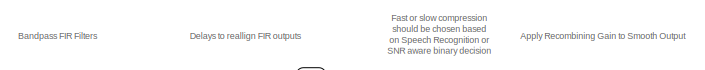
[diagram: dataplane/Avalon Data Processing/Left Channel Processing/recalculate/Nchan_FbankAGC_AID - part 1/3, top center region]
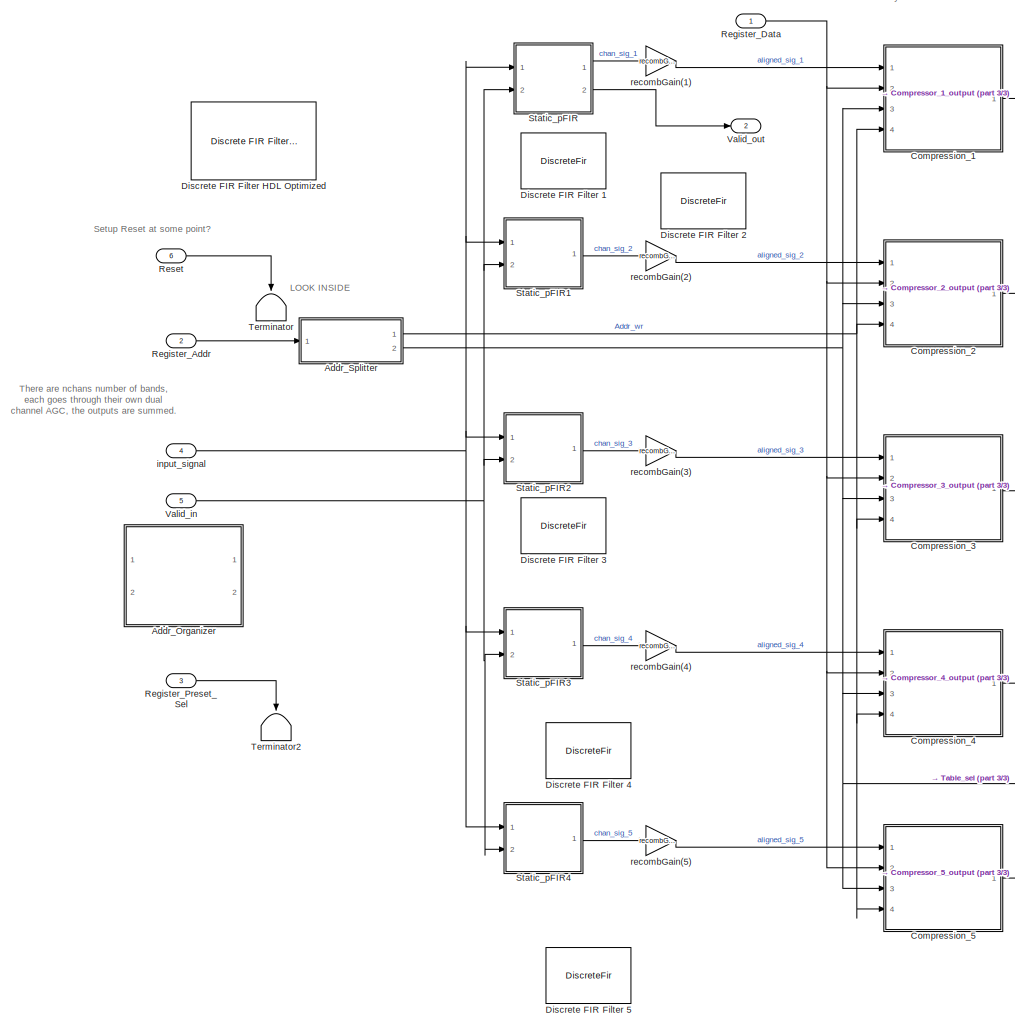
[diagram: dataplane/Avalon Data Processing/Left Channel Processing/recalculate/Nchan_FbankAGC_AID - part 2/3, left side, full height]
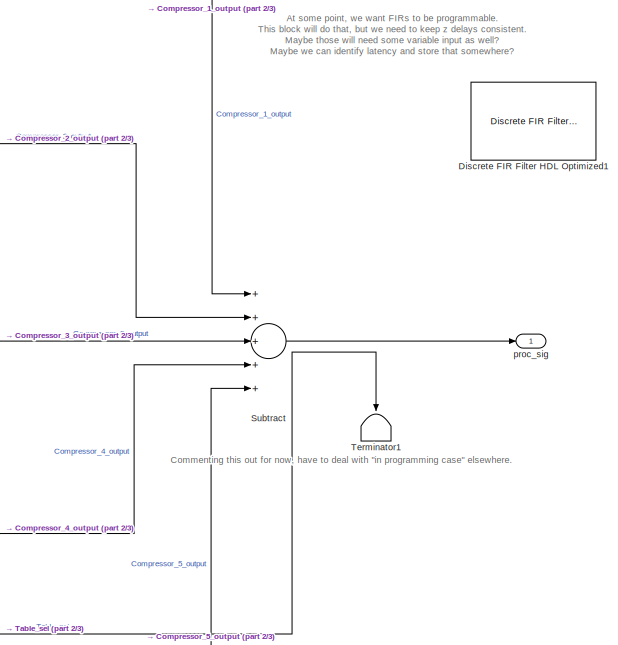
[diagram: dataplane/Avalon Data Processing/Left Channel Processing/recalculate/Nchan_FbankAGC_AID - part 3/3, middle right region]
BLOCK [SubSystem] dataplane/Avalon Data Processing/Left Channel Processing/recalculate/Nchan_FbankAGC_AID
  Ports = [6, 2]
  RequestExecContextInheritance = off
BLOCK [SubSystem] dataplane/Avalon Data Processing/Left Channel Processing/recalculate/Nchan_FbankAGC_AID/Addr_Organizer
  Commented = on
  Ports = [2, 2]
  RequestExecContextInheritance = off
BLOCK [Outport] dataplane/Avalon Data Processing/Left Channel Processing/recalculate/Nchan_FbankAGC_AID/Addr_Organizer/Addr
  IconDisplay = Port number
  VectorParamsAs1DForOutWhenUnconnected = off
BLOCK [Reference] dataplane/Avalon Data Processing/Left Channel Processing/recalculate/Nchan_FbankAGC_AID/Addr_Organizer/Bit Slice  REF=hdlsllib/Logic and Bit
Operations/Bit Slice
  Ports = [1, 1]
  SourceBlock = hdlsllib/Logic and Bit\nOperations/Bit Slice
  SourceProductBaseCode = SL
  SourceProductName = Simulink
  SourceType = Bit Slice
BLOCK [Reference] dataplane/Avalon Data Processing/Left Channel Processing/recalculate/Nchan_FbankAGC_AID/Addr_Organizer/Bit Slice1  REF=hdlsllib/Logic and Bit
Operations/Bit Slice
  Ports = [1, 1]
  SourceBlock = hdlsllib/Logic and Bit\nOperations/Bit Slice
  SourceProductBaseCode = SL
  SourceProductName = Simulink
  SourceType = Bit Slice
BLOCK [Reference] dataplane/Avalon Data Processing/Left Channel Processing/recalculate/Nchan_FbankAGC_AID/Addr_Organizer/Counter_up_to_320  REF=hdlsllib/Sources/HDL Counter
  Ports = [2, 1]
  SourceBlock = hdlsllib/Sources/HDL Counter
  SourceProductBaseCode = SL
  SourceProductName = Simulink
  SourceType = HDL Counter
BLOCK [DataTypeConversion] dataplane/Avalon Data Processing/Left Channel Processing/recalculate/Nchan_FbankAGC_AID/Addr_Organizer/Data Type Conversion
  OutDataTypeStr = fixdt(0,7+M_Bits,0)
  RndMeth = Floor
  SaturateOnIntegerOverflow = off
BLOCK [DataTypeConversion] dataplane/Avalon Data Processing/Left Channel Processing/recalculate/Nchan_FbankAGC_AID/Addr_Organizer/Data Type Conversion1
  OutDataTypeStr = fixdt(0,4+M_bits,0)
  RndMeth = Floor
  SaturateOnIntegerOverflow = off
BLOCK [DataTypeConversion] dataplane/Avalon Data Processing/Left Channel Processing/recalculate/Nchan_FbankAGC_AID/Addr_Organizer/Data Type Conversion2
  OutDataTypeStr = fixdt(0,3,0)
  RndMeth = Floor
  SaturateOnIntegerOverflow = off
BLOCK [Inport] dataplane/Avalon Data Processing/Left Channel Processing/recalculate/Nchan_FbankAGC_AID/Addr_Organizer/Reset_Count
  IconDisplay = Port number
BLOCK [Outport] dataplane/Avalon Data Processing/Left Channel Processing/recalculate/Nchan_FbankAGC_AID/Addr_Organizer/Sel
  IconDisplay = Port number
  Port = 2
  VectorParamsAs1DForOutWhenUnconnected = off
BLOCK [Inport] dataplane/Avalon Data Processing/Left Channel Processing/recalculate/Nchan_FbankAGC_AID/Addr_Organizer/Valid_in
  IconDisplay = Port number
  Port = 2
BLOCK [SubSystem] dataplane/Avalon Data Processing/Left Channel Processing/recalculate/Nchan_FbankAGC_AID/Addr_Splitter
  Ports = [1, 2]
  RequestExecContextInheritance = off
BLOCK [Outport] dataplane/Avalon Data Processing/Left Channel Processing/recalculate/Nchan_FbankAGC_AID/Addr_Splitter/Addr
  IconDisplay = Port number
  VectorParamsAs1DForOutWhenUnconnected = off
BLOCK [Reference] dataplane/Avalon Data Processing/Left Channel Processing/recalculate/Nchan_FbankAGC_AID/Addr_Splitter/Bit Slice  REF=hdlsllib/Logic and Bit
Operations/Bit Slice
  Ports = [1, 1]
  SourceBlock = hdlsllib/Logic and Bit\nOperations/Bit Slice
  SourceProductBaseCode = SL
  SourceProductName = Simulink
  SourceType = Bit Slice
BLOCK [Reference] dataplane/Avalon Data Processing/Left Channel Processing/recalculate/Nchan_FbankAGC_AID/Addr_Splitter/Bit Slice1  REF=hdlsllib/Logic and Bit
Operations/Bit Slice
  Ports = [1, 1]
  SourceBlock = hdlsllib/Logic and Bit\nOperations/Bit Slice
  SourceProductBaseCode = SL
  SourceProductName = Simulink
  SourceType = Bit Slice
BLOCK [Constant] dataplane/Avalon Data Processing/Left Channel Processing/recalculate/Nchan_FbankAGC_AID/Addr_Splitter/Constant
  OutDataTypeStr = fixdt(0,3,0)
  SampleTime = -1
  Value = 5
BLOCK [Constant] dataplane/Avalon Data Processing/Left Channel Processing/recalculate/Nchan_FbankAGC_AID/Addr_Splitter/Constant1
  OutDataTypeStr = boolean
  SampleTime = -1
  Value = TABLE_SEL_BYPASS_ENABLE
BLOCK [DataTypeConversion] dataplane/Avalon Data Processing/Left Channel Processing/recalculate/Nchan_FbankAGC_AID/Addr_Splitter/Data Type Conversion
  OutDataTypeStr = fixdt(0,7+M_Bits,0)
  RndMeth = Floor
  SaturateOnIntegerOverflow = off
BLOCK [DataTypeConversion] dataplane/Avalon Data Processing/Left Channel Processing/recalculate/Nchan_FbankAGC_AID/Addr_Splitter/Data Type Conversion1
  OutDataTypeStr = fixdt(0,4+M_bits,0)
  RndMeth = Floor
  SaturateOnIntegerOverflow = off
BLOCK [DataTypeConversion] dataplane/Avalon Data Processing/Left Channel Processing/recalculate/Nchan_FbankAGC_AID/Addr_Splitter/Data Type Conversion2
  OutDataTypeStr = fixdt(0,3,0)
  RndMeth = Floor
  SaturateOnIntegerOverflow = off
BLOCK [Inport] dataplane/Avalon Data Processing/Left Channel Processing/recalculate/Nchan_FbankAGC_AID/Addr_Splitter/Register_Addr
  IconDisplay = Port number
BLOCK [Outport] dataplane/Avalon Data Processing/Left Channel Processing/recalculate/Nchan_FbankAGC_AID/Addr_Splitter/Sel
  IconDisplay = Port number
  Port = 2
  VectorParamsAs1DForOutWhenUnconnected = off
BLOCK [Switch] dataplane/Avalon Data Processing/Left Channel Processing/recalculate/Nchan_FbankAGC_AID/Addr_Splitter/Switch
  Criteria = u2 ~= 0
  InputSameDT = off
  SaturateOnIntegerOverflow = off
  Threshold = 4
BLOCK [SubSystem] dataplane/Avalon Data Processing/Left Channel Processing/recalculate/Nchan_FbankAGC_AID/Compression_1
  Ports = [4, 1]
  RequestExecContextInheritance = off
BLOCK [Reference] dataplane/Avalon Data Processing/Left Channel Processing/recalculate/Nchan_FbankAGC_AID/Compression_1/Compare To Constant  REF=simulink/Logic and Bit
Operations/Compare
To Constant
  Ports = [1, 1]
  SourceBlock = simulink/Logic and Bit\nOperations/Compare\nTo Constant
  SourceProductBaseCode = SL
  SourceProductName = Simulink
  SourceType = Compare To Constant
BLOCK [SubSystem] dataplane/Avalon Data Processing/Left Channel Processing/recalculate/Nchan_FbankAGC_AID/Compression_1/Compression_Envelope
  Ports = [2, 1]
  RequestExecContextInheritance = off
BLOCK [SubSystem] dataplane/Avalon Data Processing/Left Channel Processing/recalculate/Nchan_FbankAGC_AID/Compression_1/Compression_Envelope/Attack_Envelope
  Ports = [2, 1, 1]
  RequestExecContextInheritance = off
  TreatAsAtomicUnit = on
BLOCK [Inport] dataplane/Avalon Data Processing/Left Channel Processing/recalculate/Nchan_FbankAGC_AID/Compression_1/Compression_Envelope/Attack_Envelope/Curr
  IconDisplay = Port number
BLOCK [Inport] dataplane/Avalon Data Processing/Left Channel Processing/recalculate/Nchan_FbankAGC_AID/Compression_1/Compression_Envelope/Attack_Envelope/Desired
  IconDisplay = Port number
  Port = 2
BLOCK [EnablePort] dataplane/Avalon Data Processing/Left Channel Processing/recalculate/Nchan_FbankAGC_AID/Compression_1/Compression_Envelope/Attack_Envelope/Enable
  Ports = []
BLOCK [Outport] dataplane/Avalon Data Processing/Left Channel Processing/recalculate/Nchan_FbankAGC_AID/Compression_1/Compression_Envelope/Attack_Envelope/Gain_out
  IconDisplay = Port number
  InitialOutput = 0
  VectorParamsAs1DForOutWhenUnconnected = off
BLOCK [Product] dataplane/Avalon Data Processing/Left Channel Processing/recalculate/Nchan_FbankAGC_AID/Compression_1/Compression_Envelope/Attack_Envelope/Product
  InputSameDT = off
  Ports = [2, 1]
  RndMeth = Floor
  SaturateOnIntegerOverflow = off
BLOCK [Sum] dataplane/Avalon Data Processing/Left Channel Processing/recalculate/Nchan_FbankAGC_AID/Compression_1/Compression_Envelope/Attack_Envelope/Subtract
  InputSameDT = off
  Inputs = +-
  OutDataTypeStr = Inherit: Inherit via internal rule
  Ports = [2, 1]
  SaturateOnIntegerOverflow = off
BLOCK [Sum] dataplane/Avalon Data Processing/Left Channel Processing/recalculate/Nchan_FbankAGC_AID/Compression_1/Compression_Envelope/Attack_Envelope/Subtract1
  InputSameDT = off
  OutDataTypeStr = fixdt(1,W_bits, F_bits)
  Ports = [2, 1]
  SaturateOnIntegerOverflow = off
BLOCK [Constant] dataplane/Avalon Data Processing/Left Channel Processing/recalculate/Nchan_FbankAGC_AID/Compression_1/Compression_Envelope/Attack_Envelope/r_att(1)
  OutDataTypeStr = fixdt(1,W_bits*2,W_bits+F_bits)
  SampleTime = -1
  Value = r_att(1)
BLOCK [Reference] dataplane/Avalon Data Processing/Left Channel Processing/recalculate/Nchan_FbankAGC_AID/Compression_1/Compression_Envelope/Compare To Zero  REF=simulink/Logic and Bit
Operations/Compare
To Zero
  Ports = [1, 1]
  SourceBlock = simulink/Logic and Bit\nOperations/Compare\nTo Zero
  SourceProductBaseCode = SL
  SourceProductName = Simulink
  SourceType = Compare To Zero
BLOCK [Inport] dataplane/Avalon Data Processing/Left Channel Processing/recalculate/Nchan_FbankAGC_AID/Compression_1/Compression_Envelope/Curr_Gain
  IconDisplay = Port number
  Port = 2
BLOCK [Inport] dataplane/Avalon Data Processing/Left Channel Processing/recalculate/Nchan_FbankAGC_AID/Compression_1/Compression_Envelope/Desired_Gain
  IconDisplay = Port number
BLOCK [Outport] dataplane/Avalon Data Processing/Left Channel Processing/recalculate/Nchan_FbankAGC_AID/Compression_1/Compression_Envelope/Gain_Out
  IconDisplay = Port number
  SampleTime = Ts
  VectorParamsAs1DForOutWhenUnconnected = off
BLOCK [Logic] dataplane/Avalon Data Processing/Left Channel Processing/recalculate/Nchan_FbankAGC_AID/Compression_1/Compression_Envelope/Logical Operator
  AllPortsSameDT = off
  Operator = NOT
  OutDataTypeStr = boolean
  Ports = [1, 1]
BLOCK [SubSystem] dataplane/Avalon Data Processing/Left Channel Processing/recalculate/Nchan_FbankAGC_AID/Compression_1/Compression_Envelope/Release_Envelope
  Ports = [2, 1, 1]
  RequestExecContextInheritance = off
  TreatAsAtomicUnit = on
BLOCK [Inport] dataplane/Avalon Data Processing/Left Channel Processing/recalculate/Nchan_FbankAGC_AID/Compression_1/Compression_Envelope/Release_Envelope/Curr
  IconDisplay = Port number
BLOCK [Inport] dataplane/Avalon Data Processing/Left Channel Processing/recalculate/Nchan_FbankAGC_AID/Compression_1/Compression_Envelope/Release_Envelope/Desired
  IconDisplay = Port number
  Port = 2
BLOCK [EnablePort] dataplane/Avalon Data Processing/Left Channel Processing/recalculate/Nchan_FbankAGC_AID/Compression_1/Compression_Envelope/Release_Envelope/Enable
  Ports = []
BLOCK [Outport] dataplane/Avalon Data Processing/Left Channel Processing/recalculate/Nchan_FbankAGC_AID/Compression_1/Compression_Envelope/Release_Envelope/Gain_out
  IconDisplay = Port number
  InitialOutput = 0
  VectorParamsAs1DForOutWhenUnconnected = off
BLOCK [Product] dataplane/Avalon Data Processing/Left Channel Processing/recalculate/Nchan_FbankAGC_AID/Compression_1/Compression_Envelope/Release_Envelope/Product
  InputSameDT = off
  Ports = [2, 1]
  RndMeth = Floor
  SaturateOnIntegerOverflow = off
BLOCK [Sum] dataplane/Avalon Data Processing/Left Channel Processing/recalculate/Nchan_FbankAGC_AID/Compression_1/Compression_Envelope/Release_Envelope/Subtract
  InputSameDT = off
  Inputs = +-
  OutDataTypeStr = Inherit: Inherit via internal rule
  Ports = [2, 1]
  SaturateOnIntegerOverflow = off
BLOCK [Sum] dataplane/Avalon Data Processing/Left Channel Processing/recalculate/Nchan_FbankAGC_AID/Compression_1/Compression_Envelope/Release_Envelope/Subtract1
  InputSameDT = off
  Inputs = +-
  Ports = [2, 1]
  SaturateOnIntegerOverflow = off
BLOCK [Constant] dataplane/Avalon Data Processing/Left Channel Processing/recalculate/Nchan_FbankAGC_AID/Compression_1/Compression_Envelope/Release_Envelope/r_rel(1)
  OutDataTypeStr = fixdt(1,W_bits*2,W_bits+F_bits)
  SampleTime = -1
  Value = r_rel(1)
BLOCK [Sum] dataplane/Avalon Data Processing/Left Channel Processing/recalculate/Nchan_FbankAGC_AID/Compression_1/Compression_Envelope/Subtract
  AccumDataTypeStr = fixdt(1,W_bits,F_bits)
  InputSameDT = off
  Inputs = -+
  OutDataTypeStr = Inherit: Same as accumulator
  Ports = [2, 1]
  SaturateOnIntegerOverflow = off
BLOCK [Switch] dataplane/Avalon Data Processing/Left Channel Processing/recalculate/Nchan_FbankAGC_AID/Compression_1/Compression_Envelope/Switch
  InputSameDT = off
  SaturateOnIntegerOverflow = off
BLOCK [SubSystem] dataplane/Avalon Data Processing/Left Channel Processing/recalculate/Nchan_FbankAGC_AID/Compression_1/Compression_Gain_Calc
  Ports = [4, 1]
  RequestExecContextInheritance = off
BLOCK [Abs] dataplane/Avalon Data Processing/Left Channel Processing/recalculate/Nchan_FbankAGC_AID/Compression_1/Compression_Gain_Calc/Abs
  SaturateOnIntegerOverflow = off
BLOCK [Constant] dataplane/Avalon Data Processing/Left Channel Processing/recalculate/Nchan_FbankAGC_AID/Compression_1/Compression_Gain_Calc/Constant
  OutDataTypeStr = fixdt(0,9,0)
  SampleTime = -1
BLOCK [Inport] dataplane/Avalon Data Processing/Left Channel Processing/recalculate/Nchan_FbankAGC_AID/Compression_1/Compression_Gain_Calc/Data_In
  IconDisplay = Port number
  Port = 4
BLOCK [Outport] dataplane/Avalon Data Processing/Left Channel Processing/recalculate/Nchan_FbankAGC_AID/Compression_1/Compression_Gain_Calc/Gain_C_out
  IconDisplay = Port number
  VectorParamsAs1DForOutWhenUnconnected = off
BLOCK [SubSystem] dataplane/Avalon Data Processing/Left Channel Processing/recalculate/Nchan_FbankAGC_AID/Compression_1/Compression_Gain_Calc/High_Gain_Table
  AncestorBlock = DualPortRam_UNLOCKED/Dual Port RAM UNLOCKED
  Ports = [4, 2]
  RequestExecContextInheritance = off
BLOCK [SignalSpecification] dataplane/Avalon Data Processing/Left Channel Processing/recalculate/Nchan_FbankAGC_AID/Compression_1/Compression_Gain_Calc/High_Gain_Table/Signal Specification
  Dimensions = 1
  OutDataTypeStr = fixdt(0,ram_size,0)
BLOCK [SignalSpecification] dataplane/Avalon Data Processing/Left Channel Processing/recalculate/Nchan_FbankAGC_AID/Compression_1/Compression_Gain_Calc/High_Gain_Table/Signal Specification1
  Dimensions = 1
  OutDataTypeStr = fixdt(0,ram_size,0)
BLOCK [DataTypeConversion] dataplane/Avalon Data Processing/Left Channel Processing/recalculate/Nchan_FbankAGC_AID/Compression_1/Compression_Gain_Calc/High_Gain_Table/convert
  OutDataTypeStr = uint16
  RndMeth = Floor
  SaturateOnIntegerOverflow = off
BLOCK [DataTypeConversion] dataplane/Avalon Data Processing/Left Channel Processing/recalculate/Nchan_FbankAGC_AID/Compression_1/Compression_Gain_Calc/High_Gain_Table/convert1
  OutDataTypeStr = uint16
  RndMeth = Floor
  SaturateOnIntegerOverflow = off
BLOCK [UnitDelay] dataplane/Avalon Data Processing/Left Channel Processing/recalculate/Nchan_FbankAGC_AID/Compression_1/Compression_Gain_Calc/High_Gain_Table/ram
  HasFrameUpgradeWarning = on
  InitialCondition = Gain_Table(:,1)
  SampleTime = -1
BLOCK [UnitDelay] dataplane/Avalon Data Processing/Left Channel Processing/recalculate/Nchan_FbankAGC_AID/Compression_1/Compression_Gain_Calc/High_Gain_Table/ram_data
  HasFrameUpgradeWarning = on
  SampleTime = -1
BLOCK [Inport] dataplane/Avalon Data Processing/Left Channel Processing/recalculate/Nchan_FbankAGC_AID/Compression_1/Compression_Gain_Calc/High_Gain_Table/rd_addr
  IconDisplay = Port number
  Port = 4
BLOCK [Outport] dataplane/Avalon Data Processing/Left Channel Processing/recalculate/Nchan_FbankAGC_AID/Compression_1/Compression_Gain_Calc/High_Gain_Table/rd_dout
  IconDisplay = Port number
  Port = 2
  VectorParamsAs1DForOutWhenUnconnected = off
BLOCK [Selector] dataplane/Avalon Data Processing/Left Channel Processing/recalculate/Nchan_FbankAGC_AID/Compression_1/Compression_Gain_Calc/High_Gain_Table/select
  IndexMode = Zero-based
  IndexOptions = Index vector (port)
  Indices = [1 3]
  InputPortWidth = 2^ram_size
  OutputSizes = 1
  Ports = [2, 1]
BLOCK [Selector] dataplane/Avalon Data Processing/Left Channel Processing/recalculate/Nchan_FbankAGC_AID/Compression_1/Compression_Gain_Calc/High_Gain_Table/select1
  IndexMode = Zero-based
  IndexOptions = Index vector (port)
  Indices = [1 3]
  InputPortWidth = 2^ram_size
  OutputSizes = 1
  Ports = [2, 1]
BLOCK [Switch] dataplane/Avalon Data Processing/Left Channel Processing/recalculate/Nchan_FbankAGC_AID/Compression_1/Compression_Gain_Calc/High_Gain_Table/switch
  Criteria = u2 ~= 0
  InputSameDT = off
  SaturateOnIntegerOverflow = off
BLOCK [Inport] dataplane/Avalon Data Processing/Left Channel Processing/recalculate/Nchan_FbankAGC_AID/Compression_1/Compression_Gain_Calc/High_Gain_Table/wr_addr
  IconDisplay = Port number
  Port = 2
BLOCK [UnitDelay] dataplane/Avalon Data Processing/Left Channel Processing/recalculate/Nchan_FbankAGC_AID/Compression_1/Compression_Gain_Calc/High_Gain_Table/wr_addr_d
  HasFrameUpgradeWarning = on
  SampleTime = -1
BLOCK [Inport] dataplane/Avalon Data Processing/Left Channel Processing/recalculate/Nchan_FbankAGC_AID/Compression_1/Compression_Gain_Calc/High_Gain_Table/wr_din
  IconDisplay = Port number
BLOCK [Outport] dataplane/Avalon Data Processing/Left Channel Processing/recalculate/Nchan_FbankAGC_AID/Compression_1/Compression_Gain_Calc/High_Gain_Table/wr_dout
  IconDisplay = Port number
  VectorParamsAs1DForOutWhenUnconnected = off
BLOCK [Inport] dataplane/Avalon Data Processing/Left Channel Processing/recalculate/Nchan_FbankAGC_AID/Compression_1/Compression_Gain_Calc/High_Gain_Table/wr_en
  IconDisplay = Port number
  OutDataTypeStr = boolean
  Port = 3
BLOCK [Assignment] dataplane/Avalon Data Processing/Left Channel Processing/recalculate/Nchan_FbankAGC_AID/Compression_1/Compression_Gain_Calc/High_Gain_Table/wr_port
  IndexMode = Zero-based
  IndexOptions = Index vector (port)
  Indices = 1
  OutputSizes = [1 1]
  Ports = [3, 1]
BLOCK [SubSystem] dataplane/Avalon Data Processing/Left Channel Processing/recalculate/Nchan_FbankAGC_AID/Compression_1/Compression_Gain_Calc/Linear_Approximation
  Ports = [4, 1]
  RequestExecContextInheritance = off
BLOCK [Reference] dataplane/Avalon Data Processing/Left Channel Processing/recalculate/Nchan_FbankAGC_AID/Compression_1/Compression_Gain_Calc/Linear_Approximation/Bit Rotate1  REF=hdlsllib/Logic and Bit
Operations/Bit Rotate
  Ports = [1, 1]
  SourceBlock = hdlsllib/Logic and Bit\nOperations/Bit Rotate
  SourceProductBaseCode = SL
  SourceProductName = Simulink
  SourceType = Bit Rotate
BLOCK [Reference] dataplane/Avalon Data Processing/Left Channel Processing/recalculate/Nchan_FbankAGC_AID/Compression_1/Compression_Gain_Calc/Linear_Approximation/Bit Slice  REF=hdlsllib/Logic and Bit
Operations/Bit Slice
  Ports = [1, 1]
  SourceBlock = hdlsllib/Logic and Bit\nOperations/Bit Slice
  SourceProductBaseCode = SL
  SourceProductName = Simulink
  SourceType = Bit Slice
BLOCK [Reference] dataplane/Avalon Data Processing/Left Channel Processing/recalculate/Nchan_FbankAGC_AID/Compression_1/Compression_Gain_Calc/Linear_Approximation/Bit Slice1  REF=hdlsllib/Logic and Bit
Operations/Bit Slice
  Ports = [1, 1]
  SourceBlock = hdlsllib/Logic and Bit\nOperations/Bit Slice
  SourceProductBaseCode = SL
  SourceProductName = Simulink
  SourceType = Bit Slice
BLOCK [Reference] dataplane/Avalon Data Processing/Left Channel Processing/recalculate/Nchan_FbankAGC_AID/Compression_1/Compression_Gain_Calc/Linear_Approximation/Bitwise Operator  REF=simulink/Logic and Bit
Operations/Bitwise
Operator
  Ports = [1, 1]
  SourceBlock = simulink/Logic and Bit\nOperations/Bitwise\nOperator
  SourceProductBaseCode = SL
  SourceProductName = Simulink
  SourceType = Bitwise Operator
BLOCK [Reference] dataplane/Avalon Data Processing/Left Channel Processing/recalculate/Nchan_FbankAGC_AID/Compression_1/Compression_Gain_Calc/Linear_Approximation/Compare To Constant  REF=simulink/Logic and Bit
Operations/Compare
To Constant
  Ports = [1, 1]
  SourceBlock = simulink/Logic and Bit\nOperations/Compare\nTo Constant
  SourceProductBaseCode = SL
  SourceProductName = Simulink
  SourceType = Compare To Constant
BLOCK [Constant] dataplane/Avalon Data Processing/Left Channel Processing/recalculate/Nchan_FbankAGC_AID/Compression_1/Compression_Gain_Calc/Linear_Approximation/Constant
  OutDataTypeStr = fixdt(0,W_bits,W_bits-2)
  SampleTime = -1
BLOCK [Constant] dataplane/Avalon Data Processing/Left Channel Processing/recalculate/Nchan_FbankAGC_AID/Compression_1/Compression_Gain_Calc/Linear_Approximation/Constant2
  OutDataTypeStr = fixdt(0,W_bits,0)
  SampleTime = -1
  Value = 2^(M_bits)
BLOCK [DataTypeConversion] dataplane/Avalon Data Processing/Left Channel Processing/recalculate/Nchan_FbankAGC_AID/Compression_1/Compression_Gain_Calc/Linear_Approximation/Data Type Conversion
  OutDataTypeStr = fixdt(1,W_bits,F_bits)
  RndMeth = Floor
  SaturateOnIntegerOverflow = off
BLOCK [DataTypeConversion] dataplane/Avalon Data Processing/Left Channel Processing/recalculate/Nchan_FbankAGC_AID/Compression_1/Compression_Gain_Calc/Linear_Approximation/Data Type Conversion1
  OutDataTypeStr = fixdt(1,W_bits, F_bits)
  RndMeth = Floor
  SaturateOnIntegerOverflow = off
BLOCK [Outport] dataplane/Avalon Data Processing/Left Channel Processing/recalculate/Nchan_FbankAGC_AID/Compression_1/Compression_Gain_Calc/Linear_Approximation/G_Desired
  IconDisplay = Port number
  VectorParamsAs1DForOutWhenUnconnected = off
BLOCK [Inport] dataplane/Avalon Data Processing/Left Channel Processing/recalculate/Nchan_FbankAGC_AID/Compression_1/Compression_Gain_Calc/Linear_Approximation/G_high
  IconDisplay = Port number
BLOCK [Inport] dataplane/Avalon Data Processing/Left Channel Processing/recalculate/Nchan_FbankAGC_AID/Compression_1/Compression_Gain_Calc/Linear_Approximation/G_low
  IconDisplay = Port number
  Port = 2
BLOCK [SubSystem] dataplane/Avalon Data Processing/Left Channel Processing/recalculate/Nchan_FbankAGC_AID/Compression_1/Compression_Gain_Calc/Linear_Approximation/LSL(N)
  Ports = [2, 1]
  RequestExecContextInheritance = off
BLOCK [Reference] dataplane/Avalon Data Processing/Left Channel Processing/recalculate/Nchan_FbankAGC_AID/Compression_1/Compression_Gain_Calc/Linear_Approximation/LSL(N)/Bit Rotate  REF=hdlsllib/Logic and Bit
Operations/Bit Rotate
  Ports = [1, 1]
  SourceBlock = hdlsllib/Logic and Bit\nOperations/Bit Rotate
  SourceProductBaseCode = SL
  SourceProductName = Simulink
  SourceType = Bit Rotate
BLOCK [Reference] dataplane/Avalon Data Processing/Left Channel Processing/recalculate/Nchan_FbankAGC_AID/Compression_1/Compression_Gain_Calc/Linear_Approximation/LSL(N)/Bit Rotate1  REF=hdlsllib/Logic and Bit
Operations/Bit Rotate
  Ports = [1, 1]
  SourceBlock = hdlsllib/Logic and Bit\nOperations/Bit Rotate
  SourceProductBaseCode = SL
  SourceProductName = Simulink
  SourceType = Bit Rotate
BLOCK [Reference] dataplane/Avalon Data Processing/Left Channel Processing/recalculate/Nchan_FbankAGC_AID/Compression_1/Compression_Gain_Calc/Linear_Approximation/LSL(N)/Bit Rotate10  REF=hdlsllib/Logic and Bit
Operations/Bit Rotate
  Ports = [1, 1]
  SourceBlock = hdlsllib/Logic and Bit\nOperations/Bit Rotate
  SourceProductBaseCode = SL
  SourceProductName = Simulink
  SourceType = Bit Rotate
BLOCK [Reference] dataplane/Avalon Data Processing/Left Channel Processing/recalculate/Nchan_FbankAGC_AID/Compression_1/Compression_Gain_Calc/Linear_Approximation/LSL(N)/Bit Rotate11  REF=hdlsllib/Logic and Bit
Operations/Bit Rotate
  Ports = [1, 1]
  SourceBlock = hdlsllib/Logic and Bit\nOperations/Bit Rotate
  SourceProductBaseCode = SL
  SourceProductName = Simulink
  SourceType = Bit Rotate
BLOCK [Reference] dataplane/Avalon Data Processing/Left Channel Processing/recalculate/Nchan_FbankAGC_AID/Compression_1/Compression_Gain_Calc/Linear_Approximation/LSL(N)/Bit Rotate12  REF=hdlsllib/Logic and Bit
Operations/Bit Rotate
  Ports = [1, 1]
  SourceBlock = hdlsllib/Logic and Bit\nOperations/Bit Rotate
  SourceProductBaseCode = SL
  SourceProductName = Simulink
  SourceType = Bit Rotate
BLOCK [Reference] dataplane/Avalon Data Processing/Left Channel Processing/recalculate/Nchan_FbankAGC_AID/Compression_1/Compression_Gain_Calc/Linear_Approximation/LSL(N)/Bit Rotate13  REF=hdlsllib/Logic and Bit
Operations/Bit Rotate
  Ports = [1, 1]
  SourceBlock = hdlsllib/Logic and Bit\nOperations/Bit Rotate
  SourceProductBaseCode = SL
  SourceProductName = Simulink
  SourceType = Bit Rotate
BLOCK [Reference] dataplane/Avalon Data Processing/Left Channel Processing/recalculate/Nchan_FbankAGC_AID/Compression_1/Compression_Gain_Calc/Linear_Approximation/LSL(N)/Bit Rotate14  REF=hdlsllib/Logic and Bit
Operations/Bit Rotate
  Ports = [1, 1]
  SourceBlock = hdlsllib/Logic and Bit\nOperations/Bit Rotate
  SourceProductBaseCode = SL
  SourceProductName = Simulink
  SourceType = Bit Rotate
BLOCK [Reference] dataplane/Avalon Data Processing/Left Channel Processing/recalculate/Nchan_FbankAGC_AID/Compression_1/Compression_Gain_Calc/Linear_Approximation/LSL(N)/Bit Rotate2  REF=hdlsllib/Logic and Bit
Operations/Bit Rotate
  Ports = [1, 1]
  SourceBlock = hdlsllib/Logic and Bit\nOperations/Bit Rotate
  SourceProductBaseCode = SL
  SourceProductName = Simulink
  SourceType = Bit Rotate
BLOCK [Reference] dataplane/Avalon Data Processing/Left Channel Processing/recalculate/Nchan_FbankAGC_AID/Compression_1/Compression_Gain_Calc/Linear_Approximation/LSL(N)/Bit Rotate3  REF=hdlsllib/Logic and Bit
Operations/Bit Rotate
  Ports = [1, 1]
  SourceBlock = hdlsllib/Logic and Bit\nOperations/Bit Rotate
  SourceProductBaseCode = SL
  SourceProductName = Simulink
  SourceType = Bit Rotate
BLOCK [Reference] dataplane/Avalon Data Processing/Left Channel Processing/recalculate/Nchan_FbankAGC_AID/Compression_1/Compression_Gain_Calc/Linear_Approximation/LSL(N)/Bit Rotate4  REF=hdlsllib/Logic and Bit
Operations/Bit Rotate
  Ports = [1, 1]
  SourceBlock = hdlsllib/Logic and Bit\nOperations/Bit Rotate
  SourceProductBaseCode = SL
  SourceProductName = Simulink
  SourceType = Bit Rotate
BLOCK [Reference] dataplane/Avalon Data Processing/Left Channel Processing/recalculate/Nchan_FbankAGC_AID/Compression_1/Compression_Gain_Calc/Linear_Approximation/LSL(N)/Bit Rotate5  REF=hdlsllib/Logic and Bit
Operations/Bit Rotate
  Ports = [1, 1]
  SourceBlock = hdlsllib/Logic and Bit\nOperations/Bit Rotate
  SourceProductBaseCode = SL
  SourceProductName = Simulink
  SourceType = Bit Rotate
BLOCK [Reference] dataplane/Avalon Data Processing/Left Channel Processing/recalculate/Nchan_FbankAGC_AID/Compression_1/Compression_Gain_Calc/Linear_Approximation/LSL(N)/Bit Rotate6  REF=hdlsllib/Logic and Bit
Operations/Bit Rotate
  Ports = [1, 1]
  SourceBlock = hdlsllib/Logic and Bit\nOperations/Bit Rotate
  SourceProductBaseCode = SL
  SourceProductName = Simulink
  SourceType = Bit Rotate
BLOCK [Reference] dataplane/Avalon Data Processing/Left Channel Processing/recalculate/Nchan_FbankAGC_AID/Compression_1/Compression_Gain_Calc/Linear_Approximation/LSL(N)/Bit Rotate7  REF=hdlsllib/Logic and Bit
Operations/Bit Rotate
  Ports = [1, 1]
  SourceBlock = hdlsllib/Logic and Bit\nOperations/Bit Rotate
  SourceProductBaseCode = SL
  SourceProductName = Simulink
  SourceType = Bit Rotate
BLOCK [Reference] dataplane/Avalon Data Processing/Left Channel Processing/recalculate/Nchan_FbankAGC_AID/Compression_1/Compression_Gain_Calc/Linear_Approximation/LSL(N)/Bit Rotate8  REF=hdlsllib/Logic and Bit
Operations/Bit Rotate
  Ports = [1, 1]
  SourceBlock = hdlsllib/Logic and Bit\nOperations/Bit Rotate
  SourceProductBaseCode = SL
  SourceProductName = Simulink
  SourceType = Bit Rotate
BLOCK [Reference] dataplane/Avalon Data Processing/Left Channel Processing/recalculate/Nchan_FbankAGC_AID/Compression_1/Compression_Gain_Calc/Linear_Approximation/LSL(N)/Bit Rotate9  REF=hdlsllib/Logic and Bit
Operations/Bit Rotate
  Ports = [1, 1]
  SourceBlock = hdlsllib/Logic and Bit\nOperations/Bit Rotate
  SourceProductBaseCode = SL
  SourceProductName = Simulink
  SourceType = Bit Rotate
BLOCK [MultiPortSwitch] dataplane/Avalon Data Processing/Left Channel Processing/recalculate/Nchan_FbankAGC_AID/Compression_1/Compression_Gain_Calc/Linear_Approximation/LSL(N)/Multiport Switch
  DataPortOrder = Zero-based contiguous
  DiagnosticForDefault = Warning
  InputSameDT = off
  Inputs = 16
  Ports = [17, 1]
  SaturateOnIntegerOverflow = off
  zeroidx = on
BLOCK [Inport] dataplane/Avalon Data Processing/Left Channel Processing/recalculate/Nchan_FbankAGC_AID/Compression_1/Compression_Gain_Calc/Linear_Approximation/LSL(N)/NShifts
  IconDisplay = Port number
BLOCK [Inport] dataplane/Avalon Data Processing/Left Channel Processing/recalculate/Nchan_FbankAGC_AID/Compression_1/Compression_Gain_Calc/Linear_Approximation/LSL(N)/x_in
  IconDisplay = Port number
  Port = 2
BLOCK [Outport] dataplane/Avalon Data Processing/Left Channel Processing/recalculate/Nchan_FbankAGC_AID/Compression_1/Compression_Gain_Calc/Linear_Approximation/LSL(N)/x_shifted
  IconDisplay = Port number
  VectorParamsAs1DForOutWhenUnconnected = off
BLOCK [SubSystem] dataplane/Avalon Data Processing/Left Channel Processing/recalculate/Nchan_FbankAGC_AID/Compression_1/Compression_Gain_Calc/Linear_Approximation/LSR(N)
  Ports = [2, 1]
  RequestExecContextInheritance = off
BLOCK [Reference] dataplane/Avalon Data Processing/Left Channel Processing/recalculate/Nchan_FbankAGC_AID/Compression_1/Compression_Gain_Calc/Linear_Approximation/LSR(N)/Bit Rotate  REF=hdlsllib/Logic and Bit
Operations/Bit Rotate
  Ports = [1, 1]
  SourceBlock = hdlsllib/Logic and Bit\nOperations/Bit Rotate
  SourceProductBaseCode = SL
  SourceProductName = Simulink
  SourceType = Bit Rotate
BLOCK [Reference] dataplane/Avalon Data Processing/Left Channel Processing/recalculate/Nchan_FbankAGC_AID/Compression_1/Compression_Gain_Calc/Linear_Approximation/LSR(N)/Bit Rotate1  REF=hdlsllib/Logic and Bit
Operations/Bit Rotate
  Ports = [1, 1]
  SourceBlock = hdlsllib/Logic and Bit\nOperations/Bit Rotate
  SourceProductBaseCode = SL
  SourceProductName = Simulink
  SourceType = Bit Rotate
BLOCK [Reference] dataplane/Avalon Data Processing/Left Channel Processing/recalculate/Nchan_FbankAGC_AID/Compression_1/Compression_Gain_Calc/Linear_Approximation/LSR(N)/Bit Rotate10  REF=hdlsllib/Logic and Bit
Operations/Bit Rotate
  Ports = [1, 1]
  SourceBlock = hdlsllib/Logic and Bit\nOperations/Bit Rotate
  SourceProductBaseCode = SL
  SourceProductName = Simulink
  SourceType = Bit Rotate
BLOCK [Reference] dataplane/Avalon Data Processing/Left Channel Processing/recalculate/Nchan_FbankAGC_AID/Compression_1/Compression_Gain_Calc/Linear_Approximation/LSR(N)/Bit Rotate11  REF=hdlsllib/Logic and Bit
Operations/Bit Rotate
  Ports = [1, 1]
  SourceBlock = hdlsllib/Logic and Bit\nOperations/Bit Rotate
  SourceProductBaseCode = SL
  SourceProductName = Simulink
  SourceType = Bit Rotate
BLOCK [Reference] dataplane/Avalon Data Processing/Left Channel Processing/recalculate/Nchan_FbankAGC_AID/Compression_1/Compression_Gain_Calc/Linear_Approximation/LSR(N)/Bit Rotate12  REF=hdlsllib/Logic and Bit
Operations/Bit Rotate
  Ports = [1, 1]
  SourceBlock = hdlsllib/Logic and Bit\nOperations/Bit Rotate
  SourceProductBaseCode = SL
  SourceProductName = Simulink
  SourceType = Bit Rotate
BLOCK [Reference] dataplane/Avalon Data Processing/Left Channel Processing/recalculate/Nchan_FbankAGC_AID/Compression_1/Compression_Gain_Calc/Linear_Approximation/LSR(N)/Bit Rotate13  REF=hdlsllib/Logic and Bit
Operations/Bit Rotate
  Ports = [1, 1]
  SourceBlock = hdlsllib/Logic and Bit\nOperations/Bit Rotate
  SourceProductBaseCode = SL
  SourceProductName = Simulink
  SourceType = Bit Rotate
BLOCK [Reference] dataplane/Avalon Data Processing/Left Channel Processing/recalculate/Nchan_FbankAGC_AID/Compression_1/Compression_Gain_Calc/Linear_Approximation/LSR(N)/Bit Rotate14  REF=hdlsllib/Logic and Bit
Operations/Bit Rotate
  Ports = [1, 1]
  SourceBlock = hdlsllib/Logic and Bit\nOperations/Bit Rotate
  SourceProductBaseCode = SL
  SourceProductName = Simulink
  SourceType = Bit Rotate
BLOCK [Reference] dataplane/Avalon Data Processing/Left Channel Processing/recalculate/Nchan_FbankAGC_AID/Compression_1/Compression_Gain_Calc/Linear_Approximation/LSR(N)/Bit Rotate2  REF=hdlsllib/Logic and Bit
Operations/Bit Rotate
  Ports = [1, 1]
  SourceBlock = hdlsllib/Logic and Bit\nOperations/Bit Rotate
  SourceProductBaseCode = SL
  SourceProductName = Simulink
  SourceType = Bit Rotate
BLOCK [Reference] dataplane/Avalon Data Processing/Left Channel Processing/recalculate/Nchan_FbankAGC_AID/Compression_1/Compression_Gain_Calc/Linear_Approximation/LSR(N)/Bit Rotate3  REF=hdlsllib/Logic and Bit
Operations/Bit Rotate
  Ports = [1, 1]
  SourceBlock = hdlsllib/Logic and Bit\nOperations/Bit Rotate
  SourceProductBaseCode = SL
  SourceProductName = Simulink
  SourceType = Bit Rotate
BLOCK [Reference] dataplane/Avalon Data Processing/Left Channel Processing/recalculate/Nchan_FbankAGC_AID/Compression_1/Compression_Gain_Calc/Linear_Approximation/LSR(N)/Bit Rotate4  REF=hdlsllib/Logic and Bit
Operations/Bit Rotate
  Ports = [1, 1]
  SourceBlock = hdlsllib/Logic and Bit\nOperations/Bit Rotate
  SourceProductBaseCode = SL
  SourceProductName = Simulink
  SourceType = Bit Rotate
BLOCK [Reference] dataplane/Avalon Data Processing/Left Channel Processing/recalculate/Nchan_FbankAGC_AID/Compression_1/Compression_Gain_Calc/Linear_Approximation/LSR(N)/Bit Rotate5  REF=hdlsllib/Logic and Bit
Operations/Bit Rotate
  Ports = [1, 1]
  SourceBlock = hdlsllib/Logic and Bit\nOperations/Bit Rotate
  SourceProductBaseCode = SL
  SourceProductName = Simulink
  SourceType = Bit Rotate
BLOCK [Reference] dataplane/Avalon Data Processing/Left Channel Processing/recalculate/Nchan_FbankAGC_AID/Compression_1/Compression_Gain_Calc/Linear_Approximation/LSR(N)/Bit Rotate6  REF=hdlsllib/Logic and Bit
Operations/Bit Rotate
  Ports = [1, 1]
  SourceBlock = hdlsllib/Logic and Bit\nOperations/Bit Rotate
  SourceProductBaseCode = SL
  SourceProductName = Simulink
  SourceType = Bit Rotate
BLOCK [Reference] dataplane/Avalon Data Processing/Left Channel Processing/recalculate/Nchan_FbankAGC_AID/Compression_1/Compression_Gain_Calc/Linear_Approximation/LSR(N)/Bit Rotate7  REF=hdlsllib/Logic and Bit
Operations/Bit Rotate
  Ports = [1, 1]
  SourceBlock = hdlsllib/Logic and Bit\nOperations/Bit Rotate
  SourceProductBaseCode = SL
  SourceProductName = Simulink
  SourceType = Bit Rotate
BLOCK [Reference] dataplane/Avalon Data Processing/Left Channel Processing/recalculate/Nchan_FbankAGC_AID/Compression_1/Compression_Gain_Calc/Linear_Approximation/LSR(N)/Bit Rotate8  REF=hdlsllib/Logic and Bit
Operations/Bit Rotate
  Ports = [1, 1]
  SourceBlock = hdlsllib/Logic and Bit\nOperations/Bit Rotate
  SourceProductBaseCode = SL
  SourceProductName = Simulink
  SourceType = Bit Rotate
BLOCK [Reference] dataplane/Avalon Data Processing/Left Channel Processing/recalculate/Nchan_FbankAGC_AID/Compression_1/Compression_Gain_Calc/Linear_Approximation/LSR(N)/Bit Rotate9  REF=hdlsllib/Logic and Bit
Operations/Bit Rotate
  Ports = [1, 1]
  SourceBlock = hdlsllib/Logic and Bit\nOperations/Bit Rotate
  SourceProductBaseCode = SL
  SourceProductName = Simulink
  SourceType = Bit Rotate
BLOCK [MultiPortSwitch] dataplane/Avalon Data Processing/Left Channel Processing/recalculate/Nchan_FbankAGC_AID/Compression_1/Compression_Gain_Calc/Linear_Approximation/LSR(N)/Multiport Switch
  DataPortOrder = Zero-based contiguous
  DiagnosticForDefault = Warning
  InputSameDT = off
  Inputs = 16
  Ports = [17, 1]
  SaturateOnIntegerOverflow = off
  zeroidx = on
BLOCK [Inport] dataplane/Avalon Data Processing/Left Channel Processing/recalculate/Nchan_FbankAGC_AID/Compression_1/Compression_Gain_Calc/Linear_Approximation/LSR(N)/NShifts
  IconDisplay = Port number
BLOCK [Inport] dataplane/Avalon Data Processing/Left Channel Processing/recalculate/Nchan_FbankAGC_AID/Compression_1/Compression_Gain_Calc/Linear_Approximation/LSR(N)/x_in
  IconDisplay = Port number
  Port = 2
BLOCK [Outport] dataplane/Avalon Data Processing/Left Channel Processing/recalculate/Nchan_FbankAGC_AID/Compression_1/Compression_Gain_Calc/Linear_Approximation/LSR(N)/x_shifted
  IconDisplay = Port number
  VectorParamsAs1DForOutWhenUnconnected = off
BLOCK [Product] dataplane/Avalon Data Processing/Left Channel Processing/recalculate/Nchan_FbankAGC_AID/Compression_1/Compression_Gain_Calc/Linear_Approximation/Product1
  InputSameDT = off
  OutDataTypeStr = Inherit: Inherit via internal rule
  Ports = [2, 1]
  RndMeth = Floor
  SaturateOnIntegerOverflow = off
BLOCK [Product] dataplane/Avalon Data Processing/Left Channel Processing/recalculate/Nchan_FbankAGC_AID/Compression_1/Compression_Gain_Calc/Linear_Approximation/Product2
  InputSameDT = off
  OutDataTypeStr = Inherit: Inherit via internal rule
  Ports = [2, 1]
  RndMeth = Floor
  SaturateOnIntegerOverflow = off
BLOCK [Product] dataplane/Avalon Data Processing/Left Channel Processing/recalculate/Nchan_FbankAGC_AID/Compression_1/Compression_Gain_Calc/Linear_Approximation/Product3
  InputSameDT = off
  OutDataTypeStr = Inherit: Inherit via internal rule
  Ports = [2, 1]
  RndMeth = Floor
  SaturateOnIntegerOverflow = off
BLOCK [Sum] dataplane/Avalon Data Processing/Left Channel Processing/recalculate/Nchan_FbankAGC_AID/Compression_1/Compression_Gain_Calc/Linear_Approximation/Subtract
  InputSameDT = off
  Inputs = -+
  OutDataTypeStr = Inherit: Inherit via internal rule
  Ports = [2, 1]
  SaturateOnIntegerOverflow = off
BLOCK [Sum] dataplane/Avalon Data Processing/Left Channel Processing/recalculate/Nchan_FbankAGC_AID/Compression_1/Compression_Gain_Calc/Linear_Approximation/Subtract1
  InputSameDT = off
  OutDataTypeStr = fixdt(1,W_bits, F_bits)
  Ports = [2, 1]
  SaturateOnIntegerOverflow = off
BLOCK [Sum] dataplane/Avalon Data Processing/Left Channel Processing/recalculate/Nchan_FbankAGC_AID/Compression_1/Compression_Gain_Calc/Linear_Approximation/Subtract2
  InputSameDT = off
  Inputs = +-
  Ports = [2, 1]
  SaturateOnIntegerOverflow = off
BLOCK [Sum] dataplane/Avalon Data Processing/Left Channel Processing/recalculate/Nchan_FbankAGC_AID/Compression_1/Compression_Gain_Calc/Linear_Approximation/Subtract3
  InputSameDT = off
  OutDataTypeStr = Inherit: Inherit via internal rule
  Ports = [2, 1]
  SaturateOnIntegerOverflow = off
BLOCK [Switch] dataplane/Avalon Data Processing/Left Channel Processing/recalculate/Nchan_FbankAGC_AID/Compression_1/Compression_Gain_Calc/Linear_Approximation/Switch
  Criteria = u2 > Threshold
  InputSameDT = off
  SaturateOnIntegerOverflow = off
BLOCK [UnitDelay] dataplane/Avalon Data Processing/Left Channel Processing/recalculate/Nchan_FbankAGC_AID/Compression_1/Compression_Gain_Calc/Linear_Approximation/Unit Delay
  HasFrameUpgradeWarning = on
  InitialCondition = 1
  SampleTime = -1
BLOCK [Inport] dataplane/Avalon Data Processing/Left Channel Processing/recalculate/Nchan_FbankAGC_AID/Compression_1/Compression_Gain_Calc/Linear_Approximation/addr_low
  IconDisplay = Port number
  Port = 3
BLOCK [Inport] dataplane/Avalon Data Processing/Left Channel Processing/recalculate/Nchan_FbankAGC_AID/Compression_1/Compression_Gain_Calc/Linear_Approximation/|X_in|
  IconDisplay = Port number
  Port = 4
BLOCK [SubSystem] dataplane/Avalon Data Processing/Left Channel Processing/recalculate/Nchan_FbankAGC_AID/Compression_1/Compression_Gain_Calc/LogAddressing
  Ports = [1, 1]
  RequestExecContextInheritance = off
BLOCK [Reference] dataplane/Avalon Data Processing/Left Channel Processing/recalculate/Nchan_FbankAGC_AID/Compression_1/Compression_Gain_Calc/LogAddressing/Bit Concat  REF=hdlsllib/Logic and Bit
Operations/Bit Concat
  Ports = [2, 1]
  SourceBlock = hdlsllib/Logic and Bit\nOperations/Bit Concat
  SourceProductBaseCode = SL
  SourceProductName = Simulink
  SourceType = Bit Concat
BLOCK [Reference] dataplane/Avalon Data Processing/Left Channel Processing/recalculate/Nchan_FbankAGC_AID/Compression_1/Compression_Gain_Calc/LogAddressing/Bit Slice  REF=hdlsllib/Logic and Bit
Operations/Bit Slice
  Ports = [1, 1]
  SourceBlock = hdlsllib/Logic and Bit\nOperations/Bit Slice
  SourceProductBaseCode = SL
  SourceProductName = Simulink
  SourceType = Bit Slice
BLOCK [Reference] dataplane/Avalon Data Processing/Left Channel Processing/recalculate/Nchan_FbankAGC_AID/Compression_1/Compression_Gain_Calc/LogAddressing/Bit Slice1  REF=hdlsllib/Logic and Bit
Operations/Bit Slice
  Ports = [1, 1]
  SourceBlock = hdlsllib/Logic and Bit\nOperations/Bit Slice
  SourceProductBaseCode = SL
  SourceProductName = Simulink
  SourceType = Bit Slice
BLOCK [Reference] dataplane/Avalon Data Processing/Left Channel Processing/recalculate/Nchan_FbankAGC_AID/Compression_1/Compression_Gain_Calc/LogAddressing/Bitwise Operator1  REF=simulink/Logic and Bit
Operations/Bitwise
Operator
  Ports = [1, 1]
  SourceBlock = simulink/Logic and Bit\nOperations/Bitwise\nOperator
  SourceProductBaseCode = SL
  SourceProductName = Simulink
  SourceType = Bitwise Operator
BLOCK [Reference] dataplane/Avalon Data Processing/Left Channel Processing/recalculate/Nchan_FbankAGC_AID/Compression_1/Compression_Gain_Calc/LogAddressing/Compare To Constant1  REF=simulink/Logic and Bit
Operations/Compare
To Constant
  Ports = [1, 1]
  SourceBlock = simulink/Logic and Bit\nOperations/Compare\nTo Constant
  SourceProductBaseCode = SL
  SourceProductName = Simulink
  SourceType = Compare To Constant
BLOCK [Constant] dataplane/Avalon Data Processing/Left Channel Processing/recalculate/Nchan_FbankAGC_AID/Compression_1/Compression_Gain_Calc/LogAddressing/Constant1
  OutDataTypeStr = fixdt(0,6,0)
  SampleTime = -1
  Value = W_bits-1-F_bits
BLOCK [Constant] dataplane/Avalon Data Processing/Left Channel Processing/recalculate/Nchan_FbankAGC_AID/Compression_1/Compression_Gain_Calc/LogAddressing/Constant6
  OutDataTypeStr = fixdt(0,9,0)
  SampleTime = -1
  Value = 0
BLOCK [DataTypeConversion] dataplane/Avalon Data Processing/Left Channel Processing/recalculate/Nchan_FbankAGC_AID/Compression_1/Compression_Gain_Calc/LogAddressing/Data Type Conversion
  OutDataTypeStr = fixdt(0,W_bits+8,F_bits+8)
  RndMeth = Floor
  SaturateOnIntegerOverflow = off
BLOCK [DataTypeConversion] dataplane/Avalon Data Processing/Left Channel Processing/recalculate/Nchan_FbankAGC_AID/Compression_1/Compression_Gain_Calc/LogAddressing/Data Type Conversion1
  OutDataTypeStr = fixdt(0,W_bits,F_bits)
  RndMeth = Floor
  SaturateOnIntegerOverflow = off
BLOCK [Delay] dataplane/Avalon Data Processing/Left Channel Processing/recalculate/Nchan_FbankAGC_AID/Compression_1/Compression_Gain_Calc/LogAddressing/Delay2
  DelayLength = 1
  InputPortMap = u0
  Ports = [1, 1]
BLOCK [SubSystem] dataplane/Avalon Data Processing/Left Channel Processing/recalculate/Nchan_FbankAGC_AID/Compression_1/Compression_Gain_Calc/LogAddressing/LSL(N)
  Ports = [2, 1]
  RequestExecContextInheritance = off
BLOCK [Reference] dataplane/Avalon Data Processing/Left Channel Processing/recalculate/Nchan_FbankAGC_AID/Compression_1/Compression_Gain_Calc/LogAddressing/LSL(N)/Bit Rotate  REF=hdlsllib/Logic and Bit
Operations/Bit Rotate
  Ports = [1, 1]
  SourceBlock = hdlsllib/Logic and Bit\nOperations/Bit Rotate
  SourceProductBaseCode = SL
  SourceProductName = Simulink
  SourceType = Bit Rotate
BLOCK [Reference] dataplane/Avalon Data Processing/Left Channel Processing/recalculate/Nchan_FbankAGC_AID/Compression_1/Compression_Gain_Calc/LogAddressing/LSL(N)/Bit Rotate1  REF=hdlsllib/Logic and Bit
Operations/Bit Rotate
  Ports = [1, 1]
  SourceBlock = hdlsllib/Logic and Bit\nOperations/Bit Rotate
  SourceProductBaseCode = SL
  SourceProductName = Simulink
  SourceType = Bit Rotate
BLOCK [Reference] dataplane/Avalon Data Processing/Left Channel Processing/recalculate/Nchan_FbankAGC_AID/Compression_1/Compression_Gain_Calc/LogAddressing/LSL(N)/Bit Rotate10  REF=hdlsllib/Logic and Bit
Operations/Bit Rotate
  Ports = [1, 1]
  SourceBlock = hdlsllib/Logic and Bit\nOperations/Bit Rotate
  SourceProductBaseCode = SL
  SourceProductName = Simulink
  SourceType = Bit Rotate
BLOCK [Reference] dataplane/Avalon Data Processing/Left Channel Processing/recalculate/Nchan_FbankAGC_AID/Compression_1/Compression_Gain_Calc/LogAddressing/LSL(N)/Bit Rotate11  REF=hdlsllib/Logic and Bit
Operations/Bit Rotate
  Ports = [1, 1]
  SourceBlock = hdlsllib/Logic and Bit\nOperations/Bit Rotate
  SourceProductBaseCode = SL
  SourceProductName = Simulink
  SourceType = Bit Rotate
BLOCK [Reference] dataplane/Avalon Data Processing/Left Channel Processing/recalculate/Nchan_FbankAGC_AID/Compression_1/Compression_Gain_Calc/LogAddressing/LSL(N)/Bit Rotate12  REF=hdlsllib/Logic and Bit
Operations/Bit Rotate
  Ports = [1, 1]
  SourceBlock = hdlsllib/Logic and Bit\nOperations/Bit Rotate
  SourceProductBaseCode = SL
  SourceProductName = Simulink
  SourceType = Bit Rotate
BLOCK [Reference] dataplane/Avalon Data Processing/Left Channel Processing/recalculate/Nchan_FbankAGC_AID/Compression_1/Compression_Gain_Calc/LogAddressing/LSL(N)/Bit Rotate13  REF=hdlsllib/Logic and Bit
Operations/Bit Rotate
  Ports = [1, 1]
  SourceBlock = hdlsllib/Logic and Bit\nOperations/Bit Rotate
  SourceProductBaseCode = SL
  SourceProductName = Simulink
  SourceType = Bit Rotate
BLOCK [Reference] dataplane/Avalon Data Processing/Left Channel Processing/recalculate/Nchan_FbankAGC_AID/Compression_1/Compression_Gain_Calc/LogAddressing/LSL(N)/Bit Rotate14  REF=hdlsllib/Logic and Bit
Operations/Bit Rotate
  Ports = [1, 1]
  SourceBlock = hdlsllib/Logic and Bit\nOperations/Bit Rotate
  SourceProductBaseCode = SL
  SourceProductName = Simulink
  SourceType = Bit Rotate
BLOCK [Reference] dataplane/Avalon Data Processing/Left Channel Processing/recalculate/Nchan_FbankAGC_AID/Compression_1/Compression_Gain_Calc/LogAddressing/LSL(N)/Bit Rotate2  REF=hdlsllib/Logic and Bit
Operations/Bit Rotate
  Ports = [1, 1]
  SourceBlock = hdlsllib/Logic and Bit\nOperations/Bit Rotate
  SourceProductBaseCode = SL
  SourceProductName = Simulink
  SourceType = Bit Rotate
BLOCK [Reference] dataplane/Avalon Data Processing/Left Channel Processing/recalculate/Nchan_FbankAGC_AID/Compression_1/Compression_Gain_Calc/LogAddressing/LSL(N)/Bit Rotate3  REF=hdlsllib/Logic and Bit
Operations/Bit Rotate
  Ports = [1, 1]
  SourceBlock = hdlsllib/Logic and Bit\nOperations/Bit Rotate
  SourceProductBaseCode = SL
  SourceProductName = Simulink
  SourceType = Bit Rotate
BLOCK [Reference] dataplane/Avalon Data Processing/Left Channel Processing/recalculate/Nchan_FbankAGC_AID/Compression_1/Compression_Gain_Calc/LogAddressing/LSL(N)/Bit Rotate4  REF=hdlsllib/Logic and Bit
Operations/Bit Rotate
  Ports = [1, 1]
  SourceBlock = hdlsllib/Logic and Bit\nOperations/Bit Rotate
  SourceProductBaseCode = SL
  SourceProductName = Simulink
  SourceType = Bit Rotate
BLOCK [Reference] dataplane/Avalon Data Processing/Left Channel Processing/recalculate/Nchan_FbankAGC_AID/Compression_1/Compression_Gain_Calc/LogAddressing/LSL(N)/Bit Rotate5  REF=hdlsllib/Logic and Bit
Operations/Bit Rotate
  Ports = [1, 1]
  SourceBlock = hdlsllib/Logic and Bit\nOperations/Bit Rotate
  SourceProductBaseCode = SL
  SourceProductName = Simulink
  SourceType = Bit Rotate
BLOCK [Reference] dataplane/Avalon Data Processing/Left Channel Processing/recalculate/Nchan_FbankAGC_AID/Compression_1/Compression_Gain_Calc/LogAddressing/LSL(N)/Bit Rotate6  REF=hdlsllib/Logic and Bit
Operations/Bit Rotate
  Ports = [1, 1]
  SourceBlock = hdlsllib/Logic and Bit\nOperations/Bit Rotate
  SourceProductBaseCode = SL
  SourceProductName = Simulink
  SourceType = Bit Rotate
BLOCK [Reference] dataplane/Avalon Data Processing/Left Channel Processing/recalculate/Nchan_FbankAGC_AID/Compression_1/Compression_Gain_Calc/LogAddressing/LSL(N)/Bit Rotate7  REF=hdlsllib/Logic and Bit
Operations/Bit Rotate
  Ports = [1, 1]
  SourceBlock = hdlsllib/Logic and Bit\nOperations/Bit Rotate
  SourceProductBaseCode = SL
  SourceProductName = Simulink
  SourceType = Bit Rotate
BLOCK [Reference] dataplane/Avalon Data Processing/Left Channel Processing/recalculate/Nchan_FbankAGC_AID/Compression_1/Compression_Gain_Calc/LogAddressing/LSL(N)/Bit Rotate8  REF=hdlsllib/Logic and Bit
Operations/Bit Rotate
  Ports = [1, 1]
  SourceBlock = hdlsllib/Logic and Bit\nOperations/Bit Rotate
  SourceProductBaseCode = SL
  SourceProductName = Simulink
  SourceType = Bit Rotate
BLOCK [Reference] dataplane/Avalon Data Processing/Left Channel Processing/recalculate/Nchan_FbankAGC_AID/Compression_1/Compression_Gain_Calc/LogAddressing/LSL(N)/Bit Rotate9  REF=hdlsllib/Logic and Bit
Operations/Bit Rotate
  Ports = [1, 1]
  SourceBlock = hdlsllib/Logic and Bit\nOperations/Bit Rotate
  SourceProductBaseCode = SL
  SourceProductName = Simulink
  SourceType = Bit Rotate
BLOCK [MultiPortSwitch] dataplane/Avalon Data Processing/Left Channel Processing/recalculate/Nchan_FbankAGC_AID/Compression_1/Compression_Gain_Calc/LogAddressing/LSL(N)/Multiport Switch
  DataPortOrder = Zero-based contiguous
  DiagnosticForDefault = Warning
  InputSameDT = off
  Inputs = 16
  Ports = [17, 1]
  SaturateOnIntegerOverflow = off
  zeroidx = on
BLOCK [Inport] dataplane/Avalon Data Processing/Left Channel Processing/recalculate/Nchan_FbankAGC_AID/Compression_1/Compression_Gain_Calc/LogAddressing/LSL(N)/NShifts
  IconDisplay = Port number
BLOCK [Inport] dataplane/Avalon Data Processing/Left Channel Processing/recalculate/Nchan_FbankAGC_AID/Compression_1/Compression_Gain_Calc/LogAddressing/LSL(N)/x_in
  IconDisplay = Port number
  Port = 2
BLOCK [Outport] dataplane/Avalon Data Processing/Left Channel Processing/recalculate/Nchan_FbankAGC_AID/Compression_1/Compression_Gain_Calc/LogAddressing/LSL(N)/x_shifted
  IconDisplay = Port number
  VectorParamsAs1DForOutWhenUnconnected = off
BLOCK [SubSystem] dataplane/Avalon Data Processing/Left Channel Processing/recalculate/Nchan_FbankAGC_AID/Compression_1/Compression_Gain_Calc/LogAddressing/MATLAB Function
  ErrorFcn = Stateflow.Translate.translate
  PermitHierarchicalResolution = ExplicitOnly
  Ports = [1, 1]
  RequestExecContextInheritance = off
  SFBlockType = MATLAB Function
  TreatAsAtomicUnit = on
BLOCK [Demux] dataplane/Avalon Data Processing/Left Channel Processing/recalculate/Nchan_FbankAGC_AID/Compression_1/Compression_Gain_Calc/LogAddressing/MATLAB Function/ Demux 
  Outputs = 1
  Ports = [1, 1]
BLOCK [S-Function] dataplane/Avalon Data Processing/Left Channel Processing/recalculate/Nchan_FbankAGC_AID/Compression_1/Compression_Gain_Calc/LogAddressing/MATLAB Function/ SFunction 
  EnableBusSupport = on
  FunctionName = sf_sfun
  PortCounts = [1 2]
  Ports = [1, 2]
  SFcnIsStateOwnerBlock = off
  SFunctionDeploymentMode = off
  Tag = Stateflow S-Function 2
BLOCK [Terminator] dataplane/Avalon Data Processing/Left Channel Processing/recalculate/Nchan_FbankAGC_AID/Compression_1/Compression_Gain_Calc/LogAddressing/MATLAB Function/ Terminator 
BLOCK [Outport] dataplane/Avalon Data Processing/Left Channel Processing/recalculate/Nchan_FbankAGC_AID/Compression_1/Compression_Gain_Calc/LogAddressing/MATLAB Function/lzc_count
  IconDisplay = Port number
  VectorParamsAs1DForOutWhenUnconnected = off
BLOCK [Inport] dataplane/Avalon Data Processing/Left Channel Processing/recalculate/Nchan_FbankAGC_AID/Compression_1/Compression_Gain_Calc/LogAddressing/MATLAB Function/x
  IconDisplay = Port number
BLOCK [Sum] dataplane/Avalon Data Processing/Left Channel Processing/recalculate/Nchan_FbankAGC_AID/Compression_1/Compression_Gain_Calc/LogAddressing/Subtract
  AccumDataTypeStr = Inherit: Same as first input
  InputSameDT = off
  Inputs = +-
  Ports = [2, 1]
  SaturateOnIntegerOverflow = off
BLOCK [Switch] dataplane/Avalon Data Processing/Left Channel Processing/recalculate/Nchan_FbankAGC_AID/Compression_1/Compression_Gain_Calc/LogAddressing/Switch1
  Criteria = u2 ~= 0
  InputSameDT = off
  SaturateOnIntegerOverflow = off
BLOCK [Outport] dataplane/Avalon Data Processing/Left Channel Processing/recalculate/Nchan_FbankAGC_AID/Compression_1/Compression_Gain_Calc/LogAddressing/addr_r
  IconDisplay = Port number
  VectorParamsAs1DForOutWhenUnconnected = off
BLOCK [SubSystem] dataplane/Avalon Data Processing/Left Channel Processing/recalculate/Nchan_FbankAGC_AID/Compression_1/Compression_Gain_Calc/LogAddressing/fxpt_lzc_W32
  Commented = on
  Ports = [1, 1]
  RequestExecContextInheritance = off
  TreatAsAtomicUnit = on
BLOCK [DataTypeConversion] dataplane/Avalon Data Processing/Left Channel Processing/recalculate/Nchan_FbankAGC_AID/Compression_1/Compression_Gain_Calc/LogAddressing/fxpt_lzc_W32/Data Type Conversion
  OutDataTypeStr = fixdt(0,6,0)
  RndMeth = Floor
  SaturateOnIntegerOverflow = off
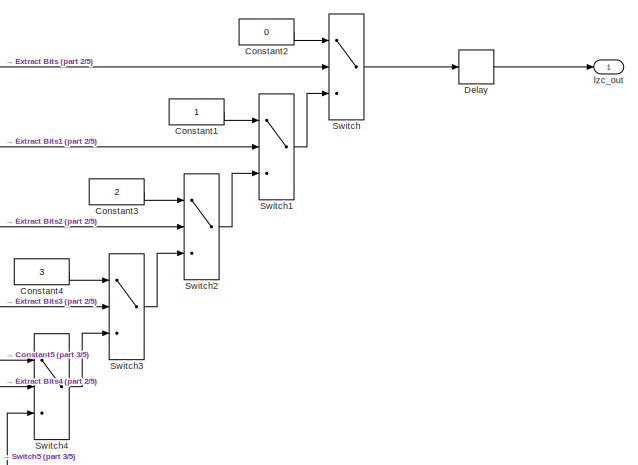
[diagram: dataplane/Avalon Data Processing/Left Channel Processing/recalculate/Nchan_FbankAGC_AID/Compression_1/Compression_Gain_Calc/LogAddressing/fxpt_lzc_W32/LZC32 - part 1/5, top right region]
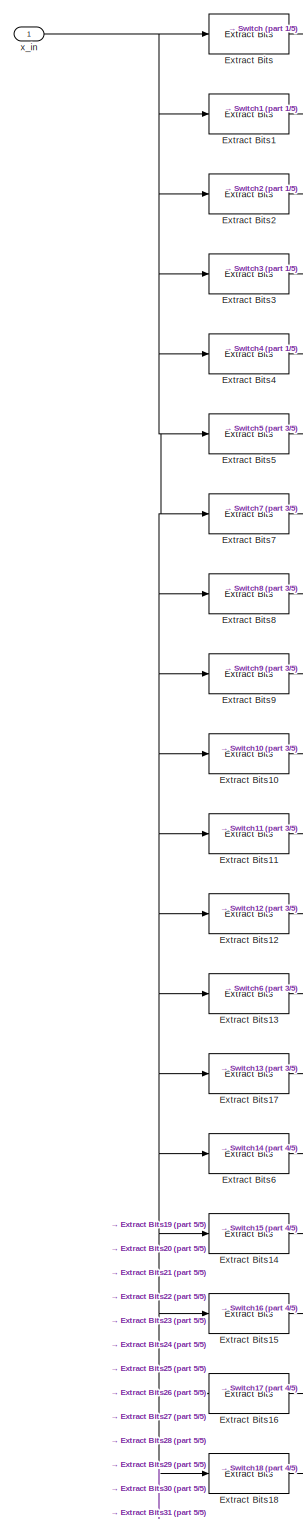
[diagram: dataplane/Avalon Data Processing/Left Channel Processing/recalculate/Nchan_FbankAGC_AID/Compression_1/Compression_Gain_Calc/LogAddressing/fxpt_lzc_W32/LZC32 - part 2/5, top left region]
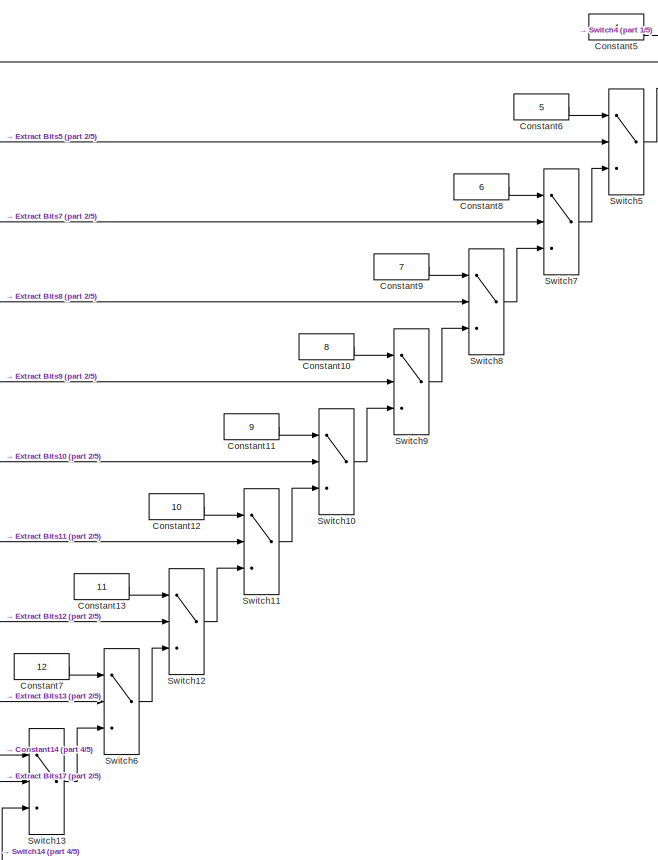
[diagram: dataplane/Avalon Data Processing/Left Channel Processing/recalculate/Nchan_FbankAGC_AID/Compression_1/Compression_Gain_Calc/LogAddressing/fxpt_lzc_W32/LZC32 - part 3/5, top right region]
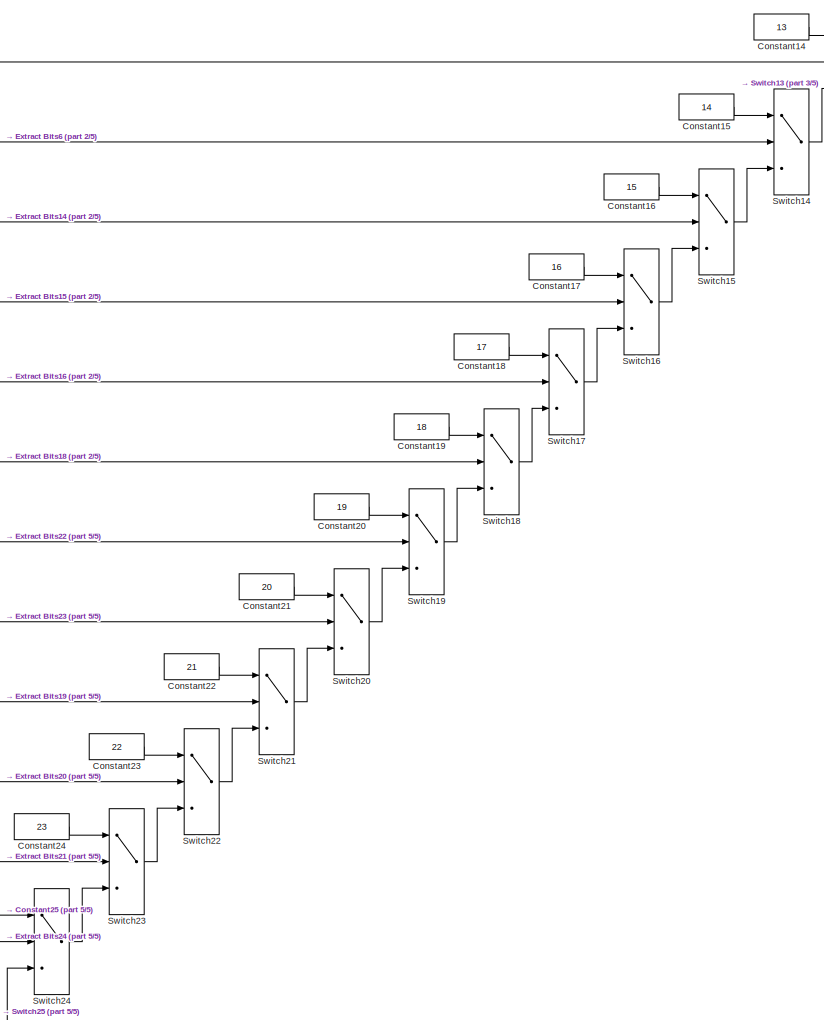
[diagram: dataplane/Avalon Data Processing/Left Channel Processing/recalculate/Nchan_FbankAGC_AID/Compression_1/Compression_Gain_Calc/LogAddressing/fxpt_lzc_W32/LZC32 - part 4/5, central region]
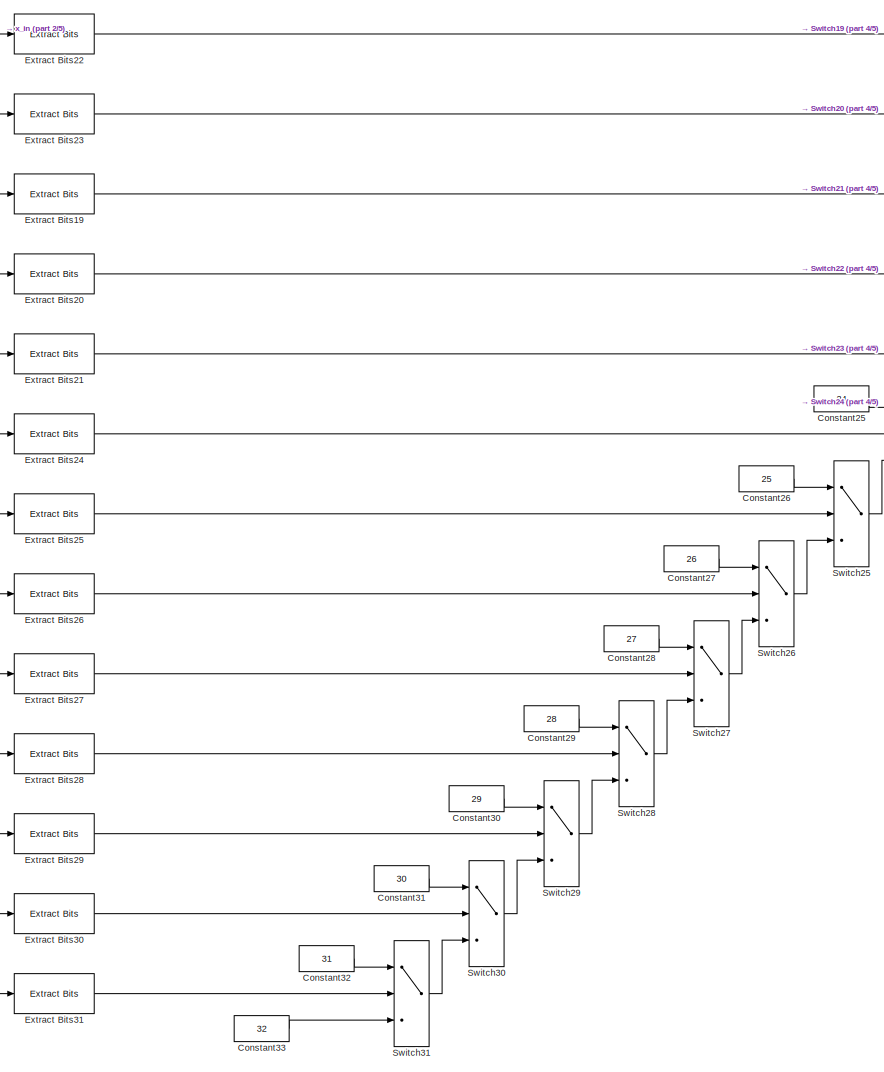
[diagram: dataplane/Avalon Data Processing/Left Channel Processing/recalculate/Nchan_FbankAGC_AID/Compression_1/Compression_Gain_Calc/LogAddressing/fxpt_lzc_W32/LZC32 - part 5/5, bottom left region]
BLOCK [SubSystem] dataplane/Avalon Data Processing/Left Channel Processing/recalculate/Nchan_FbankAGC_AID/Compression_1/Compression_Gain_Calc/LogAddressing/fxpt_lzc_W32/LZC32
  Ports = [1, 1]
  RequestExecContextInheritance = off
  TreatAsAtomicUnit = on
BLOCK [Constant] dataplane/Avalon Data Processing/Left Channel Processing/recalculate/Nchan_FbankAGC_AID/Compression_1/Compression_Gain_Calc/LogAddressing/fxpt_lzc_W32/LZC32/Constant1
  OutDataTypeStr = fixdt(0,6,0)
  SampleTime = Ts_system
BLOCK [Constant] dataplane/Avalon Data Processing/Left Channel Processing/recalculate/Nchan_FbankAGC_AID/Compression_1/Compression_Gain_Calc/LogAddressing/fxpt_lzc_W32/LZC32/Constant10
  OutDataTypeStr = fixdt(0,6,0)
  SampleTime = Ts_system
  Value = 8
BLOCK [Constant] dataplane/Avalon Data Processing/Left Channel Processing/recalculate/Nchan_FbankAGC_AID/Compression_1/Compression_Gain_Calc/LogAddressing/fxpt_lzc_W32/LZC32/Constant11
  OutDataTypeStr = fixdt(0,6,0)
  SampleTime = Ts_system
  Value = 9
BLOCK [Constant] dataplane/Avalon Data Processing/Left Channel Processing/recalculate/Nchan_FbankAGC_AID/Compression_1/Compression_Gain_Calc/LogAddressing/fxpt_lzc_W32/LZC32/Constant12
  OutDataTypeStr = fixdt(0,6,0)
  SampleTime = Ts_system
  Value = 10
BLOCK [Constant] dataplane/Avalon Data Processing/Left Channel Processing/recalculate/Nchan_FbankAGC_AID/Compression_1/Compression_Gain_Calc/LogAddressing/fxpt_lzc_W32/LZC32/Constant13
  OutDataTypeStr = fixdt(0,6,0)
  SampleTime = Ts_system
  Value = 11
BLOCK [Constant] dataplane/Avalon Data Processing/Left Channel Processing/recalculate/Nchan_FbankAGC_AID/Compression_1/Compression_Gain_Calc/LogAddressing/fxpt_lzc_W32/LZC32/Constant14
  OutDataTypeStr = fixdt(0,6,0)
  SampleTime = Ts_system
  Value = 13
BLOCK [Constant] dataplane/Avalon Data Processing/Left Channel Processing/recalculate/Nchan_FbankAGC_AID/Compression_1/Compression_Gain_Calc/LogAddressing/fxpt_lzc_W32/LZC32/Constant15
  OutDataTypeStr = fixdt(0,6,0)
  SampleTime = Ts_system
  Value = 14
BLOCK [Constant] dataplane/Avalon Data Processing/Left Channel Processing/recalculate/Nchan_FbankAGC_AID/Compression_1/Compression_Gain_Calc/LogAddressing/fxpt_lzc_W32/LZC32/Constant16
  OutDataTypeStr = fixdt(0,6,0)
  SampleTime = Ts_system
  Value = 15
BLOCK [Constant] dataplane/Avalon Data Processing/Left Channel Processing/recalculate/Nchan_FbankAGC_AID/Compression_1/Compression_Gain_Calc/LogAddressing/fxpt_lzc_W32/LZC32/Constant17
  OutDataTypeStr = fixdt(0,6,0)
  SampleTime = Ts_system
  Value = 16
BLOCK [Constant] dataplane/Avalon Data Processing/Left Channel Processing/recalculate/Nchan_FbankAGC_AID/Compression_1/Compression_Gain_Calc/LogAddressing/fxpt_lzc_W32/LZC32/Constant18
  OutDataTypeStr = fixdt(0,6,0)
  SampleTime = Ts_system
  Value = 17
BLOCK [Constant] dataplane/Avalon Data Processing/Left Channel Processing/recalculate/Nchan_FbankAGC_AID/Compression_1/Compression_Gain_Calc/LogAddressing/fxpt_lzc_W32/LZC32/Constant19
  OutDataTypeStr = fixdt(0,6,0)
  SampleTime = Ts_system
  Value = 18
BLOCK [Constant] dataplane/Avalon Data Processing/Left Channel Processing/recalculate/Nchan_FbankAGC_AID/Compression_1/Compression_Gain_Calc/LogAddressing/fxpt_lzc_W32/LZC32/Constant2
  OutDataTypeStr = fixdt(0,6,0)
  SampleTime = Ts_system
  Value = 0
BLOCK [Constant] dataplane/Avalon Data Processing/Left Channel Processing/recalculate/Nchan_FbankAGC_AID/Compression_1/Compression_Gain_Calc/LogAddressing/fxpt_lzc_W32/LZC32/Constant20
  OutDataTypeStr = fixdt(0,6,0)
  SampleTime = Ts_system
  Value = 19
BLOCK [Constant] dataplane/Avalon Data Processing/Left Channel Processing/recalculate/Nchan_FbankAGC_AID/Compression_1/Compression_Gain_Calc/LogAddressing/fxpt_lzc_W32/LZC32/Constant21
  OutDataTypeStr = fixdt(0,6,0)
  SampleTime = Ts_system
  Value = 20
BLOCK [Constant] dataplane/Avalon Data Processing/Left Channel Processing/recalculate/Nchan_FbankAGC_AID/Compression_1/Compression_Gain_Calc/LogAddressing/fxpt_lzc_W32/LZC32/Constant22
  OutDataTypeStr = fixdt(0,6,0)
  SampleTime = Ts_system
  Value = 21
BLOCK [Constant] dataplane/Avalon Data Processing/Left Channel Processing/recalculate/Nchan_FbankAGC_AID/Compression_1/Compression_Gain_Calc/LogAddressing/fxpt_lzc_W32/LZC32/Constant23
  OutDataTypeStr = fixdt(0,6,0)
  SampleTime = Ts_system
  Value = 22
BLOCK [Constant] dataplane/Avalon Data Processing/Left Channel Processing/recalculate/Nchan_FbankAGC_AID/Compression_1/Compression_Gain_Calc/LogAddressing/fxpt_lzc_W32/LZC32/Constant24
  OutDataTypeStr = fixdt(0,6,0)
  SampleTime = Ts_system
  Value = 23
BLOCK [Constant] dataplane/Avalon Data Processing/Left Channel Processing/recalculate/Nchan_FbankAGC_AID/Compression_1/Compression_Gain_Calc/LogAddressing/fxpt_lzc_W32/LZC32/Constant25
  OutDataTypeStr = fixdt(0,6,0)
  SampleTime = Ts_system
  Value = 24
BLOCK [Constant] dataplane/Avalon Data Processing/Left Channel Processing/recalculate/Nchan_FbankAGC_AID/Compression_1/Compression_Gain_Calc/LogAddressing/fxpt_lzc_W32/LZC32/Constant26
  OutDataTypeStr = fixdt(0,6,0)
  SampleTime = Ts_system
  Value = 25
BLOCK [Constant] dataplane/Avalon Data Processing/Left Channel Processing/recalculate/Nchan_FbankAGC_AID/Compression_1/Compression_Gain_Calc/LogAddressing/fxpt_lzc_W32/LZC32/Constant27
  OutDataTypeStr = fixdt(0,6,0)
  SampleTime = Ts_system
  Value = 26
BLOCK [Constant] dataplane/Avalon Data Processing/Left Channel Processing/recalculate/Nchan_FbankAGC_AID/Compression_1/Compression_Gain_Calc/LogAddressing/fxpt_lzc_W32/LZC32/Constant28
  OutDataTypeStr = fixdt(0,6,0)
  SampleTime = Ts_system
  Value = 27
BLOCK [Constant] dataplane/Avalon Data Processing/Left Channel Processing/recalculate/Nchan_FbankAGC_AID/Compression_1/Compression_Gain_Calc/LogAddressing/fxpt_lzc_W32/LZC32/Constant29
  OutDataTypeStr = fixdt(0,6,0)
  SampleTime = Ts_system
  Value = 28
BLOCK [Constant] dataplane/Avalon Data Processing/Left Channel Processing/recalculate/Nchan_FbankAGC_AID/Compression_1/Compression_Gain_Calc/LogAddressing/fxpt_lzc_W32/LZC32/Constant3
  OutDataTypeStr = fixdt(0,6,0)
  SampleTime = Ts_system
  Value = 2
BLOCK [Constant] dataplane/Avalon Data Processing/Left Channel Processing/recalculate/Nchan_FbankAGC_AID/Compression_1/Compression_Gain_Calc/LogAddressing/fxpt_lzc_W32/LZC32/Constant30
  OutDataTypeStr = fixdt(0,6,0)
  SampleTime = Ts_system
  Value = 29
BLOCK [Constant] dataplane/Avalon Data Processing/Left Channel Processing/recalculate/Nchan_FbankAGC_AID/Compression_1/Compression_Gain_Calc/LogAddressing/fxpt_lzc_W32/LZC32/Constant31
  OutDataTypeStr = fixdt(0,6,0)
  SampleTime = Ts_system
  Value = 30
BLOCK [Constant] dataplane/Avalon Data Processing/Left Channel Processing/recalculate/Nchan_FbankAGC_AID/Compression_1/Compression_Gain_Calc/LogAddressing/fxpt_lzc_W32/LZC32/Constant32
  OutDataTypeStr = fixdt(0,6,0)
  SampleTime = Ts_system
  Value = 31
BLOCK [Constant] dataplane/Avalon Data Processing/Left Channel Processing/recalculate/Nchan_FbankAGC_AID/Compression_1/Compression_Gain_Calc/LogAddressing/fxpt_lzc_W32/LZC32/Constant33
  OutDataTypeStr = fixdt(0,6,0)
  SampleTime = Ts_system
  Value = 32
BLOCK [Constant] dataplane/Avalon Data Processing/Left Channel Processing/recalculate/Nchan_FbankAGC_AID/Compression_1/Compression_Gain_Calc/LogAddressing/fxpt_lzc_W32/LZC32/Constant4
  OutDataTypeStr = fixdt(0,6,0)
  SampleTime = Ts_system
  Value = 3
BLOCK [Constant] dataplane/Avalon Data Processing/Left Channel Processing/recalculate/Nchan_FbankAGC_AID/Compression_1/Compression_Gain_Calc/LogAddressing/fxpt_lzc_W32/LZC32/Constant5
  OutDataTypeStr = fixdt(0,6,0)
  SampleTime = Ts_system
  Value = 4
BLOCK [Constant] dataplane/Avalon Data Processing/Left Channel Processing/recalculate/Nchan_FbankAGC_AID/Compression_1/Compression_Gain_Calc/LogAddressing/fxpt_lzc_W32/LZC32/Constant6
  OutDataTypeStr = fixdt(0,6,0)
  SampleTime = Ts_system
  Value = 5
BLOCK [Constant] dataplane/Avalon Data Processing/Left Channel Processing/recalculate/Nchan_FbankAGC_AID/Compression_1/Compression_Gain_Calc/LogAddressing/fxpt_lzc_W32/LZC32/Constant7
  OutDataTypeStr = fixdt(0,6,0)
  SampleTime = Ts_system
  Value = 12
BLOCK [Constant] dataplane/Avalon Data Processing/Left Channel Processing/recalculate/Nchan_FbankAGC_AID/Compression_1/Compression_Gain_Calc/LogAddressing/fxpt_lzc_W32/LZC32/Constant8
  OutDataTypeStr = fixdt(0,6,0)
  SampleTime = Ts_system
  Value = 6
BLOCK [Constant] dataplane/Avalon Data Processing/Left Channel Processing/recalculate/Nchan_FbankAGC_AID/Compression_1/Compression_Gain_Calc/LogAddressing/fxpt_lzc_W32/LZC32/Constant9
  OutDataTypeStr = fixdt(0,6,0)
  SampleTime = Ts_system
  Value = 7
BLOCK [Delay] dataplane/Avalon Data Processing/Left Channel Processing/recalculate/Nchan_FbankAGC_AID/Compression_1/Compression_Gain_Calc/LogAddressing/fxpt_lzc_W32/LZC32/Delay
  DelayLength = 1
  InitialCondition = 3
  InputPortMap = u0
  Ports = [1, 1]
BLOCK [Reference] dataplane/Avalon Data Processing/Left Channel Processing/recalculate/Nchan_FbankAGC_AID/Compression_1/Compression_Gain_Calc/LogAddressing/fxpt_lzc_W32/LZC32/Extract Bits  REF=simulink/Logic and Bit
Operations/Extract Bits
  Ports = [1, 1]
  SourceBlock = simulink/Logic and Bit\nOperations/Extract Bits
  SourceProductBaseCode = SL
  SourceProductName = Simulink
  SourceType = Extract Bits
BLOCK [Reference] dataplane/Avalon Data Processing/Left Channel Processing/recalculate/Nchan_FbankAGC_AID/Compression_1/Compression_Gain_Calc/LogAddressing/fxpt_lzc_W32/LZC32/Extract Bits1  REF=simulink/Logic and Bit
Operations/Extract Bits
  Ports = [1, 1]
  SourceBlock = simulink/Logic and Bit\nOperations/Extract Bits
  SourceProductBaseCode = SL
  SourceProductName = Simulink
  SourceType = Extract Bits
BLOCK [Reference] dataplane/Avalon Data Processing/Left Channel Processing/recalculate/Nchan_FbankAGC_AID/Compression_1/Compression_Gain_Calc/LogAddressing/fxpt_lzc_W32/LZC32/Extract Bits10  REF=simulink/Logic and Bit
Operations/Extract Bits
  Ports = [1, 1]
  SourceBlock = simulink/Logic and Bit\nOperations/Extract Bits
  SourceProductBaseCode = SL
  SourceProductName = Simulink
  SourceType = Extract Bits
BLOCK [Reference] dataplane/Avalon Data Processing/Left Channel Processing/recalculate/Nchan_FbankAGC_AID/Compression_1/Compression_Gain_Calc/LogAddressing/fxpt_lzc_W32/LZC32/Extract Bits11  REF=simulink/Logic and Bit
Operations/Extract Bits
  Ports = [1, 1]
  SourceBlock = simulink/Logic and Bit\nOperations/Extract Bits
  SourceProductBaseCode = SL
  SourceProductName = Simulink
  SourceType = Extract Bits
BLOCK [Reference] dataplane/Avalon Data Processing/Left Channel Processing/recalculate/Nchan_FbankAGC_AID/Compression_1/Compression_Gain_Calc/LogAddressing/fxpt_lzc_W32/LZC32/Extract Bits12  REF=simulink/Logic and Bit
Operations/Extract Bits
  Ports = [1, 1]
  SourceBlock = simulink/Logic and Bit\nOperations/Extract Bits
  SourceProductBaseCode = SL
  SourceProductName = Simulink
  SourceType = Extract Bits
BLOCK [Reference] dataplane/Avalon Data Processing/Left Channel Processing/recalculate/Nchan_FbankAGC_AID/Compression_1/Compression_Gain_Calc/LogAddressing/fxpt_lzc_W32/LZC32/Extract Bits13  REF=simulink/Logic and Bit
Operations/Extract Bits
  Ports = [1, 1]
  SourceBlock = simulink/Logic and Bit\nOperations/Extract Bits
  SourceProductBaseCode = SL
  SourceProductName = Simulink
  SourceType = Extract Bits
BLOCK [Reference] dataplane/Avalon Data Processing/Left Channel Processing/recalculate/Nchan_FbankAGC_AID/Compression_1/Compression_Gain_Calc/LogAddressing/fxpt_lzc_W32/LZC32/Extract Bits14  REF=simulink/Logic and Bit
Operations/Extract Bits
  Ports = [1, 1]
  SourceBlock = simulink/Logic and Bit\nOperations/Extract Bits
  SourceProductBaseCode = SL
  SourceProductName = Simulink
  SourceType = Extract Bits
BLOCK [Reference] dataplane/Avalon Data Processing/Left Channel Processing/recalculate/Nchan_FbankAGC_AID/Compression_1/Compression_Gain_Calc/LogAddressing/fxpt_lzc_W32/LZC32/Extract Bits15  REF=simulink/Logic and Bit
Operations/Extract Bits
  Ports = [1, 1]
  SourceBlock = simulink/Logic and Bit\nOperations/Extract Bits
  SourceProductBaseCode = SL
  SourceProductName = Simulink
  SourceType = Extract Bits
BLOCK [Reference] dataplane/Avalon Data Processing/Left Channel Processing/recalculate/Nchan_FbankAGC_AID/Compression_1/Compression_Gain_Calc/LogAddressing/fxpt_lzc_W32/LZC32/Extract Bits16  REF=simulink/Logic and Bit
Operations/Extract Bits
  Ports = [1, 1]
  SourceBlock = simulink/Logic and Bit\nOperations/Extract Bits
  SourceProductBaseCode = SL
  SourceProductName = Simulink
  SourceType = Extract Bits
BLOCK [Reference] dataplane/Avalon Data Processing/Left Channel Processing/recalculate/Nchan_FbankAGC_AID/Compression_1/Compression_Gain_Calc/LogAddressing/fxpt_lzc_W32/LZC32/Extract Bits17  REF=simulink/Logic and Bit
Operations/Extract Bits
  Ports = [1, 1]
  SourceBlock = simulink/Logic and Bit\nOperations/Extract Bits
  SourceProductBaseCode = SL
  SourceProductName = Simulink
  SourceType = Extract Bits
BLOCK [Reference] dataplane/Avalon Data Processing/Left Channel Processing/recalculate/Nchan_FbankAGC_AID/Compression_1/Compression_Gain_Calc/LogAddressing/fxpt_lzc_W32/LZC32/Extract Bits18  REF=simulink/Logic and Bit
Operations/Extract Bits
  Ports = [1, 1]
  SourceBlock = simulink/Logic and Bit\nOperations/Extract Bits
  SourceProductBaseCode = SL
  SourceProductName = Simulink
  SourceType = Extract Bits
BLOCK [Reference] dataplane/Avalon Data Processing/Left Channel Processing/recalculate/Nchan_FbankAGC_AID/Compression_1/Compression_Gain_Calc/LogAddressing/fxpt_lzc_W32/LZC32/Extract Bits19  REF=simulink/Logic and Bit
Operations/Extract Bits
  Ports = [1, 1]
  SourceBlock = simulink/Logic and Bit\nOperations/Extract Bits
  SourceProductBaseCode = SL
  SourceProductName = Simulink
  SourceType = Extract Bits
BLOCK [Reference] dataplane/Avalon Data Processing/Left Channel Processing/recalculate/Nchan_FbankAGC_AID/Compression_1/Compression_Gain_Calc/LogAddressing/fxpt_lzc_W32/LZC32/Extract Bits2  REF=simulink/Logic and Bit
Operations/Extract Bits
  Ports = [1, 1]
  SourceBlock = simulink/Logic and Bit\nOperations/Extract Bits
  SourceProductBaseCode = SL
  SourceProductName = Simulink
  SourceType = Extract Bits
BLOCK [Reference] dataplane/Avalon Data Processing/Left Channel Processing/recalculate/Nchan_FbankAGC_AID/Compression_1/Compression_Gain_Calc/LogAddressing/fxpt_lzc_W32/LZC32/Extract Bits20  REF=simulink/Logic and Bit
Operations/Extract Bits
  Ports = [1, 1]
  SourceBlock = simulink/Logic and Bit\nOperations/Extract Bits
  SourceProductBaseCode = SL
  SourceProductName = Simulink
  SourceType = Extract Bits
BLOCK [Reference] dataplane/Avalon Data Processing/Left Channel Processing/recalculate/Nchan_FbankAGC_AID/Compression_1/Compression_Gain_Calc/LogAddressing/fxpt_lzc_W32/LZC32/Extract Bits21  REF=simulink/Logic and Bit
Operations/Extract Bits
  Ports = [1, 1]
  SourceBlock = simulink/Logic and Bit\nOperations/Extract Bits
  SourceProductBaseCode = SL
  SourceProductName = Simulink
  SourceType = Extract Bits
BLOCK [Reference] dataplane/Avalon Data Processing/Left Channel Processing/recalculate/Nchan_FbankAGC_AID/Compression_1/Compression_Gain_Calc/LogAddressing/fxpt_lzc_W32/LZC32/Extract Bits22  REF=simulink/Logic and Bit
Operations/Extract Bits
  Ports = [1, 1]
  SourceBlock = simulink/Logic and Bit\nOperations/Extract Bits
  SourceProductBaseCode = SL
  SourceProductName = Simulink
  SourceType = Extract Bits
BLOCK [Reference] dataplane/Avalon Data Processing/Left Channel Processing/recalculate/Nchan_FbankAGC_AID/Compression_1/Compression_Gain_Calc/LogAddressing/fxpt_lzc_W32/LZC32/Extract Bits23  REF=simulink/Logic and Bit
Operations/Extract Bits
  Ports = [1, 1]
  SourceBlock = simulink/Logic and Bit\nOperations/Extract Bits
  SourceProductBaseCode = SL
  SourceProductName = Simulink
  SourceType = Extract Bits
BLOCK [Reference] dataplane/Avalon Data Processing/Left Channel Processing/recalculate/Nchan_FbankAGC_AID/Compression_1/Compression_Gain_Calc/LogAddressing/fxpt_lzc_W32/LZC32/Extract Bits24  REF=simulink/Logic and Bit
Operations/Extract Bits
  Ports = [1, 1]
  SourceBlock = simulink/Logic and Bit\nOperations/Extract Bits
  SourceProductBaseCode = SL
  SourceProductName = Simulink
  SourceType = Extract Bits
BLOCK [Reference] dataplane/Avalon Data Processing/Left Channel Processing/recalculate/Nchan_FbankAGC_AID/Compression_1/Compression_Gain_Calc/LogAddressing/fxpt_lzc_W32/LZC32/Extract Bits25  REF=simulink/Logic and Bit
Operations/Extract Bits
  Ports = [1, 1]
  SourceBlock = simulink/Logic and Bit\nOperations/Extract Bits
  SourceProductBaseCode = SL
  SourceProductName = Simulink
  SourceType = Extract Bits
BLOCK [Reference] dataplane/Avalon Data Processing/Left Channel Processing/recalculate/Nchan_FbankAGC_AID/Compression_1/Compression_Gain_Calc/LogAddressing/fxpt_lzc_W32/LZC32/Extract Bits26  REF=simulink/Logic and Bit
Operations/Extract Bits
  Ports = [1, 1]
  SourceBlock = simulink/Logic and Bit\nOperations/Extract Bits
  SourceProductBaseCode = SL
  SourceProductName = Simulink
  SourceType = Extract Bits
BLOCK [Reference] dataplane/Avalon Data Processing/Left Channel Processing/recalculate/Nchan_FbankAGC_AID/Compression_1/Compression_Gain_Calc/LogAddressing/fxpt_lzc_W32/LZC32/Extract Bits27  REF=simulink/Logic and Bit
Operations/Extract Bits
  Ports = [1, 1]
  SourceBlock = simulink/Logic and Bit\nOperations/Extract Bits
  SourceProductBaseCode = SL
  SourceProductName = Simulink
  SourceType = Extract Bits
BLOCK [Reference] dataplane/Avalon Data Processing/Left Channel Processing/recalculate/Nchan_FbankAGC_AID/Compression_1/Compression_Gain_Calc/LogAddressing/fxpt_lzc_W32/LZC32/Extract Bits28  REF=simulink/Logic and Bit
Operations/Extract Bits
  Ports = [1, 1]
  SourceBlock = simulink/Logic and Bit\nOperations/Extract Bits
  SourceProductBaseCode = SL
  SourceProductName = Simulink
  SourceType = Extract Bits
BLOCK [Reference] dataplane/Avalon Data Processing/Left Channel Processing/recalculate/Nchan_FbankAGC_AID/Compression_1/Compression_Gain_Calc/LogAddressing/fxpt_lzc_W32/LZC32/Extract Bits29  REF=simulink/Logic and Bit
Operations/Extract Bits
  Ports = [1, 1]
  SourceBlock = simulink/Logic and Bit\nOperations/Extract Bits
  SourceProductBaseCode = SL
  SourceProductName = Simulink
  SourceType = Extract Bits
BLOCK [Reference] dataplane/Avalon Data Processing/Left Channel Processing/recalculate/Nchan_FbankAGC_AID/Compression_1/Compression_Gain_Calc/LogAddressing/fxpt_lzc_W32/LZC32/Extract Bits3  REF=simulink/Logic and Bit
Operations/Extract Bits
  Ports = [1, 1]
  SourceBlock = simulink/Logic and Bit\nOperations/Extract Bits
  SourceProductBaseCode = SL
  SourceProductName = Simulink
  SourceType = Extract Bits
BLOCK [Reference] dataplane/Avalon Data Processing/Left Channel Processing/recalculate/Nchan_FbankAGC_AID/Compression_1/Compression_Gain_Calc/LogAddressing/fxpt_lzc_W32/LZC32/Extract Bits30  REF=simulink/Logic and Bit
Operations/Extract Bits
  Ports = [1, 1]
  SourceBlock = simulink/Logic and Bit\nOperations/Extract Bits
  SourceProductBaseCode = SL
  SourceProductName = Simulink
  SourceType = Extract Bits
BLOCK [Reference] dataplane/Avalon Data Processing/Left Channel Processing/recalculate/Nchan_FbankAGC_AID/Compression_1/Compression_Gain_Calc/LogAddressing/fxpt_lzc_W32/LZC32/Extract Bits31  REF=simulink/Logic and Bit
Operations/Extract Bits
  Ports = [1, 1]
  SourceBlock = simulink/Logic and Bit\nOperations/Extract Bits
  SourceProductBaseCode = SL
  SourceProductName = Simulink
  SourceType = Extract Bits
BLOCK [Reference] dataplane/Avalon Data Processing/Left Channel Processing/recalculate/Nchan_FbankAGC_AID/Compression_1/Compression_Gain_Calc/LogAddressing/fxpt_lzc_W32/LZC32/Extract Bits4  REF=simulink/Logic and Bit
Operations/Extract Bits
  Ports = [1, 1]
  SourceBlock = simulink/Logic and Bit\nOperations/Extract Bits
  SourceProductBaseCode = SL
  SourceProductName = Simulink
  SourceType = Extract Bits
BLOCK [Reference] dataplane/Avalon Data Processing/Left Channel Processing/recalculate/Nchan_FbankAGC_AID/Compression_1/Compression_Gain_Calc/LogAddressing/fxpt_lzc_W32/LZC32/Extract Bits5  REF=simulink/Logic and Bit
Operations/Extract Bits
  Ports = [1, 1]
  SourceBlock = simulink/Logic and Bit\nOperations/Extract Bits
  SourceProductBaseCode = SL
  SourceProductName = Simulink
  SourceType = Extract Bits
BLOCK [Reference] dataplane/Avalon Data Processing/Left Channel Processing/recalculate/Nchan_FbankAGC_AID/Compression_1/Compression_Gain_Calc/LogAddressing/fxpt_lzc_W32/LZC32/Extract Bits6  REF=simulink/Logic and Bit
Operations/Extract Bits
  Ports = [1, 1]
  SourceBlock = simulink/Logic and Bit\nOperations/Extract Bits
  SourceProductBaseCode = SL
  SourceProductName = Simulink
  SourceType = Extract Bits
BLOCK [Reference] dataplane/Avalon Data Processing/Left Channel Processing/recalculate/Nchan_FbankAGC_AID/Compression_1/Compression_Gain_Calc/LogAddressing/fxpt_lzc_W32/LZC32/Extract Bits7  REF=simulink/Logic and Bit
Operations/Extract Bits
  Ports = [1, 1]
  SourceBlock = simulink/Logic and Bit\nOperations/Extract Bits
  SourceProductBaseCode = SL
  SourceProductName = Simulink
  SourceType = Extract Bits
BLOCK [Reference] dataplane/Avalon Data Processing/Left Channel Processing/recalculate/Nchan_FbankAGC_AID/Compression_1/Compression_Gain_Calc/LogAddressing/fxpt_lzc_W32/LZC32/Extract Bits8  REF=simulink/Logic and Bit
Operations/Extract Bits
  Ports = [1, 1]
  SourceBlock = simulink/Logic and Bit\nOperations/Extract Bits
  SourceProductBaseCode = SL
  SourceProductName = Simulink
  SourceType = Extract Bits
BLOCK [Reference] dataplane/Avalon Data Processing/Left Channel Processing/recalculate/Nchan_FbankAGC_AID/Compression_1/Compression_Gain_Calc/LogAddressing/fxpt_lzc_W32/LZC32/Extract Bits9  REF=simulink/Logic and Bit
Operations/Extract Bits
  Ports = [1, 1]
  SourceBlock = simulink/Logic and Bit\nOperations/Extract Bits
  SourceProductBaseCode = SL
  SourceProductName = Simulink
  SourceType = Extract Bits
BLOCK [Switch] dataplane/Avalon Data Processing/Left Channel Processing/recalculate/Nchan_FbankAGC_AID/Compression_1/Compression_Gain_Calc/LogAddressing/fxpt_lzc_W32/LZC32/Switch
  Criteria = u2 ~= 0
  InputSameDT = off
  SaturateOnIntegerOverflow = off
BLOCK [Switch] dataplane/Avalon Data Processing/Left Channel Processing/recalculate/Nchan_FbankAGC_AID/Compression_1/Compression_Gain_Calc/LogAddressing/fxpt_lzc_W32/LZC32/Switch1
  Criteria = u2 ~= 0
  InputSameDT = off
  SaturateOnIntegerOverflow = off
BLOCK [Switch] dataplane/Avalon Data Processing/Left Channel Processing/recalculate/Nchan_FbankAGC_AID/Compression_1/Compression_Gain_Calc/LogAddressing/fxpt_lzc_W32/LZC32/Switch10
  Criteria = u2 ~= 0
  InputSameDT = off
  SaturateOnIntegerOverflow = off
BLOCK [Switch] dataplane/Avalon Data Processing/Left Channel Processing/recalculate/Nchan_FbankAGC_AID/Compression_1/Compression_Gain_Calc/LogAddressing/fxpt_lzc_W32/LZC32/Switch11
  Criteria = u2 ~= 0
  InputSameDT = off
  SaturateOnIntegerOverflow = off
BLOCK [Switch] dataplane/Avalon Data Processing/Left Channel Processing/recalculate/Nchan_FbankAGC_AID/Compression_1/Compression_Gain_Calc/LogAddressing/fxpt_lzc_W32/LZC32/Switch12
  Criteria = u2 ~= 0
  InputSameDT = off
  SaturateOnIntegerOverflow = off
BLOCK [Switch] dataplane/Avalon Data Processing/Left Channel Processing/recalculate/Nchan_FbankAGC_AID/Compression_1/Compression_Gain_Calc/LogAddressing/fxpt_lzc_W32/LZC32/Switch13
  Criteria = u2 ~= 0
  InputSameDT = off
  SaturateOnIntegerOverflow = off
BLOCK [Switch] dataplane/Avalon Data Processing/Left Channel Processing/recalculate/Nchan_FbankAGC_AID/Compression_1/Compression_Gain_Calc/LogAddressing/fxpt_lzc_W32/LZC32/Switch14
  Criteria = u2 ~= 0
  InputSameDT = off
  SaturateOnIntegerOverflow = off
BLOCK [Switch] dataplane/Avalon Data Processing/Left Channel Processing/recalculate/Nchan_FbankAGC_AID/Compression_1/Compression_Gain_Calc/LogAddressing/fxpt_lzc_W32/LZC32/Switch15
  Criteria = u2 ~= 0
  InputSameDT = off
  SaturateOnIntegerOverflow = off
BLOCK [Switch] dataplane/Avalon Data Processing/Left Channel Processing/recalculate/Nchan_FbankAGC_AID/Compression_1/Compression_Gain_Calc/LogAddressing/fxpt_lzc_W32/LZC32/Switch16
  Criteria = u2 ~= 0
  InputSameDT = off
  SaturateOnIntegerOverflow = off
BLOCK [Switch] dataplane/Avalon Data Processing/Left Channel Processing/recalculate/Nchan_FbankAGC_AID/Compression_1/Compression_Gain_Calc/LogAddressing/fxpt_lzc_W32/LZC32/Switch17
  Criteria = u2 ~= 0
  InputSameDT = off
  SaturateOnIntegerOverflow = off
BLOCK [Switch] dataplane/Avalon Data Processing/Left Channel Processing/recalculate/Nchan_FbankAGC_AID/Compression_1/Compression_Gain_Calc/LogAddressing/fxpt_lzc_W32/LZC32/Switch18
  Criteria = u2 ~= 0
  InputSameDT = off
  SaturateOnIntegerOverflow = off
BLOCK [Switch] dataplane/Avalon Data Processing/Left Channel Processing/recalculate/Nchan_FbankAGC_AID/Compression_1/Compression_Gain_Calc/LogAddressing/fxpt_lzc_W32/LZC32/Switch19
  Criteria = u2 ~= 0
  InputSameDT = off
  SaturateOnIntegerOverflow = off
BLOCK [Switch] dataplane/Avalon Data Processing/Left Channel Processing/recalculate/Nchan_FbankAGC_AID/Compression_1/Compression_Gain_Calc/LogAddressing/fxpt_lzc_W32/LZC32/Switch2
  Criteria = u2 ~= 0
  InputSameDT = off
  SaturateOnIntegerOverflow = off
BLOCK [Switch] dataplane/Avalon Data Processing/Left Channel Processing/recalculate/Nchan_FbankAGC_AID/Compression_1/Compression_Gain_Calc/LogAddressing/fxpt_lzc_W32/LZC32/Switch20
  Criteria = u2 ~= 0
  InputSameDT = off
  SaturateOnIntegerOverflow = off
BLOCK [Switch] dataplane/Avalon Data Processing/Left Channel Processing/recalculate/Nchan_FbankAGC_AID/Compression_1/Compression_Gain_Calc/LogAddressing/fxpt_lzc_W32/LZC32/Switch21
  Criteria = u2 ~= 0
  InputSameDT = off
  SaturateOnIntegerOverflow = off
BLOCK [Switch] dataplane/Avalon Data Processing/Left Channel Processing/recalculate/Nchan_FbankAGC_AID/Compression_1/Compression_Gain_Calc/LogAddressing/fxpt_lzc_W32/LZC32/Switch22
  Criteria = u2 ~= 0
  InputSameDT = off
  SaturateOnIntegerOverflow = off
BLOCK [Switch] dataplane/Avalon Data Processing/Left Channel Processing/recalculate/Nchan_FbankAGC_AID/Compression_1/Compression_Gain_Calc/LogAddressing/fxpt_lzc_W32/LZC32/Switch23
  Criteria = u2 ~= 0
  InputSameDT = off
  SaturateOnIntegerOverflow = off
BLOCK [Switch] dataplane/Avalon Data Processing/Left Channel Processing/recalculate/Nchan_FbankAGC_AID/Compression_1/Compression_Gain_Calc/LogAddressing/fxpt_lzc_W32/LZC32/Switch24
  Criteria = u2 ~= 0
  InputSameDT = off
  SaturateOnIntegerOverflow = off
BLOCK [Switch] dataplane/Avalon Data Processing/Left Channel Processing/recalculate/Nchan_FbankAGC_AID/Compression_1/Compression_Gain_Calc/LogAddressing/fxpt_lzc_W32/LZC32/Switch25
  Criteria = u2 ~= 0
  InputSameDT = off
  SaturateOnIntegerOverflow = off
BLOCK [Switch] dataplane/Avalon Data Processing/Left Channel Processing/recalculate/Nchan_FbankAGC_AID/Compression_1/Compression_Gain_Calc/LogAddressing/fxpt_lzc_W32/LZC32/Switch26
  Criteria = u2 ~= 0
  InputSameDT = off
  SaturateOnIntegerOverflow = off
BLOCK [Switch] dataplane/Avalon Data Processing/Left Channel Processing/recalculate/Nchan_FbankAGC_AID/Compression_1/Compression_Gain_Calc/LogAddressing/fxpt_lzc_W32/LZC32/Switch27
  Criteria = u2 ~= 0
  InputSameDT = off
  SaturateOnIntegerOverflow = off
BLOCK [Switch] dataplane/Avalon Data Processing/Left Channel Processing/recalculate/Nchan_FbankAGC_AID/Compression_1/Compression_Gain_Calc/LogAddressing/fxpt_lzc_W32/LZC32/Switch28
  Criteria = u2 ~= 0
  InputSameDT = off
  SaturateOnIntegerOverflow = off
BLOCK [Switch] dataplane/Avalon Data Processing/Left Channel Processing/recalculate/Nchan_FbankAGC_AID/Compression_1/Compression_Gain_Calc/LogAddressing/fxpt_lzc_W32/LZC32/Switch29
  Criteria = u2 ~= 0
  InputSameDT = off
  SaturateOnIntegerOverflow = off
BLOCK [Switch] dataplane/Avalon Data Processing/Left Channel Processing/recalculate/Nchan_FbankAGC_AID/Compression_1/Compression_Gain_Calc/LogAddressing/fxpt_lzc_W32/LZC32/Switch3
  Criteria = u2 ~= 0
  InputSameDT = off
  SaturateOnIntegerOverflow = off
BLOCK [Switch] dataplane/Avalon Data Processing/Left Channel Processing/recalculate/Nchan_FbankAGC_AID/Compression_1/Compression_Gain_Calc/LogAddressing/fxpt_lzc_W32/LZC32/Switch30
  Criteria = u2 ~= 0
  InputSameDT = off
  SaturateOnIntegerOverflow = off
BLOCK [Switch] dataplane/Avalon Data Processing/Left Channel Processing/recalculate/Nchan_FbankAGC_AID/Compression_1/Compression_Gain_Calc/LogAddressing/fxpt_lzc_W32/LZC32/Switch31
  Criteria = u2 ~= 0
  InputSameDT = off
  SaturateOnIntegerOverflow = off
BLOCK [Switch] dataplane/Avalon Data Processing/Left Channel Processing/recalculate/Nchan_FbankAGC_AID/Compression_1/Compression_Gain_Calc/LogAddressing/fxpt_lzc_W32/LZC32/Switch4
  Criteria = u2 ~= 0
  InputSameDT = off
  SaturateOnIntegerOverflow = off
BLOCK [Switch] dataplane/Avalon Data Processing/Left Channel Processing/recalculate/Nchan_FbankAGC_AID/Compression_1/Compression_Gain_Calc/LogAddressing/fxpt_lzc_W32/LZC32/Switch5
  Criteria = u2 ~= 0
  InputSameDT = off
  SaturateOnIntegerOverflow = off
BLOCK [Switch] dataplane/Avalon Data Processing/Left Channel Processing/recalculate/Nchan_FbankAGC_AID/Compression_1/Compression_Gain_Calc/LogAddressing/fxpt_lzc_W32/LZC32/Switch6
  Criteria = u2 ~= 0
  InputSameDT = off
  SaturateOnIntegerOverflow = off
BLOCK [Switch] dataplane/Avalon Data Processing/Left Channel Processing/recalculate/Nchan_FbankAGC_AID/Compression_1/Compression_Gain_Calc/LogAddressing/fxpt_lzc_W32/LZC32/Switch7
  Criteria = u2 ~= 0
  InputSameDT = off
  SaturateOnIntegerOverflow = off
BLOCK [Switch] dataplane/Avalon Data Processing/Left Channel Processing/recalculate/Nchan_FbankAGC_AID/Compression_1/Compression_Gain_Calc/LogAddressing/fxpt_lzc_W32/LZC32/Switch8
  Criteria = u2 ~= 0
  InputSameDT = off
  SaturateOnIntegerOverflow = off
BLOCK [Switch] dataplane/Avalon Data Processing/Left Channel Processing/recalculate/Nchan_FbankAGC_AID/Compression_1/Compression_Gain_Calc/LogAddressing/fxpt_lzc_W32/LZC32/Switch9
  Criteria = u2 ~= 0
  InputSameDT = off
  SaturateOnIntegerOverflow = off
BLOCK [Outport] dataplane/Avalon Data Processing/Left Channel Processing/recalculate/Nchan_FbankAGC_AID/Compression_1/Compression_Gain_Calc/LogAddressing/fxpt_lzc_W32/LZC32/lzc_out
  IconDisplay = Port number
  VectorParamsAs1DForOutWhenUnconnected = off
BLOCK [Inport] dataplane/Avalon Data Processing/Left Channel Processing/recalculate/Nchan_FbankAGC_AID/Compression_1/Compression_Gain_Calc/LogAddressing/fxpt_lzc_W32/LZC32/x_in
  IconDisplay = Port number
BLOCK [Outport] dataplane/Avalon Data Processing/Left Channel Processing/recalculate/Nchan_FbankAGC_AID/Compression_1/Compression_Gain_Calc/LogAddressing/fxpt_lzc_W32/lzc_out
  IconDisplay = Port number
  VectorParamsAs1DForOutWhenUnconnected = off
BLOCK [Inport] dataplane/Avalon Data Processing/Left Channel Processing/recalculate/Nchan_FbankAGC_AID/Compression_1/Compression_Gain_Calc/LogAddressing/fxpt_lzc_W32/x_in
  IconDisplay = Port number
BLOCK [Inport] dataplane/Avalon Data Processing/Left Channel Processing/recalculate/Nchan_FbankAGC_AID/Compression_1/Compression_Gain_Calc/LogAddressing/x_in
  IconDisplay = Port number
BLOCK [SubSystem] dataplane/Avalon Data Processing/Left Channel Processing/recalculate/Nchan_FbankAGC_AID/Compression_1/Compression_Gain_Calc/Low_Gain_Table
  AncestorBlock = DualPortRam_UNLOCKED/Dual Port RAM UNLOCKED
  Ports = [4, 2]
  RequestExecContextInheritance = off
BLOCK [SignalSpecification] dataplane/Avalon Data Processing/Left Channel Processing/recalculate/Nchan_FbankAGC_AID/Compression_1/Compression_Gain_Calc/Low_Gain_Table/Signal Specification
  Dimensions = 1
  OutDataTypeStr = fixdt(0,ram_size,0)
BLOCK [SignalSpecification] dataplane/Avalon Data Processing/Left Channel Processing/recalculate/Nchan_FbankAGC_AID/Compression_1/Compression_Gain_Calc/Low_Gain_Table/Signal Specification1
  Dimensions = 1
  OutDataTypeStr = fixdt(0,ram_size,0)
BLOCK [DataTypeConversion] dataplane/Avalon Data Processing/Left Channel Processing/recalculate/Nchan_FbankAGC_AID/Compression_1/Compression_Gain_Calc/Low_Gain_Table/convert
  OutDataTypeStr = uint16
  RndMeth = Floor
  SaturateOnIntegerOverflow = off
BLOCK [DataTypeConversion] dataplane/Avalon Data Processing/Left Channel Processing/recalculate/Nchan_FbankAGC_AID/Compression_1/Compression_Gain_Calc/Low_Gain_Table/convert1
  OutDataTypeStr = uint16
  RndMeth = Floor
  SaturateOnIntegerOverflow = off
BLOCK [UnitDelay] dataplane/Avalon Data Processing/Left Channel Processing/recalculate/Nchan_FbankAGC_AID/Compression_1/Compression_Gain_Calc/Low_Gain_Table/ram
  HasFrameUpgradeWarning = on
  InitialCondition = Gain_Table(:,1)
  SampleTime = -1
BLOCK [UnitDelay] dataplane/Avalon Data Processing/Left Channel Processing/recalculate/Nchan_FbankAGC_AID/Compression_1/Compression_Gain_Calc/Low_Gain_Table/ram_data
  HasFrameUpgradeWarning = on
  SampleTime = -1
BLOCK [Inport] dataplane/Avalon Data Processing/Left Channel Processing/recalculate/Nchan_FbankAGC_AID/Compression_1/Compression_Gain_Calc/Low_Gain_Table/rd_addr
  IconDisplay = Port number
  Port = 4
BLOCK [Outport] dataplane/Avalon Data Processing/Left Channel Processing/recalculate/Nchan_FbankAGC_AID/Compression_1/Compression_Gain_Calc/Low_Gain_Table/rd_dout
  IconDisplay = Port number
  Port = 2
  VectorParamsAs1DForOutWhenUnconnected = off
BLOCK [Selector] dataplane/Avalon Data Processing/Left Channel Processing/recalculate/Nchan_FbankAGC_AID/Compression_1/Compression_Gain_Calc/Low_Gain_Table/select
  IndexMode = Zero-based
  IndexOptions = Index vector (port)
  Indices = [1 3]
  InputPortWidth = 2^ram_size
  OutputSizes = 1
  Ports = [2, 1]
BLOCK [Selector] dataplane/Avalon Data Processing/Left Channel Processing/recalculate/Nchan_FbankAGC_AID/Compression_1/Compression_Gain_Calc/Low_Gain_Table/select1
  IndexMode = Zero-based
  IndexOptions = Index vector (port)
  Indices = [1 3]
  InputPortWidth = 2^ram_size
  OutputSizes = 1
  Ports = [2, 1]
BLOCK [Switch] dataplane/Avalon Data Processing/Left Channel Processing/recalculate/Nchan_FbankAGC_AID/Compression_1/Compression_Gain_Calc/Low_Gain_Table/switch
  Criteria = u2 ~= 0
  InputSameDT = off
  SaturateOnIntegerOverflow = off
BLOCK [Inport] dataplane/Avalon Data Processing/Left Channel Processing/recalculate/Nchan_FbankAGC_AID/Compression_1/Compression_Gain_Calc/Low_Gain_Table/wr_addr
  IconDisplay = Port number
  Port = 2
BLOCK [UnitDelay] dataplane/Avalon Data Processing/Left Channel Processing/recalculate/Nchan_FbankAGC_AID/Compression_1/Compression_Gain_Calc/Low_Gain_Table/wr_addr_d
  HasFrameUpgradeWarning = on
  SampleTime = -1
BLOCK [Inport] dataplane/Avalon Data Processing/Left Channel Processing/recalculate/Nchan_FbankAGC_AID/Compression_1/Compression_Gain_Calc/Low_Gain_Table/wr_din
  IconDisplay = Port number
BLOCK [Outport] dataplane/Avalon Data Processing/Left Channel Processing/recalculate/Nchan_FbankAGC_AID/Compression_1/Compression_Gain_Calc/Low_Gain_Table/wr_dout
  IconDisplay = Port number
  VectorParamsAs1DForOutWhenUnconnected = off
BLOCK [Inport] dataplane/Avalon Data Processing/Left Channel Processing/recalculate/Nchan_FbankAGC_AID/Compression_1/Compression_Gain_Calc/Low_Gain_Table/wr_en
  IconDisplay = Port number
  OutDataTypeStr = boolean
  Port = 3
BLOCK [Assignment] dataplane/Avalon Data Processing/Left Channel Processing/recalculate/Nchan_FbankAGC_AID/Compression_1/Compression_Gain_Calc/Low_Gain_Table/wr_port
  IndexMode = Zero-based
  IndexOptions = Index vector (port)
  Indices = 1
  OutputSizes = [1 1]
  Ports = [3, 1]
BLOCK [Sum] dataplane/Avalon Data Processing/Left Channel Processing/recalculate/Nchan_FbankAGC_AID/Compression_1/Compression_Gain_Calc/Subtract
  InputSameDT = off
  Ports = [2, 1]
  SaturateOnIntegerOverflow = off
BLOCK [Inport] dataplane/Avalon Data Processing/Left Channel Processing/recalculate/Nchan_FbankAGC_AID/Compression_1/Compression_Gain_Calc/Table_Fill
  IconDisplay = Port number
BLOCK [Inport] dataplane/Avalon Data Processing/Left Channel Processing/recalculate/Nchan_FbankAGC_AID/Compression_1/Compression_Gain_Calc/Table_Fill_Valid
  IconDisplay = Port number
  Port = 3
BLOCK [Terminator] dataplane/Avalon Data Processing/Left Channel Processing/recalculate/Nchan_FbankAGC_AID/Compression_1/Compression_Gain_Calc/Terminator
BLOCK [Terminator] dataplane/Avalon Data Processing/Left Channel Processing/recalculate/Nchan_FbankAGC_AID/Compression_1/Compression_Gain_Calc/Terminator1
BLOCK [UnitDelay] dataplane/Avalon Data Processing/Left Channel Processing/recalculate/Nchan_FbankAGC_AID/Compression_1/Compression_Gain_Calc/Unit Delay1
  HasFrameUpgradeWarning = on
  InitialCondition = 1
  SampleTime = -1
BLOCK [UnitDelay] dataplane/Avalon Data Processing/Left Channel Processing/recalculate/Nchan_FbankAGC_AID/Compression_1/Compression_Gain_Calc/Unit Delay2
  HasFrameUpgradeWarning = on
  InitialCondition = 1
  SampleTime = -1
BLOCK [UnitDelay] dataplane/Avalon Data Processing/Left Channel Processing/recalculate/Nchan_FbankAGC_AID/Compression_1/Compression_Gain_Calc/Unit Delay3
  HasFrameUpgradeWarning = on
  InitialCondition = 1
  SampleTime = -1
BLOCK [Inport] dataplane/Avalon Data Processing/Left Channel Processing/recalculate/Nchan_FbankAGC_AID/Compression_1/Compression_Gain_Calc/Write_Addr
  IconDisplay = Port number
  Port = 2
BLOCK [Constant] dataplane/Avalon Data Processing/Left Channel Processing/recalculate/Nchan_FbankAGC_AID/Compression_1/Constant
  OutDataTypeStr = fixdt(1,W_bits,F_bits)
  SampleTime = -1
  Value = 0
BLOCK [DataTypeConversion] dataplane/Avalon Data Processing/Left Channel Processing/recalculate/Nchan_FbankAGC_AID/Compression_1/Data Type Conversion1
  OutDataTypeStr = fixdt(1,W_bits,F_bits)
  RndMeth = Floor
  SaturateOnIntegerOverflow = off
BLOCK [Delay] dataplane/Avalon Data Processing/Left Channel Processing/recalculate/Nchan_FbankAGC_AID/Compression_1/Delay
  DelayLength = 3
  InputPortMap = u0
  Ports = [1, 1]
BLOCK [Product] dataplane/Avalon Data Processing/Left Channel Processing/recalculate/Nchan_FbankAGC_AID/Compression_1/Product
  InputSameDT = off
  OutDataTypeStr = Inherit: Inherit via internal rule
  Ports = [2, 1]
  RndMeth = Floor
  SaturateOnIntegerOverflow = off
BLOCK [RateTransition] dataplane/Avalon Data Processing/Left Channel Processing/recalculate/Nchan_FbankAGC_AID/Compression_1/Rate Transition
  OutPortSampleTime = Ts
BLOCK [RateTransition] dataplane/Avalon Data Processing/Left Channel Processing/recalculate/Nchan_FbankAGC_AID/Compression_1/Rate Transition1
  OutPortSampleTime = Ts/FIR_0_Uprate
BLOCK [Inport] dataplane/Avalon Data Processing/Left Channel Processing/recalculate/Nchan_FbankAGC_AID/Compression_1/Sig_Band_1
  IconDisplay = Port number
BLOCK [Outport] dataplane/Avalon Data Processing/Left Channel Processing/recalculate/Nchan_FbankAGC_AID/Compression_1/Sig_out
  IconDisplay = Port number
  VectorParamsAs1DForOutWhenUnconnected = off
BLOCK [Switch] dataplane/Avalon Data Processing/Left Channel Processing/recalculate/Nchan_FbankAGC_AID/Compression_1/Switch
  Criteria = u2 > Threshold
  InputSameDT = off
  SaturateOnIntegerOverflow = off
  Threshold = 4
  ZeroCross = off
BLOCK [Inport] dataplane/Avalon Data Processing/Left Channel Processing/recalculate/Nchan_FbankAGC_AID/Compression_1/Table_In
  IconDisplay = Port number
  Port = 2
BLOCK [Inport] dataplane/Avalon Data Processing/Left Channel Processing/recalculate/Nchan_FbankAGC_AID/Compression_1/Table_Sel
  IconDisplay = Port number
  Port = 3
BLOCK [UnitDelay] dataplane/Avalon Data Processing/Left Channel Processing/recalculate/Nchan_FbankAGC_AID/Compression_1/Unit Delay
  HasFrameUpgradeWarning = on
  InitialCondition = 1
  SampleTime = -1
BLOCK [Inport] dataplane/Avalon Data Processing/Left Channel Processing/recalculate/Nchan_FbankAGC_AID/Compression_1/Write_Addr
  IconDisplay = Port number
  Port = 4
BLOCK [SubSystem] dataplane/Avalon Data Processing/Left Channel Processing/recalculate/Nchan_FbankAGC_AID/Compression_2
  Ports = [4, 1]
  RequestExecContextInheritance = off
BLOCK [Reference] dataplane/Avalon Data Processing/Left Channel Processing/recalculate/Nchan_FbankAGC_AID/Compression_2/Compare To Constant  REF=simulink/Logic and Bit
Operations/Compare
To Constant
  Ports = [1, 1]
  SourceBlock = simulink/Logic and Bit\nOperations/Compare\nTo Constant
  SourceProductBaseCode = SL
  SourceProductName = Simulink
  SourceType = Compare To Constant
BLOCK [SubSystem] dataplane/Avalon Data Processing/Left Channel Processing/recalculate/Nchan_FbankAGC_AID/Compression_2/Compression_Envelope
  Ports = [2, 1]
  RequestExecContextInheritance = off
BLOCK [SubSystem] dataplane/Avalon Data Processing/Left Channel Processing/recalculate/Nchan_FbankAGC_AID/Compression_2/Compression_Envelope/Attack_Envelope
  Ports = [2, 1, 1]
  RequestExecContextInheritance = off
  TreatAsAtomicUnit = on
BLOCK [Inport] dataplane/Avalon Data Processing/Left Channel Processing/recalculate/Nchan_FbankAGC_AID/Compression_2/Compression_Envelope/Attack_Envelope/Curr
  IconDisplay = Port number
BLOCK [Inport] dataplane/Avalon Data Processing/Left Channel Processing/recalculate/Nchan_FbankAGC_AID/Compression_2/Compression_Envelope/Attack_Envelope/Desired
  IconDisplay = Port number
  Port = 2
BLOCK [EnablePort] dataplane/Avalon Data Processing/Left Channel Processing/recalculate/Nchan_FbankAGC_AID/Compression_2/Compression_Envelope/Attack_Envelope/Enable
  Ports = []
BLOCK [Outport] dataplane/Avalon Data Processing/Left Channel Processing/recalculate/Nchan_FbankAGC_AID/Compression_2/Compression_Envelope/Attack_Envelope/Gain_out
  IconDisplay = Port number
  InitialOutput = 0
  VectorParamsAs1DForOutWhenUnconnected = off
BLOCK [Product] dataplane/Avalon Data Processing/Left Channel Processing/recalculate/Nchan_FbankAGC_AID/Compression_2/Compression_Envelope/Attack_Envelope/Product
  InputSameDT = off
  Ports = [2, 1]
  RndMeth = Floor
  SaturateOnIntegerOverflow = off
BLOCK [Sum] dataplane/Avalon Data Processing/Left Channel Processing/recalculate/Nchan_FbankAGC_AID/Compression_2/Compression_Envelope/Attack_Envelope/Subtract
  InputSameDT = off
  Inputs = +-
  OutDataTypeStr = Inherit: Inherit via internal rule
  Ports = [2, 1]
  SaturateOnIntegerOverflow = off
BLOCK [Sum] dataplane/Avalon Data Processing/Left Channel Processing/recalculate/Nchan_FbankAGC_AID/Compression_2/Compression_Envelope/Attack_Envelope/Subtract1
  InputSameDT = off
  OutDataTypeStr = fixdt(1,W_bits, F_bits)
  Ports = [2, 1]
  SaturateOnIntegerOverflow = off
BLOCK [Constant] dataplane/Avalon Data Processing/Left Channel Processing/recalculate/Nchan_FbankAGC_AID/Compression_2/Compression_Envelope/Attack_Envelope/r_att(2)
  OutDataTypeStr = fixdt(1,W_bits*2,W_bits+F_bits)
  SampleTime = -1
  Value = r_att(2)
BLOCK [Reference] dataplane/Avalon Data Processing/Left Channel Processing/recalculate/Nchan_FbankAGC_AID/Compression_2/Compression_Envelope/Compare To Zero  REF=simulink/Logic and Bit
Operations/Compare
To Zero
  Ports = [1, 1]
  SourceBlock = simulink/Logic and Bit\nOperations/Compare\nTo Zero
  SourceProductBaseCode = SL
  SourceProductName = Simulink
  SourceType = Compare To Zero
BLOCK [Inport] dataplane/Avalon Data Processing/Left Channel Processing/recalculate/Nchan_FbankAGC_AID/Compression_2/Compression_Envelope/Curr_Gain
  IconDisplay = Port number
  Port = 2
BLOCK [Inport] dataplane/Avalon Data Processing/Left Channel Processing/recalculate/Nchan_FbankAGC_AID/Compression_2/Compression_Envelope/Desired_Gain
  IconDisplay = Port number
BLOCK [Outport] dataplane/Avalon Data Processing/Left Channel Processing/recalculate/Nchan_FbankAGC_AID/Compression_2/Compression_Envelope/Gain_Out
  IconDisplay = Port number
  SampleTime = Ts
  VectorParamsAs1DForOutWhenUnconnected = off
BLOCK [Logic] dataplane/Avalon Data Processing/Left Channel Processing/recalculate/Nchan_FbankAGC_AID/Compression_2/Compression_Envelope/Logical Operator
  AllPortsSameDT = off
  Operator = NOT
  OutDataTypeStr = boolean
  Ports = [1, 1]
BLOCK [SubSystem] dataplane/Avalon Data Processing/Left Channel Processing/recalculate/Nchan_FbankAGC_AID/Compression_2/Compression_Envelope/Release_Envelope
  Ports = [2, 1, 1]
  RequestExecContextInheritance = off
  TreatAsAtomicUnit = on
BLOCK [Inport] dataplane/Avalon Data Processing/Left Channel Processing/recalculate/Nchan_FbankAGC_AID/Compression_2/Compression_Envelope/Release_Envelope/Curr
  IconDisplay = Port number
BLOCK [Inport] dataplane/Avalon Data Processing/Left Channel Processing/recalculate/Nchan_FbankAGC_AID/Compression_2/Compression_Envelope/Release_Envelope/Desired
  IconDisplay = Port number
  Port = 2
BLOCK [EnablePort] dataplane/Avalon Data Processing/Left Channel Processing/recalculate/Nchan_FbankAGC_AID/Compression_2/Compression_Envelope/Release_Envelope/Enable
  Ports = []
BLOCK [Outport] dataplane/Avalon Data Processing/Left Channel Processing/recalculate/Nchan_FbankAGC_AID/Compression_2/Compression_Envelope/Release_Envelope/Gain_out
  IconDisplay = Port number
  InitialOutput = 0
  VectorParamsAs1DForOutWhenUnconnected = off
BLOCK [Product] dataplane/Avalon Data Processing/Left Channel Processing/recalculate/Nchan_FbankAGC_AID/Compression_2/Compression_Envelope/Release_Envelope/Product
  InputSameDT = off
  Ports = [2, 1]
  RndMeth = Floor
  SaturateOnIntegerOverflow = off
BLOCK [Sum] dataplane/Avalon Data Processing/Left Channel Processing/recalculate/Nchan_FbankAGC_AID/Compression_2/Compression_Envelope/Release_Envelope/Subtract
  InputSameDT = off
  Inputs = +-
  OutDataTypeStr = Inherit: Inherit via internal rule
  Ports = [2, 1]
  SaturateOnIntegerOverflow = off
BLOCK [Sum] dataplane/Avalon Data Processing/Left Channel Processing/recalculate/Nchan_FbankAGC_AID/Compression_2/Compression_Envelope/Release_Envelope/Subtract1
  InputSameDT = off
  Inputs = +-
  Ports = [2, 1]
  SaturateOnIntegerOverflow = off
BLOCK [Constant] dataplane/Avalon Data Processing/Left Channel Processing/recalculate/Nchan_FbankAGC_AID/Compression_2/Compression_Envelope/Release_Envelope/r_rel(2)
  OutDataTypeStr = fixdt(1,W_bits*2,W_bits+F_bits)
  SampleTime = -1
  Value = r_rel(2)
BLOCK [Sum] dataplane/Avalon Data Processing/Left Channel Processing/recalculate/Nchan_FbankAGC_AID/Compression_2/Compression_Envelope/Subtract
  AccumDataTypeStr = fixdt(1,W_bits,F_bits)
  InputSameDT = off
  Inputs = -+
  OutDataTypeStr = Inherit: Same as accumulator
  Ports = [2, 1]
  SaturateOnIntegerOverflow = off
BLOCK [Switch] dataplane/Avalon Data Processing/Left Channel Processing/recalculate/Nchan_FbankAGC_AID/Compression_2/Compression_Envelope/Switch
  InputSameDT = off
  SaturateOnIntegerOverflow = off
BLOCK [SubSystem] dataplane/Avalon Data Processing/Left Channel Processing/recalculate/Nchan_FbankAGC_AID/Compression_2/Compression_Gain_Calc
  Ports = [4, 1]
  RequestExecContextInheritance = off
BLOCK [Abs] dataplane/Avalon Data Processing/Left Channel Processing/recalculate/Nchan_FbankAGC_AID/Compression_2/Compression_Gain_Calc/Abs
  SaturateOnIntegerOverflow = off
BLOCK [Constant] dataplane/Avalon Data Processing/Left Channel Processing/recalculate/Nchan_FbankAGC_AID/Compression_2/Compression_Gain_Calc/Constant
  OutDataTypeStr = fixdt(0,9,0)
  SampleTime = -1
BLOCK [Inport] dataplane/Avalon Data Processing/Left Channel Processing/recalculate/Nchan_FbankAGC_AID/Compression_2/Compression_Gain_Calc/Data_In
  IconDisplay = Port number
  Port = 4
BLOCK [Outport] dataplane/Avalon Data Processing/Left Channel Processing/recalculate/Nchan_FbankAGC_AID/Compression_2/Compression_Gain_Calc/Gain_C_out
  IconDisplay = Port number
  VectorParamsAs1DForOutWhenUnconnected = off
BLOCK [SubSystem] dataplane/Avalon Data Processing/Left Channel Processing/recalculate/Nchan_FbankAGC_AID/Compression_2/Compression_Gain_Calc/High_Gain_Table
  AncestorBlock = DualPortRam_UNLOCKED/Dual Port RAM UNLOCKED
  Ports = [4, 2]
  RequestExecContextInheritance = off
BLOCK [SignalSpecification] dataplane/Avalon Data Processing/Left Channel Processing/recalculate/Nchan_FbankAGC_AID/Compression_2/Compression_Gain_Calc/High_Gain_Table/Signal Specification
  Dimensions = 1
  OutDataTypeStr = fixdt(0,ram_size,0)
BLOCK [SignalSpecification] dataplane/Avalon Data Processing/Left Channel Processing/recalculate/Nchan_FbankAGC_AID/Compression_2/Compression_Gain_Calc/High_Gain_Table/Signal Specification1
  Dimensions = 1
  OutDataTypeStr = fixdt(0,ram_size,0)
BLOCK [DataTypeConversion] dataplane/Avalon Data Processing/Left Channel Processing/recalculate/Nchan_FbankAGC_AID/Compression_2/Compression_Gain_Calc/High_Gain_Table/convert
  OutDataTypeStr = uint16
  RndMeth = Floor
  SaturateOnIntegerOverflow = off
BLOCK [DataTypeConversion] dataplane/Avalon Data Processing/Left Channel Processing/recalculate/Nchan_FbankAGC_AID/Compression_2/Compression_Gain_Calc/High_Gain_Table/convert1
  OutDataTypeStr = uint16
  RndMeth = Floor
  SaturateOnIntegerOverflow = off
BLOCK [UnitDelay] dataplane/Avalon Data Processing/Left Channel Processing/recalculate/Nchan_FbankAGC_AID/Compression_2/Compression_Gain_Calc/High_Gain_Table/ram
  HasFrameUpgradeWarning = on
  InitialCondition = Gain_Table(:,2)
  SampleTime = -1
BLOCK [UnitDelay] dataplane/Avalon Data Processing/Left Channel Processing/recalculate/Nchan_FbankAGC_AID/Compression_2/Compression_Gain_Calc/High_Gain_Table/ram_data
  HasFrameUpgradeWarning = on
  SampleTime = -1
BLOCK [Inport] dataplane/Avalon Data Processing/Left Channel Processing/recalculate/Nchan_FbankAGC_AID/Compression_2/Compression_Gain_Calc/High_Gain_Table/rd_addr
  IconDisplay = Port number
  Port = 4
BLOCK [Outport] dataplane/Avalon Data Processing/Left Channel Processing/recalculate/Nchan_FbankAGC_AID/Compression_2/Compression_Gain_Calc/High_Gain_Table/rd_dout
  IconDisplay = Port number
  Port = 2
  VectorParamsAs1DForOutWhenUnconnected = off
BLOCK [Selector] dataplane/Avalon Data Processing/Left Channel Processing/recalculate/Nchan_FbankAGC_AID/Compression_2/Compression_Gain_Calc/High_Gain_Table/select
  IndexMode = Zero-based
  IndexOptions = Index vector (port)
  Indices = [1 3]
  InputPortWidth = 2^ram_size
  OutputSizes = 1
  Ports = [2, 1]
BLOCK [Selector] dataplane/Avalon Data Processing/Left Channel Processing/recalculate/Nchan_FbankAGC_AID/Compression_2/Compression_Gain_Calc/High_Gain_Table/select1
  IndexMode = Zero-based
  IndexOptions = Index vector (port)
  Indices = [1 3]
  InputPortWidth = 2^ram_size
  OutputSizes = 1
  Ports = [2, 1]
BLOCK [Switch] dataplane/Avalon Data Processing/Left Channel Processing/recalculate/Nchan_FbankAGC_AID/Compression_2/Compression_Gain_Calc/High_Gain_Table/switch
  Criteria = u2 ~= 0
  InputSameDT = off
  SaturateOnIntegerOverflow = off
BLOCK [Inport] dataplane/Avalon Data Processing/Left Channel Processing/recalculate/Nchan_FbankAGC_AID/Compression_2/Compression_Gain_Calc/High_Gain_Table/wr_addr
  IconDisplay = Port number
  Port = 2
BLOCK [UnitDelay] dataplane/Avalon Data Processing/Left Channel Processing/recalculate/Nchan_FbankAGC_AID/Compression_2/Compression_Gain_Calc/High_Gain_Table/wr_addr_d
  HasFrameUpgradeWarning = on
  SampleTime = -1
BLOCK [Inport] dataplane/Avalon Data Processing/Left Channel Processing/recalculate/Nchan_FbankAGC_AID/Compression_2/Compression_Gain_Calc/High_Gain_Table/wr_din
  IconDisplay = Port number
BLOCK [Outport] dataplane/Avalon Data Processing/Left Channel Processing/recalculate/Nchan_FbankAGC_AID/Compression_2/Compression_Gain_Calc/High_Gain_Table/wr_dout
  IconDisplay = Port number
  VectorParamsAs1DForOutWhenUnconnected = off
BLOCK [Inport] dataplane/Avalon Data Processing/Left Channel Processing/recalculate/Nchan_FbankAGC_AID/Compression_2/Compression_Gain_Calc/High_Gain_Table/wr_en
  IconDisplay = Port number
  OutDataTypeStr = boolean
  Port = 3
BLOCK [Assignment] dataplane/Avalon Data Processing/Left Channel Processing/recalculate/Nchan_FbankAGC_AID/Compression_2/Compression_Gain_Calc/High_Gain_Table/wr_port
  IndexMode = Zero-based
  IndexOptions = Index vector (port)
  Indices = 1
  OutputSizes = [1 1]
  Ports = [3, 1]
BLOCK [SubSystem] dataplane/Avalon Data Processing/Left Channel Processing/recalculate/Nchan_FbankAGC_AID/Compression_2/Compression_Gain_Calc/Linear_Approximation
  Ports = [4, 1]
  RequestExecContextInheritance = off
BLOCK [Reference] dataplane/Avalon Data Processing/Left Channel Processing/recalculate/Nchan_FbankAGC_AID/Compression_2/Compression_Gain_Calc/Linear_Approximation/Bit Rotate1  REF=hdlsllib/Logic and Bit
Operations/Bit Rotate
  Ports = [1, 1]
  SourceBlock = hdlsllib/Logic and Bit\nOperations/Bit Rotate
  SourceProductBaseCode = SL
  SourceProductName = Simulink
  SourceType = Bit Rotate
BLOCK [Reference] dataplane/Avalon Data Processing/Left Channel Processing/recalculate/Nchan_FbankAGC_AID/Compression_2/Compression_Gain_Calc/Linear_Approximation/Bit Slice  REF=hdlsllib/Logic and Bit
Operations/Bit Slice
  Ports = [1, 1]
  SourceBlock = hdlsllib/Logic and Bit\nOperations/Bit Slice
  SourceProductBaseCode = SL
  SourceProductName = Simulink
  SourceType = Bit Slice
BLOCK [Reference] dataplane/Avalon Data Processing/Left Channel Processing/recalculate/Nchan_FbankAGC_AID/Compression_2/Compression_Gain_Calc/Linear_Approximation/Bit Slice1  REF=hdlsllib/Logic and Bit
Operations/Bit Slice
  Ports = [1, 1]
  SourceBlock = hdlsllib/Logic and Bit\nOperations/Bit Slice
  SourceProductBaseCode = SL
  SourceProductName = Simulink
  SourceType = Bit Slice
BLOCK [Reference] dataplane/Avalon Data Processing/Left Channel Processing/recalculate/Nchan_FbankAGC_AID/Compression_2/Compression_Gain_Calc/Linear_Approximation/Bitwise Operator  REF=simulink/Logic and Bit
Operations/Bitwise
Operator
  Ports = [1, 1]
  SourceBlock = simulink/Logic and Bit\nOperations/Bitwise\nOperator
  SourceProductBaseCode = SL
  SourceProductName = Simulink
  SourceType = Bitwise Operator
BLOCK [Reference] dataplane/Avalon Data Processing/Left Channel Processing/recalculate/Nchan_FbankAGC_AID/Compression_2/Compression_Gain_Calc/Linear_Approximation/Compare To Constant  REF=simulink/Logic and Bit
Operations/Compare
To Constant
  Ports = [1, 1]
  SourceBlock = simulink/Logic and Bit\nOperations/Compare\nTo Constant
  SourceProductBaseCode = SL
  SourceProductName = Simulink
  SourceType = Compare To Constant
BLOCK [Constant] dataplane/Avalon Data Processing/Left Channel Processing/recalculate/Nchan_FbankAGC_AID/Compression_2/Compression_Gain_Calc/Linear_Approximation/Constant
  OutDataTypeStr = fixdt(0,W_bits,W_bits-2)
  SampleTime = -1
BLOCK [Constant] dataplane/Avalon Data Processing/Left Channel Processing/recalculate/Nchan_FbankAGC_AID/Compression_2/Compression_Gain_Calc/Linear_Approximation/Constant2
  OutDataTypeStr = fixdt(0,W_bits,0)
  SampleTime = -1
  Value = 2^(M_bits)
BLOCK [DataTypeConversion] dataplane/Avalon Data Processing/Left Channel Processing/recalculate/Nchan_FbankAGC_AID/Compression_2/Compression_Gain_Calc/Linear_Approximation/Data Type Conversion
  OutDataTypeStr = fixdt(1,W_bits,F_bits)
  RndMeth = Floor
  SaturateOnIntegerOverflow = off
BLOCK [DataTypeConversion] dataplane/Avalon Data Processing/Left Channel Processing/recalculate/Nchan_FbankAGC_AID/Compression_2/Compression_Gain_Calc/Linear_Approximation/Data Type Conversion1
  OutDataTypeStr = fixdt(1,W_bits, F_bits)
  RndMeth = Floor
  SaturateOnIntegerOverflow = off
BLOCK [Outport] dataplane/Avalon Data Processing/Left Channel Processing/recalculate/Nchan_FbankAGC_AID/Compression_2/Compression_Gain_Calc/Linear_Approximation/G_Desired
  IconDisplay = Port number
  VectorParamsAs1DForOutWhenUnconnected = off
BLOCK [Inport] dataplane/Avalon Data Processing/Left Channel Processing/recalculate/Nchan_FbankAGC_AID/Compression_2/Compression_Gain_Calc/Linear_Approximation/G_high
  IconDisplay = Port number
BLOCK [Inport] dataplane/Avalon Data Processing/Left Channel Processing/recalculate/Nchan_FbankAGC_AID/Compression_2/Compression_Gain_Calc/Linear_Approximation/G_low
  IconDisplay = Port number
  Port = 2
BLOCK [SubSystem] dataplane/Avalon Data Processing/Left Channel Processing/recalculate/Nchan_FbankAGC_AID/Compression_2/Compression_Gain_Calc/Linear_Approximation/LSL(N)
  Ports = [2, 1]
  RequestExecContextInheritance = off
BLOCK [Reference] dataplane/Avalon Data Processing/Left Channel Processing/recalculate/Nchan_FbankAGC_AID/Compression_2/Compression_Gain_Calc/Linear_Approximation/LSL(N)/Bit Rotate  REF=hdlsllib/Logic and Bit
Operations/Bit Rotate
  Ports = [1, 1]
  SourceBlock = hdlsllib/Logic and Bit\nOperations/Bit Rotate
  SourceProductBaseCode = SL
  SourceProductName = Simulink
  SourceType = Bit Rotate
BLOCK [Reference] dataplane/Avalon Data Processing/Left Channel Processing/recalculate/Nchan_FbankAGC_AID/Compression_2/Compression_Gain_Calc/Linear_Approximation/LSL(N)/Bit Rotate1  REF=hdlsllib/Logic and Bit
Operations/Bit Rotate
  Ports = [1, 1]
  SourceBlock = hdlsllib/Logic and Bit\nOperations/Bit Rotate
  SourceProductBaseCode = SL
  SourceProductName = Simulink
  SourceType = Bit Rotate
BLOCK [Reference] dataplane/Avalon Data Processing/Left Channel Processing/recalculate/Nchan_FbankAGC_AID/Compression_2/Compression_Gain_Calc/Linear_Approximation/LSL(N)/Bit Rotate10  REF=hdlsllib/Logic and Bit
Operations/Bit Rotate
  Ports = [1, 1]
  SourceBlock = hdlsllib/Logic and Bit\nOperations/Bit Rotate
  SourceProductBaseCode = SL
  SourceProductName = Simulink
  SourceType = Bit Rotate
BLOCK [Reference] dataplane/Avalon Data Processing/Left Channel Processing/recalculate/Nchan_FbankAGC_AID/Compression_2/Compression_Gain_Calc/Linear_Approximation/LSL(N)/Bit Rotate11  REF=hdlsllib/Logic and Bit
Operations/Bit Rotate
  Ports = [1, 1]
  SourceBlock = hdlsllib/Logic and Bit\nOperations/Bit Rotate
  SourceProductBaseCode = SL
  SourceProductName = Simulink
  SourceType = Bit Rotate
BLOCK [Reference] dataplane/Avalon Data Processing/Left Channel Processing/recalculate/Nchan_FbankAGC_AID/Compression_2/Compression_Gain_Calc/Linear_Approximation/LSL(N)/Bit Rotate12  REF=hdlsllib/Logic and Bit
Operations/Bit Rotate
  Ports = [1, 1]
  SourceBlock = hdlsllib/Logic and Bit\nOperations/Bit Rotate
  SourceProductBaseCode = SL
  SourceProductName = Simulink
  SourceType = Bit Rotate
BLOCK [Reference] dataplane/Avalon Data Processing/Left Channel Processing/recalculate/Nchan_FbankAGC_AID/Compression_2/Compression_Gain_Calc/Linear_Approximation/LSL(N)/Bit Rotate13  REF=hdlsllib/Logic and Bit
Operations/Bit Rotate
  Ports = [1, 1]
  SourceBlock = hdlsllib/Logic and Bit\nOperations/Bit Rotate
  SourceProductBaseCode = SL
  SourceProductName = Simulink
  SourceType = Bit Rotate
BLOCK [Reference] dataplane/Avalon Data Processing/Left Channel Processing/recalculate/Nchan_FbankAGC_AID/Compression_2/Compression_Gain_Calc/Linear_Approximation/LSL(N)/Bit Rotate14  REF=hdlsllib/Logic and Bit
Operations/Bit Rotate
  Ports = [1, 1]
  SourceBlock = hdlsllib/Logic and Bit\nOperations/Bit Rotate
  SourceProductBaseCode = SL
  SourceProductName = Simulink
  SourceType = Bit Rotate
BLOCK [Reference] dataplane/Avalon Data Processing/Left Channel Processing/recalculate/Nchan_FbankAGC_AID/Compression_2/Compression_Gain_Calc/Linear_Approximation/LSL(N)/Bit Rotate2  REF=hdlsllib/Logic and Bit
Operations/Bit Rotate
  Ports = [1, 1]
  SourceBlock = hdlsllib/Logic and Bit\nOperations/Bit Rotate
  SourceProductBaseCode = SL
  SourceProductName = Simulink
  SourceType = Bit Rotate
BLOCK [Reference] dataplane/Avalon Data Processing/Left Channel Processing/recalculate/Nchan_FbankAGC_AID/Compression_2/Compression_Gain_Calc/Linear_Approximation/LSL(N)/Bit Rotate3  REF=hdlsllib/Logic and Bit
Operations/Bit Rotate
  Ports = [1, 1]
  SourceBlock = hdlsllib/Logic and Bit\nOperations/Bit Rotate
  SourceProductBaseCode = SL
  SourceProductName = Simulink
  SourceType = Bit Rotate
BLOCK [Reference] dataplane/Avalon Data Processing/Left Channel Processing/recalculate/Nchan_FbankAGC_AID/Compression_2/Compression_Gain_Calc/Linear_Approximation/LSL(N)/Bit Rotate4  REF=hdlsllib/Logic and Bit
Operations/Bit Rotate
  Ports = [1, 1]
  SourceBlock = hdlsllib/Logic and Bit\nOperations/Bit Rotate
  SourceProductBaseCode = SL
  SourceProductName = Simulink
  SourceType = Bit Rotate
BLOCK [Reference] dataplane/Avalon Data Processing/Left Channel Processing/recalculate/Nchan_FbankAGC_AID/Compression_2/Compression_Gain_Calc/Linear_Approximation/LSL(N)/Bit Rotate5  REF=hdlsllib/Logic and Bit
Operations/Bit Rotate
  Ports = [1, 1]
  SourceBlock = hdlsllib/Logic and Bit\nOperations/Bit Rotate
  SourceProductBaseCode = SL
  SourceProductName = Simulink
  SourceType = Bit Rotate
BLOCK [Reference] dataplane/Avalon Data Processing/Left Channel Processing/recalculate/Nchan_FbankAGC_AID/Compression_2/Compression_Gain_Calc/Linear_Approximation/LSL(N)/Bit Rotate6  REF=hdlsllib/Logic and Bit
Operations/Bit Rotate
  Ports = [1, 1]
  SourceBlock = hdlsllib/Logic and Bit\nOperations/Bit Rotate
  SourceProductBaseCode = SL
  SourceProductName = Simulink
  SourceType = Bit Rotate
BLOCK [Reference] dataplane/Avalon Data Processing/Left Channel Processing/recalculate/Nchan_FbankAGC_AID/Compression_2/Compression_Gain_Calc/Linear_Approximation/LSL(N)/Bit Rotate7  REF=hdlsllib/Logic and Bit
Operations/Bit Rotate
  Ports = [1, 1]
  SourceBlock = hdlsllib/Logic and Bit\nOperations/Bit Rotate
  SourceProductBaseCode = SL
  SourceProductName = Simulink
  SourceType = Bit Rotate
BLOCK [Reference] dataplane/Avalon Data Processing/Left Channel Processing/recalculate/Nchan_FbankAGC_AID/Compression_2/Compression_Gain_Calc/Linear_Approximation/LSL(N)/Bit Rotate8  REF=hdlsllib/Logic and Bit
Operations/Bit Rotate
  Ports = [1, 1]
  SourceBlock = hdlsllib/Logic and Bit\nOperations/Bit Rotate
  SourceProductBaseCode = SL
  SourceProductName = Simulink
  SourceType = Bit Rotate
BLOCK [Reference] dataplane/Avalon Data Processing/Left Channel Processing/recalculate/Nchan_FbankAGC_AID/Compression_2/Compression_Gain_Calc/Linear_Approximation/LSL(N)/Bit Rotate9  REF=hdlsllib/Logic and Bit
Operations/Bit Rotate
  Ports = [1, 1]
  SourceBlock = hdlsllib/Logic and Bit\nOperations/Bit Rotate
  SourceProductBaseCode = SL
  SourceProductName = Simulink
  SourceType = Bit Rotate
BLOCK [MultiPortSwitch] dataplane/Avalon Data Processing/Left Channel Processing/recalculate/Nchan_FbankAGC_AID/Compression_2/Compression_Gain_Calc/Linear_Approximation/LSL(N)/Multiport Switch
  DataPortOrder = Zero-based contiguous
  DiagnosticForDefault = Warning
  InputSameDT = off
  Inputs = 16
  Ports = [17, 1]
  SaturateOnIntegerOverflow = off
  zeroidx = on
BLOCK [Inport] dataplane/Avalon Data Processing/Left Channel Processing/recalculate/Nchan_FbankAGC_AID/Compression_2/Compression_Gain_Calc/Linear_Approximation/LSL(N)/NShifts
  IconDisplay = Port number
BLOCK [Inport] dataplane/Avalon Data Processing/Left Channel Processing/recalculate/Nchan_FbankAGC_AID/Compression_2/Compression_Gain_Calc/Linear_Approximation/LSL(N)/x_in
  IconDisplay = Port number
  Port = 2
BLOCK [Outport] dataplane/Avalon Data Processing/Left Channel Processing/recalculate/Nchan_FbankAGC_AID/Compression_2/Compression_Gain_Calc/Linear_Approximation/LSL(N)/x_shifted
  IconDisplay = Port number
  VectorParamsAs1DForOutWhenUnconnected = off
BLOCK [SubSystem] dataplane/Avalon Data Processing/Left Channel Processing/recalculate/Nchan_FbankAGC_AID/Compression_2/Compression_Gain_Calc/Linear_Approximation/LSR(N)
  Ports = [2, 1]
  RequestExecContextInheritance = off
BLOCK [Reference] dataplane/Avalon Data Processing/Left Channel Processing/recalculate/Nchan_FbankAGC_AID/Compression_2/Compression_Gain_Calc/Linear_Approximation/LSR(N)/Bit Rotate  REF=hdlsllib/Logic and Bit
Operations/Bit Rotate
  Ports = [1, 1]
  SourceBlock = hdlsllib/Logic and Bit\nOperations/Bit Rotate
  SourceProductBaseCode = SL
  SourceProductName = Simulink
  SourceType = Bit Rotate
BLOCK [Reference] dataplane/Avalon Data Processing/Left Channel Processing/recalculate/Nchan_FbankAGC_AID/Compression_2/Compression_Gain_Calc/Linear_Approximation/LSR(N)/Bit Rotate1  REF=hdlsllib/Logic and Bit
Operations/Bit Rotate
  Ports = [1, 1]
  SourceBlock = hdlsllib/Logic and Bit\nOperations/Bit Rotate
  SourceProductBaseCode = SL
  SourceProductName = Simulink
  SourceType = Bit Rotate
BLOCK [Reference] dataplane/Avalon Data Processing/Left Channel Processing/recalculate/Nchan_FbankAGC_AID/Compression_2/Compression_Gain_Calc/Linear_Approximation/LSR(N)/Bit Rotate10  REF=hdlsllib/Logic and Bit
Operations/Bit Rotate
  Ports = [1, 1]
  SourceBlock = hdlsllib/Logic and Bit\nOperations/Bit Rotate
  SourceProductBaseCode = SL
  SourceProductName = Simulink
  SourceType = Bit Rotate
BLOCK [Reference] dataplane/Avalon Data Processing/Left Channel Processing/recalculate/Nchan_FbankAGC_AID/Compression_2/Compression_Gain_Calc/Linear_Approximation/LSR(N)/Bit Rotate11  REF=hdlsllib/Logic and Bit
Operations/Bit Rotate
  Ports = [1, 1]
  SourceBlock = hdlsllib/Logic and Bit\nOperations/Bit Rotate
  SourceProductBaseCode = SL
  SourceProductName = Simulink
  SourceType = Bit Rotate
BLOCK [Reference] dataplane/Avalon Data Processing/Left Channel Processing/recalculate/Nchan_FbankAGC_AID/Compression_2/Compression_Gain_Calc/Linear_Approximation/LSR(N)/Bit Rotate12  REF=hdlsllib/Logic and Bit
Operations/Bit Rotate
  Ports = [1, 1]
  SourceBlock = hdlsllib/Logic and Bit\nOperations/Bit Rotate
  SourceProductBaseCode = SL
  SourceProductName = Simulink
  SourceType = Bit Rotate
BLOCK [Reference] dataplane/Avalon Data Processing/Left Channel Processing/recalculate/Nchan_FbankAGC_AID/Compression_2/Compression_Gain_Calc/Linear_Approximation/LSR(N)/Bit Rotate13  REF=hdlsllib/Logic and Bit
Operations/Bit Rotate
  Ports = [1, 1]
  SourceBlock = hdlsllib/Logic and Bit\nOperations/Bit Rotate
  SourceProductBaseCode = SL
  SourceProductName = Simulink
  SourceType = Bit Rotate
BLOCK [Reference] dataplane/Avalon Data Processing/Left Channel Processing/recalculate/Nchan_FbankAGC_AID/Compression_2/Compression_Gain_Calc/Linear_Approximation/LSR(N)/Bit Rotate14  REF=hdlsllib/Logic and Bit
Operations/Bit Rotate
  Ports = [1, 1]
  SourceBlock = hdlsllib/Logic and Bit\nOperations/Bit Rotate
  SourceProductBaseCode = SL
  SourceProductName = Simulink
  SourceType = Bit Rotate
BLOCK [Reference] dataplane/Avalon Data Processing/Left Channel Processing/recalculate/Nchan_FbankAGC_AID/Compression_2/Compression_Gain_Calc/Linear_Approximation/LSR(N)/Bit Rotate2  REF=hdlsllib/Logic and Bit
Operations/Bit Rotate
  Ports = [1, 1]
  SourceBlock = hdlsllib/Logic and Bit\nOperations/Bit Rotate
  SourceProductBaseCode = SL
  SourceProductName = Simulink
  SourceType = Bit Rotate
BLOCK [Reference] dataplane/Avalon Data Processing/Left Channel Processing/recalculate/Nchan_FbankAGC_AID/Compression_2/Compression_Gain_Calc/Linear_Approximation/LSR(N)/Bit Rotate3  REF=hdlsllib/Logic and Bit
Operations/Bit Rotate
  Ports = [1, 1]
  SourceBlock = hdlsllib/Logic and Bit\nOperations/Bit Rotate
  SourceProductBaseCode = SL
  SourceProductName = Simulink
  SourceType = Bit Rotate
BLOCK [Reference] dataplane/Avalon Data Processing/Left Channel Processing/recalculate/Nchan_FbankAGC_AID/Compression_2/Compression_Gain_Calc/Linear_Approximation/LSR(N)/Bit Rotate4  REF=hdlsllib/Logic and Bit
Operations/Bit Rotate
  Ports = [1, 1]
  SourceBlock = hdlsllib/Logic and Bit\nOperations/Bit Rotate
  SourceProductBaseCode = SL
  SourceProductName = Simulink
  SourceType = Bit Rotate
BLOCK [Reference] dataplane/Avalon Data Processing/Left Channel Processing/recalculate/Nchan_FbankAGC_AID/Compression_2/Compression_Gain_Calc/Linear_Approximation/LSR(N)/Bit Rotate5  REF=hdlsllib/Logic and Bit
Operations/Bit Rotate
  Ports = [1, 1]
  SourceBlock = hdlsllib/Logic and Bit\nOperations/Bit Rotate
  SourceProductBaseCode = SL
  SourceProductName = Simulink
  SourceType = Bit Rotate
BLOCK [Reference] dataplane/Avalon Data Processing/Left Channel Processing/recalculate/Nchan_FbankAGC_AID/Compression_2/Compression_Gain_Calc/Linear_Approximation/LSR(N)/Bit Rotate6  REF=hdlsllib/Logic and Bit
Operations/Bit Rotate
  Ports = [1, 1]
  SourceBlock = hdlsllib/Logic and Bit\nOperations/Bit Rotate
  SourceProductBaseCode = SL
  SourceProductName = Simulink
  SourceType = Bit Rotate
BLOCK [Reference] dataplane/Avalon Data Processing/Left Channel Processing/recalculate/Nchan_FbankAGC_AID/Compression_2/Compression_Gain_Calc/Linear_Approximation/LSR(N)/Bit Rotate7  REF=hdlsllib/Logic and Bit
Operations/Bit Rotate
  Ports = [1, 1]
  SourceBlock = hdlsllib/Logic and Bit\nOperations/Bit Rotate
  SourceProductBaseCode = SL
  SourceProductName = Simulink
  SourceType = Bit Rotate
BLOCK [Reference] dataplane/Avalon Data Processing/Left Channel Processing/recalculate/Nchan_FbankAGC_AID/Compression_2/Compression_Gain_Calc/Linear_Approximation/LSR(N)/Bit Rotate8  REF=hdlsllib/Logic and Bit
Operations/Bit Rotate
  Ports = [1, 1]
  SourceBlock = hdlsllib/Logic and Bit\nOperations/Bit Rotate
  SourceProductBaseCode = SL
  SourceProductName = Simulink
  SourceType = Bit Rotate
BLOCK [Reference] dataplane/Avalon Data Processing/Left Channel Processing/recalculate/Nchan_FbankAGC_AID/Compression_2/Compression_Gain_Calc/Linear_Approximation/LSR(N)/Bit Rotate9  REF=hdlsllib/Logic and Bit
Operations/Bit Rotate
  Ports = [1, 1]
  SourceBlock = hdlsllib/Logic and Bit\nOperations/Bit Rotate
  SourceProductBaseCode = SL
  SourceProductName = Simulink
  SourceType = Bit Rotate
BLOCK [MultiPortSwitch] dataplane/Avalon Data Processing/Left Channel Processing/recalculate/Nchan_FbankAGC_AID/Compression_2/Compression_Gain_Calc/Linear_Approximation/LSR(N)/Multiport Switch
  DataPortOrder = Zero-based contiguous
  DiagnosticForDefault = Warning
  InputSameDT = off
  Inputs = 16
  Ports = [17, 1]
  SaturateOnIntegerOverflow = off
  zeroidx = on
BLOCK [Inport] dataplane/Avalon Data Processing/Left Channel Processing/recalculate/Nchan_FbankAGC_AID/Compression_2/Compression_Gain_Calc/Linear_Approximation/LSR(N)/NShifts
  IconDisplay = Port number
BLOCK [Inport] dataplane/Avalon Data Processing/Left Channel Processing/recalculate/Nchan_FbankAGC_AID/Compression_2/Compression_Gain_Calc/Linear_Approximation/LSR(N)/x_in
  IconDisplay = Port number
  Port = 2
BLOCK [Outport] dataplane/Avalon Data Processing/Left Channel Processing/recalculate/Nchan_FbankAGC_AID/Compression_2/Compression_Gain_Calc/Linear_Approximation/LSR(N)/x_shifted
  IconDisplay = Port number
  VectorParamsAs1DForOutWhenUnconnected = off
BLOCK [Product] dataplane/Avalon Data Processing/Left Channel Processing/recalculate/Nchan_FbankAGC_AID/Compression_2/Compression_Gain_Calc/Linear_Approximation/Product1
  InputSameDT = off
  OutDataTypeStr = Inherit: Inherit via internal rule
  Ports = [2, 1]
  RndMeth = Floor
  SaturateOnIntegerOverflow = off
BLOCK [Product] dataplane/Avalon Data Processing/Left Channel Processing/recalculate/Nchan_FbankAGC_AID/Compression_2/Compression_Gain_Calc/Linear_Approximation/Product2
  InputSameDT = off
  OutDataTypeStr = Inherit: Inherit via internal rule
  Ports = [2, 1]
  RndMeth = Floor
  SaturateOnIntegerOverflow = off
BLOCK [Product] dataplane/Avalon Data Processing/Left Channel Processing/recalculate/Nchan_FbankAGC_AID/Compression_2/Compression_Gain_Calc/Linear_Approximation/Product3
  InputSameDT = off
  OutDataTypeStr = Inherit: Inherit via internal rule
  Ports = [2, 1]
  RndMeth = Floor
  SaturateOnIntegerOverflow = off
BLOCK [Sum] dataplane/Avalon Data Processing/Left Channel Processing/recalculate/Nchan_FbankAGC_AID/Compression_2/Compression_Gain_Calc/Linear_Approximation/Subtract
  InputSameDT = off
  Inputs = -+
  OutDataTypeStr = Inherit: Inherit via internal rule
  Ports = [2, 1]
  SaturateOnIntegerOverflow = off
BLOCK [Sum] dataplane/Avalon Data Processing/Left Channel Processing/recalculate/Nchan_FbankAGC_AID/Compression_2/Compression_Gain_Calc/Linear_Approximation/Subtract1
  InputSameDT = off
  OutDataTypeStr = fixdt(1,W_bits, F_bits)
  Ports = [2, 1]
  SaturateOnIntegerOverflow = off
BLOCK [Sum] dataplane/Avalon Data Processing/Left Channel Processing/recalculate/Nchan_FbankAGC_AID/Compression_2/Compression_Gain_Calc/Linear_Approximation/Subtract2
  InputSameDT = off
  Inputs = +-
  Ports = [2, 1]
  SaturateOnIntegerOverflow = off
BLOCK [Sum] dataplane/Avalon Data Processing/Left Channel Processing/recalculate/Nchan_FbankAGC_AID/Compression_2/Compression_Gain_Calc/Linear_Approximation/Subtract3
  InputSameDT = off
  OutDataTypeStr = Inherit: Inherit via internal rule
  Ports = [2, 1]
  SaturateOnIntegerOverflow = off
BLOCK [Switch] dataplane/Avalon Data Processing/Left Channel Processing/recalculate/Nchan_FbankAGC_AID/Compression_2/Compression_Gain_Calc/Linear_Approximation/Switch
  Criteria = u2 > Threshold
  InputSameDT = off
  SaturateOnIntegerOverflow = off
BLOCK [UnitDelay] dataplane/Avalon Data Processing/Left Channel Processing/recalculate/Nchan_FbankAGC_AID/Compression_2/Compression_Gain_Calc/Linear_Approximation/Unit Delay
  HasFrameUpgradeWarning = on
  InitialCondition = 1
  SampleTime = -1
BLOCK [Inport] dataplane/Avalon Data Processing/Left Channel Processing/recalculate/Nchan_FbankAGC_AID/Compression_2/Compression_Gain_Calc/Linear_Approximation/addr_low
  IconDisplay = Port number
  Port = 3
BLOCK [Inport] dataplane/Avalon Data Processing/Left Channel Processing/recalculate/Nchan_FbankAGC_AID/Compression_2/Compression_Gain_Calc/Linear_Approximation/|X_in|
  IconDisplay = Port number
  Port = 4
BLOCK [SubSystem] dataplane/Avalon Data Processing/Left Channel Processing/recalculate/Nchan_FbankAGC_AID/Compression_2/Compression_Gain_Calc/LogAddressing
  Ports = [1, 1]
  RequestExecContextInheritance = off
BLOCK [Reference] dataplane/Avalon Data Processing/Left Channel Processing/recalculate/Nchan_FbankAGC_AID/Compression_2/Compression_Gain_Calc/LogAddressing/Bit Concat  REF=hdlsllib/Logic and Bit
Operations/Bit Concat
  Ports = [2, 1]
  SourceBlock = hdlsllib/Logic and Bit\nOperations/Bit Concat
  SourceProductBaseCode = SL
  SourceProductName = Simulink
  SourceType = Bit Concat
BLOCK [Reference] dataplane/Avalon Data Processing/Left Channel Processing/recalculate/Nchan_FbankAGC_AID/Compression_2/Compression_Gain_Calc/LogAddressing/Bit Slice  REF=hdlsllib/Logic and Bit
Operations/Bit Slice
  Ports = [1, 1]
  SourceBlock = hdlsllib/Logic and Bit\nOperations/Bit Slice
  SourceProductBaseCode = SL
  SourceProductName = Simulink
  SourceType = Bit Slice
BLOCK [Reference] dataplane/Avalon Data Processing/Left Channel Processing/recalculate/Nchan_FbankAGC_AID/Compression_2/Compression_Gain_Calc/LogAddressing/Bit Slice1  REF=hdlsllib/Logic and Bit
Operations/Bit Slice
  Ports = [1, 1]
  SourceBlock = hdlsllib/Logic and Bit\nOperations/Bit Slice
  SourceProductBaseCode = SL
  SourceProductName = Simulink
  SourceType = Bit Slice
BLOCK [Reference] dataplane/Avalon Data Processing/Left Channel Processing/recalculate/Nchan_FbankAGC_AID/Compression_2/Compression_Gain_Calc/LogAddressing/Bitwise Operator1  REF=simulink/Logic and Bit
Operations/Bitwise
Operator
  Ports = [1, 1]
  SourceBlock = simulink/Logic and Bit\nOperations/Bitwise\nOperator
  SourceProductBaseCode = SL
  SourceProductName = Simulink
  SourceType = Bitwise Operator
BLOCK [Reference] dataplane/Avalon Data Processing/Left Channel Processing/recalculate/Nchan_FbankAGC_AID/Compression_2/Compression_Gain_Calc/LogAddressing/Compare To Constant1  REF=simulink/Logic and Bit
Operations/Compare
To Constant
  Ports = [1, 1]
  SourceBlock = simulink/Logic and Bit\nOperations/Compare\nTo Constant
  SourceProductBaseCode = SL
  SourceProductName = Simulink
  SourceType = Compare To Constant
BLOCK [Constant] dataplane/Avalon Data Processing/Left Channel Processing/recalculate/Nchan_FbankAGC_AID/Compression_2/Compression_Gain_Calc/LogAddressing/Constant1
  OutDataTypeStr = fixdt(0,6,0)
  SampleTime = -1
  Value = W_bits-1-F_bits
BLOCK [Constant] dataplane/Avalon Data Processing/Left Channel Processing/recalculate/Nchan_FbankAGC_AID/Compression_2/Compression_Gain_Calc/LogAddressing/Constant6
  OutDataTypeStr = fixdt(0,9,0)
  SampleTime = -1
  Value = 0
BLOCK [DataTypeConversion] dataplane/Avalon Data Processing/Left Channel Processing/recalculate/Nchan_FbankAGC_AID/Compression_2/Compression_Gain_Calc/LogAddressing/Data Type Conversion
  OutDataTypeStr = fixdt(0,W_bits+8,F_bits+8)
  RndMeth = Floor
  SaturateOnIntegerOverflow = off
BLOCK [DataTypeConversion] dataplane/Avalon Data Processing/Left Channel Processing/recalculate/Nchan_FbankAGC_AID/Compression_2/Compression_Gain_Calc/LogAddressing/Data Type Conversion1
  OutDataTypeStr = fixdt(0,W_bits,F_bits)
  RndMeth = Floor
  SaturateOnIntegerOverflow = off
BLOCK [Delay] dataplane/Avalon Data Processing/Left Channel Processing/recalculate/Nchan_FbankAGC_AID/Compression_2/Compression_Gain_Calc/LogAddressing/Delay2
  DelayLength = 1
  InputPortMap = u0
  Ports = [1, 1]
BLOCK [SubSystem] dataplane/Avalon Data Processing/Left Channel Processing/recalculate/Nchan_FbankAGC_AID/Compression_2/Compression_Gain_Calc/LogAddressing/LSL(N)
  Ports = [2, 1]
  RequestExecContextInheritance = off
BLOCK [Reference] dataplane/Avalon Data Processing/Left Channel Processing/recalculate/Nchan_FbankAGC_AID/Compression_2/Compression_Gain_Calc/LogAddressing/LSL(N)/Bit Rotate  REF=hdlsllib/Logic and Bit
Operations/Bit Rotate
  Ports = [1, 1]
  SourceBlock = hdlsllib/Logic and Bit\nOperations/Bit Rotate
  SourceProductBaseCode = SL
  SourceProductName = Simulink
  SourceType = Bit Rotate
BLOCK [Reference] dataplane/Avalon Data Processing/Left Channel Processing/recalculate/Nchan_FbankAGC_AID/Compression_2/Compression_Gain_Calc/LogAddressing/LSL(N)/Bit Rotate1  REF=hdlsllib/Logic and Bit
Operations/Bit Rotate
  Ports = [1, 1]
  SourceBlock = hdlsllib/Logic and Bit\nOperations/Bit Rotate
  SourceProductBaseCode = SL
  SourceProductName = Simulink
  SourceType = Bit Rotate
BLOCK [Reference] dataplane/Avalon Data Processing/Left Channel Processing/recalculate/Nchan_FbankAGC_AID/Compression_2/Compression_Gain_Calc/LogAddressing/LSL(N)/Bit Rotate10  REF=hdlsllib/Logic and Bit
Operations/Bit Rotate
  Ports = [1, 1]
  SourceBlock = hdlsllib/Logic and Bit\nOperations/Bit Rotate
  SourceProductBaseCode = SL
  SourceProductName = Simulink
  SourceType = Bit Rotate
BLOCK [Reference] dataplane/Avalon Data Processing/Left Channel Processing/recalculate/Nchan_FbankAGC_AID/Compression_2/Compression_Gain_Calc/LogAddressing/LSL(N)/Bit Rotate11  REF=hdlsllib/Logic and Bit
Operations/Bit Rotate
  Ports = [1, 1]
  SourceBlock = hdlsllib/Logic and Bit\nOperations/Bit Rotate
  SourceProductBaseCode = SL
  SourceProductName = Simulink
  SourceType = Bit Rotate
BLOCK [Reference] dataplane/Avalon Data Processing/Left Channel Processing/recalculate/Nchan_FbankAGC_AID/Compression_2/Compression_Gain_Calc/LogAddressing/LSL(N)/Bit Rotate12  REF=hdlsllib/Logic and Bit
Operations/Bit Rotate
  Ports = [1, 1]
  SourceBlock = hdlsllib/Logic and Bit\nOperations/Bit Rotate
  SourceProductBaseCode = SL
  SourceProductName = Simulink
  SourceType = Bit Rotate
BLOCK [Reference] dataplane/Avalon Data Processing/Left Channel Processing/recalculate/Nchan_FbankAGC_AID/Compression_2/Compression_Gain_Calc/LogAddressing/LSL(N)/Bit Rotate13  REF=hdlsllib/Logic and Bit
Operations/Bit Rotate
  Ports = [1, 1]
  SourceBlock = hdlsllib/Logic and Bit\nOperations/Bit Rotate
  SourceProductBaseCode = SL
  SourceProductName = Simulink
  SourceType = Bit Rotate
BLOCK [Reference] dataplane/Avalon Data Processing/Left Channel Processing/recalculate/Nchan_FbankAGC_AID/Compression_2/Compression_Gain_Calc/LogAddressing/LSL(N)/Bit Rotate14  REF=hdlsllib/Logic and Bit
Operations/Bit Rotate
  Ports = [1, 1]
  SourceBlock = hdlsllib/Logic and Bit\nOperations/Bit Rotate
  SourceProductBaseCode = SL
  SourceProductName = Simulink
  SourceType = Bit Rotate
BLOCK [Reference] dataplane/Avalon Data Processing/Left Channel Processing/recalculate/Nchan_FbankAGC_AID/Compression_2/Compression_Gain_Calc/LogAddressing/LSL(N)/Bit Rotate2  REF=hdlsllib/Logic and Bit
Operations/Bit Rotate
  Ports = [1, 1]
  SourceBlock = hdlsllib/Logic and Bit\nOperations/Bit Rotate
  SourceProductBaseCode = SL
  SourceProductName = Simulink
  SourceType = Bit Rotate
BLOCK [Reference] dataplane/Avalon Data Processing/Left Channel Processing/recalculate/Nchan_FbankAGC_AID/Compression_2/Compression_Gain_Calc/LogAddressing/LSL(N)/Bit Rotate3  REF=hdlsllib/Logic and Bit
Operations/Bit Rotate
  Ports = [1, 1]
  SourceBlock = hdlsllib/Logic and Bit\nOperations/Bit Rotate
  SourceProductBaseCode = SL
  SourceProductName = Simulink
  SourceType = Bit Rotate
BLOCK [Reference] dataplane/Avalon Data Processing/Left Channel Processing/recalculate/Nchan_FbankAGC_AID/Compression_2/Compression_Gain_Calc/LogAddressing/LSL(N)/Bit Rotate4  REF=hdlsllib/Logic and Bit
Operations/Bit Rotate
  Ports = [1, 1]
  SourceBlock = hdlsllib/Logic and Bit\nOperations/Bit Rotate
  SourceProductBaseCode = SL
  SourceProductName = Simulink
  SourceType = Bit Rotate
BLOCK [Reference] dataplane/Avalon Data Processing/Left Channel Processing/recalculate/Nchan_FbankAGC_AID/Compression_2/Compression_Gain_Calc/LogAddressing/LSL(N)/Bit Rotate5  REF=hdlsllib/Logic and Bit
Operations/Bit Rotate
  Ports = [1, 1]
  SourceBlock = hdlsllib/Logic and Bit\nOperations/Bit Rotate
  SourceProductBaseCode = SL
  SourceProductName = Simulink
  SourceType = Bit Rotate
BLOCK [Reference] dataplane/Avalon Data Processing/Left Channel Processing/recalculate/Nchan_FbankAGC_AID/Compression_2/Compression_Gain_Calc/LogAddressing/LSL(N)/Bit Rotate6  REF=hdlsllib/Logic and Bit
Operations/Bit Rotate
  Ports = [1, 1]
  SourceBlock = hdlsllib/Logic and Bit\nOperations/Bit Rotate
  SourceProductBaseCode = SL
  SourceProductName = Simulink
  SourceType = Bit Rotate
BLOCK [Reference] dataplane/Avalon Data Processing/Left Channel Processing/recalculate/Nchan_FbankAGC_AID/Compression_2/Compression_Gain_Calc/LogAddressing/LSL(N)/Bit Rotate7  REF=hdlsllib/Logic and Bit
Operations/Bit Rotate
  Ports = [1, 1]
  SourceBlock = hdlsllib/Logic and Bit\nOperations/Bit Rotate
  SourceProductBaseCode = SL
  SourceProductName = Simulink
  SourceType = Bit Rotate
BLOCK [Reference] dataplane/Avalon Data Processing/Left Channel Processing/recalculate/Nchan_FbankAGC_AID/Compression_2/Compression_Gain_Calc/LogAddressing/LSL(N)/Bit Rotate8  REF=hdlsllib/Logic and Bit
Operations/Bit Rotate
  Ports = [1, 1]
  SourceBlock = hdlsllib/Logic and Bit\nOperations/Bit Rotate
  SourceProductBaseCode = SL
  SourceProductName = Simulink
  SourceType = Bit Rotate
BLOCK [Reference] dataplane/Avalon Data Processing/Left Channel Processing/recalculate/Nchan_FbankAGC_AID/Compression_2/Compression_Gain_Calc/LogAddressing/LSL(N)/Bit Rotate9  REF=hdlsllib/Logic and Bit
Operations/Bit Rotate
  Ports = [1, 1]
  SourceBlock = hdlsllib/Logic and Bit\nOperations/Bit Rotate
  SourceProductBaseCode = SL
  SourceProductName = Simulink
  SourceType = Bit Rotate
BLOCK [MultiPortSwitch] dataplane/Avalon Data Processing/Left Channel Processing/recalculate/Nchan_FbankAGC_AID/Compression_2/Compression_Gain_Calc/LogAddressing/LSL(N)/Multiport Switch
  DataPortOrder = Zero-based contiguous
  DiagnosticForDefault = Warning
  InputSameDT = off
  Inputs = 16
  Ports = [17, 1]
  SaturateOnIntegerOverflow = off
  zeroidx = on
BLOCK [Inport] dataplane/Avalon Data Processing/Left Channel Processing/recalculate/Nchan_FbankAGC_AID/Compression_2/Compression_Gain_Calc/LogAddressing/LSL(N)/NShifts
  IconDisplay = Port number
BLOCK [Inport] dataplane/Avalon Data Processing/Left Channel Processing/recalculate/Nchan_FbankAGC_AID/Compression_2/Compression_Gain_Calc/LogAddressing/LSL(N)/x_in
  IconDisplay = Port number
  Port = 2
BLOCK [Outport] dataplane/Avalon Data Processing/Left Channel Processing/recalculate/Nchan_FbankAGC_AID/Compression_2/Compression_Gain_Calc/LogAddressing/LSL(N)/x_shifted
  IconDisplay = Port number
  VectorParamsAs1DForOutWhenUnconnected = off
BLOCK [SubSystem] dataplane/Avalon Data Processing/Left Channel Processing/recalculate/Nchan_FbankAGC_AID/Compression_2/Compression_Gain_Calc/LogAddressing/MATLAB Function
  ErrorFcn = Stateflow.Translate.translate
  PermitHierarchicalResolution = ExplicitOnly
  Ports = [1, 1]
  RequestExecContextInheritance = off
  SFBlockType = MATLAB Function
  TreatAsAtomicUnit = on
BLOCK [Demux] dataplane/Avalon Data Processing/Left Channel Processing/recalculate/Nchan_FbankAGC_AID/Compression_2/Compression_Gain_Calc/LogAddressing/MATLAB Function/ Demux 
  Outputs = 1
  Ports = [1, 1]
BLOCK [S-Function] dataplane/Avalon Data Processing/Left Channel Processing/recalculate/Nchan_FbankAGC_AID/Compression_2/Compression_Gain_Calc/LogAddressing/MATLAB Function/ SFunction 
  EnableBusSupport = on
  FunctionName = sf_sfun
  PortCounts = [1 2]
  Ports = [1, 2]
  SFcnIsStateOwnerBlock = off
  SFunctionDeploymentMode = off
  Tag = Stateflow S-Function 1
BLOCK [Terminator] dataplane/Avalon Data Processing/Left Channel Processing/recalculate/Nchan_FbankAGC_AID/Compression_2/Compression_Gain_Calc/LogAddressing/MATLAB Function/ Terminator 
BLOCK [Outport] dataplane/Avalon Data Processing/Left Channel Processing/recalculate/Nchan_FbankAGC_AID/Compression_2/Compression_Gain_Calc/LogAddressing/MATLAB Function/lzc_count
  IconDisplay = Port number
  VectorParamsAs1DForOutWhenUnconnected = off
BLOCK [Inport] dataplane/Avalon Data Processing/Left Channel Processing/recalculate/Nchan_FbankAGC_AID/Compression_2/Compression_Gain_Calc/LogAddressing/MATLAB Function/x
  IconDisplay = Port number
BLOCK [Sum] dataplane/Avalon Data Processing/Left Channel Processing/recalculate/Nchan_FbankAGC_AID/Compression_2/Compression_Gain_Calc/LogAddressing/Subtract
  AccumDataTypeStr = Inherit: Same as first input
  InputSameDT = off
  Inputs = +-
  Ports = [2, 1]
  SaturateOnIntegerOverflow = off
BLOCK [Switch] dataplane/Avalon Data Processing/Left Channel Processing/recalculate/Nchan_FbankAGC_AID/Compression_2/Compression_Gain_Calc/LogAddressing/Switch1
  Criteria = u2 ~= 0
  InputSameDT = off
  SaturateOnIntegerOverflow = off
BLOCK [Outport] dataplane/Avalon Data Processing/Left Channel Processing/recalculate/Nchan_FbankAGC_AID/Compression_2/Compression_Gain_Calc/LogAddressing/addr_r
  IconDisplay = Port number
  VectorParamsAs1DForOutWhenUnconnected = off
BLOCK [Inport] dataplane/Avalon Data Processing/Left Channel Processing/recalculate/Nchan_FbankAGC_AID/Compression_2/Compression_Gain_Calc/LogAddressing/x_in
  IconDisplay = Port number
BLOCK [SubSystem] dataplane/Avalon Data Processing/Left Channel Processing/recalculate/Nchan_FbankAGC_AID/Compression_2/Compression_Gain_Calc/Low_Gain_Table
  AncestorBlock = DualPortRam_UNLOCKED/Dual Port RAM UNLOCKED
  Ports = [4, 2]
  RequestExecContextInheritance = off
BLOCK [SignalSpecification] dataplane/Avalon Data Processing/Left Channel Processing/recalculate/Nchan_FbankAGC_AID/Compression_2/Compression_Gain_Calc/Low_Gain_Table/Signal Specification
  Dimensions = 1
  OutDataTypeStr = fixdt(0,ram_size,0)
BLOCK [SignalSpecification] dataplane/Avalon Data Processing/Left Channel Processing/recalculate/Nchan_FbankAGC_AID/Compression_2/Compression_Gain_Calc/Low_Gain_Table/Signal Specification1
  Dimensions = 1
  OutDataTypeStr = fixdt(0,ram_size,0)
BLOCK [DataTypeConversion] dataplane/Avalon Data Processing/Left Channel Processing/recalculate/Nchan_FbankAGC_AID/Compression_2/Compression_Gain_Calc/Low_Gain_Table/convert
  OutDataTypeStr = uint16
  RndMeth = Floor
  SaturateOnIntegerOverflow = off
BLOCK [DataTypeConversion] dataplane/Avalon Data Processing/Left Channel Processing/recalculate/Nchan_FbankAGC_AID/Compression_2/Compression_Gain_Calc/Low_Gain_Table/convert1
  OutDataTypeStr = uint16
  RndMeth = Floor
  SaturateOnIntegerOverflow = off
BLOCK [UnitDelay] dataplane/Avalon Data Processing/Left Channel Processing/recalculate/Nchan_FbankAGC_AID/Compression_2/Compression_Gain_Calc/Low_Gain_Table/ram
  HasFrameUpgradeWarning = on
  InitialCondition = Gain_Table(:,2)
  SampleTime = -1
BLOCK [UnitDelay] dataplane/Avalon Data Processing/Left Channel Processing/recalculate/Nchan_FbankAGC_AID/Compression_2/Compression_Gain_Calc/Low_Gain_Table/ram_data
  HasFrameUpgradeWarning = on
  SampleTime = -1
BLOCK [Inport] dataplane/Avalon Data Processing/Left Channel Processing/recalculate/Nchan_FbankAGC_AID/Compression_2/Compression_Gain_Calc/Low_Gain_Table/rd_addr
  IconDisplay = Port number
  Port = 4
BLOCK [Outport] dataplane/Avalon Data Processing/Left Channel Processing/recalculate/Nchan_FbankAGC_AID/Compression_2/Compression_Gain_Calc/Low_Gain_Table/rd_dout
  IconDisplay = Port number
  Port = 2
  VectorParamsAs1DForOutWhenUnconnected = off
BLOCK [Selector] dataplane/Avalon Data Processing/Left Channel Processing/recalculate/Nchan_FbankAGC_AID/Compression_2/Compression_Gain_Calc/Low_Gain_Table/select
  IndexMode = Zero-based
  IndexOptions = Index vector (port)
  Indices = [1 3]
  InputPortWidth = 2^ram_size
  OutputSizes = 1
  Ports = [2, 1]
BLOCK [Selector] dataplane/Avalon Data Processing/Left Channel Processing/recalculate/Nchan_FbankAGC_AID/Compression_2/Compression_Gain_Calc/Low_Gain_Table/select1
  IndexMode = Zero-based
  IndexOptions = Index vector (port)
  Indices = [1 3]
  InputPortWidth = 2^ram_size
  OutputSizes = 1
  Ports = [2, 1]
BLOCK [Switch] dataplane/Avalon Data Processing/Left Channel Processing/recalculate/Nchan_FbankAGC_AID/Compression_2/Compression_Gain_Calc/Low_Gain_Table/switch
  Criteria = u2 ~= 0
  InputSameDT = off
  SaturateOnIntegerOverflow = off
BLOCK [Inport] dataplane/Avalon Data Processing/Left Channel Processing/recalculate/Nchan_FbankAGC_AID/Compression_2/Compression_Gain_Calc/Low_Gain_Table/wr_addr
  IconDisplay = Port number
  Port = 2
BLOCK [UnitDelay] dataplane/Avalon Data Processing/Left Channel Processing/recalculate/Nchan_FbankAGC_AID/Compression_2/Compression_Gain_Calc/Low_Gain_Table/wr_addr_d
  HasFrameUpgradeWarning = on
  SampleTime = -1
BLOCK [Inport] dataplane/Avalon Data Processing/Left Channel Processing/recalculate/Nchan_FbankAGC_AID/Compression_2/Compression_Gain_Calc/Low_Gain_Table/wr_din
  IconDisplay = Port number
BLOCK [Outport] dataplane/Avalon Data Processing/Left Channel Processing/recalculate/Nchan_FbankAGC_AID/Compression_2/Compression_Gain_Calc/Low_Gain_Table/wr_dout
  IconDisplay = Port number
  VectorParamsAs1DForOutWhenUnconnected = off
BLOCK [Inport] dataplane/Avalon Data Processing/Left Channel Processing/recalculate/Nchan_FbankAGC_AID/Compression_2/Compression_Gain_Calc/Low_Gain_Table/wr_en
  IconDisplay = Port number
  OutDataTypeStr = boolean
  Port = 3
BLOCK [Assignment] dataplane/Avalon Data Processing/Left Channel Processing/recalculate/Nchan_FbankAGC_AID/Compression_2/Compression_Gain_Calc/Low_Gain_Table/wr_port
  IndexMode = Zero-based
  IndexOptions = Index vector (port)
  Indices = 1
  OutputSizes = [1 1]
  Ports = [3, 1]
BLOCK [Sum] dataplane/Avalon Data Processing/Left Channel Processing/recalculate/Nchan_FbankAGC_AID/Compression_2/Compression_Gain_Calc/Subtract
  InputSameDT = off
  Ports = [2, 1]
  SaturateOnIntegerOverflow = off
BLOCK [Inport] dataplane/Avalon Data Processing/Left Channel Processing/recalculate/Nchan_FbankAGC_AID/Compression_2/Compression_Gain_Calc/Table_Fill
  IconDisplay = Port number
BLOCK [Inport] dataplane/Avalon Data Processing/Left Channel Processing/recalculate/Nchan_FbankAGC_AID/Compression_2/Compression_Gain_Calc/Table_Fill_Valid
  IconDisplay = Port number
  Port = 3
BLOCK [Terminator] dataplane/Avalon Data Processing/Left Channel Processing/recalculate/Nchan_FbankAGC_AID/Compression_2/Compression_Gain_Calc/Terminator
BLOCK [Terminator] dataplane/Avalon Data Processing/Left Channel Processing/recalculate/Nchan_FbankAGC_AID/Compression_2/Compression_Gain_Calc/Terminator1
BLOCK [UnitDelay] dataplane/Avalon Data Processing/Left Channel Processing/recalculate/Nchan_FbankAGC_AID/Compression_2/Compression_Gain_Calc/Unit Delay1
  HasFrameUpgradeWarning = on
  InitialCondition = 1
  SampleTime = -1
BLOCK [UnitDelay] dataplane/Avalon Data Processing/Left Channel Processing/recalculate/Nchan_FbankAGC_AID/Compression_2/Compression_Gain_Calc/Unit Delay2
  HasFrameUpgradeWarning = on
  InitialCondition = 1
  SampleTime = -1
BLOCK [UnitDelay] dataplane/Avalon Data Processing/Left Channel Processing/recalculate/Nchan_FbankAGC_AID/Compression_2/Compression_Gain_Calc/Unit Delay3
  HasFrameUpgradeWarning = on
  InitialCondition = 1
  SampleTime = -1
BLOCK [Inport] dataplane/Avalon Data Processing/Left Channel Processing/recalculate/Nchan_FbankAGC_AID/Compression_2/Compression_Gain_Calc/Write_Addr
  IconDisplay = Port number
  Port = 2
BLOCK [Constant] dataplane/Avalon Data Processing/Left Channel Processing/recalculate/Nchan_FbankAGC_AID/Compression_2/Constant
  OutDataTypeStr = fixdt(1,W_bits,F_bits)
  SampleTime = -1
  Value = 0
BLOCK [DataTypeConversion] dataplane/Avalon Data Processing/Left Channel Processing/recalculate/Nchan_FbankAGC_AID/Compression_2/Data Type Conversion1
  OutDataTypeStr = fixdt(1,W_bits,F_bits)
  RndMeth = Floor
  SaturateOnIntegerOverflow = off
BLOCK [Delay] dataplane/Avalon Data Processing/Left Channel Processing/recalculate/Nchan_FbankAGC_AID/Compression_2/Delay
  DelayLength = 3
  InputPortMap = u0
  Ports = [1, 1]
BLOCK [Product] dataplane/Avalon Data Processing/Left Channel Processing/recalculate/Nchan_FbankAGC_AID/Compression_2/Product
  InputSameDT = off
  OutDataTypeStr = Inherit: Inherit via internal rule
  Ports = [2, 1]
  RndMeth = Floor
  SaturateOnIntegerOverflow = off
BLOCK [RateTransition] dataplane/Avalon Data Processing/Left Channel Processing/recalculate/Nchan_FbankAGC_AID/Compression_2/Rate Transition1
  OutPortSampleTime = Ts/FIR_0_Uprate
BLOCK [RateTransition] dataplane/Avalon Data Processing/Left Channel Processing/recalculate/Nchan_FbankAGC_AID/Compression_2/Rate Transition2
  OutPortSampleTime = Ts
BLOCK [Inport] dataplane/Avalon Data Processing/Left Channel Processing/recalculate/Nchan_FbankAGC_AID/Compression_2/Sig_Band_1
  IconDisplay = Port number
BLOCK [Outport] dataplane/Avalon Data Processing/Left Channel Processing/recalculate/Nchan_FbankAGC_AID/Compression_2/Sig_out
  IconDisplay = Port number
  VectorParamsAs1DForOutWhenUnconnected = off
BLOCK [Switch] dataplane/Avalon Data Processing/Left Channel Processing/recalculate/Nchan_FbankAGC_AID/Compression_2/Switch
  Criteria = u2 > Threshold
  InputSameDT = off
  SaturateOnIntegerOverflow = off
  Threshold = 4
  ZeroCross = off
BLOCK [Inport] dataplane/Avalon Data Processing/Left Channel Processing/recalculate/Nchan_FbankAGC_AID/Compression_2/Table_In
  IconDisplay = Port number
  Port = 2
BLOCK [Inport] dataplane/Avalon Data Processing/Left Channel Processing/recalculate/Nchan_FbankAGC_AID/Compression_2/Table_Sel
  IconDisplay = Port number
  Port = 3
BLOCK [UnitDelay] dataplane/Avalon Data Processing/Left Channel Processing/recalculate/Nchan_FbankAGC_AID/Compression_2/Unit Delay
  HasFrameUpgradeWarning = on
  InitialCondition = 1
  SampleTime = -1
BLOCK [Inport] dataplane/Avalon Data Processing/Left Channel Processing/recalculate/Nchan_FbankAGC_AID/Compression_2/Write_Addr
  IconDisplay = Port number
  Port = 4
BLOCK [SubSystem] dataplane/Avalon Data Processing/Left Channel Processing/recalculate/Nchan_FbankAGC_AID/Compression_3
  Ports = [4, 1]
  RequestExecContextInheritance = off
BLOCK [Reference] dataplane/Avalon Data Processing/Left Channel Processing/recalculate/Nchan_FbankAGC_AID/Compression_3/Compare To Constant  REF=simulink/Logic and Bit
Operations/Compare
To Constant
  Ports = [1, 1]
  SourceBlock = simulink/Logic and Bit\nOperations/Compare\nTo Constant
  SourceProductBaseCode = SL
  SourceProductName = Simulink
  SourceType = Compare To Constant
BLOCK [SubSystem] dataplane/Avalon Data Processing/Left Channel Processing/recalculate/Nchan_FbankAGC_AID/Compression_3/Compression_Envelope
  Ports = [2, 1]
  RequestExecContextInheritance = off
BLOCK [SubSystem] dataplane/Avalon Data Processing/Left Channel Processing/recalculate/Nchan_FbankAGC_AID/Compression_3/Compression_Envelope/Attack_Envelope
  Ports = [2, 1, 1]
  RequestExecContextInheritance = off
  TreatAsAtomicUnit = on
BLOCK [Inport] dataplane/Avalon Data Processing/Left Channel Processing/recalculate/Nchan_FbankAGC_AID/Compression_3/Compression_Envelope/Attack_Envelope/Curr
  IconDisplay = Port number
BLOCK [Inport] dataplane/Avalon Data Processing/Left Channel Processing/recalculate/Nchan_FbankAGC_AID/Compression_3/Compression_Envelope/Attack_Envelope/Desired
  IconDisplay = Port number
  Port = 2
BLOCK [EnablePort] dataplane/Avalon Data Processing/Left Channel Processing/recalculate/Nchan_FbankAGC_AID/Compression_3/Compression_Envelope/Attack_Envelope/Enable
  Ports = []
BLOCK [Outport] dataplane/Avalon Data Processing/Left Channel Processing/recalculate/Nchan_FbankAGC_AID/Compression_3/Compression_Envelope/Attack_Envelope/Gain_out
  IconDisplay = Port number
  InitialOutput = 0
  VectorParamsAs1DForOutWhenUnconnected = off
BLOCK [Product] dataplane/Avalon Data Processing/Left Channel Processing/recalculate/Nchan_FbankAGC_AID/Compression_3/Compression_Envelope/Attack_Envelope/Product
  InputSameDT = off
  Ports = [2, 1]
  RndMeth = Floor
  SaturateOnIntegerOverflow = off
BLOCK [Sum] dataplane/Avalon Data Processing/Left Channel Processing/recalculate/Nchan_FbankAGC_AID/Compression_3/Compression_Envelope/Attack_Envelope/Subtract
  InputSameDT = off
  Inputs = +-
  OutDataTypeStr = Inherit: Inherit via internal rule
  Ports = [2, 1]
  SaturateOnIntegerOverflow = off
BLOCK [Sum] dataplane/Avalon Data Processing/Left Channel Processing/recalculate/Nchan_FbankAGC_AID/Compression_3/Compression_Envelope/Attack_Envelope/Subtract1
  InputSameDT = off
  OutDataTypeStr = fixdt(1,W_bits, F_bits)
  Ports = [2, 1]
  SaturateOnIntegerOverflow = off
BLOCK [Constant] dataplane/Avalon Data Processing/Left Channel Processing/recalculate/Nchan_FbankAGC_AID/Compression_3/Compression_Envelope/Attack_Envelope/r_att(3)
  OutDataTypeStr = fixdt(1,W_bits*2,W_bits+F_bits)
  SampleTime = -1
  Value = r_att(3)
BLOCK [Reference] dataplane/Avalon Data Processing/Left Channel Processing/recalculate/Nchan_FbankAGC_AID/Compression_3/Compression_Envelope/Compare To Zero  REF=simulink/Logic and Bit
Operations/Compare
To Zero
  Ports = [1, 1]
  SourceBlock = simulink/Logic and Bit\nOperations/Compare\nTo Zero
  SourceProductBaseCode = SL
  SourceProductName = Simulink
  SourceType = Compare To Zero
BLOCK [Inport] dataplane/Avalon Data Processing/Left Channel Processing/recalculate/Nchan_FbankAGC_AID/Compression_3/Compression_Envelope/Curr_Gain
  IconDisplay = Port number
  Port = 2
BLOCK [Inport] dataplane/Avalon Data Processing/Left Channel Processing/recalculate/Nchan_FbankAGC_AID/Compression_3/Compression_Envelope/Desired_Gain
  IconDisplay = Port number
BLOCK [Outport] dataplane/Avalon Data Processing/Left Channel Processing/recalculate/Nchan_FbankAGC_AID/Compression_3/Compression_Envelope/Gain_Out
  IconDisplay = Port number
  SampleTime = Ts
  VectorParamsAs1DForOutWhenUnconnected = off
BLOCK [Logic] dataplane/Avalon Data Processing/Left Channel Processing/recalculate/Nchan_FbankAGC_AID/Compression_3/Compression_Envelope/Logical Operator
  AllPortsSameDT = off
  Operator = NOT
  OutDataTypeStr = boolean
  Ports = [1, 1]
BLOCK [SubSystem] dataplane/Avalon Data Processing/Left Channel Processing/recalculate/Nchan_FbankAGC_AID/Compression_3/Compression_Envelope/Release_Envelope
  Ports = [2, 1, 1]
  RequestExecContextInheritance = off
  TreatAsAtomicUnit = on
BLOCK [Inport] dataplane/Avalon Data Processing/Left Channel Processing/recalculate/Nchan_FbankAGC_AID/Compression_3/Compression_Envelope/Release_Envelope/Curr
  IconDisplay = Port number
BLOCK [Inport] dataplane/Avalon Data Processing/Left Channel Processing/recalculate/Nchan_FbankAGC_AID/Compression_3/Compression_Envelope/Release_Envelope/Desired
  IconDisplay = Port number
  Port = 2
BLOCK [EnablePort] dataplane/Avalon Data Processing/Left Channel Processing/recalculate/Nchan_FbankAGC_AID/Compression_3/Compression_Envelope/Release_Envelope/Enable
  Ports = []
BLOCK [Outport] dataplane/Avalon Data Processing/Left Channel Processing/recalculate/Nchan_FbankAGC_AID/Compression_3/Compression_Envelope/Release_Envelope/Gain_out
  IconDisplay = Port number
  InitialOutput = 0
  VectorParamsAs1DForOutWhenUnconnected = off
BLOCK [Product] dataplane/Avalon Data Processing/Left Channel Processing/recalculate/Nchan_FbankAGC_AID/Compression_3/Compression_Envelope/Release_Envelope/Product
  InputSameDT = off
  Ports = [2, 1]
  RndMeth = Floor
  SaturateOnIntegerOverflow = off
BLOCK [Sum] dataplane/Avalon Data Processing/Left Channel Processing/recalculate/Nchan_FbankAGC_AID/Compression_3/Compression_Envelope/Release_Envelope/Subtract
  InputSameDT = off
  Inputs = +-
  OutDataTypeStr = Inherit: Inherit via internal rule
  Ports = [2, 1]
  SaturateOnIntegerOverflow = off
BLOCK [Sum] dataplane/Avalon Data Processing/Left Channel Processing/recalculate/Nchan_FbankAGC_AID/Compression_3/Compression_Envelope/Release_Envelope/Subtract1
  InputSameDT = off
  Inputs = +-
  Ports = [2, 1]
  SaturateOnIntegerOverflow = off
BLOCK [Constant] dataplane/Avalon Data Processing/Left Channel Processing/recalculate/Nchan_FbankAGC_AID/Compression_3/Compression_Envelope/Release_Envelope/r_rel(3)
  OutDataTypeStr = fixdt(1,W_bits*2,W_bits+F_bits)
  SampleTime = -1
  Value = r_rel(3)
BLOCK [Sum] dataplane/Avalon Data Processing/Left Channel Processing/recalculate/Nchan_FbankAGC_AID/Compression_3/Compression_Envelope/Subtract
  AccumDataTypeStr = fixdt(1,W_bits,F_bits)
  InputSameDT = off
  Inputs = -+
  OutDataTypeStr = Inherit: Same as accumulator
  Ports = [2, 1]
  SaturateOnIntegerOverflow = off
BLOCK [Switch] dataplane/Avalon Data Processing/Left Channel Processing/recalculate/Nchan_FbankAGC_AID/Compression_3/Compression_Envelope/Switch
  InputSameDT = off
  SaturateOnIntegerOverflow = off
BLOCK [SubSystem] dataplane/Avalon Data Processing/Left Channel Processing/recalculate/Nchan_FbankAGC_AID/Compression_3/Compression_Gain_Calc
  Ports = [4, 1]
  RequestExecContextInheritance = off
BLOCK [Abs] dataplane/Avalon Data Processing/Left Channel Processing/recalculate/Nchan_FbankAGC_AID/Compression_3/Compression_Gain_Calc/Abs
  SaturateOnIntegerOverflow = off
BLOCK [Constant] dataplane/Avalon Data Processing/Left Channel Processing/recalculate/Nchan_FbankAGC_AID/Compression_3/Compression_Gain_Calc/Constant
  OutDataTypeStr = fixdt(0,9,0)
  SampleTime = -1
BLOCK [Inport] dataplane/Avalon Data Processing/Left Channel Processing/recalculate/Nchan_FbankAGC_AID/Compression_3/Compression_Gain_Calc/Data_In
  IconDisplay = Port number
  Port = 4
BLOCK [Outport] dataplane/Avalon Data Processing/Left Channel Processing/recalculate/Nchan_FbankAGC_AID/Compression_3/Compression_Gain_Calc/Gain_C_out
  IconDisplay = Port number
  VectorParamsAs1DForOutWhenUnconnected = off
BLOCK [SubSystem] dataplane/Avalon Data Processing/Left Channel Processing/recalculate/Nchan_FbankAGC_AID/Compression_3/Compression_Gain_Calc/High_Gain_Table
  AncestorBlock = DualPortRam_UNLOCKED/Dual Port RAM UNLOCKED
  Ports = [4, 2]
  RequestExecContextInheritance = off
BLOCK [SignalSpecification] dataplane/Avalon Data Processing/Left Channel Processing/recalculate/Nchan_FbankAGC_AID/Compression_3/Compression_Gain_Calc/High_Gain_Table/Signal Specification
  Dimensions = 1
  OutDataTypeStr = fixdt(0,ram_size,0)
BLOCK [SignalSpecification] dataplane/Avalon Data Processing/Left Channel Processing/recalculate/Nchan_FbankAGC_AID/Compression_3/Compression_Gain_Calc/High_Gain_Table/Signal Specification1
  Dimensions = 1
  OutDataTypeStr = fixdt(0,ram_size,0)
BLOCK [DataTypeConversion] dataplane/Avalon Data Processing/Left Channel Processing/recalculate/Nchan_FbankAGC_AID/Compression_3/Compression_Gain_Calc/High_Gain_Table/convert
  OutDataTypeStr = uint16
  RndMeth = Floor
  SaturateOnIntegerOverflow = off
BLOCK [DataTypeConversion] dataplane/Avalon Data Processing/Left Channel Processing/recalculate/Nchan_FbankAGC_AID/Compression_3/Compression_Gain_Calc/High_Gain_Table/convert1
  OutDataTypeStr = uint16
  RndMeth = Floor
  SaturateOnIntegerOverflow = off
BLOCK [UnitDelay] dataplane/Avalon Data Processing/Left Channel Processing/recalculate/Nchan_FbankAGC_AID/Compression_3/Compression_Gain_Calc/High_Gain_Table/ram
  HasFrameUpgradeWarning = on
  InitialCondition = Gain_Table(:,3)
  SampleTime = -1
BLOCK [UnitDelay] dataplane/Avalon Data Processing/Left Channel Processing/recalculate/Nchan_FbankAGC_AID/Compression_3/Compression_Gain_Calc/High_Gain_Table/ram_data
  HasFrameUpgradeWarning = on
  SampleTime = -1
BLOCK [Inport] dataplane/Avalon Data Processing/Left Channel Processing/recalculate/Nchan_FbankAGC_AID/Compression_3/Compression_Gain_Calc/High_Gain_Table/rd_addr
  IconDisplay = Port number
  Port = 4
BLOCK [Outport] dataplane/Avalon Data Processing/Left Channel Processing/recalculate/Nchan_FbankAGC_AID/Compression_3/Compression_Gain_Calc/High_Gain_Table/rd_dout
  IconDisplay = Port number
  Port = 2
  VectorParamsAs1DForOutWhenUnconnected = off
BLOCK [Selector] dataplane/Avalon Data Processing/Left Channel Processing/recalculate/Nchan_FbankAGC_AID/Compression_3/Compression_Gain_Calc/High_Gain_Table/select
  IndexMode = Zero-based
  IndexOptions = Index vector (port)
  Indices = [1 3]
  InputPortWidth = 2^ram_size
  OutputSizes = 1
  Ports = [2, 1]
BLOCK [Selector] dataplane/Avalon Data Processing/Left Channel Processing/recalculate/Nchan_FbankAGC_AID/Compression_3/Compression_Gain_Calc/High_Gain_Table/select1
  IndexMode = Zero-based
  IndexOptions = Index vector (port)
  Indices = [1 3]
  InputPortWidth = 2^ram_size
  OutputSizes = 1
  Ports = [2, 1]
BLOCK [Switch] dataplane/Avalon Data Processing/Left Channel Processing/recalculate/Nchan_FbankAGC_AID/Compression_3/Compression_Gain_Calc/High_Gain_Table/switch
  Criteria = u2 ~= 0
  InputSameDT = off
  SaturateOnIntegerOverflow = off
BLOCK [Inport] dataplane/Avalon Data Processing/Left Channel Processing/recalculate/Nchan_FbankAGC_AID/Compression_3/Compression_Gain_Calc/High_Gain_Table/wr_addr
  IconDisplay = Port number
  Port = 2
BLOCK [UnitDelay] dataplane/Avalon Data Processing/Left Channel Processing/recalculate/Nchan_FbankAGC_AID/Compression_3/Compression_Gain_Calc/High_Gain_Table/wr_addr_d
  HasFrameUpgradeWarning = on
  SampleTime = -1
BLOCK [Inport] dataplane/Avalon Data Processing/Left Channel Processing/recalculate/Nchan_FbankAGC_AID/Compression_3/Compression_Gain_Calc/High_Gain_Table/wr_din
  IconDisplay = Port number
BLOCK [Outport] dataplane/Avalon Data Processing/Left Channel Processing/recalculate/Nchan_FbankAGC_AID/Compression_3/Compression_Gain_Calc/High_Gain_Table/wr_dout
  IconDisplay = Port number
  VectorParamsAs1DForOutWhenUnconnected = off
BLOCK [Inport] dataplane/Avalon Data Processing/Left Channel Processing/recalculate/Nchan_FbankAGC_AID/Compression_3/Compression_Gain_Calc/High_Gain_Table/wr_en
  IconDisplay = Port number
  OutDataTypeStr = boolean
  Port = 3
BLOCK [Assignment] dataplane/Avalon Data Processing/Left Channel Processing/recalculate/Nchan_FbankAGC_AID/Compression_3/Compression_Gain_Calc/High_Gain_Table/wr_port
  IndexMode = Zero-based
  IndexOptions = Index vector (port)
  Indices = 1
  OutputSizes = [1 1]
  Ports = [3, 1]
BLOCK [SubSystem] dataplane/Avalon Data Processing/Left Channel Processing/recalculate/Nchan_FbankAGC_AID/Compression_3/Compression_Gain_Calc/Linear_Approximation
  Ports = [4, 1]
  RequestExecContextInheritance = off
BLOCK [Reference] dataplane/Avalon Data Processing/Left Channel Processing/recalculate/Nchan_FbankAGC_AID/Compression_3/Compression_Gain_Calc/Linear_Approximation/Bit Rotate1  REF=hdlsllib/Logic and Bit
Operations/Bit Rotate
  Ports = [1, 1]
  SourceBlock = hdlsllib/Logic and Bit\nOperations/Bit Rotate
  SourceProductBaseCode = SL
  SourceProductName = Simulink
  SourceType = Bit Rotate
BLOCK [Reference] dataplane/Avalon Data Processing/Left Channel Processing/recalculate/Nchan_FbankAGC_AID/Compression_3/Compression_Gain_Calc/Linear_Approximation/Bit Slice  REF=hdlsllib/Logic and Bit
Operations/Bit Slice
  Ports = [1, 1]
  SourceBlock = hdlsllib/Logic and Bit\nOperations/Bit Slice
  SourceProductBaseCode = SL
  SourceProductName = Simulink
  SourceType = Bit Slice
BLOCK [Reference] dataplane/Avalon Data Processing/Left Channel Processing/recalculate/Nchan_FbankAGC_AID/Compression_3/Compression_Gain_Calc/Linear_Approximation/Bit Slice1  REF=hdlsllib/Logic and Bit
Operations/Bit Slice
  Ports = [1, 1]
  SourceBlock = hdlsllib/Logic and Bit\nOperations/Bit Slice
  SourceProductBaseCode = SL
  SourceProductName = Simulink
  SourceType = Bit Slice
BLOCK [Reference] dataplane/Avalon Data Processing/Left Channel Processing/recalculate/Nchan_FbankAGC_AID/Compression_3/Compression_Gain_Calc/Linear_Approximation/Bitwise Operator  REF=simulink/Logic and Bit
Operations/Bitwise
Operator
  Ports = [1, 1]
  SourceBlock = simulink/Logic and Bit\nOperations/Bitwise\nOperator
  SourceProductBaseCode = SL
  SourceProductName = Simulink
  SourceType = Bitwise Operator
BLOCK [Reference] dataplane/Avalon Data Processing/Left Channel Processing/recalculate/Nchan_FbankAGC_AID/Compression_3/Compression_Gain_Calc/Linear_Approximation/Compare To Constant  REF=simulink/Logic and Bit
Operations/Compare
To Constant
  Ports = [1, 1]
  SourceBlock = simulink/Logic and Bit\nOperations/Compare\nTo Constant
  SourceProductBaseCode = SL
  SourceProductName = Simulink
  SourceType = Compare To Constant
BLOCK [Constant] dataplane/Avalon Data Processing/Left Channel Processing/recalculate/Nchan_FbankAGC_AID/Compression_3/Compression_Gain_Calc/Linear_Approximation/Constant
  OutDataTypeStr = fixdt(0,W_bits,W_bits-2)
  SampleTime = -1
BLOCK [Constant] dataplane/Avalon Data Processing/Left Channel Processing/recalculate/Nchan_FbankAGC_AID/Compression_3/Compression_Gain_Calc/Linear_Approximation/Constant2
  OutDataTypeStr = fixdt(0,W_bits,0)
  SampleTime = -1
  Value = 2^(M_bits)
BLOCK [DataTypeConversion] dataplane/Avalon Data Processing/Left Channel Processing/recalculate/Nchan_FbankAGC_AID/Compression_3/Compression_Gain_Calc/Linear_Approximation/Data Type Conversion
  OutDataTypeStr = fixdt(1,W_bits,F_bits)
  RndMeth = Floor
  SaturateOnIntegerOverflow = off
BLOCK [DataTypeConversion] dataplane/Avalon Data Processing/Left Channel Processing/recalculate/Nchan_FbankAGC_AID/Compression_3/Compression_Gain_Calc/Linear_Approximation/Data Type Conversion1
  OutDataTypeStr = fixdt(1,W_bits, F_bits)
  RndMeth = Floor
  SaturateOnIntegerOverflow = off
BLOCK [Outport] dataplane/Avalon Data Processing/Left Channel Processing/recalculate/Nchan_FbankAGC_AID/Compression_3/Compression_Gain_Calc/Linear_Approximation/G_Desired
  IconDisplay = Port number
  VectorParamsAs1DForOutWhenUnconnected = off
BLOCK [Inport] dataplane/Avalon Data Processing/Left Channel Processing/recalculate/Nchan_FbankAGC_AID/Compression_3/Compression_Gain_Calc/Linear_Approximation/G_high
  IconDisplay = Port number
BLOCK [Inport] dataplane/Avalon Data Processing/Left Channel Processing/recalculate/Nchan_FbankAGC_AID/Compression_3/Compression_Gain_Calc/Linear_Approximation/G_low
  IconDisplay = Port number
  Port = 2
BLOCK [SubSystem] dataplane/Avalon Data Processing/Left Channel Processing/recalculate/Nchan_FbankAGC_AID/Compression_3/Compression_Gain_Calc/Linear_Approximation/LSL(N)
  Ports = [2, 1]
  RequestExecContextInheritance = off
BLOCK [Reference] dataplane/Avalon Data Processing/Left Channel Processing/recalculate/Nchan_FbankAGC_AID/Compression_3/Compression_Gain_Calc/Linear_Approximation/LSL(N)/Bit Rotate  REF=hdlsllib/Logic and Bit
Operations/Bit Rotate
  Ports = [1, 1]
  SourceBlock = hdlsllib/Logic and Bit\nOperations/Bit Rotate
  SourceProductBaseCode = SL
  SourceProductName = Simulink
  SourceType = Bit Rotate
BLOCK [Reference] dataplane/Avalon Data Processing/Left Channel Processing/recalculate/Nchan_FbankAGC_AID/Compression_3/Compression_Gain_Calc/Linear_Approximation/LSL(N)/Bit Rotate1  REF=hdlsllib/Logic and Bit
Operations/Bit Rotate
  Ports = [1, 1]
  SourceBlock = hdlsllib/Logic and Bit\nOperations/Bit Rotate
  SourceProductBaseCode = SL
  SourceProductName = Simulink
  SourceType = Bit Rotate
BLOCK [Reference] dataplane/Avalon Data Processing/Left Channel Processing/recalculate/Nchan_FbankAGC_AID/Compression_3/Compression_Gain_Calc/Linear_Approximation/LSL(N)/Bit Rotate10  REF=hdlsllib/Logic and Bit
Operations/Bit Rotate
  Ports = [1, 1]
  SourceBlock = hdlsllib/Logic and Bit\nOperations/Bit Rotate
  SourceProductBaseCode = SL
  SourceProductName = Simulink
  SourceType = Bit Rotate
BLOCK [Reference] dataplane/Avalon Data Processing/Left Channel Processing/recalculate/Nchan_FbankAGC_AID/Compression_3/Compression_Gain_Calc/Linear_Approximation/LSL(N)/Bit Rotate11  REF=hdlsllib/Logic and Bit
Operations/Bit Rotate
  Ports = [1, 1]
  SourceBlock = hdlsllib/Logic and Bit\nOperations/Bit Rotate
  SourceProductBaseCode = SL
  SourceProductName = Simulink
  SourceType = Bit Rotate
BLOCK [Reference] dataplane/Avalon Data Processing/Left Channel Processing/recalculate/Nchan_FbankAGC_AID/Compression_3/Compression_Gain_Calc/Linear_Approximation/LSL(N)/Bit Rotate12  REF=hdlsllib/Logic and Bit
Operations/Bit Rotate
  Ports = [1, 1]
  SourceBlock = hdlsllib/Logic and Bit\nOperations/Bit Rotate
  SourceProductBaseCode = SL
  SourceProductName = Simulink
  SourceType = Bit Rotate
BLOCK [Reference] dataplane/Avalon Data Processing/Left Channel Processing/recalculate/Nchan_FbankAGC_AID/Compression_3/Compression_Gain_Calc/Linear_Approximation/LSL(N)/Bit Rotate13  REF=hdlsllib/Logic and Bit
Operations/Bit Rotate
  Ports = [1, 1]
  SourceBlock = hdlsllib/Logic and Bit\nOperations/Bit Rotate
  SourceProductBaseCode = SL
  SourceProductName = Simulink
  SourceType = Bit Rotate
BLOCK [Reference] dataplane/Avalon Data Processing/Left Channel Processing/recalculate/Nchan_FbankAGC_AID/Compression_3/Compression_Gain_Calc/Linear_Approximation/LSL(N)/Bit Rotate14  REF=hdlsllib/Logic and Bit
Operations/Bit Rotate
  Ports = [1, 1]
  SourceBlock = hdlsllib/Logic and Bit\nOperations/Bit Rotate
  SourceProductBaseCode = SL
  SourceProductName = Simulink
  SourceType = Bit Rotate
BLOCK [Reference] dataplane/Avalon Data Processing/Left Channel Processing/recalculate/Nchan_FbankAGC_AID/Compression_3/Compression_Gain_Calc/Linear_Approximation/LSL(N)/Bit Rotate2  REF=hdlsllib/Logic and Bit
Operations/Bit Rotate
  Ports = [1, 1]
  SourceBlock = hdlsllib/Logic and Bit\nOperations/Bit Rotate
  SourceProductBaseCode = SL
  SourceProductName = Simulink
  SourceType = Bit Rotate
BLOCK [Reference] dataplane/Avalon Data Processing/Left Channel Processing/recalculate/Nchan_FbankAGC_AID/Compression_3/Compression_Gain_Calc/Linear_Approximation/LSL(N)/Bit Rotate3  REF=hdlsllib/Logic and Bit
Operations/Bit Rotate
  Ports = [1, 1]
  SourceBlock = hdlsllib/Logic and Bit\nOperations/Bit Rotate
  SourceProductBaseCode = SL
  SourceProductName = Simulink
  SourceType = Bit Rotate
BLOCK [Reference] dataplane/Avalon Data Processing/Left Channel Processing/recalculate/Nchan_FbankAGC_AID/Compression_3/Compression_Gain_Calc/Linear_Approximation/LSL(N)/Bit Rotate4  REF=hdlsllib/Logic and Bit
Operations/Bit Rotate
  Ports = [1, 1]
  SourceBlock = hdlsllib/Logic and Bit\nOperations/Bit Rotate
  SourceProductBaseCode = SL
  SourceProductName = Simulink
  SourceType = Bit Rotate
BLOCK [Reference] dataplane/Avalon Data Processing/Left Channel Processing/recalculate/Nchan_FbankAGC_AID/Compression_3/Compression_Gain_Calc/Linear_Approximation/LSL(N)/Bit Rotate5  REF=hdlsllib/Logic and Bit
Operations/Bit Rotate
  Ports = [1, 1]
  SourceBlock = hdlsllib/Logic and Bit\nOperations/Bit Rotate
  SourceProductBaseCode = SL
  SourceProductName = Simulink
  SourceType = Bit Rotate
BLOCK [Reference] dataplane/Avalon Data Processing/Left Channel Processing/recalculate/Nchan_FbankAGC_AID/Compression_3/Compression_Gain_Calc/Linear_Approximation/LSL(N)/Bit Rotate6  REF=hdlsllib/Logic and Bit
Operations/Bit Rotate
  Ports = [1, 1]
  SourceBlock = hdlsllib/Logic and Bit\nOperations/Bit Rotate
  SourceProductBaseCode = SL
  SourceProductName = Simulink
  SourceType = Bit Rotate
BLOCK [Reference] dataplane/Avalon Data Processing/Left Channel Processing/recalculate/Nchan_FbankAGC_AID/Compression_3/Compression_Gain_Calc/Linear_Approximation/LSL(N)/Bit Rotate7  REF=hdlsllib/Logic and Bit
Operations/Bit Rotate
  Ports = [1, 1]
  SourceBlock = hdlsllib/Logic and Bit\nOperations/Bit Rotate
  SourceProductBaseCode = SL
  SourceProductName = Simulink
  SourceType = Bit Rotate
BLOCK [Reference] dataplane/Avalon Data Processing/Left Channel Processing/recalculate/Nchan_FbankAGC_AID/Compression_3/Compression_Gain_Calc/Linear_Approximation/LSL(N)/Bit Rotate8  REF=hdlsllib/Logic and Bit
Operations/Bit Rotate
  Ports = [1, 1]
  SourceBlock = hdlsllib/Logic and Bit\nOperations/Bit Rotate
  SourceProductBaseCode = SL
  SourceProductName = Simulink
  SourceType = Bit Rotate
BLOCK [Reference] dataplane/Avalon Data Processing/Left Channel Processing/recalculate/Nchan_FbankAGC_AID/Compression_3/Compression_Gain_Calc/Linear_Approximation/LSL(N)/Bit Rotate9  REF=hdlsllib/Logic and Bit
Operations/Bit Rotate
  Ports = [1, 1]
  SourceBlock = hdlsllib/Logic and Bit\nOperations/Bit Rotate
  SourceProductBaseCode = SL
  SourceProductName = Simulink
  SourceType = Bit Rotate
BLOCK [MultiPortSwitch] dataplane/Avalon Data Processing/Left Channel Processing/recalculate/Nchan_FbankAGC_AID/Compression_3/Compression_Gain_Calc/Linear_Approximation/LSL(N)/Multiport Switch
  DataPortOrder = Zero-based contiguous
  DiagnosticForDefault = Warning
  InputSameDT = off
  Inputs = 16
  Ports = [17, 1]
  SaturateOnIntegerOverflow = off
  zeroidx = on
BLOCK [Inport] dataplane/Avalon Data Processing/Left Channel Processing/recalculate/Nchan_FbankAGC_AID/Compression_3/Compression_Gain_Calc/Linear_Approximation/LSL(N)/NShifts
  IconDisplay = Port number
BLOCK [Inport] dataplane/Avalon Data Processing/Left Channel Processing/recalculate/Nchan_FbankAGC_AID/Compression_3/Compression_Gain_Calc/Linear_Approximation/LSL(N)/x_in
  IconDisplay = Port number
  Port = 2
BLOCK [Outport] dataplane/Avalon Data Processing/Left Channel Processing/recalculate/Nchan_FbankAGC_AID/Compression_3/Compression_Gain_Calc/Linear_Approximation/LSL(N)/x_shifted
  IconDisplay = Port number
  VectorParamsAs1DForOutWhenUnconnected = off
BLOCK [SubSystem] dataplane/Avalon Data Processing/Left Channel Processing/recalculate/Nchan_FbankAGC_AID/Compression_3/Compression_Gain_Calc/Linear_Approximation/LSR(N)
  Ports = [2, 1]
  RequestExecContextInheritance = off
BLOCK [Reference] dataplane/Avalon Data Processing/Left Channel Processing/recalculate/Nchan_FbankAGC_AID/Compression_3/Compression_Gain_Calc/Linear_Approximation/LSR(N)/Bit Rotate  REF=hdlsllib/Logic and Bit
Operations/Bit Rotate
  Ports = [1, 1]
  SourceBlock = hdlsllib/Logic and Bit\nOperations/Bit Rotate
  SourceProductBaseCode = SL
  SourceProductName = Simulink
  SourceType = Bit Rotate
BLOCK [Reference] dataplane/Avalon Data Processing/Left Channel Processing/recalculate/Nchan_FbankAGC_AID/Compression_3/Compression_Gain_Calc/Linear_Approximation/LSR(N)/Bit Rotate1  REF=hdlsllib/Logic and Bit
Operations/Bit Rotate
  Ports = [1, 1]
  SourceBlock = hdlsllib/Logic and Bit\nOperations/Bit Rotate
  SourceProductBaseCode = SL
  SourceProductName = Simulink
  SourceType = Bit Rotate
BLOCK [Reference] dataplane/Avalon Data Processing/Left Channel Processing/recalculate/Nchan_FbankAGC_AID/Compression_3/Compression_Gain_Calc/Linear_Approximation/LSR(N)/Bit Rotate10  REF=hdlsllib/Logic and Bit
Operations/Bit Rotate
  Ports = [1, 1]
  SourceBlock = hdlsllib/Logic and Bit\nOperations/Bit Rotate
  SourceProductBaseCode = SL
  SourceProductName = Simulink
  SourceType = Bit Rotate
BLOCK [Reference] dataplane/Avalon Data Processing/Left Channel Processing/recalculate/Nchan_FbankAGC_AID/Compression_3/Compression_Gain_Calc/Linear_Approximation/LSR(N)/Bit Rotate11  REF=hdlsllib/Logic and Bit
Operations/Bit Rotate
  Ports = [1, 1]
  SourceBlock = hdlsllib/Logic and Bit\nOperations/Bit Rotate
  SourceProductBaseCode = SL
  SourceProductName = Simulink
  SourceType = Bit Rotate
BLOCK [Reference] dataplane/Avalon Data Processing/Left Channel Processing/recalculate/Nchan_FbankAGC_AID/Compression_3/Compression_Gain_Calc/Linear_Approximation/LSR(N)/Bit Rotate12  REF=hdlsllib/Logic and Bit
Operations/Bit Rotate
  Ports = [1, 1]
  SourceBlock = hdlsllib/Logic and Bit\nOperations/Bit Rotate
  SourceProductBaseCode = SL
  SourceProductName = Simulink
  SourceType = Bit Rotate
BLOCK [Reference] dataplane/Avalon Data Processing/Left Channel Processing/recalculate/Nchan_FbankAGC_AID/Compression_3/Compression_Gain_Calc/Linear_Approximation/LSR(N)/Bit Rotate13  REF=hdlsllib/Logic and Bit
Operations/Bit Rotate
  Ports = [1, 1]
  SourceBlock = hdlsllib/Logic and Bit\nOperations/Bit Rotate
  SourceProductBaseCode = SL
  SourceProductName = Simulink
  SourceType = Bit Rotate
BLOCK [Reference] dataplane/Avalon Data Processing/Left Channel Processing/recalculate/Nchan_FbankAGC_AID/Compression_3/Compression_Gain_Calc/Linear_Approximation/LSR(N)/Bit Rotate14  REF=hdlsllib/Logic and Bit
Operations/Bit Rotate
  Ports = [1, 1]
  SourceBlock = hdlsllib/Logic and Bit\nOperations/Bit Rotate
  SourceProductBaseCode = SL
  SourceProductName = Simulink
  SourceType = Bit Rotate
BLOCK [Reference] dataplane/Avalon Data Processing/Left Channel Processing/recalculate/Nchan_FbankAGC_AID/Compression_3/Compression_Gain_Calc/Linear_Approximation/LSR(N)/Bit Rotate2  REF=hdlsllib/Logic and Bit
Operations/Bit Rotate
  Ports = [1, 1]
  SourceBlock = hdlsllib/Logic and Bit\nOperations/Bit Rotate
  SourceProductBaseCode = SL
  SourceProductName = Simulink
  SourceType = Bit Rotate
BLOCK [Reference] dataplane/Avalon Data Processing/Left Channel Processing/recalculate/Nchan_FbankAGC_AID/Compression_3/Compression_Gain_Calc/Linear_Approximation/LSR(N)/Bit Rotate3  REF=hdlsllib/Logic and Bit
Operations/Bit Rotate
  Ports = [1, 1]
  SourceBlock = hdlsllib/Logic and Bit\nOperations/Bit Rotate
  SourceProductBaseCode = SL
  SourceProductName = Simulink
  SourceType = Bit Rotate
BLOCK [Reference] dataplane/Avalon Data Processing/Left Channel Processing/recalculate/Nchan_FbankAGC_AID/Compression_3/Compression_Gain_Calc/Linear_Approximation/LSR(N)/Bit Rotate4  REF=hdlsllib/Logic and Bit
Operations/Bit Rotate
  Ports = [1, 1]
  SourceBlock = hdlsllib/Logic and Bit\nOperations/Bit Rotate
  SourceProductBaseCode = SL
  SourceProductName = Simulink
  SourceType = Bit Rotate
BLOCK [Reference] dataplane/Avalon Data Processing/Left Channel Processing/recalculate/Nchan_FbankAGC_AID/Compression_3/Compression_Gain_Calc/Linear_Approximation/LSR(N)/Bit Rotate5  REF=hdlsllib/Logic and Bit
Operations/Bit Rotate
  Ports = [1, 1]
  SourceBlock = hdlsllib/Logic and Bit\nOperations/Bit Rotate
  SourceProductBaseCode = SL
  SourceProductName = Simulink
  SourceType = Bit Rotate
BLOCK [Reference] dataplane/Avalon Data Processing/Left Channel Processing/recalculate/Nchan_FbankAGC_AID/Compression_3/Compression_Gain_Calc/Linear_Approximation/LSR(N)/Bit Rotate6  REF=hdlsllib/Logic and Bit
Operations/Bit Rotate
  Ports = [1, 1]
  SourceBlock = hdlsllib/Logic and Bit\nOperations/Bit Rotate
  SourceProductBaseCode = SL
  SourceProductName = Simulink
  SourceType = Bit Rotate
BLOCK [Reference] dataplane/Avalon Data Processing/Left Channel Processing/recalculate/Nchan_FbankAGC_AID/Compression_3/Compression_Gain_Calc/Linear_Approximation/LSR(N)/Bit Rotate7  REF=hdlsllib/Logic and Bit
Operations/Bit Rotate
  Ports = [1, 1]
  SourceBlock = hdlsllib/Logic and Bit\nOperations/Bit Rotate
  SourceProductBaseCode = SL
  SourceProductName = Simulink
  SourceType = Bit Rotate
BLOCK [Reference] dataplane/Avalon Data Processing/Left Channel Processing/recalculate/Nchan_FbankAGC_AID/Compression_3/Compression_Gain_Calc/Linear_Approximation/LSR(N)/Bit Rotate8  REF=hdlsllib/Logic and Bit
Operations/Bit Rotate
  Ports = [1, 1]
  SourceBlock = hdlsllib/Logic and Bit\nOperations/Bit Rotate
  SourceProductBaseCode = SL
  SourceProductName = Simulink
  SourceType = Bit Rotate
BLOCK [Reference] dataplane/Avalon Data Processing/Left Channel Processing/recalculate/Nchan_FbankAGC_AID/Compression_3/Compression_Gain_Calc/Linear_Approximation/LSR(N)/Bit Rotate9  REF=hdlsllib/Logic and Bit
Operations/Bit Rotate
  Ports = [1, 1]
  SourceBlock = hdlsllib/Logic and Bit\nOperations/Bit Rotate
  SourceProductBaseCode = SL
  SourceProductName = Simulink
  SourceType = Bit Rotate
BLOCK [MultiPortSwitch] dataplane/Avalon Data Processing/Left Channel Processing/recalculate/Nchan_FbankAGC_AID/Compression_3/Compression_Gain_Calc/Linear_Approximation/LSR(N)/Multiport Switch
  DataPortOrder = Zero-based contiguous
  DiagnosticForDefault = Warning
  InputSameDT = off
  Inputs = 16
  Ports = [17, 1]
  SaturateOnIntegerOverflow = off
  zeroidx = on
BLOCK [Inport] dataplane/Avalon Data Processing/Left Channel Processing/recalculate/Nchan_FbankAGC_AID/Compression_3/Compression_Gain_Calc/Linear_Approximation/LSR(N)/NShifts
  IconDisplay = Port number
BLOCK [Inport] dataplane/Avalon Data Processing/Left Channel Processing/recalculate/Nchan_FbankAGC_AID/Compression_3/Compression_Gain_Calc/Linear_Approximation/LSR(N)/x_in
  IconDisplay = Port number
  Port = 2
BLOCK [Outport] dataplane/Avalon Data Processing/Left Channel Processing/recalculate/Nchan_FbankAGC_AID/Compression_3/Compression_Gain_Calc/Linear_Approximation/LSR(N)/x_shifted
  IconDisplay = Port number
  VectorParamsAs1DForOutWhenUnconnected = off
BLOCK [Product] dataplane/Avalon Data Processing/Left Channel Processing/recalculate/Nchan_FbankAGC_AID/Compression_3/Compression_Gain_Calc/Linear_Approximation/Product1
  InputSameDT = off
  OutDataTypeStr = Inherit: Inherit via internal rule
  Ports = [2, 1]
  RndMeth = Floor
  SaturateOnIntegerOverflow = off
BLOCK [Product] dataplane/Avalon Data Processing/Left Channel Processing/recalculate/Nchan_FbankAGC_AID/Compression_3/Compression_Gain_Calc/Linear_Approximation/Product2
  InputSameDT = off
  OutDataTypeStr = Inherit: Inherit via internal rule
  Ports = [2, 1]
  RndMeth = Floor
  SaturateOnIntegerOverflow = off
BLOCK [Product] dataplane/Avalon Data Processing/Left Channel Processing/recalculate/Nchan_FbankAGC_AID/Compression_3/Compression_Gain_Calc/Linear_Approximation/Product3
  InputSameDT = off
  OutDataTypeStr = Inherit: Inherit via internal rule
  Ports = [2, 1]
  RndMeth = Floor
  SaturateOnIntegerOverflow = off
BLOCK [Sum] dataplane/Avalon Data Processing/Left Channel Processing/recalculate/Nchan_FbankAGC_AID/Compression_3/Compression_Gain_Calc/Linear_Approximation/Subtract
  InputSameDT = off
  Inputs = -+
  OutDataTypeStr = Inherit: Inherit via internal rule
  Ports = [2, 1]
  SaturateOnIntegerOverflow = off
BLOCK [Sum] dataplane/Avalon Data Processing/Left Channel Processing/recalculate/Nchan_FbankAGC_AID/Compression_3/Compression_Gain_Calc/Linear_Approximation/Subtract1
  InputSameDT = off
  OutDataTypeStr = fixdt(1,W_bits, F_bits)
  Ports = [2, 1]
  SaturateOnIntegerOverflow = off
BLOCK [Sum] dataplane/Avalon Data Processing/Left Channel Processing/recalculate/Nchan_FbankAGC_AID/Compression_3/Compression_Gain_Calc/Linear_Approximation/Subtract2
  InputSameDT = off
  Inputs = +-
  Ports = [2, 1]
  SaturateOnIntegerOverflow = off
BLOCK [Sum] dataplane/Avalon Data Processing/Left Channel Processing/recalculate/Nchan_FbankAGC_AID/Compression_3/Compression_Gain_Calc/Linear_Approximation/Subtract3
  InputSameDT = off
  OutDataTypeStr = Inherit: Inherit via internal rule
  Ports = [2, 1]
  SaturateOnIntegerOverflow = off
BLOCK [Switch] dataplane/Avalon Data Processing/Left Channel Processing/recalculate/Nchan_FbankAGC_AID/Compression_3/Compression_Gain_Calc/Linear_Approximation/Switch
  Criteria = u2 > Threshold
  InputSameDT = off
  SaturateOnIntegerOverflow = off
BLOCK [UnitDelay] dataplane/Avalon Data Processing/Left Channel Processing/recalculate/Nchan_FbankAGC_AID/Compression_3/Compression_Gain_Calc/Linear_Approximation/Unit Delay
  HasFrameUpgradeWarning = on
  InitialCondition = 1
  SampleTime = -1
BLOCK [Inport] dataplane/Avalon Data Processing/Left Channel Processing/recalculate/Nchan_FbankAGC_AID/Compression_3/Compression_Gain_Calc/Linear_Approximation/addr_low
  IconDisplay = Port number
  Port = 3
BLOCK [Inport] dataplane/Avalon Data Processing/Left Channel Processing/recalculate/Nchan_FbankAGC_AID/Compression_3/Compression_Gain_Calc/Linear_Approximation/|X_in|
  IconDisplay = Port number
  Port = 4
BLOCK [SubSystem] dataplane/Avalon Data Processing/Left Channel Processing/recalculate/Nchan_FbankAGC_AID/Compression_3/Compression_Gain_Calc/LogAddressing
  Ports = [1, 1]
  RequestExecContextInheritance = off
BLOCK [Reference] dataplane/Avalon Data Processing/Left Channel Processing/recalculate/Nchan_FbankAGC_AID/Compression_3/Compression_Gain_Calc/LogAddressing/Bit Concat  REF=hdlsllib/Logic and Bit
Operations/Bit Concat
  Ports = [2, 1]
  SourceBlock = hdlsllib/Logic and Bit\nOperations/Bit Concat
  SourceProductBaseCode = SL
  SourceProductName = Simulink
  SourceType = Bit Concat
BLOCK [Reference] dataplane/Avalon Data Processing/Left Channel Processing/recalculate/Nchan_FbankAGC_AID/Compression_3/Compression_Gain_Calc/LogAddressing/Bit Slice  REF=hdlsllib/Logic and Bit
Operations/Bit Slice
  Ports = [1, 1]
  SourceBlock = hdlsllib/Logic and Bit\nOperations/Bit Slice
  SourceProductBaseCode = SL
  SourceProductName = Simulink
  SourceType = Bit Slice
BLOCK [Reference] dataplane/Avalon Data Processing/Left Channel Processing/recalculate/Nchan_FbankAGC_AID/Compression_3/Compression_Gain_Calc/LogAddressing/Bit Slice1  REF=hdlsllib/Logic and Bit
Operations/Bit Slice
  Ports = [1, 1]
  SourceBlock = hdlsllib/Logic and Bit\nOperations/Bit Slice
  SourceProductBaseCode = SL
  SourceProductName = Simulink
  SourceType = Bit Slice
BLOCK [Reference] dataplane/Avalon Data Processing/Left Channel Processing/recalculate/Nchan_FbankAGC_AID/Compression_3/Compression_Gain_Calc/LogAddressing/Bitwise Operator1  REF=simulink/Logic and Bit
Operations/Bitwise
Operator
  Ports = [1, 1]
  SourceBlock = simulink/Logic and Bit\nOperations/Bitwise\nOperator
  SourceProductBaseCode = SL
  SourceProductName = Simulink
  SourceType = Bitwise Operator
BLOCK [Reference] dataplane/Avalon Data Processing/Left Channel Processing/recalculate/Nchan_FbankAGC_AID/Compression_3/Compression_Gain_Calc/LogAddressing/Compare To Constant1  REF=simulink/Logic and Bit
Operations/Compare
To Constant
  Ports = [1, 1]
  SourceBlock = simulink/Logic and Bit\nOperations/Compare\nTo Constant
  SourceProductBaseCode = SL
  SourceProductName = Simulink
  SourceType = Compare To Constant
BLOCK [Constant] dataplane/Avalon Data Processing/Left Channel Processing/recalculate/Nchan_FbankAGC_AID/Compression_3/Compression_Gain_Calc/LogAddressing/Constant1
  OutDataTypeStr = fixdt(0,6,0)
  SampleTime = -1
  Value = W_bits-1-F_bits
BLOCK [Constant] dataplane/Avalon Data Processing/Left Channel Processing/recalculate/Nchan_FbankAGC_AID/Compression_3/Compression_Gain_Calc/LogAddressing/Constant6
  OutDataTypeStr = fixdt(0,9,0)
  SampleTime = -1
  Value = 0
BLOCK [DataTypeConversion] dataplane/Avalon Data Processing/Left Channel Processing/recalculate/Nchan_FbankAGC_AID/Compression_3/Compression_Gain_Calc/LogAddressing/Data Type Conversion
  OutDataTypeStr = fixdt(0,W_bits+8,F_bits+8)
  RndMeth = Floor
  SaturateOnIntegerOverflow = off
BLOCK [DataTypeConversion] dataplane/Avalon Data Processing/Left Channel Processing/recalculate/Nchan_FbankAGC_AID/Compression_3/Compression_Gain_Calc/LogAddressing/Data Type Conversion1
  OutDataTypeStr = fixdt(0,W_bits,F_bits)
  RndMeth = Floor
  SaturateOnIntegerOverflow = off
BLOCK [Delay] dataplane/Avalon Data Processing/Left Channel Processing/recalculate/Nchan_FbankAGC_AID/Compression_3/Compression_Gain_Calc/LogAddressing/Delay2
  DelayLength = 1
  InputPortMap = u0
  Ports = [1, 1]
BLOCK [SubSystem] dataplane/Avalon Data Processing/Left Channel Processing/recalculate/Nchan_FbankAGC_AID/Compression_3/Compression_Gain_Calc/LogAddressing/LSL(N)
  Ports = [2, 1]
  RequestExecContextInheritance = off
BLOCK [Reference] dataplane/Avalon Data Processing/Left Channel Processing/recalculate/Nchan_FbankAGC_AID/Compression_3/Compression_Gain_Calc/LogAddressing/LSL(N)/Bit Rotate  REF=hdlsllib/Logic and Bit
Operations/Bit Rotate
  Ports = [1, 1]
  SourceBlock = hdlsllib/Logic and Bit\nOperations/Bit Rotate
  SourceProductBaseCode = SL
  SourceProductName = Simulink
  SourceType = Bit Rotate
BLOCK [Reference] dataplane/Avalon Data Processing/Left Channel Processing/recalculate/Nchan_FbankAGC_AID/Compression_3/Compression_Gain_Calc/LogAddressing/LSL(N)/Bit Rotate1  REF=hdlsllib/Logic and Bit
Operations/Bit Rotate
  Ports = [1, 1]
  SourceBlock = hdlsllib/Logic and Bit\nOperations/Bit Rotate
  SourceProductBaseCode = SL
  SourceProductName = Simulink
  SourceType = Bit Rotate
BLOCK [Reference] dataplane/Avalon Data Processing/Left Channel Processing/recalculate/Nchan_FbankAGC_AID/Compression_3/Compression_Gain_Calc/LogAddressing/LSL(N)/Bit Rotate10  REF=hdlsllib/Logic and Bit
Operations/Bit Rotate
  Ports = [1, 1]
  SourceBlock = hdlsllib/Logic and Bit\nOperations/Bit Rotate
  SourceProductBaseCode = SL
  SourceProductName = Simulink
  SourceType = Bit Rotate
BLOCK [Reference] dataplane/Avalon Data Processing/Left Channel Processing/recalculate/Nchan_FbankAGC_AID/Compression_3/Compression_Gain_Calc/LogAddressing/LSL(N)/Bit Rotate11  REF=hdlsllib/Logic and Bit
Operations/Bit Rotate
  Ports = [1, 1]
  SourceBlock = hdlsllib/Logic and Bit\nOperations/Bit Rotate
  SourceProductBaseCode = SL
  SourceProductName = Simulink
  SourceType = Bit Rotate
BLOCK [Reference] dataplane/Avalon Data Processing/Left Channel Processing/recalculate/Nchan_FbankAGC_AID/Compression_3/Compression_Gain_Calc/LogAddressing/LSL(N)/Bit Rotate12  REF=hdlsllib/Logic and Bit
Operations/Bit Rotate
  Ports = [1, 1]
  SourceBlock = hdlsllib/Logic and Bit\nOperations/Bit Rotate
  SourceProductBaseCode = SL
  SourceProductName = Simulink
  SourceType = Bit Rotate
BLOCK [Reference] dataplane/Avalon Data Processing/Left Channel Processing/recalculate/Nchan_FbankAGC_AID/Compression_3/Compression_Gain_Calc/LogAddressing/LSL(N)/Bit Rotate13  REF=hdlsllib/Logic and Bit
Operations/Bit Rotate
  Ports = [1, 1]
  SourceBlock = hdlsllib/Logic and Bit\nOperations/Bit Rotate
  SourceProductBaseCode = SL
  SourceProductName = Simulink
  SourceType = Bit Rotate
BLOCK [Reference] dataplane/Avalon Data Processing/Left Channel Processing/recalculate/Nchan_FbankAGC_AID/Compression_3/Compression_Gain_Calc/LogAddressing/LSL(N)/Bit Rotate14  REF=hdlsllib/Logic and Bit
Operations/Bit Rotate
  Ports = [1, 1]
  SourceBlock = hdlsllib/Logic and Bit\nOperations/Bit Rotate
  SourceProductBaseCode = SL
  SourceProductName = Simulink
  SourceType = Bit Rotate
BLOCK [Reference] dataplane/Avalon Data Processing/Left Channel Processing/recalculate/Nchan_FbankAGC_AID/Compression_3/Compression_Gain_Calc/LogAddressing/LSL(N)/Bit Rotate2  REF=hdlsllib/Logic and Bit
Operations/Bit Rotate
  Ports = [1, 1]
  SourceBlock = hdlsllib/Logic and Bit\nOperations/Bit Rotate
  SourceProductBaseCode = SL
  SourceProductName = Simulink
  SourceType = Bit Rotate
BLOCK [Reference] dataplane/Avalon Data Processing/Left Channel Processing/recalculate/Nchan_FbankAGC_AID/Compression_3/Compression_Gain_Calc/LogAddressing/LSL(N)/Bit Rotate3  REF=hdlsllib/Logic and Bit
Operations/Bit Rotate
  Ports = [1, 1]
  SourceBlock = hdlsllib/Logic and Bit\nOperations/Bit Rotate
  SourceProductBaseCode = SL
  SourceProductName = Simulink
  SourceType = Bit Rotate
BLOCK [Reference] dataplane/Avalon Data Processing/Left Channel Processing/recalculate/Nchan_FbankAGC_AID/Compression_3/Compression_Gain_Calc/LogAddressing/LSL(N)/Bit Rotate4  REF=hdlsllib/Logic and Bit
Operations/Bit Rotate
  Ports = [1, 1]
  SourceBlock = hdlsllib/Logic and Bit\nOperations/Bit Rotate
  SourceProductBaseCode = SL
  SourceProductName = Simulink
  SourceType = Bit Rotate
BLOCK [Reference] dataplane/Avalon Data Processing/Left Channel Processing/recalculate/Nchan_FbankAGC_AID/Compression_3/Compression_Gain_Calc/LogAddressing/LSL(N)/Bit Rotate5  REF=hdlsllib/Logic and Bit
Operations/Bit Rotate
  Ports = [1, 1]
  SourceBlock = hdlsllib/Logic and Bit\nOperations/Bit Rotate
  SourceProductBaseCode = SL
  SourceProductName = Simulink
  SourceType = Bit Rotate
BLOCK [Reference] dataplane/Avalon Data Processing/Left Channel Processing/recalculate/Nchan_FbankAGC_AID/Compression_3/Compression_Gain_Calc/LogAddressing/LSL(N)/Bit Rotate6  REF=hdlsllib/Logic and Bit
Operations/Bit Rotate
  Ports = [1, 1]
  SourceBlock = hdlsllib/Logic and Bit\nOperations/Bit Rotate
  SourceProductBaseCode = SL
  SourceProductName = Simulink
  SourceType = Bit Rotate
BLOCK [Reference] dataplane/Avalon Data Processing/Left Channel Processing/recalculate/Nchan_FbankAGC_AID/Compression_3/Compression_Gain_Calc/LogAddressing/LSL(N)/Bit Rotate7  REF=hdlsllib/Logic and Bit
Operations/Bit Rotate
  Ports = [1, 1]
  SourceBlock = hdlsllib/Logic and Bit\nOperations/Bit Rotate
  SourceProductBaseCode = SL
  SourceProductName = Simulink
  SourceType = Bit Rotate
BLOCK [Reference] dataplane/Avalon Data Processing/Left Channel Processing/recalculate/Nchan_FbankAGC_AID/Compression_3/Compression_Gain_Calc/LogAddressing/LSL(N)/Bit Rotate8  REF=hdlsllib/Logic and Bit
Operations/Bit Rotate
  Ports = [1, 1]
  SourceBlock = hdlsllib/Logic and Bit\nOperations/Bit Rotate
  SourceProductBaseCode = SL
  SourceProductName = Simulink
  SourceType = Bit Rotate
BLOCK [Reference] dataplane/Avalon Data Processing/Left Channel Processing/recalculate/Nchan_FbankAGC_AID/Compression_3/Compression_Gain_Calc/LogAddressing/LSL(N)/Bit Rotate9  REF=hdlsllib/Logic and Bit
Operations/Bit Rotate
  Ports = [1, 1]
  SourceBlock = hdlsllib/Logic and Bit\nOperations/Bit Rotate
  SourceProductBaseCode = SL
  SourceProductName = Simulink
  SourceType = Bit Rotate
BLOCK [MultiPortSwitch] dataplane/Avalon Data Processing/Left Channel Processing/recalculate/Nchan_FbankAGC_AID/Compression_3/Compression_Gain_Calc/LogAddressing/LSL(N)/Multiport Switch
  DataPortOrder = Zero-based contiguous
  DiagnosticForDefault = Warning
  InputSameDT = off
  Inputs = 16
  Ports = [17, 1]
  SaturateOnIntegerOverflow = off
  zeroidx = on
BLOCK [Inport] dataplane/Avalon Data Processing/Left Channel Processing/recalculate/Nchan_FbankAGC_AID/Compression_3/Compression_Gain_Calc/LogAddressing/LSL(N)/NShifts
  IconDisplay = Port number
BLOCK [Inport] dataplane/Avalon Data Processing/Left Channel Processing/recalculate/Nchan_FbankAGC_AID/Compression_3/Compression_Gain_Calc/LogAddressing/LSL(N)/x_in
  IconDisplay = Port number
  Port = 2
BLOCK [Outport] dataplane/Avalon Data Processing/Left Channel Processing/recalculate/Nchan_FbankAGC_AID/Compression_3/Compression_Gain_Calc/LogAddressing/LSL(N)/x_shifted
  IconDisplay = Port number
  VectorParamsAs1DForOutWhenUnconnected = off
BLOCK [SubSystem] dataplane/Avalon Data Processing/Left Channel Processing/recalculate/Nchan_FbankAGC_AID/Compression_3/Compression_Gain_Calc/LogAddressing/MATLAB Function
  ErrorFcn = Stateflow.Translate.translate
  PermitHierarchicalResolution = ExplicitOnly
  Ports = [1, 1]
  RequestExecContextInheritance = off
  SFBlockType = MATLAB Function
  TreatAsAtomicUnit = on
BLOCK [Demux] dataplane/Avalon Data Processing/Left Channel Processing/recalculate/Nchan_FbankAGC_AID/Compression_3/Compression_Gain_Calc/LogAddressing/MATLAB Function/ Demux 
  Outputs = 1
  Ports = [1, 1]
BLOCK [S-Function] dataplane/Avalon Data Processing/Left Channel Processing/recalculate/Nchan_FbankAGC_AID/Compression_3/Compression_Gain_Calc/LogAddressing/MATLAB Function/ SFunction 
  EnableBusSupport = on
  FunctionName = sf_sfun
  PortCounts = [1 2]
  Ports = [1, 2]
  SFcnIsStateOwnerBlock = off
  SFunctionDeploymentMode = off
  Tag = Stateflow S-Function 3
BLOCK [Terminator] dataplane/Avalon Data Processing/Left Channel Processing/recalculate/Nchan_FbankAGC_AID/Compression_3/Compression_Gain_Calc/LogAddressing/MATLAB Function/ Terminator 
BLOCK [Outport] dataplane/Avalon Data Processing/Left Channel Processing/recalculate/Nchan_FbankAGC_AID/Compression_3/Compression_Gain_Calc/LogAddressing/MATLAB Function/lzc_count
  IconDisplay = Port number
  VectorParamsAs1DForOutWhenUnconnected = off
BLOCK [Inport] dataplane/Avalon Data Processing/Left Channel Processing/recalculate/Nchan_FbankAGC_AID/Compression_3/Compression_Gain_Calc/LogAddressing/MATLAB Function/x
  IconDisplay = Port number
BLOCK [Sum] dataplane/Avalon Data Processing/Left Channel Processing/recalculate/Nchan_FbankAGC_AID/Compression_3/Compression_Gain_Calc/LogAddressing/Subtract
  AccumDataTypeStr = Inherit: Same as first input
  InputSameDT = off
  Inputs = +-
  Ports = [2, 1]
  SaturateOnIntegerOverflow = off
BLOCK [Switch] dataplane/Avalon Data Processing/Left Channel Processing/recalculate/Nchan_FbankAGC_AID/Compression_3/Compression_Gain_Calc/LogAddressing/Switch1
  Criteria = u2 ~= 0
  InputSameDT = off
  SaturateOnIntegerOverflow = off
BLOCK [Outport] dataplane/Avalon Data Processing/Left Channel Processing/recalculate/Nchan_FbankAGC_AID/Compression_3/Compression_Gain_Calc/LogAddressing/addr_r
  IconDisplay = Port number
  VectorParamsAs1DForOutWhenUnconnected = off
BLOCK [Inport] dataplane/Avalon Data Processing/Left Channel Processing/recalculate/Nchan_FbankAGC_AID/Compression_3/Compression_Gain_Calc/LogAddressing/x_in
  IconDisplay = Port number
BLOCK [SubSystem] dataplane/Avalon Data Processing/Left Channel Processing/recalculate/Nchan_FbankAGC_AID/Compression_3/Compression_Gain_Calc/Low_Gain_Table
  AncestorBlock = DualPortRam_UNLOCKED/Dual Port RAM UNLOCKED
  Ports = [4, 2]
  RequestExecContextInheritance = off
BLOCK [SignalSpecification] dataplane/Avalon Data Processing/Left Channel Processing/recalculate/Nchan_FbankAGC_AID/Compression_3/Compression_Gain_Calc/Low_Gain_Table/Signal Specification
  Dimensions = 1
  OutDataTypeStr = fixdt(0,ram_size,0)
BLOCK [SignalSpecification] dataplane/Avalon Data Processing/Left Channel Processing/recalculate/Nchan_FbankAGC_AID/Compression_3/Compression_Gain_Calc/Low_Gain_Table/Signal Specification1
  Dimensions = 1
  OutDataTypeStr = fixdt(0,ram_size,0)
BLOCK [DataTypeConversion] dataplane/Avalon Data Processing/Left Channel Processing/recalculate/Nchan_FbankAGC_AID/Compression_3/Compression_Gain_Calc/Low_Gain_Table/convert
  OutDataTypeStr = uint16
  RndMeth = Floor
  SaturateOnIntegerOverflow = off
BLOCK [DataTypeConversion] dataplane/Avalon Data Processing/Left Channel Processing/recalculate/Nchan_FbankAGC_AID/Compression_3/Compression_Gain_Calc/Low_Gain_Table/convert1
  OutDataTypeStr = uint16
  RndMeth = Floor
  SaturateOnIntegerOverflow = off
BLOCK [UnitDelay] dataplane/Avalon Data Processing/Left Channel Processing/recalculate/Nchan_FbankAGC_AID/Compression_3/Compression_Gain_Calc/Low_Gain_Table/ram
  HasFrameUpgradeWarning = on
  InitialCondition = Gain_Table(:,3)
  SampleTime = -1
BLOCK [UnitDelay] dataplane/Avalon Data Processing/Left Channel Processing/recalculate/Nchan_FbankAGC_AID/Compression_3/Compression_Gain_Calc/Low_Gain_Table/ram_data
  HasFrameUpgradeWarning = on
  SampleTime = -1
BLOCK [Inport] dataplane/Avalon Data Processing/Left Channel Processing/recalculate/Nchan_FbankAGC_AID/Compression_3/Compression_Gain_Calc/Low_Gain_Table/rd_addr
  IconDisplay = Port number
  Port = 4
BLOCK [Outport] dataplane/Avalon Data Processing/Left Channel Processing/recalculate/Nchan_FbankAGC_AID/Compression_3/Compression_Gain_Calc/Low_Gain_Table/rd_dout
  IconDisplay = Port number
  Port = 2
  VectorParamsAs1DForOutWhenUnconnected = off
BLOCK [Selector] dataplane/Avalon Data Processing/Left Channel Processing/recalculate/Nchan_FbankAGC_AID/Compression_3/Compression_Gain_Calc/Low_Gain_Table/select
  IndexMode = Zero-based
  IndexOptions = Index vector (port)
  Indices = [1 3]
  InputPortWidth = 2^ram_size
  OutputSizes = 1
  Ports = [2, 1]
BLOCK [Selector] dataplane/Avalon Data Processing/Left Channel Processing/recalculate/Nchan_FbankAGC_AID/Compression_3/Compression_Gain_Calc/Low_Gain_Table/select1
  IndexMode = Zero-based
  IndexOptions = Index vector (port)
  Indices = [1 3]
  InputPortWidth = 2^ram_size
  OutputSizes = 1
  Ports = [2, 1]
BLOCK [Switch] dataplane/Avalon Data Processing/Left Channel Processing/recalculate/Nchan_FbankAGC_AID/Compression_3/Compression_Gain_Calc/Low_Gain_Table/switch
  Criteria = u2 ~= 0
  InputSameDT = off
  SaturateOnIntegerOverflow = off
BLOCK [Inport] dataplane/Avalon Data Processing/Left Channel Processing/recalculate/Nchan_FbankAGC_AID/Compression_3/Compression_Gain_Calc/Low_Gain_Table/wr_addr
  IconDisplay = Port number
  Port = 2
BLOCK [UnitDelay] dataplane/Avalon Data Processing/Left Channel Processing/recalculate/Nchan_FbankAGC_AID/Compression_3/Compression_Gain_Calc/Low_Gain_Table/wr_addr_d
  HasFrameUpgradeWarning = on
  SampleTime = -1
BLOCK [Inport] dataplane/Avalon Data Processing/Left Channel Processing/recalculate/Nchan_FbankAGC_AID/Compression_3/Compression_Gain_Calc/Low_Gain_Table/wr_din
  IconDisplay = Port number
BLOCK [Outport] dataplane/Avalon Data Processing/Left Channel Processing/recalculate/Nchan_FbankAGC_AID/Compression_3/Compression_Gain_Calc/Low_Gain_Table/wr_dout
  IconDisplay = Port number
  VectorParamsAs1DForOutWhenUnconnected = off
BLOCK [Inport] dataplane/Avalon Data Processing/Left Channel Processing/recalculate/Nchan_FbankAGC_AID/Compression_3/Compression_Gain_Calc/Low_Gain_Table/wr_en
  IconDisplay = Port number
  OutDataTypeStr = boolean
  Port = 3
BLOCK [Assignment] dataplane/Avalon Data Processing/Left Channel Processing/recalculate/Nchan_FbankAGC_AID/Compression_3/Compression_Gain_Calc/Low_Gain_Table/wr_port
  IndexMode = Zero-based
  IndexOptions = Index vector (port)
  Indices = 1
  OutputSizes = [1 1]
  Ports = [3, 1]
BLOCK [Sum] dataplane/Avalon Data Processing/Left Channel Processing/recalculate/Nchan_FbankAGC_AID/Compression_3/Compression_Gain_Calc/Subtract
  InputSameDT = off
  Ports = [2, 1]
  SaturateOnIntegerOverflow = off
BLOCK [Inport] dataplane/Avalon Data Processing/Left Channel Processing/recalculate/Nchan_FbankAGC_AID/Compression_3/Compression_Gain_Calc/Table_Fill
  IconDisplay = Port number
BLOCK [Inport] dataplane/Avalon Data Processing/Left Channel Processing/recalculate/Nchan_FbankAGC_AID/Compression_3/Compression_Gain_Calc/Table_Fill_Valid
  IconDisplay = Port number
  Port = 3
BLOCK [Terminator] dataplane/Avalon Data Processing/Left Channel Processing/recalculate/Nchan_FbankAGC_AID/Compression_3/Compression_Gain_Calc/Terminator
BLOCK [Terminator] dataplane/Avalon Data Processing/Left Channel Processing/recalculate/Nchan_FbankAGC_AID/Compression_3/Compression_Gain_Calc/Terminator1
BLOCK [UnitDelay] dataplane/Avalon Data Processing/Left Channel Processing/recalculate/Nchan_FbankAGC_AID/Compression_3/Compression_Gain_Calc/Unit Delay1
  HasFrameUpgradeWarning = on
  InitialCondition = 1
  SampleTime = -1
BLOCK [UnitDelay] dataplane/Avalon Data Processing/Left Channel Processing/recalculate/Nchan_FbankAGC_AID/Compression_3/Compression_Gain_Calc/Unit Delay2
  HasFrameUpgradeWarning = on
  InitialCondition = 1
  SampleTime = -1
BLOCK [UnitDelay] dataplane/Avalon Data Processing/Left Channel Processing/recalculate/Nchan_FbankAGC_AID/Compression_3/Compression_Gain_Calc/Unit Delay3
  HasFrameUpgradeWarning = on
  InitialCondition = 1
  SampleTime = -1
BLOCK [Inport] dataplane/Avalon Data Processing/Left Channel Processing/recalculate/Nchan_FbankAGC_AID/Compression_3/Compression_Gain_Calc/Write_Addr
  IconDisplay = Port number
  Port = 2
BLOCK [Constant] dataplane/Avalon Data Processing/Left Channel Processing/recalculate/Nchan_FbankAGC_AID/Compression_3/Constant
  OutDataTypeStr = fixdt(1,W_bits,F_bits)
  SampleTime = -1
  Value = 0
BLOCK [DataTypeConversion] dataplane/Avalon Data Processing/Left Channel Processing/recalculate/Nchan_FbankAGC_AID/Compression_3/Data Type Conversion1
  OutDataTypeStr = fixdt(1,W_bits,F_bits)
  RndMeth = Floor
  SaturateOnIntegerOverflow = off
BLOCK [Delay] dataplane/Avalon Data Processing/Left Channel Processing/recalculate/Nchan_FbankAGC_AID/Compression_3/Delay
  DelayLength = 3
  InputPortMap = u0
  Ports = [1, 1]
BLOCK [Product] dataplane/Avalon Data Processing/Left Channel Processing/recalculate/Nchan_FbankAGC_AID/Compression_3/Product
  InputSameDT = off
  OutDataTypeStr = Inherit: Inherit via internal rule
  Ports = [2, 1]
  RndMeth = Floor
  SaturateOnIntegerOverflow = off
BLOCK [RateTransition] dataplane/Avalon Data Processing/Left Channel Processing/recalculate/Nchan_FbankAGC_AID/Compression_3/Rate Transition1
  OutPortSampleTime = Ts
BLOCK [RateTransition] dataplane/Avalon Data Processing/Left Channel Processing/recalculate/Nchan_FbankAGC_AID/Compression_3/Rate Transition2
  OutPortSampleTime = Ts/FIR_0_Uprate
BLOCK [Inport] dataplane/Avalon Data Processing/Left Channel Processing/recalculate/Nchan_FbankAGC_AID/Compression_3/Sig_Band_1
  IconDisplay = Port number
BLOCK [Outport] dataplane/Avalon Data Processing/Left Channel Processing/recalculate/Nchan_FbankAGC_AID/Compression_3/Sig_out
  IconDisplay = Port number
  VectorParamsAs1DForOutWhenUnconnected = off
BLOCK [Switch] dataplane/Avalon Data Processing/Left Channel Processing/recalculate/Nchan_FbankAGC_AID/Compression_3/Switch
  Criteria = u2 > Threshold
  InputSameDT = off
  SaturateOnIntegerOverflow = off
  Threshold = 4
  ZeroCross = off
BLOCK [Inport] dataplane/Avalon Data Processing/Left Channel Processing/recalculate/Nchan_FbankAGC_AID/Compression_3/Table_In
  IconDisplay = Port number
  Port = 2
BLOCK [Inport] dataplane/Avalon Data Processing/Left Channel Processing/recalculate/Nchan_FbankAGC_AID/Compression_3/Table_Sel
  IconDisplay = Port number
  Port = 3
BLOCK [UnitDelay] dataplane/Avalon Data Processing/Left Channel Processing/recalculate/Nchan_FbankAGC_AID/Compression_3/Unit Delay
  HasFrameUpgradeWarning = on
  InitialCondition = 1
  SampleTime = -1
BLOCK [Inport] dataplane/Avalon Data Processing/Left Channel Processing/recalculate/Nchan_FbankAGC_AID/Compression_3/Write_Addr
  IconDisplay = Port number
  Port = 4
BLOCK [SubSystem] dataplane/Avalon Data Processing/Left Channel Processing/recalculate/Nchan_FbankAGC_AID/Compression_4
  Ports = [4, 1]
  RequestExecContextInheritance = off
BLOCK [Reference] dataplane/Avalon Data Processing/Left Channel Processing/recalculate/Nchan_FbankAGC_AID/Compression_4/Compare To Constant  REF=simulink/Logic and Bit
Operations/Compare
To Constant
  Ports = [1, 1]
  SourceBlock = simulink/Logic and Bit\nOperations/Compare\nTo Constant
  SourceProductBaseCode = SL
  SourceProductName = Simulink
  SourceType = Compare To Constant
BLOCK [SubSystem] dataplane/Avalon Data Processing/Left Channel Processing/recalculate/Nchan_FbankAGC_AID/Compression_4/Compression_Envelope
  Ports = [2, 1]
  RequestExecContextInheritance = off
BLOCK [SubSystem] dataplane/Avalon Data Processing/Left Channel Processing/recalculate/Nchan_FbankAGC_AID/Compression_4/Compression_Envelope/Attack_Envelope
  Ports = [2, 1, 1]
  RequestExecContextInheritance = off
  TreatAsAtomicUnit = on
BLOCK [Inport] dataplane/Avalon Data Processing/Left Channel Processing/recalculate/Nchan_FbankAGC_AID/Compression_4/Compression_Envelope/Attack_Envelope/Curr
  IconDisplay = Port number
BLOCK [Inport] dataplane/Avalon Data Processing/Left Channel Processing/recalculate/Nchan_FbankAGC_AID/Compression_4/Compression_Envelope/Attack_Envelope/Desired
  IconDisplay = Port number
  Port = 2
BLOCK [EnablePort] dataplane/Avalon Data Processing/Left Channel Processing/recalculate/Nchan_FbankAGC_AID/Compression_4/Compression_Envelope/Attack_Envelope/Enable
  Ports = []
BLOCK [Outport] dataplane/Avalon Data Processing/Left Channel Processing/recalculate/Nchan_FbankAGC_AID/Compression_4/Compression_Envelope/Attack_Envelope/Gain_out
  IconDisplay = Port number
  InitialOutput = 0
  VectorParamsAs1DForOutWhenUnconnected = off
BLOCK [Product] dataplane/Avalon Data Processing/Left Channel Processing/recalculate/Nchan_FbankAGC_AID/Compression_4/Compression_Envelope/Attack_Envelope/Product
  InputSameDT = off
  Ports = [2, 1]
  RndMeth = Floor
  SaturateOnIntegerOverflow = off
BLOCK [Sum] dataplane/Avalon Data Processing/Left Channel Processing/recalculate/Nchan_FbankAGC_AID/Compression_4/Compression_Envelope/Attack_Envelope/Subtract
  InputSameDT = off
  Inputs = +-
  OutDataTypeStr = Inherit: Inherit via internal rule
  Ports = [2, 1]
  SaturateOnIntegerOverflow = off
BLOCK [Sum] dataplane/Avalon Data Processing/Left Channel Processing/recalculate/Nchan_FbankAGC_AID/Compression_4/Compression_Envelope/Attack_Envelope/Subtract1
  InputSameDT = off
  OutDataTypeStr = fixdt(1,W_bits, F_bits)
  Ports = [2, 1]
  SaturateOnIntegerOverflow = off
BLOCK [Constant] dataplane/Avalon Data Processing/Left Channel Processing/recalculate/Nchan_FbankAGC_AID/Compression_4/Compression_Envelope/Attack_Envelope/r_att(4)
  OutDataTypeStr = fixdt(1,W_bits*2,W_bits+F_bits)
  SampleTime = -1
  Value = r_att(4)
BLOCK [Reference] dataplane/Avalon Data Processing/Left Channel Processing/recalculate/Nchan_FbankAGC_AID/Compression_4/Compression_Envelope/Compare To Zero  REF=simulink/Logic and Bit
Operations/Compare
To Zero
  Ports = [1, 1]
  SourceBlock = simulink/Logic and Bit\nOperations/Compare\nTo Zero
  SourceProductBaseCode = SL
  SourceProductName = Simulink
  SourceType = Compare To Zero
BLOCK [Inport] dataplane/Avalon Data Processing/Left Channel Processing/recalculate/Nchan_FbankAGC_AID/Compression_4/Compression_Envelope/Curr_Gain
  IconDisplay = Port number
  Port = 2
BLOCK [Inport] dataplane/Avalon Data Processing/Left Channel Processing/recalculate/Nchan_FbankAGC_AID/Compression_4/Compression_Envelope/Desired_Gain
  IconDisplay = Port number
BLOCK [Outport] dataplane/Avalon Data Processing/Left Channel Processing/recalculate/Nchan_FbankAGC_AID/Compression_4/Compression_Envelope/Gain_Out
  IconDisplay = Port number
  SampleTime = Ts
  VectorParamsAs1DForOutWhenUnconnected = off
BLOCK [Logic] dataplane/Avalon Data Processing/Left Channel Processing/recalculate/Nchan_FbankAGC_AID/Compression_4/Compression_Envelope/Logical Operator
  AllPortsSameDT = off
  Operator = NOT
  OutDataTypeStr = boolean
  Ports = [1, 1]
BLOCK [SubSystem] dataplane/Avalon Data Processing/Left Channel Processing/recalculate/Nchan_FbankAGC_AID/Compression_4/Compression_Envelope/Release_Envelope
  Ports = [2, 1, 1]
  RequestExecContextInheritance = off
  TreatAsAtomicUnit = on
BLOCK [Inport] dataplane/Avalon Data Processing/Left Channel Processing/recalculate/Nchan_FbankAGC_AID/Compression_4/Compression_Envelope/Release_Envelope/Curr
  IconDisplay = Port number
BLOCK [Inport] dataplane/Avalon Data Processing/Left Channel Processing/recalculate/Nchan_FbankAGC_AID/Compression_4/Compression_Envelope/Release_Envelope/Desired
  IconDisplay = Port number
  Port = 2
BLOCK [EnablePort] dataplane/Avalon Data Processing/Left Channel Processing/recalculate/Nchan_FbankAGC_AID/Compression_4/Compression_Envelope/Release_Envelope/Enable
  Ports = []
BLOCK [Outport] dataplane/Avalon Data Processing/Left Channel Processing/recalculate/Nchan_FbankAGC_AID/Compression_4/Compression_Envelope/Release_Envelope/Gain_out
  IconDisplay = Port number
  InitialOutput = 0
  VectorParamsAs1DForOutWhenUnconnected = off
BLOCK [Product] dataplane/Avalon Data Processing/Left Channel Processing/recalculate/Nchan_FbankAGC_AID/Compression_4/Compression_Envelope/Release_Envelope/Product
  InputSameDT = off
  Ports = [2, 1]
  RndMeth = Floor
  SaturateOnIntegerOverflow = off
BLOCK [Sum] dataplane/Avalon Data Processing/Left Channel Processing/recalculate/Nchan_FbankAGC_AID/Compression_4/Compression_Envelope/Release_Envelope/Subtract
  InputSameDT = off
  Inputs = +-
  OutDataTypeStr = Inherit: Inherit via internal rule
  Ports = [2, 1]
  SaturateOnIntegerOverflow = off
BLOCK [Sum] dataplane/Avalon Data Processing/Left Channel Processing/recalculate/Nchan_FbankAGC_AID/Compression_4/Compression_Envelope/Release_Envelope/Subtract1
  InputSameDT = off
  Inputs = +-
  Ports = [2, 1]
  SaturateOnIntegerOverflow = off
BLOCK [Constant] dataplane/Avalon Data Processing/Left Channel Processing/recalculate/Nchan_FbankAGC_AID/Compression_4/Compression_Envelope/Release_Envelope/r_rel(4)
  OutDataTypeStr = fixdt(1,W_bits*2,W_bits+F_bits)
  SampleTime = -1
  Value = r_rel(4)
BLOCK [Sum] dataplane/Avalon Data Processing/Left Channel Processing/recalculate/Nchan_FbankAGC_AID/Compression_4/Compression_Envelope/Subtract
  AccumDataTypeStr = fixdt(1,W_bits,F_bits)
  InputSameDT = off
  Inputs = -+
  OutDataTypeStr = Inherit: Same as accumulator
  Ports = [2, 1]
  SaturateOnIntegerOverflow = off
BLOCK [Switch] dataplane/Avalon Data Processing/Left Channel Processing/recalculate/Nchan_FbankAGC_AID/Compression_4/Compression_Envelope/Switch
  InputSameDT = off
  SaturateOnIntegerOverflow = off
BLOCK [SubSystem] dataplane/Avalon Data Processing/Left Channel Processing/recalculate/Nchan_FbankAGC_AID/Compression_4/Compression_Gain_Calc
  Ports = [4, 1]
  RequestExecContextInheritance = off
BLOCK [Abs] dataplane/Avalon Data Processing/Left Channel Processing/recalculate/Nchan_FbankAGC_AID/Compression_4/Compression_Gain_Calc/Abs
  SaturateOnIntegerOverflow = off
BLOCK [Constant] dataplane/Avalon Data Processing/Left Channel Processing/recalculate/Nchan_FbankAGC_AID/Compression_4/Compression_Gain_Calc/Constant
  OutDataTypeStr = fixdt(0,9,0)
  SampleTime = -1
BLOCK [Inport] dataplane/Avalon Data Processing/Left Channel Processing/recalculate/Nchan_FbankAGC_AID/Compression_4/Compression_Gain_Calc/Data_In
  IconDisplay = Port number
  Port = 4
BLOCK [Outport] dataplane/Avalon Data Processing/Left Channel Processing/recalculate/Nchan_FbankAGC_AID/Compression_4/Compression_Gain_Calc/Gain_C_out
  IconDisplay = Port number
  VectorParamsAs1DForOutWhenUnconnected = off
BLOCK [SubSystem] dataplane/Avalon Data Processing/Left Channel Processing/recalculate/Nchan_FbankAGC_AID/Compression_4/Compression_Gain_Calc/High_Gain_Table
  AncestorBlock = DualPortRam_UNLOCKED/Dual Port RAM UNLOCKED
  Ports = [4, 2]
  RequestExecContextInheritance = off
BLOCK [SignalSpecification] dataplane/Avalon Data Processing/Left Channel Processing/recalculate/Nchan_FbankAGC_AID/Compression_4/Compression_Gain_Calc/High_Gain_Table/Signal Specification
  Dimensions = 1
  OutDataTypeStr = fixdt(0,ram_size,0)
BLOCK [SignalSpecification] dataplane/Avalon Data Processing/Left Channel Processing/recalculate/Nchan_FbankAGC_AID/Compression_4/Compression_Gain_Calc/High_Gain_Table/Signal Specification1
  Dimensions = 1
  OutDataTypeStr = fixdt(0,ram_size,0)
BLOCK [DataTypeConversion] dataplane/Avalon Data Processing/Left Channel Processing/recalculate/Nchan_FbankAGC_AID/Compression_4/Compression_Gain_Calc/High_Gain_Table/convert
  OutDataTypeStr = uint16
  RndMeth = Floor
  SaturateOnIntegerOverflow = off
BLOCK [DataTypeConversion] dataplane/Avalon Data Processing/Left Channel Processing/recalculate/Nchan_FbankAGC_AID/Compression_4/Compression_Gain_Calc/High_Gain_Table/convert1
  OutDataTypeStr = uint16
  RndMeth = Floor
  SaturateOnIntegerOverflow = off
BLOCK [UnitDelay] dataplane/Avalon Data Processing/Left Channel Processing/recalculate/Nchan_FbankAGC_AID/Compression_4/Compression_Gain_Calc/High_Gain_Table/ram
  HasFrameUpgradeWarning = on
  InitialCondition = Gain_Table(:,4)
  SampleTime = -1
BLOCK [UnitDelay] dataplane/Avalon Data Processing/Left Channel Processing/recalculate/Nchan_FbankAGC_AID/Compression_4/Compression_Gain_Calc/High_Gain_Table/ram_data
  HasFrameUpgradeWarning = on
  SampleTime = -1
BLOCK [Inport] dataplane/Avalon Data Processing/Left Channel Processing/recalculate/Nchan_FbankAGC_AID/Compression_4/Compression_Gain_Calc/High_Gain_Table/rd_addr
  IconDisplay = Port number
  Port = 4
BLOCK [Outport] dataplane/Avalon Data Processing/Left Channel Processing/recalculate/Nchan_FbankAGC_AID/Compression_4/Compression_Gain_Calc/High_Gain_Table/rd_dout
  IconDisplay = Port number
  Port = 2
  VectorParamsAs1DForOutWhenUnconnected = off
BLOCK [Selector] dataplane/Avalon Data Processing/Left Channel Processing/recalculate/Nchan_FbankAGC_AID/Compression_4/Compression_Gain_Calc/High_Gain_Table/select
  IndexMode = Zero-based
  IndexOptions = Index vector (port)
  Indices = [1 3]
  InputPortWidth = 2^ram_size
  OutputSizes = 1
  Ports = [2, 1]
BLOCK [Selector] dataplane/Avalon Data Processing/Left Channel Processing/recalculate/Nchan_FbankAGC_AID/Compression_4/Compression_Gain_Calc/High_Gain_Table/select1
  IndexMode = Zero-based
  IndexOptions = Index vector (port)
  Indices = [1 3]
  InputPortWidth = 2^ram_size
  OutputSizes = 1
  Ports = [2, 1]
BLOCK [Switch] dataplane/Avalon Data Processing/Left Channel Processing/recalculate/Nchan_FbankAGC_AID/Compression_4/Compression_Gain_Calc/High_Gain_Table/switch
  Criteria = u2 ~= 0
  InputSameDT = off
  SaturateOnIntegerOverflow = off
BLOCK [Inport] dataplane/Avalon Data Processing/Left Channel Processing/recalculate/Nchan_FbankAGC_AID/Compression_4/Compression_Gain_Calc/High_Gain_Table/wr_addr
  IconDisplay = Port number
  Port = 2
BLOCK [UnitDelay] dataplane/Avalon Data Processing/Left Channel Processing/recalculate/Nchan_FbankAGC_AID/Compression_4/Compression_Gain_Calc/High_Gain_Table/wr_addr_d
  HasFrameUpgradeWarning = on
  SampleTime = -1
BLOCK [Inport] dataplane/Avalon Data Processing/Left Channel Processing/recalculate/Nchan_FbankAGC_AID/Compression_4/Compression_Gain_Calc/High_Gain_Table/wr_din
  IconDisplay = Port number
BLOCK [Outport] dataplane/Avalon Data Processing/Left Channel Processing/recalculate/Nchan_FbankAGC_AID/Compression_4/Compression_Gain_Calc/High_Gain_Table/wr_dout
  IconDisplay = Port number
  VectorParamsAs1DForOutWhenUnconnected = off
BLOCK [Inport] dataplane/Avalon Data Processing/Left Channel Processing/recalculate/Nchan_FbankAGC_AID/Compression_4/Compression_Gain_Calc/High_Gain_Table/wr_en
  IconDisplay = Port number
  OutDataTypeStr = boolean
  Port = 3
BLOCK [Assignment] dataplane/Avalon Data Processing/Left Channel Processing/recalculate/Nchan_FbankAGC_AID/Compression_4/Compression_Gain_Calc/High_Gain_Table/wr_port
  IndexMode = Zero-based
  IndexOptions = Index vector (port)
  Indices = 1
  OutputSizes = [1 1]
  Ports = [3, 1]
BLOCK [SubSystem] dataplane/Avalon Data Processing/Left Channel Processing/recalculate/Nchan_FbankAGC_AID/Compression_4/Compression_Gain_Calc/Linear_Approximation
  Ports = [4, 1]
  RequestExecContextInheritance = off
BLOCK [Reference] dataplane/Avalon Data Processing/Left Channel Processing/recalculate/Nchan_FbankAGC_AID/Compression_4/Compression_Gain_Calc/Linear_Approximation/Bit Rotate1  REF=hdlsllib/Logic and Bit
Operations/Bit Rotate
  Ports = [1, 1]
  SourceBlock = hdlsllib/Logic and Bit\nOperations/Bit Rotate
  SourceProductBaseCode = SL
  SourceProductName = Simulink
  SourceType = Bit Rotate
BLOCK [Reference] dataplane/Avalon Data Processing/Left Channel Processing/recalculate/Nchan_FbankAGC_AID/Compression_4/Compression_Gain_Calc/Linear_Approximation/Bit Slice  REF=hdlsllib/Logic and Bit
Operations/Bit Slice
  Ports = [1, 1]
  SourceBlock = hdlsllib/Logic and Bit\nOperations/Bit Slice
  SourceProductBaseCode = SL
  SourceProductName = Simulink
  SourceType = Bit Slice
BLOCK [Reference] dataplane/Avalon Data Processing/Left Channel Processing/recalculate/Nchan_FbankAGC_AID/Compression_4/Compression_Gain_Calc/Linear_Approximation/Bit Slice1  REF=hdlsllib/Logic and Bit
Operations/Bit Slice
  Ports = [1, 1]
  SourceBlock = hdlsllib/Logic and Bit\nOperations/Bit Slice
  SourceProductBaseCode = SL
  SourceProductName = Simulink
  SourceType = Bit Slice
BLOCK [Reference] dataplane/Avalon Data Processing/Left Channel Processing/recalculate/Nchan_FbankAGC_AID/Compression_4/Compression_Gain_Calc/Linear_Approximation/Bitwise Operator  REF=simulink/Logic and Bit
Operations/Bitwise
Operator
  Ports = [1, 1]
  SourceBlock = simulink/Logic and Bit\nOperations/Bitwise\nOperator
  SourceProductBaseCode = SL
  SourceProductName = Simulink
  SourceType = Bitwise Operator
BLOCK [Reference] dataplane/Avalon Data Processing/Left Channel Processing/recalculate/Nchan_FbankAGC_AID/Compression_4/Compression_Gain_Calc/Linear_Approximation/Compare To Constant  REF=simulink/Logic and Bit
Operations/Compare
To Constant
  Ports = [1, 1]
  SourceBlock = simulink/Logic and Bit\nOperations/Compare\nTo Constant
  SourceProductBaseCode = SL
  SourceProductName = Simulink
  SourceType = Compare To Constant
BLOCK [Constant] dataplane/Avalon Data Processing/Left Channel Processing/recalculate/Nchan_FbankAGC_AID/Compression_4/Compression_Gain_Calc/Linear_Approximation/Constant
  OutDataTypeStr = fixdt(0,W_bits,W_bits-2)
  SampleTime = -1
BLOCK [Constant] dataplane/Avalon Data Processing/Left Channel Processing/recalculate/Nchan_FbankAGC_AID/Compression_4/Compression_Gain_Calc/Linear_Approximation/Constant2
  OutDataTypeStr = fixdt(0,W_bits,0)
  SampleTime = -1
  Value = 2^(M_bits)
BLOCK [DataTypeConversion] dataplane/Avalon Data Processing/Left Channel Processing/recalculate/Nchan_FbankAGC_AID/Compression_4/Compression_Gain_Calc/Linear_Approximation/Data Type Conversion
  OutDataTypeStr = fixdt(1,W_bits,F_bits)
  RndMeth = Floor
  SaturateOnIntegerOverflow = off
BLOCK [DataTypeConversion] dataplane/Avalon Data Processing/Left Channel Processing/recalculate/Nchan_FbankAGC_AID/Compression_4/Compression_Gain_Calc/Linear_Approximation/Data Type Conversion1
  OutDataTypeStr = fixdt(1,W_bits, F_bits)
  RndMeth = Floor
  SaturateOnIntegerOverflow = off
BLOCK [Outport] dataplane/Avalon Data Processing/Left Channel Processing/recalculate/Nchan_FbankAGC_AID/Compression_4/Compression_Gain_Calc/Linear_Approximation/G_Desired
  IconDisplay = Port number
  VectorParamsAs1DForOutWhenUnconnected = off
BLOCK [Inport] dataplane/Avalon Data Processing/Left Channel Processing/recalculate/Nchan_FbankAGC_AID/Compression_4/Compression_Gain_Calc/Linear_Approximation/G_high
  IconDisplay = Port number
BLOCK [Inport] dataplane/Avalon Data Processing/Left Channel Processing/recalculate/Nchan_FbankAGC_AID/Compression_4/Compression_Gain_Calc/Linear_Approximation/G_low
  IconDisplay = Port number
  Port = 2
BLOCK [SubSystem] dataplane/Avalon Data Processing/Left Channel Processing/recalculate/Nchan_FbankAGC_AID/Compression_4/Compression_Gain_Calc/Linear_Approximation/LSL(N)
  Ports = [2, 1]
  RequestExecContextInheritance = off
BLOCK [Reference] dataplane/Avalon Data Processing/Left Channel Processing/recalculate/Nchan_FbankAGC_AID/Compression_4/Compression_Gain_Calc/Linear_Approximation/LSL(N)/Bit Rotate  REF=hdlsllib/Logic and Bit
Operations/Bit Rotate
  Ports = [1, 1]
  SourceBlock = hdlsllib/Logic and Bit\nOperations/Bit Rotate
  SourceProductBaseCode = SL
  SourceProductName = Simulink
  SourceType = Bit Rotate
BLOCK [Reference] dataplane/Avalon Data Processing/Left Channel Processing/recalculate/Nchan_FbankAGC_AID/Compression_4/Compression_Gain_Calc/Linear_Approximation/LSL(N)/Bit Rotate1  REF=hdlsllib/Logic and Bit
Operations/Bit Rotate
  Ports = [1, 1]
  SourceBlock = hdlsllib/Logic and Bit\nOperations/Bit Rotate
  SourceProductBaseCode = SL
  SourceProductName = Simulink
  SourceType = Bit Rotate
BLOCK [Reference] dataplane/Avalon Data Processing/Left Channel Processing/recalculate/Nchan_FbankAGC_AID/Compression_4/Compression_Gain_Calc/Linear_Approximation/LSL(N)/Bit Rotate10  REF=hdlsllib/Logic and Bit
Operations/Bit Rotate
  Ports = [1, 1]
  SourceBlock = hdlsllib/Logic and Bit\nOperations/Bit Rotate
  SourceProductBaseCode = SL
  SourceProductName = Simulink
  SourceType = Bit Rotate
BLOCK [Reference] dataplane/Avalon Data Processing/Left Channel Processing/recalculate/Nchan_FbankAGC_AID/Compression_4/Compression_Gain_Calc/Linear_Approximation/LSL(N)/Bit Rotate11  REF=hdlsllib/Logic and Bit
Operations/Bit Rotate
  Ports = [1, 1]
  SourceBlock = hdlsllib/Logic and Bit\nOperations/Bit Rotate
  SourceProductBaseCode = SL
  SourceProductName = Simulink
  SourceType = Bit Rotate
BLOCK [Reference] dataplane/Avalon Data Processing/Left Channel Processing/recalculate/Nchan_FbankAGC_AID/Compression_4/Compression_Gain_Calc/Linear_Approximation/LSL(N)/Bit Rotate12  REF=hdlsllib/Logic and Bit
Operations/Bit Rotate
  Ports = [1, 1]
  SourceBlock = hdlsllib/Logic and Bit\nOperations/Bit Rotate
  SourceProductBaseCode = SL
  SourceProductName = Simulink
  SourceType = Bit Rotate
BLOCK [Reference] dataplane/Avalon Data Processing/Left Channel Processing/recalculate/Nchan_FbankAGC_AID/Compression_4/Compression_Gain_Calc/Linear_Approximation/LSL(N)/Bit Rotate13  REF=hdlsllib/Logic and Bit
Operations/Bit Rotate
  Ports = [1, 1]
  SourceBlock = hdlsllib/Logic and Bit\nOperations/Bit Rotate
  SourceProductBaseCode = SL
  SourceProductName = Simulink
  SourceType = Bit Rotate
BLOCK [Reference] dataplane/Avalon Data Processing/Left Channel Processing/recalculate/Nchan_FbankAGC_AID/Compression_4/Compression_Gain_Calc/Linear_Approximation/LSL(N)/Bit Rotate14  REF=hdlsllib/Logic and Bit
Operations/Bit Rotate
  Ports = [1, 1]
  SourceBlock = hdlsllib/Logic and Bit\nOperations/Bit Rotate
  SourceProductBaseCode = SL
  SourceProductName = Simulink
  SourceType = Bit Rotate
BLOCK [Reference] dataplane/Avalon Data Processing/Left Channel Processing/recalculate/Nchan_FbankAGC_AID/Compression_4/Compression_Gain_Calc/Linear_Approximation/LSL(N)/Bit Rotate2  REF=hdlsllib/Logic and Bit
Operations/Bit Rotate
  Ports = [1, 1]
  SourceBlock = hdlsllib/Logic and Bit\nOperations/Bit Rotate
  SourceProductBaseCode = SL
  SourceProductName = Simulink
  SourceType = Bit Rotate
BLOCK [Reference] dataplane/Avalon Data Processing/Left Channel Processing/recalculate/Nchan_FbankAGC_AID/Compression_4/Compression_Gain_Calc/Linear_Approximation/LSL(N)/Bit Rotate3  REF=hdlsllib/Logic and Bit
Operations/Bit Rotate
  Ports = [1, 1]
  SourceBlock = hdlsllib/Logic and Bit\nOperations/Bit Rotate
  SourceProductBaseCode = SL
  SourceProductName = Simulink
  SourceType = Bit Rotate
BLOCK [Reference] dataplane/Avalon Data Processing/Left Channel Processing/recalculate/Nchan_FbankAGC_AID/Compression_4/Compression_Gain_Calc/Linear_Approximation/LSL(N)/Bit Rotate4  REF=hdlsllib/Logic and Bit
Operations/Bit Rotate
  Ports = [1, 1]
  SourceBlock = hdlsllib/Logic and Bit\nOperations/Bit Rotate
  SourceProductBaseCode = SL
  SourceProductName = Simulink
  SourceType = Bit Rotate
BLOCK [Reference] dataplane/Avalon Data Processing/Left Channel Processing/recalculate/Nchan_FbankAGC_AID/Compression_4/Compression_Gain_Calc/Linear_Approximation/LSL(N)/Bit Rotate5  REF=hdlsllib/Logic and Bit
Operations/Bit Rotate
  Ports = [1, 1]
  SourceBlock = hdlsllib/Logic and Bit\nOperations/Bit Rotate
  SourceProductBaseCode = SL
  SourceProductName = Simulink
  SourceType = Bit Rotate
BLOCK [Reference] dataplane/Avalon Data Processing/Left Channel Processing/recalculate/Nchan_FbankAGC_AID/Compression_4/Compression_Gain_Calc/Linear_Approximation/LSL(N)/Bit Rotate6  REF=hdlsllib/Logic and Bit
Operations/Bit Rotate
  Ports = [1, 1]
  SourceBlock = hdlsllib/Logic and Bit\nOperations/Bit Rotate
  SourceProductBaseCode = SL
  SourceProductName = Simulink
  SourceType = Bit Rotate
BLOCK [Reference] dataplane/Avalon Data Processing/Left Channel Processing/recalculate/Nchan_FbankAGC_AID/Compression_4/Compression_Gain_Calc/Linear_Approximation/LSL(N)/Bit Rotate7  REF=hdlsllib/Logic and Bit
Operations/Bit Rotate
  Ports = [1, 1]
  SourceBlock = hdlsllib/Logic and Bit\nOperations/Bit Rotate
  SourceProductBaseCode = SL
  SourceProductName = Simulink
  SourceType = Bit Rotate
BLOCK [Reference] dataplane/Avalon Data Processing/Left Channel Processing/recalculate/Nchan_FbankAGC_AID/Compression_4/Compression_Gain_Calc/Linear_Approximation/LSL(N)/Bit Rotate8  REF=hdlsllib/Logic and Bit
Operations/Bit Rotate
  Ports = [1, 1]
  SourceBlock = hdlsllib/Logic and Bit\nOperations/Bit Rotate
  SourceProductBaseCode = SL
  SourceProductName = Simulink
  SourceType = Bit Rotate
BLOCK [Reference] dataplane/Avalon Data Processing/Left Channel Processing/recalculate/Nchan_FbankAGC_AID/Compression_4/Compression_Gain_Calc/Linear_Approximation/LSL(N)/Bit Rotate9  REF=hdlsllib/Logic and Bit
Operations/Bit Rotate
  Ports = [1, 1]
  SourceBlock = hdlsllib/Logic and Bit\nOperations/Bit Rotate
  SourceProductBaseCode = SL
  SourceProductName = Simulink
  SourceType = Bit Rotate
BLOCK [MultiPortSwitch] dataplane/Avalon Data Processing/Left Channel Processing/recalculate/Nchan_FbankAGC_AID/Compression_4/Compression_Gain_Calc/Linear_Approximation/LSL(N)/Multiport Switch
  DataPortOrder = Zero-based contiguous
  DiagnosticForDefault = Warning
  InputSameDT = off
  Inputs = 16
  Ports = [17, 1]
  SaturateOnIntegerOverflow = off
  zeroidx = on
BLOCK [Inport] dataplane/Avalon Data Processing/Left Channel Processing/recalculate/Nchan_FbankAGC_AID/Compression_4/Compression_Gain_Calc/Linear_Approximation/LSL(N)/NShifts
  IconDisplay = Port number
BLOCK [Inport] dataplane/Avalon Data Processing/Left Channel Processing/recalculate/Nchan_FbankAGC_AID/Compression_4/Compression_Gain_Calc/Linear_Approximation/LSL(N)/x_in
  IconDisplay = Port number
  Port = 2
BLOCK [Outport] dataplane/Avalon Data Processing/Left Channel Processing/recalculate/Nchan_FbankAGC_AID/Compression_4/Compression_Gain_Calc/Linear_Approximation/LSL(N)/x_shifted
  IconDisplay = Port number
  VectorParamsAs1DForOutWhenUnconnected = off
BLOCK [SubSystem] dataplane/Avalon Data Processing/Left Channel Processing/recalculate/Nchan_FbankAGC_AID/Compression_4/Compression_Gain_Calc/Linear_Approximation/LSR(N)
  Ports = [2, 1]
  RequestExecContextInheritance = off
BLOCK [Reference] dataplane/Avalon Data Processing/Left Channel Processing/recalculate/Nchan_FbankAGC_AID/Compression_4/Compression_Gain_Calc/Linear_Approximation/LSR(N)/Bit Rotate  REF=hdlsllib/Logic and Bit
Operations/Bit Rotate
  Ports = [1, 1]
  SourceBlock = hdlsllib/Logic and Bit\nOperations/Bit Rotate
  SourceProductBaseCode = SL
  SourceProductName = Simulink
  SourceType = Bit Rotate
BLOCK [Reference] dataplane/Avalon Data Processing/Left Channel Processing/recalculate/Nchan_FbankAGC_AID/Compression_4/Compression_Gain_Calc/Linear_Approximation/LSR(N)/Bit Rotate1  REF=hdlsllib/Logic and Bit
Operations/Bit Rotate
  Ports = [1, 1]
  SourceBlock = hdlsllib/Logic and Bit\nOperations/Bit Rotate
  SourceProductBaseCode = SL
  SourceProductName = Simulink
  SourceType = Bit Rotate
BLOCK [Reference] dataplane/Avalon Data Processing/Left Channel Processing/recalculate/Nchan_FbankAGC_AID/Compression_4/Compression_Gain_Calc/Linear_Approximation/LSR(N)/Bit Rotate10  REF=hdlsllib/Logic and Bit
Operations/Bit Rotate
  Ports = [1, 1]
  SourceBlock = hdlsllib/Logic and Bit\nOperations/Bit Rotate
  SourceProductBaseCode = SL
  SourceProductName = Simulink
  SourceType = Bit Rotate
BLOCK [Reference] dataplane/Avalon Data Processing/Left Channel Processing/recalculate/Nchan_FbankAGC_AID/Compression_4/Compression_Gain_Calc/Linear_Approximation/LSR(N)/Bit Rotate11  REF=hdlsllib/Logic and Bit
Operations/Bit Rotate
  Ports = [1, 1]
  SourceBlock = hdlsllib/Logic and Bit\nOperations/Bit Rotate
  SourceProductBaseCode = SL
  SourceProductName = Simulink
  SourceType = Bit Rotate
BLOCK [Reference] dataplane/Avalon Data Processing/Left Channel Processing/recalculate/Nchan_FbankAGC_AID/Compression_4/Compression_Gain_Calc/Linear_Approximation/LSR(N)/Bit Rotate12  REF=hdlsllib/Logic and Bit
Operations/Bit Rotate
  Ports = [1, 1]
  SourceBlock = hdlsllib/Logic and Bit\nOperations/Bit Rotate
  SourceProductBaseCode = SL
  SourceProductName = Simulink
  SourceType = Bit Rotate
BLOCK [Reference] dataplane/Avalon Data Processing/Left Channel Processing/recalculate/Nchan_FbankAGC_AID/Compression_4/Compression_Gain_Calc/Linear_Approximation/LSR(N)/Bit Rotate13  REF=hdlsllib/Logic and Bit
Operations/Bit Rotate
  Ports = [1, 1]
  SourceBlock = hdlsllib/Logic and Bit\nOperations/Bit Rotate
  SourceProductBaseCode = SL
  SourceProductName = Simulink
  SourceType = Bit Rotate
BLOCK [Reference] dataplane/Avalon Data Processing/Left Channel Processing/recalculate/Nchan_FbankAGC_AID/Compression_4/Compression_Gain_Calc/Linear_Approximation/LSR(N)/Bit Rotate14  REF=hdlsllib/Logic and Bit
Operations/Bit Rotate
  Ports = [1, 1]
  SourceBlock = hdlsllib/Logic and Bit\nOperations/Bit Rotate
  SourceProductBaseCode = SL
  SourceProductName = Simulink
  SourceType = Bit Rotate
BLOCK [Reference] dataplane/Avalon Data Processing/Left Channel Processing/recalculate/Nchan_FbankAGC_AID/Compression_4/Compression_Gain_Calc/Linear_Approximation/LSR(N)/Bit Rotate2  REF=hdlsllib/Logic and Bit
Operations/Bit Rotate
  Ports = [1, 1]
  SourceBlock = hdlsllib/Logic and Bit\nOperations/Bit Rotate
  SourceProductBaseCode = SL
  SourceProductName = Simulink
  SourceType = Bit Rotate
BLOCK [Reference] dataplane/Avalon Data Processing/Left Channel Processing/recalculate/Nchan_FbankAGC_AID/Compression_4/Compression_Gain_Calc/Linear_Approximation/LSR(N)/Bit Rotate3  REF=hdlsllib/Logic and Bit
Operations/Bit Rotate
  Ports = [1, 1]
  SourceBlock = hdlsllib/Logic and Bit\nOperations/Bit Rotate
  SourceProductBaseCode = SL
  SourceProductName = Simulink
  SourceType = Bit Rotate
BLOCK [Reference] dataplane/Avalon Data Processing/Left Channel Processing/recalculate/Nchan_FbankAGC_AID/Compression_4/Compression_Gain_Calc/Linear_Approximation/LSR(N)/Bit Rotate4  REF=hdlsllib/Logic and Bit
Operations/Bit Rotate
  Ports = [1, 1]
  SourceBlock = hdlsllib/Logic and Bit\nOperations/Bit Rotate
  SourceProductBaseCode = SL
  SourceProductName = Simulink
  SourceType = Bit Rotate
BLOCK [Reference] dataplane/Avalon Data Processing/Left Channel Processing/recalculate/Nchan_FbankAGC_AID/Compression_4/Compression_Gain_Calc/Linear_Approximation/LSR(N)/Bit Rotate5  REF=hdlsllib/Logic and Bit
Operations/Bit Rotate
  Ports = [1, 1]
  SourceBlock = hdlsllib/Logic and Bit\nOperations/Bit Rotate
  SourceProductBaseCode = SL
  SourceProductName = Simulink
  SourceType = Bit Rotate
BLOCK [Reference] dataplane/Avalon Data Processing/Left Channel Processing/recalculate/Nchan_FbankAGC_AID/Compression_4/Compression_Gain_Calc/Linear_Approximation/LSR(N)/Bit Rotate6  REF=hdlsllib/Logic and Bit
Operations/Bit Rotate
  Ports = [1, 1]
  SourceBlock = hdlsllib/Logic and Bit\nOperations/Bit Rotate
  SourceProductBaseCode = SL
  SourceProductName = Simulink
  SourceType = Bit Rotate
BLOCK [Reference] dataplane/Avalon Data Processing/Left Channel Processing/recalculate/Nchan_FbankAGC_AID/Compression_4/Compression_Gain_Calc/Linear_Approximation/LSR(N)/Bit Rotate7  REF=hdlsllib/Logic and Bit
Operations/Bit Rotate
  Ports = [1, 1]
  SourceBlock = hdlsllib/Logic and Bit\nOperations/Bit Rotate
  SourceProductBaseCode = SL
  SourceProductName = Simulink
  SourceType = Bit Rotate
BLOCK [Reference] dataplane/Avalon Data Processing/Left Channel Processing/recalculate/Nchan_FbankAGC_AID/Compression_4/Compression_Gain_Calc/Linear_Approximation/LSR(N)/Bit Rotate8  REF=hdlsllib/Logic and Bit
Operations/Bit Rotate
  Ports = [1, 1]
  SourceBlock = hdlsllib/Logic and Bit\nOperations/Bit Rotate
  SourceProductBaseCode = SL
  SourceProductName = Simulink
  SourceType = Bit Rotate
BLOCK [Reference] dataplane/Avalon Data Processing/Left Channel Processing/recalculate/Nchan_FbankAGC_AID/Compression_4/Compression_Gain_Calc/Linear_Approximation/LSR(N)/Bit Rotate9  REF=hdlsllib/Logic and Bit
Operations/Bit Rotate
  Ports = [1, 1]
  SourceBlock = hdlsllib/Logic and Bit\nOperations/Bit Rotate
  SourceProductBaseCode = SL
  SourceProductName = Simulink
  SourceType = Bit Rotate
BLOCK [MultiPortSwitch] dataplane/Avalon Data Processing/Left Channel Processing/recalculate/Nchan_FbankAGC_AID/Compression_4/Compression_Gain_Calc/Linear_Approximation/LSR(N)/Multiport Switch
  DataPortOrder = Zero-based contiguous
  DiagnosticForDefault = Warning
  InputSameDT = off
  Inputs = 16
  Ports = [17, 1]
  SaturateOnIntegerOverflow = off
  zeroidx = on
BLOCK [Inport] dataplane/Avalon Data Processing/Left Channel Processing/recalculate/Nchan_FbankAGC_AID/Compression_4/Compression_Gain_Calc/Linear_Approximation/LSR(N)/NShifts
  IconDisplay = Port number
BLOCK [Inport] dataplane/Avalon Data Processing/Left Channel Processing/recalculate/Nchan_FbankAGC_AID/Compression_4/Compression_Gain_Calc/Linear_Approximation/LSR(N)/x_in
  IconDisplay = Port number
  Port = 2
BLOCK [Outport] dataplane/Avalon Data Processing/Left Channel Processing/recalculate/Nchan_FbankAGC_AID/Compression_4/Compression_Gain_Calc/Linear_Approximation/LSR(N)/x_shifted
  IconDisplay = Port number
  VectorParamsAs1DForOutWhenUnconnected = off
BLOCK [Product] dataplane/Avalon Data Processing/Left Channel Processing/recalculate/Nchan_FbankAGC_AID/Compression_4/Compression_Gain_Calc/Linear_Approximation/Product1
  InputSameDT = off
  OutDataTypeStr = Inherit: Inherit via internal rule
  Ports = [2, 1]
  RndMeth = Floor
  SaturateOnIntegerOverflow = off
BLOCK [Product] dataplane/Avalon Data Processing/Left Channel Processing/recalculate/Nchan_FbankAGC_AID/Compression_4/Compression_Gain_Calc/Linear_Approximation/Product2
  InputSameDT = off
  OutDataTypeStr = Inherit: Inherit via internal rule
  Ports = [2, 1]
  RndMeth = Floor
  SaturateOnIntegerOverflow = off
BLOCK [Product] dataplane/Avalon Data Processing/Left Channel Processing/recalculate/Nchan_FbankAGC_AID/Compression_4/Compression_Gain_Calc/Linear_Approximation/Product3
  InputSameDT = off
  OutDataTypeStr = Inherit: Inherit via internal rule
  Ports = [2, 1]
  RndMeth = Floor
  SaturateOnIntegerOverflow = off
BLOCK [Sum] dataplane/Avalon Data Processing/Left Channel Processing/recalculate/Nchan_FbankAGC_AID/Compression_4/Compression_Gain_Calc/Linear_Approximation/Subtract
  InputSameDT = off
  Inputs = -+
  OutDataTypeStr = Inherit: Inherit via internal rule
  Ports = [2, 1]
  SaturateOnIntegerOverflow = off
BLOCK [Sum] dataplane/Avalon Data Processing/Left Channel Processing/recalculate/Nchan_FbankAGC_AID/Compression_4/Compression_Gain_Calc/Linear_Approximation/Subtract1
  InputSameDT = off
  OutDataTypeStr = fixdt(1,W_bits, F_bits)
  Ports = [2, 1]
  SaturateOnIntegerOverflow = off
BLOCK [Sum] dataplane/Avalon Data Processing/Left Channel Processing/recalculate/Nchan_FbankAGC_AID/Compression_4/Compression_Gain_Calc/Linear_Approximation/Subtract2
  InputSameDT = off
  Inputs = +-
  Ports = [2, 1]
  SaturateOnIntegerOverflow = off
BLOCK [Sum] dataplane/Avalon Data Processing/Left Channel Processing/recalculate/Nchan_FbankAGC_AID/Compression_4/Compression_Gain_Calc/Linear_Approximation/Subtract3
  InputSameDT = off
  OutDataTypeStr = Inherit: Inherit via internal rule
  Ports = [2, 1]
  SaturateOnIntegerOverflow = off
BLOCK [Switch] dataplane/Avalon Data Processing/Left Channel Processing/recalculate/Nchan_FbankAGC_AID/Compression_4/Compression_Gain_Calc/Linear_Approximation/Switch
  Criteria = u2 > Threshold
  InputSameDT = off
  SaturateOnIntegerOverflow = off
BLOCK [UnitDelay] dataplane/Avalon Data Processing/Left Channel Processing/recalculate/Nchan_FbankAGC_AID/Compression_4/Compression_Gain_Calc/Linear_Approximation/Unit Delay
  HasFrameUpgradeWarning = on
  InitialCondition = 1
  SampleTime = -1
BLOCK [Inport] dataplane/Avalon Data Processing/Left Channel Processing/recalculate/Nchan_FbankAGC_AID/Compression_4/Compression_Gain_Calc/Linear_Approximation/addr_low
  IconDisplay = Port number
  Port = 3
BLOCK [Inport] dataplane/Avalon Data Processing/Left Channel Processing/recalculate/Nchan_FbankAGC_AID/Compression_4/Compression_Gain_Calc/Linear_Approximation/|X_in|
  IconDisplay = Port number
  Port = 4
BLOCK [SubSystem] dataplane/Avalon Data Processing/Left Channel Processing/recalculate/Nchan_FbankAGC_AID/Compression_4/Compression_Gain_Calc/LogAddressing
  Ports = [1, 1]
  RequestExecContextInheritance = off
BLOCK [Reference] dataplane/Avalon Data Processing/Left Channel Processing/recalculate/Nchan_FbankAGC_AID/Compression_4/Compression_Gain_Calc/LogAddressing/Bit Concat  REF=hdlsllib/Logic and Bit
Operations/Bit Concat
  Ports = [2, 1]
  SourceBlock = hdlsllib/Logic and Bit\nOperations/Bit Concat
  SourceProductBaseCode = SL
  SourceProductName = Simulink
  SourceType = Bit Concat
BLOCK [Reference] dataplane/Avalon Data Processing/Left Channel Processing/recalculate/Nchan_FbankAGC_AID/Compression_4/Compression_Gain_Calc/LogAddressing/Bit Slice  REF=hdlsllib/Logic and Bit
Operations/Bit Slice
  Ports = [1, 1]
  SourceBlock = hdlsllib/Logic and Bit\nOperations/Bit Slice
  SourceProductBaseCode = SL
  SourceProductName = Simulink
  SourceType = Bit Slice
BLOCK [Reference] dataplane/Avalon Data Processing/Left Channel Processing/recalculate/Nchan_FbankAGC_AID/Compression_4/Compression_Gain_Calc/LogAddressing/Bit Slice1  REF=hdlsllib/Logic and Bit
Operations/Bit Slice
  Ports = [1, 1]
  SourceBlock = hdlsllib/Logic and Bit\nOperations/Bit Slice
  SourceProductBaseCode = SL
  SourceProductName = Simulink
  SourceType = Bit Slice
BLOCK [Reference] dataplane/Avalon Data Processing/Left Channel Processing/recalculate/Nchan_FbankAGC_AID/Compression_4/Compression_Gain_Calc/LogAddressing/Bitwise Operator1  REF=simulink/Logic and Bit
Operations/Bitwise
Operator
  Ports = [1, 1]
  SourceBlock = simulink/Logic and Bit\nOperations/Bitwise\nOperator
  SourceProductBaseCode = SL
  SourceProductName = Simulink
  SourceType = Bitwise Operator
BLOCK [Reference] dataplane/Avalon Data Processing/Left Channel Processing/recalculate/Nchan_FbankAGC_AID/Compression_4/Compression_Gain_Calc/LogAddressing/Compare To Constant1  REF=simulink/Logic and Bit
Operations/Compare
To Constant
  Ports = [1, 1]
  SourceBlock = simulink/Logic and Bit\nOperations/Compare\nTo Constant
  SourceProductBaseCode = SL
  SourceProductName = Simulink
  SourceType = Compare To Constant
BLOCK [Constant] dataplane/Avalon Data Processing/Left Channel Processing/recalculate/Nchan_FbankAGC_AID/Compression_4/Compression_Gain_Calc/LogAddressing/Constant1
  OutDataTypeStr = fixdt(0,6,0)
  SampleTime = -1
  Value = W_bits-1-F_bits
BLOCK [Constant] dataplane/Avalon Data Processing/Left Channel Processing/recalculate/Nchan_FbankAGC_AID/Compression_4/Compression_Gain_Calc/LogAddressing/Constant6
  OutDataTypeStr = fixdt(0,9,0)
  SampleTime = -1
  Value = 0
BLOCK [DataTypeConversion] dataplane/Avalon Data Processing/Left Channel Processing/recalculate/Nchan_FbankAGC_AID/Compression_4/Compression_Gain_Calc/LogAddressing/Data Type Conversion
  OutDataTypeStr = fixdt(0,W_bits+8,F_bits+8)
  RndMeth = Floor
  SaturateOnIntegerOverflow = off
BLOCK [DataTypeConversion] dataplane/Avalon Data Processing/Left Channel Processing/recalculate/Nchan_FbankAGC_AID/Compression_4/Compression_Gain_Calc/LogAddressing/Data Type Conversion1
  OutDataTypeStr = fixdt(0,W_bits,F_bits)
  RndMeth = Floor
  SaturateOnIntegerOverflow = off
BLOCK [Delay] dataplane/Avalon Data Processing/Left Channel Processing/recalculate/Nchan_FbankAGC_AID/Compression_4/Compression_Gain_Calc/LogAddressing/Delay2
  DelayLength = 1
  InputPortMap = u0
  Ports = [1, 1]
BLOCK [SubSystem] dataplane/Avalon Data Processing/Left Channel Processing/recalculate/Nchan_FbankAGC_AID/Compression_4/Compression_Gain_Calc/LogAddressing/LSL(N)
  Ports = [2, 1]
  RequestExecContextInheritance = off
BLOCK [Reference] dataplane/Avalon Data Processing/Left Channel Processing/recalculate/Nchan_FbankAGC_AID/Compression_4/Compression_Gain_Calc/LogAddressing/LSL(N)/Bit Rotate  REF=hdlsllib/Logic and Bit
Operations/Bit Rotate
  Ports = [1, 1]
  SourceBlock = hdlsllib/Logic and Bit\nOperations/Bit Rotate
  SourceProductBaseCode = SL
  SourceProductName = Simulink
  SourceType = Bit Rotate
BLOCK [Reference] dataplane/Avalon Data Processing/Left Channel Processing/recalculate/Nchan_FbankAGC_AID/Compression_4/Compression_Gain_Calc/LogAddressing/LSL(N)/Bit Rotate1  REF=hdlsllib/Logic and Bit
Operations/Bit Rotate
  Ports = [1, 1]
  SourceBlock = hdlsllib/Logic and Bit\nOperations/Bit Rotate
  SourceProductBaseCode = SL
  SourceProductName = Simulink
  SourceType = Bit Rotate
BLOCK [Reference] dataplane/Avalon Data Processing/Left Channel Processing/recalculate/Nchan_FbankAGC_AID/Compression_4/Compression_Gain_Calc/LogAddressing/LSL(N)/Bit Rotate10  REF=hdlsllib/Logic and Bit
Operations/Bit Rotate
  Ports = [1, 1]
  SourceBlock = hdlsllib/Logic and Bit\nOperations/Bit Rotate
  SourceProductBaseCode = SL
  SourceProductName = Simulink
  SourceType = Bit Rotate
BLOCK [Reference] dataplane/Avalon Data Processing/Left Channel Processing/recalculate/Nchan_FbankAGC_AID/Compression_4/Compression_Gain_Calc/LogAddressing/LSL(N)/Bit Rotate11  REF=hdlsllib/Logic and Bit
Operations/Bit Rotate
  Ports = [1, 1]
  SourceBlock = hdlsllib/Logic and Bit\nOperations/Bit Rotate
  SourceProductBaseCode = SL
  SourceProductName = Simulink
  SourceType = Bit Rotate
BLOCK [Reference] dataplane/Avalon Data Processing/Left Channel Processing/recalculate/Nchan_FbankAGC_AID/Compression_4/Compression_Gain_Calc/LogAddressing/LSL(N)/Bit Rotate12  REF=hdlsllib/Logic and Bit
Operations/Bit Rotate
  Ports = [1, 1]
  SourceBlock = hdlsllib/Logic and Bit\nOperations/Bit Rotate
  SourceProductBaseCode = SL
  SourceProductName = Simulink
  SourceType = Bit Rotate
BLOCK [Reference] dataplane/Avalon Data Processing/Left Channel Processing/recalculate/Nchan_FbankAGC_AID/Compression_4/Compression_Gain_Calc/LogAddressing/LSL(N)/Bit Rotate13  REF=hdlsllib/Logic and Bit
Operations/Bit Rotate
  Ports = [1, 1]
  SourceBlock = hdlsllib/Logic and Bit\nOperations/Bit Rotate
  SourceProductBaseCode = SL
  SourceProductName = Simulink
  SourceType = Bit Rotate
BLOCK [Reference] dataplane/Avalon Data Processing/Left Channel Processing/recalculate/Nchan_FbankAGC_AID/Compression_4/Compression_Gain_Calc/LogAddressing/LSL(N)/Bit Rotate14  REF=hdlsllib/Logic and Bit
Operations/Bit Rotate
  Ports = [1, 1]
  SourceBlock = hdlsllib/Logic and Bit\nOperations/Bit Rotate
  SourceProductBaseCode = SL
  SourceProductName = Simulink
  SourceType = Bit Rotate
BLOCK [Reference] dataplane/Avalon Data Processing/Left Channel Processing/recalculate/Nchan_FbankAGC_AID/Compression_4/Compression_Gain_Calc/LogAddressing/LSL(N)/Bit Rotate2  REF=hdlsllib/Logic and Bit
Operations/Bit Rotate
  Ports = [1, 1]
  SourceBlock = hdlsllib/Logic and Bit\nOperations/Bit Rotate
  SourceProductBaseCode = SL
  SourceProductName = Simulink
  SourceType = Bit Rotate
BLOCK [Reference] dataplane/Avalon Data Processing/Left Channel Processing/recalculate/Nchan_FbankAGC_AID/Compression_4/Compression_Gain_Calc/LogAddressing/LSL(N)/Bit Rotate3  REF=hdlsllib/Logic and Bit
Operations/Bit Rotate
  Ports = [1, 1]
  SourceBlock = hdlsllib/Logic and Bit\nOperations/Bit Rotate
  SourceProductBaseCode = SL
  SourceProductName = Simulink
  SourceType = Bit Rotate
BLOCK [Reference] dataplane/Avalon Data Processing/Left Channel Processing/recalculate/Nchan_FbankAGC_AID/Compression_4/Compression_Gain_Calc/LogAddressing/LSL(N)/Bit Rotate4  REF=hdlsllib/Logic and Bit
Operations/Bit Rotate
  Ports = [1, 1]
  SourceBlock = hdlsllib/Logic and Bit\nOperations/Bit Rotate
  SourceProductBaseCode = SL
  SourceProductName = Simulink
  SourceType = Bit Rotate
BLOCK [Reference] dataplane/Avalon Data Processing/Left Channel Processing/recalculate/Nchan_FbankAGC_AID/Compression_4/Compression_Gain_Calc/LogAddressing/LSL(N)/Bit Rotate5  REF=hdlsllib/Logic and Bit
Operations/Bit Rotate
  Ports = [1, 1]
  SourceBlock = hdlsllib/Logic and Bit\nOperations/Bit Rotate
  SourceProductBaseCode = SL
  SourceProductName = Simulink
  SourceType = Bit Rotate
BLOCK [Reference] dataplane/Avalon Data Processing/Left Channel Processing/recalculate/Nchan_FbankAGC_AID/Compression_4/Compression_Gain_Calc/LogAddressing/LSL(N)/Bit Rotate6  REF=hdlsllib/Logic and Bit
Operations/Bit Rotate
  Ports = [1, 1]
  SourceBlock = hdlsllib/Logic and Bit\nOperations/Bit Rotate
  SourceProductBaseCode = SL
  SourceProductName = Simulink
  SourceType = Bit Rotate
BLOCK [Reference] dataplane/Avalon Data Processing/Left Channel Processing/recalculate/Nchan_FbankAGC_AID/Compression_4/Compression_Gain_Calc/LogAddressing/LSL(N)/Bit Rotate7  REF=hdlsllib/Logic and Bit
Operations/Bit Rotate
  Ports = [1, 1]
  SourceBlock = hdlsllib/Logic and Bit\nOperations/Bit Rotate
  SourceProductBaseCode = SL
  SourceProductName = Simulink
  SourceType = Bit Rotate
BLOCK [Reference] dataplane/Avalon Data Processing/Left Channel Processing/recalculate/Nchan_FbankAGC_AID/Compression_4/Compression_Gain_Calc/LogAddressing/LSL(N)/Bit Rotate8  REF=hdlsllib/Logic and Bit
Operations/Bit Rotate
  Ports = [1, 1]
  SourceBlock = hdlsllib/Logic and Bit\nOperations/Bit Rotate
  SourceProductBaseCode = SL
  SourceProductName = Simulink
  SourceType = Bit Rotate
BLOCK [Reference] dataplane/Avalon Data Processing/Left Channel Processing/recalculate/Nchan_FbankAGC_AID/Compression_4/Compression_Gain_Calc/LogAddressing/LSL(N)/Bit Rotate9  REF=hdlsllib/Logic and Bit
Operations/Bit Rotate
  Ports = [1, 1]
  SourceBlock = hdlsllib/Logic and Bit\nOperations/Bit Rotate
  SourceProductBaseCode = SL
  SourceProductName = Simulink
  SourceType = Bit Rotate
BLOCK [MultiPortSwitch] dataplane/Avalon Data Processing/Left Channel Processing/recalculate/Nchan_FbankAGC_AID/Compression_4/Compression_Gain_Calc/LogAddressing/LSL(N)/Multiport Switch
  DataPortOrder = Zero-based contiguous
  DiagnosticForDefault = Warning
  InputSameDT = off
  Inputs = 16
  Ports = [17, 1]
  SaturateOnIntegerOverflow = off
  zeroidx = on
BLOCK [Inport] dataplane/Avalon Data Processing/Left Channel Processing/recalculate/Nchan_FbankAGC_AID/Compression_4/Compression_Gain_Calc/LogAddressing/LSL(N)/NShifts
  IconDisplay = Port number
BLOCK [Inport] dataplane/Avalon Data Processing/Left Channel Processing/recalculate/Nchan_FbankAGC_AID/Compression_4/Compression_Gain_Calc/LogAddressing/LSL(N)/x_in
  IconDisplay = Port number
  Port = 2
BLOCK [Outport] dataplane/Avalon Data Processing/Left Channel Processing/recalculate/Nchan_FbankAGC_AID/Compression_4/Compression_Gain_Calc/LogAddressing/LSL(N)/x_shifted
  IconDisplay = Port number
  VectorParamsAs1DForOutWhenUnconnected = off
BLOCK [SubSystem] dataplane/Avalon Data Processing/Left Channel Processing/recalculate/Nchan_FbankAGC_AID/Compression_4/Compression_Gain_Calc/LogAddressing/MATLAB Function
  ErrorFcn = Stateflow.Translate.translate
  PermitHierarchicalResolution = ExplicitOnly
  Ports = [1, 1]
  RequestExecContextInheritance = off
  SFBlockType = MATLAB Function
  TreatAsAtomicUnit = on
BLOCK [Demux] dataplane/Avalon Data Processing/Left Channel Processing/recalculate/Nchan_FbankAGC_AID/Compression_4/Compression_Gain_Calc/LogAddressing/MATLAB Function/ Demux 
  Outputs = 1
  Ports = [1, 1]
BLOCK [S-Function] dataplane/Avalon Data Processing/Left Channel Processing/recalculate/Nchan_FbankAGC_AID/Compression_4/Compression_Gain_Calc/LogAddressing/MATLAB Function/ SFunction 
  EnableBusSupport = on
  FunctionName = sf_sfun
  PortCounts = [1 2]
  Ports = [1, 2]
  SFcnIsStateOwnerBlock = off
  SFunctionDeploymentMode = off
  Tag = Stateflow S-Function 4
BLOCK [Terminator] dataplane/Avalon Data Processing/Left Channel Processing/recalculate/Nchan_FbankAGC_AID/Compression_4/Compression_Gain_Calc/LogAddressing/MATLAB Function/ Terminator 
BLOCK [Outport] dataplane/Avalon Data Processing/Left Channel Processing/recalculate/Nchan_FbankAGC_AID/Compression_4/Compression_Gain_Calc/LogAddressing/MATLAB Function/lzc_count
  IconDisplay = Port number
  VectorParamsAs1DForOutWhenUnconnected = off
BLOCK [Inport] dataplane/Avalon Data Processing/Left Channel Processing/recalculate/Nchan_FbankAGC_AID/Compression_4/Compression_Gain_Calc/LogAddressing/MATLAB Function/x
  IconDisplay = Port number
BLOCK [Sum] dataplane/Avalon Data Processing/Left Channel Processing/recalculate/Nchan_FbankAGC_AID/Compression_4/Compression_Gain_Calc/LogAddressing/Subtract
  AccumDataTypeStr = Inherit: Same as first input
  InputSameDT = off
  Inputs = +-
  Ports = [2, 1]
  SaturateOnIntegerOverflow = off
BLOCK [Switch] dataplane/Avalon Data Processing/Left Channel Processing/recalculate/Nchan_FbankAGC_AID/Compression_4/Compression_Gain_Calc/LogAddressing/Switch1
  Criteria = u2 ~= 0
  InputSameDT = off
  SaturateOnIntegerOverflow = off
BLOCK [Outport] dataplane/Avalon Data Processing/Left Channel Processing/recalculate/Nchan_FbankAGC_AID/Compression_4/Compression_Gain_Calc/LogAddressing/addr_r
  IconDisplay = Port number
  VectorParamsAs1DForOutWhenUnconnected = off
BLOCK [Inport] dataplane/Avalon Data Processing/Left Channel Processing/recalculate/Nchan_FbankAGC_AID/Compression_4/Compression_Gain_Calc/LogAddressing/x_in
  IconDisplay = Port number
BLOCK [SubSystem] dataplane/Avalon Data Processing/Left Channel Processing/recalculate/Nchan_FbankAGC_AID/Compression_4/Compression_Gain_Calc/Low_Gain_Table
  AncestorBlock = DualPortRam_UNLOCKED/Dual Port RAM UNLOCKED
  Ports = [4, 2]
  RequestExecContextInheritance = off
BLOCK [SignalSpecification] dataplane/Avalon Data Processing/Left Channel Processing/recalculate/Nchan_FbankAGC_AID/Compression_4/Compression_Gain_Calc/Low_Gain_Table/Signal Specification
  Dimensions = 1
  OutDataTypeStr = fixdt(0,ram_size,0)
BLOCK [SignalSpecification] dataplane/Avalon Data Processing/Left Channel Processing/recalculate/Nchan_FbankAGC_AID/Compression_4/Compression_Gain_Calc/Low_Gain_Table/Signal Specification1
  Dimensions = 1
  OutDataTypeStr = fixdt(0,ram_size,0)
BLOCK [DataTypeConversion] dataplane/Avalon Data Processing/Left Channel Processing/recalculate/Nchan_FbankAGC_AID/Compression_4/Compression_Gain_Calc/Low_Gain_Table/convert
  OutDataTypeStr = uint16
  RndMeth = Floor
  SaturateOnIntegerOverflow = off
BLOCK [DataTypeConversion] dataplane/Avalon Data Processing/Left Channel Processing/recalculate/Nchan_FbankAGC_AID/Compression_4/Compression_Gain_Calc/Low_Gain_Table/convert1
  OutDataTypeStr = uint16
  RndMeth = Floor
  SaturateOnIntegerOverflow = off
BLOCK [UnitDelay] dataplane/Avalon Data Processing/Left Channel Processing/recalculate/Nchan_FbankAGC_AID/Compression_4/Compression_Gain_Calc/Low_Gain_Table/ram
  HasFrameUpgradeWarning = on
  InitialCondition = Gain_Table(:,4)
  SampleTime = -1
BLOCK [UnitDelay] dataplane/Avalon Data Processing/Left Channel Processing/recalculate/Nchan_FbankAGC_AID/Compression_4/Compression_Gain_Calc/Low_Gain_Table/ram_data
  HasFrameUpgradeWarning = on
  SampleTime = -1
BLOCK [Inport] dataplane/Avalon Data Processing/Left Channel Processing/recalculate/Nchan_FbankAGC_AID/Compression_4/Compression_Gain_Calc/Low_Gain_Table/rd_addr
  IconDisplay = Port number
  Port = 4
BLOCK [Outport] dataplane/Avalon Data Processing/Left Channel Processing/recalculate/Nchan_FbankAGC_AID/Compression_4/Compression_Gain_Calc/Low_Gain_Table/rd_dout
  IconDisplay = Port number
  Port = 2
  VectorParamsAs1DForOutWhenUnconnected = off
BLOCK [Selector] dataplane/Avalon Data Processing/Left Channel Processing/recalculate/Nchan_FbankAGC_AID/Compression_4/Compression_Gain_Calc/Low_Gain_Table/select
  IndexMode = Zero-based
  IndexOptions = Index vector (port)
  Indices = [1 3]
  InputPortWidth = 2^ram_size
  OutputSizes = 1
  Ports = [2, 1]
BLOCK [Selector] dataplane/Avalon Data Processing/Left Channel Processing/recalculate/Nchan_FbankAGC_AID/Compression_4/Compression_Gain_Calc/Low_Gain_Table/select1
  IndexMode = Zero-based
  IndexOptions = Index vector (port)
  Indices = [1 3]
  InputPortWidth = 2^ram_size
  OutputSizes = 1
  Ports = [2, 1]
BLOCK [Switch] dataplane/Avalon Data Processing/Left Channel Processing/recalculate/Nchan_FbankAGC_AID/Compression_4/Compression_Gain_Calc/Low_Gain_Table/switch
  Criteria = u2 ~= 0
  InputSameDT = off
  SaturateOnIntegerOverflow = off
BLOCK [Inport] dataplane/Avalon Data Processing/Left Channel Processing/recalculate/Nchan_FbankAGC_AID/Compression_4/Compression_Gain_Calc/Low_Gain_Table/wr_addr
  IconDisplay = Port number
  Port = 2
BLOCK [UnitDelay] dataplane/Avalon Data Processing/Left Channel Processing/recalculate/Nchan_FbankAGC_AID/Compression_4/Compression_Gain_Calc/Low_Gain_Table/wr_addr_d
  HasFrameUpgradeWarning = on
  SampleTime = -1
BLOCK [Inport] dataplane/Avalon Data Processing/Left Channel Processing/recalculate/Nchan_FbankAGC_AID/Compression_4/Compression_Gain_Calc/Low_Gain_Table/wr_din
  IconDisplay = Port number
BLOCK [Outport] dataplane/Avalon Data Processing/Left Channel Processing/recalculate/Nchan_FbankAGC_AID/Compression_4/Compression_Gain_Calc/Low_Gain_Table/wr_dout
  IconDisplay = Port number
  VectorParamsAs1DForOutWhenUnconnected = off
BLOCK [Inport] dataplane/Avalon Data Processing/Left Channel Processing/recalculate/Nchan_FbankAGC_AID/Compression_4/Compression_Gain_Calc/Low_Gain_Table/wr_en
  IconDisplay = Port number
  OutDataTypeStr = boolean
  Port = 3
BLOCK [Assignment] dataplane/Avalon Data Processing/Left Channel Processing/recalculate/Nchan_FbankAGC_AID/Compression_4/Compression_Gain_Calc/Low_Gain_Table/wr_port
  IndexMode = Zero-based
  IndexOptions = Index vector (port)
  Indices = 1
  OutputSizes = [1 1]
  Ports = [3, 1]
BLOCK [Sum] dataplane/Avalon Data Processing/Left Channel Processing/recalculate/Nchan_FbankAGC_AID/Compression_4/Compression_Gain_Calc/Subtract
  InputSameDT = off
  Ports = [2, 1]
  SaturateOnIntegerOverflow = off
BLOCK [Inport] dataplane/Avalon Data Processing/Left Channel Processing/recalculate/Nchan_FbankAGC_AID/Compression_4/Compression_Gain_Calc/Table_Fill
  IconDisplay = Port number
BLOCK [Inport] dataplane/Avalon Data Processing/Left Channel Processing/recalculate/Nchan_FbankAGC_AID/Compression_4/Compression_Gain_Calc/Table_Fill_Valid
  IconDisplay = Port number
  Port = 3
BLOCK [Terminator] dataplane/Avalon Data Processing/Left Channel Processing/recalculate/Nchan_FbankAGC_AID/Compression_4/Compression_Gain_Calc/Terminator
BLOCK [Terminator] dataplane/Avalon Data Processing/Left Channel Processing/recalculate/Nchan_FbankAGC_AID/Compression_4/Compression_Gain_Calc/Terminator1
BLOCK [UnitDelay] dataplane/Avalon Data Processing/Left Channel Processing/recalculate/Nchan_FbankAGC_AID/Compression_4/Compression_Gain_Calc/Unit Delay1
  HasFrameUpgradeWarning = on
  InitialCondition = 1
  SampleTime = -1
BLOCK [UnitDelay] dataplane/Avalon Data Processing/Left Channel Processing/recalculate/Nchan_FbankAGC_AID/Compression_4/Compression_Gain_Calc/Unit Delay2
  HasFrameUpgradeWarning = on
  InitialCondition = 1
  SampleTime = -1
BLOCK [UnitDelay] dataplane/Avalon Data Processing/Left Channel Processing/recalculate/Nchan_FbankAGC_AID/Compression_4/Compression_Gain_Calc/Unit Delay3
  HasFrameUpgradeWarning = on
  InitialCondition = 1
  SampleTime = -1
BLOCK [Inport] dataplane/Avalon Data Processing/Left Channel Processing/recalculate/Nchan_FbankAGC_AID/Compression_4/Compression_Gain_Calc/Write_Addr
  IconDisplay = Port number
  Port = 2
BLOCK [Constant] dataplane/Avalon Data Processing/Left Channel Processing/recalculate/Nchan_FbankAGC_AID/Compression_4/Constant
  OutDataTypeStr = fixdt(1,W_bits,F_bits)
  SampleTime = -1
  Value = 0
BLOCK [DataTypeConversion] dataplane/Avalon Data Processing/Left Channel Processing/recalculate/Nchan_FbankAGC_AID/Compression_4/Data Type Conversion1
  OutDataTypeStr = fixdt(1,W_bits,F_bits)
  RndMeth = Floor
  SaturateOnIntegerOverflow = off
BLOCK [Delay] dataplane/Avalon Data Processing/Left Channel Processing/recalculate/Nchan_FbankAGC_AID/Compression_4/Delay
  DelayLength = 3
  InputPortMap = u0
  Ports = [1, 1]
BLOCK [Product] dataplane/Avalon Data Processing/Left Channel Processing/recalculate/Nchan_FbankAGC_AID/Compression_4/Product
  InputSameDT = off
  OutDataTypeStr = Inherit: Inherit via internal rule
  Ports = [2, 1]
  RndMeth = Floor
  SaturateOnIntegerOverflow = off
BLOCK [RateTransition] dataplane/Avalon Data Processing/Left Channel Processing/recalculate/Nchan_FbankAGC_AID/Compression_4/Rate Transition1
  OutPortSampleTime = Ts
BLOCK [RateTransition] dataplane/Avalon Data Processing/Left Channel Processing/recalculate/Nchan_FbankAGC_AID/Compression_4/Rate Transition2
  OutPortSampleTime = Ts/FIR_0_Uprate
BLOCK [Inport] dataplane/Avalon Data Processing/Left Channel Processing/recalculate/Nchan_FbankAGC_AID/Compression_4/Sig_Band_1
  IconDisplay = Port number
BLOCK [Outport] dataplane/Avalon Data Processing/Left Channel Processing/recalculate/Nchan_FbankAGC_AID/Compression_4/Sig_out
  IconDisplay = Port number
  VectorParamsAs1DForOutWhenUnconnected = off
BLOCK [Switch] dataplane/Avalon Data Processing/Left Channel Processing/recalculate/Nchan_FbankAGC_AID/Compression_4/Switch
  Criteria = u2 > Threshold
  InputSameDT = off
  SaturateOnIntegerOverflow = off
  Threshold = 4
  ZeroCross = off
BLOCK [Inport] dataplane/Avalon Data Processing/Left Channel Processing/recalculate/Nchan_FbankAGC_AID/Compression_4/Table_In
  IconDisplay = Port number
  Port = 2
BLOCK [Inport] dataplane/Avalon Data Processing/Left Channel Processing/recalculate/Nchan_FbankAGC_AID/Compression_4/Table_Sel
  IconDisplay = Port number
  Port = 3
BLOCK [UnitDelay] dataplane/Avalon Data Processing/Left Channel Processing/recalculate/Nchan_FbankAGC_AID/Compression_4/Unit Delay
  HasFrameUpgradeWarning = on
  InitialCondition = 1
  SampleTime = -1
BLOCK [Inport] dataplane/Avalon Data Processing/Left Channel Processing/recalculate/Nchan_FbankAGC_AID/Compression_4/Write_Addr
  IconDisplay = Port number
  Port = 4
BLOCK [SubSystem] dataplane/Avalon Data Processing/Left Channel Processing/recalculate/Nchan_FbankAGC_AID/Compression_5
  Ports = [4, 1]
  RequestExecContextInheritance = off
BLOCK [Reference] dataplane/Avalon Data Processing/Left Channel Processing/recalculate/Nchan_FbankAGC_AID/Compression_5/Compare To Constant  REF=simulink/Logic and Bit
Operations/Compare
To Constant
  Ports = [1, 1]
  SourceBlock = simulink/Logic and Bit\nOperations/Compare\nTo Constant
  SourceProductBaseCode = SL
  SourceProductName = Simulink
  SourceType = Compare To Constant
BLOCK [SubSystem] dataplane/Avalon Data Processing/Left Channel Processing/recalculate/Nchan_FbankAGC_AID/Compression_5/Compression_Envelope
  Ports = [2, 1]
  RequestExecContextInheritance = off
BLOCK [SubSystem] dataplane/Avalon Data Processing/Left Channel Processing/recalculate/Nchan_FbankAGC_AID/Compression_5/Compression_Envelope/Attack_Envelope
  Ports = [2, 1, 1]
  RequestExecContextInheritance = off
  TreatAsAtomicUnit = on
BLOCK [Inport] dataplane/Avalon Data Processing/Left Channel Processing/recalculate/Nchan_FbankAGC_AID/Compression_5/Compression_Envelope/Attack_Envelope/Curr
  IconDisplay = Port number
BLOCK [Inport] dataplane/Avalon Data Processing/Left Channel Processing/recalculate/Nchan_FbankAGC_AID/Compression_5/Compression_Envelope/Attack_Envelope/Desired
  IconDisplay = Port number
  Port = 2
BLOCK [EnablePort] dataplane/Avalon Data Processing/Left Channel Processing/recalculate/Nchan_FbankAGC_AID/Compression_5/Compression_Envelope/Attack_Envelope/Enable
  Ports = []
BLOCK [Outport] dataplane/Avalon Data Processing/Left Channel Processing/recalculate/Nchan_FbankAGC_AID/Compression_5/Compression_Envelope/Attack_Envelope/Gain_out
  IconDisplay = Port number
  InitialOutput = 0
  VectorParamsAs1DForOutWhenUnconnected = off
BLOCK [Product] dataplane/Avalon Data Processing/Left Channel Processing/recalculate/Nchan_FbankAGC_AID/Compression_5/Compression_Envelope/Attack_Envelope/Product
  InputSameDT = off
  Ports = [2, 1]
  RndMeth = Floor
  SaturateOnIntegerOverflow = off
BLOCK [Sum] dataplane/Avalon Data Processing/Left Channel Processing/recalculate/Nchan_FbankAGC_AID/Compression_5/Compression_Envelope/Attack_Envelope/Subtract
  InputSameDT = off
  Inputs = +-
  OutDataTypeStr = Inherit: Inherit via internal rule
  Ports = [2, 1]
  SaturateOnIntegerOverflow = off
BLOCK [Sum] dataplane/Avalon Data Processing/Left Channel Processing/recalculate/Nchan_FbankAGC_AID/Compression_5/Compression_Envelope/Attack_Envelope/Subtract1
  InputSameDT = off
  OutDataTypeStr = fixdt(1,W_bits, F_bits)
  Ports = [2, 1]
  SaturateOnIntegerOverflow = off
BLOCK [Constant] dataplane/Avalon Data Processing/Left Channel Processing/recalculate/Nchan_FbankAGC_AID/Compression_5/Compression_Envelope/Attack_Envelope/r_att(5)
  OutDataTypeStr = fixdt(1,W_bits*2,W_bits+F_bits)
  SampleTime = -1
  Value = r_att(5)
BLOCK [Reference] dataplane/Avalon Data Processing/Left Channel Processing/recalculate/Nchan_FbankAGC_AID/Compression_5/Compression_Envelope/Compare To Zero  REF=simulink/Logic and Bit
Operations/Compare
To Zero
  Ports = [1, 1]
  SourceBlock = simulink/Logic and Bit\nOperations/Compare\nTo Zero
  SourceProductBaseCode = SL
  SourceProductName = Simulink
  SourceType = Compare To Zero
BLOCK [Inport] dataplane/Avalon Data Processing/Left Channel Processing/recalculate/Nchan_FbankAGC_AID/Compression_5/Compression_Envelope/Curr_Gain
  IconDisplay = Port number
  Port = 2
BLOCK [Inport] dataplane/Avalon Data Processing/Left Channel Processing/recalculate/Nchan_FbankAGC_AID/Compression_5/Compression_Envelope/Desired_Gain
  IconDisplay = Port number
BLOCK [Outport] dataplane/Avalon Data Processing/Left Channel Processing/recalculate/Nchan_FbankAGC_AID/Compression_5/Compression_Envelope/Gain_Out
  IconDisplay = Port number
  SampleTime = Ts
  VectorParamsAs1DForOutWhenUnconnected = off
BLOCK [Logic] dataplane/Avalon Data Processing/Left Channel Processing/recalculate/Nchan_FbankAGC_AID/Compression_5/Compression_Envelope/Logical Operator
  AllPortsSameDT = off
  Operator = NOT
  OutDataTypeStr = boolean
  Ports = [1, 1]
BLOCK [SubSystem] dataplane/Avalon Data Processing/Left Channel Processing/recalculate/Nchan_FbankAGC_AID/Compression_5/Compression_Envelope/Release_Envelope
  Ports = [2, 1, 1]
  RequestExecContextInheritance = off
  TreatAsAtomicUnit = on
BLOCK [Inport] dataplane/Avalon Data Processing/Left Channel Processing/recalculate/Nchan_FbankAGC_AID/Compression_5/Compression_Envelope/Release_Envelope/Curr
  IconDisplay = Port number
BLOCK [Inport] dataplane/Avalon Data Processing/Left Channel Processing/recalculate/Nchan_FbankAGC_AID/Compression_5/Compression_Envelope/Release_Envelope/Desired
  IconDisplay = Port number
  Port = 2
BLOCK [EnablePort] dataplane/Avalon Data Processing/Left Channel Processing/recalculate/Nchan_FbankAGC_AID/Compression_5/Compression_Envelope/Release_Envelope/Enable
  Ports = []
BLOCK [Outport] dataplane/Avalon Data Processing/Left Channel Processing/recalculate/Nchan_FbankAGC_AID/Compression_5/Compression_Envelope/Release_Envelope/Gain_out
  IconDisplay = Port number
  InitialOutput = 0
  VectorParamsAs1DForOutWhenUnconnected = off
BLOCK [Product] dataplane/Avalon Data Processing/Left Channel Processing/recalculate/Nchan_FbankAGC_AID/Compression_5/Compression_Envelope/Release_Envelope/Product
  InputSameDT = off
  Ports = [2, 1]
  RndMeth = Floor
  SaturateOnIntegerOverflow = off
BLOCK [Sum] dataplane/Avalon Data Processing/Left Channel Processing/recalculate/Nchan_FbankAGC_AID/Compression_5/Compression_Envelope/Release_Envelope/Subtract
  InputSameDT = off
  Inputs = +-
  OutDataTypeStr = Inherit: Inherit via internal rule
  Ports = [2, 1]
  SaturateOnIntegerOverflow = off
BLOCK [Sum] dataplane/Avalon Data Processing/Left Channel Processing/recalculate/Nchan_FbankAGC_AID/Compression_5/Compression_Envelope/Release_Envelope/Subtract1
  InputSameDT = off
  Inputs = +-
  Ports = [2, 1]
  SaturateOnIntegerOverflow = off
BLOCK [Constant] dataplane/Avalon Data Processing/Left Channel Processing/recalculate/Nchan_FbankAGC_AID/Compression_5/Compression_Envelope/Release_Envelope/r_rel(5)
  OutDataTypeStr = fixdt(1,W_bits*2,W_bits+F_bits)
  SampleTime = -1
  Value = r_rel(5)
BLOCK [Sum] dataplane/Avalon Data Processing/Left Channel Processing/recalculate/Nchan_FbankAGC_AID/Compression_5/Compression_Envelope/Subtract
  AccumDataTypeStr = fixdt(1,W_bits,F_bits)
  InputSameDT = off
  Inputs = -+
  OutDataTypeStr = Inherit: Same as accumulator
  Ports = [2, 1]
  SaturateOnIntegerOverflow = off
BLOCK [Switch] dataplane/Avalon Data Processing/Left Channel Processing/recalculate/Nchan_FbankAGC_AID/Compression_5/Compression_Envelope/Switch
  InputSameDT = off
  SaturateOnIntegerOverflow = off
BLOCK [SubSystem] dataplane/Avalon Data Processing/Left Channel Processing/recalculate/Nchan_FbankAGC_AID/Compression_5/Compression_Gain_Calc
  Ports = [4, 1]
  RequestExecContextInheritance = off
BLOCK [Abs] dataplane/Avalon Data Processing/Left Channel Processing/recalculate/Nchan_FbankAGC_AID/Compression_5/Compression_Gain_Calc/Abs
  SaturateOnIntegerOverflow = off
BLOCK [Constant] dataplane/Avalon Data Processing/Left Channel Processing/recalculate/Nchan_FbankAGC_AID/Compression_5/Compression_Gain_Calc/Constant
  OutDataTypeStr = fixdt(0,9,0)
  SampleTime = -1
BLOCK [Inport] dataplane/Avalon Data Processing/Left Channel Processing/recalculate/Nchan_FbankAGC_AID/Compression_5/Compression_Gain_Calc/Data_In
  IconDisplay = Port number
  Port = 4
BLOCK [Outport] dataplane/Avalon Data Processing/Left Channel Processing/recalculate/Nchan_FbankAGC_AID/Compression_5/Compression_Gain_Calc/Gain_C_out
  IconDisplay = Port number
  VectorParamsAs1DForOutWhenUnconnected = off
BLOCK [SubSystem] dataplane/Avalon Data Processing/Left Channel Processing/recalculate/Nchan_FbankAGC_AID/Compression_5/Compression_Gain_Calc/High_Gain_Table
  AncestorBlock = DualPortRam_UNLOCKED/Dual Port RAM UNLOCKED
  Ports = [4, 2]
  RequestExecContextInheritance = off
BLOCK [SignalSpecification] dataplane/Avalon Data Processing/Left Channel Processing/recalculate/Nchan_FbankAGC_AID/Compression_5/Compression_Gain_Calc/High_Gain_Table/Signal Specification
  Dimensions = 1
  OutDataTypeStr = fixdt(0,ram_size,0)
BLOCK [SignalSpecification] dataplane/Avalon Data Processing/Left Channel Processing/recalculate/Nchan_FbankAGC_AID/Compression_5/Compression_Gain_Calc/High_Gain_Table/Signal Specification1
  Dimensions = 1
  OutDataTypeStr = fixdt(0,ram_size,0)
BLOCK [DataTypeConversion] dataplane/Avalon Data Processing/Left Channel Processing/recalculate/Nchan_FbankAGC_AID/Compression_5/Compression_Gain_Calc/High_Gain_Table/convert
  OutDataTypeStr = uint16
  RndMeth = Floor
  SaturateOnIntegerOverflow = off
BLOCK [DataTypeConversion] dataplane/Avalon Data Processing/Left Channel Processing/recalculate/Nchan_FbankAGC_AID/Compression_5/Compression_Gain_Calc/High_Gain_Table/convert1
  OutDataTypeStr = uint16
  RndMeth = Floor
  SaturateOnIntegerOverflow = off
BLOCK [UnitDelay] dataplane/Avalon Data Processing/Left Channel Processing/recalculate/Nchan_FbankAGC_AID/Compression_5/Compression_Gain_Calc/High_Gain_Table/ram
  HasFrameUpgradeWarning = on
  InitialCondition = Gain_Table(:,5)
  SampleTime = -1
BLOCK [UnitDelay] dataplane/Avalon Data Processing/Left Channel Processing/recalculate/Nchan_FbankAGC_AID/Compression_5/Compression_Gain_Calc/High_Gain_Table/ram_data
  HasFrameUpgradeWarning = on
  SampleTime = -1
BLOCK [Inport] dataplane/Avalon Data Processing/Left Channel Processing/recalculate/Nchan_FbankAGC_AID/Compression_5/Compression_Gain_Calc/High_Gain_Table/rd_addr
  IconDisplay = Port number
  Port = 4
BLOCK [Outport] dataplane/Avalon Data Processing/Left Channel Processing/recalculate/Nchan_FbankAGC_AID/Compression_5/Compression_Gain_Calc/High_Gain_Table/rd_dout
  IconDisplay = Port number
  Port = 2
  VectorParamsAs1DForOutWhenUnconnected = off
BLOCK [Selector] dataplane/Avalon Data Processing/Left Channel Processing/recalculate/Nchan_FbankAGC_AID/Compression_5/Compression_Gain_Calc/High_Gain_Table/select
  IndexMode = Zero-based
  IndexOptions = Index vector (port)
  Indices = [1 3]
  InputPortWidth = 2^ram_size
  OutputSizes = 1
  Ports = [2, 1]
BLOCK [Selector] dataplane/Avalon Data Processing/Left Channel Processing/recalculate/Nchan_FbankAGC_AID/Compression_5/Compression_Gain_Calc/High_Gain_Table/select1
  IndexMode = Zero-based
  IndexOptions = Index vector (port)
  Indices = [1 3]
  InputPortWidth = 2^ram_size
  OutputSizes = 1
  Ports = [2, 1]
BLOCK [Switch] dataplane/Avalon Data Processing/Left Channel Processing/recalculate/Nchan_FbankAGC_AID/Compression_5/Compression_Gain_Calc/High_Gain_Table/switch
  Criteria = u2 ~= 0
  InputSameDT = off
  SaturateOnIntegerOverflow = off
BLOCK [Inport] dataplane/Avalon Data Processing/Left Channel Processing/recalculate/Nchan_FbankAGC_AID/Compression_5/Compression_Gain_Calc/High_Gain_Table/wr_addr
  IconDisplay = Port number
  Port = 2
BLOCK [UnitDelay] dataplane/Avalon Data Processing/Left Channel Processing/recalculate/Nchan_FbankAGC_AID/Compression_5/Compression_Gain_Calc/High_Gain_Table/wr_addr_d
  HasFrameUpgradeWarning = on
  SampleTime = -1
BLOCK [Inport] dataplane/Avalon Data Processing/Left Channel Processing/recalculate/Nchan_FbankAGC_AID/Compression_5/Compression_Gain_Calc/High_Gain_Table/wr_din
  IconDisplay = Port number
BLOCK [Outport] dataplane/Avalon Data Processing/Left Channel Processing/recalculate/Nchan_FbankAGC_AID/Compression_5/Compression_Gain_Calc/High_Gain_Table/wr_dout
  IconDisplay = Port number
  VectorParamsAs1DForOutWhenUnconnected = off
BLOCK [Inport] dataplane/Avalon Data Processing/Left Channel Processing/recalculate/Nchan_FbankAGC_AID/Compression_5/Compression_Gain_Calc/High_Gain_Table/wr_en
  IconDisplay = Port number
  OutDataTypeStr = boolean
  Port = 3
BLOCK [Assignment] dataplane/Avalon Data Processing/Left Channel Processing/recalculate/Nchan_FbankAGC_AID/Compression_5/Compression_Gain_Calc/High_Gain_Table/wr_port
  IndexMode = Zero-based
  IndexOptions = Index vector (port)
  Indices = 1
  OutputSizes = [1 1]
  Ports = [3, 1]
BLOCK [SubSystem] dataplane/Avalon Data Processing/Left Channel Processing/recalculate/Nchan_FbankAGC_AID/Compression_5/Compression_Gain_Calc/Linear_Approximation
  Ports = [4, 1]
  RequestExecContextInheritance = off
BLOCK [Reference] dataplane/Avalon Data Processing/Left Channel Processing/recalculate/Nchan_FbankAGC_AID/Compression_5/Compression_Gain_Calc/Linear_Approximation/Bit Rotate1  REF=hdlsllib/Logic and Bit
Operations/Bit Rotate
  Ports = [1, 1]
  SourceBlock = hdlsllib/Logic and Bit\nOperations/Bit Rotate
  SourceProductBaseCode = SL
  SourceProductName = Simulink
  SourceType = Bit Rotate
BLOCK [Reference] dataplane/Avalon Data Processing/Left Channel Processing/recalculate/Nchan_FbankAGC_AID/Compression_5/Compression_Gain_Calc/Linear_Approximation/Bit Slice  REF=hdlsllib/Logic and Bit
Operations/Bit Slice
  Ports = [1, 1]
  SourceBlock = hdlsllib/Logic and Bit\nOperations/Bit Slice
  SourceProductBaseCode = SL
  SourceProductName = Simulink
  SourceType = Bit Slice
BLOCK [Reference] dataplane/Avalon Data Processing/Left Channel Processing/recalculate/Nchan_FbankAGC_AID/Compression_5/Compression_Gain_Calc/Linear_Approximation/Bit Slice1  REF=hdlsllib/Logic and Bit
Operations/Bit Slice
  Ports = [1, 1]
  SourceBlock = hdlsllib/Logic and Bit\nOperations/Bit Slice
  SourceProductBaseCode = SL
  SourceProductName = Simulink
  SourceType = Bit Slice
BLOCK [Reference] dataplane/Avalon Data Processing/Left Channel Processing/recalculate/Nchan_FbankAGC_AID/Compression_5/Compression_Gain_Calc/Linear_Approximation/Bitwise Operator  REF=simulink/Logic and Bit
Operations/Bitwise
Operator
  Ports = [1, 1]
  SourceBlock = simulink/Logic and Bit\nOperations/Bitwise\nOperator
  SourceProductBaseCode = SL
  SourceProductName = Simulink
  SourceType = Bitwise Operator
BLOCK [Reference] dataplane/Avalon Data Processing/Left Channel Processing/recalculate/Nchan_FbankAGC_AID/Compression_5/Compression_Gain_Calc/Linear_Approximation/Compare To Constant  REF=simulink/Logic and Bit
Operations/Compare
To Constant
  Ports = [1, 1]
  SourceBlock = simulink/Logic and Bit\nOperations/Compare\nTo Constant
  SourceProductBaseCode = SL
  SourceProductName = Simulink
  SourceType = Compare To Constant
BLOCK [Constant] dataplane/Avalon Data Processing/Left Channel Processing/recalculate/Nchan_FbankAGC_AID/Compression_5/Compression_Gain_Calc/Linear_Approximation/Constant
  OutDataTypeStr = fixdt(0,W_bits,W_bits-2)
  SampleTime = -1
BLOCK [Constant] dataplane/Avalon Data Processing/Left Channel Processing/recalculate/Nchan_FbankAGC_AID/Compression_5/Compression_Gain_Calc/Linear_Approximation/Constant2
  OutDataTypeStr = fixdt(0,W_bits,0)
  SampleTime = -1
  Value = 2^(M_bits)
BLOCK [DataTypeConversion] dataplane/Avalon Data Processing/Left Channel Processing/recalculate/Nchan_FbankAGC_AID/Compression_5/Compression_Gain_Calc/Linear_Approximation/Data Type Conversion
  OutDataTypeStr = fixdt(1,W_bits,F_bits)
  RndMeth = Floor
  SaturateOnIntegerOverflow = off
BLOCK [DataTypeConversion] dataplane/Avalon Data Processing/Left Channel Processing/recalculate/Nchan_FbankAGC_AID/Compression_5/Compression_Gain_Calc/Linear_Approximation/Data Type Conversion1
  OutDataTypeStr = fixdt(1,W_bits, F_bits)
  RndMeth = Floor
  SaturateOnIntegerOverflow = off
BLOCK [Outport] dataplane/Avalon Data Processing/Left Channel Processing/recalculate/Nchan_FbankAGC_AID/Compression_5/Compression_Gain_Calc/Linear_Approximation/G_Desired
  IconDisplay = Port number
  VectorParamsAs1DForOutWhenUnconnected = off
BLOCK [Inport] dataplane/Avalon Data Processing/Left Channel Processing/recalculate/Nchan_FbankAGC_AID/Compression_5/Compression_Gain_Calc/Linear_Approximation/G_high
  IconDisplay = Port number
BLOCK [Inport] dataplane/Avalon Data Processing/Left Channel Processing/recalculate/Nchan_FbankAGC_AID/Compression_5/Compression_Gain_Calc/Linear_Approximation/G_low
  IconDisplay = Port number
  Port = 2
BLOCK [SubSystem] dataplane/Avalon Data Processing/Left Channel Processing/recalculate/Nchan_FbankAGC_AID/Compression_5/Compression_Gain_Calc/Linear_Approximation/LSL(N)
  Ports = [2, 1]
  RequestExecContextInheritance = off
BLOCK [Reference] dataplane/Avalon Data Processing/Left Channel Processing/recalculate/Nchan_FbankAGC_AID/Compression_5/Compression_Gain_Calc/Linear_Approximation/LSL(N)/Bit Rotate  REF=hdlsllib/Logic and Bit
Operations/Bit Rotate
  Ports = [1, 1]
  SourceBlock = hdlsllib/Logic and Bit\nOperations/Bit Rotate
  SourceProductBaseCode = SL
  SourceProductName = Simulink
  SourceType = Bit Rotate
BLOCK [Reference] dataplane/Avalon Data Processing/Left Channel Processing/recalculate/Nchan_FbankAGC_AID/Compression_5/Compression_Gain_Calc/Linear_Approximation/LSL(N)/Bit Rotate1  REF=hdlsllib/Logic and Bit
Operations/Bit Rotate
  Ports = [1, 1]
  SourceBlock = hdlsllib/Logic and Bit\nOperations/Bit Rotate
  SourceProductBaseCode = SL
  SourceProductName = Simulink
  SourceType = Bit Rotate
BLOCK [Reference] dataplane/Avalon Data Processing/Left Channel Processing/recalculate/Nchan_FbankAGC_AID/Compression_5/Compression_Gain_Calc/Linear_Approximation/LSL(N)/Bit Rotate10  REF=hdlsllib/Logic and Bit
Operations/Bit Rotate
  Ports = [1, 1]
  SourceBlock = hdlsllib/Logic and Bit\nOperations/Bit Rotate
  SourceProductBaseCode = SL
  SourceProductName = Simulink
  SourceType = Bit Rotate
BLOCK [Reference] dataplane/Avalon Data Processing/Left Channel Processing/recalculate/Nchan_FbankAGC_AID/Compression_5/Compression_Gain_Calc/Linear_Approximation/LSL(N)/Bit Rotate11  REF=hdlsllib/Logic and Bit
Operations/Bit Rotate
  Ports = [1, 1]
  SourceBlock = hdlsllib/Logic and Bit\nOperations/Bit Rotate
  SourceProductBaseCode = SL
  SourceProductName = Simulink
  SourceType = Bit Rotate
BLOCK [Reference] dataplane/Avalon Data Processing/Left Channel Processing/recalculate/Nchan_FbankAGC_AID/Compression_5/Compression_Gain_Calc/Linear_Approximation/LSL(N)/Bit Rotate12  REF=hdlsllib/Logic and Bit
Operations/Bit Rotate
  Ports = [1, 1]
  SourceBlock = hdlsllib/Logic and Bit\nOperations/Bit Rotate
  SourceProductBaseCode = SL
  SourceProductName = Simulink
  SourceType = Bit Rotate
BLOCK [Reference] dataplane/Avalon Data Processing/Left Channel Processing/recalculate/Nchan_FbankAGC_AID/Compression_5/Compression_Gain_Calc/Linear_Approximation/LSL(N)/Bit Rotate13  REF=hdlsllib/Logic and Bit
Operations/Bit Rotate
  Ports = [1, 1]
  SourceBlock = hdlsllib/Logic and Bit\nOperations/Bit Rotate
  SourceProductBaseCode = SL
  SourceProductName = Simulink
  SourceType = Bit Rotate
BLOCK [Reference] dataplane/Avalon Data Processing/Left Channel Processing/recalculate/Nchan_FbankAGC_AID/Compression_5/Compression_Gain_Calc/Linear_Approximation/LSL(N)/Bit Rotate14  REF=hdlsllib/Logic and Bit
Operations/Bit Rotate
  Ports = [1, 1]
  SourceBlock = hdlsllib/Logic and Bit\nOperations/Bit Rotate
  SourceProductBaseCode = SL
  SourceProductName = Simulink
  SourceType = Bit Rotate
BLOCK [Reference] dataplane/Avalon Data Processing/Left Channel Processing/recalculate/Nchan_FbankAGC_AID/Compression_5/Compression_Gain_Calc/Linear_Approximation/LSL(N)/Bit Rotate2  REF=hdlsllib/Logic and Bit
Operations/Bit Rotate
  Ports = [1, 1]
  SourceBlock = hdlsllib/Logic and Bit\nOperations/Bit Rotate
  SourceProductBaseCode = SL
  SourceProductName = Simulink
  SourceType = Bit Rotate
BLOCK [Reference] dataplane/Avalon Data Processing/Left Channel Processing/recalculate/Nchan_FbankAGC_AID/Compression_5/Compression_Gain_Calc/Linear_Approximation/LSL(N)/Bit Rotate3  REF=hdlsllib/Logic and Bit
Operations/Bit Rotate
  Ports = [1, 1]
  SourceBlock = hdlsllib/Logic and Bit\nOperations/Bit Rotate
  SourceProductBaseCode = SL
  SourceProductName = Simulink
  SourceType = Bit Rotate
BLOCK [Reference] dataplane/Avalon Data Processing/Left Channel Processing/recalculate/Nchan_FbankAGC_AID/Compression_5/Compression_Gain_Calc/Linear_Approximation/LSL(N)/Bit Rotate4  REF=hdlsllib/Logic and Bit
Operations/Bit Rotate
  Ports = [1, 1]
  SourceBlock = hdlsllib/Logic and Bit\nOperations/Bit Rotate
  SourceProductBaseCode = SL
  SourceProductName = Simulink
  SourceType = Bit Rotate
BLOCK [Reference] dataplane/Avalon Data Processing/Left Channel Processing/recalculate/Nchan_FbankAGC_AID/Compression_5/Compression_Gain_Calc/Linear_Approximation/LSL(N)/Bit Rotate5  REF=hdlsllib/Logic and Bit
Operations/Bit Rotate
  Ports = [1, 1]
  SourceBlock = hdlsllib/Logic and Bit\nOperations/Bit Rotate
  SourceProductBaseCode = SL
  SourceProductName = Simulink
  SourceType = Bit Rotate
BLOCK [Reference] dataplane/Avalon Data Processing/Left Channel Processing/recalculate/Nchan_FbankAGC_AID/Compression_5/Compression_Gain_Calc/Linear_Approximation/LSL(N)/Bit Rotate6  REF=hdlsllib/Logic and Bit
Operations/Bit Rotate
  Ports = [1, 1]
  SourceBlock = hdlsllib/Logic and Bit\nOperations/Bit Rotate
  SourceProductBaseCode = SL
  SourceProductName = Simulink
  SourceType = Bit Rotate
BLOCK [Reference] dataplane/Avalon Data Processing/Left Channel Processing/recalculate/Nchan_FbankAGC_AID/Compression_5/Compression_Gain_Calc/Linear_Approximation/LSL(N)/Bit Rotate7  REF=hdlsllib/Logic and Bit
Operations/Bit Rotate
  Ports = [1, 1]
  SourceBlock = hdlsllib/Logic and Bit\nOperations/Bit Rotate
  SourceProductBaseCode = SL
  SourceProductName = Simulink
  SourceType = Bit Rotate
BLOCK [Reference] dataplane/Avalon Data Processing/Left Channel Processing/recalculate/Nchan_FbankAGC_AID/Compression_5/Compression_Gain_Calc/Linear_Approximation/LSL(N)/Bit Rotate8  REF=hdlsllib/Logic and Bit
Operations/Bit Rotate
  Ports = [1, 1]
  SourceBlock = hdlsllib/Logic and Bit\nOperations/Bit Rotate
  SourceProductBaseCode = SL
  SourceProductName = Simulink
  SourceType = Bit Rotate
BLOCK [Reference] dataplane/Avalon Data Processing/Left Channel Processing/recalculate/Nchan_FbankAGC_AID/Compression_5/Compression_Gain_Calc/Linear_Approximation/LSL(N)/Bit Rotate9  REF=hdlsllib/Logic and Bit
Operations/Bit Rotate
  Ports = [1, 1]
  SourceBlock = hdlsllib/Logic and Bit\nOperations/Bit Rotate
  SourceProductBaseCode = SL
  SourceProductName = Simulink
  SourceType = Bit Rotate
BLOCK [MultiPortSwitch] dataplane/Avalon Data Processing/Left Channel Processing/recalculate/Nchan_FbankAGC_AID/Compression_5/Compression_Gain_Calc/Linear_Approximation/LSL(N)/Multiport Switch
  DataPortOrder = Zero-based contiguous
  DiagnosticForDefault = Warning
  InputSameDT = off
  Inputs = 16
  Ports = [17, 1]
  SaturateOnIntegerOverflow = off
  zeroidx = on
BLOCK [Inport] dataplane/Avalon Data Processing/Left Channel Processing/recalculate/Nchan_FbankAGC_AID/Compression_5/Compression_Gain_Calc/Linear_Approximation/LSL(N)/NShifts
  IconDisplay = Port number
BLOCK [Inport] dataplane/Avalon Data Processing/Left Channel Processing/recalculate/Nchan_FbankAGC_AID/Compression_5/Compression_Gain_Calc/Linear_Approximation/LSL(N)/x_in
  IconDisplay = Port number
  Port = 2
BLOCK [Outport] dataplane/Avalon Data Processing/Left Channel Processing/recalculate/Nchan_FbankAGC_AID/Compression_5/Compression_Gain_Calc/Linear_Approximation/LSL(N)/x_shifted
  IconDisplay = Port number
  VectorParamsAs1DForOutWhenUnconnected = off
BLOCK [SubSystem] dataplane/Avalon Data Processing/Left Channel Processing/recalculate/Nchan_FbankAGC_AID/Compression_5/Compression_Gain_Calc/Linear_Approximation/LSR(N)
  Ports = [2, 1]
  RequestExecContextInheritance = off
BLOCK [Reference] dataplane/Avalon Data Processing/Left Channel Processing/recalculate/Nchan_FbankAGC_AID/Compression_5/Compression_Gain_Calc/Linear_Approximation/LSR(N)/Bit Rotate  REF=hdlsllib/Logic and Bit
Operations/Bit Rotate
  Ports = [1, 1]
  SourceBlock = hdlsllib/Logic and Bit\nOperations/Bit Rotate
  SourceProductBaseCode = SL
  SourceProductName = Simulink
  SourceType = Bit Rotate
BLOCK [Reference] dataplane/Avalon Data Processing/Left Channel Processing/recalculate/Nchan_FbankAGC_AID/Compression_5/Compression_Gain_Calc/Linear_Approximation/LSR(N)/Bit Rotate1  REF=hdlsllib/Logic and Bit
Operations/Bit Rotate
  Ports = [1, 1]
  SourceBlock = hdlsllib/Logic and Bit\nOperations/Bit Rotate
  SourceProductBaseCode = SL
  SourceProductName = Simulink
  SourceType = Bit Rotate
BLOCK [Reference] dataplane/Avalon Data Processing/Left Channel Processing/recalculate/Nchan_FbankAGC_AID/Compression_5/Compression_Gain_Calc/Linear_Approximation/LSR(N)/Bit Rotate10  REF=hdlsllib/Logic and Bit
Operations/Bit Rotate
  Ports = [1, 1]
  SourceBlock = hdlsllib/Logic and Bit\nOperations/Bit Rotate
  SourceProductBaseCode = SL
  SourceProductName = Simulink
  SourceType = Bit Rotate
BLOCK [Reference] dataplane/Avalon Data Processing/Left Channel Processing/recalculate/Nchan_FbankAGC_AID/Compression_5/Compression_Gain_Calc/Linear_Approximation/LSR(N)/Bit Rotate11  REF=hdlsllib/Logic and Bit
Operations/Bit Rotate
  Ports = [1, 1]
  SourceBlock = hdlsllib/Logic and Bit\nOperations/Bit Rotate
  SourceProductBaseCode = SL
  SourceProductName = Simulink
  SourceType = Bit Rotate
BLOCK [Reference] dataplane/Avalon Data Processing/Left Channel Processing/recalculate/Nchan_FbankAGC_AID/Compression_5/Compression_Gain_Calc/Linear_Approximation/LSR(N)/Bit Rotate12  REF=hdlsllib/Logic and Bit
Operations/Bit Rotate
  Ports = [1, 1]
  SourceBlock = hdlsllib/Logic and Bit\nOperations/Bit Rotate
  SourceProductBaseCode = SL
  SourceProductName = Simulink
  SourceType = Bit Rotate
BLOCK [Reference] dataplane/Avalon Data Processing/Left Channel Processing/recalculate/Nchan_FbankAGC_AID/Compression_5/Compression_Gain_Calc/Linear_Approximation/LSR(N)/Bit Rotate13  REF=hdlsllib/Logic and Bit
Operations/Bit Rotate
  Ports = [1, 1]
  SourceBlock = hdlsllib/Logic and Bit\nOperations/Bit Rotate
  SourceProductBaseCode = SL
  SourceProductName = Simulink
  SourceType = Bit Rotate
BLOCK [Reference] dataplane/Avalon Data Processing/Left Channel Processing/recalculate/Nchan_FbankAGC_AID/Compression_5/Compression_Gain_Calc/Linear_Approximation/LSR(N)/Bit Rotate14  REF=hdlsllib/Logic and Bit
Operations/Bit Rotate
  Ports = [1, 1]
  SourceBlock = hdlsllib/Logic and Bit\nOperations/Bit Rotate
  SourceProductBaseCode = SL
  SourceProductName = Simulink
  SourceType = Bit Rotate
BLOCK [Reference] dataplane/Avalon Data Processing/Left Channel Processing/recalculate/Nchan_FbankAGC_AID/Compression_5/Compression_Gain_Calc/Linear_Approximation/LSR(N)/Bit Rotate2  REF=hdlsllib/Logic and Bit
Operations/Bit Rotate
  Ports = [1, 1]
  SourceBlock = hdlsllib/Logic and Bit\nOperations/Bit Rotate
  SourceProductBaseCode = SL
  SourceProductName = Simulink
  SourceType = Bit Rotate
BLOCK [Reference] dataplane/Avalon Data Processing/Left Channel Processing/recalculate/Nchan_FbankAGC_AID/Compression_5/Compression_Gain_Calc/Linear_Approximation/LSR(N)/Bit Rotate3  REF=hdlsllib/Logic and Bit
Operations/Bit Rotate
  Ports = [1, 1]
  SourceBlock = hdlsllib/Logic and Bit\nOperations/Bit Rotate
  SourceProductBaseCode = SL
  SourceProductName = Simulink
  SourceType = Bit Rotate
BLOCK [Reference] dataplane/Avalon Data Processing/Left Channel Processing/recalculate/Nchan_FbankAGC_AID/Compression_5/Compression_Gain_Calc/Linear_Approximation/LSR(N)/Bit Rotate4  REF=hdlsllib/Logic and Bit
Operations/Bit Rotate
  Ports = [1, 1]
  SourceBlock = hdlsllib/Logic and Bit\nOperations/Bit Rotate
  SourceProductBaseCode = SL
  SourceProductName = Simulink
  SourceType = Bit Rotate
BLOCK [Reference] dataplane/Avalon Data Processing/Left Channel Processing/recalculate/Nchan_FbankAGC_AID/Compression_5/Compression_Gain_Calc/Linear_Approximation/LSR(N)/Bit Rotate5  REF=hdlsllib/Logic and Bit
Operations/Bit Rotate
  Ports = [1, 1]
  SourceBlock = hdlsllib/Logic and Bit\nOperations/Bit Rotate
  SourceProductBaseCode = SL
  SourceProductName = Simulink
  SourceType = Bit Rotate
BLOCK [Reference] dataplane/Avalon Data Processing/Left Channel Processing/recalculate/Nchan_FbankAGC_AID/Compression_5/Compression_Gain_Calc/Linear_Approximation/LSR(N)/Bit Rotate6  REF=hdlsllib/Logic and Bit
Operations/Bit Rotate
  Ports = [1, 1]
  SourceBlock = hdlsllib/Logic and Bit\nOperations/Bit Rotate
  SourceProductBaseCode = SL
  SourceProductName = Simulink
  SourceType = Bit Rotate
BLOCK [Reference] dataplane/Avalon Data Processing/Left Channel Processing/recalculate/Nchan_FbankAGC_AID/Compression_5/Compression_Gain_Calc/Linear_Approximation/LSR(N)/Bit Rotate7  REF=hdlsllib/Logic and Bit
Operations/Bit Rotate
  Ports = [1, 1]
  SourceBlock = hdlsllib/Logic and Bit\nOperations/Bit Rotate
  SourceProductBaseCode = SL
  SourceProductName = Simulink
  SourceType = Bit Rotate
BLOCK [Reference] dataplane/Avalon Data Processing/Left Channel Processing/recalculate/Nchan_FbankAGC_AID/Compression_5/Compression_Gain_Calc/Linear_Approximation/LSR(N)/Bit Rotate8  REF=hdlsllib/Logic and Bit
Operations/Bit Rotate
  Ports = [1, 1]
  SourceBlock = hdlsllib/Logic and Bit\nOperations/Bit Rotate
  SourceProductBaseCode = SL
  SourceProductName = Simulink
  SourceType = Bit Rotate
BLOCK [Reference] dataplane/Avalon Data Processing/Left Channel Processing/recalculate/Nchan_FbankAGC_AID/Compression_5/Compression_Gain_Calc/Linear_Approximation/LSR(N)/Bit Rotate9  REF=hdlsllib/Logic and Bit
Operations/Bit Rotate
  Ports = [1, 1]
  SourceBlock = hdlsllib/Logic and Bit\nOperations/Bit Rotate
  SourceProductBaseCode = SL
  SourceProductName = Simulink
  SourceType = Bit Rotate
BLOCK [MultiPortSwitch] dataplane/Avalon Data Processing/Left Channel Processing/recalculate/Nchan_FbankAGC_AID/Compression_5/Compression_Gain_Calc/Linear_Approximation/LSR(N)/Multiport Switch
  DataPortOrder = Zero-based contiguous
  DiagnosticForDefault = Warning
  InputSameDT = off
  Inputs = 16
  Ports = [17, 1]
  SaturateOnIntegerOverflow = off
  zeroidx = on
BLOCK [Inport] dataplane/Avalon Data Processing/Left Channel Processing/recalculate/Nchan_FbankAGC_AID/Compression_5/Compression_Gain_Calc/Linear_Approximation/LSR(N)/NShifts
  IconDisplay = Port number
BLOCK [Inport] dataplane/Avalon Data Processing/Left Channel Processing/recalculate/Nchan_FbankAGC_AID/Compression_5/Compression_Gain_Calc/Linear_Approximation/LSR(N)/x_in
  IconDisplay = Port number
  Port = 2
BLOCK [Outport] dataplane/Avalon Data Processing/Left Channel Processing/recalculate/Nchan_FbankAGC_AID/Compression_5/Compression_Gain_Calc/Linear_Approximation/LSR(N)/x_shifted
  IconDisplay = Port number
  VectorParamsAs1DForOutWhenUnconnected = off
BLOCK [Product] dataplane/Avalon Data Processing/Left Channel Processing/recalculate/Nchan_FbankAGC_AID/Compression_5/Compression_Gain_Calc/Linear_Approximation/Product1
  InputSameDT = off
  OutDataTypeStr = Inherit: Inherit via internal rule
  Ports = [2, 1]
  RndMeth = Floor
  SaturateOnIntegerOverflow = off
BLOCK [Product] dataplane/Avalon Data Processing/Left Channel Processing/recalculate/Nchan_FbankAGC_AID/Compression_5/Compression_Gain_Calc/Linear_Approximation/Product2
  InputSameDT = off
  OutDataTypeStr = Inherit: Inherit via internal rule
  Ports = [2, 1]
  RndMeth = Floor
  SaturateOnIntegerOverflow = off
BLOCK [Product] dataplane/Avalon Data Processing/Left Channel Processing/recalculate/Nchan_FbankAGC_AID/Compression_5/Compression_Gain_Calc/Linear_Approximation/Product3
  InputSameDT = off
  OutDataTypeStr = Inherit: Inherit via internal rule
  Ports = [2, 1]
  RndMeth = Floor
  SaturateOnIntegerOverflow = off
BLOCK [Sum] dataplane/Avalon Data Processing/Left Channel Processing/recalculate/Nchan_FbankAGC_AID/Compression_5/Compression_Gain_Calc/Linear_Approximation/Subtract
  InputSameDT = off
  Inputs = -+
  OutDataTypeStr = Inherit: Inherit via internal rule
  Ports = [2, 1]
  SaturateOnIntegerOverflow = off
BLOCK [Sum] dataplane/Avalon Data Processing/Left Channel Processing/recalculate/Nchan_FbankAGC_AID/Compression_5/Compression_Gain_Calc/Linear_Approximation/Subtract1
  InputSameDT = off
  OutDataTypeStr = fixdt(1,W_bits, F_bits)
  Ports = [2, 1]
  SaturateOnIntegerOverflow = off
BLOCK [Sum] dataplane/Avalon Data Processing/Left Channel Processing/recalculate/Nchan_FbankAGC_AID/Compression_5/Compression_Gain_Calc/Linear_Approximation/Subtract2
  InputSameDT = off
  Inputs = +-
  Ports = [2, 1]
  SaturateOnIntegerOverflow = off
BLOCK [Sum] dataplane/Avalon Data Processing/Left Channel Processing/recalculate/Nchan_FbankAGC_AID/Compression_5/Compression_Gain_Calc/Linear_Approximation/Subtract3
  InputSameDT = off
  OutDataTypeStr = Inherit: Inherit via internal rule
  Ports = [2, 1]
  SaturateOnIntegerOverflow = off
BLOCK [Switch] dataplane/Avalon Data Processing/Left Channel Processing/recalculate/Nchan_FbankAGC_AID/Compression_5/Compression_Gain_Calc/Linear_Approximation/Switch
  Criteria = u2 > Threshold
  InputSameDT = off
  SaturateOnIntegerOverflow = off
BLOCK [UnitDelay] dataplane/Avalon Data Processing/Left Channel Processing/recalculate/Nchan_FbankAGC_AID/Compression_5/Compression_Gain_Calc/Linear_Approximation/Unit Delay
  HasFrameUpgradeWarning = on
  InitialCondition = 1
  SampleTime = -1
BLOCK [Inport] dataplane/Avalon Data Processing/Left Channel Processing/recalculate/Nchan_FbankAGC_AID/Compression_5/Compression_Gain_Calc/Linear_Approximation/addr_low
  IconDisplay = Port number
  Port = 3
BLOCK [Inport] dataplane/Avalon Data Processing/Left Channel Processing/recalculate/Nchan_FbankAGC_AID/Compression_5/Compression_Gain_Calc/Linear_Approximation/|X_in|
  IconDisplay = Port number
  Port = 4
BLOCK [SubSystem] dataplane/Avalon Data Processing/Left Channel Processing/recalculate/Nchan_FbankAGC_AID/Compression_5/Compression_Gain_Calc/LogAddressing
  Ports = [1, 1]
  RequestExecContextInheritance = off
BLOCK [Reference] dataplane/Avalon Data Processing/Left Channel Processing/recalculate/Nchan_FbankAGC_AID/Compression_5/Compression_Gain_Calc/LogAddressing/Bit Concat  REF=hdlsllib/Logic and Bit
Operations/Bit Concat
  Ports = [2, 1]
  SourceBlock = hdlsllib/Logic and Bit\nOperations/Bit Concat
  SourceProductBaseCode = SL
  SourceProductName = Simulink
  SourceType = Bit Concat
BLOCK [Reference] dataplane/Avalon Data Processing/Left Channel Processing/recalculate/Nchan_FbankAGC_AID/Compression_5/Compression_Gain_Calc/LogAddressing/Bit Slice  REF=hdlsllib/Logic and Bit
Operations/Bit Slice
  Ports = [1, 1]
  SourceBlock = hdlsllib/Logic and Bit\nOperations/Bit Slice
  SourceProductBaseCode = SL
  SourceProductName = Simulink
  SourceType = Bit Slice
BLOCK [Reference] dataplane/Avalon Data Processing/Left Channel Processing/recalculate/Nchan_FbankAGC_AID/Compression_5/Compression_Gain_Calc/LogAddressing/Bit Slice1  REF=hdlsllib/Logic and Bit
Operations/Bit Slice
  Ports = [1, 1]
  SourceBlock = hdlsllib/Logic and Bit\nOperations/Bit Slice
  SourceProductBaseCode = SL
  SourceProductName = Simulink
  SourceType = Bit Slice
BLOCK [Reference] dataplane/Avalon Data Processing/Left Channel Processing/recalculate/Nchan_FbankAGC_AID/Compression_5/Compression_Gain_Calc/LogAddressing/Bitwise Operator1  REF=simulink/Logic and Bit
Operations/Bitwise
Operator
  Ports = [1, 1]
  SourceBlock = simulink/Logic and Bit\nOperations/Bitwise\nOperator
  SourceProductBaseCode = SL
  SourceProductName = Simulink
  SourceType = Bitwise Operator
BLOCK [Reference] dataplane/Avalon Data Processing/Left Channel Processing/recalculate/Nchan_FbankAGC_AID/Compression_5/Compression_Gain_Calc/LogAddressing/Compare To Constant1  REF=simulink/Logic and Bit
Operations/Compare
To Constant
  Ports = [1, 1]
  SourceBlock = simulink/Logic and Bit\nOperations/Compare\nTo Constant
  SourceProductBaseCode = SL
  SourceProductName = Simulink
  SourceType = Compare To Constant
BLOCK [Constant] dataplane/Avalon Data Processing/Left Channel Processing/recalculate/Nchan_FbankAGC_AID/Compression_5/Compression_Gain_Calc/LogAddressing/Constant1
  OutDataTypeStr = fixdt(0,6,0)
  SampleTime = -1
  Value = W_bits-1-F_bits
BLOCK [Constant] dataplane/Avalon Data Processing/Left Channel Processing/recalculate/Nchan_FbankAGC_AID/Compression_5/Compression_Gain_Calc/LogAddressing/Constant6
  OutDataTypeStr = fixdt(0,9,0)
  SampleTime = -1
  Value = 0
BLOCK [DataTypeConversion] dataplane/Avalon Data Processing/Left Channel Processing/recalculate/Nchan_FbankAGC_AID/Compression_5/Compression_Gain_Calc/LogAddressing/Data Type Conversion
  OutDataTypeStr = fixdt(0,W_bits+8,F_bits+8)
  RndMeth = Floor
  SaturateOnIntegerOverflow = off
BLOCK [DataTypeConversion] dataplane/Avalon Data Processing/Left Channel Processing/recalculate/Nchan_FbankAGC_AID/Compression_5/Compression_Gain_Calc/LogAddressing/Data Type Conversion1
  OutDataTypeStr = fixdt(0,W_bits,F_bits)
  RndMeth = Floor
  SaturateOnIntegerOverflow = off
BLOCK [Delay] dataplane/Avalon Data Processing/Left Channel Processing/recalculate/Nchan_FbankAGC_AID/Compression_5/Compression_Gain_Calc/LogAddressing/Delay2
  DelayLength = 1
  InputPortMap = u0
  Ports = [1, 1]
BLOCK [SubSystem] dataplane/Avalon Data Processing/Left Channel Processing/recalculate/Nchan_FbankAGC_AID/Compression_5/Compression_Gain_Calc/LogAddressing/LSL(N)
  Ports = [2, 1]
  RequestExecContextInheritance = off
BLOCK [Reference] dataplane/Avalon Data Processing/Left Channel Processing/recalculate/Nchan_FbankAGC_AID/Compression_5/Compression_Gain_Calc/LogAddressing/LSL(N)/Bit Rotate  REF=hdlsllib/Logic and Bit
Operations/Bit Rotate
  Ports = [1, 1]
  SourceBlock = hdlsllib/Logic and Bit\nOperations/Bit Rotate
  SourceProductBaseCode = SL
  SourceProductName = Simulink
  SourceType = Bit Rotate
BLOCK [Reference] dataplane/Avalon Data Processing/Left Channel Processing/recalculate/Nchan_FbankAGC_AID/Compression_5/Compression_Gain_Calc/LogAddressing/LSL(N)/Bit Rotate1  REF=hdlsllib/Logic and Bit
Operations/Bit Rotate
  Ports = [1, 1]
  SourceBlock = hdlsllib/Logic and Bit\nOperations/Bit Rotate
  SourceProductBaseCode = SL
  SourceProductName = Simulink
  SourceType = Bit Rotate
BLOCK [Reference] dataplane/Avalon Data Processing/Left Channel Processing/recalculate/Nchan_FbankAGC_AID/Compression_5/Compression_Gain_Calc/LogAddressing/LSL(N)/Bit Rotate10  REF=hdlsllib/Logic and Bit
Operations/Bit Rotate
  Ports = [1, 1]
  SourceBlock = hdlsllib/Logic and Bit\nOperations/Bit Rotate
  SourceProductBaseCode = SL
  SourceProductName = Simulink
  SourceType = Bit Rotate
BLOCK [Reference] dataplane/Avalon Data Processing/Left Channel Processing/recalculate/Nchan_FbankAGC_AID/Compression_5/Compression_Gain_Calc/LogAddressing/LSL(N)/Bit Rotate11  REF=hdlsllib/Logic and Bit
Operations/Bit Rotate
  Ports = [1, 1]
  SourceBlock = hdlsllib/Logic and Bit\nOperations/Bit Rotate
  SourceProductBaseCode = SL
  SourceProductName = Simulink
  SourceType = Bit Rotate
BLOCK [Reference] dataplane/Avalon Data Processing/Left Channel Processing/recalculate/Nchan_FbankAGC_AID/Compression_5/Compression_Gain_Calc/LogAddressing/LSL(N)/Bit Rotate12  REF=hdlsllib/Logic and Bit
Operations/Bit Rotate
  Ports = [1, 1]
  SourceBlock = hdlsllib/Logic and Bit\nOperations/Bit Rotate
  SourceProductBaseCode = SL
  SourceProductName = Simulink
  SourceType = Bit Rotate
BLOCK [Reference] dataplane/Avalon Data Processing/Left Channel Processing/recalculate/Nchan_FbankAGC_AID/Compression_5/Compression_Gain_Calc/LogAddressing/LSL(N)/Bit Rotate13  REF=hdlsllib/Logic and Bit
Operations/Bit Rotate
  Ports = [1, 1]
  SourceBlock = hdlsllib/Logic and Bit\nOperations/Bit Rotate
  SourceProductBaseCode = SL
  SourceProductName = Simulink
  SourceType = Bit Rotate
BLOCK [Reference] dataplane/Avalon Data Processing/Left Channel Processing/recalculate/Nchan_FbankAGC_AID/Compression_5/Compression_Gain_Calc/LogAddressing/LSL(N)/Bit Rotate14  REF=hdlsllib/Logic and Bit
Operations/Bit Rotate
  Ports = [1, 1]
  SourceBlock = hdlsllib/Logic and Bit\nOperations/Bit Rotate
  SourceProductBaseCode = SL
  SourceProductName = Simulink
  SourceType = Bit Rotate
BLOCK [Reference] dataplane/Avalon Data Processing/Left Channel Processing/recalculate/Nchan_FbankAGC_AID/Compression_5/Compression_Gain_Calc/LogAddressing/LSL(N)/Bit Rotate2  REF=hdlsllib/Logic and Bit
Operations/Bit Rotate
  Ports = [1, 1]
  SourceBlock = hdlsllib/Logic and Bit\nOperations/Bit Rotate
  SourceProductBaseCode = SL
  SourceProductName = Simulink
  SourceType = Bit Rotate
BLOCK [Reference] dataplane/Avalon Data Processing/Left Channel Processing/recalculate/Nchan_FbankAGC_AID/Compression_5/Compression_Gain_Calc/LogAddressing/LSL(N)/Bit Rotate3  REF=hdlsllib/Logic and Bit
Operations/Bit Rotate
  Ports = [1, 1]
  SourceBlock = hdlsllib/Logic and Bit\nOperations/Bit Rotate
  SourceProductBaseCode = SL
  SourceProductName = Simulink
  SourceType = Bit Rotate
BLOCK [Reference] dataplane/Avalon Data Processing/Left Channel Processing/recalculate/Nchan_FbankAGC_AID/Compression_5/Compression_Gain_Calc/LogAddressing/LSL(N)/Bit Rotate4  REF=hdlsllib/Logic and Bit
Operations/Bit Rotate
  Ports = [1, 1]
  SourceBlock = hdlsllib/Logic and Bit\nOperations/Bit Rotate
  SourceProductBaseCode = SL
  SourceProductName = Simulink
  SourceType = Bit Rotate
BLOCK [Reference] dataplane/Avalon Data Processing/Left Channel Processing/recalculate/Nchan_FbankAGC_AID/Compression_5/Compression_Gain_Calc/LogAddressing/LSL(N)/Bit Rotate5  REF=hdlsllib/Logic and Bit
Operations/Bit Rotate
  Ports = [1, 1]
  SourceBlock = hdlsllib/Logic and Bit\nOperations/Bit Rotate
  SourceProductBaseCode = SL
  SourceProductName = Simulink
  SourceType = Bit Rotate
BLOCK [Reference] dataplane/Avalon Data Processing/Left Channel Processing/recalculate/Nchan_FbankAGC_AID/Compression_5/Compression_Gain_Calc/LogAddressing/LSL(N)/Bit Rotate6  REF=hdlsllib/Logic and Bit
Operations/Bit Rotate
  Ports = [1, 1]
  SourceBlock = hdlsllib/Logic and Bit\nOperations/Bit Rotate
  SourceProductBaseCode = SL
  SourceProductName = Simulink
  SourceType = Bit Rotate
BLOCK [Reference] dataplane/Avalon Data Processing/Left Channel Processing/recalculate/Nchan_FbankAGC_AID/Compression_5/Compression_Gain_Calc/LogAddressing/LSL(N)/Bit Rotate7  REF=hdlsllib/Logic and Bit
Operations/Bit Rotate
  Ports = [1, 1]
  SourceBlock = hdlsllib/Logic and Bit\nOperations/Bit Rotate
  SourceProductBaseCode = SL
  SourceProductName = Simulink
  SourceType = Bit Rotate
BLOCK [Reference] dataplane/Avalon Data Processing/Left Channel Processing/recalculate/Nchan_FbankAGC_AID/Compression_5/Compression_Gain_Calc/LogAddressing/LSL(N)/Bit Rotate8  REF=hdlsllib/Logic and Bit
Operations/Bit Rotate
  Ports = [1, 1]
  SourceBlock = hdlsllib/Logic and Bit\nOperations/Bit Rotate
  SourceProductBaseCode = SL
  SourceProductName = Simulink
  SourceType = Bit Rotate
BLOCK [Reference] dataplane/Avalon Data Processing/Left Channel Processing/recalculate/Nchan_FbankAGC_AID/Compression_5/Compression_Gain_Calc/LogAddressing/LSL(N)/Bit Rotate9  REF=hdlsllib/Logic and Bit
Operations/Bit Rotate
  Ports = [1, 1]
  SourceBlock = hdlsllib/Logic and Bit\nOperations/Bit Rotate
  SourceProductBaseCode = SL
  SourceProductName = Simulink
  SourceType = Bit Rotate
BLOCK [MultiPortSwitch] dataplane/Avalon Data Processing/Left Channel Processing/recalculate/Nchan_FbankAGC_AID/Compression_5/Compression_Gain_Calc/LogAddressing/LSL(N)/Multiport Switch
  DataPortOrder = Zero-based contiguous
  DiagnosticForDefault = Warning
  InputSameDT = off
  Inputs = 16
  Ports = [17, 1]
  SaturateOnIntegerOverflow = off
  zeroidx = on
BLOCK [Inport] dataplane/Avalon Data Processing/Left Channel Processing/recalculate/Nchan_FbankAGC_AID/Compression_5/Compression_Gain_Calc/LogAddressing/LSL(N)/NShifts
  IconDisplay = Port number
BLOCK [Inport] dataplane/Avalon Data Processing/Left Channel Processing/recalculate/Nchan_FbankAGC_AID/Compression_5/Compression_Gain_Calc/LogAddressing/LSL(N)/x_in
  IconDisplay = Port number
  Port = 2
BLOCK [Outport] dataplane/Avalon Data Processing/Left Channel Processing/recalculate/Nchan_FbankAGC_AID/Compression_5/Compression_Gain_Calc/LogAddressing/LSL(N)/x_shifted
  IconDisplay = Port number
  VectorParamsAs1DForOutWhenUnconnected = off
BLOCK [SubSystem] dataplane/Avalon Data Processing/Left Channel Processing/recalculate/Nchan_FbankAGC_AID/Compression_5/Compression_Gain_Calc/LogAddressing/MATLAB Function
  ErrorFcn = Stateflow.Translate.translate
  PermitHierarchicalResolution = ExplicitOnly
  Ports = [1, 1]
  RequestExecContextInheritance = off
  SFBlockType = MATLAB Function
  TreatAsAtomicUnit = on
BLOCK [Demux] dataplane/Avalon Data Processing/Left Channel Processing/recalculate/Nchan_FbankAGC_AID/Compression_5/Compression_Gain_Calc/LogAddressing/MATLAB Function/ Demux 
  Outputs = 1
  Ports = [1, 1]
BLOCK [S-Function] dataplane/Avalon Data Processing/Left Channel Processing/recalculate/Nchan_FbankAGC_AID/Compression_5/Compression_Gain_Calc/LogAddressing/MATLAB Function/ SFunction 
  EnableBusSupport = on
  FunctionName = sf_sfun
  PortCounts = [1 2]
  Ports = [1, 2]
  SFcnIsStateOwnerBlock = off
  SFunctionDeploymentMode = off
  Tag = Stateflow S-Function 5
BLOCK [Terminator] dataplane/Avalon Data Processing/Left Channel Processing/recalculate/Nchan_FbankAGC_AID/Compression_5/Compression_Gain_Calc/LogAddressing/MATLAB Function/ Terminator 
BLOCK [Outport] dataplane/Avalon Data Processing/Left Channel Processing/recalculate/Nchan_FbankAGC_AID/Compression_5/Compression_Gain_Calc/LogAddressing/MATLAB Function/lzc_count
  IconDisplay = Port number
  VectorParamsAs1DForOutWhenUnconnected = off
BLOCK [Inport] dataplane/Avalon Data Processing/Left Channel Processing/recalculate/Nchan_FbankAGC_AID/Compression_5/Compression_Gain_Calc/LogAddressing/MATLAB Function/x
  IconDisplay = Port number
BLOCK [Sum] dataplane/Avalon Data Processing/Left Channel Processing/recalculate/Nchan_FbankAGC_AID/Compression_5/Compression_Gain_Calc/LogAddressing/Subtract
  AccumDataTypeStr = Inherit: Same as first input
  InputSameDT = off
  Inputs = +-
  Ports = [2, 1]
  SaturateOnIntegerOverflow = off
BLOCK [Switch] dataplane/Avalon Data Processing/Left Channel Processing/recalculate/Nchan_FbankAGC_AID/Compression_5/Compression_Gain_Calc/LogAddressing/Switch1
  Criteria = u2 ~= 0
  InputSameDT = off
  SaturateOnIntegerOverflow = off
BLOCK [Outport] dataplane/Avalon Data Processing/Left Channel Processing/recalculate/Nchan_FbankAGC_AID/Compression_5/Compression_Gain_Calc/LogAddressing/addr_r
  IconDisplay = Port number
  VectorParamsAs1DForOutWhenUnconnected = off
BLOCK [Inport] dataplane/Avalon Data Processing/Left Channel Processing/recalculate/Nchan_FbankAGC_AID/Compression_5/Compression_Gain_Calc/LogAddressing/x_in
  IconDisplay = Port number
BLOCK [SubSystem] dataplane/Avalon Data Processing/Left Channel Processing/recalculate/Nchan_FbankAGC_AID/Compression_5/Compression_Gain_Calc/Low_Gain_Table
  AncestorBlock = DualPortRam_UNLOCKED/Dual Port RAM UNLOCKED
  Ports = [4, 2]
  RequestExecContextInheritance = off
BLOCK [SignalSpecification] dataplane/Avalon Data Processing/Left Channel Processing/recalculate/Nchan_FbankAGC_AID/Compression_5/Compression_Gain_Calc/Low_Gain_Table/Signal Specification
  Dimensions = 1
  OutDataTypeStr = fixdt(0,ram_size,0)
BLOCK [SignalSpecification] dataplane/Avalon Data Processing/Left Channel Processing/recalculate/Nchan_FbankAGC_AID/Compression_5/Compression_Gain_Calc/Low_Gain_Table/Signal Specification1
  Dimensions = 1
  OutDataTypeStr = fixdt(0,ram_size,0)
BLOCK [DataTypeConversion] dataplane/Avalon Data Processing/Left Channel Processing/recalculate/Nchan_FbankAGC_AID/Compression_5/Compression_Gain_Calc/Low_Gain_Table/convert
  OutDataTypeStr = uint16
  RndMeth = Floor
  SaturateOnIntegerOverflow = off
BLOCK [DataTypeConversion] dataplane/Avalon Data Processing/Left Channel Processing/recalculate/Nchan_FbankAGC_AID/Compression_5/Compression_Gain_Calc/Low_Gain_Table/convert1
  OutDataTypeStr = uint16
  RndMeth = Floor
  SaturateOnIntegerOverflow = off
BLOCK [UnitDelay] dataplane/Avalon Data Processing/Left Channel Processing/recalculate/Nchan_FbankAGC_AID/Compression_5/Compression_Gain_Calc/Low_Gain_Table/ram
  HasFrameUpgradeWarning = on
  InitialCondition = Gain_Table(:,5)
  SampleTime = -1
BLOCK [UnitDelay] dataplane/Avalon Data Processing/Left Channel Processing/recalculate/Nchan_FbankAGC_AID/Compression_5/Compression_Gain_Calc/Low_Gain_Table/ram_data
  HasFrameUpgradeWarning = on
  SampleTime = -1
BLOCK [Inport] dataplane/Avalon Data Processing/Left Channel Processing/recalculate/Nchan_FbankAGC_AID/Compression_5/Compression_Gain_Calc/Low_Gain_Table/rd_addr
  IconDisplay = Port number
  Port = 4
BLOCK [Outport] dataplane/Avalon Data Processing/Left Channel Processing/recalculate/Nchan_FbankAGC_AID/Compression_5/Compression_Gain_Calc/Low_Gain_Table/rd_dout
  IconDisplay = Port number
  Port = 2
  VectorParamsAs1DForOutWhenUnconnected = off
BLOCK [Selector] dataplane/Avalon Data Processing/Left Channel Processing/recalculate/Nchan_FbankAGC_AID/Compression_5/Compression_Gain_Calc/Low_Gain_Table/select
  IndexMode = Zero-based
  IndexOptions = Index vector (port)
  Indices = [1 3]
  InputPortWidth = 2^ram_size
  OutputSizes = 1
  Ports = [2, 1]
BLOCK [Selector] dataplane/Avalon Data Processing/Left Channel Processing/recalculate/Nchan_FbankAGC_AID/Compression_5/Compression_Gain_Calc/Low_Gain_Table/select1
  IndexMode = Zero-based
  IndexOptions = Index vector (port)
  Indices = [1 3]
  InputPortWidth = 2^ram_size
  OutputSizes = 1
  Ports = [2, 1]
BLOCK [Switch] dataplane/Avalon Data Processing/Left Channel Processing/recalculate/Nchan_FbankAGC_AID/Compression_5/Compression_Gain_Calc/Low_Gain_Table/switch
  Criteria = u2 ~= 0
  InputSameDT = off
  SaturateOnIntegerOverflow = off
BLOCK [Inport] dataplane/Avalon Data Processing/Left Channel Processing/recalculate/Nchan_FbankAGC_AID/Compression_5/Compression_Gain_Calc/Low_Gain_Table/wr_addr
  IconDisplay = Port number
  Port = 2
BLOCK [UnitDelay] dataplane/Avalon Data Processing/Left Channel Processing/recalculate/Nchan_FbankAGC_AID/Compression_5/Compression_Gain_Calc/Low_Gain_Table/wr_addr_d
  HasFrameUpgradeWarning = on
  SampleTime = -1
BLOCK [Inport] dataplane/Avalon Data Processing/Left Channel Processing/recalculate/Nchan_FbankAGC_AID/Compression_5/Compression_Gain_Calc/Low_Gain_Table/wr_din
  IconDisplay = Port number
BLOCK [Outport] dataplane/Avalon Data Processing/Left Channel Processing/recalculate/Nchan_FbankAGC_AID/Compression_5/Compression_Gain_Calc/Low_Gain_Table/wr_dout
  IconDisplay = Port number
  VectorParamsAs1DForOutWhenUnconnected = off
BLOCK [Inport] dataplane/Avalon Data Processing/Left Channel Processing/recalculate/Nchan_FbankAGC_AID/Compression_5/Compression_Gain_Calc/Low_Gain_Table/wr_en
  IconDisplay = Port number
  OutDataTypeStr = boolean
  Port = 3
BLOCK [Assignment] dataplane/Avalon Data Processing/Left Channel Processing/recalculate/Nchan_FbankAGC_AID/Compression_5/Compression_Gain_Calc/Low_Gain_Table/wr_port
  IndexMode = Zero-based
  IndexOptions = Index vector (port)
  Indices = 1
  OutputSizes = [1 1]
  Ports = [3, 1]
BLOCK [Sum] dataplane/Avalon Data Processing/Left Channel Processing/recalculate/Nchan_FbankAGC_AID/Compression_5/Compression_Gain_Calc/Subtract
  InputSameDT = off
  Ports = [2, 1]
  SaturateOnIntegerOverflow = off
BLOCK [Inport] dataplane/Avalon Data Processing/Left Channel Processing/recalculate/Nchan_FbankAGC_AID/Compression_5/Compression_Gain_Calc/Table_Fill
  IconDisplay = Port number
BLOCK [Inport] dataplane/Avalon Data Processing/Left Channel Processing/recalculate/Nchan_FbankAGC_AID/Compression_5/Compression_Gain_Calc/Table_Fill_Valid
  IconDisplay = Port number
  Port = 3
BLOCK [Terminator] dataplane/Avalon Data Processing/Left Channel Processing/recalculate/Nchan_FbankAGC_AID/Compression_5/Compression_Gain_Calc/Terminator
BLOCK [Terminator] dataplane/Avalon Data Processing/Left Channel Processing/recalculate/Nchan_FbankAGC_AID/Compression_5/Compression_Gain_Calc/Terminator1
BLOCK [UnitDelay] dataplane/Avalon Data Processing/Left Channel Processing/recalculate/Nchan_FbankAGC_AID/Compression_5/Compression_Gain_Calc/Unit Delay1
  HasFrameUpgradeWarning = on
  InitialCondition = 1
  SampleTime = -1
BLOCK [UnitDelay] dataplane/Avalon Data Processing/Left Channel Processing/recalculate/Nchan_FbankAGC_AID/Compression_5/Compression_Gain_Calc/Unit Delay2
  HasFrameUpgradeWarning = on
  InitialCondition = 1
  SampleTime = -1
BLOCK [UnitDelay] dataplane/Avalon Data Processing/Left Channel Processing/recalculate/Nchan_FbankAGC_AID/Compression_5/Compression_Gain_Calc/Unit Delay3
  HasFrameUpgradeWarning = on
  InitialCondition = 1
  SampleTime = -1
BLOCK [Inport] dataplane/Avalon Data Processing/Left Channel Processing/recalculate/Nchan_FbankAGC_AID/Compression_5/Compression_Gain_Calc/Write_Addr
  IconDisplay = Port number
  Port = 2
BLOCK [Constant] dataplane/Avalon Data Processing/Left Channel Processing/recalculate/Nchan_FbankAGC_AID/Compression_5/Constant
  OutDataTypeStr = fixdt(1,W_bits,F_bits)
  SampleTime = -1
  Value = 0
BLOCK [DataTypeConversion] dataplane/Avalon Data Processing/Left Channel Processing/recalculate/Nchan_FbankAGC_AID/Compression_5/Data Type Conversion1
  OutDataTypeStr = fixdt(1,W_bits,F_bits)
  RndMeth = Floor
  SaturateOnIntegerOverflow = off
BLOCK [Delay] dataplane/Avalon Data Processing/Left Channel Processing/recalculate/Nchan_FbankAGC_AID/Compression_5/Delay
  DelayLength = 3
  InputPortMap = u0
  Ports = [1, 1]
BLOCK [Product] dataplane/Avalon Data Processing/Left Channel Processing/recalculate/Nchan_FbankAGC_AID/Compression_5/Product
  InputSameDT = off
  OutDataTypeStr = Inherit: Inherit via internal rule
  Ports = [2, 1]
  RndMeth = Floor
  SaturateOnIntegerOverflow = off
BLOCK [RateTransition] dataplane/Avalon Data Processing/Left Channel Processing/recalculate/Nchan_FbankAGC_AID/Compression_5/Rate Transition1
  OutPortSampleTime = Ts
BLOCK [RateTransition] dataplane/Avalon Data Processing/Left Channel Processing/recalculate/Nchan_FbankAGC_AID/Compression_5/Rate Transition2
  OutPortSampleTime = Ts/FIR_0_Uprate
BLOCK [Inport] dataplane/Avalon Data Processing/Left Channel Processing/recalculate/Nchan_FbankAGC_AID/Compression_5/Sig_Band_1
  IconDisplay = Port number
BLOCK [Outport] dataplane/Avalon Data Processing/Left Channel Processing/recalculate/Nchan_FbankAGC_AID/Compression_5/Sig_out
  IconDisplay = Port number
  VectorParamsAs1DForOutWhenUnconnected = off
BLOCK [Switch] dataplane/Avalon Data Processing/Left Channel Processing/recalculate/Nchan_FbankAGC_AID/Compression_5/Switch
  Criteria = u2 > Threshold
  InputSameDT = off
  SaturateOnIntegerOverflow = off
  Threshold = 4
  ZeroCross = off
BLOCK [Inport] dataplane/Avalon Data Processing/Left Channel Processing/recalculate/Nchan_FbankAGC_AID/Compression_5/Table_In
  IconDisplay = Port number
  Port = 2
BLOCK [Inport] dataplane/Avalon Data Processing/Left Channel Processing/recalculate/Nchan_FbankAGC_AID/Compression_5/Table_Sel
  IconDisplay = Port number
  Port = 3
BLOCK [UnitDelay] dataplane/Avalon Data Processing/Left Channel Processing/recalculate/Nchan_FbankAGC_AID/Compression_5/Unit Delay
  HasFrameUpgradeWarning = on
  InitialCondition = 1
  SampleTime = -1
BLOCK [Inport] dataplane/Avalon Data Processing/Left Channel Processing/recalculate/Nchan_FbankAGC_AID/Compression_5/Write_Addr
  IconDisplay = Port number
  Port = 4
BLOCK [DiscreteFir] dataplane/Avalon Data Processing/Left Channel Processing/recalculate/Nchan_FbankAGC_AID/Discrete FIR Filter 1
  AccumDataTypeStr = fixdt(1, W_bits, F_bits)
  CoefDataTypeStr = fixdt(1, W_bits, F_bits)
  Coefficients = calib_bpfs(2:calib_bpfs(1,1)+1 ,1)'
  Commented = on
  InputPortMap = u0
  OutDataTypeStr = fixdt(1, W_bits, F_bits)
  OutputPortMap = o0
  Ports = [1, 1]
  ProductDataTypeStr = fixdt(1, W_bits, F_bits)
BLOCK [DiscreteFir] dataplane/Avalon Data Processing/Left Channel Processing/recalculate/Nchan_FbankAGC_AID/Discrete FIR Filter 2
  AccumDataTypeStr = fixdt(1, W_bits, F_bits)
  CoefDataTypeStr = fixdt(1, W_bits, F_bits)
  Coefficients = calib_bpfs(2:calib_bpfs(1,2)+1 ,2)'
  Commented = on
  InputPortMap = u0
  OutDataTypeStr = fixdt(1, W_bits, F_bits)
  OutputPortMap = o0
  Ports = [1, 1]
  ProductDataTypeStr = fixdt(1, W_bits, F_bits)
BLOCK [DiscreteFir] dataplane/Avalon Data Processing/Left Channel Processing/recalculate/Nchan_FbankAGC_AID/Discrete FIR Filter 3
  AccumDataTypeStr = fixdt(1, W_bits, F_bits)
  CoefDataTypeStr = fixdt(1, W_bits, F_bits)
  Coefficients = calib_bpfs(2:calib_bpfs(1,3)+1 ,3)'
  Commented = on
  InputPortMap = u0
  OutDataTypeStr = fixdt(1, W_bits, F_bits)
  OutputPortMap = o0
  Ports = [1, 1]
  ProductDataTypeStr = fixdt(1, W_bits, F_bits)
BLOCK [DiscreteFir] dataplane/Avalon Data Processing/Left Channel Processing/recalculate/Nchan_FbankAGC_AID/Discrete FIR Filter 4
  AccumDataTypeStr = fixdt(1, W_bits, F_bits)
  CoefDataTypeStr = fixdt(1, W_bits, F_bits)
  Coefficients = calib_bpfs(2:calib_bpfs(1,4)+1 ,4)'
  Commented = on
  InputPortMap = u0
  OutDataTypeStr = fixdt(1, W_bits, F_bits)
  OutputPortMap = o0
  Ports = [1, 1]
  ProductDataTypeStr = fixdt(1, W_bits, F_bits)
BLOCK [DiscreteFir] dataplane/Avalon Data Processing/Left Channel Processing/recalculate/Nchan_FbankAGC_AID/Discrete FIR Filter 5
  AccumDataTypeStr = fixdt(1, W_bits, F_bits)
  CoefDataTypeStr = fixdt(1, W_bits, F_bits)
  Coefficients = calib_bpfs(2:calib_bpfs(1,5)+1 ,5)'
  Commented = on
  InputPortMap = u0
  OutDataTypeStr = fixdt(1, W_bits, F_bits)
  OutputPortMap = o0
  Ports = [1, 1]
  ProductDataTypeStr = fixdt(1, W_bits, F_bits)
BLOCK [Reference] dataplane/Avalon Data Processing/Left Channel Processing/recalculate/Nchan_FbankAGC_AID/Discrete FIR Filter HDL Optimized  REF=dsphdlfiltering/Discrete FIR Filter
HDL Optimized
  Commented = on
  Ports = [2, 2]
  SourceBlock = dsphdlfiltering/Discrete FIR Filter\nHDL Optimized
  SourceProductBaseCode = DS
  SourceProductName = DSP System Toolbox
  SourceType = Discrete FIR Filter HDL Optimized
BLOCK [Reference] dataplane/Avalon Data Processing/Left Channel Processing/recalculate/Nchan_FbankAGC_AID/Discrete FIR Filter HDL Optimized1  REF=dsphdlfiltering/Discrete FIR Filter
HDL Optimized
  Commented = on
  Ports = [3, 2]
  SourceBlock = dsphdlfiltering/Discrete FIR Filter\nHDL Optimized
  SourceProductBaseCode = DS
  SourceProductName = DSP System Toolbox
  SourceType = Discrete FIR Filter HDL Optimized
BLOCK [Inport] dataplane/Avalon Data Processing/Left Channel Processing/recalculate/Nchan_FbankAGC_AID/Register_Addr
  IconDisplay = Port number
  Port = 2
BLOCK [Inport] dataplane/Avalon Data Processing/Left Channel Processing/recalculate/Nchan_FbankAGC_AID/Register_Data
  IconDisplay = Port number
BLOCK [Inport] dataplane/Avalon Data Processing/Left Channel Processing/recalculate/Nchan_FbankAGC_AID/Register_Preset_Sel
  IconDisplay = Port number
  Port = 3
BLOCK [Inport] dataplane/Avalon Data Processing/Left Channel Processing/recalculate/Nchan_FbankAGC_AID/Reset
  IconDisplay = Port number
  Port = 6
BLOCK [SubSystem] dataplane/Avalon Data Processing/Left Channel Processing/recalculate/Nchan_FbankAGC_AID/Static_pFIR
  Ports = [2, 2]
  RequestExecContextInheritance = off
BLOCK [SubSystem] dataplane/Avalon Data Processing/Left Channel Processing/recalculate/Nchan_FbankAGC_AID/Static_pFIR/Addr_Gen 
  Ports = [0, 4]
  RequestExecContextInheritance = off
BLOCK [Sum] dataplane/Avalon Data Processing/Left Channel Processing/recalculate/Nchan_FbankAGC_AID/Static_pFIR/Addr_Gen /Add
  AccumDataTypeStr = Inherit: Same as first input
  InputSameDT = off
  Ports = [2, 1]
  SaturateOnIntegerOverflow = off
BLOCK [Reference] dataplane/Avalon Data Processing/Left Channel Processing/recalculate/Nchan_FbankAGC_AID/Static_pFIR/Addr_Gen /Compare To Zero  REF=simulink/Logic and Bit
Operations/Compare
To Zero
  Ports = [1, 1]
  SourceBlock = simulink/Logic and Bit\nOperations/Compare\nTo Zero
  SourceProductBaseCode = SL
  SourceProductName = Simulink
  SourceType = Compare To Zero
BLOCK [Constant] dataplane/Avalon Data Processing/Left Channel Processing/recalculate/Nchan_FbankAGC_AID/Static_pFIR/Addr_Gen /Constant
  OutDataTypeStr = fixdt(0, FIR_0_Size,0)
  SampleTime = -1
BLOCK [Reference] dataplane/Avalon Data Processing/Left Channel Processing/recalculate/Nchan_FbankAGC_AID/Static_pFIR/Addr_Gen /Counter 0 to |b_k|-1  REF=simulink/Sources/Counter
Free-Running
  Ports = [0, 1]
  SourceBlock = simulink/Sources/Counter\nFree-Running
  SourceProductBaseCode = SL
  SourceProductName = Simulink
  SourceType = Counter Free-Running
BLOCK [Outport] dataplane/Avalon Data Processing/Left Channel Processing/recalculate/Nchan_FbankAGC_AID/Static_pFIR/Addr_Gen /Data_History_Rd_addr
  IconDisplay = Port number
  Port = 2
  VectorParamsAs1DForOutWhenUnconnected = off
BLOCK [Outport] dataplane/Avalon Data Processing/Left Channel Processing/recalculate/Nchan_FbankAGC_AID/Static_pFIR/Addr_Gen /End_of_sample_calc
  IconDisplay = Port number
  Port = 3
  VectorParamsAs1DForOutWhenUnconnected = off
BLOCK [Outport] dataplane/Avalon Data Processing/Left Channel Processing/recalculate/Nchan_FbankAGC_AID/Static_pFIR/Addr_Gen /Input_Addr
  IconDisplay = Port number
  VectorParamsAs1DForOutWhenUnconnected = off
BLOCK [Reference] dataplane/Avalon Data Processing/Left Channel Processing/recalculate/Nchan_FbankAGC_AID/Static_pFIR/Addr_Gen /Input_Addr_Counter  REF=simulink/Sources/Counter
Free-Running
  Ports = [0, 1]
  SourceBlock = simulink/Sources/Counter\nFree-Running
  SourceProductBaseCode = SL
  SourceProductName = Simulink
  SourceType = Counter Free-Running
BLOCK [RateTransition] dataplane/Avalon Data Processing/Left Channel Processing/recalculate/Nchan_FbankAGC_AID/Static_pFIR/Addr_Gen /Rate Transition
  OutPortSampleTime = Ts/FIR_0_Uprate
BLOCK [Constant] dataplane/Avalon Data Processing/Left Channel Processing/recalculate/Nchan_FbankAGC_AID/Static_pFIR/Addr_Gen /Realignment_delay
  OutDataTypeStr = fixdt(0, FIR_0_Size,0)
  SampleTime = -1
  Value = delayFix(1)
BLOCK [Sum] dataplane/Avalon Data Processing/Left Channel Processing/recalculate/Nchan_FbankAGC_AID/Static_pFIR/Addr_Gen /Subtract
  AccumDataTypeStr = Inherit: Same as first input
  InputSameDT = off
  Inputs = +--
  Ports = [3, 1]
  SaturateOnIntegerOverflow = off
BLOCK [Outport] dataplane/Avalon Data Processing/Left Channel Processing/recalculate/Nchan_FbankAGC_AID/Static_pFIR/Addr_Gen /b_k_addr
  IconDisplay = Port number
  Port = 4
  VectorParamsAs1DForOutWhenUnconnected = off
BLOCK [UnitDelay] dataplane/Avalon Data Processing/Left Channel Processing/recalculate/Nchan_FbankAGC_AID/Static_pFIR/Alignment_Delay
  HasFrameUpgradeWarning = on
  SampleTime = -1
BLOCK [Constant] dataplane/Avalon Data Processing/Left Channel Processing/recalculate/Nchan_FbankAGC_AID/Static_pFIR/Always_read_B2
  OutDataTypeStr = boolean
  SampleTime = Ts/FIR_0_Uprate
  Value = 0
BLOCK [SubSystem] dataplane/Avalon Data Processing/Left Channel Processing/recalculate/Nchan_FbankAGC_AID/Static_pFIR/B_k_Memory_Block
  AncestorBlock = DualPortRam_UNLOCKED/Dual Rate Dual Port RAM1
  Ports = [6, 2]
  RequestExecContextInheritance = off
BLOCK [Sum] dataplane/Avalon Data Processing/Left Channel Processing/recalculate/Nchan_FbankAGC_AID/Static_pFIR/B_k_Memory_Block/Add
  Commented = on
  InputSameDT = off
  Inputs = +-
  OutDataTypeStr = Inherit: Inherit via internal rule
  Ports = [2, 1]
  SaturateOnIntegerOverflow = off
BLOCK [Logic] dataplane/Avalon Data Processing/Left Channel Processing/recalculate/Nchan_FbankAGC_AID/Static_pFIR/B_k_Memory_Block/And
  AllPortsSameDT = off
  Operator = OR
  OutDataTypeStr = boolean
  Ports = [2, 1]
BLOCK [Logic] dataplane/Avalon Data Processing/Left Channel Processing/recalculate/Nchan_FbankAGC_AID/Static_pFIR/B_k_Memory_Block/And1
  AllPortsSameDT = off
  Commented = on
  Operator = NAND
  OutDataTypeStr = boolean
  Ports = [2, 1]
BLOCK [Assertion] dataplane/Avalon Data Processing/Left Channel Processing/recalculate/Nchan_FbankAGC_AID/Static_pFIR/B_k_Memory_Block/Assertion
  Commented = on
  StopWhenAssertionFail = off
BLOCK [Reference] dataplane/Avalon Data Processing/Left Channel Processing/recalculate/Nchan_FbankAGC_AID/Static_pFIR/B_k_Memory_Block/Compare To Zero  REF=simulink/Logic and Bit
Operations/Compare
To Zero
  Commented = on
  Ports = [1, 1]
  SourceBlock = simulink/Logic and Bit\nOperations/Compare\nTo Zero
  SourceProductBaseCode = SL
  SourceProductName = Simulink
  SourceType = Compare To Zero
BLOCK [Reference] dataplane/Avalon Data Processing/Left Channel Processing/recalculate/Nchan_FbankAGC_AID/Static_pFIR/B_k_Memory_Block/Data Type Conversion Inherited A  REF=simulink/Signal
Attributes/Data Type
Conversion
Inherited
  Ports = [2, 1]
  SourceBlock = simulink/Signal\nAttributes/Data Type\nConversion\nInherited
  SourceProductBaseCode = SL
  SourceProductName = Simulink
  SourceType = Conversion Inherited
BLOCK [Reference] dataplane/Avalon Data Processing/Left Channel Processing/recalculate/Nchan_FbankAGC_AID/Static_pFIR/B_k_Memory_Block/Data Type Conversion Inherited B  REF=simulink/Signal
Attributes/Data Type
Conversion
Inherited
  Ports = [2, 1]
  SourceBlock = simulink/Signal\nAttributes/Data Type\nConversion\nInherited
  SourceProductBaseCode = SL
  SourceProductName = Simulink
  SourceType = Conversion Inherited
BLOCK [DataTypeDuplicate] dataplane/Avalon Data Processing/Left Channel Processing/recalculate/Nchan_FbankAGC_AID/Static_pFIR/B_k_Memory_Block/Data Type Duplicate
  Ports = [2]
BLOCK [DataTypeDuplicate] dataplane/Avalon Data Processing/Left Channel Processing/recalculate/Nchan_FbankAGC_AID/Static_pFIR/B_k_Memory_Block/Data Type Duplicate1
  Ports = [2]
BLOCK [SignalSpecification] dataplane/Avalon Data Processing/Left Channel Processing/recalculate/Nchan_FbankAGC_AID/Static_pFIR/B_k_Memory_Block/Signal SpecificationA
  Dimensions = 1
  OutDataTypeStr = fixdt(0,ram_size,0)
BLOCK [SignalSpecification] dataplane/Avalon Data Processing/Left Channel Processing/recalculate/Nchan_FbankAGC_AID/Static_pFIR/B_k_Memory_Block/Signal SpecificationB
  Dimensions = 1
  OutDataTypeStr = fixdt(0,ram_size,0)
BLOCK [Inport] dataplane/Avalon Data Processing/Left Channel Processing/recalculate/Nchan_FbankAGC_AID/Static_pFIR/B_k_Memory_Block/addr_A
  IconDisplay = Port number
  Port = 2
BLOCK [Inport] dataplane/Avalon Data Processing/Left Channel Processing/recalculate/Nchan_FbankAGC_AID/Static_pFIR/B_k_Memory_Block/addr_B
  IconDisplay = Port number
  Port = 5
BLOCK [DataTypeConversion] dataplane/Avalon Data Processing/Left Channel Processing/recalculate/Nchan_FbankAGC_AID/Static_pFIR/B_k_Memory_Block/convertA
  OutDataTypeStr = uint16
  RndMeth = Floor
  SaturateOnIntegerOverflow = off
BLOCK [DataTypeConversion] dataplane/Avalon Data Processing/Left Channel Processing/recalculate/Nchan_FbankAGC_AID/Static_pFIR/B_k_Memory_Block/convertB
  OutDataTypeStr = uint16
  RndMeth = Floor
  SaturateOnIntegerOverflow = off
BLOCK [Inport] dataplane/Avalon Data Processing/Left Channel Processing/recalculate/Nchan_FbankAGC_AID/Static_pFIR/B_k_Memory_Block/din_A
  IconDisplay = Port number
BLOCK [Inport] dataplane/Avalon Data Processing/Left Channel Processing/recalculate/Nchan_FbankAGC_AID/Static_pFIR/B_k_Memory_Block/din_B
  IconDisplay = Port number
  Port = 4
BLOCK [Outport] dataplane/Avalon Data Processing/Left Channel Processing/recalculate/Nchan_FbankAGC_AID/Static_pFIR/B_k_Memory_Block/dout_A
  IconDisplay = Port number
  VectorParamsAs1DForOutWhenUnconnected = off
BLOCK [Outport] dataplane/Avalon Data Processing/Left Channel Processing/recalculate/Nchan_FbankAGC_AID/Static_pFIR/B_k_Memory_Block/dout_B
  IconDisplay = Port number
  Port = 2
  VectorParamsAs1DForOutWhenUnconnected = off
BLOCK [UnitDelay] dataplane/Avalon Data Processing/Left Channel Processing/recalculate/Nchan_FbankAGC_AID/Static_pFIR/B_k_Memory_Block/ram
  HasFrameUpgradeWarning = on
  InitialCondition = B_k_0_init
  SampleTime = -1
BLOCK [UnitDelay] dataplane/Avalon Data Processing/Left Channel Processing/recalculate/Nchan_FbankAGC_AID/Static_pFIR/B_k_Memory_Block/ram_data_A
  HasFrameUpgradeWarning = on
  SampleTime = -1
BLOCK [UnitDelay] dataplane/Avalon Data Processing/Left Channel Processing/recalculate/Nchan_FbankAGC_AID/Static_pFIR/B_k_Memory_Block/ram_data_B
  HasFrameUpgradeWarning = on
  SampleTime = -1
BLOCK [Selector] dataplane/Avalon Data Processing/Left Channel Processing/recalculate/Nchan_FbankAGC_AID/Static_pFIR/B_k_Memory_Block/select_A
  IndexMode = Zero-based
  IndexOptions = Index vector (port)
  Indices = [1 3]
  InputPortWidth = 2^ram_size
  OutputSizes = 1
  Ports = [2, 1]
BLOCK [Selector] dataplane/Avalon Data Processing/Left Channel Processing/recalculate/Nchan_FbankAGC_AID/Static_pFIR/B_k_Memory_Block/select_B
  IndexMode = Zero-based
  IndexOptions = Index vector (port)
  Indices = [1 3]
  InputPortWidth = 2^ram_size
  OutputSizes = 1
  Ports = [2, 1]
BLOCK [Switch] dataplane/Avalon Data Processing/Left Channel Processing/recalculate/Nchan_FbankAGC_AID/Static_pFIR/B_k_Memory_Block/switch_A
  Criteria = u2 ~= 0
  InputSameDT = off
  SaturateOnIntegerOverflow = off
BLOCK [Switch] dataplane/Avalon Data Processing/Left Channel Processing/recalculate/Nchan_FbankAGC_AID/Static_pFIR/B_k_Memory_Block/switch_A2
  Criteria = u2 ~= 0
  InputSameDT = off
  SaturateOnIntegerOverflow = off
BLOCK [Switch] dataplane/Avalon Data Processing/Left Channel Processing/recalculate/Nchan_FbankAGC_AID/Static_pFIR/B_k_Memory_Block/switch_B
  Criteria = u2 ~= 0
  InputSameDT = off
  SaturateOnIntegerOverflow = off
BLOCK [Inport] dataplane/Avalon Data Processing/Left Channel Processing/recalculate/Nchan_FbankAGC_AID/Static_pFIR/B_k_Memory_Block/we_A
  IconDisplay = Port number
  OutDataTypeStr = boolean
  Port = 3
BLOCK [Inport] dataplane/Avalon Data Processing/Left Channel Processing/recalculate/Nchan_FbankAGC_AID/Static_pFIR/B_k_Memory_Block/we_B
  IconDisplay = Port number
  OutDataTypeStr = boolean
  Port = 6
BLOCK [Assignment] dataplane/Avalon Data Processing/Left Channel Processing/recalculate/Nchan_FbankAGC_AID/Static_pFIR/B_k_Memory_Block/wr_port
  IndexMode = Zero-based
  IndexOptions = Index vector (port)
  Indices = 1
  OutputSizes = [1 1]
  Ports = [3, 1]
BLOCK [Assignment] dataplane/Avalon Data Processing/Left Channel Processing/recalculate/Nchan_FbankAGC_AID/Static_pFIR/B_k_Memory_Block/wr_port1
  IndexMode = Zero-based
  IndexOptions = Index vector (port)
  Indices = 1
  OutputSizes = [1 1]
  Ports = [3, 1]
BLOCK [Inport] dataplane/Avalon Data Processing/Left Channel Processing/recalculate/Nchan_FbankAGC_AID/Static_pFIR/Data_In
  IconDisplay = Port number
BLOCK [Outport] dataplane/Avalon Data Processing/Left Channel Processing/recalculate/Nchan_FbankAGC_AID/Static_pFIR/Data_out
  IconDisplay = Port number
  VectorParamsAs1DForOutWhenUnconnected = off
BLOCK [Reference] dataplane/Avalon Data Processing/Left Channel Processing/recalculate/Nchan_FbankAGC_AID/Static_pFIR/Input_Data_Circular_Buffer  REF=hdlsllib/HDL RAMs/Simple Dual Port RAM
  Ports = [4, 1]
  SourceBlock = hdlsllib/HDL RAMs/Simple Dual Port RAM
  SourceProductBaseCode = SL
  SourceProductName = Simulink
  SourceType = Simple Dual-port RAM
BLOCK [SubSystem] dataplane/Avalon Data Processing/Left Channel Processing/recalculate/Nchan_FbankAGC_AID/Static_pFIR/Input_Data_Circular_Buffer_old
  AncestorBlock = DualPortRam_UNLOCKED/Dual Rate Dual Port RAM1
  Commented = on
  Ports = [6, 2]
  RequestExecContextInheritance = off
BLOCK [Sum] dataplane/Avalon Data Processing/Left Channel Processing/recalculate/Nchan_FbankAGC_AID/Static_pFIR/Input_Data_Circular_Buffer_old/Add
  Commented = on
  InputSameDT = off
  Inputs = +-
  OutDataTypeStr = Inherit: Inherit via internal rule
  Ports = [2, 1]
  SaturateOnIntegerOverflow = off
BLOCK [Logic] dataplane/Avalon Data Processing/Left Channel Processing/recalculate/Nchan_FbankAGC_AID/Static_pFIR/Input_Data_Circular_Buffer_old/And
  AllPortsSameDT = off
  Operator = OR
  OutDataTypeStr = boolean
  Ports = [2, 1]
BLOCK [Logic] dataplane/Avalon Data Processing/Left Channel Processing/recalculate/Nchan_FbankAGC_AID/Static_pFIR/Input_Data_Circular_Buffer_old/And1
  AllPortsSameDT = off
  Commented = on
  Operator = NAND
  OutDataTypeStr = boolean
  Ports = [2, 1]
BLOCK [Assertion] dataplane/Avalon Data Processing/Left Channel Processing/recalculate/Nchan_FbankAGC_AID/Static_pFIR/Input_Data_Circular_Buffer_old/Assertion
  Commented = on
  StopWhenAssertionFail = off
BLOCK [Reference] dataplane/Avalon Data Processing/Left Channel Processing/recalculate/Nchan_FbankAGC_AID/Static_pFIR/Input_Data_Circular_Buffer_old/Compare To Zero  REF=simulink/Logic and Bit
Operations/Compare
To Zero
  Commented = on
  Ports = [1, 1]
  SourceBlock = simulink/Logic and Bit\nOperations/Compare\nTo Zero
  SourceProductBaseCode = SL
  SourceProductName = Simulink
  SourceType = Compare To Zero
BLOCK [Reference] dataplane/Avalon Data Processing/Left Channel Processing/recalculate/Nchan_FbankAGC_AID/Static_pFIR/Input_Data_Circular_Buffer_old/Data Type Conversion Inherited A  REF=simulink/Signal
Attributes/Data Type
Conversion
Inherited
  Ports = [2, 1]
  SourceBlock = simulink/Signal\nAttributes/Data Type\nConversion\nInherited
  SourceProductBaseCode = SL
  SourceProductName = Simulink
  SourceType = Conversion Inherited
BLOCK [Reference] dataplane/Avalon Data Processing/Left Channel Processing/recalculate/Nchan_FbankAGC_AID/Static_pFIR/Input_Data_Circular_Buffer_old/Data Type Conversion Inherited B  REF=simulink/Signal
Attributes/Data Type
Conversion
Inherited
  Ports = [2, 1]
  SourceBlock = simulink/Signal\nAttributes/Data Type\nConversion\nInherited
  SourceProductBaseCode = SL
  SourceProductName = Simulink
  SourceType = Conversion Inherited
BLOCK [DataTypeDuplicate] dataplane/Avalon Data Processing/Left Channel Processing/recalculate/Nchan_FbankAGC_AID/Static_pFIR/Input_Data_Circular_Buffer_old/Data Type Duplicate
  Ports = [2]
BLOCK [DataTypeDuplicate] dataplane/Avalon Data Processing/Left Channel Processing/recalculate/Nchan_FbankAGC_AID/Static_pFIR/Input_Data_Circular_Buffer_old/Data Type Duplicate1
  Ports = [2]
BLOCK [RateTransition] dataplane/Avalon Data Processing/Left Channel Processing/recalculate/Nchan_FbankAGC_AID/Static_pFIR/Input_Data_Circular_Buffer_old/Rate Transition addr_A
BLOCK [SignalSpecification] dataplane/Avalon Data Processing/Left Channel Processing/recalculate/Nchan_FbankAGC_AID/Static_pFIR/Input_Data_Circular_Buffer_old/Signal SpecificationA
  Dimensions = 1
  OutDataTypeStr = fixdt(0,ram_size,0)
BLOCK [SignalSpecification] dataplane/Avalon Data Processing/Left Channel Processing/recalculate/Nchan_FbankAGC_AID/Static_pFIR/Input_Data_Circular_Buffer_old/Signal SpecificationB
  Dimensions = 1
  OutDataTypeStr = fixdt(0,ram_size,0)
BLOCK [Inport] dataplane/Avalon Data Processing/Left Channel Processing/recalculate/Nchan_FbankAGC_AID/Static_pFIR/Input_Data_Circular_Buffer_old/addr_A
  IconDisplay = Port number
  Port = 2
BLOCK [Inport] dataplane/Avalon Data Processing/Left Channel Processing/recalculate/Nchan_FbankAGC_AID/Static_pFIR/Input_Data_Circular_Buffer_old/addr_B
  IconDisplay = Port number
  Port = 5
BLOCK [DataTypeConversion] dataplane/Avalon Data Processing/Left Channel Processing/recalculate/Nchan_FbankAGC_AID/Static_pFIR/Input_Data_Circular_Buffer_old/convertA
  OutDataTypeStr = uint16
  RndMeth = Floor
  SaturateOnIntegerOverflow = off
BLOCK [DataTypeConversion] dataplane/Avalon Data Processing/Left Channel Processing/recalculate/Nchan_FbankAGC_AID/Static_pFIR/Input_Data_Circular_Buffer_old/convertB
  OutDataTypeStr = uint16
  RndMeth = Floor
  SaturateOnIntegerOverflow = off
BLOCK [Inport] dataplane/Avalon Data Processing/Left Channel Processing/recalculate/Nchan_FbankAGC_AID/Static_pFIR/Input_Data_Circular_Buffer_old/din_A
  IconDisplay = Port number
BLOCK [Inport] dataplane/Avalon Data Processing/Left Channel Processing/recalculate/Nchan_FbankAGC_AID/Static_pFIR/Input_Data_Circular_Buffer_old/din_B
  IconDisplay = Port number
  Port = 4
BLOCK [Outport] dataplane/Avalon Data Processing/Left Channel Processing/recalculate/Nchan_FbankAGC_AID/Static_pFIR/Input_Data_Circular_Buffer_old/dout_A
  IconDisplay = Port number
  VectorParamsAs1DForOutWhenUnconnected = off
BLOCK [Outport] dataplane/Avalon Data Processing/Left Channel Processing/recalculate/Nchan_FbankAGC_AID/Static_pFIR/Input_Data_Circular_Buffer_old/dout_B
  IconDisplay = Port number
  Port = 2
  VectorParamsAs1DForOutWhenUnconnected = off
BLOCK [UnitDelay] dataplane/Avalon Data Processing/Left Channel Processing/recalculate/Nchan_FbankAGC_AID/Static_pFIR/Input_Data_Circular_Buffer_old/ram
  HasFrameUpgradeWarning = on
  SampleTime = -1
BLOCK [UnitDelay] dataplane/Avalon Data Processing/Left Channel Processing/recalculate/Nchan_FbankAGC_AID/Static_pFIR/Input_Data_Circular_Buffer_old/ram_data_A
  HasFrameUpgradeWarning = on
  SampleTime = -1
BLOCK [UnitDelay] dataplane/Avalon Data Processing/Left Channel Processing/recalculate/Nchan_FbankAGC_AID/Static_pFIR/Input_Data_Circular_Buffer_old/ram_data_B
  HasFrameUpgradeWarning = on
  SampleTime = -1
BLOCK [Selector] dataplane/Avalon Data Processing/Left Channel Processing/recalculate/Nchan_FbankAGC_AID/Static_pFIR/Input_Data_Circular_Buffer_old/select_A
  IndexMode = Zero-based
  IndexOptions = Index vector (port)
  Indices = [1 3]
  InputPortWidth = 2^ram_size
  OutputSizes = 1
  Ports = [2, 1]
BLOCK [Selector] dataplane/Avalon Data Processing/Left Channel Processing/recalculate/Nchan_FbankAGC_AID/Static_pFIR/Input_Data_Circular_Buffer_old/select_B
  IndexMode = Zero-based
  IndexOptions = Index vector (port)
  Indices = [1 3]
  InputPortWidth = 2^ram_size
  OutputSizes = 1
  Ports = [2, 1]
BLOCK [Switch] dataplane/Avalon Data Processing/Left Channel Processing/recalculate/Nchan_FbankAGC_AID/Static_pFIR/Input_Data_Circular_Buffer_old/switch_A
  Criteria = u2 ~= 0
  InputSameDT = off
  SaturateOnIntegerOverflow = off
BLOCK [Switch] dataplane/Avalon Data Processing/Left Channel Processing/recalculate/Nchan_FbankAGC_AID/Static_pFIR/Input_Data_Circular_Buffer_old/switch_A2
  Criteria = u2 ~= 0
  InputSameDT = off
  SaturateOnIntegerOverflow = off
BLOCK [Switch] dataplane/Avalon Data Processing/Left Channel Processing/recalculate/Nchan_FbankAGC_AID/Static_pFIR/Input_Data_Circular_Buffer_old/switch_B
  Criteria = u2 ~= 0
  InputSameDT = off
  SaturateOnIntegerOverflow = off
BLOCK [Inport] dataplane/Avalon Data Processing/Left Channel Processing/recalculate/Nchan_FbankAGC_AID/Static_pFIR/Input_Data_Circular_Buffer_old/we_A
  IconDisplay = Port number
  OutDataTypeStr = boolean
  Port = 3
BLOCK [Inport] dataplane/Avalon Data Processing/Left Channel Processing/recalculate/Nchan_FbankAGC_AID/Static_pFIR/Input_Data_Circular_Buffer_old/we_B
  IconDisplay = Port number
  OutDataTypeStr = boolean
  Port = 6
BLOCK [Assignment] dataplane/Avalon Data Processing/Left Channel Processing/recalculate/Nchan_FbankAGC_AID/Static_pFIR/Input_Data_Circular_Buffer_old/wr_port
  IndexMode = Zero-based
  IndexOptions = Index vector (port)
  Indices = 1
  OutputSizes = [1 1]
  Ports = [3, 1]
BLOCK [Assignment] dataplane/Avalon Data Processing/Left Channel Processing/recalculate/Nchan_FbankAGC_AID/Static_pFIR/Input_Data_Circular_Buffer_old/wr_port1
  IndexMode = Zero-based
  IndexOptions = Index vector (port)
  Indices = 1
  OutputSizes = [1 1]
  Ports = [3, 1]
BLOCK [SubSystem] dataplane/Avalon Data Processing/Left Channel Processing/recalculate/Nchan_FbankAGC_AID/Static_pFIR/Multiply_And_Sum
  Ports = [3, 2]
  RequestExecContextInheritance = off
BLOCK [Reference] dataplane/Avalon Data Processing/Left Channel Processing/recalculate/Nchan_FbankAGC_AID/Static_pFIR/Multiply_And_Sum/Bitwise Operator  REF=simulink/Logic and Bit
Operations/Bitwise
Operator
  Ports = [1, 1]
  SourceBlock = simulink/Logic and Bit\nOperations/Bitwise\nOperator
  SourceProductBaseCode = SL
  SourceProductName = Simulink
  SourceType = Bitwise Operator
BLOCK [Constant] dataplane/Avalon Data Processing/Left Channel Processing/recalculate/Nchan_FbankAGC_AID/Static_pFIR/Multiply_And_Sum/Constant
  OutDataTypeStr = fixdt(1, W_bits, F_bits)
  SampleTime = Ts/FIR_0_Uprate
  Value = 0
BLOCK [Inport] dataplane/Avalon Data Processing/Left Channel Processing/recalculate/Nchan_FbankAGC_AID/Static_pFIR/Multiply_And_Sum/End_of_sample_calc
  IconDisplay = Port number
  Port = 2
BLOCK [Outport] dataplane/Avalon Data Processing/Left Channel Processing/recalculate/Nchan_FbankAGC_AID/Static_pFIR/Multiply_And_Sum/Filtered_Output
  IconDisplay = Port number
  VectorParamsAs1DForOutWhenUnconnected = off
BLOCK [Reference] dataplane/Avalon Data Processing/Left Channel Processing/recalculate/Nchan_FbankAGC_AID/Static_pFIR/Multiply_And_Sum/Multiply-Add  REF=hdlsllib/HDL Operations/Multiply-Add
  Ports = [3, 1]
  SourceBlock = hdlsllib/HDL Operations/Multiply-Add
  SourceProductBaseCode = SL
  SourceProductName = Simulink
  SourceType = Multiply-Add
BLOCK [Outport] dataplane/Avalon Data Processing/Left Channel Processing/recalculate/Nchan_FbankAGC_AID/Static_pFIR/Multiply_And_Sum/Output_Valid
  IconDisplay = Port number
  Port = 2
  VectorParamsAs1DForOutWhenUnconnected = off
BLOCK [Switch] dataplane/Avalon Data Processing/Left Channel Processing/recalculate/Nchan_FbankAGC_AID/Static_pFIR/Multiply_And_Sum/Reset_Switch
  Criteria = u2 ~= 0
  InputSameDT = off
  SaturateOnIntegerOverflow = off
  ZeroCross = off
BLOCK [UnitDelay] dataplane/Avalon Data Processing/Left Channel Processing/recalculate/Nchan_FbankAGC_AID/Static_pFIR/Multiply_And_Sum/Sum_memory
  HasFrameUpgradeWarning = on
  SampleTime = -1
BLOCK [Inport] dataplane/Avalon Data Processing/Left Channel Processing/recalculate/Nchan_FbankAGC_AID/Static_pFIR/Multiply_And_Sum/b_i
  IconDisplay = Port number
  Port = 3
BLOCK [Inport] dataplane/Avalon Data Processing/Left Channel Processing/recalculate/Nchan_FbankAGC_AID/Static_pFIR/Multiply_And_Sum/x[n-i]
  IconDisplay = Port number
BLOCK [Constant] dataplane/Avalon Data Processing/Left Channel Processing/recalculate/Nchan_FbankAGC_AID/Static_pFIR/Never_write_B2
  OutDataTypeStr = fixdt(1,W_bits, F_bits)
  SampleTime = Ts/FIR_0_Uprate
  Value = 0
BLOCK [UnitDelay] dataplane/Avalon Data Processing/Left Channel Processing/recalculate/Nchan_FbankAGC_AID/Static_pFIR/Output_memory
  HasFrameUpgradeWarning = on
  SampleTime = -1
BLOCK [Constant] dataplane/Avalon Data Processing/Left Channel Processing/recalculate/Nchan_FbankAGC_AID/Static_pFIR/READ_ONLY_1
  OutDataTypeStr = fixdt(1,W_bits, F_bits)
  SampleTime = Ts/FIR_0_Uprate
  Value = 0
BLOCK [Constant] dataplane/Avalon Data Processing/Left Channel Processing/recalculate/Nchan_FbankAGC_AID/Static_pFIR/READ_ONLY_2
  OutDataTypeStr = fixdt(0,FIR_0_Size, 0)
  SampleTime = Ts/FIR_0_Uprate
  Value = 0
BLOCK [Constant] dataplane/Avalon Data Processing/Left Channel Processing/recalculate/Nchan_FbankAGC_AID/Static_pFIR/READ_ONLY_3
  OutDataTypeStr = boolean
  SampleTime = Ts/FIR_0_Uprate
  Value = 0
BLOCK [RateTransition] dataplane/Avalon Data Processing/Left Channel Processing/recalculate/Nchan_FbankAGC_AID/Static_pFIR/Rate Transition
  Commented = on
  OutPortSampleTime = Ts
BLOCK [Switch] dataplane/Avalon Data Processing/Left Channel Processing/recalculate/Nchan_FbankAGC_AID/Static_pFIR/Reset_Switch
  Criteria = u2 ~= 0
  InputSameDT = off
  SaturateOnIntegerOverflow = off
BLOCK [Terminator] dataplane/Avalon Data Processing/Left Channel Processing/recalculate/Nchan_FbankAGC_AID/Static_pFIR/Terminator7
BLOCK [Inport] dataplane/Avalon Data Processing/Left Channel Processing/recalculate/Nchan_FbankAGC_AID/Static_pFIR/Valid_in
  IconDisplay = Port number
  Port = 2
BLOCK [Outport] dataplane/Avalon Data Processing/Left Channel Processing/recalculate/Nchan_FbankAGC_AID/Static_pFIR/Valid_out
  IconDisplay = Port number
  Port = 2
  VectorParamsAs1DForOutWhenUnconnected = off
BLOCK [SubSystem] dataplane/Avalon Data Processing/Left Channel Processing/recalculate/Nchan_FbankAGC_AID/Static_pFIR1
  Ports = [2, 1]
  RequestExecContextInheritance = off
BLOCK [SubSystem] dataplane/Avalon Data Processing/Left Channel Processing/recalculate/Nchan_FbankAGC_AID/Static_pFIR1/Addr_Gen 
  Ports = [0, 4]
  RequestExecContextInheritance = off
BLOCK [Sum] dataplane/Avalon Data Processing/Left Channel Processing/recalculate/Nchan_FbankAGC_AID/Static_pFIR1/Addr_Gen /Add
  AccumDataTypeStr = Inherit: Same as first input
  InputSameDT = off
  Ports = [2, 1]
  SaturateOnIntegerOverflow = off
BLOCK [Reference] dataplane/Avalon Data Processing/Left Channel Processing/recalculate/Nchan_FbankAGC_AID/Static_pFIR1/Addr_Gen /Compare To Zero  REF=simulink/Logic and Bit
Operations/Compare
To Zero
  Ports = [1, 1]
  SourceBlock = simulink/Logic and Bit\nOperations/Compare\nTo Zero
  SourceProductBaseCode = SL
  SourceProductName = Simulink
  SourceType = Compare To Zero
BLOCK [Constant] dataplane/Avalon Data Processing/Left Channel Processing/recalculate/Nchan_FbankAGC_AID/Static_pFIR1/Addr_Gen /Constant
  OutDataTypeStr = fixdt(0, FIR_0_Size,0)
  SampleTime = -1
BLOCK [Reference] dataplane/Avalon Data Processing/Left Channel Processing/recalculate/Nchan_FbankAGC_AID/Static_pFIR1/Addr_Gen /Counter 0 to |b_k|-1  REF=simulink/Sources/Counter
Free-Running
  Ports = [0, 1]
  SourceBlock = simulink/Sources/Counter\nFree-Running
  SourceProductBaseCode = SL
  SourceProductName = Simulink
  SourceType = Counter Free-Running
BLOCK [Outport] dataplane/Avalon Data Processing/Left Channel Processing/recalculate/Nchan_FbankAGC_AID/Static_pFIR1/Addr_Gen /Data_History_Rd_addr
  IconDisplay = Port number
  Port = 2
  VectorParamsAs1DForOutWhenUnconnected = off
BLOCK [Outport] dataplane/Avalon Data Processing/Left Channel Processing/recalculate/Nchan_FbankAGC_AID/Static_pFIR1/Addr_Gen /End_of_sample_calc
  IconDisplay = Port number
  Port = 3
  VectorParamsAs1DForOutWhenUnconnected = off
BLOCK [Outport] dataplane/Avalon Data Processing/Left Channel Processing/recalculate/Nchan_FbankAGC_AID/Static_pFIR1/Addr_Gen /Input_Addr
  IconDisplay = Port number
  VectorParamsAs1DForOutWhenUnconnected = off
BLOCK [Reference] dataplane/Avalon Data Processing/Left Channel Processing/recalculate/Nchan_FbankAGC_AID/Static_pFIR1/Addr_Gen /Input_Addr_Counter  REF=simulink/Sources/Counter
Free-Running
  Ports = [0, 1]
  SourceBlock = simulink/Sources/Counter\nFree-Running
  SourceProductBaseCode = SL
  SourceProductName = Simulink
  SourceType = Counter Free-Running
BLOCK [RateTransition] dataplane/Avalon Data Processing/Left Channel Processing/recalculate/Nchan_FbankAGC_AID/Static_pFIR1/Addr_Gen /Rate Transition
  OutPortSampleTime = Ts/FIR_0_Uprate
BLOCK [Constant] dataplane/Avalon Data Processing/Left Channel Processing/recalculate/Nchan_FbankAGC_AID/Static_pFIR1/Addr_Gen /Realignment_delay
  OutDataTypeStr = fixdt(0, FIR_0_Size,0)
  SampleTime = -1
  Value = delayFix(2)
BLOCK [Sum] dataplane/Avalon Data Processing/Left Channel Processing/recalculate/Nchan_FbankAGC_AID/Static_pFIR1/Addr_Gen /Subtract
  AccumDataTypeStr = Inherit: Same as first input
  InputSameDT = off
  Inputs = +--
  Ports = [3, 1]
  SaturateOnIntegerOverflow = off
BLOCK [Outport] dataplane/Avalon Data Processing/Left Channel Processing/recalculate/Nchan_FbankAGC_AID/Static_pFIR1/Addr_Gen /b_k_addr
  IconDisplay = Port number
  Port = 4
  VectorParamsAs1DForOutWhenUnconnected = off
BLOCK [UnitDelay] dataplane/Avalon Data Processing/Left Channel Processing/recalculate/Nchan_FbankAGC_AID/Static_pFIR1/Alignment_Delay
  HasFrameUpgradeWarning = on
  SampleTime = -1
BLOCK [Constant] dataplane/Avalon Data Processing/Left Channel Processing/recalculate/Nchan_FbankAGC_AID/Static_pFIR1/Always_read_B2
  OutDataTypeStr = boolean
  SampleTime = Ts/FIR_0_Uprate
  Value = 0
BLOCK [SubSystem] dataplane/Avalon Data Processing/Left Channel Processing/recalculate/Nchan_FbankAGC_AID/Static_pFIR1/B_k_Memory_Block
  AncestorBlock = DualPortRam_UNLOCKED/Dual Rate Dual Port RAM1
  Ports = [6, 2]
  RequestExecContextInheritance = off
BLOCK [Sum] dataplane/Avalon Data Processing/Left Channel Processing/recalculate/Nchan_FbankAGC_AID/Static_pFIR1/B_k_Memory_Block/Add
  Commented = on
  InputSameDT = off
  Inputs = +-
  OutDataTypeStr = Inherit: Inherit via internal rule
  Ports = [2, 1]
  SaturateOnIntegerOverflow = off
BLOCK [Logic] dataplane/Avalon Data Processing/Left Channel Processing/recalculate/Nchan_FbankAGC_AID/Static_pFIR1/B_k_Memory_Block/And
  AllPortsSameDT = off
  Operator = OR
  OutDataTypeStr = boolean
  Ports = [2, 1]
BLOCK [Logic] dataplane/Avalon Data Processing/Left Channel Processing/recalculate/Nchan_FbankAGC_AID/Static_pFIR1/B_k_Memory_Block/And1
  AllPortsSameDT = off
  Commented = on
  Operator = NAND
  OutDataTypeStr = boolean
  Ports = [2, 1]
BLOCK [Assertion] dataplane/Avalon Data Processing/Left Channel Processing/recalculate/Nchan_FbankAGC_AID/Static_pFIR1/B_k_Memory_Block/Assertion
  Commented = on
  StopWhenAssertionFail = off
BLOCK [Reference] dataplane/Avalon Data Processing/Left Channel Processing/recalculate/Nchan_FbankAGC_AID/Static_pFIR1/B_k_Memory_Block/Compare To Zero  REF=simulink/Logic and Bit
Operations/Compare
To Zero
  Commented = on
  Ports = [1, 1]
  SourceBlock = simulink/Logic and Bit\nOperations/Compare\nTo Zero
  SourceProductBaseCode = SL
  SourceProductName = Simulink
  SourceType = Compare To Zero
BLOCK [Reference] dataplane/Avalon Data Processing/Left Channel Processing/recalculate/Nchan_FbankAGC_AID/Static_pFIR1/B_k_Memory_Block/Data Type Conversion Inherited A  REF=simulink/Signal
Attributes/Data Type
Conversion
Inherited
  Ports = [2, 1]
  SourceBlock = simulink/Signal\nAttributes/Data Type\nConversion\nInherited
  SourceProductBaseCode = SL
  SourceProductName = Simulink
  SourceType = Conversion Inherited
BLOCK [Reference] dataplane/Avalon Data Processing/Left Channel Processing/recalculate/Nchan_FbankAGC_AID/Static_pFIR1/B_k_Memory_Block/Data Type Conversion Inherited B  REF=simulink/Signal
Attributes/Data Type
Conversion
Inherited
  Ports = [2, 1]
  SourceBlock = simulink/Signal\nAttributes/Data Type\nConversion\nInherited
  SourceProductBaseCode = SL
  SourceProductName = Simulink
  SourceType = Conversion Inherited
BLOCK [DataTypeDuplicate] dataplane/Avalon Data Processing/Left Channel Processing/recalculate/Nchan_FbankAGC_AID/Static_pFIR1/B_k_Memory_Block/Data Type Duplicate
  Ports = [2]
BLOCK [DataTypeDuplicate] dataplane/Avalon Data Processing/Left Channel Processing/recalculate/Nchan_FbankAGC_AID/Static_pFIR1/B_k_Memory_Block/Data Type Duplicate1
  Ports = [2]
BLOCK [SignalSpecification] dataplane/Avalon Data Processing/Left Channel Processing/recalculate/Nchan_FbankAGC_AID/Static_pFIR1/B_k_Memory_Block/Signal SpecificationA
  Dimensions = 1
  OutDataTypeStr = fixdt(0,ram_size,0)
BLOCK [SignalSpecification] dataplane/Avalon Data Processing/Left Channel Processing/recalculate/Nchan_FbankAGC_AID/Static_pFIR1/B_k_Memory_Block/Signal SpecificationB
  Dimensions = 1
  OutDataTypeStr = fixdt(0,ram_size,0)
BLOCK [Inport] dataplane/Avalon Data Processing/Left Channel Processing/recalculate/Nchan_FbankAGC_AID/Static_pFIR1/B_k_Memory_Block/addr_A
  IconDisplay = Port number
  Port = 2
BLOCK [Inport] dataplane/Avalon Data Processing/Left Channel Processing/recalculate/Nchan_FbankAGC_AID/Static_pFIR1/B_k_Memory_Block/addr_B
  IconDisplay = Port number
  Port = 5
BLOCK [DataTypeConversion] dataplane/Avalon Data Processing/Left Channel Processing/recalculate/Nchan_FbankAGC_AID/Static_pFIR1/B_k_Memory_Block/convertA
  OutDataTypeStr = uint16
  RndMeth = Floor
  SaturateOnIntegerOverflow = off
BLOCK [DataTypeConversion] dataplane/Avalon Data Processing/Left Channel Processing/recalculate/Nchan_FbankAGC_AID/Static_pFIR1/B_k_Memory_Block/convertB
  OutDataTypeStr = uint16
  RndMeth = Floor
  SaturateOnIntegerOverflow = off
BLOCK [Inport] dataplane/Avalon Data Processing/Left Channel Processing/recalculate/Nchan_FbankAGC_AID/Static_pFIR1/B_k_Memory_Block/din_A
  IconDisplay = Port number
BLOCK [Inport] dataplane/Avalon Data Processing/Left Channel Processing/recalculate/Nchan_FbankAGC_AID/Static_pFIR1/B_k_Memory_Block/din_B
  IconDisplay = Port number
  Port = 4
BLOCK [Outport] dataplane/Avalon Data Processing/Left Channel Processing/recalculate/Nchan_FbankAGC_AID/Static_pFIR1/B_k_Memory_Block/dout_A
  IconDisplay = Port number
  VectorParamsAs1DForOutWhenUnconnected = off
BLOCK [Outport] dataplane/Avalon Data Processing/Left Channel Processing/recalculate/Nchan_FbankAGC_AID/Static_pFIR1/B_k_Memory_Block/dout_B
  IconDisplay = Port number
  Port = 2
  VectorParamsAs1DForOutWhenUnconnected = off
BLOCK [UnitDelay] dataplane/Avalon Data Processing/Left Channel Processing/recalculate/Nchan_FbankAGC_AID/Static_pFIR1/B_k_Memory_Block/ram
  HasFrameUpgradeWarning = on
  InitialCondition = B_k_1_init
  SampleTime = -1
BLOCK [UnitDelay] dataplane/Avalon Data Processing/Left Channel Processing/recalculate/Nchan_FbankAGC_AID/Static_pFIR1/B_k_Memory_Block/ram_data_A
  HasFrameUpgradeWarning = on
  SampleTime = -1
BLOCK [UnitDelay] dataplane/Avalon Data Processing/Left Channel Processing/recalculate/Nchan_FbankAGC_AID/Static_pFIR1/B_k_Memory_Block/ram_data_B
  HasFrameUpgradeWarning = on
  SampleTime = -1
BLOCK [Selector] dataplane/Avalon Data Processing/Left Channel Processing/recalculate/Nchan_FbankAGC_AID/Static_pFIR1/B_k_Memory_Block/select_A
  IndexMode = Zero-based
  IndexOptions = Index vector (port)
  Indices = [1 3]
  InputPortWidth = 2^ram_size
  OutputSizes = 1
  Ports = [2, 1]
BLOCK [Selector] dataplane/Avalon Data Processing/Left Channel Processing/recalculate/Nchan_FbankAGC_AID/Static_pFIR1/B_k_Memory_Block/select_B
  IndexMode = Zero-based
  IndexOptions = Index vector (port)
  Indices = [1 3]
  InputPortWidth = 2^ram_size
  OutputSizes = 1
  Ports = [2, 1]
BLOCK [Switch] dataplane/Avalon Data Processing/Left Channel Processing/recalculate/Nchan_FbankAGC_AID/Static_pFIR1/B_k_Memory_Block/switch_A
  Criteria = u2 ~= 0
  InputSameDT = off
  SaturateOnIntegerOverflow = off
BLOCK [Switch] dataplane/Avalon Data Processing/Left Channel Processing/recalculate/Nchan_FbankAGC_AID/Static_pFIR1/B_k_Memory_Block/switch_A2
  Criteria = u2 ~= 0
  InputSameDT = off
  SaturateOnIntegerOverflow = off
BLOCK [Switch] dataplane/Avalon Data Processing/Left Channel Processing/recalculate/Nchan_FbankAGC_AID/Static_pFIR1/B_k_Memory_Block/switch_B
  Criteria = u2 ~= 0
  InputSameDT = off
  SaturateOnIntegerOverflow = off
BLOCK [Inport] dataplane/Avalon Data Processing/Left Channel Processing/recalculate/Nchan_FbankAGC_AID/Static_pFIR1/B_k_Memory_Block/we_A
  IconDisplay = Port number
  OutDataTypeStr = boolean
  Port = 3
BLOCK [Inport] dataplane/Avalon Data Processing/Left Channel Processing/recalculate/Nchan_FbankAGC_AID/Static_pFIR1/B_k_Memory_Block/we_B
  IconDisplay = Port number
  OutDataTypeStr = boolean
  Port = 6
BLOCK [Assignment] dataplane/Avalon Data Processing/Left Channel Processing/recalculate/Nchan_FbankAGC_AID/Static_pFIR1/B_k_Memory_Block/wr_port
  IndexMode = Zero-based
  IndexOptions = Index vector (port)
  Indices = 1
  OutputSizes = [1 1]
  Ports = [3, 1]
BLOCK [Assignment] dataplane/Avalon Data Processing/Left Channel Processing/recalculate/Nchan_FbankAGC_AID/Static_pFIR1/B_k_Memory_Block/wr_port1
  IndexMode = Zero-based
  IndexOptions = Index vector (port)
  Indices = 1
  OutputSizes = [1 1]
  Ports = [3, 1]
BLOCK [Inport] dataplane/Avalon Data Processing/Left Channel Processing/recalculate/Nchan_FbankAGC_AID/Static_pFIR1/Data_In
  IconDisplay = Port number
BLOCK [Outport] dataplane/Avalon Data Processing/Left Channel Processing/recalculate/Nchan_FbankAGC_AID/Static_pFIR1/Data_out
  IconDisplay = Port number
  VectorParamsAs1DForOutWhenUnconnected = off
BLOCK [Reference] dataplane/Avalon Data Processing/Left Channel Processing/recalculate/Nchan_FbankAGC_AID/Static_pFIR1/Input_Data_Circular_Buffer  REF=hdlsllib/HDL RAMs/Simple Dual Port RAM
  Ports = [4, 1]
  SourceBlock = hdlsllib/HDL RAMs/Simple Dual Port RAM
  SourceProductBaseCode = SL
  SourceProductName = Simulink
  SourceType = Simple Dual-port RAM
BLOCK [SubSystem] dataplane/Avalon Data Processing/Left Channel Processing/recalculate/Nchan_FbankAGC_AID/Static_pFIR1/Input_Data_Circular_Buffer_old
  AncestorBlock = DualPortRam_UNLOCKED/Dual Rate Dual Port RAM1
  Commented = on
  Ports = [6, 2]
  RequestExecContextInheritance = off
BLOCK [Sum] dataplane/Avalon Data Processing/Left Channel Processing/recalculate/Nchan_FbankAGC_AID/Static_pFIR1/Input_Data_Circular_Buffer_old/Add
  Commented = on
  InputSameDT = off
  Inputs = +-
  OutDataTypeStr = Inherit: Inherit via internal rule
  Ports = [2, 1]
  SaturateOnIntegerOverflow = off
BLOCK [Logic] dataplane/Avalon Data Processing/Left Channel Processing/recalculate/Nchan_FbankAGC_AID/Static_pFIR1/Input_Data_Circular_Buffer_old/And
  AllPortsSameDT = off
  Operator = OR
  OutDataTypeStr = boolean
  Ports = [2, 1]
BLOCK [Logic] dataplane/Avalon Data Processing/Left Channel Processing/recalculate/Nchan_FbankAGC_AID/Static_pFIR1/Input_Data_Circular_Buffer_old/And1
  AllPortsSameDT = off
  Commented = on
  Operator = NAND
  OutDataTypeStr = boolean
  Ports = [2, 1]
BLOCK [Assertion] dataplane/Avalon Data Processing/Left Channel Processing/recalculate/Nchan_FbankAGC_AID/Static_pFIR1/Input_Data_Circular_Buffer_old/Assertion
  Commented = on
  StopWhenAssertionFail = off
BLOCK [Reference] dataplane/Avalon Data Processing/Left Channel Processing/recalculate/Nchan_FbankAGC_AID/Static_pFIR1/Input_Data_Circular_Buffer_old/Compare To Zero  REF=simulink/Logic and Bit
Operations/Compare
To Zero
  Commented = on
  Ports = [1, 1]
  SourceBlock = simulink/Logic and Bit\nOperations/Compare\nTo Zero
  SourceProductBaseCode = SL
  SourceProductName = Simulink
  SourceType = Compare To Zero
BLOCK [Reference] dataplane/Avalon Data Processing/Left Channel Processing/recalculate/Nchan_FbankAGC_AID/Static_pFIR1/Input_Data_Circular_Buffer_old/Data Type Conversion Inherited A  REF=simulink/Signal
Attributes/Data Type
Conversion
Inherited
  Ports = [2, 1]
  SourceBlock = simulink/Signal\nAttributes/Data Type\nConversion\nInherited
  SourceProductBaseCode = SL
  SourceProductName = Simulink
  SourceType = Conversion Inherited
BLOCK [Reference] dataplane/Avalon Data Processing/Left Channel Processing/recalculate/Nchan_FbankAGC_AID/Static_pFIR1/Input_Data_Circular_Buffer_old/Data Type Conversion Inherited B  REF=simulink/Signal
Attributes/Data Type
Conversion
Inherited
  Ports = [2, 1]
  SourceBlock = simulink/Signal\nAttributes/Data Type\nConversion\nInherited
  SourceProductBaseCode = SL
  SourceProductName = Simulink
  SourceType = Conversion Inherited
BLOCK [DataTypeDuplicate] dataplane/Avalon Data Processing/Left Channel Processing/recalculate/Nchan_FbankAGC_AID/Static_pFIR1/Input_Data_Circular_Buffer_old/Data Type Duplicate
  Ports = [2]
BLOCK [DataTypeDuplicate] dataplane/Avalon Data Processing/Left Channel Processing/recalculate/Nchan_FbankAGC_AID/Static_pFIR1/Input_Data_Circular_Buffer_old/Data Type Duplicate1
  Ports = [2]
BLOCK [RateTransition] dataplane/Avalon Data Processing/Left Channel Processing/recalculate/Nchan_FbankAGC_AID/Static_pFIR1/Input_Data_Circular_Buffer_old/Rate Transition addr_A
BLOCK [SignalSpecification] dataplane/Avalon Data Processing/Left Channel Processing/recalculate/Nchan_FbankAGC_AID/Static_pFIR1/Input_Data_Circular_Buffer_old/Signal SpecificationA
  Dimensions = 1
  OutDataTypeStr = fixdt(0,ram_size,0)
BLOCK [SignalSpecification] dataplane/Avalon Data Processing/Left Channel Processing/recalculate/Nchan_FbankAGC_AID/Static_pFIR1/Input_Data_Circular_Buffer_old/Signal SpecificationB
  Dimensions = 1
  OutDataTypeStr = fixdt(0,ram_size,0)
BLOCK [Inport] dataplane/Avalon Data Processing/Left Channel Processing/recalculate/Nchan_FbankAGC_AID/Static_pFIR1/Input_Data_Circular_Buffer_old/addr_A
  IconDisplay = Port number
  Port = 2
BLOCK [Inport] dataplane/Avalon Data Processing/Left Channel Processing/recalculate/Nchan_FbankAGC_AID/Static_pFIR1/Input_Data_Circular_Buffer_old/addr_B
  IconDisplay = Port number
  Port = 5
BLOCK [DataTypeConversion] dataplane/Avalon Data Processing/Left Channel Processing/recalculate/Nchan_FbankAGC_AID/Static_pFIR1/Input_Data_Circular_Buffer_old/convertA
  OutDataTypeStr = uint16
  RndMeth = Floor
  SaturateOnIntegerOverflow = off
BLOCK [DataTypeConversion] dataplane/Avalon Data Processing/Left Channel Processing/recalculate/Nchan_FbankAGC_AID/Static_pFIR1/Input_Data_Circular_Buffer_old/convertB
  OutDataTypeStr = uint16
  RndMeth = Floor
  SaturateOnIntegerOverflow = off
BLOCK [Inport] dataplane/Avalon Data Processing/Left Channel Processing/recalculate/Nchan_FbankAGC_AID/Static_pFIR1/Input_Data_Circular_Buffer_old/din_A
  IconDisplay = Port number
BLOCK [Inport] dataplane/Avalon Data Processing/Left Channel Processing/recalculate/Nchan_FbankAGC_AID/Static_pFIR1/Input_Data_Circular_Buffer_old/din_B
  IconDisplay = Port number
  Port = 4
BLOCK [Outport] dataplane/Avalon Data Processing/Left Channel Processing/recalculate/Nchan_FbankAGC_AID/Static_pFIR1/Input_Data_Circular_Buffer_old/dout_A
  IconDisplay = Port number
  VectorParamsAs1DForOutWhenUnconnected = off
BLOCK [Outport] dataplane/Avalon Data Processing/Left Channel Processing/recalculate/Nchan_FbankAGC_AID/Static_pFIR1/Input_Data_Circular_Buffer_old/dout_B
  IconDisplay = Port number
  Port = 2
  VectorParamsAs1DForOutWhenUnconnected = off
BLOCK [UnitDelay] dataplane/Avalon Data Processing/Left Channel Processing/recalculate/Nchan_FbankAGC_AID/Static_pFIR1/Input_Data_Circular_Buffer_old/ram
  HasFrameUpgradeWarning = on
  SampleTime = -1
BLOCK [UnitDelay] dataplane/Avalon Data Processing/Left Channel Processing/recalculate/Nchan_FbankAGC_AID/Static_pFIR1/Input_Data_Circular_Buffer_old/ram_data_A
  HasFrameUpgradeWarning = on
  SampleTime = -1
BLOCK [UnitDelay] dataplane/Avalon Data Processing/Left Channel Processing/recalculate/Nchan_FbankAGC_AID/Static_pFIR1/Input_Data_Circular_Buffer_old/ram_data_B
  HasFrameUpgradeWarning = on
  SampleTime = -1
BLOCK [Selector] dataplane/Avalon Data Processing/Left Channel Processing/recalculate/Nchan_FbankAGC_AID/Static_pFIR1/Input_Data_Circular_Buffer_old/select_A
  IndexMode = Zero-based
  IndexOptions = Index vector (port)
  Indices = [1 3]
  InputPortWidth = 2^ram_size
  OutputSizes = 1
  Ports = [2, 1]
BLOCK [Selector] dataplane/Avalon Data Processing/Left Channel Processing/recalculate/Nchan_FbankAGC_AID/Static_pFIR1/Input_Data_Circular_Buffer_old/select_B
  IndexMode = Zero-based
  IndexOptions = Index vector (port)
  Indices = [1 3]
  InputPortWidth = 2^ram_size
  OutputSizes = 1
  Ports = [2, 1]
BLOCK [Switch] dataplane/Avalon Data Processing/Left Channel Processing/recalculate/Nchan_FbankAGC_AID/Static_pFIR1/Input_Data_Circular_Buffer_old/switch_A
  Criteria = u2 ~= 0
  InputSameDT = off
  SaturateOnIntegerOverflow = off
BLOCK [Switch] dataplane/Avalon Data Processing/Left Channel Processing/recalculate/Nchan_FbankAGC_AID/Static_pFIR1/Input_Data_Circular_Buffer_old/switch_A2
  Criteria = u2 ~= 0
  InputSameDT = off
  SaturateOnIntegerOverflow = off
BLOCK [Switch] dataplane/Avalon Data Processing/Left Channel Processing/recalculate/Nchan_FbankAGC_AID/Static_pFIR1/Input_Data_Circular_Buffer_old/switch_B
  Criteria = u2 ~= 0
  InputSameDT = off
  SaturateOnIntegerOverflow = off
BLOCK [Inport] dataplane/Avalon Data Processing/Left Channel Processing/recalculate/Nchan_FbankAGC_AID/Static_pFIR1/Input_Data_Circular_Buffer_old/we_A
  IconDisplay = Port number
  OutDataTypeStr = boolean
  Port = 3
BLOCK [Inport] dataplane/Avalon Data Processing/Left Channel Processing/recalculate/Nchan_FbankAGC_AID/Static_pFIR1/Input_Data_Circular_Buffer_old/we_B
  IconDisplay = Port number
  OutDataTypeStr = boolean
  Port = 6
BLOCK [Assignment] dataplane/Avalon Data Processing/Left Channel Processing/recalculate/Nchan_FbankAGC_AID/Static_pFIR1/Input_Data_Circular_Buffer_old/wr_port
  IndexMode = Zero-based
  IndexOptions = Index vector (port)
  Indices = 1
  OutputSizes = [1 1]
  Ports = [3, 1]
BLOCK [Assignment] dataplane/Avalon Data Processing/Left Channel Processing/recalculate/Nchan_FbankAGC_AID/Static_pFIR1/Input_Data_Circular_Buffer_old/wr_port1
  IndexMode = Zero-based
  IndexOptions = Index vector (port)
  Indices = 1
  OutputSizes = [1 1]
  Ports = [3, 1]
BLOCK [SubSystem] dataplane/Avalon Data Processing/Left Channel Processing/recalculate/Nchan_FbankAGC_AID/Static_pFIR1/Multiply_And_Sum
  Ports = [3, 2]
  RequestExecContextInheritance = off
BLOCK [Reference] dataplane/Avalon Data Processing/Left Channel Processing/recalculate/Nchan_FbankAGC_AID/Static_pFIR1/Multiply_And_Sum/Bitwise Operator  REF=simulink/Logic and Bit
Operations/Bitwise
Operator
  Ports = [1, 1]
  SourceBlock = simulink/Logic and Bit\nOperations/Bitwise\nOperator
  SourceProductBaseCode = SL
  SourceProductName = Simulink
  SourceType = Bitwise Operator
BLOCK [Constant] dataplane/Avalon Data Processing/Left Channel Processing/recalculate/Nchan_FbankAGC_AID/Static_pFIR1/Multiply_And_Sum/Constant
  OutDataTypeStr = fixdt(1, W_bits, F_bits)
  SampleTime = Ts/FIR_0_Uprate
  Value = 0
BLOCK [Inport] dataplane/Avalon Data Processing/Left Channel Processing/recalculate/Nchan_FbankAGC_AID/Static_pFIR1/Multiply_And_Sum/End_of_sample_calc
  IconDisplay = Port number
  Port = 2
BLOCK [Outport] dataplane/Avalon Data Processing/Left Channel Processing/recalculate/Nchan_FbankAGC_AID/Static_pFIR1/Multiply_And_Sum/Filtered_Output
  IconDisplay = Port number
  VectorParamsAs1DForOutWhenUnconnected = off
BLOCK [Reference] dataplane/Avalon Data Processing/Left Channel Processing/recalculate/Nchan_FbankAGC_AID/Static_pFIR1/Multiply_And_Sum/Multiply-Add  REF=hdlsllib/HDL Operations/Multiply-Add
  Ports = [3, 1]
  SourceBlock = hdlsllib/HDL Operations/Multiply-Add
  SourceProductBaseCode = SL
  SourceProductName = Simulink
  SourceType = Multiply-Add
BLOCK [Outport] dataplane/Avalon Data Processing/Left Channel Processing/recalculate/Nchan_FbankAGC_AID/Static_pFIR1/Multiply_And_Sum/Output_Valid
  IconDisplay = Port number
  Port = 2
  VectorParamsAs1DForOutWhenUnconnected = off
BLOCK [Switch] dataplane/Avalon Data Processing/Left Channel Processing/recalculate/Nchan_FbankAGC_AID/Static_pFIR1/Multiply_And_Sum/Reset_Switch
  Criteria = u2 ~= 0
  InputSameDT = off
  SaturateOnIntegerOverflow = off
  ZeroCross = off
BLOCK [UnitDelay] dataplane/Avalon Data Processing/Left Channel Processing/recalculate/Nchan_FbankAGC_AID/Static_pFIR1/Multiply_And_Sum/Sum_memory
  HasFrameUpgradeWarning = on
  SampleTime = -1
BLOCK [Inport] dataplane/Avalon Data Processing/Left Channel Processing/recalculate/Nchan_FbankAGC_AID/Static_pFIR1/Multiply_And_Sum/b_i
  IconDisplay = Port number
  Port = 3
BLOCK [Inport] dataplane/Avalon Data Processing/Left Channel Processing/recalculate/Nchan_FbankAGC_AID/Static_pFIR1/Multiply_And_Sum/x[n-i]
  IconDisplay = Port number
BLOCK [Constant] dataplane/Avalon Data Processing/Left Channel Processing/recalculate/Nchan_FbankAGC_AID/Static_pFIR1/Never_write_B2
  OutDataTypeStr = fixdt(1,W_bits, F_bits)
  SampleTime = Ts/FIR_0_Uprate
  Value = 0
BLOCK [UnitDelay] dataplane/Avalon Data Processing/Left Channel Processing/recalculate/Nchan_FbankAGC_AID/Static_pFIR1/Output_memory
  HasFrameUpgradeWarning = on
  SampleTime = -1
BLOCK [Constant] dataplane/Avalon Data Processing/Left Channel Processing/recalculate/Nchan_FbankAGC_AID/Static_pFIR1/READ_ONLY_1
  OutDataTypeStr = fixdt(1,W_bits, F_bits)
  SampleTime = Ts/FIR_0_Uprate
  Value = 0
BLOCK [Constant] dataplane/Avalon Data Processing/Left Channel Processing/recalculate/Nchan_FbankAGC_AID/Static_pFIR1/READ_ONLY_2
  OutDataTypeStr = fixdt(0,FIR_0_Size, 0)
  SampleTime = Ts/FIR_0_Uprate
  Value = 0
BLOCK [Constant] dataplane/Avalon Data Processing/Left Channel Processing/recalculate/Nchan_FbankAGC_AID/Static_pFIR1/READ_ONLY_3
  OutDataTypeStr = boolean
  SampleTime = Ts/FIR_0_Uprate
  Value = 0
BLOCK [RateTransition] dataplane/Avalon Data Processing/Left Channel Processing/recalculate/Nchan_FbankAGC_AID/Static_pFIR1/Rate Transition
  Commented = on
  OutPortSampleTime = Ts
BLOCK [Switch] dataplane/Avalon Data Processing/Left Channel Processing/recalculate/Nchan_FbankAGC_AID/Static_pFIR1/Reset_Switch
  Criteria = u2 ~= 0
  InputSameDT = off
  SaturateOnIntegerOverflow = off
BLOCK [Terminator] dataplane/Avalon Data Processing/Left Channel Processing/recalculate/Nchan_FbankAGC_AID/Static_pFIR1/Terminator7
BLOCK [Inport] dataplane/Avalon Data Processing/Left Channel Processing/recalculate/Nchan_FbankAGC_AID/Static_pFIR1/Valid_in
  IconDisplay = Port number
  Port = 2
BLOCK [SubSystem] dataplane/Avalon Data Processing/Left Channel Processing/recalculate/Nchan_FbankAGC_AID/Static_pFIR2
  Ports = [2, 1]
  RequestExecContextInheritance = off
BLOCK [SubSystem] dataplane/Avalon Data Processing/Left Channel Processing/recalculate/Nchan_FbankAGC_AID/Static_pFIR2/Addr_Gen 
  Ports = [0, 4]
  RequestExecContextInheritance = off
BLOCK [Sum] dataplane/Avalon Data Processing/Left Channel Processing/recalculate/Nchan_FbankAGC_AID/Static_pFIR2/Addr_Gen /Add
  AccumDataTypeStr = Inherit: Same as first input
  InputSameDT = off
  Ports = [2, 1]
  SaturateOnIntegerOverflow = off
BLOCK [Reference] dataplane/Avalon Data Processing/Left Channel Processing/recalculate/Nchan_FbankAGC_AID/Static_pFIR2/Addr_Gen /Compare To Zero  REF=simulink/Logic and Bit
Operations/Compare
To Zero
  Ports = [1, 1]
  SourceBlock = simulink/Logic and Bit\nOperations/Compare\nTo Zero
  SourceProductBaseCode = SL
  SourceProductName = Simulink
  SourceType = Compare To Zero
BLOCK [Constant] dataplane/Avalon Data Processing/Left Channel Processing/recalculate/Nchan_FbankAGC_AID/Static_pFIR2/Addr_Gen /Constant
  OutDataTypeStr = fixdt(0, FIR_0_Size,0)
  SampleTime = -1
BLOCK [Reference] dataplane/Avalon Data Processing/Left Channel Processing/recalculate/Nchan_FbankAGC_AID/Static_pFIR2/Addr_Gen /Counter 0 to |b_k|-1  REF=simulink/Sources/Counter
Free-Running
  Ports = [0, 1]
  SourceBlock = simulink/Sources/Counter\nFree-Running
  SourceProductBaseCode = SL
  SourceProductName = Simulink
  SourceType = Counter Free-Running
BLOCK [Outport] dataplane/Avalon Data Processing/Left Channel Processing/recalculate/Nchan_FbankAGC_AID/Static_pFIR2/Addr_Gen /Data_History_Rd_addr
  IconDisplay = Port number
  Port = 2
  VectorParamsAs1DForOutWhenUnconnected = off
BLOCK [Outport] dataplane/Avalon Data Processing/Left Channel Processing/recalculate/Nchan_FbankAGC_AID/Static_pFIR2/Addr_Gen /End_of_sample_calc
  IconDisplay = Port number
  Port = 3
  VectorParamsAs1DForOutWhenUnconnected = off
BLOCK [Outport] dataplane/Avalon Data Processing/Left Channel Processing/recalculate/Nchan_FbankAGC_AID/Static_pFIR2/Addr_Gen /Input_Addr
  IconDisplay = Port number
  VectorParamsAs1DForOutWhenUnconnected = off
BLOCK [Reference] dataplane/Avalon Data Processing/Left Channel Processing/recalculate/Nchan_FbankAGC_AID/Static_pFIR2/Addr_Gen /Input_Addr_Counter  REF=simulink/Sources/Counter
Free-Running
  Ports = [0, 1]
  SourceBlock = simulink/Sources/Counter\nFree-Running
  SourceProductBaseCode = SL
  SourceProductName = Simulink
  SourceType = Counter Free-Running
BLOCK [RateTransition] dataplane/Avalon Data Processing/Left Channel Processing/recalculate/Nchan_FbankAGC_AID/Static_pFIR2/Addr_Gen /Rate Transition
  OutPortSampleTime = Ts/FIR_0_Uprate
BLOCK [Constant] dataplane/Avalon Data Processing/Left Channel Processing/recalculate/Nchan_FbankAGC_AID/Static_pFIR2/Addr_Gen /Realignment_delay
  OutDataTypeStr = fixdt(0, FIR_0_Size,0)
  SampleTime = -1
  Value = delayFix(3)
BLOCK [Sum] dataplane/Avalon Data Processing/Left Channel Processing/recalculate/Nchan_FbankAGC_AID/Static_pFIR2/Addr_Gen /Subtract
  AccumDataTypeStr = Inherit: Same as first input
  InputSameDT = off
  Inputs = +--
  Ports = [3, 1]
  SaturateOnIntegerOverflow = off
BLOCK [Outport] dataplane/Avalon Data Processing/Left Channel Processing/recalculate/Nchan_FbankAGC_AID/Static_pFIR2/Addr_Gen /b_k_addr
  IconDisplay = Port number
  Port = 4
  VectorParamsAs1DForOutWhenUnconnected = off
BLOCK [UnitDelay] dataplane/Avalon Data Processing/Left Channel Processing/recalculate/Nchan_FbankAGC_AID/Static_pFIR2/Alignment_Delay
  HasFrameUpgradeWarning = on
  SampleTime = -1
BLOCK [Constant] dataplane/Avalon Data Processing/Left Channel Processing/recalculate/Nchan_FbankAGC_AID/Static_pFIR2/Always_read_B2
  OutDataTypeStr = boolean
  SampleTime = Ts/FIR_0_Uprate
  Value = 0
BLOCK [SubSystem] dataplane/Avalon Data Processing/Left Channel Processing/recalculate/Nchan_FbankAGC_AID/Static_pFIR2/B_k_Memory_Block
  AncestorBlock = DualPortRam_UNLOCKED/Dual Rate Dual Port RAM1
  Ports = [6, 2]
  RequestExecContextInheritance = off
BLOCK [Sum] dataplane/Avalon Data Processing/Left Channel Processing/recalculate/Nchan_FbankAGC_AID/Static_pFIR2/B_k_Memory_Block/Add
  Commented = on
  InputSameDT = off
  Inputs = +-
  OutDataTypeStr = Inherit: Inherit via internal rule
  Ports = [2, 1]
  SaturateOnIntegerOverflow = off
BLOCK [Logic] dataplane/Avalon Data Processing/Left Channel Processing/recalculate/Nchan_FbankAGC_AID/Static_pFIR2/B_k_Memory_Block/And
  AllPortsSameDT = off
  Operator = OR
  OutDataTypeStr = boolean
  Ports = [2, 1]
BLOCK [Logic] dataplane/Avalon Data Processing/Left Channel Processing/recalculate/Nchan_FbankAGC_AID/Static_pFIR2/B_k_Memory_Block/And1
  AllPortsSameDT = off
  Commented = on
  Operator = NAND
  OutDataTypeStr = boolean
  Ports = [2, 1]
BLOCK [Assertion] dataplane/Avalon Data Processing/Left Channel Processing/recalculate/Nchan_FbankAGC_AID/Static_pFIR2/B_k_Memory_Block/Assertion
  Commented = on
  StopWhenAssertionFail = off
BLOCK [Reference] dataplane/Avalon Data Processing/Left Channel Processing/recalculate/Nchan_FbankAGC_AID/Static_pFIR2/B_k_Memory_Block/Compare To Zero  REF=simulink/Logic and Bit
Operations/Compare
To Zero
  Commented = on
  Ports = [1, 1]
  SourceBlock = simulink/Logic and Bit\nOperations/Compare\nTo Zero
  SourceProductBaseCode = SL
  SourceProductName = Simulink
  SourceType = Compare To Zero
BLOCK [Reference] dataplane/Avalon Data Processing/Left Channel Processing/recalculate/Nchan_FbankAGC_AID/Static_pFIR2/B_k_Memory_Block/Data Type Conversion Inherited A  REF=simulink/Signal
Attributes/Data Type
Conversion
Inherited
  Ports = [2, 1]
  SourceBlock = simulink/Signal\nAttributes/Data Type\nConversion\nInherited
  SourceProductBaseCode = SL
  SourceProductName = Simulink
  SourceType = Conversion Inherited
BLOCK [Reference] dataplane/Avalon Data Processing/Left Channel Processing/recalculate/Nchan_FbankAGC_AID/Static_pFIR2/B_k_Memory_Block/Data Type Conversion Inherited B  REF=simulink/Signal
Attributes/Data Type
Conversion
Inherited
  Ports = [2, 1]
  SourceBlock = simulink/Signal\nAttributes/Data Type\nConversion\nInherited
  SourceProductBaseCode = SL
  SourceProductName = Simulink
  SourceType = Conversion Inherited
BLOCK [DataTypeDuplicate] dataplane/Avalon Data Processing/Left Channel Processing/recalculate/Nchan_FbankAGC_AID/Static_pFIR2/B_k_Memory_Block/Data Type Duplicate
  Ports = [2]
BLOCK [DataTypeDuplicate] dataplane/Avalon Data Processing/Left Channel Processing/recalculate/Nchan_FbankAGC_AID/Static_pFIR2/B_k_Memory_Block/Data Type Duplicate1
  Ports = [2]
BLOCK [SignalSpecification] dataplane/Avalon Data Processing/Left Channel Processing/recalculate/Nchan_FbankAGC_AID/Static_pFIR2/B_k_Memory_Block/Signal SpecificationA
  Dimensions = 1
  OutDataTypeStr = fixdt(0,ram_size,0)
BLOCK [SignalSpecification] dataplane/Avalon Data Processing/Left Channel Processing/recalculate/Nchan_FbankAGC_AID/Static_pFIR2/B_k_Memory_Block/Signal SpecificationB
  Dimensions = 1
  OutDataTypeStr = fixdt(0,ram_size,0)
BLOCK [Inport] dataplane/Avalon Data Processing/Left Channel Processing/recalculate/Nchan_FbankAGC_AID/Static_pFIR2/B_k_Memory_Block/addr_A
  IconDisplay = Port number
  Port = 2
BLOCK [Inport] dataplane/Avalon Data Processing/Left Channel Processing/recalculate/Nchan_FbankAGC_AID/Static_pFIR2/B_k_Memory_Block/addr_B
  IconDisplay = Port number
  Port = 5
BLOCK [DataTypeConversion] dataplane/Avalon Data Processing/Left Channel Processing/recalculate/Nchan_FbankAGC_AID/Static_pFIR2/B_k_Memory_Block/convertA
  OutDataTypeStr = uint16
  RndMeth = Floor
  SaturateOnIntegerOverflow = off
BLOCK [DataTypeConversion] dataplane/Avalon Data Processing/Left Channel Processing/recalculate/Nchan_FbankAGC_AID/Static_pFIR2/B_k_Memory_Block/convertB
  OutDataTypeStr = uint16
  RndMeth = Floor
  SaturateOnIntegerOverflow = off
BLOCK [Inport] dataplane/Avalon Data Processing/Left Channel Processing/recalculate/Nchan_FbankAGC_AID/Static_pFIR2/B_k_Memory_Block/din_A
  IconDisplay = Port number
BLOCK [Inport] dataplane/Avalon Data Processing/Left Channel Processing/recalculate/Nchan_FbankAGC_AID/Static_pFIR2/B_k_Memory_Block/din_B
  IconDisplay = Port number
  Port = 4
BLOCK [Outport] dataplane/Avalon Data Processing/Left Channel Processing/recalculate/Nchan_FbankAGC_AID/Static_pFIR2/B_k_Memory_Block/dout_A
  IconDisplay = Port number
  VectorParamsAs1DForOutWhenUnconnected = off
BLOCK [Outport] dataplane/Avalon Data Processing/Left Channel Processing/recalculate/Nchan_FbankAGC_AID/Static_pFIR2/B_k_Memory_Block/dout_B
  IconDisplay = Port number
  Port = 2
  VectorParamsAs1DForOutWhenUnconnected = off
BLOCK [UnitDelay] dataplane/Avalon Data Processing/Left Channel Processing/recalculate/Nchan_FbankAGC_AID/Static_pFIR2/B_k_Memory_Block/ram
  HasFrameUpgradeWarning = on
  InitialCondition = B_k_2_init
  SampleTime = -1
BLOCK [UnitDelay] dataplane/Avalon Data Processing/Left Channel Processing/recalculate/Nchan_FbankAGC_AID/Static_pFIR2/B_k_Memory_Block/ram_data_A
  HasFrameUpgradeWarning = on
  SampleTime = -1
BLOCK [UnitDelay] dataplane/Avalon Data Processing/Left Channel Processing/recalculate/Nchan_FbankAGC_AID/Static_pFIR2/B_k_Memory_Block/ram_data_B
  HasFrameUpgradeWarning = on
  SampleTime = -1
BLOCK [Selector] dataplane/Avalon Data Processing/Left Channel Processing/recalculate/Nchan_FbankAGC_AID/Static_pFIR2/B_k_Memory_Block/select_A
  IndexMode = Zero-based
  IndexOptions = Index vector (port)
  Indices = [1 3]
  InputPortWidth = 2^ram_size
  OutputSizes = 1
  Ports = [2, 1]
BLOCK [Selector] dataplane/Avalon Data Processing/Left Channel Processing/recalculate/Nchan_FbankAGC_AID/Static_pFIR2/B_k_Memory_Block/select_B
  IndexMode = Zero-based
  IndexOptions = Index vector (port)
  Indices = [1 3]
  InputPortWidth = 2^ram_size
  OutputSizes = 1
  Ports = [2, 1]
BLOCK [Switch] dataplane/Avalon Data Processing/Left Channel Processing/recalculate/Nchan_FbankAGC_AID/Static_pFIR2/B_k_Memory_Block/switch_A
  Criteria = u2 ~= 0
  InputSameDT = off
  SaturateOnIntegerOverflow = off
BLOCK [Switch] dataplane/Avalon Data Processing/Left Channel Processing/recalculate/Nchan_FbankAGC_AID/Static_pFIR2/B_k_Memory_Block/switch_A2
  Criteria = u2 ~= 0
  InputSameDT = off
  SaturateOnIntegerOverflow = off
BLOCK [Switch] dataplane/Avalon Data Processing/Left Channel Processing/recalculate/Nchan_FbankAGC_AID/Static_pFIR2/B_k_Memory_Block/switch_B
  Criteria = u2 ~= 0
  InputSameDT = off
  SaturateOnIntegerOverflow = off
BLOCK [Inport] dataplane/Avalon Data Processing/Left Channel Processing/recalculate/Nchan_FbankAGC_AID/Static_pFIR2/B_k_Memory_Block/we_A
  IconDisplay = Port number
  OutDataTypeStr = boolean
  Port = 3
BLOCK [Inport] dataplane/Avalon Data Processing/Left Channel Processing/recalculate/Nchan_FbankAGC_AID/Static_pFIR2/B_k_Memory_Block/we_B
  IconDisplay = Port number
  OutDataTypeStr = boolean
  Port = 6
BLOCK [Assignment] dataplane/Avalon Data Processing/Left Channel Processing/recalculate/Nchan_FbankAGC_AID/Static_pFIR2/B_k_Memory_Block/wr_port
  IndexMode = Zero-based
  IndexOptions = Index vector (port)
  Indices = 1
  OutputSizes = [1 1]
  Ports = [3, 1]
BLOCK [Assignment] dataplane/Avalon Data Processing/Left Channel Processing/recalculate/Nchan_FbankAGC_AID/Static_pFIR2/B_k_Memory_Block/wr_port1
  IndexMode = Zero-based
  IndexOptions = Index vector (port)
  Indices = 1
  OutputSizes = [1 1]
  Ports = [3, 1]
BLOCK [Inport] dataplane/Avalon Data Processing/Left Channel Processing/recalculate/Nchan_FbankAGC_AID/Static_pFIR2/Data_In
  IconDisplay = Port number
BLOCK [Outport] dataplane/Avalon Data Processing/Left Channel Processing/recalculate/Nchan_FbankAGC_AID/Static_pFIR2/Data_out
  IconDisplay = Port number
  VectorParamsAs1DForOutWhenUnconnected = off
BLOCK [Reference] dataplane/Avalon Data Processing/Left Channel Processing/recalculate/Nchan_FbankAGC_AID/Static_pFIR2/Input_Data_Circular_Buffer  REF=hdlsllib/HDL RAMs/Simple Dual Port RAM
  Ports = [4, 1]
  SourceBlock = hdlsllib/HDL RAMs/Simple Dual Port RAM
  SourceProductBaseCode = SL
  SourceProductName = Simulink
  SourceType = Simple Dual-port RAM
BLOCK [SubSystem] dataplane/Avalon Data Processing/Left Channel Processing/recalculate/Nchan_FbankAGC_AID/Static_pFIR2/Input_Data_Circular_Buffer_old
  AncestorBlock = DualPortRam_UNLOCKED/Dual Rate Dual Port RAM1
  Commented = on
  Ports = [6, 2]
  RequestExecContextInheritance = off
BLOCK [Sum] dataplane/Avalon Data Processing/Left Channel Processing/recalculate/Nchan_FbankAGC_AID/Static_pFIR2/Input_Data_Circular_Buffer_old/Add
  Commented = on
  InputSameDT = off
  Inputs = +-
  OutDataTypeStr = Inherit: Inherit via internal rule
  Ports = [2, 1]
  SaturateOnIntegerOverflow = off
BLOCK [Logic] dataplane/Avalon Data Processing/Left Channel Processing/recalculate/Nchan_FbankAGC_AID/Static_pFIR2/Input_Data_Circular_Buffer_old/And
  AllPortsSameDT = off
  Operator = OR
  OutDataTypeStr = boolean
  Ports = [2, 1]
BLOCK [Logic] dataplane/Avalon Data Processing/Left Channel Processing/recalculate/Nchan_FbankAGC_AID/Static_pFIR2/Input_Data_Circular_Buffer_old/And1
  AllPortsSameDT = off
  Commented = on
  Operator = NAND
  OutDataTypeStr = boolean
  Ports = [2, 1]
BLOCK [Assertion] dataplane/Avalon Data Processing/Left Channel Processing/recalculate/Nchan_FbankAGC_AID/Static_pFIR2/Input_Data_Circular_Buffer_old/Assertion
  Commented = on
  StopWhenAssertionFail = off
BLOCK [Reference] dataplane/Avalon Data Processing/Left Channel Processing/recalculate/Nchan_FbankAGC_AID/Static_pFIR2/Input_Data_Circular_Buffer_old/Compare To Zero  REF=simulink/Logic and Bit
Operations/Compare
To Zero
  Commented = on
  Ports = [1, 1]
  SourceBlock = simulink/Logic and Bit\nOperations/Compare\nTo Zero
  SourceProductBaseCode = SL
  SourceProductName = Simulink
  SourceType = Compare To Zero
BLOCK [Reference] dataplane/Avalon Data Processing/Left Channel Processing/recalculate/Nchan_FbankAGC_AID/Static_pFIR2/Input_Data_Circular_Buffer_old/Data Type Conversion Inherited A  REF=simulink/Signal
Attributes/Data Type
Conversion
Inherited
  Ports = [2, 1]
  SourceBlock = simulink/Signal\nAttributes/Data Type\nConversion\nInherited
  SourceProductBaseCode = SL
  SourceProductName = Simulink
  SourceType = Conversion Inherited
BLOCK [Reference] dataplane/Avalon Data Processing/Left Channel Processing/recalculate/Nchan_FbankAGC_AID/Static_pFIR2/Input_Data_Circular_Buffer_old/Data Type Conversion Inherited B  REF=simulink/Signal
Attributes/Data Type
Conversion
Inherited
  Ports = [2, 1]
  SourceBlock = simulink/Signal\nAttributes/Data Type\nConversion\nInherited
  SourceProductBaseCode = SL
  SourceProductName = Simulink
  SourceType = Conversion Inherited
BLOCK [DataTypeDuplicate] dataplane/Avalon Data Processing/Left Channel Processing/recalculate/Nchan_FbankAGC_AID/Static_pFIR2/Input_Data_Circular_Buffer_old/Data Type Duplicate
  Ports = [2]
BLOCK [DataTypeDuplicate] dataplane/Avalon Data Processing/Left Channel Processing/recalculate/Nchan_FbankAGC_AID/Static_pFIR2/Input_Data_Circular_Buffer_old/Data Type Duplicate1
  Ports = [2]
BLOCK [RateTransition] dataplane/Avalon Data Processing/Left Channel Processing/recalculate/Nchan_FbankAGC_AID/Static_pFIR2/Input_Data_Circular_Buffer_old/Rate Transition addr_A
BLOCK [SignalSpecification] dataplane/Avalon Data Processing/Left Channel Processing/recalculate/Nchan_FbankAGC_AID/Static_pFIR2/Input_Data_Circular_Buffer_old/Signal SpecificationA
  Dimensions = 1
  OutDataTypeStr = fixdt(0,ram_size,0)
BLOCK [SignalSpecification] dataplane/Avalon Data Processing/Left Channel Processing/recalculate/Nchan_FbankAGC_AID/Static_pFIR2/Input_Data_Circular_Buffer_old/Signal SpecificationB
  Dimensions = 1
  OutDataTypeStr = fixdt(0,ram_size,0)
BLOCK [Inport] dataplane/Avalon Data Processing/Left Channel Processing/recalculate/Nchan_FbankAGC_AID/Static_pFIR2/Input_Data_Circular_Buffer_old/addr_A
  IconDisplay = Port number
  Port = 2
BLOCK [Inport] dataplane/Avalon Data Processing/Left Channel Processing/recalculate/Nchan_FbankAGC_AID/Static_pFIR2/Input_Data_Circular_Buffer_old/addr_B
  IconDisplay = Port number
  Port = 5
BLOCK [DataTypeConversion] dataplane/Avalon Data Processing/Left Channel Processing/recalculate/Nchan_FbankAGC_AID/Static_pFIR2/Input_Data_Circular_Buffer_old/convertA
  OutDataTypeStr = uint16
  RndMeth = Floor
  SaturateOnIntegerOverflow = off
BLOCK [DataTypeConversion] dataplane/Avalon Data Processing/Left Channel Processing/recalculate/Nchan_FbankAGC_AID/Static_pFIR2/Input_Data_Circular_Buffer_old/convertB
  OutDataTypeStr = uint16
  RndMeth = Floor
  SaturateOnIntegerOverflow = off
BLOCK [Inport] dataplane/Avalon Data Processing/Left Channel Processing/recalculate/Nchan_FbankAGC_AID/Static_pFIR2/Input_Data_Circular_Buffer_old/din_A
  IconDisplay = Port number
BLOCK [Inport] dataplane/Avalon Data Processing/Left Channel Processing/recalculate/Nchan_FbankAGC_AID/Static_pFIR2/Input_Data_Circular_Buffer_old/din_B
  IconDisplay = Port number
  Port = 4
BLOCK [Outport] dataplane/Avalon Data Processing/Left Channel Processing/recalculate/Nchan_FbankAGC_AID/Static_pFIR2/Input_Data_Circular_Buffer_old/dout_A
  IconDisplay = Port number
  VectorParamsAs1DForOutWhenUnconnected = off
BLOCK [Outport] dataplane/Avalon Data Processing/Left Channel Processing/recalculate/Nchan_FbankAGC_AID/Static_pFIR2/Input_Data_Circular_Buffer_old/dout_B
  IconDisplay = Port number
  Port = 2
  VectorParamsAs1DForOutWhenUnconnected = off
BLOCK [UnitDelay] dataplane/Avalon Data Processing/Left Channel Processing/recalculate/Nchan_FbankAGC_AID/Static_pFIR2/Input_Data_Circular_Buffer_old/ram
  HasFrameUpgradeWarning = on
  SampleTime = -1
BLOCK [UnitDelay] dataplane/Avalon Data Processing/Left Channel Processing/recalculate/Nchan_FbankAGC_AID/Static_pFIR2/Input_Data_Circular_Buffer_old/ram_data_A
  HasFrameUpgradeWarning = on
  SampleTime = -1
BLOCK [UnitDelay] dataplane/Avalon Data Processing/Left Channel Processing/recalculate/Nchan_FbankAGC_AID/Static_pFIR2/Input_Data_Circular_Buffer_old/ram_data_B
  HasFrameUpgradeWarning = on
  SampleTime = -1
BLOCK [Selector] dataplane/Avalon Data Processing/Left Channel Processing/recalculate/Nchan_FbankAGC_AID/Static_pFIR2/Input_Data_Circular_Buffer_old/select_A
  IndexMode = Zero-based
  IndexOptions = Index vector (port)
  Indices = [1 3]
  InputPortWidth = 2^ram_size
  OutputSizes = 1
  Ports = [2, 1]
BLOCK [Selector] dataplane/Avalon Data Processing/Left Channel Processing/recalculate/Nchan_FbankAGC_AID/Static_pFIR2/Input_Data_Circular_Buffer_old/select_B
  IndexMode = Zero-based
  IndexOptions = Index vector (port)
  Indices = [1 3]
  InputPortWidth = 2^ram_size
  OutputSizes = 1
  Ports = [2, 1]
BLOCK [Switch] dataplane/Avalon Data Processing/Left Channel Processing/recalculate/Nchan_FbankAGC_AID/Static_pFIR2/Input_Data_Circular_Buffer_old/switch_A
  Criteria = u2 ~= 0
  InputSameDT = off
  SaturateOnIntegerOverflow = off
BLOCK [Switch] dataplane/Avalon Data Processing/Left Channel Processing/recalculate/Nchan_FbankAGC_AID/Static_pFIR2/Input_Data_Circular_Buffer_old/switch_A2
  Criteria = u2 ~= 0
  InputSameDT = off
  SaturateOnIntegerOverflow = off
BLOCK [Switch] dataplane/Avalon Data Processing/Left Channel Processing/recalculate/Nchan_FbankAGC_AID/Static_pFIR2/Input_Data_Circular_Buffer_old/switch_B
  Criteria = u2 ~= 0
  InputSameDT = off
  SaturateOnIntegerOverflow = off
BLOCK [Inport] dataplane/Avalon Data Processing/Left Channel Processing/recalculate/Nchan_FbankAGC_AID/Static_pFIR2/Input_Data_Circular_Buffer_old/we_A
  IconDisplay = Port number
  OutDataTypeStr = boolean
  Port = 3
BLOCK [Inport] dataplane/Avalon Data Processing/Left Channel Processing/recalculate/Nchan_FbankAGC_AID/Static_pFIR2/Input_Data_Circular_Buffer_old/we_B
  IconDisplay = Port number
  OutDataTypeStr = boolean
  Port = 6
BLOCK [Assignment] dataplane/Avalon Data Processing/Left Channel Processing/recalculate/Nchan_FbankAGC_AID/Static_pFIR2/Input_Data_Circular_Buffer_old/wr_port
  IndexMode = Zero-based
  IndexOptions = Index vector (port)
  Indices = 1
  OutputSizes = [1 1]
  Ports = [3, 1]
BLOCK [Assignment] dataplane/Avalon Data Processing/Left Channel Processing/recalculate/Nchan_FbankAGC_AID/Static_pFIR2/Input_Data_Circular_Buffer_old/wr_port1
  IndexMode = Zero-based
  IndexOptions = Index vector (port)
  Indices = 1
  OutputSizes = [1 1]
  Ports = [3, 1]
BLOCK [SubSystem] dataplane/Avalon Data Processing/Left Channel Processing/recalculate/Nchan_FbankAGC_AID/Static_pFIR2/Multiply_And_Sum
  Ports = [3, 2]
  RequestExecContextInheritance = off
BLOCK [Reference] dataplane/Avalon Data Processing/Left Channel Processing/recalculate/Nchan_FbankAGC_AID/Static_pFIR2/Multiply_And_Sum/Bitwise Operator  REF=simulink/Logic and Bit
Operations/Bitwise
Operator
  Ports = [1, 1]
  SourceBlock = simulink/Logic and Bit\nOperations/Bitwise\nOperator
  SourceProductBaseCode = SL
  SourceProductName = Simulink
  SourceType = Bitwise Operator
BLOCK [Constant] dataplane/Avalon Data Processing/Left Channel Processing/recalculate/Nchan_FbankAGC_AID/Static_pFIR2/Multiply_And_Sum/Constant
  OutDataTypeStr = fixdt(1, W_bits, F_bits)
  SampleTime = Ts/FIR_0_Uprate
  Value = 0
BLOCK [Inport] dataplane/Avalon Data Processing/Left Channel Processing/recalculate/Nchan_FbankAGC_AID/Static_pFIR2/Multiply_And_Sum/End_of_sample_calc
  IconDisplay = Port number
  Port = 2
BLOCK [Outport] dataplane/Avalon Data Processing/Left Channel Processing/recalculate/Nchan_FbankAGC_AID/Static_pFIR2/Multiply_And_Sum/Filtered_Output
  IconDisplay = Port number
  VectorParamsAs1DForOutWhenUnconnected = off
BLOCK [Reference] dataplane/Avalon Data Processing/Left Channel Processing/recalculate/Nchan_FbankAGC_AID/Static_pFIR2/Multiply_And_Sum/Multiply-Add  REF=hdlsllib/HDL Operations/Multiply-Add
  Ports = [3, 1]
  SourceBlock = hdlsllib/HDL Operations/Multiply-Add
  SourceProductBaseCode = SL
  SourceProductName = Simulink
  SourceType = Multiply-Add
BLOCK [Outport] dataplane/Avalon Data Processing/Left Channel Processing/recalculate/Nchan_FbankAGC_AID/Static_pFIR2/Multiply_And_Sum/Output_Valid
  IconDisplay = Port number
  Port = 2
  VectorParamsAs1DForOutWhenUnconnected = off
BLOCK [Switch] dataplane/Avalon Data Processing/Left Channel Processing/recalculate/Nchan_FbankAGC_AID/Static_pFIR2/Multiply_And_Sum/Reset_Switch
  Criteria = u2 ~= 0
  InputSameDT = off
  SaturateOnIntegerOverflow = off
  ZeroCross = off
BLOCK [UnitDelay] dataplane/Avalon Data Processing/Left Channel Processing/recalculate/Nchan_FbankAGC_AID/Static_pFIR2/Multiply_And_Sum/Sum_memory
  HasFrameUpgradeWarning = on
  SampleTime = -1
BLOCK [Inport] dataplane/Avalon Data Processing/Left Channel Processing/recalculate/Nchan_FbankAGC_AID/Static_pFIR2/Multiply_And_Sum/b_i
  IconDisplay = Port number
  Port = 3
BLOCK [Inport] dataplane/Avalon Data Processing/Left Channel Processing/recalculate/Nchan_FbankAGC_AID/Static_pFIR2/Multiply_And_Sum/x[n-i]
  IconDisplay = Port number
BLOCK [Constant] dataplane/Avalon Data Processing/Left Channel Processing/recalculate/Nchan_FbankAGC_AID/Static_pFIR2/Never_write_B2
  OutDataTypeStr = fixdt(1,W_bits, F_bits)
  SampleTime = Ts/FIR_0_Uprate
  Value = 0
BLOCK [UnitDelay] dataplane/Avalon Data Processing/Left Channel Processing/recalculate/Nchan_FbankAGC_AID/Static_pFIR2/Output_memory
  HasFrameUpgradeWarning = on
  SampleTime = -1
BLOCK [Constant] dataplane/Avalon Data Processing/Left Channel Processing/recalculate/Nchan_FbankAGC_AID/Static_pFIR2/READ_ONLY_1
  OutDataTypeStr = fixdt(1,W_bits, F_bits)
  SampleTime = Ts/FIR_0_Uprate
  Value = 0
BLOCK [Constant] dataplane/Avalon Data Processing/Left Channel Processing/recalculate/Nchan_FbankAGC_AID/Static_pFIR2/READ_ONLY_2
  OutDataTypeStr = fixdt(0,FIR_0_Size, 0)
  SampleTime = Ts/FIR_0_Uprate
  Value = 0
BLOCK [Constant] dataplane/Avalon Data Processing/Left Channel Processing/recalculate/Nchan_FbankAGC_AID/Static_pFIR2/READ_ONLY_3
  OutDataTypeStr = boolean
  SampleTime = Ts/FIR_0_Uprate
  Value = 0
BLOCK [RateTransition] dataplane/Avalon Data Processing/Left Channel Processing/recalculate/Nchan_FbankAGC_AID/Static_pFIR2/Rate Transition
  Commented = on
  OutPortSampleTime = Ts
BLOCK [Switch] dataplane/Avalon Data Processing/Left Channel Processing/recalculate/Nchan_FbankAGC_AID/Static_pFIR2/Reset_Switch
  Criteria = u2 ~= 0
  InputSameDT = off
  SaturateOnIntegerOverflow = off
BLOCK [Terminator] dataplane/Avalon Data Processing/Left Channel Processing/recalculate/Nchan_FbankAGC_AID/Static_pFIR2/Terminator7
BLOCK [Inport] dataplane/Avalon Data Processing/Left Channel Processing/recalculate/Nchan_FbankAGC_AID/Static_pFIR2/Valid_in
  IconDisplay = Port number
  Port = 2
BLOCK [SubSystem] dataplane/Avalon Data Processing/Left Channel Processing/recalculate/Nchan_FbankAGC_AID/Static_pFIR3
  Ports = [2, 1]
  RequestExecContextInheritance = off
BLOCK [SubSystem] dataplane/Avalon Data Processing/Left Channel Processing/recalculate/Nchan_FbankAGC_AID/Static_pFIR3/Addr_Gen 
  Ports = [0, 4]
  RequestExecContextInheritance = off
BLOCK [Sum] dataplane/Avalon Data Processing/Left Channel Processing/recalculate/Nchan_FbankAGC_AID/Static_pFIR3/Addr_Gen /Add
  AccumDataTypeStr = Inherit: Same as first input
  InputSameDT = off
  Ports = [2, 1]
  SaturateOnIntegerOverflow = off
BLOCK [Reference] dataplane/Avalon Data Processing/Left Channel Processing/recalculate/Nchan_FbankAGC_AID/Static_pFIR3/Addr_Gen /Compare To Zero  REF=simulink/Logic and Bit
Operations/Compare
To Zero
  Ports = [1, 1]
  SourceBlock = simulink/Logic and Bit\nOperations/Compare\nTo Zero
  SourceProductBaseCode = SL
  SourceProductName = Simulink
  SourceType = Compare To Zero
BLOCK [Constant] dataplane/Avalon Data Processing/Left Channel Processing/recalculate/Nchan_FbankAGC_AID/Static_pFIR3/Addr_Gen /Constant
  OutDataTypeStr = fixdt(0, FIR_0_Size,0)
  SampleTime = -1
BLOCK [Reference] dataplane/Avalon Data Processing/Left Channel Processing/recalculate/Nchan_FbankAGC_AID/Static_pFIR3/Addr_Gen /Counter 0 to |b_k|-1  REF=simulink/Sources/Counter
Free-Running
  Ports = [0, 1]
  SourceBlock = simulink/Sources/Counter\nFree-Running
  SourceProductBaseCode = SL
  SourceProductName = Simulink
  SourceType = Counter Free-Running
BLOCK [Outport] dataplane/Avalon Data Processing/Left Channel Processing/recalculate/Nchan_FbankAGC_AID/Static_pFIR3/Addr_Gen /Data_History_Rd_addr
  IconDisplay = Port number
  Port = 2
  VectorParamsAs1DForOutWhenUnconnected = off
BLOCK [Outport] dataplane/Avalon Data Processing/Left Channel Processing/recalculate/Nchan_FbankAGC_AID/Static_pFIR3/Addr_Gen /End_of_sample_calc
  IconDisplay = Port number
  Port = 3
  VectorParamsAs1DForOutWhenUnconnected = off
BLOCK [Outport] dataplane/Avalon Data Processing/Left Channel Processing/recalculate/Nchan_FbankAGC_AID/Static_pFIR3/Addr_Gen /Input_Addr
  IconDisplay = Port number
  VectorParamsAs1DForOutWhenUnconnected = off
BLOCK [Reference] dataplane/Avalon Data Processing/Left Channel Processing/recalculate/Nchan_FbankAGC_AID/Static_pFIR3/Addr_Gen /Input_Addr_Counter  REF=simulink/Sources/Counter
Free-Running
  Ports = [0, 1]
  SourceBlock = simulink/Sources/Counter\nFree-Running
  SourceProductBaseCode = SL
  SourceProductName = Simulink
  SourceType = Counter Free-Running
BLOCK [RateTransition] dataplane/Avalon Data Processing/Left Channel Processing/recalculate/Nchan_FbankAGC_AID/Static_pFIR3/Addr_Gen /Rate Transition
  OutPortSampleTime = Ts/FIR_0_Uprate
BLOCK [Constant] dataplane/Avalon Data Processing/Left Channel Processing/recalculate/Nchan_FbankAGC_AID/Static_pFIR3/Addr_Gen /Realignment_delay
  OutDataTypeStr = fixdt(0, FIR_0_Size,0)
  SampleTime = -1
  Value = delayFix(4)
BLOCK [Sum] dataplane/Avalon Data Processing/Left Channel Processing/recalculate/Nchan_FbankAGC_AID/Static_pFIR3/Addr_Gen /Subtract
  AccumDataTypeStr = Inherit: Same as first input
  InputSameDT = off
  Inputs = +--
  Ports = [3, 1]
  SaturateOnIntegerOverflow = off
BLOCK [Outport] dataplane/Avalon Data Processing/Left Channel Processing/recalculate/Nchan_FbankAGC_AID/Static_pFIR3/Addr_Gen /b_k_addr
  IconDisplay = Port number
  Port = 4
  VectorParamsAs1DForOutWhenUnconnected = off
BLOCK [UnitDelay] dataplane/Avalon Data Processing/Left Channel Processing/recalculate/Nchan_FbankAGC_AID/Static_pFIR3/Alignment_Delay
  HasFrameUpgradeWarning = on
  SampleTime = -1
BLOCK [Constant] dataplane/Avalon Data Processing/Left Channel Processing/recalculate/Nchan_FbankAGC_AID/Static_pFIR3/Always_read_B2
  OutDataTypeStr = boolean
  SampleTime = Ts/FIR_0_Uprate
  Value = 0
BLOCK [SubSystem] dataplane/Avalon Data Processing/Left Channel Processing/recalculate/Nchan_FbankAGC_AID/Static_pFIR3/B_k_Memory_Block
  AncestorBlock = DualPortRam_UNLOCKED/Dual Rate Dual Port RAM1
  Ports = [6, 2]
  RequestExecContextInheritance = off
BLOCK [Sum] dataplane/Avalon Data Processing/Left Channel Processing/recalculate/Nchan_FbankAGC_AID/Static_pFIR3/B_k_Memory_Block/Add
  Commented = on
  InputSameDT = off
  Inputs = +-
  OutDataTypeStr = Inherit: Inherit via internal rule
  Ports = [2, 1]
  SaturateOnIntegerOverflow = off
BLOCK [Logic] dataplane/Avalon Data Processing/Left Channel Processing/recalculate/Nchan_FbankAGC_AID/Static_pFIR3/B_k_Memory_Block/And
  AllPortsSameDT = off
  Operator = OR
  OutDataTypeStr = boolean
  Ports = [2, 1]
BLOCK [Logic] dataplane/Avalon Data Processing/Left Channel Processing/recalculate/Nchan_FbankAGC_AID/Static_pFIR3/B_k_Memory_Block/And1
  AllPortsSameDT = off
  Commented = on
  Operator = NAND
  OutDataTypeStr = boolean
  Ports = [2, 1]
BLOCK [Assertion] dataplane/Avalon Data Processing/Left Channel Processing/recalculate/Nchan_FbankAGC_AID/Static_pFIR3/B_k_Memory_Block/Assertion
  Commented = on
  StopWhenAssertionFail = off
BLOCK [Reference] dataplane/Avalon Data Processing/Left Channel Processing/recalculate/Nchan_FbankAGC_AID/Static_pFIR3/B_k_Memory_Block/Compare To Zero  REF=simulink/Logic and Bit
Operations/Compare
To Zero
  Commented = on
  Ports = [1, 1]
  SourceBlock = simulink/Logic and Bit\nOperations/Compare\nTo Zero
  SourceProductBaseCode = SL
  SourceProductName = Simulink
  SourceType = Compare To Zero
BLOCK [Reference] dataplane/Avalon Data Processing/Left Channel Processing/recalculate/Nchan_FbankAGC_AID/Static_pFIR3/B_k_Memory_Block/Data Type Conversion Inherited A  REF=simulink/Signal
Attributes/Data Type
Conversion
Inherited
  Ports = [2, 1]
  SourceBlock = simulink/Signal\nAttributes/Data Type\nConversion\nInherited
  SourceProductBaseCode = SL
  SourceProductName = Simulink
  SourceType = Conversion Inherited
BLOCK [Reference] dataplane/Avalon Data Processing/Left Channel Processing/recalculate/Nchan_FbankAGC_AID/Static_pFIR3/B_k_Memory_Block/Data Type Conversion Inherited B  REF=simulink/Signal
Attributes/Data Type
Conversion
Inherited
  Ports = [2, 1]
  SourceBlock = simulink/Signal\nAttributes/Data Type\nConversion\nInherited
  SourceProductBaseCode = SL
  SourceProductName = Simulink
  SourceType = Conversion Inherited
BLOCK [DataTypeDuplicate] dataplane/Avalon Data Processing/Left Channel Processing/recalculate/Nchan_FbankAGC_AID/Static_pFIR3/B_k_Memory_Block/Data Type Duplicate
  Ports = [2]
BLOCK [DataTypeDuplicate] dataplane/Avalon Data Processing/Left Channel Processing/recalculate/Nchan_FbankAGC_AID/Static_pFIR3/B_k_Memory_Block/Data Type Duplicate1
  Ports = [2]
BLOCK [SignalSpecification] dataplane/Avalon Data Processing/Left Channel Processing/recalculate/Nchan_FbankAGC_AID/Static_pFIR3/B_k_Memory_Block/Signal SpecificationA
  Dimensions = 1
  OutDataTypeStr = fixdt(0,ram_size,0)
BLOCK [SignalSpecification] dataplane/Avalon Data Processing/Left Channel Processing/recalculate/Nchan_FbankAGC_AID/Static_pFIR3/B_k_Memory_Block/Signal SpecificationB
  Dimensions = 1
  OutDataTypeStr = fixdt(0,ram_size,0)
BLOCK [Inport] dataplane/Avalon Data Processing/Left Channel Processing/recalculate/Nchan_FbankAGC_AID/Static_pFIR3/B_k_Memory_Block/addr_A
  IconDisplay = Port number
  Port = 2
BLOCK [Inport] dataplane/Avalon Data Processing/Left Channel Processing/recalculate/Nchan_FbankAGC_AID/Static_pFIR3/B_k_Memory_Block/addr_B
  IconDisplay = Port number
  Port = 5
BLOCK [DataTypeConversion] dataplane/Avalon Data Processing/Left Channel Processing/recalculate/Nchan_FbankAGC_AID/Static_pFIR3/B_k_Memory_Block/convertA
  OutDataTypeStr = uint16
  RndMeth = Floor
  SaturateOnIntegerOverflow = off
BLOCK [DataTypeConversion] dataplane/Avalon Data Processing/Left Channel Processing/recalculate/Nchan_FbankAGC_AID/Static_pFIR3/B_k_Memory_Block/convertB
  OutDataTypeStr = uint16
  RndMeth = Floor
  SaturateOnIntegerOverflow = off
BLOCK [Inport] dataplane/Avalon Data Processing/Left Channel Processing/recalculate/Nchan_FbankAGC_AID/Static_pFIR3/B_k_Memory_Block/din_A
  IconDisplay = Port number
BLOCK [Inport] dataplane/Avalon Data Processing/Left Channel Processing/recalculate/Nchan_FbankAGC_AID/Static_pFIR3/B_k_Memory_Block/din_B
  IconDisplay = Port number
  Port = 4
BLOCK [Outport] dataplane/Avalon Data Processing/Left Channel Processing/recalculate/Nchan_FbankAGC_AID/Static_pFIR3/B_k_Memory_Block/dout_A
  IconDisplay = Port number
  VectorParamsAs1DForOutWhenUnconnected = off
BLOCK [Outport] dataplane/Avalon Data Processing/Left Channel Processing/recalculate/Nchan_FbankAGC_AID/Static_pFIR3/B_k_Memory_Block/dout_B
  IconDisplay = Port number
  Port = 2
  VectorParamsAs1DForOutWhenUnconnected = off
BLOCK [UnitDelay] dataplane/Avalon Data Processing/Left Channel Processing/recalculate/Nchan_FbankAGC_AID/Static_pFIR3/B_k_Memory_Block/ram
  HasFrameUpgradeWarning = on
  InitialCondition = B_k_3_init
  SampleTime = -1
BLOCK [UnitDelay] dataplane/Avalon Data Processing/Left Channel Processing/recalculate/Nchan_FbankAGC_AID/Static_pFIR3/B_k_Memory_Block/ram_data_A
  HasFrameUpgradeWarning = on
  SampleTime = -1
BLOCK [UnitDelay] dataplane/Avalon Data Processing/Left Channel Processing/recalculate/Nchan_FbankAGC_AID/Static_pFIR3/B_k_Memory_Block/ram_data_B
  HasFrameUpgradeWarning = on
  SampleTime = -1
BLOCK [Selector] dataplane/Avalon Data Processing/Left Channel Processing/recalculate/Nchan_FbankAGC_AID/Static_pFIR3/B_k_Memory_Block/select_A
  IndexMode = Zero-based
  IndexOptions = Index vector (port)
  Indices = [1 3]
  InputPortWidth = 2^ram_size
  OutputSizes = 1
  Ports = [2, 1]
BLOCK [Selector] dataplane/Avalon Data Processing/Left Channel Processing/recalculate/Nchan_FbankAGC_AID/Static_pFIR3/B_k_Memory_Block/select_B
  IndexMode = Zero-based
  IndexOptions = Index vector (port)
  Indices = [1 3]
  InputPortWidth = 2^ram_size
  OutputSizes = 1
  Ports = [2, 1]
BLOCK [Switch] dataplane/Avalon Data Processing/Left Channel Processing/recalculate/Nchan_FbankAGC_AID/Static_pFIR3/B_k_Memory_Block/switch_A
  Criteria = u2 ~= 0
  InputSameDT = off
  SaturateOnIntegerOverflow = off
BLOCK [Switch] dataplane/Avalon Data Processing/Left Channel Processing/recalculate/Nchan_FbankAGC_AID/Static_pFIR3/B_k_Memory_Block/switch_A2
  Criteria = u2 ~= 0
  InputSameDT = off
  SaturateOnIntegerOverflow = off
BLOCK [Switch] dataplane/Avalon Data Processing/Left Channel Processing/recalculate/Nchan_FbankAGC_AID/Static_pFIR3/B_k_Memory_Block/switch_B
  Criteria = u2 ~= 0
  InputSameDT = off
  SaturateOnIntegerOverflow = off
BLOCK [Inport] dataplane/Avalon Data Processing/Left Channel Processing/recalculate/Nchan_FbankAGC_AID/Static_pFIR3/B_k_Memory_Block/we_A
  IconDisplay = Port number
  OutDataTypeStr = boolean
  Port = 3
BLOCK [Inport] dataplane/Avalon Data Processing/Left Channel Processing/recalculate/Nchan_FbankAGC_AID/Static_pFIR3/B_k_Memory_Block/we_B
  IconDisplay = Port number
  OutDataTypeStr = boolean
  Port = 6
BLOCK [Assignment] dataplane/Avalon Data Processing/Left Channel Processing/recalculate/Nchan_FbankAGC_AID/Static_pFIR3/B_k_Memory_Block/wr_port
  IndexMode = Zero-based
  IndexOptions = Index vector (port)
  Indices = 1
  OutputSizes = [1 1]
  Ports = [3, 1]
BLOCK [Assignment] dataplane/Avalon Data Processing/Left Channel Processing/recalculate/Nchan_FbankAGC_AID/Static_pFIR3/B_k_Memory_Block/wr_port1
  IndexMode = Zero-based
  IndexOptions = Index vector (port)
  Indices = 1
  OutputSizes = [1 1]
  Ports = [3, 1]
BLOCK [Inport] dataplane/Avalon Data Processing/Left Channel Processing/recalculate/Nchan_FbankAGC_AID/Static_pFIR3/Data_In
  IconDisplay = Port number
BLOCK [Outport] dataplane/Avalon Data Processing/Left Channel Processing/recalculate/Nchan_FbankAGC_AID/Static_pFIR3/Data_out
  IconDisplay = Port number
  VectorParamsAs1DForOutWhenUnconnected = off
BLOCK [Reference] dataplane/Avalon Data Processing/Left Channel Processing/recalculate/Nchan_FbankAGC_AID/Static_pFIR3/Input_Data_Circular_Buffer  REF=hdlsllib/HDL RAMs/Simple Dual Port RAM
  Ports = [4, 1]
  SourceBlock = hdlsllib/HDL RAMs/Simple Dual Port RAM
  SourceProductBaseCode = SL
  SourceProductName = Simulink
  SourceType = Simple Dual-port RAM
BLOCK [SubSystem] dataplane/Avalon Data Processing/Left Channel Processing/recalculate/Nchan_FbankAGC_AID/Static_pFIR3/Input_Data_Circular_Buffer_old
  AncestorBlock = DualPortRam_UNLOCKED/Dual Rate Dual Port RAM1
  Commented = on
  Ports = [6, 2]
  RequestExecContextInheritance = off
BLOCK [Sum] dataplane/Avalon Data Processing/Left Channel Processing/recalculate/Nchan_FbankAGC_AID/Static_pFIR3/Input_Data_Circular_Buffer_old/Add
  Commented = on
  InputSameDT = off
  Inputs = +-
  OutDataTypeStr = Inherit: Inherit via internal rule
  Ports = [2, 1]
  SaturateOnIntegerOverflow = off
BLOCK [Logic] dataplane/Avalon Data Processing/Left Channel Processing/recalculate/Nchan_FbankAGC_AID/Static_pFIR3/Input_Data_Circular_Buffer_old/And
  AllPortsSameDT = off
  Operator = OR
  OutDataTypeStr = boolean
  Ports = [2, 1]
BLOCK [Logic] dataplane/Avalon Data Processing/Left Channel Processing/recalculate/Nchan_FbankAGC_AID/Static_pFIR3/Input_Data_Circular_Buffer_old/And1
  AllPortsSameDT = off
  Commented = on
  Operator = NAND
  OutDataTypeStr = boolean
  Ports = [2, 1]
BLOCK [Assertion] dataplane/Avalon Data Processing/Left Channel Processing/recalculate/Nchan_FbankAGC_AID/Static_pFIR3/Input_Data_Circular_Buffer_old/Assertion
  Commented = on
  StopWhenAssertionFail = off
BLOCK [Reference] dataplane/Avalon Data Processing/Left Channel Processing/recalculate/Nchan_FbankAGC_AID/Static_pFIR3/Input_Data_Circular_Buffer_old/Compare To Zero  REF=simulink/Logic and Bit
Operations/Compare
To Zero
  Commented = on
  Ports = [1, 1]
  SourceBlock = simulink/Logic and Bit\nOperations/Compare\nTo Zero
  SourceProductBaseCode = SL
  SourceProductName = Simulink
  SourceType = Compare To Zero
BLOCK [Reference] dataplane/Avalon Data Processing/Left Channel Processing/recalculate/Nchan_FbankAGC_AID/Static_pFIR3/Input_Data_Circular_Buffer_old/Data Type Conversion Inherited A  REF=simulink/Signal
Attributes/Data Type
Conversion
Inherited
  Ports = [2, 1]
  SourceBlock = simulink/Signal\nAttributes/Data Type\nConversion\nInherited
  SourceProductBaseCode = SL
  SourceProductName = Simulink
  SourceType = Conversion Inherited
BLOCK [Reference] dataplane/Avalon Data Processing/Left Channel Processing/recalculate/Nchan_FbankAGC_AID/Static_pFIR3/Input_Data_Circular_Buffer_old/Data Type Conversion Inherited B  REF=simulink/Signal
Attributes/Data Type
Conversion
Inherited
  Ports = [2, 1]
  SourceBlock = simulink/Signal\nAttributes/Data Type\nConversion\nInherited
  SourceProductBaseCode = SL
  SourceProductName = Simulink
  SourceType = Conversion Inherited
BLOCK [DataTypeDuplicate] dataplane/Avalon Data Processing/Left Channel Processing/recalculate/Nchan_FbankAGC_AID/Static_pFIR3/Input_Data_Circular_Buffer_old/Data Type Duplicate
  Ports = [2]
BLOCK [DataTypeDuplicate] dataplane/Avalon Data Processing/Left Channel Processing/recalculate/Nchan_FbankAGC_AID/Static_pFIR3/Input_Data_Circular_Buffer_old/Data Type Duplicate1
  Ports = [2]
BLOCK [RateTransition] dataplane/Avalon Data Processing/Left Channel Processing/recalculate/Nchan_FbankAGC_AID/Static_pFIR3/Input_Data_Circular_Buffer_old/Rate Transition addr_A
BLOCK [SignalSpecification] dataplane/Avalon Data Processing/Left Channel Processing/recalculate/Nchan_FbankAGC_AID/Static_pFIR3/Input_Data_Circular_Buffer_old/Signal SpecificationA
  Dimensions = 1
  OutDataTypeStr = fixdt(0,ram_size,0)
BLOCK [SignalSpecification] dataplane/Avalon Data Processing/Left Channel Processing/recalculate/Nchan_FbankAGC_AID/Static_pFIR3/Input_Data_Circular_Buffer_old/Signal SpecificationB
  Dimensions = 1
  OutDataTypeStr = fixdt(0,ram_size,0)
BLOCK [Inport] dataplane/Avalon Data Processing/Left Channel Processing/recalculate/Nchan_FbankAGC_AID/Static_pFIR3/Input_Data_Circular_Buffer_old/addr_A
  IconDisplay = Port number
  Port = 2
BLOCK [Inport] dataplane/Avalon Data Processing/Left Channel Processing/recalculate/Nchan_FbankAGC_AID/Static_pFIR3/Input_Data_Circular_Buffer_old/addr_B
  IconDisplay = Port number
  Port = 5
BLOCK [DataTypeConversion] dataplane/Avalon Data Processing/Left Channel Processing/recalculate/Nchan_FbankAGC_AID/Static_pFIR3/Input_Data_Circular_Buffer_old/convertA
  OutDataTypeStr = uint16
  RndMeth = Floor
  SaturateOnIntegerOverflow = off
BLOCK [DataTypeConversion] dataplane/Avalon Data Processing/Left Channel Processing/recalculate/Nchan_FbankAGC_AID/Static_pFIR3/Input_Data_Circular_Buffer_old/convertB
  OutDataTypeStr = uint16
  RndMeth = Floor
  SaturateOnIntegerOverflow = off
BLOCK [Inport] dataplane/Avalon Data Processing/Left Channel Processing/recalculate/Nchan_FbankAGC_AID/Static_pFIR3/Input_Data_Circular_Buffer_old/din_A
  IconDisplay = Port number
BLOCK [Inport] dataplane/Avalon Data Processing/Left Channel Processing/recalculate/Nchan_FbankAGC_AID/Static_pFIR3/Input_Data_Circular_Buffer_old/din_B
  IconDisplay = Port number
  Port = 4
BLOCK [Outport] dataplane/Avalon Data Processing/Left Channel Processing/recalculate/Nchan_FbankAGC_AID/Static_pFIR3/Input_Data_Circular_Buffer_old/dout_A
  IconDisplay = Port number
  VectorParamsAs1DForOutWhenUnconnected = off
BLOCK [Outport] dataplane/Avalon Data Processing/Left Channel Processing/recalculate/Nchan_FbankAGC_AID/Static_pFIR3/Input_Data_Circular_Buffer_old/dout_B
  IconDisplay = Port number
  Port = 2
  VectorParamsAs1DForOutWhenUnconnected = off
BLOCK [UnitDelay] dataplane/Avalon Data Processing/Left Channel Processing/recalculate/Nchan_FbankAGC_AID/Static_pFIR3/Input_Data_Circular_Buffer_old/ram
  HasFrameUpgradeWarning = on
  SampleTime = -1
BLOCK [UnitDelay] dataplane/Avalon Data Processing/Left Channel Processing/recalculate/Nchan_FbankAGC_AID/Static_pFIR3/Input_Data_Circular_Buffer_old/ram_data_A
  HasFrameUpgradeWarning = on
  SampleTime = -1
BLOCK [UnitDelay] dataplane/Avalon Data Processing/Left Channel Processing/recalculate/Nchan_FbankAGC_AID/Static_pFIR3/Input_Data_Circular_Buffer_old/ram_data_B
  HasFrameUpgradeWarning = on
  SampleTime = -1
BLOCK [Selector] dataplane/Avalon Data Processing/Left Channel Processing/recalculate/Nchan_FbankAGC_AID/Static_pFIR3/Input_Data_Circular_Buffer_old/select_A
  IndexMode = Zero-based
  IndexOptions = Index vector (port)
  Indices = [1 3]
  InputPortWidth = 2^ram_size
  OutputSizes = 1
  Ports = [2, 1]
BLOCK [Selector] dataplane/Avalon Data Processing/Left Channel Processing/recalculate/Nchan_FbankAGC_AID/Static_pFIR3/Input_Data_Circular_Buffer_old/select_B
  IndexMode = Zero-based
  IndexOptions = Index vector (port)
  Indices = [1 3]
  InputPortWidth = 2^ram_size
  OutputSizes = 1
  Ports = [2, 1]
BLOCK [Switch] dataplane/Avalon Data Processing/Left Channel Processing/recalculate/Nchan_FbankAGC_AID/Static_pFIR3/Input_Data_Circular_Buffer_old/switch_A
  Criteria = u2 ~= 0
  InputSameDT = off
  SaturateOnIntegerOverflow = off
BLOCK [Switch] dataplane/Avalon Data Processing/Left Channel Processing/recalculate/Nchan_FbankAGC_AID/Static_pFIR3/Input_Data_Circular_Buffer_old/switch_A2
  Criteria = u2 ~= 0
  InputSameDT = off
  SaturateOnIntegerOverflow = off
BLOCK [Switch] dataplane/Avalon Data Processing/Left Channel Processing/recalculate/Nchan_FbankAGC_AID/Static_pFIR3/Input_Data_Circular_Buffer_old/switch_B
  Criteria = u2 ~= 0
  InputSameDT = off
  SaturateOnIntegerOverflow = off
BLOCK [Inport] dataplane/Avalon Data Processing/Left Channel Processing/recalculate/Nchan_FbankAGC_AID/Static_pFIR3/Input_Data_Circular_Buffer_old/we_A
  IconDisplay = Port number
  OutDataTypeStr = boolean
  Port = 3
BLOCK [Inport] dataplane/Avalon Data Processing/Left Channel Processing/recalculate/Nchan_FbankAGC_AID/Static_pFIR3/Input_Data_Circular_Buffer_old/we_B
  IconDisplay = Port number
  OutDataTypeStr = boolean
  Port = 6
BLOCK [Assignment] dataplane/Avalon Data Processing/Left Channel Processing/recalculate/Nchan_FbankAGC_AID/Static_pFIR3/Input_Data_Circular_Buffer_old/wr_port
  IndexMode = Zero-based
  IndexOptions = Index vector (port)
  Indices = 1
  OutputSizes = [1 1]
  Ports = [3, 1]
BLOCK [Assignment] dataplane/Avalon Data Processing/Left Channel Processing/recalculate/Nchan_FbankAGC_AID/Static_pFIR3/Input_Data_Circular_Buffer_old/wr_port1
  IndexMode = Zero-based
  IndexOptions = Index vector (port)
  Indices = 1
  OutputSizes = [1 1]
  Ports = [3, 1]
BLOCK [SubSystem] dataplane/Avalon Data Processing/Left Channel Processing/recalculate/Nchan_FbankAGC_AID/Static_pFIR3/Multiply_And_Sum
  Ports = [3, 2]
  RequestExecContextInheritance = off
BLOCK [Reference] dataplane/Avalon Data Processing/Left Channel Processing/recalculate/Nchan_FbankAGC_AID/Static_pFIR3/Multiply_And_Sum/Bitwise Operator  REF=simulink/Logic and Bit
Operations/Bitwise
Operator
  Ports = [1, 1]
  SourceBlock = simulink/Logic and Bit\nOperations/Bitwise\nOperator
  SourceProductBaseCode = SL
  SourceProductName = Simulink
  SourceType = Bitwise Operator
BLOCK [Constant] dataplane/Avalon Data Processing/Left Channel Processing/recalculate/Nchan_FbankAGC_AID/Static_pFIR3/Multiply_And_Sum/Constant
  OutDataTypeStr = fixdt(1, W_bits, F_bits)
  SampleTime = Ts/FIR_0_Uprate
  Value = 0
BLOCK [Inport] dataplane/Avalon Data Processing/Left Channel Processing/recalculate/Nchan_FbankAGC_AID/Static_pFIR3/Multiply_And_Sum/End_of_sample_calc
  IconDisplay = Port number
  Port = 2
BLOCK [Outport] dataplane/Avalon Data Processing/Left Channel Processing/recalculate/Nchan_FbankAGC_AID/Static_pFIR3/Multiply_And_Sum/Filtered_Output
  IconDisplay = Port number
  VectorParamsAs1DForOutWhenUnconnected = off
BLOCK [Reference] dataplane/Avalon Data Processing/Left Channel Processing/recalculate/Nchan_FbankAGC_AID/Static_pFIR3/Multiply_And_Sum/Multiply-Add  REF=hdlsllib/HDL Operations/Multiply-Add
  Ports = [3, 1]
  SourceBlock = hdlsllib/HDL Operations/Multiply-Add
  SourceProductBaseCode = SL
  SourceProductName = Simulink
  SourceType = Multiply-Add
BLOCK [Outport] dataplane/Avalon Data Processing/Left Channel Processing/recalculate/Nchan_FbankAGC_AID/Static_pFIR3/Multiply_And_Sum/Output_Valid
  IconDisplay = Port number
  Port = 2
  VectorParamsAs1DForOutWhenUnconnected = off
BLOCK [Switch] dataplane/Avalon Data Processing/Left Channel Processing/recalculate/Nchan_FbankAGC_AID/Static_pFIR3/Multiply_And_Sum/Reset_Switch
  Criteria = u2 ~= 0
  InputSameDT = off
  SaturateOnIntegerOverflow = off
  ZeroCross = off
BLOCK [UnitDelay] dataplane/Avalon Data Processing/Left Channel Processing/recalculate/Nchan_FbankAGC_AID/Static_pFIR3/Multiply_And_Sum/Sum_memory
  HasFrameUpgradeWarning = on
  SampleTime = -1
BLOCK [Inport] dataplane/Avalon Data Processing/Left Channel Processing/recalculate/Nchan_FbankAGC_AID/Static_pFIR3/Multiply_And_Sum/b_i
  IconDisplay = Port number
  Port = 3
BLOCK [Inport] dataplane/Avalon Data Processing/Left Channel Processing/recalculate/Nchan_FbankAGC_AID/Static_pFIR3/Multiply_And_Sum/x[n-i]
  IconDisplay = Port number
BLOCK [Constant] dataplane/Avalon Data Processing/Left Channel Processing/recalculate/Nchan_FbankAGC_AID/Static_pFIR3/Never_write_B2
  OutDataTypeStr = fixdt(1,W_bits, F_bits)
  SampleTime = Ts/FIR_0_Uprate
  Value = 0
BLOCK [UnitDelay] dataplane/Avalon Data Processing/Left Channel Processing/recalculate/Nchan_FbankAGC_AID/Static_pFIR3/Output_memory
  HasFrameUpgradeWarning = on
  SampleTime = -1
BLOCK [Constant] dataplane/Avalon Data Processing/Left Channel Processing/recalculate/Nchan_FbankAGC_AID/Static_pFIR3/READ_ONLY_1
  OutDataTypeStr = fixdt(1,W_bits, F_bits)
  SampleTime = Ts/FIR_0_Uprate
  Value = 0
BLOCK [Constant] dataplane/Avalon Data Processing/Left Channel Processing/recalculate/Nchan_FbankAGC_AID/Static_pFIR3/READ_ONLY_2
  OutDataTypeStr = fixdt(0,FIR_0_Size, 0)
  SampleTime = Ts/FIR_0_Uprate
  Value = 0
BLOCK [Constant] dataplane/Avalon Data Processing/Left Channel Processing/recalculate/Nchan_FbankAGC_AID/Static_pFIR3/READ_ONLY_3
  OutDataTypeStr = boolean
  SampleTime = Ts/FIR_0_Uprate
  Value = 0
BLOCK [RateTransition] dataplane/Avalon Data Processing/Left Channel Processing/recalculate/Nchan_FbankAGC_AID/Static_pFIR3/Rate Transition
  Commented = on
  OutPortSampleTime = Ts
BLOCK [Switch] dataplane/Avalon Data Processing/Left Channel Processing/recalculate/Nchan_FbankAGC_AID/Static_pFIR3/Reset_Switch
  Criteria = u2 ~= 0
  InputSameDT = off
  SaturateOnIntegerOverflow = off
BLOCK [Terminator] dataplane/Avalon Data Processing/Left Channel Processing/recalculate/Nchan_FbankAGC_AID/Static_pFIR3/Terminator7
BLOCK [Inport] dataplane/Avalon Data Processing/Left Channel Processing/recalculate/Nchan_FbankAGC_AID/Static_pFIR3/Valid_in
  IconDisplay = Port number
  Port = 2
BLOCK [SubSystem] dataplane/Avalon Data Processing/Left Channel Processing/recalculate/Nchan_FbankAGC_AID/Static_pFIR4
  Ports = [2, 1]
  RequestExecContextInheritance = off
BLOCK [SubSystem] dataplane/Avalon Data Processing/Left Channel Processing/recalculate/Nchan_FbankAGC_AID/Static_pFIR4/Addr_Gen 
  Ports = [0, 4]
  RequestExecContextInheritance = off
BLOCK [Sum] dataplane/Avalon Data Processing/Left Channel Processing/recalculate/Nchan_FbankAGC_AID/Static_pFIR4/Addr_Gen /Add
  AccumDataTypeStr = Inherit: Same as first input
  InputSameDT = off
  Ports = [2, 1]
  SaturateOnIntegerOverflow = off
BLOCK [Reference] dataplane/Avalon Data Processing/Left Channel Processing/recalculate/Nchan_FbankAGC_AID/Static_pFIR4/Addr_Gen /Compare To Zero  REF=simulink/Logic and Bit
Operations/Compare
To Zero
  Ports = [1, 1]
  SourceBlock = simulink/Logic and Bit\nOperations/Compare\nTo Zero
  SourceProductBaseCode = SL
  SourceProductName = Simulink
  SourceType = Compare To Zero
BLOCK [Constant] dataplane/Avalon Data Processing/Left Channel Processing/recalculate/Nchan_FbankAGC_AID/Static_pFIR4/Addr_Gen /Constant
  OutDataTypeStr = fixdt(0, FIR_0_Size,0)
  SampleTime = -1
BLOCK [Reference] dataplane/Avalon Data Processing/Left Channel Processing/recalculate/Nchan_FbankAGC_AID/Static_pFIR4/Addr_Gen /Counter 0 to |b_k|-1  REF=simulink/Sources/Counter
Free-Running
  Ports = [0, 1]
  SourceBlock = simulink/Sources/Counter\nFree-Running
  SourceProductBaseCode = SL
  SourceProductName = Simulink
  SourceType = Counter Free-Running
BLOCK [Outport] dataplane/Avalon Data Processing/Left Channel Processing/recalculate/Nchan_FbankAGC_AID/Static_pFIR4/Addr_Gen /Data_History_Rd_addr
  IconDisplay = Port number
  Port = 2
  VectorParamsAs1DForOutWhenUnconnected = off
BLOCK [Outport] dataplane/Avalon Data Processing/Left Channel Processing/recalculate/Nchan_FbankAGC_AID/Static_pFIR4/Addr_Gen /End_of_sample_calc
  IconDisplay = Port number
  Port = 3
  VectorParamsAs1DForOutWhenUnconnected = off
BLOCK [Outport] dataplane/Avalon Data Processing/Left Channel Processing/recalculate/Nchan_FbankAGC_AID/Static_pFIR4/Addr_Gen /Input_Addr
  IconDisplay = Port number
  VectorParamsAs1DForOutWhenUnconnected = off
BLOCK [Reference] dataplane/Avalon Data Processing/Left Channel Processing/recalculate/Nchan_FbankAGC_AID/Static_pFIR4/Addr_Gen /Input_Addr_Counter  REF=simulink/Sources/Counter
Free-Running
  Ports = [0, 1]
  SourceBlock = simulink/Sources/Counter\nFree-Running
  SourceProductBaseCode = SL
  SourceProductName = Simulink
  SourceType = Counter Free-Running
BLOCK [RateTransition] dataplane/Avalon Data Processing/Left Channel Processing/recalculate/Nchan_FbankAGC_AID/Static_pFIR4/Addr_Gen /Rate Transition
  OutPortSampleTime = Ts/FIR_0_Uprate
BLOCK [Constant] dataplane/Avalon Data Processing/Left Channel Processing/recalculate/Nchan_FbankAGC_AID/Static_pFIR4/Addr_Gen /Realignment_delay
  OutDataTypeStr = fixdt(0, FIR_0_Size,0)
  SampleTime = -1
  Value = delayFix(5)
BLOCK [Sum] dataplane/Avalon Data Processing/Left Channel Processing/recalculate/Nchan_FbankAGC_AID/Static_pFIR4/Addr_Gen /Subtract
  AccumDataTypeStr = Inherit: Same as first input
  InputSameDT = off
  Inputs = +--
  Ports = [3, 1]
  SaturateOnIntegerOverflow = off
BLOCK [Outport] dataplane/Avalon Data Processing/Left Channel Processing/recalculate/Nchan_FbankAGC_AID/Static_pFIR4/Addr_Gen /b_k_addr
  IconDisplay = Port number
  Port = 4
  VectorParamsAs1DForOutWhenUnconnected = off
BLOCK [UnitDelay] dataplane/Avalon Data Processing/Left Channel Processing/recalculate/Nchan_FbankAGC_AID/Static_pFIR4/Alignment_Delay
  HasFrameUpgradeWarning = on
  SampleTime = -1
BLOCK [Constant] dataplane/Avalon Data Processing/Left Channel Processing/recalculate/Nchan_FbankAGC_AID/Static_pFIR4/Always_read_B2
  OutDataTypeStr = boolean
  SampleTime = Ts/FIR_0_Uprate
  Value = 0
BLOCK [SubSystem] dataplane/Avalon Data Processing/Left Channel Processing/recalculate/Nchan_FbankAGC_AID/Static_pFIR4/B_k_Memory_Block
  AncestorBlock = DualPortRam_UNLOCKED/Dual Rate Dual Port RAM1
  Ports = [6, 2]
  RequestExecContextInheritance = off
BLOCK [Sum] dataplane/Avalon Data Processing/Left Channel Processing/recalculate/Nchan_FbankAGC_AID/Static_pFIR4/B_k_Memory_Block/Add
  Commented = on
  InputSameDT = off
  Inputs = +-
  OutDataTypeStr = Inherit: Inherit via internal rule
  Ports = [2, 1]
  SaturateOnIntegerOverflow = off
BLOCK [Logic] dataplane/Avalon Data Processing/Left Channel Processing/recalculate/Nchan_FbankAGC_AID/Static_pFIR4/B_k_Memory_Block/And
  AllPortsSameDT = off
  Operator = OR
  OutDataTypeStr = boolean
  Ports = [2, 1]
BLOCK [Logic] dataplane/Avalon Data Processing/Left Channel Processing/recalculate/Nchan_FbankAGC_AID/Static_pFIR4/B_k_Memory_Block/And1
  AllPortsSameDT = off
  Commented = on
  Operator = NAND
  OutDataTypeStr = boolean
  Ports = [2, 1]
BLOCK [Assertion] dataplane/Avalon Data Processing/Left Channel Processing/recalculate/Nchan_FbankAGC_AID/Static_pFIR4/B_k_Memory_Block/Assertion
  Commented = on
  StopWhenAssertionFail = off
BLOCK [Reference] dataplane/Avalon Data Processing/Left Channel Processing/recalculate/Nchan_FbankAGC_AID/Static_pFIR4/B_k_Memory_Block/Compare To Zero  REF=simulink/Logic and Bit
Operations/Compare
To Zero
  Commented = on
  Ports = [1, 1]
  SourceBlock = simulink/Logic and Bit\nOperations/Compare\nTo Zero
  SourceProductBaseCode = SL
  SourceProductName = Simulink
  SourceType = Compare To Zero
BLOCK [Reference] dataplane/Avalon Data Processing/Left Channel Processing/recalculate/Nchan_FbankAGC_AID/Static_pFIR4/B_k_Memory_Block/Data Type Conversion Inherited A  REF=simulink/Signal
Attributes/Data Type
Conversion
Inherited
  Ports = [2, 1]
  SourceBlock = simulink/Signal\nAttributes/Data Type\nConversion\nInherited
  SourceProductBaseCode = SL
  SourceProductName = Simulink
  SourceType = Conversion Inherited
BLOCK [Reference] dataplane/Avalon Data Processing/Left Channel Processing/recalculate/Nchan_FbankAGC_AID/Static_pFIR4/B_k_Memory_Block/Data Type Conversion Inherited B  REF=simulink/Signal
Attributes/Data Type
Conversion
Inherited
  Ports = [2, 1]
  SourceBlock = simulink/Signal\nAttributes/Data Type\nConversion\nInherited
  SourceProductBaseCode = SL
  SourceProductName = Simulink
  SourceType = Conversion Inherited
BLOCK [DataTypeDuplicate] dataplane/Avalon Data Processing/Left Channel Processing/recalculate/Nchan_FbankAGC_AID/Static_pFIR4/B_k_Memory_Block/Data Type Duplicate
  Ports = [2]
BLOCK [DataTypeDuplicate] dataplane/Avalon Data Processing/Left Channel Processing/recalculate/Nchan_FbankAGC_AID/Static_pFIR4/B_k_Memory_Block/Data Type Duplicate1
  Ports = [2]
BLOCK [SignalSpecification] dataplane/Avalon Data Processing/Left Channel Processing/recalculate/Nchan_FbankAGC_AID/Static_pFIR4/B_k_Memory_Block/Signal SpecificationA
  Dimensions = 1
  OutDataTypeStr = fixdt(0,ram_size,0)
BLOCK [SignalSpecification] dataplane/Avalon Data Processing/Left Channel Processing/recalculate/Nchan_FbankAGC_AID/Static_pFIR4/B_k_Memory_Block/Signal SpecificationB
  Dimensions = 1
  OutDataTypeStr = fixdt(0,ram_size,0)
BLOCK [Inport] dataplane/Avalon Data Processing/Left Channel Processing/recalculate/Nchan_FbankAGC_AID/Static_pFIR4/B_k_Memory_Block/addr_A
  IconDisplay = Port number
  Port = 2
BLOCK [Inport] dataplane/Avalon Data Processing/Left Channel Processing/recalculate/Nchan_FbankAGC_AID/Static_pFIR4/B_k_Memory_Block/addr_B
  IconDisplay = Port number
  Port = 5
BLOCK [DataTypeConversion] dataplane/Avalon Data Processing/Left Channel Processing/recalculate/Nchan_FbankAGC_AID/Static_pFIR4/B_k_Memory_Block/convertA
  OutDataTypeStr = uint16
  RndMeth = Floor
  SaturateOnIntegerOverflow = off
BLOCK [DataTypeConversion] dataplane/Avalon Data Processing/Left Channel Processing/recalculate/Nchan_FbankAGC_AID/Static_pFIR4/B_k_Memory_Block/convertB
  OutDataTypeStr = uint16
  RndMeth = Floor
  SaturateOnIntegerOverflow = off
BLOCK [Inport] dataplane/Avalon Data Processing/Left Channel Processing/recalculate/Nchan_FbankAGC_AID/Static_pFIR4/B_k_Memory_Block/din_A
  IconDisplay = Port number
BLOCK [Inport] dataplane/Avalon Data Processing/Left Channel Processing/recalculate/Nchan_FbankAGC_AID/Static_pFIR4/B_k_Memory_Block/din_B
  IconDisplay = Port number
  Port = 4
BLOCK [Outport] dataplane/Avalon Data Processing/Left Channel Processing/recalculate/Nchan_FbankAGC_AID/Static_pFIR4/B_k_Memory_Block/dout_A
  IconDisplay = Port number
  VectorParamsAs1DForOutWhenUnconnected = off
BLOCK [Outport] dataplane/Avalon Data Processing/Left Channel Processing/recalculate/Nchan_FbankAGC_AID/Static_pFIR4/B_k_Memory_Block/dout_B
  IconDisplay = Port number
  Port = 2
  VectorParamsAs1DForOutWhenUnconnected = off
BLOCK [UnitDelay] dataplane/Avalon Data Processing/Left Channel Processing/recalculate/Nchan_FbankAGC_AID/Static_pFIR4/B_k_Memory_Block/ram
  HasFrameUpgradeWarning = on
  InitialCondition = B_k_4_init
  SampleTime = -1
BLOCK [UnitDelay] dataplane/Avalon Data Processing/Left Channel Processing/recalculate/Nchan_FbankAGC_AID/Static_pFIR4/B_k_Memory_Block/ram_data_A
  HasFrameUpgradeWarning = on
  SampleTime = -1
BLOCK [UnitDelay] dataplane/Avalon Data Processing/Left Channel Processing/recalculate/Nchan_FbankAGC_AID/Static_pFIR4/B_k_Memory_Block/ram_data_B
  HasFrameUpgradeWarning = on
  SampleTime = -1
BLOCK [Selector] dataplane/Avalon Data Processing/Left Channel Processing/recalculate/Nchan_FbankAGC_AID/Static_pFIR4/B_k_Memory_Block/select_A
  IndexMode = Zero-based
  IndexOptions = Index vector (port)
  Indices = [1 3]
  InputPortWidth = 2^ram_size
  OutputSizes = 1
  Ports = [2, 1]
BLOCK [Selector] dataplane/Avalon Data Processing/Left Channel Processing/recalculate/Nchan_FbankAGC_AID/Static_pFIR4/B_k_Memory_Block/select_B
  IndexMode = Zero-based
  IndexOptions = Index vector (port)
  Indices = [1 3]
  InputPortWidth = 2^ram_size
  OutputSizes = 1
  Ports = [2, 1]
BLOCK [Switch] dataplane/Avalon Data Processing/Left Channel Processing/recalculate/Nchan_FbankAGC_AID/Static_pFIR4/B_k_Memory_Block/switch_A
  Criteria = u2 ~= 0
  InputSameDT = off
  SaturateOnIntegerOverflow = off
BLOCK [Switch] dataplane/Avalon Data Processing/Left Channel Processing/recalculate/Nchan_FbankAGC_AID/Static_pFIR4/B_k_Memory_Block/switch_A2
  Criteria = u2 ~= 0
  InputSameDT = off
  SaturateOnIntegerOverflow = off
BLOCK [Switch] dataplane/Avalon Data Processing/Left Channel Processing/recalculate/Nchan_FbankAGC_AID/Static_pFIR4/B_k_Memory_Block/switch_B
  Criteria = u2 ~= 0
  InputSameDT = off
  SaturateOnIntegerOverflow = off
BLOCK [Inport] dataplane/Avalon Data Processing/Left Channel Processing/recalculate/Nchan_FbankAGC_AID/Static_pFIR4/B_k_Memory_Block/we_A
  IconDisplay = Port number
  OutDataTypeStr = boolean
  Port = 3
BLOCK [Inport] dataplane/Avalon Data Processing/Left Channel Processing/recalculate/Nchan_FbankAGC_AID/Static_pFIR4/B_k_Memory_Block/we_B
  IconDisplay = Port number
  OutDataTypeStr = boolean
  Port = 6
BLOCK [Assignment] dataplane/Avalon Data Processing/Left Channel Processing/recalculate/Nchan_FbankAGC_AID/Static_pFIR4/B_k_Memory_Block/wr_port
  IndexMode = Zero-based
  IndexOptions = Index vector (port)
  Indices = 1
  OutputSizes = [1 1]
  Ports = [3, 1]
BLOCK [Assignment] dataplane/Avalon Data Processing/Left Channel Processing/recalculate/Nchan_FbankAGC_AID/Static_pFIR4/B_k_Memory_Block/wr_port1
  IndexMode = Zero-based
  IndexOptions = Index vector (port)
  Indices = 1
  OutputSizes = [1 1]
  Ports = [3, 1]
BLOCK [Inport] dataplane/Avalon Data Processing/Left Channel Processing/recalculate/Nchan_FbankAGC_AID/Static_pFIR4/Data_In
  IconDisplay = Port number
BLOCK [Outport] dataplane/Avalon Data Processing/Left Channel Processing/recalculate/Nchan_FbankAGC_AID/Static_pFIR4/Data_out
  IconDisplay = Port number
  VectorParamsAs1DForOutWhenUnconnected = off
BLOCK [Reference] dataplane/Avalon Data Processing/Left Channel Processing/recalculate/Nchan_FbankAGC_AID/Static_pFIR4/Input_Data_Circular_Buffer  REF=hdlsllib/HDL RAMs/Simple Dual Port RAM
  Ports = [4, 1]
  SourceBlock = hdlsllib/HDL RAMs/Simple Dual Port RAM
  SourceProductBaseCode = SL
  SourceProductName = Simulink
  SourceType = Simple Dual-port RAM
BLOCK [SubSystem] dataplane/Avalon Data Processing/Left Channel Processing/recalculate/Nchan_FbankAGC_AID/Static_pFIR4/Input_Data_Circular_Buffer_old
  AncestorBlock = DualPortRam_UNLOCKED/Dual Rate Dual Port RAM1
  Commented = on
  Ports = [6, 2]
  RequestExecContextInheritance = off
BLOCK [Sum] dataplane/Avalon Data Processing/Left Channel Processing/recalculate/Nchan_FbankAGC_AID/Static_pFIR4/Input_Data_Circular_Buffer_old/Add
  Commented = on
  InputSameDT = off
  Inputs = +-
  OutDataTypeStr = Inherit: Inherit via internal rule
  Ports = [2, 1]
  SaturateOnIntegerOverflow = off
BLOCK [Logic] dataplane/Avalon Data Processing/Left Channel Processing/recalculate/Nchan_FbankAGC_AID/Static_pFIR4/Input_Data_Circular_Buffer_old/And
  AllPortsSameDT = off
  Operator = OR
  OutDataTypeStr = boolean
  Ports = [2, 1]
BLOCK [Logic] dataplane/Avalon Data Processing/Left Channel Processing/recalculate/Nchan_FbankAGC_AID/Static_pFIR4/Input_Data_Circular_Buffer_old/And1
  AllPortsSameDT = off
  Commented = on
  Operator = NAND
  OutDataTypeStr = boolean
  Ports = [2, 1]
BLOCK [Assertion] dataplane/Avalon Data Processing/Left Channel Processing/recalculate/Nchan_FbankAGC_AID/Static_pFIR4/Input_Data_Circular_Buffer_old/Assertion
  Commented = on
  StopWhenAssertionFail = off
BLOCK [Reference] dataplane/Avalon Data Processing/Left Channel Processing/recalculate/Nchan_FbankAGC_AID/Static_pFIR4/Input_Data_Circular_Buffer_old/Compare To Zero  REF=simulink/Logic and Bit
Operations/Compare
To Zero
  Commented = on
  Ports = [1, 1]
  SourceBlock = simulink/Logic and Bit\nOperations/Compare\nTo Zero
  SourceProductBaseCode = SL
  SourceProductName = Simulink
  SourceType = Compare To Zero
BLOCK [Reference] dataplane/Avalon Data Processing/Left Channel Processing/recalculate/Nchan_FbankAGC_AID/Static_pFIR4/Input_Data_Circular_Buffer_old/Data Type Conversion Inherited A  REF=simulink/Signal
Attributes/Data Type
Conversion
Inherited
  Ports = [2, 1]
  SourceBlock = simulink/Signal\nAttributes/Data Type\nConversion\nInherited
  SourceProductBaseCode = SL
  SourceProductName = Simulink
  SourceType = Conversion Inherited
BLOCK [Reference] dataplane/Avalon Data Processing/Left Channel Processing/recalculate/Nchan_FbankAGC_AID/Static_pFIR4/Input_Data_Circular_Buffer_old/Data Type Conversion Inherited B  REF=simulink/Signal
Attributes/Data Type
Conversion
Inherited
  Ports = [2, 1]
  SourceBlock = simulink/Signal\nAttributes/Data Type\nConversion\nInherited
  SourceProductBaseCode = SL
  SourceProductName = Simulink
  SourceType = Conversion Inherited
BLOCK [DataTypeDuplicate] dataplane/Avalon Data Processing/Left Channel Processing/recalculate/Nchan_FbankAGC_AID/Static_pFIR4/Input_Data_Circular_Buffer_old/Data Type Duplicate
  Ports = [2]
BLOCK [DataTypeDuplicate] dataplane/Avalon Data Processing/Left Channel Processing/recalculate/Nchan_FbankAGC_AID/Static_pFIR4/Input_Data_Circular_Buffer_old/Data Type Duplicate1
  Ports = [2]
BLOCK [RateTransition] dataplane/Avalon Data Processing/Left Channel Processing/recalculate/Nchan_FbankAGC_AID/Static_pFIR4/Input_Data_Circular_Buffer_old/Rate Transition addr_A
BLOCK [SignalSpecification] dataplane/Avalon Data Processing/Left Channel Processing/recalculate/Nchan_FbankAGC_AID/Static_pFIR4/Input_Data_Circular_Buffer_old/Signal SpecificationA
  Dimensions = 1
  OutDataTypeStr = fixdt(0,ram_size,0)
BLOCK [SignalSpecification] dataplane/Avalon Data Processing/Left Channel Processing/recalculate/Nchan_FbankAGC_AID/Static_pFIR4/Input_Data_Circular_Buffer_old/Signal SpecificationB
  Dimensions = 1
  OutDataTypeStr = fixdt(0,ram_size,0)
BLOCK [Inport] dataplane/Avalon Data Processing/Left Channel Processing/recalculate/Nchan_FbankAGC_AID/Static_pFIR4/Input_Data_Circular_Buffer_old/addr_A
  IconDisplay = Port number
  Port = 2
BLOCK [Inport] dataplane/Avalon Data Processing/Left Channel Processing/recalculate/Nchan_FbankAGC_AID/Static_pFIR4/Input_Data_Circular_Buffer_old/addr_B
  IconDisplay = Port number
  Port = 5
BLOCK [DataTypeConversion] dataplane/Avalon Data Processing/Left Channel Processing/recalculate/Nchan_FbankAGC_AID/Static_pFIR4/Input_Data_Circular_Buffer_old/convertA
  OutDataTypeStr = uint16
  RndMeth = Floor
  SaturateOnIntegerOverflow = off
BLOCK [DataTypeConversion] dataplane/Avalon Data Processing/Left Channel Processing/recalculate/Nchan_FbankAGC_AID/Static_pFIR4/Input_Data_Circular_Buffer_old/convertB
  OutDataTypeStr = uint16
  RndMeth = Floor
  SaturateOnIntegerOverflow = off
BLOCK [Inport] dataplane/Avalon Data Processing/Left Channel Processing/recalculate/Nchan_FbankAGC_AID/Static_pFIR4/Input_Data_Circular_Buffer_old/din_A
  IconDisplay = Port number
BLOCK [Inport] dataplane/Avalon Data Processing/Left Channel Processing/recalculate/Nchan_FbankAGC_AID/Static_pFIR4/Input_Data_Circular_Buffer_old/din_B
  IconDisplay = Port number
  Port = 4
BLOCK [Outport] dataplane/Avalon Data Processing/Left Channel Processing/recalculate/Nchan_FbankAGC_AID/Static_pFIR4/Input_Data_Circular_Buffer_old/dout_A
  IconDisplay = Port number
  VectorParamsAs1DForOutWhenUnconnected = off
BLOCK [Outport] dataplane/Avalon Data Processing/Left Channel Processing/recalculate/Nchan_FbankAGC_AID/Static_pFIR4/Input_Data_Circular_Buffer_old/dout_B
  IconDisplay = Port number
  Port = 2
  VectorParamsAs1DForOutWhenUnconnected = off
BLOCK [UnitDelay] dataplane/Avalon Data Processing/Left Channel Processing/recalculate/Nchan_FbankAGC_AID/Static_pFIR4/Input_Data_Circular_Buffer_old/ram
  HasFrameUpgradeWarning = on
  SampleTime = -1
BLOCK [UnitDelay] dataplane/Avalon Data Processing/Left Channel Processing/recalculate/Nchan_FbankAGC_AID/Static_pFIR4/Input_Data_Circular_Buffer_old/ram_data_A
  HasFrameUpgradeWarning = on
  SampleTime = -1
BLOCK [UnitDelay] dataplane/Avalon Data Processing/Left Channel Processing/recalculate/Nchan_FbankAGC_AID/Static_pFIR4/Input_Data_Circular_Buffer_old/ram_data_B
  HasFrameUpgradeWarning = on
  SampleTime = -1
BLOCK [Selector] dataplane/Avalon Data Processing/Left Channel Processing/recalculate/Nchan_FbankAGC_AID/Static_pFIR4/Input_Data_Circular_Buffer_old/select_A
  IndexMode = Zero-based
  IndexOptions = Index vector (port)
  Indices = [1 3]
  InputPortWidth = 2^ram_size
  OutputSizes = 1
  Ports = [2, 1]
BLOCK [Selector] dataplane/Avalon Data Processing/Left Channel Processing/recalculate/Nchan_FbankAGC_AID/Static_pFIR4/Input_Data_Circular_Buffer_old/select_B
  IndexMode = Zero-based
  IndexOptions = Index vector (port)
  Indices = [1 3]
  InputPortWidth = 2^ram_size
  OutputSizes = 1
  Ports = [2, 1]
BLOCK [Switch] dataplane/Avalon Data Processing/Left Channel Processing/recalculate/Nchan_FbankAGC_AID/Static_pFIR4/Input_Data_Circular_Buffer_old/switch_A
  Criteria = u2 ~= 0
  InputSameDT = off
  SaturateOnIntegerOverflow = off
BLOCK [Switch] dataplane/Avalon Data Processing/Left Channel Processing/recalculate/Nchan_FbankAGC_AID/Static_pFIR4/Input_Data_Circular_Buffer_old/switch_A2
  Criteria = u2 ~= 0
  InputSameDT = off
  SaturateOnIntegerOverflow = off
BLOCK [Switch] dataplane/Avalon Data Processing/Left Channel Processing/recalculate/Nchan_FbankAGC_AID/Static_pFIR4/Input_Data_Circular_Buffer_old/switch_B
  Criteria = u2 ~= 0
  InputSameDT = off
  SaturateOnIntegerOverflow = off
BLOCK [Inport] dataplane/Avalon Data Processing/Left Channel Processing/recalculate/Nchan_FbankAGC_AID/Static_pFIR4/Input_Data_Circular_Buffer_old/we_A
  IconDisplay = Port number
  OutDataTypeStr = boolean
  Port = 3
BLOCK [Inport] dataplane/Avalon Data Processing/Left Channel Processing/recalculate/Nchan_FbankAGC_AID/Static_pFIR4/Input_Data_Circular_Buffer_old/we_B
  IconDisplay = Port number
  OutDataTypeStr = boolean
  Port = 6
BLOCK [Assignment] dataplane/Avalon Data Processing/Left Channel Processing/recalculate/Nchan_FbankAGC_AID/Static_pFIR4/Input_Data_Circular_Buffer_old/wr_port
  IndexMode = Zero-based
  IndexOptions = Index vector (port)
  Indices = 1
  OutputSizes = [1 1]
  Ports = [3, 1]
BLOCK [Assignment] dataplane/Avalon Data Processing/Left Channel Processing/recalculate/Nchan_FbankAGC_AID/Static_pFIR4/Input_Data_Circular_Buffer_old/wr_port1
  IndexMode = Zero-based
  IndexOptions = Index vector (port)
  Indices = 1
  OutputSizes = [1 1]
  Ports = [3, 1]
BLOCK [SubSystem] dataplane/Avalon Data Processing/Left Channel Processing/recalculate/Nchan_FbankAGC_AID/Static_pFIR4/Multiply_And_Sum
  Ports = [3, 2]
  RequestExecContextInheritance = off
BLOCK [Reference] dataplane/Avalon Data Processing/Left Channel Processing/recalculate/Nchan_FbankAGC_AID/Static_pFIR4/Multiply_And_Sum/Bitwise Operator  REF=simulink/Logic and Bit
Operations/Bitwise
Operator
  Ports = [1, 1]
  SourceBlock = simulink/Logic and Bit\nOperations/Bitwise\nOperator
  SourceProductBaseCode = SL
  SourceProductName = Simulink
  SourceType = Bitwise Operator
BLOCK [Constant] dataplane/Avalon Data Processing/Left Channel Processing/recalculate/Nchan_FbankAGC_AID/Static_pFIR4/Multiply_And_Sum/Constant
  OutDataTypeStr = fixdt(1, W_bits, F_bits)
  SampleTime = Ts/FIR_0_Uprate
  Value = 0
BLOCK [Inport] dataplane/Avalon Data Processing/Left Channel Processing/recalculate/Nchan_FbankAGC_AID/Static_pFIR4/Multiply_And_Sum/End_of_sample_calc
  IconDisplay = Port number
  Port = 2
BLOCK [Outport] dataplane/Avalon Data Processing/Left Channel Processing/recalculate/Nchan_FbankAGC_AID/Static_pFIR4/Multiply_And_Sum/Filtered_Output
  IconDisplay = Port number
  VectorParamsAs1DForOutWhenUnconnected = off
BLOCK [Reference] dataplane/Avalon Data Processing/Left Channel Processing/recalculate/Nchan_FbankAGC_AID/Static_pFIR4/Multiply_And_Sum/Multiply-Add  REF=hdlsllib/HDL Operations/Multiply-Add
  Ports = [3, 1]
  SourceBlock = hdlsllib/HDL Operations/Multiply-Add
  SourceProductBaseCode = SL
  SourceProductName = Simulink
  SourceType = Multiply-Add
BLOCK [Outport] dataplane/Avalon Data Processing/Left Channel Processing/recalculate/Nchan_FbankAGC_AID/Static_pFIR4/Multiply_And_Sum/Output_Valid
  IconDisplay = Port number
  Port = 2
  VectorParamsAs1DForOutWhenUnconnected = off
BLOCK [Switch] dataplane/Avalon Data Processing/Left Channel Processing/recalculate/Nchan_FbankAGC_AID/Static_pFIR4/Multiply_And_Sum/Reset_Switch
  Criteria = u2 ~= 0
  InputSameDT = off
  SaturateOnIntegerOverflow = off
  ZeroCross = off
BLOCK [UnitDelay] dataplane/Avalon Data Processing/Left Channel Processing/recalculate/Nchan_FbankAGC_AID/Static_pFIR4/Multiply_And_Sum/Sum_memory
  HasFrameUpgradeWarning = on
  SampleTime = -1
BLOCK [Inport] dataplane/Avalon Data Processing/Left Channel Processing/recalculate/Nchan_FbankAGC_AID/Static_pFIR4/Multiply_And_Sum/b_i
  IconDisplay = Port number
  Port = 3
BLOCK [Inport] dataplane/Avalon Data Processing/Left Channel Processing/recalculate/Nchan_FbankAGC_AID/Static_pFIR4/Multiply_And_Sum/x[n-i]
  IconDisplay = Port number
BLOCK [Constant] dataplane/Avalon Data Processing/Left Channel Processing/recalculate/Nchan_FbankAGC_AID/Static_pFIR4/Never_write_B2
  OutDataTypeStr = fixdt(1,W_bits, F_bits)
  SampleTime = Ts/FIR_0_Uprate
  Value = 0
BLOCK [UnitDelay] dataplane/Avalon Data Processing/Left Channel Processing/recalculate/Nchan_FbankAGC_AID/Static_pFIR4/Output_memory
  HasFrameUpgradeWarning = on
  SampleTime = -1
BLOCK [Constant] dataplane/Avalon Data Processing/Left Channel Processing/recalculate/Nchan_FbankAGC_AID/Static_pFIR4/READ_ONLY_1
  OutDataTypeStr = fixdt(1,W_bits, F_bits)
  SampleTime = Ts/FIR_0_Uprate
  Value = 0
BLOCK [Constant] dataplane/Avalon Data Processing/Left Channel Processing/recalculate/Nchan_FbankAGC_AID/Static_pFIR4/READ_ONLY_2
  OutDataTypeStr = fixdt(0,FIR_0_Size, 0)
  SampleTime = Ts/FIR_0_Uprate
  Value = 0
BLOCK [Constant] dataplane/Avalon Data Processing/Left Channel Processing/recalculate/Nchan_FbankAGC_AID/Static_pFIR4/READ_ONLY_3
  OutDataTypeStr = boolean
  SampleTime = Ts/FIR_0_Uprate
  Value = 0
BLOCK [RateTransition] dataplane/Avalon Data Processing/Left Channel Processing/recalculate/Nchan_FbankAGC_AID/Static_pFIR4/Rate Transition
  Commented = on
  OutPortSampleTime = Ts
BLOCK [Switch] dataplane/Avalon Data Processing/Left Channel Processing/recalculate/Nchan_FbankAGC_AID/Static_pFIR4/Reset_Switch
  Criteria = u2 ~= 0
  InputSameDT = off
  SaturateOnIntegerOverflow = off
BLOCK [Terminator] dataplane/Avalon Data Processing/Left Channel Processing/recalculate/Nchan_FbankAGC_AID/Static_pFIR4/Terminator7
BLOCK [Inport] dataplane/Avalon Data Processing/Left Channel Processing/recalculate/Nchan_FbankAGC_AID/Static_pFIR4/Valid_in
  IconDisplay = Port number
  Port = 2
BLOCK [Sum] dataplane/Avalon Data Processing/Left Channel Processing/recalculate/Nchan_FbankAGC_AID/Subtract
  AccumDataTypeStr = Inherit: Same as first input
  InputSameDT = off
  Inputs = +++++
  OutDataTypeStr = Inherit: Inherit via internal rule
  Ports = [5, 1]
  SaturateOnIntegerOverflow = off
BLOCK [Terminator] dataplane/Avalon Data Processing/Left Channel Processing/recalculate/Nchan_FbankAGC_AID/Terminator
BLOCK [Terminator] dataplane/Avalon Data Processing/Left Channel Processing/recalculate/Nchan_FbankAGC_AID/Terminator1
BLOCK [Terminator] dataplane/Avalon Data Processing/Left Channel Processing/recalculate/Nchan_FbankAGC_AID/Terminator2
BLOCK [Inport] dataplane/Avalon Data Processing/Left Channel Processing/recalculate/Nchan_FbankAGC_AID/Valid_in
  IconDisplay = Port number
  Port = 5
BLOCK [Outport] dataplane/Avalon Data Processing/Left Channel Processing/recalculate/Nchan_FbankAGC_AID/Valid_out
  IconDisplay = Port number
  Port = 2
  VectorParamsAs1DForOutWhenUnconnected = off
BLOCK [Inport] dataplane/Avalon Data Processing/Left Channel Processing/recalculate/Nchan_FbankAGC_AID/input_signal
  IconDisplay = Port number
  Port = 4
BLOCK [Outport] dataplane/Avalon Data Processing/Left Channel Processing/recalculate/Nchan_FbankAGC_AID/proc_sig
  IconDisplay = Port number
  VectorParamsAs1DForOutWhenUnconnected = off
BLOCK [Gain] dataplane/Avalon Data Processing/Left Channel Processing/recalculate/Nchan_FbankAGC_AID/recombGain(1)
  Gain = recombGain(1)
  ParamDataTypeStr = Inherit: Inherit via internal rule
  SaturateOnIntegerOverflow = off
BLOCK [Gain] dataplane/Avalon Data Processing/Left Channel Processing/recalculate/Nchan_FbankAGC_AID/recombGain(2)
  Gain = recombGain(2)
  ParamDataTypeStr = Inherit: Inherit via internal rule
  SaturateOnIntegerOverflow = off
BLOCK [Gain] dataplane/Avalon Data Processing/Left Channel Processing/recalculate/Nchan_FbankAGC_AID/recombGain(3)
  Gain = recombGain(3)
  ParamDataTypeStr = Inherit: Inherit via internal rule
  SaturateOnIntegerOverflow = off
BLOCK [Gain] dataplane/Avalon Data Processing/Left Channel Processing/recalculate/Nchan_FbankAGC_AID/recombGain(4)
  Gain = recombGain(4)
  ParamDataTypeStr = Inherit: Inherit via internal rule
  SaturateOnIntegerOverflow = off
BLOCK [Gain] dataplane/Avalon Data Processing/Left Channel Processing/recalculate/Nchan_FbankAGC_AID/recombGain(5)
  Gain = recombGain(5)
  ParamDataTypeStr = Inherit: Inherit via internal rule
  SaturateOnIntegerOverflow = off
BLOCK [Inport] dataplane/Avalon Data Processing/Left Channel Processing/recalculate/Register_Addr
  IconDisplay = Port number
  Port = 2
BLOCK [Inport] dataplane/Avalon Data Processing/Left Channel Processing/recalculate/Register_Data
  IconDisplay = Port number
BLOCK [Inport] dataplane/Avalon Data Processing/Left Channel Processing/recalculate/Register_Preset_Sel
  IconDisplay = Port number
  Port = 3
BLOCK [SubSystem] dataplane/Avalon Data Processing/Left Channel Processing/recalculate/Static_pFIR
  Ports = [2, 1]
  RequestExecContextInheritance = off
BLOCK [SubSystem] dataplane/Avalon Data Processing/Left Channel Processing/recalculate/Static_pFIR/Addr_Gen 
  Ports = [0, 4]
  RequestExecContextInheritance = off
BLOCK [Sum] dataplane/Avalon Data Processing/Left Channel Processing/recalculate/Static_pFIR/Addr_Gen /Add
  AccumDataTypeStr = Inherit: Same as first input
  InputSameDT = off
  Ports = [2, 1]
  SaturateOnIntegerOverflow = off
BLOCK [Reference] dataplane/Avalon Data Processing/Left Channel Processing/recalculate/Static_pFIR/Addr_Gen /Compare To Zero  REF=simulink/Logic and Bit
Operations/Compare
To Zero
  Ports = [1, 1]
  SourceBlock = simulink/Logic and Bit\nOperations/Compare\nTo Zero
  SourceProductBaseCode = SL
  SourceProductName = Simulink
  SourceType = Compare To Zero
BLOCK [Constant] dataplane/Avalon Data Processing/Left Channel Processing/recalculate/Static_pFIR/Addr_Gen /Constant
  OutDataTypeStr = fixdt(0, FIR_0_Size,0)
  SampleTime = -1
BLOCK [Reference] dataplane/Avalon Data Processing/Left Channel Processing/recalculate/Static_pFIR/Addr_Gen /Counter 0 to |b_k|-1  REF=simulink/Sources/Counter
Free-Running
  Ports = [0, 1]
  SourceBlock = simulink/Sources/Counter\nFree-Running
  SourceProductBaseCode = SL
  SourceProductName = Simulink
  SourceType = Counter Free-Running
BLOCK [Outport] dataplane/Avalon Data Processing/Left Channel Processing/recalculate/Static_pFIR/Addr_Gen /Data_History_Rd_addr
  IconDisplay = Port number
  Port = 2
  VectorParamsAs1DForOutWhenUnconnected = off
BLOCK [Outport] dataplane/Avalon Data Processing/Left Channel Processing/recalculate/Static_pFIR/Addr_Gen /End_of_sample_calc
  IconDisplay = Port number
  Port = 3
  VectorParamsAs1DForOutWhenUnconnected = off
BLOCK [Outport] dataplane/Avalon Data Processing/Left Channel Processing/recalculate/Static_pFIR/Addr_Gen /Input_Addr
  IconDisplay = Port number
  VectorParamsAs1DForOutWhenUnconnected = off
BLOCK [Reference] dataplane/Avalon Data Processing/Left Channel Processing/recalculate/Static_pFIR/Addr_Gen /Input_Addr_Counter  REF=simulink/Sources/Counter
Free-Running
  Ports = [0, 1]
  SourceBlock = simulink/Sources/Counter\nFree-Running
  SourceProductBaseCode = SL
  SourceProductName = Simulink
  SourceType = Counter Free-Running
BLOCK [RateTransition] dataplane/Avalon Data Processing/Left Channel Processing/recalculate/Static_pFIR/Addr_Gen /Rate Transition
  OutPortSampleTime = Ts/FIR_0_Uprate
BLOCK [Constant] dataplane/Avalon Data Processing/Left Channel Processing/recalculate/Static_pFIR/Addr_Gen /Realignment_delay
  OutDataTypeStr = fixdt(0, FIR_0_Size,0)
  SampleTime = -1
  Value = 0
BLOCK [Sum] dataplane/Avalon Data Processing/Left Channel Processing/recalculate/Static_pFIR/Addr_Gen /Subtract
  AccumDataTypeStr = Inherit: Same as first input
  InputSameDT = off
  Inputs = +--
  Ports = [3, 1]
  SaturateOnIntegerOverflow = off
BLOCK [Outport] dataplane/Avalon Data Processing/Left Channel Processing/recalculate/Static_pFIR/Addr_Gen /b_k_addr
  IconDisplay = Port number
  Port = 4
  VectorParamsAs1DForOutWhenUnconnected = off
BLOCK [UnitDelay] dataplane/Avalon Data Processing/Left Channel Processing/recalculate/Static_pFIR/Alignment_Delay
  HasFrameUpgradeWarning = on
  SampleTime = -1
BLOCK [Constant] dataplane/Avalon Data Processing/Left Channel Processing/recalculate/Static_pFIR/Always_read_B2
  OutDataTypeStr = boolean
  SampleTime = Ts/FIR_0_Uprate
  Value = 0
BLOCK [SubSystem] dataplane/Avalon Data Processing/Left Channel Processing/recalculate/Static_pFIR/B_k_Memory_Block2
  AncestorBlock = DualPortRam_UNLOCKED/Dual Rate Dual Port RAM1
  Ports = [6, 2]
  RequestExecContextInheritance = off
BLOCK [Sum] dataplane/Avalon Data Processing/Left Channel Processing/recalculate/Static_pFIR/B_k_Memory_Block2/Add
  Commented = on
  InputSameDT = off
  Inputs = +-
  OutDataTypeStr = Inherit: Inherit via internal rule
  Ports = [2, 1]
  SaturateOnIntegerOverflow = off
BLOCK [Logic] dataplane/Avalon Data Processing/Left Channel Processing/recalculate/Static_pFIR/B_k_Memory_Block2/And
  AllPortsSameDT = off
  Operator = OR
  OutDataTypeStr = boolean
  Ports = [2, 1]
BLOCK [Logic] dataplane/Avalon Data Processing/Left Channel Processing/recalculate/Static_pFIR/B_k_Memory_Block2/And1
  AllPortsSameDT = off
  Commented = on
  Operator = NAND
  OutDataTypeStr = boolean
  Ports = [2, 1]
BLOCK [Assertion] dataplane/Avalon Data Processing/Left Channel Processing/recalculate/Static_pFIR/B_k_Memory_Block2/Assertion
  Commented = on
  StopWhenAssertionFail = off
BLOCK [Reference] dataplane/Avalon Data Processing/Left Channel Processing/recalculate/Static_pFIR/B_k_Memory_Block2/Compare To Zero  REF=simulink/Logic and Bit
Operations/Compare
To Zero
  Commented = on
  Ports = [1, 1]
  SourceBlock = simulink/Logic and Bit\nOperations/Compare\nTo Zero
  SourceProductBaseCode = SL
  SourceProductName = Simulink
  SourceType = Compare To Zero
BLOCK [Reference] dataplane/Avalon Data Processing/Left Channel Processing/recalculate/Static_pFIR/B_k_Memory_Block2/Data Type Conversion Inherited A  REF=simulink/Signal
Attributes/Data Type
Conversion
Inherited
  Ports = [2, 1]
  SourceBlock = simulink/Signal\nAttributes/Data Type\nConversion\nInherited
  SourceProductBaseCode = SL
  SourceProductName = Simulink
  SourceType = Conversion Inherited
BLOCK [Reference] dataplane/Avalon Data Processing/Left Channel Processing/recalculate/Static_pFIR/B_k_Memory_Block2/Data Type Conversion Inherited B  REF=simulink/Signal
Attributes/Data Type
Conversion
Inherited
  Ports = [2, 1]
  SourceBlock = simulink/Signal\nAttributes/Data Type\nConversion\nInherited
  SourceProductBaseCode = SL
  SourceProductName = Simulink
  SourceType = Conversion Inherited
BLOCK [DataTypeDuplicate] dataplane/Avalon Data Processing/Left Channel Processing/recalculate/Static_pFIR/B_k_Memory_Block2/Data Type Duplicate
  Ports = [2]
BLOCK [DataTypeDuplicate] dataplane/Avalon Data Processing/Left Channel Processing/recalculate/Static_pFIR/B_k_Memory_Block2/Data Type Duplicate1
  Ports = [2]
BLOCK [SignalSpecification] dataplane/Avalon Data Processing/Left Channel Processing/recalculate/Static_pFIR/B_k_Memory_Block2/Signal SpecificationA
  Dimensions = 1
  OutDataTypeStr = fixdt(0,ram_size,0)
BLOCK [SignalSpecification] dataplane/Avalon Data Processing/Left Channel Processing/recalculate/Static_pFIR/B_k_Memory_Block2/Signal SpecificationB
  Dimensions = 1
  OutDataTypeStr = fixdt(0,ram_size,0)
BLOCK [Inport] dataplane/Avalon Data Processing/Left Channel Processing/recalculate/Static_pFIR/B_k_Memory_Block2/addr_A
  IconDisplay = Port number
  Port = 2
BLOCK [Inport] dataplane/Avalon Data Processing/Left Channel Processing/recalculate/Static_pFIR/B_k_Memory_Block2/addr_B
  IconDisplay = Port number
  Port = 5
BLOCK [DataTypeConversion] dataplane/Avalon Data Processing/Left Channel Processing/recalculate/Static_pFIR/B_k_Memory_Block2/convertA
  OutDataTypeStr = uint16
  RndMeth = Floor
  SaturateOnIntegerOverflow = off
BLOCK [DataTypeConversion] dataplane/Avalon Data Processing/Left Channel Processing/recalculate/Static_pFIR/B_k_Memory_Block2/convertB
  OutDataTypeStr = uint16
  RndMeth = Floor
  SaturateOnIntegerOverflow = off
BLOCK [Inport] dataplane/Avalon Data Processing/Left Channel Processing/recalculate/Static_pFIR/B_k_Memory_Block2/din_A
  IconDisplay = Port number
BLOCK [Inport] dataplane/Avalon Data Processing/Left Channel Processing/recalculate/Static_pFIR/B_k_Memory_Block2/din_B
  IconDisplay = Port number
  Port = 4
BLOCK [Outport] dataplane/Avalon Data Processing/Left Channel Processing/recalculate/Static_pFIR/B_k_Memory_Block2/dout_A
  IconDisplay = Port number
  VectorParamsAs1DForOutWhenUnconnected = off
BLOCK [Outport] dataplane/Avalon Data Processing/Left Channel Processing/recalculate/Static_pFIR/B_k_Memory_Block2/dout_B
  IconDisplay = Port number
  Port = 2
  VectorParamsAs1DForOutWhenUnconnected = off
BLOCK [UnitDelay] dataplane/Avalon Data Processing/Left Channel Processing/recalculate/Static_pFIR/B_k_Memory_Block2/ram
  HasFrameUpgradeWarning = on
  InitialCondition = B_k_5_init
  SampleTime = -1
BLOCK [UnitDelay] dataplane/Avalon Data Processing/Left Channel Processing/recalculate/Static_pFIR/B_k_Memory_Block2/ram_data_A
  HasFrameUpgradeWarning = on
  SampleTime = -1
BLOCK [UnitDelay] dataplane/Avalon Data Processing/Left Channel Processing/recalculate/Static_pFIR/B_k_Memory_Block2/ram_data_B
  HasFrameUpgradeWarning = on
  SampleTime = -1
BLOCK [Selector] dataplane/Avalon Data Processing/Left Channel Processing/recalculate/Static_pFIR/B_k_Memory_Block2/select_A
  IndexMode = Zero-based
  IndexOptions = Index vector (port)
  Indices = [1 3]
  InputPortWidth = 2^ram_size
  OutputSizes = 1
  Ports = [2, 1]
BLOCK [Selector] dataplane/Avalon Data Processing/Left Channel Processing/recalculate/Static_pFIR/B_k_Memory_Block2/select_B
  IndexMode = Zero-based
  IndexOptions = Index vector (port)
  Indices = [1 3]
  InputPortWidth = 2^ram_size
  OutputSizes = 1
  Ports = [2, 1]
BLOCK [Switch] dataplane/Avalon Data Processing/Left Channel Processing/recalculate/Static_pFIR/B_k_Memory_Block2/switch_A
  Criteria = u2 ~= 0
  InputSameDT = off
  SaturateOnIntegerOverflow = off
BLOCK [Switch] dataplane/Avalon Data Processing/Left Channel Processing/recalculate/Static_pFIR/B_k_Memory_Block2/switch_A2
  Criteria = u2 ~= 0
  InputSameDT = off
  SaturateOnIntegerOverflow = off
BLOCK [Switch] dataplane/Avalon Data Processing/Left Channel Processing/recalculate/Static_pFIR/B_k_Memory_Block2/switch_B
  Criteria = u2 ~= 0
  InputSameDT = off
  SaturateOnIntegerOverflow = off
BLOCK [Inport] dataplane/Avalon Data Processing/Left Channel Processing/recalculate/Static_pFIR/B_k_Memory_Block2/we_A
  IconDisplay = Port number
  OutDataTypeStr = boolean
  Port = 3
BLOCK [Inport] dataplane/Avalon Data Processing/Left Channel Processing/recalculate/Static_pFIR/B_k_Memory_Block2/we_B
  IconDisplay = Port number
  OutDataTypeStr = boolean
  Port = 6
BLOCK [Assignment] dataplane/Avalon Data Processing/Left Channel Processing/recalculate/Static_pFIR/B_k_Memory_Block2/wr_port
  IndexMode = Zero-based
  IndexOptions = Index vector (port)
  Indices = 1
  OutputSizes = [1 1]
  Ports = [3, 1]
BLOCK [Assignment] dataplane/Avalon Data Processing/Left Channel Processing/recalculate/Static_pFIR/B_k_Memory_Block2/wr_port1
  IndexMode = Zero-based
  IndexOptions = Index vector (port)
  Indices = 1
  OutputSizes = [1 1]
  Ports = [3, 1]
BLOCK [Inport] dataplane/Avalon Data Processing/Left Channel Processing/recalculate/Static_pFIR/Compressed_Data_In
  IconDisplay = Port number
BLOCK [Outport] dataplane/Avalon Data Processing/Left Channel Processing/recalculate/Static_pFIR/Data_out
  IconDisplay = Port number
  VectorParamsAs1DForOutWhenUnconnected = off
BLOCK [Reference] dataplane/Avalon Data Processing/Left Channel Processing/recalculate/Static_pFIR/Input_Data_Circular_Buffer  REF=hdlsllib/HDL RAMs/Simple Dual Port RAM
  Ports = [4, 1]
  SourceBlock = hdlsllib/HDL RAMs/Simple Dual Port RAM
  SourceProductBaseCode = SL
  SourceProductName = Simulink
  SourceType = Simple Dual-port RAM
BLOCK [SubSystem] dataplane/Avalon Data Processing/Left Channel Processing/recalculate/Static_pFIR/Input_Data_Circular_Buffer_old
  AncestorBlock = DualPortRam_UNLOCKED/Dual Rate Dual Port RAM1
  Commented = on
  Ports = [6, 2]
  RequestExecContextInheritance = off
BLOCK [Sum] dataplane/Avalon Data Processing/Left Channel Processing/recalculate/Static_pFIR/Input_Data_Circular_Buffer_old/Add
  Commented = on
  InputSameDT = off
  Inputs = +-
  OutDataTypeStr = Inherit: Inherit via internal rule
  Ports = [2, 1]
  SaturateOnIntegerOverflow = off
BLOCK [Logic] dataplane/Avalon Data Processing/Left Channel Processing/recalculate/Static_pFIR/Input_Data_Circular_Buffer_old/And
  AllPortsSameDT = off
  Operator = OR
  OutDataTypeStr = boolean
  Ports = [2, 1]
BLOCK [Logic] dataplane/Avalon Data Processing/Left Channel Processing/recalculate/Static_pFIR/Input_Data_Circular_Buffer_old/And1
  AllPortsSameDT = off
  Commented = on
  Operator = NAND
  OutDataTypeStr = boolean
  Ports = [2, 1]
BLOCK [Assertion] dataplane/Avalon Data Processing/Left Channel Processing/recalculate/Static_pFIR/Input_Data_Circular_Buffer_old/Assertion
  Commented = on
  StopWhenAssertionFail = off
BLOCK [Reference] dataplane/Avalon Data Processing/Left Channel Processing/recalculate/Static_pFIR/Input_Data_Circular_Buffer_old/Compare To Zero  REF=simulink/Logic and Bit
Operations/Compare
To Zero
  Commented = on
  Ports = [1, 1]
  SourceBlock = simulink/Logic and Bit\nOperations/Compare\nTo Zero
  SourceProductBaseCode = SL
  SourceProductName = Simulink
  SourceType = Compare To Zero
BLOCK [Reference] dataplane/Avalon Data Processing/Left Channel Processing/recalculate/Static_pFIR/Input_Data_Circular_Buffer_old/Data Type Conversion Inherited A  REF=simulink/Signal
Attributes/Data Type
Conversion
Inherited
  Ports = [2, 1]
  SourceBlock = simulink/Signal\nAttributes/Data Type\nConversion\nInherited
  SourceProductBaseCode = SL
  SourceProductName = Simulink
  SourceType = Conversion Inherited
BLOCK [Reference] dataplane/Avalon Data Processing/Left Channel Processing/recalculate/Static_pFIR/Input_Data_Circular_Buffer_old/Data Type Conversion Inherited B  REF=simulink/Signal
Attributes/Data Type
Conversion
Inherited
  Ports = [2, 1]
  SourceBlock = simulink/Signal\nAttributes/Data Type\nConversion\nInherited
  SourceProductBaseCode = SL
  SourceProductName = Simulink
  SourceType = Conversion Inherited
BLOCK [DataTypeDuplicate] dataplane/Avalon Data Processing/Left Channel Processing/recalculate/Static_pFIR/Input_Data_Circular_Buffer_old/Data Type Duplicate
  Ports = [2]
BLOCK [DataTypeDuplicate] dataplane/Avalon Data Processing/Left Channel Processing/recalculate/Static_pFIR/Input_Data_Circular_Buffer_old/Data Type Duplicate1
  Ports = [2]
BLOCK [RateTransition] dataplane/Avalon Data Processing/Left Channel Processing/recalculate/Static_pFIR/Input_Data_Circular_Buffer_old/Rate Transition addr_A
BLOCK [SignalSpecification] dataplane/Avalon Data Processing/Left Channel Processing/recalculate/Static_pFIR/Input_Data_Circular_Buffer_old/Signal SpecificationA
  Dimensions = 1
  OutDataTypeStr = fixdt(0,ram_size,0)
BLOCK [SignalSpecification] dataplane/Avalon Data Processing/Left Channel Processing/recalculate/Static_pFIR/Input_Data_Circular_Buffer_old/Signal SpecificationB
  Dimensions = 1
  OutDataTypeStr = fixdt(0,ram_size,0)
BLOCK [Inport] dataplane/Avalon Data Processing/Left Channel Processing/recalculate/Static_pFIR/Input_Data_Circular_Buffer_old/addr_A
  IconDisplay = Port number
  Port = 2
BLOCK [Inport] dataplane/Avalon Data Processing/Left Channel Processing/recalculate/Static_pFIR/Input_Data_Circular_Buffer_old/addr_B
  IconDisplay = Port number
  Port = 5
BLOCK [DataTypeConversion] dataplane/Avalon Data Processing/Left Channel Processing/recalculate/Static_pFIR/Input_Data_Circular_Buffer_old/convertA
  OutDataTypeStr = uint16
  RndMeth = Floor
  SaturateOnIntegerOverflow = off
BLOCK [DataTypeConversion] dataplane/Avalon Data Processing/Left Channel Processing/recalculate/Static_pFIR/Input_Data_Circular_Buffer_old/convertB
  OutDataTypeStr = uint16
  RndMeth = Floor
  SaturateOnIntegerOverflow = off
BLOCK [Inport] dataplane/Avalon Data Processing/Left Channel Processing/recalculate/Static_pFIR/Input_Data_Circular_Buffer_old/din_A
  IconDisplay = Port number
BLOCK [Inport] dataplane/Avalon Data Processing/Left Channel Processing/recalculate/Static_pFIR/Input_Data_Circular_Buffer_old/din_B
  IconDisplay = Port number
  Port = 4
BLOCK [Outport] dataplane/Avalon Data Processing/Left Channel Processing/recalculate/Static_pFIR/Input_Data_Circular_Buffer_old/dout_A
  IconDisplay = Port number
  VectorParamsAs1DForOutWhenUnconnected = off
BLOCK [Outport] dataplane/Avalon Data Processing/Left Channel Processing/recalculate/Static_pFIR/Input_Data_Circular_Buffer_old/dout_B
  IconDisplay = Port number
  Port = 2
  VectorParamsAs1DForOutWhenUnconnected = off
BLOCK [UnitDelay] dataplane/Avalon Data Processing/Left Channel Processing/recalculate/Static_pFIR/Input_Data_Circular_Buffer_old/ram
  HasFrameUpgradeWarning = on
  SampleTime = -1
BLOCK [UnitDelay] dataplane/Avalon Data Processing/Left Channel Processing/recalculate/Static_pFIR/Input_Data_Circular_Buffer_old/ram_data_A
  HasFrameUpgradeWarning = on
  SampleTime = -1
BLOCK [UnitDelay] dataplane/Avalon Data Processing/Left Channel Processing/recalculate/Static_pFIR/Input_Data_Circular_Buffer_old/ram_data_B
  HasFrameUpgradeWarning = on
  SampleTime = -1
BLOCK [Selector] dataplane/Avalon Data Processing/Left Channel Processing/recalculate/Static_pFIR/Input_Data_Circular_Buffer_old/select_A
  IndexMode = Zero-based
  IndexOptions = Index vector (port)
  Indices = [1 3]
  InputPortWidth = 2^ram_size
  OutputSizes = 1
  Ports = [2, 1]
BLOCK [Selector] dataplane/Avalon Data Processing/Left Channel Processing/recalculate/Static_pFIR/Input_Data_Circular_Buffer_old/select_B
  IndexMode = Zero-based
  IndexOptions = Index vector (port)
  Indices = [1 3]
  InputPortWidth = 2^ram_size
  OutputSizes = 1
  Ports = [2, 1]
BLOCK [Switch] dataplane/Avalon Data Processing/Left Channel Processing/recalculate/Static_pFIR/Input_Data_Circular_Buffer_old/switch_A
  Criteria = u2 ~= 0
  InputSameDT = off
  SaturateOnIntegerOverflow = off
BLOCK [Switch] dataplane/Avalon Data Processing/Left Channel Processing/recalculate/Static_pFIR/Input_Data_Circular_Buffer_old/switch_A2
  Criteria = u2 ~= 0
  InputSameDT = off
  SaturateOnIntegerOverflow = off
BLOCK [Switch] dataplane/Avalon Data Processing/Left Channel Processing/recalculate/Static_pFIR/Input_Data_Circular_Buffer_old/switch_B
  Criteria = u2 ~= 0
  InputSameDT = off
  SaturateOnIntegerOverflow = off
BLOCK [Inport] dataplane/Avalon Data Processing/Left Channel Processing/recalculate/Static_pFIR/Input_Data_Circular_Buffer_old/we_A
  IconDisplay = Port number
  OutDataTypeStr = boolean
  Port = 3
BLOCK [Inport] dataplane/Avalon Data Processing/Left Channel Processing/recalculate/Static_pFIR/Input_Data_Circular_Buffer_old/we_B
  IconDisplay = Port number
  OutDataTypeStr = boolean
  Port = 6
BLOCK [Assignment] dataplane/Avalon Data Processing/Left Channel Processing/recalculate/Static_pFIR/Input_Data_Circular_Buffer_old/wr_port
  IndexMode = Zero-based
  IndexOptions = Index vector (port)
  Indices = 1
  OutputSizes = [1 1]
  Ports = [3, 1]
BLOCK [Assignment] dataplane/Avalon Data Processing/Left Channel Processing/recalculate/Static_pFIR/Input_Data_Circular_Buffer_old/wr_port1
  IndexMode = Zero-based
  IndexOptions = Index vector (port)
  Indices = 1
  OutputSizes = [1 1]
  Ports = [3, 1]
BLOCK [SubSystem] dataplane/Avalon Data Processing/Left Channel Processing/recalculate/Static_pFIR/Multiply_And_Sum
  Ports = [3, 2]
  RequestExecContextInheritance = off
BLOCK [Reference] dataplane/Avalon Data Processing/Left Channel Processing/recalculate/Static_pFIR/Multiply_And_Sum/Bitwise Operator  REF=simulink/Logic and Bit
Operations/Bitwise
Operator
  Ports = [1, 1]
  SourceBlock = simulink/Logic and Bit\nOperations/Bitwise\nOperator
  SourceProductBaseCode = SL
  SourceProductName = Simulink
  SourceType = Bitwise Operator
BLOCK [Constant] dataplane/Avalon Data Processing/Left Channel Processing/recalculate/Static_pFIR/Multiply_And_Sum/Constant
  OutDataTypeStr = fixdt(1, W_bits, F_bits)
  SampleTime = Ts/FIR_0_Uprate
  Value = 0
BLOCK [Inport] dataplane/Avalon Data Processing/Left Channel Processing/recalculate/Static_pFIR/Multiply_And_Sum/End_of_sample_calc
  IconDisplay = Port number
  Port = 2
BLOCK [Outport] dataplane/Avalon Data Processing/Left Channel Processing/recalculate/Static_pFIR/Multiply_And_Sum/Filtered_Output
  IconDisplay = Port number
  VectorParamsAs1DForOutWhenUnconnected = off
BLOCK [Reference] dataplane/Avalon Data Processing/Left Channel Processing/recalculate/Static_pFIR/Multiply_And_Sum/Multiply-Add  REF=hdlsllib/HDL Operations/Multiply-Add
  Ports = [3, 1]
  SourceBlock = hdlsllib/HDL Operations/Multiply-Add
  SourceProductBaseCode = SL
  SourceProductName = Simulink
  SourceType = Multiply-Add
BLOCK [Outport] dataplane/Avalon Data Processing/Left Channel Processing/recalculate/Static_pFIR/Multiply_And_Sum/Output_Valid
  IconDisplay = Port number
  Port = 2
  VectorParamsAs1DForOutWhenUnconnected = off
BLOCK [Switch] dataplane/Avalon Data Processing/Left Channel Processing/recalculate/Static_pFIR/Multiply_And_Sum/Reset_Switch
  Criteria = u2 ~= 0
  InputSameDT = off
  SaturateOnIntegerOverflow = off
  ZeroCross = off
BLOCK [UnitDelay] dataplane/Avalon Data Processing/Left Channel Processing/recalculate/Static_pFIR/Multiply_And_Sum/Sum_memory
  HasFrameUpgradeWarning = on
  SampleTime = -1
BLOCK [Inport] dataplane/Avalon Data Processing/Left Channel Processing/recalculate/Static_pFIR/Multiply_And_Sum/b_i
  IconDisplay = Port number
  Port = 3
BLOCK [DataTypeConversion] dataplane/Avalon Data Processing/Left Channel Processing/recalculate/Static_pFIR/Multiply_And_Sum/convertB
  OutDataTypeStr = fixdt(1, W_bits, F_bits)
  RndMeth = Floor
  SaturateOnIntegerOverflow = off
BLOCK [Inport] dataplane/Avalon Data Processing/Left Channel Processing/recalculate/Static_pFIR/Multiply_And_Sum/x[n-i]
  IconDisplay = Port number
BLOCK [Constant] dataplane/Avalon Data Processing/Left Channel Processing/recalculate/Static_pFIR/Never_write_B2
  OutDataTypeStr = fixdt(1, W_bits*2, W_bits)
  SampleTime = Ts/FIR_0_Uprate
  Value = 0
BLOCK [UnitDelay] dataplane/Avalon Data Processing/Left Channel Processing/recalculate/Static_pFIR/Output_memory
  HasFrameUpgradeWarning = on
  SampleTime = -1
BLOCK [Constant] dataplane/Avalon Data Processing/Left Channel Processing/recalculate/Static_pFIR/READ_ONLY_1
  OutDataTypeStr = fixdt(1, W_bits*2, W_bits)
  SampleTime = Ts/FIR_0_Uprate
  Value = 0
BLOCK [Constant] dataplane/Avalon Data Processing/Left Channel Processing/recalculate/Static_pFIR/READ_ONLY_2
  OutDataTypeStr = fixdt(0,FIR_0_Size, 0)
  SampleTime = Ts/FIR_0_Uprate
  Value = 0
BLOCK [Constant] dataplane/Avalon Data Processing/Left Channel Processing/recalculate/Static_pFIR/READ_ONLY_3
  OutDataTypeStr = boolean
  SampleTime = Ts/FIR_0_Uprate
  Value = 0
BLOCK [RateTransition] dataplane/Avalon Data Processing/Left Channel Processing/recalculate/Static_pFIR/Rate Transition
  Commented = on
  OutPortSampleTime = Ts
BLOCK [Switch] dataplane/Avalon Data Processing/Left Channel Processing/recalculate/Static_pFIR/Reset_Switch
  Criteria = u2 ~= 0
  InputSameDT = off
  SaturateOnIntegerOverflow = off
BLOCK [Terminator] dataplane/Avalon Data Processing/Left Channel Processing/recalculate/Static_pFIR/Terminator7
BLOCK [Inport] dataplane/Avalon Data Processing/Left Channel Processing/recalculate/Static_pFIR/Valid_in
  IconDisplay = Port number
  Port = 2
BLOCK [Switch] dataplane/Avalon Data Processing/Left Channel Processing/recalculate/Switch
  Criteria = u2 ~= 0
  InputSameDT = off
  SaturateOnIntegerOverflow = off
BLOCK [Switch] dataplane/Avalon Data Processing/Left Channel Processing/recalculate/Switch1
  Criteria = u2 ~= 0
  InputSameDT = off
  SaturateOnIntegerOverflow = off
BLOCK [Inport] dataplane/Avalon Data Processing/Left Channel Processing/recalculate/Valid_in
  IconDisplay = Port number
  Port = 5
BLOCK [DiscreteFir] dataplane/Avalon Data Processing/Left Channel Processing/recalculate/ig65 fir
  AccumDataTypeStr = fixdt(1, W_bits*2, W_bits)
  CoefDataTypeStr = fixdt(1, W_bits*2, W_bits)
  Coefficients = ig_eq
  Commented = on
  InputPortMap = u0
  OutDataTypeStr = fixdt(1, W_bits, F_bits)
  OutputPortMap = o0
  Ports = [1, 1]
  ProductDataTypeStr = fixdt(1, W_bits*2, W_bits)
BLOCK [Outport] dataplane/Avalon Data Processing/Left Channel Processing/recalculate/proc_sig
  IconDisplay = Port number
  VectorParamsAs1DForOutWhenUnconnected = off
BLOCK [Inport] dataplane/Avalon Data Processing/Left Channel Processing/recalculate/sig
  IconDisplay = Port number
  Port = 4
BLOCK [Logic] dataplane/Avalon Data Processing/Logical Operator
  AllPortsSameDT = off
  OutDataTypeStr = boolean
  Ports = [2, 1]
BLOCK [MultiPortSwitch] dataplane/Avalon Data Processing/Multiport Switch
  DataPortOrder = Zero-based contiguous
  DiagnosticForDefault = None
  InputSameDT = off
  Ports = [4, 1]
  SaturateOnIntegerOverflow = off
  zeroidx = on
BLOCK [Inport] dataplane/Avalon Data Processing/Register_Preset_Sel
  IconDisplay = Port number
  Port = 5
BLOCK [Inport] dataplane/Avalon Data Processing/Register_System_Enable
  IconDisplay = Port number
  Port = 4
BLOCK [SubSystem] dataplane/Avalon Data Processing/Right Channel Processing
  Ports = [2, 1, 1]
  RequestExecContextInheritance = off
  TreatAsAtomicUnit = on
BLOCK [DataTypeConversion] dataplane/Avalon Data Processing/Right Channel Processing/Data Type Conversion
  OutDataTypeStr = fixdt(1,mp.W_bits,mp.F_bits)
  RndMeth = Floor
  SaturateOnIntegerOverflow = off
BLOCK [EnablePort] dataplane/Avalon Data Processing/Right Channel Processing/Enable
  Ports = []
BLOCK [Product] dataplane/Avalon Data Processing/Right Channel Processing/Product
  InputSameDT = off
  OutDataTypeStr = Inherit: Inherit via internal rule
  Ports = [2, 1]
  RndMeth = Floor
  SaturateOnIntegerOverflow = off
BLOCK [Inport] dataplane/Avalon Data Processing/Right Channel Processing/Right_Data_In
  IconDisplay = Port number
BLOCK [Outport] dataplane/Avalon Data Processing/Right Channel Processing/Right_Data_Out 
  IconDisplay = Port number
  InitialOutput = 0
  VectorParamsAs1DForOutWhenUnconnected = off
BLOCK [Inport] dataplane/Avalon Data Processing/Right Channel Processing/Right_Gain
  IconDisplay = Port number
  Port = 2
BLOCK [Inport] dataplane/Avalon Data Processing/Sink_Channel
  IconDisplay = Port number
  Port = 3
BLOCK [Inport] dataplane/Avalon Data Processing/Sink_Data
  IconDisplay = Port number
  Port = 2
BLOCK [Inport] dataplane/Avalon Data Processing/Sink_Valid
  IconDisplay = Port number
BLOCK [Outport] dataplane/Avalon Data Processing/Source_Channel
  IconDisplay = Port number
  InitialOutput = 0
  Port = 2
  VectorParamsAs1DForOutWhenUnconnected = off
BLOCK [Outport] dataplane/Avalon Data Processing/Source_Data
  IconDisplay = Port number
  InitialOutput = 0
  VectorParamsAs1DForOutWhenUnconnected = off
BLOCK [Inport] dataplane/avalon_sink_channel
  IconDisplay = Port number
  Port = 3
BLOCK [Inport] dataplane/avalon_sink_data
  IconDisplay = Port number
  Port = 2
BLOCK [Inport] dataplane/avalon_sink_error
  IconDisplay = Port number
  Port = 4
BLOCK [Inport] dataplane/avalon_sink_valid
  IconDisplay = Port number
BLOCK [Outport] dataplane/avalon_source_channel
  IconDisplay = Port number
  Port = 3
  VectorParamsAs1DForOutWhenUnconnected = off
BLOCK [Outport] dataplane/avalon_source_data
  IconDisplay = Port number
  Port = 2
  VectorParamsAs1DForOutWhenUnconnected = off
BLOCK [Outport] dataplane/avalon_source_error
  IconDisplay = Port number
  Port = 4
  VectorParamsAs1DForOutWhenUnconnected = off
BLOCK [Outport] dataplane/avalon_source_valid
  IconDisplay = Port number
  VectorParamsAs1DForOutWhenUnconnected = off
BLOCK [Inport] dataplane/register_control_preset_sel
  IconDisplay = Port number
  Port = 6
BLOCK [Inport] dataplane/register_control_system_enable
  IconDisplay = Port number
  Port = 5
ANNOTATION (root): Steps for converting DataPlane block to VHDL
ANNOTATION (root): Run simulation first before clicking this box to Generate VHDL
ANNOTATION (root): Avalon Stream Processing Example with Simple Gains on the Left and Right Channels
ANNOTATION (root): This example shows how to connect the ADC (output) of the audio codec to the DAC (input) of the audio codec (AD1939). Audio data is just passed through with a single gain applied to the left and right channels. Data is streamed in the data plane using the Avalon Streaming interface that uses the data-channel-valid protocol.
ANNOTATION (root): Author: Ross K. Snider Company: Flat Earth Inc 985 Technology Blvd Bozeman, MT 59718 <email> Create Date: June 7, 2019 Tool Version: MATLAB R2019a Revision: 1.0 License: MIT License (see license in DocBlock)
ANNOTATION (root): The block Register Control Signals contains the control signals for the DataPlane block. These are the registers that Linux will control. The naming convention for the control signals are: Register_Control_
ANNOTATION (root): The block SG_DataPlane is the block that gets converted to VHDL. The naming convention is _DataPlane
ANNOTATION Capture Avalon Signals: Note: If these "To Workspace" variables show up under a variable called "out", Open the Configure Logging... window (Simulation->Output->Configure Logging...) and deselect the checkbox "Single simulation output:" found under the "Save to workspace or file" section.
ANNOTATION Generate Avalon Signals: Avalon Streaming Sink Signals Note: We are assuming a specific system clock frequency that these signals are being clock in at. The interface needs to be regenerated if this system clock frequency changes. Change system clock frequency in InitFcn callback in Model Explorer. -- Avalon streaming slave interface (sink) AD1939_DAC_data : in std_logic_vector(31 downto 0); -- W=32; F=28; Signed 2's Comp...<+544ch>
ANNOTATION Register Control Signals: Control Signals that will be coming from Linux via memory mapped registers need to have names containing the prefix "register_control_" (all lower case)
ANNOTATION dataplane: Avalon streaming interface signals need to have the names containing the prefix "avalon_" (all lower case)
ANNOTATION dataplane: Control Signals that will be coming from Linux via memory mapped registers need to have names containing the prefix "register_control_" (all lower case)
ANNOTATION dataplane: Ignore Errors. Assuming no errors coming from the ADC and errors going to DAC will be ignored. Any Error streaming needs to be done inside Avalon Data Processing block.
ANNOTATION dataplane: The Avalon Data Processing Block performs DSP on the left and right channels.
ANNOTATION dataplane: The Avalon Data Processing block only executes when valid is asserted
ANNOTATION dataplane/Avalon Data Processing: Check if Channel 0 (Left Channel)
ANNOTATION dataplane/Avalon Data Processing: Check if Channel 1 (Right Channel)
ANNOTATION dataplane/Avalon Data Processing: Select output data based on channel number
ANNOTATION dataplane/Avalon Data Processing: The Left Channel Processing block only executes when channel 0 is detected
ANNOTATION dataplane/Avalon Data Processing: The Right Channel Processing block only executes when channel 1 is detected
ANNOTATION dataplane/Avalon Data Processing/Left Channel Processing: Put in a check here if we make L/R channels have different tables
ANNOTATION dataplane/Avalon Data Processing/Left Channel Processing/recalculate: High Clipping
ANNOTATION dataplane/Avalon Data Processing/Left Channel Processing/recalculate: Low Clipping
ANNOTATION dataplane/Avalon Data Processing/Left Channel Processing/recalculate: Prescription Application
ANNOTATION dataplane/Avalon Data Processing/Left Channel Processing/recalculate/Nchan_FbankAGC_AID: Apply Recombining Gain to Smooth Output
ANNOTATION dataplane/Avalon Data Processing/Left Channel Processing/recalculate/Nchan_FbankAGC_AID: At some point, we want FIRs to be programmable. This block will do that, but we need to keep z delays consistent. Maybe those will need some variable input as well? Maybe we can identify latency and store that somewhere?
ANNOTATION dataplane/Avalon Data Processing/Left Channel Processing/recalculate/Nchan_FbankAGC_AID: Bandpass FIR Filters
ANNOTATION dataplane/Avalon Data Processing/Left Channel Processing/recalculate/Nchan_FbankAGC_AID: Commenting this out for now, have to deal with "in programming case" elsewhere.
ANNOTATION dataplane/Avalon Data Processing/Left Channel Processing/recalculate/Nchan_FbankAGC_AID: Delays to reallign FIR outputs
ANNOTATION dataplane/Avalon Data Processing/Left Channel Processing/recalculate/Nchan_FbankAGC_AID: Fast or slow compression should be chosen based on Speech Recognition or SNR aware binary decision
ANNOTATION dataplane/Avalon Data Processing/Left Channel Processing/recalculate/Nchan_FbankAGC_AID: LOOK INSIDE
ANNOTATION dataplane/Avalon Data Processing/Left Channel Processing/recalculate/Nchan_FbankAGC_AID: Setup Reset at some point?
ANNOTATION dataplane/Avalon Data Processing/Left Channel Processing/recalculate/Nchan_FbankAGC_AID: There are nchans number of bands, each goes through their own dual channel AGC, the outputs are summed.
ANNOTATION dataplane/Avalon Data Processing/Left Channel Processing/recalculate/Nchan_FbankAGC_AID/Addr_Organizer: Addr line contains the local address bits: 0-63
ANNOTATION dataplane/Avalon Data Processing/Left Channel Processing/recalculate/Nchan_FbankAGC_AID/Addr_Organizer: Select Line is 000 to 101, if 110 writing is complete
ANNOTATION dataplane/Avalon Data Processing/Left Channel Processing/recalculate/Nchan_FbankAGC_AID/Addr_Splitter: Addr line contains the local address bits: 0-2^(3+M_bits) -1
ANNOTATION dataplane/Avalon Data Processing/Left Channel Processing/recalculate/Nchan_FbankAGC_AID/Addr_Splitter: Figure out where 7+ comes from
ANNOTATION dataplane/Avalon Data Processing/Left Channel Processing/recalculate/Nchan_FbankAGC_AID/Addr_Splitter: Select Line is 000 to 100, if 101 or greater, don't write to any of these blocks
ANNOTATION dataplane/Avalon Data Processing/Left Channel Processing/recalculate/Nchan_FbankAGC_AID/Compression_1: Apply to the Envelope
ANNOTATION dataplane/Avalon Data Processing/Left Channel Processing/recalculate/Nchan_FbankAGC_AID/Compression_1: Calculate Compression Gain Needed
ANNOTATION dataplane/Avalon Data Processing/Left Channel Processing/recalculate/Nchan_FbankAGC_AID/Compression_1: Delay to account for Comp_Gain_Calc and Compression_Envelope
ANNOTATION dataplane/Avalon Data Processing/Left Channel Processing/recalculate/Nchan_FbankAGC_AID/Compression_1: Make these checks variables? That way its easier to recognize from a matlab workspace
ANNOTATION dataplane/Avalon Data Processing/Left Channel Processing/recalculate/Nchan_FbankAGC_AID/Compression_1/Compression_Envelope: Curr < Desired: Release
ANNOTATION dataplane/Avalon Data Processing/Left Channel Processing/recalculate/Nchan_FbankAGC_AID/Compression_1/Compression_Envelope: Curr > Desired: Attack
ANNOTATION dataplane/Avalon Data Processing/Left Channel Processing/recalculate/Nchan_FbankAGC_AID/Compression_1/Compression_Envelope/Attack_Envelope: ATTACK
ANNOTATION dataplane/Avalon Data Processing/Left Channel Processing/recalculate/Nchan_FbankAGC_AID/Compression_1/Compression_Envelope/Release_Envelope: RELEASE
ANNOTATION dataplane/Avalon Data Processing/Left Channel Processing/recalculate/Nchan_FbankAGC_AID/Compression_1/Compression_Gain_Calc: Compression: Assume the input is a single band coming from the system. Goals: - Take in a single point - compare the volume to a known hard cap for the data - attenuate the signal if it's above a certain threshold - the distance above the threshold should be cut in dB by a ratio R - return the output point at the same sample rate received
ANNOTATION dataplane/Avalon Data Processing/Left Channel Processing/recalculate/Nchan_FbankAGC_AID/Compression_1/Compression_Gain_Calc: Data_In assumed before applied prescription FIR
ANNOTATION dataplane/Avalon Data Processing/Left Channel Processing/recalculate/Nchan_FbankAGC_AID/Compression_1/Compression_Gain_Calc/Linear_Approximation: Check if |X_in| is less than x_low, if true, use the low gain instead of linear interpolation
ANNOTATION dataplane/Avalon Data Processing/Left Channel Processing/recalculate/Nchan_FbankAGC_AID/Compression_1/Compression_Gain_Calc/Linear_Approximation: NOTE: When NShifts would be > 15, the output gain is slightly too small. This is marginal as this volume is below the threshold, but for consistency, all gains on volumes below the threshold will be set to x_low value, the gain applied to an input of 2^-15 Outputs above 85 dBA will be clipped to 85 dBA.
ANNOTATION dataplane/Avalon Data Processing/Left Channel Processing/recalculate/Nchan_FbankAGC_AID/Compression_1/Compression_Gain_Calc/LogAddressing: EFFECTIVELY shift_left(x_in,NShifts)
ANNOTATION dataplane/Avalon Data Processing/Left Channel Processing/recalculate/Nchan_FbankAGC_AID/Compression_1/Compression_Gain_Calc/LogAddressing: Have to change size by 8 because LZC made for 40 bit number
ANNOTATION dataplane/Avalon Data Processing/Left Channel Processing/recalculate/Nchan_FbankAGC_AID/Compression_1/Compression_Gain_Calc/LogAddressing: Note: simulation version of this block has no latency. But, in VHDL the inputs are registered, delaying the signal by 1.
ANNOTATION dataplane/Avalon Data Processing/Left Channel Processing/recalculate/Nchan_FbankAGC_AID/Compression_1/Compression_Gain_Calc/Low_Gain_Table: Initialized
ANNOTATION dataplane/Avalon Data Processing/Left Channel Processing/recalculate/Nchan_FbankAGC_AID/Compression_2: Apply to the Envelope
ANNOTATION dataplane/Avalon Data Processing/Left Channel Processing/recalculate/Nchan_FbankAGC_AID/Compression_2: Calculate Compression Gain Needed
ANNOTATION dataplane/Avalon Data Processing/Left Channel Processing/recalculate/Nchan_FbankAGC_AID/Compression_2/Compression_Envelope: Curr < Desired: Release
ANNOTATION dataplane/Avalon Data Processing/Left Channel Processing/recalculate/Nchan_FbankAGC_AID/Compression_2/Compression_Envelope: Curr > Desired: Attack
ANNOTATION dataplane/Avalon Data Processing/Left Channel Processing/recalculate/Nchan_FbankAGC_AID/Compression_2/Compression_Envelope/Attack_Envelope: ATTACK
ANNOTATION dataplane/Avalon Data Processing/Left Channel Processing/recalculate/Nchan_FbankAGC_AID/Compression_2/Compression_Envelope/Release_Envelope: RELEASE
ANNOTATION dataplane/Avalon Data Processing/Left Channel Processing/recalculate/Nchan_FbankAGC_AID/Compression_2/Compression_Gain_Calc: Compression: Assume the input is a single band coming from the system. Goals: - Take in a single point - compare the volume to a known hard cap for the data - attenuate the signal if it's above a certain threshold - the distance above the threshold should be cut in dB by a ratio R - return the output point at the same sample rate received
ANNOTATION dataplane/Avalon Data Processing/Left Channel Processing/recalculate/Nchan_FbankAGC_AID/Compression_2/Compression_Gain_Calc: Data_In assumed before applied prescription FIR
ANNOTATION dataplane/Avalon Data Processing/Left Channel Processing/recalculate/Nchan_FbankAGC_AID/Compression_2/Compression_Gain_Calc/Linear_Approximation: Check if |X_in| is less than x_low, if true, use the low gain instead of linear interpolation
ANNOTATION dataplane/Avalon Data Processing/Left Channel Processing/recalculate/Nchan_FbankAGC_AID/Compression_2/Compression_Gain_Calc/Linear_Approximation: NOTE: When NShifts would be > 15, the output gain is slightly too small. This is marginal as this volume is below the threshold, but for consistency, all gains on volumes below the threshold will be set to x_low value, the gain applied to an input of 2^-15 Outputs above 85 dBA will be clipped to 85 dBA.
ANNOTATION dataplane/Avalon Data Processing/Left Channel Processing/recalculate/Nchan_FbankAGC_AID/Compression_2/Compression_Gain_Calc/LogAddressing: EFFECTIVELY shift_left(x_in,NShifts)
ANNOTATION dataplane/Avalon Data Processing/Left Channel Processing/recalculate/Nchan_FbankAGC_AID/Compression_2/Compression_Gain_Calc/LogAddressing: Have to change size by 8 because LZC made for 40 bit number
ANNOTATION dataplane/Avalon Data Processing/Left Channel Processing/recalculate/Nchan_FbankAGC_AID/Compression_2/Compression_Gain_Calc/LogAddressing: Note: simulation version of this block has no latency. But, in VHDL the inputs are registered, delaying the signal by 1.
ANNOTATION dataplane/Avalon Data Processing/Left Channel Processing/recalculate/Nchan_FbankAGC_AID/Compression_3: Apply to the Envelope
ANNOTATION dataplane/Avalon Data Processing/Left Channel Processing/recalculate/Nchan_FbankAGC_AID/Compression_3: Calculate Compression Gain Needed
ANNOTATION dataplane/Avalon Data Processing/Left Channel Processing/recalculate/Nchan_FbankAGC_AID/Compression_3/Compression_Envelope: Curr < Desired: Release
ANNOTATION dataplane/Avalon Data Processing/Left Channel Processing/recalculate/Nchan_FbankAGC_AID/Compression_3/Compression_Envelope: Curr > Desired: Attack
ANNOTATION dataplane/Avalon Data Processing/Left Channel Processing/recalculate/Nchan_FbankAGC_AID/Compression_3/Compression_Envelope/Attack_Envelope: ATTACK
ANNOTATION dataplane/Avalon Data Processing/Left Channel Processing/recalculate/Nchan_FbankAGC_AID/Compression_3/Compression_Envelope/Release_Envelope: RELEASE
ANNOTATION dataplane/Avalon Data Processing/Left Channel Processing/recalculate/Nchan_FbankAGC_AID/Compression_3/Compression_Gain_Calc: Compression: Assume the input is a single band coming from the system. Goals: - Take in a single point - compare the volume to a known hard cap for the data - attenuate the signal if it's above a certain threshold - the distance above the threshold should be cut in dB by a ratio R - return the output point at the same sample rate received
ANNOTATION dataplane/Avalon Data Processing/Left Channel Processing/recalculate/Nchan_FbankAGC_AID/Compression_3/Compression_Gain_Calc: Data_In assumed before applied prescription FIR
ANNOTATION dataplane/Avalon Data Processing/Left Channel Processing/recalculate/Nchan_FbankAGC_AID/Compression_3/Compression_Gain_Calc/Linear_Approximation: Check if |X_in| is less than x_low, if true, use the low gain instead of linear interpolation
ANNOTATION dataplane/Avalon Data Processing/Left Channel Processing/recalculate/Nchan_FbankAGC_AID/Compression_3/Compression_Gain_Calc/Linear_Approximation: NOTE: When NShifts would be > 15, the output gain is slightly too small. This is marginal as this volume is below the threshold, but for consistency, all gains on volumes below the threshold will be set to x_low value, the gain applied to an input of 2^-15 Outputs above 85 dBA will be clipped to 85 dBA.
ANNOTATION dataplane/Avalon Data Processing/Left Channel Processing/recalculate/Nchan_FbankAGC_AID/Compression_3/Compression_Gain_Calc/LogAddressing: EFFECTIVELY shift_left(x_in,NShifts)
ANNOTATION dataplane/Avalon Data Processing/Left Channel Processing/recalculate/Nchan_FbankAGC_AID/Compression_3/Compression_Gain_Calc/LogAddressing: Have to change size by 8 because LZC made for 40 bit number
ANNOTATION dataplane/Avalon Data Processing/Left Channel Processing/recalculate/Nchan_FbankAGC_AID/Compression_3/Compression_Gain_Calc/LogAddressing: Note: simulation version of this block has no latency. But, in VHDL the inputs are registered, delaying the signal by 1.
ANNOTATION dataplane/Avalon Data Processing/Left Channel Processing/recalculate/Nchan_FbankAGC_AID/Compression_4: Apply to the Envelope
ANNOTATION dataplane/Avalon Data Processing/Left Channel Processing/recalculate/Nchan_FbankAGC_AID/Compression_4: Calculate Compression Gain Needed
ANNOTATION dataplane/Avalon Data Processing/Left Channel Processing/recalculate/Nchan_FbankAGC_AID/Compression_4/Compression_Envelope: Curr < Desired: Release
ANNOTATION dataplane/Avalon Data Processing/Left Channel Processing/recalculate/Nchan_FbankAGC_AID/Compression_4/Compression_Envelope: Curr > Desired: Attack
ANNOTATION dataplane/Avalon Data Processing/Left Channel Processing/recalculate/Nchan_FbankAGC_AID/Compression_4/Compression_Envelope/Attack_Envelope: ATTACK
ANNOTATION dataplane/Avalon Data Processing/Left Channel Processing/recalculate/Nchan_FbankAGC_AID/Compression_4/Compression_Envelope/Release_Envelope: RELEASE
ANNOTATION dataplane/Avalon Data Processing/Left Channel Processing/recalculate/Nchan_FbankAGC_AID/Compression_4/Compression_Gain_Calc: Compression: Assume the input is a single band coming from the system. Goals: - Take in a single point - compare the volume to a known hard cap for the data - attenuate the signal if it's above a certain threshold - the distance above the threshold should be cut in dB by a ratio R - return the output point at the same sample rate received
ANNOTATION dataplane/Avalon Data Processing/Left Channel Processing/recalculate/Nchan_FbankAGC_AID/Compression_4/Compression_Gain_Calc: Data_In assumed before applied prescription FIR
ANNOTATION dataplane/Avalon Data Processing/Left Channel Processing/recalculate/Nchan_FbankAGC_AID/Compression_4/Compression_Gain_Calc/Linear_Approximation: Check if |X_in| is less than x_low, if true, use the low gain instead of linear interpolation
ANNOTATION dataplane/Avalon Data Processing/Left Channel Processing/recalculate/Nchan_FbankAGC_AID/Compression_4/Compression_Gain_Calc/Linear_Approximation: NOTE: When NShifts would be > 15, the output gain is slightly too small. This is marginal as this volume is below the threshold, but for consistency, all gains on volumes below the threshold will be set to x_low value, the gain applied to an input of 2^-15 Outputs above 85 dBA will be clipped to 85 dBA.
ANNOTATION dataplane/Avalon Data Processing/Left Channel Processing/recalculate/Nchan_FbankAGC_AID/Compression_4/Compression_Gain_Calc/LogAddressing: EFFECTIVELY shift_left(x_in,NShifts)
ANNOTATION dataplane/Avalon Data Processing/Left Channel Processing/recalculate/Nchan_FbankAGC_AID/Compression_4/Compression_Gain_Calc/LogAddressing: Have to change size by 8 because LZC made for 40 bit number
ANNOTATION dataplane/Avalon Data Processing/Left Channel Processing/recalculate/Nchan_FbankAGC_AID/Compression_4/Compression_Gain_Calc/LogAddressing: Note: simulation version of this block has no latency. But, in VHDL the inputs are registered, delaying the signal by 1.
ANNOTATION dataplane/Avalon Data Processing/Left Channel Processing/recalculate/Nchan_FbankAGC_AID/Compression_5: Apply to the Envelope
ANNOTATION dataplane/Avalon Data Processing/Left Channel Processing/recalculate/Nchan_FbankAGC_AID/Compression_5: Calculate Compression Gain Needed
ANNOTATION dataplane/Avalon Data Processing/Left Channel Processing/recalculate/Nchan_FbankAGC_AID/Compression_5/Compression_Envelope: Curr < Desired: Release
ANNOTATION dataplane/Avalon Data Processing/Left Channel Processing/recalculate/Nchan_FbankAGC_AID/Compression_5/Compression_Envelope: Curr > Desired: Attack
ANNOTATION dataplane/Avalon Data Processing/Left Channel Processing/recalculate/Nchan_FbankAGC_AID/Compression_5/Compression_Envelope/Attack_Envelope: ATTACK
ANNOTATION dataplane/Avalon Data Processing/Left Channel Processing/recalculate/Nchan_FbankAGC_AID/Compression_5/Compression_Envelope/Release_Envelope: RELEASE
ANNOTATION dataplane/Avalon Data Processing/Left Channel Processing/recalculate/Nchan_FbankAGC_AID/Compression_5/Compression_Gain_Calc: Compression: Assume the input is a single band coming from the system. Goals: - Take in a single point - compare the volume to a known hard cap for the data - attenuate the signal if it's above a certain threshold - the distance above the threshold should be cut in dB by a ratio R - return the output point at the same sample rate received
ANNOTATION dataplane/Avalon Data Processing/Left Channel Processing/recalculate/Nchan_FbankAGC_AID/Compression_5/Compression_Gain_Calc: Data_In assumed before applied prescription FIR
ANNOTATION dataplane/Avalon Data Processing/Left Channel Processing/recalculate/Nchan_FbankAGC_AID/Compression_5/Compression_Gain_Calc/Linear_Approximation: Check if |X_in| is less than x_low, if true, use the low gain instead of linear interpolation
ANNOTATION dataplane/Avalon Data Processing/Left Channel Processing/recalculate/Nchan_FbankAGC_AID/Compression_5/Compression_Gain_Calc/Linear_Approximation: NOTE: When NShifts would be > 15, the output gain is slightly too small. This is marginal as this volume is below the threshold, but for consistency, all gains on volumes below the threshold will be set to x_low value, the gain applied to an input of 2^-15 Outputs above 85 dBA will be clipped to 85 dBA.
ANNOTATION dataplane/Avalon Data Processing/Left Channel Processing/recalculate/Nchan_FbankAGC_AID/Compression_5/Compression_Gain_Calc/LogAddressing: EFFECTIVELY shift_left(x_in,NShifts)
ANNOTATION dataplane/Avalon Data Processing/Left Channel Processing/recalculate/Nchan_FbankAGC_AID/Compression_5/Compression_Gain_Calc/LogAddressing: Have to change size by 8 because LZC made for 40 bit number
ANNOTATION dataplane/Avalon Data Processing/Left Channel Processing/recalculate/Nchan_FbankAGC_AID/Compression_5/Compression_Gain_Calc/LogAddressing: Note: simulation version of this block has no latency. But, in VHDL the inputs are registered, delaying the signal by 1.
ANNOTATION dataplane/Avalon Data Processing/Left Channel Processing/recalculate/Nchan_FbankAGC_AID/Static_pFIR: B_ks will be programmable eventually. For the Conference, they will be preset.
ANNOTATION dataplane/Avalon Data Processing/Left Channel Processing/recalculate/Nchan_FbankAGC_AID/Static_pFIR: consider desired output rate
ANNOTATION dataplane/Avalon Data Processing/Left Channel Processing/recalculate/Nchan_FbankAGC_AID/Static_pFIR/Addr_Gen : Realign Delay here?
ANNOTATION dataplane/Avalon Data Processing/Left Channel Processing/recalculate/Nchan_FbankAGC_AID/Static_pFIR/Multiply_And_Sum: End_of_sample_calc triggers this subsystem to give the FIR output for this sample. Also, it resets the sum memory back to 0.
ANNOTATION dataplane/Avalon Data Processing/Left Channel Processing/recalculate/Nchan_FbankAGC_AID/Static_pFIR/Multiply_And_Sum: Try to use this at some point?
ANNOTATION dataplane/Avalon Data Processing/Left Channel Processing/recalculate/Nchan_FbankAGC_AID/Static_pFIR1: B_ks will be programmable eventually. For the Conference, they will be preset.
ANNOTATION dataplane/Avalon Data Processing/Left Channel Processing/recalculate/Nchan_FbankAGC_AID/Static_pFIR1: consider desired output rate
ANNOTATION dataplane/Avalon Data Processing/Left Channel Processing/recalculate/Nchan_FbankAGC_AID/Static_pFIR1/Addr_Gen : Realign Delay here?
ANNOTATION dataplane/Avalon Data Processing/Left Channel Processing/recalculate/Nchan_FbankAGC_AID/Static_pFIR1/Multiply_And_Sum: End_of_sample_calc triggers this subsystem to give the FIR output for this sample. Also, it resets the sum memory back to 0.
ANNOTATION dataplane/Avalon Data Processing/Left Channel Processing/recalculate/Nchan_FbankAGC_AID/Static_pFIR1/Multiply_And_Sum: Try to use this at some point?
ANNOTATION dataplane/Avalon Data Processing/Left Channel Processing/recalculate/Nchan_FbankAGC_AID/Static_pFIR2: B_ks will be programmable eventually. For the Conference, they will be preset.
ANNOTATION dataplane/Avalon Data Processing/Left Channel Processing/recalculate/Nchan_FbankAGC_AID/Static_pFIR2: consider desired output rate
ANNOTATION dataplane/Avalon Data Processing/Left Channel Processing/recalculate/Nchan_FbankAGC_AID/Static_pFIR2/Addr_Gen : Realign Delay here?
ANNOTATION dataplane/Avalon Data Processing/Left Channel Processing/recalculate/Nchan_FbankAGC_AID/Static_pFIR2/Multiply_And_Sum: End_of_sample_calc triggers this subsystem to give the FIR output for this sample. Also, it resets the sum memory back to 0.
ANNOTATION dataplane/Avalon Data Processing/Left Channel Processing/recalculate/Nchan_FbankAGC_AID/Static_pFIR2/Multiply_And_Sum: Try to use this at some point?
ANNOTATION dataplane/Avalon Data Processing/Left Channel Processing/recalculate/Nchan_FbankAGC_AID/Static_pFIR3: B_ks will be programmable eventually. For the Conference, they will be preset.
ANNOTATION dataplane/Avalon Data Processing/Left Channel Processing/recalculate/Nchan_FbankAGC_AID/Static_pFIR3: consider desired output rate
ANNOTATION dataplane/Avalon Data Processing/Left Channel Processing/recalculate/Nchan_FbankAGC_AID/Static_pFIR3/Addr_Gen : Realign Delay here?
ANNOTATION dataplane/Avalon Data Processing/Left Channel Processing/recalculate/Nchan_FbankAGC_AID/Static_pFIR3/Multiply_And_Sum: End_of_sample_calc triggers this subsystem to give the FIR output for this sample. Also, it resets the sum memory back to 0.
ANNOTATION dataplane/Avalon Data Processing/Left Channel Processing/recalculate/Nchan_FbankAGC_AID/Static_pFIR3/Multiply_And_Sum: Try to use this at some point?
ANNOTATION dataplane/Avalon Data Processing/Left Channel Processing/recalculate/Nchan_FbankAGC_AID/Static_pFIR4: B_ks will be programmable eventually. For the Conference, they will be preset.
ANNOTATION dataplane/Avalon Data Processing/Left Channel Processing/recalculate/Nchan_FbankAGC_AID/Static_pFIR4: consider desired output rate
ANNOTATION dataplane/Avalon Data Processing/Left Channel Processing/recalculate/Nchan_FbankAGC_AID/Static_pFIR4/Addr_Gen : Realign Delay here?
ANNOTATION dataplane/Avalon Data Processing/Left Channel Processing/recalculate/Nchan_FbankAGC_AID/Static_pFIR4/Multiply_And_Sum: End_of_sample_calc triggers this subsystem to give the FIR output for this sample. Also, it resets the sum memory back to 0.
ANNOTATION dataplane/Avalon Data Processing/Left Channel Processing/recalculate/Nchan_FbankAGC_AID/Static_pFIR4/Multiply_And_Sum: Try to use this at some point?
ANNOTATION dataplane/Avalon Data Processing/Left Channel Processing/recalculate/Static_pFIR: B_ks will be programmable eventually. For the Conference, they will be preset.
ANNOTATION dataplane/Avalon Data Processing/Left Channel Processing/recalculate/Static_pFIR: consider desired output rate
ANNOTATION dataplane/Avalon Data Processing/Left Channel Processing/recalculate/Static_pFIR/Addr_Gen : Realign Delay here?
ANNOTATION dataplane/Avalon Data Processing/Left Channel Processing/recalculate/Static_pFIR/Multiply_And_Sum: End_of_sample_calc triggers this subsystem to give the FIR output for this sample. Also, it resets the sum memory back to 0.
ANNOTATION dataplane/Avalon Data Processing/Left Channel Processing/recalculate/Static_pFIR/Multiply_And_Sum: Try to use this at some point?
ANNOTATION dataplane/Avalon Data Processing/Right Channel Processing: Apply Right Gain
ANNOTATION dataplane/Avalon Data Processing/Right Channel Processing: An enabled subsystem This subsystem only runs when the data valid signal is enabled (asserted)
LINE Capture Avalon Signals/channel:1 -> Capture Avalon Signals/To Workspace2:1
LINE Capture Avalon Signals/data:1 -> Capture Avalon Signals/To Workspace:1
LINE Capture Avalon Signals/error:1 -> Capture Avalon Signals/To Workspace3:1
LINE Capture Avalon Signals/valid:1 -> Capture Avalon Signals/To Workspace1:1
LINE Generate Avalon Signals/Avalon Source Channel:1 -> Generate Avalon Signals/Data Type Conversion1:1
LINE Generate Avalon Signals/Avalon Source Data :1 -> Generate Avalon Signals/Data Type Conversion:1
LINE Generate Avalon Signals/Avalon Source Error:1 -> Generate Avalon Signals/Data Type Conversion3:1
LINE Generate Avalon Signals/Avalon Source Valid:1 -> Generate Avalon Signals/Data Type Conversion2:1
LINE Generate Avalon Signals/Data Type Conversion1:1 -> Generate Avalon Signals/channel:1
LINE Generate Avalon Signals/Data Type Conversion2:1 -> Generate Avalon Signals/valid:1
LINE Generate Avalon Signals/Data Type Conversion3:1 -> Generate Avalon Signals/error:1
LINE Generate Avalon Signals/Data Type Conversion:1 -> Generate Avalon Signals/data:1
LINE Generate Avalon Signals:1 -> dataplane:1
LINE Generate Avalon Signals:2 -> dataplane:2
LINE Generate Avalon Signals:3 -> dataplane:3
LINE Generate Avalon Signals:4 -> dataplane:4
LINE Register Control Signals/Data Type Conversion1:1 -> Register Control Signals/register_control_preset_sel:1
LINE Register Control Signals/Data Type Conversion2:1 -> Register Control Signals/register_control_system_enable:1
LINE Register Control Signals/Time Series Signal from Workspace 1:1 -> Register Control Signals/Data Type Conversion2:1
LINE Register Control Signals/Time Series Signal from Workspace 2:1 -> Register Control Signals/Data Type Conversion1:1
LINE Register Control Signals:1 -> dataplane:5
LINE Register Control Signals:2 -> dataplane:6
LINE dataplane/Avalon Data Processing/Compare To Constant1:1 -> dataplane/Avalon Data Processing/Right Channel Processing:enable
LINE dataplane/Avalon Data Processing/Compare To Constant2:1 -> dataplane/Avalon Data Processing/Logical Operator:2
LINE dataplane/Avalon Data Processing/Left Channel Processing/Cast To Boolean1:1 -> dataplane/Avalon Data Processing/Left Channel Processing/Terminator3:1
LINE dataplane/Avalon Data Processing/Left Channel Processing/Cast To Boolean:1 -> dataplane/Avalon Data Processing/Left Channel Processing/Terminator2:1
LINE dataplane/Avalon Data Processing/Left Channel Processing/Cast To fp(1,32,28)1:1 -> dataplane/Avalon Data Processing/Left Channel Processing/Terminator:1
LINE dataplane/Avalon Data Processing/Left Channel Processing/Cast To fp(1,32,28):1 -> dataplane/Avalon Data Processing/Left Channel Processing/Terminator1:1
LINE dataplane/Avalon Data Processing/Left Channel Processing/Constant2:1 -> dataplane/Avalon Data Processing/Left Channel Processing/recalculate:6
LINE dataplane/Avalon Data Processing/Left Channel Processing/Data Type Conversion:1 -> dataplane/Avalon Data Processing/Left Channel Processing/Switch:2
LINE dataplane/Avalon Data Processing/Left Channel Processing/From Workspace1:1 -> dataplane/Avalon Data Processing/Left Channel Processing/Cast To fp(1,32,28):1
LINE dataplane/Avalon Data Processing/Left Channel Processing/From Workspace2:1 -> dataplane/Avalon Data Processing/Left Channel Processing/Cast To Boolean:1
LINE dataplane/Avalon Data Processing/Left Channel Processing/From Workspace4:1 -> dataplane/Avalon Data Processing/Left Channel Processing/Cast To Boolean1:1
LINE dataplane/Avalon Data Processing/Left Channel Processing/From Workspace:1 -> dataplane/Avalon Data Processing/Left Channel Processing/Cast To fp(1,32,28)1:1
NET dataplane/Avalon Data Processing/Left Channel Processing/Left_Data_In:1 -> dataplane/Avalon Data Processing/Left Channel Processing/Switch:3, dataplane/Avalon Data Processing/Left Channel Processing/recalculate:4
NET dataplane/Avalon Data Processing/Left Channel Processing/Register_Preset_Sel:1 -> dataplane/Avalon Data Processing/Left Channel Processing/recalculate:2, dataplane/Avalon Data Processing/Left Channel Processing/recalculate:3
NET dataplane/Avalon Data Processing/Left Channel Processing/Register_System_Enable:1 -> dataplane/Avalon Data Processing/Left Channel Processing/Data Type Conversion:1, dataplane/Avalon Data Processing/Left Channel Processing/recalculate:1
LINE dataplane/Avalon Data Processing/Left Channel Processing/Switch:1 -> dataplane/Avalon Data Processing/Left Channel Processing/Left_Data_Out :1
LINE dataplane/Avalon Data Processing/Left Channel Processing/Valid_in:1 -> dataplane/Avalon Data Processing/Left Channel Processing/recalculate:5
LINE dataplane/Avalon Data Processing/Left Channel Processing/recalculate/Compare To Constant1:1 -> dataplane/Avalon Data Processing/Left Channel Processing/recalculate/Switch1:2
LINE dataplane/Avalon Data Processing/Left Channel Processing/recalculate/Compare To Constant:1 -> dataplane/Avalon Data Processing/Left Channel Processing/recalculate/Switch:2
LINE dataplane/Avalon Data Processing/Left Channel Processing/recalculate/Constant1:1 -> dataplane/Avalon Data Processing/Left Channel Processing/recalculate/Switch1:1
LINE dataplane/Avalon Data Processing/Left Channel Processing/recalculate/Constant:1 -> dataplane/Avalon Data Processing/Left Channel Processing/recalculate/Switch:1
LINE dataplane/Avalon Data Processing/Left Channel Processing/recalculate/Memory_Reset:1 -> dataplane/Avalon Data Processing/Left Channel Processing/recalculate/Nchan_FbankAGC_AID:6
LINE dataplane/Avalon Data Processing/Left Channel Processing/recalculate/Nchan_FbankAGC_AID/Addr_Organizer/Bit Slice1:1 -> dataplane/Avalon Data Processing/Left Channel Processing/recalculate/Nchan_FbankAGC_AID/Addr_Organizer/Data Type Conversion2:1
LINE dataplane/Avalon Data Processing/Left Channel Processing/recalculate/Nchan_FbankAGC_AID/Addr_Organizer/Bit Slice:1 -> dataplane/Avalon Data Processing/Left Channel Processing/recalculate/Nchan_FbankAGC_AID/Addr_Organizer/Data Type Conversion1:1
LINE dataplane/Avalon Data Processing/Left Channel Processing/recalculate/Nchan_FbankAGC_AID/Addr_Organizer/Counter_up_to_320:1 -> dataplane/Avalon Data Processing/Left Channel Processing/recalculate/Nchan_FbankAGC_AID/Addr_Organizer/Data Type Conversion:1
LINE dataplane/Avalon Data Processing/Left Channel Processing/recalculate/Nchan_FbankAGC_AID/Addr_Organizer/Data Type Conversion1:1 -> dataplane/Avalon Data Processing/Left Channel Processing/recalculate/Nchan_FbankAGC_AID/Addr_Organizer/Addr:1
LINE dataplane/Avalon Data Processing/Left Channel Processing/recalculate/Nchan_FbankAGC_AID/Addr_Organizer/Data Type Conversion2:1 -> dataplane/Avalon Data Processing/Left Channel Processing/recalculate/Nchan_FbankAGC_AID/Addr_Organizer/Sel:1
NET dataplane/Avalon Data Processing/Left Channel Processing/recalculate/Nchan_FbankAGC_AID/Addr_Organizer/Data Type Conversion:1 -> dataplane/Avalon Data Processing/Left Channel Processing/recalculate/Nchan_FbankAGC_AID/Addr_Organizer/Bit Slice1:1, dataplane/Avalon Data Processing/Left Channel Processing/recalculate/Nchan_FbankAGC_AID/Addr_Organizer/Bit Slice:1
LINE dataplane/Avalon Data Processing/Left Channel Processing/recalculate/Nchan_FbankAGC_AID/Addr_Organizer/Reset_Count:1 -> dataplane/Avalon Data Processing/Left Channel Processing/recalculate/Nchan_FbankAGC_AID/Addr_Organizer/Counter_up_to_320:1
LINE dataplane/Avalon Data Processing/Left Channel Processing/recalculate/Nchan_FbankAGC_AID/Addr_Organizer/Valid_in:1 -> dataplane/Avalon Data Processing/Left Channel Processing/recalculate/Nchan_FbankAGC_AID/Addr_Organizer/Counter_up_to_320:2
LINE dataplane/Avalon Data Processing/Left Channel Processing/recalculate/Nchan_FbankAGC_AID/Addr_Splitter/Bit Slice1:1 -> dataplane/Avalon Data Processing/Left Channel Processing/recalculate/Nchan_FbankAGC_AID/Addr_Splitter/Data Type Conversion2:1
LINE dataplane/Avalon Data Processing/Left Channel Processing/recalculate/Nchan_FbankAGC_AID/Addr_Splitter/Bit Slice:1 -> dataplane/Avalon Data Processing/Left Channel Processing/recalculate/Nchan_FbankAGC_AID/Addr_Splitter/Data Type Conversion1:1
LINE dataplane/Avalon Data Processing/Left Channel Processing/recalculate/Nchan_FbankAGC_AID/Addr_Splitter/Constant1:1 -> dataplane/Avalon Data Processing/Left Channel Processing/recalculate/Nchan_FbankAGC_AID/Addr_Splitter/Switch:2
LINE dataplane/Avalon Data Processing/Left Channel Processing/recalculate/Nchan_FbankAGC_AID/Addr_Splitter/Constant:1 -> dataplane/Avalon Data Processing/Left Channel Processing/recalculate/Nchan_FbankAGC_AID/Addr_Splitter/Switch:3
LINE dataplane/Avalon Data Processing/Left Channel Processing/recalculate/Nchan_FbankAGC_AID/Addr_Splitter/Data Type Conversion1:1 -> dataplane/Avalon Data Processing/Left Channel Processing/recalculate/Nchan_FbankAGC_AID/Addr_Splitter/Addr:1
LINE dataplane/Avalon Data Processing/Left Channel Processing/recalculate/Nchan_FbankAGC_AID/Addr_Splitter/Data Type Conversion2:1 -> dataplane/Avalon Data Processing/Left Channel Processing/recalculate/Nchan_FbankAGC_AID/Addr_Splitter/Switch:1
NET dataplane/Avalon Data Processing/Left Channel Processing/recalculate/Nchan_FbankAGC_AID/Addr_Splitter/Data Type Conversion:1 -> dataplane/Avalon Data Processing/Left Channel Processing/recalculate/Nchan_FbankAGC_AID/Addr_Splitter/Bit Slice1:1, dataplane/Avalon Data Processing/Left Channel Processing/recalculate/Nchan_FbankAGC_AID/Addr_Splitter/Bit Slice:1
LINE dataplane/Avalon Data Processing/Left Channel Processing/recalculate/Nchan_FbankAGC_AID/Addr_Splitter/Register_Addr:1 -> dataplane/Avalon Data Processing/Left Channel Processing/recalculate/Nchan_FbankAGC_AID/Addr_Splitter/Data Type Conversion:1
LINE dataplane/Avalon Data Processing/Left Channel Processing/recalculate/Nchan_FbankAGC_AID/Addr_Splitter/Switch:1 -> dataplane/Avalon Data Processing/Left Channel Processing/recalculate/Nchan_FbankAGC_AID/Addr_Splitter/Sel:1
NET dataplane/Avalon Data Processing/Left Channel Processing/recalculate/Nchan_FbankAGC_AID/Addr_Splitter:1 -> dataplane/Avalon Data Processing/Left Channel Processing/recalculate/Nchan_FbankAGC_AID/Compression_1:4, dataplane/Avalon Data Processing/Left Channel Processing/recalculate/Nchan_FbankAGC_AID/Compression_2:4, dataplane/Avalon Data Processing/Left Channel Processing/recalculate/Nchan_FbankAGC_AID/Compression_3:4, dataplane/Avalon Data Processing/Left Channel Processing/recalculate/Nchan_FbankAGC_AID/Compression_4:4, dataplane/Avalon Data Processing/Left Channel Processing/recalculate/Nchan_FbankAGC_AID/Compression_5:4
NET dataplane/Avalon Data Processing/Left Channel Processing/recalculate/Nchan_FbankAGC_AID/Addr_Splitter:2 -> dataplane/Avalon Data Processing/Left Channel Processing/recalculate/Nchan_FbankAGC_AID/Compression_1:3, dataplane/Avalon Data Processing/Left Channel Processing/recalculate/Nchan_FbankAGC_AID/Compression_2:3, dataplane/Avalon Data Processing/Left Channel Processing/recalculate/Nchan_FbankAGC_AID/Compression_3:3, dataplane/Avalon Data Processing/Left Channel Processing/recalculate/Nchan_FbankAGC_AID/Compression_4:3, dataplane/Avalon Data Processing/Left Channel Processing/recalculate/Nchan_FbankAGC_AID/Compression_5:3, dataplane/Avalon Data Processing/Left Channel Processing/recalculate/Nchan_FbankAGC_AID/Terminator1:1
LINE dataplane/Avalon Data Processing/Left Channel Processing/recalculate/Nchan_FbankAGC_AID/Compression_1/Compare To Constant:1 -> dataplane/Avalon Data Processing/Left Channel Processing/recalculate/Nchan_FbankAGC_AID/Compression_1/Compression_Gain_Calc:3
LINE dataplane/Avalon Data Processing/Left Channel Processing/recalculate/Nchan_FbankAGC_AID/Compression_1/Compression_Envelope/Attack_Envelope/Curr:1 -> dataplane/Avalon Data Processing/Left Channel Processing/recalculate/Nchan_FbankAGC_AID/Compression_1/Compression_Envelope/Attack_Envelope/Subtract:1
NET dataplane/Avalon Data Processing/Left Channel Processing/recalculate/Nchan_FbankAGC_AID/Compression_1/Compression_Envelope/Attack_Envelope/Desired:1 -> dataplane/Avalon Data Processing/Left Channel Processing/recalculate/Nchan_FbankAGC_AID/Compression_1/Compression_Envelope/Attack_Envelope/Subtract1:2, dataplane/Avalon Data Processing/Left Channel Processing/recalculate/Nchan_FbankAGC_AID/Compression_1/Compression_Envelope/Attack_Envelope/Subtract:2
LINE dataplane/Avalon Data Processing/Left Channel Processing/recalculate/Nchan_FbankAGC_AID/Compression_1/Compression_Envelope/Attack_Envelope/Product:1 -> dataplane/Avalon Data Processing/Left Channel Processing/recalculate/Nchan_FbankAGC_AID/Compression_1/Compression_Envelope/Attack_Envelope/Subtract1:1
LINE dataplane/Avalon Data Processing/Left Channel Processing/recalculate/Nchan_FbankAGC_AID/Compression_1/Compression_Envelope/Attack_Envelope/Subtract1:1 -> dataplane/Avalon Data Processing/Left Channel Processing/recalculate/Nchan_FbankAGC_AID/Compression_1/Compression_Envelope/Attack_Envelope/Gain_out:1
LINE dataplane/Avalon Data Processing/Left Channel Processing/recalculate/Nchan_FbankAGC_AID/Compression_1/Compression_Envelope/Attack_Envelope/Subtract:1 -> dataplane/Avalon Data Processing/Left Channel Processing/recalculate/Nchan_FbankAGC_AID/Compression_1/Compression_Envelope/Attack_Envelope/Product:2
LINE dataplane/Avalon Data Processing/Left Channel Processing/recalculate/Nchan_FbankAGC_AID/Compression_1/Compression_Envelope/Attack_Envelope/r_att(1):1 -> dataplane/Avalon Data Processing/Left Channel Processing/recalculate/Nchan_FbankAGC_AID/Compression_1/Compression_Envelope/Attack_Envelope/Product:1
LINE dataplane/Avalon Data Processing/Left Channel Processing/recalculate/Nchan_FbankAGC_AID/Compression_1/Compression_Envelope/Attack_Envelope:1 -> dataplane/Avalon Data Processing/Left Channel Processing/recalculate/Nchan_FbankAGC_AID/Compression_1/Compression_Envelope/Switch:1
NET dataplane/Avalon Data Processing/Left Channel Processing/recalculate/Nchan_FbankAGC_AID/Compression_1/Compression_Envelope/Compare To Zero:1 -> dataplane/Avalon Data Processing/Left Channel Processing/recalculate/Nchan_FbankAGC_AID/Compression_1/Compression_Envelope/Attack_Envelope:enable, dataplane/Avalon Data Processing/Left Channel Processing/recalculate/Nchan_FbankAGC_AID/Compression_1/Compression_Envelope/Logical Operator:1
NET dataplane/Avalon Data Processing/Left Channel Processing/recalculate/Nchan_FbankAGC_AID/Compression_1/Compression_Envelope/Curr_Gain:1 -> dataplane/Avalon Data Processing/Left Channel Processing/recalculate/Nchan_FbankAGC_AID/Compression_1/Compression_Envelope/Attack_Envelope:1, dataplane/Avalon Data Processing/Left Channel Processing/recalculate/Nchan_FbankAGC_AID/Compression_1/Compression_Envelope/Release_Envelope:1, dataplane/Avalon Data Processing/Left Channel Processing/recalculate/Nchan_FbankAGC_AID/Compression_1/Compression_Envelope/Subtract:2
NET dataplane/Avalon Data Processing/Left Channel Processing/recalculate/Nchan_FbankAGC_AID/Compression_1/Compression_Envelope/Desired_Gain:1 -> dataplane/Avalon Data Processing/Left Channel Processing/recalculate/Nchan_FbankAGC_AID/Compression_1/Compression_Envelope/Attack_Envelope:2, dataplane/Avalon Data Processing/Left Channel Processing/recalculate/Nchan_FbankAGC_AID/Compression_1/Compression_Envelope/Release_Envelope:2, dataplane/Avalon Data Processing/Left Channel Processing/recalculate/Nchan_FbankAGC_AID/Compression_1/Compression_Envelope/Subtract:1
LINE dataplane/Avalon Data Processing/Left Channel Processing/recalculate/Nchan_FbankAGC_AID/Compression_1/Compression_Envelope/Logical Operator:1 -> dataplane/Avalon Data Processing/Left Channel Processing/recalculate/Nchan_FbankAGC_AID/Compression_1/Compression_Envelope/Release_Envelope:enable
LINE dataplane/Avalon Data Processing/Left Channel Processing/recalculate/Nchan_FbankAGC_AID/Compression_1/Compression_Envelope/Release_Envelope/Curr:1 -> dataplane/Avalon Data Processing/Left Channel Processing/recalculate/Nchan_FbankAGC_AID/Compression_1/Compression_Envelope/Release_Envelope/Subtract:2
NET dataplane/Avalon Data Processing/Left Channel Processing/recalculate/Nchan_FbankAGC_AID/Compression_1/Compression_Envelope/Release_Envelope/Desired:1 -> dataplane/Avalon Data Processing/Left Channel Processing/recalculate/Nchan_FbankAGC_AID/Compression_1/Compression_Envelope/Release_Envelope/Subtract1:1, dataplane/Avalon Data Processing/Left Channel Processing/recalculate/Nchan_FbankAGC_AID/Compression_1/Compression_Envelope/Release_Envelope/Subtract:1
LINE dataplane/Avalon Data Processing/Left Channel Processing/recalculate/Nchan_FbankAGC_AID/Compression_1/Compression_Envelope/Release_Envelope/Product:1 -> dataplane/Avalon Data Processing/Left Channel Processing/recalculate/Nchan_FbankAGC_AID/Compression_1/Compression_Envelope/Release_Envelope/Subtract1:2
LINE dataplane/Avalon Data Processing/Left Channel Processing/recalculate/Nchan_FbankAGC_AID/Compression_1/Compression_Envelope/Release_Envelope/Subtract1:1 -> dataplane/Avalon Data Processing/Left Channel Processing/recalculate/Nchan_FbankAGC_AID/Compression_1/Compression_Envelope/Release_Envelope/Gain_out:1
LINE dataplane/Avalon Data Processing/Left Channel Processing/recalculate/Nchan_FbankAGC_AID/Compression_1/Compression_Envelope/Release_Envelope/Subtract:1 -> dataplane/Avalon Data Processing/Left Channel Processing/recalculate/Nchan_FbankAGC_AID/Compression_1/Compression_Envelope/Release_Envelope/Product:1
LINE dataplane/Avalon Data Processing/Left Channel Processing/recalculate/Nchan_FbankAGC_AID/Compression_1/Compression_Envelope/Release_Envelope/r_rel(1):1 -> dataplane/Avalon Data Processing/Left Channel Processing/recalculate/Nchan_FbankAGC_AID/Compression_1/Compression_Envelope/Release_Envelope/Product:2
LINE dataplane/Avalon Data Processing/Left Channel Processing/recalculate/Nchan_FbankAGC_AID/Compression_1/Compression_Envelope/Release_Envelope:1 -> dataplane/Avalon Data Processing/Left Channel Processing/recalculate/Nchan_FbankAGC_AID/Compression_1/Compression_Envelope/Switch:3
NET dataplane/Avalon Data Processing/Left Channel Processing/recalculate/Nchan_FbankAGC_AID/Compression_1/Compression_Envelope/Subtract:1 -> dataplane/Avalon Data Processing/Left Channel Processing/recalculate/Nchan_FbankAGC_AID/Compression_1/Compression_Envelope/Compare To Zero:1, dataplane/Avalon Data Processing/Left Channel Processing/recalculate/Nchan_FbankAGC_AID/Compression_1/Compression_Envelope/Switch:2
LINE dataplane/Avalon Data Processing/Left Channel Processing/recalculate/Nchan_FbankAGC_AID/Compression_1/Compression_Envelope/Switch:1 -> dataplane/Avalon Data Processing/Left Channel Processing/recalculate/Nchan_FbankAGC_AID/Compression_1/Compression_Envelope/Gain_Out:1
NET dataplane/Avalon Data Processing/Left Channel Processing/recalculate/Nchan_FbankAGC_AID/Compression_1/Compression_Envelope:1 -> dataplane/Avalon Data Processing/Left Channel Processing/recalculate/Nchan_FbankAGC_AID/Compression_1/Rate Transition1:1, dataplane/Avalon Data Processing/Left Channel Processing/recalculate/Nchan_FbankAGC_AID/Compression_1/Unit Delay:1
NET dataplane/Avalon Data Processing/Left Channel Processing/recalculate/Nchan_FbankAGC_AID/Compression_1/Compression_Gain_Calc/Abs:1 -> dataplane/Avalon Data Processing/Left Channel Processing/recalculate/Nchan_FbankAGC_AID/Compression_1/Compression_Gain_Calc/LogAddressing:1, dataplane/Avalon Data Processing/Left Channel Processing/recalculate/Nchan_FbankAGC_AID/Compression_1/Compression_Gain_Calc/Unit Delay2:1
LINE dataplane/Avalon Data Processing/Left Channel Processing/recalculate/Nchan_FbankAGC_AID/Compression_1/Compression_Gain_Calc/Constant:1 -> dataplane/Avalon Data Processing/Left Channel Processing/recalculate/Nchan_FbankAGC_AID/Compression_1/Compression_Gain_Calc/Subtract:2
LINE dataplane/Avalon Data Processing/Left Channel Processing/recalculate/Nchan_FbankAGC_AID/Compression_1/Compression_Gain_Calc/Data_In:1 -> dataplane/Avalon Data Processing/Left Channel Processing/recalculate/Nchan_FbankAGC_AID/Compression_1/Compression_Gain_Calc/Abs:1
LINE dataplane/Avalon Data Processing/Left Channel Processing/recalculate/Nchan_FbankAGC_AID/Compression_1/Compression_Gain_Calc/High_Gain_Table:1 -> dataplane/Avalon Data Processing/Left Channel Processing/recalculate/Nchan_FbankAGC_AID/Compression_1/Compression_Gain_Calc/Terminator1:1
LINE dataplane/Avalon Data Processing/Left Channel Processing/recalculate/Nchan_FbankAGC_AID/Compression_1/Compression_Gain_Calc/High_Gain_Table:2 -> dataplane/Avalon Data Processing/Left Channel Processing/recalculate/Nchan_FbankAGC_AID/Compression_1/Compression_Gain_Calc/Linear_Approximation:1
LINE dataplane/Avalon Data Processing/Left Channel Processing/recalculate/Nchan_FbankAGC_AID/Compression_1/Compression_Gain_Calc/Linear_Approximation/Bit Rotate1:1 -> dataplane/Avalon Data Processing/Left Channel Processing/recalculate/Nchan_FbankAGC_AID/Compression_1/Compression_Gain_Calc/Linear_Approximation/Product1:1
LINE dataplane/Avalon Data Processing/Left Channel Processing/recalculate/Nchan_FbankAGC_AID/Compression_1/Compression_Gain_Calc/Linear_Approximation/Bit Slice1:1 -> dataplane/Avalon Data Processing/Left Channel Processing/recalculate/Nchan_FbankAGC_AID/Compression_1/Compression_Gain_Calc/Linear_Approximation/Product1:2
LINE dataplane/Avalon Data Processing/Left Channel Processing/recalculate/Nchan_FbankAGC_AID/Compression_1/Compression_Gain_Calc/Linear_Approximation/Bit Slice:1 -> dataplane/Avalon Data Processing/Left Channel Processing/recalculate/Nchan_FbankAGC_AID/Compression_1/Compression_Gain_Calc/Linear_Approximation/Bitwise Operator:1
NET dataplane/Avalon Data Processing/Left Channel Processing/recalculate/Nchan_FbankAGC_AID/Compression_1/Compression_Gain_Calc/Linear_Approximation/Bitwise Operator:1 -> dataplane/Avalon Data Processing/Left Channel Processing/recalculate/Nchan_FbankAGC_AID/Compression_1/Compression_Gain_Calc/Linear_Approximation/LSL(N):1, dataplane/Avalon Data Processing/Left Channel Processing/recalculate/Nchan_FbankAGC_AID/Compression_1/Compression_Gain_Calc/Linear_Approximation/LSR(N):1
LINE dataplane/Avalon Data Processing/Left Channel Processing/recalculate/Nchan_FbankAGC_AID/Compression_1/Compression_Gain_Calc/Linear_Approximation/Compare To Constant:1 -> dataplane/Avalon Data Processing/Left Channel Processing/recalculate/Nchan_FbankAGC_AID/Compression_1/Compression_Gain_Calc/Linear_Approximation/Switch:2
LINE dataplane/Avalon Data Processing/Left Channel Processing/recalculate/Nchan_FbankAGC_AID/Compression_1/Compression_Gain_Calc/Linear_Approximation/Constant2:1 -> dataplane/Avalon Data Processing/Left Channel Processing/recalculate/Nchan_FbankAGC_AID/Compression_1/Compression_Gain_Calc/Linear_Approximation/LSL(N):2
LINE dataplane/Avalon Data Processing/Left Channel Processing/recalculate/Nchan_FbankAGC_AID/Compression_1/Compression_Gain_Calc/Linear_Approximation/Constant:1 -> dataplane/Avalon Data Processing/Left Channel Processing/recalculate/Nchan_FbankAGC_AID/Compression_1/Compression_Gain_Calc/Linear_Approximation/LSR(N):2
LINE dataplane/Avalon Data Processing/Left Channel Processing/recalculate/Nchan_FbankAGC_AID/Compression_1/Compression_Gain_Calc/Linear_Approximation/Data Type Conversion1:1 -> dataplane/Avalon Data Processing/Left Channel Processing/recalculate/Nchan_FbankAGC_AID/Compression_1/Compression_Gain_Calc/Linear_Approximation/Switch:3
LINE dataplane/Avalon Data Processing/Left Channel Processing/recalculate/Nchan_FbankAGC_AID/Compression_1/Compression_Gain_Calc/Linear_Approximation/Data Type Conversion:1 -> dataplane/Avalon Data Processing/Left Channel Processing/recalculate/Nchan_FbankAGC_AID/Compression_1/Compression_Gain_Calc/Linear_Approximation/Subtract3:2
LINE dataplane/Avalon Data Processing/Left Channel Processing/recalculate/Nchan_FbankAGC_AID/Compression_1/Compression_Gain_Calc/Linear_Approximation/G_high:1 -> dataplane/Avalon Data Processing/Left Channel Processing/recalculate/Nchan_FbankAGC_AID/Compression_1/Compression_Gain_Calc/Linear_Approximation/Subtract:2
NET dataplane/Avalon Data Processing/Left Channel Processing/recalculate/Nchan_FbankAGC_AID/Compression_1/Compression_Gain_Calc/Linear_Approximation/G_low:1 -> dataplane/Avalon Data Processing/Left Channel Processing/recalculate/Nchan_FbankAGC_AID/Compression_1/Compression_Gain_Calc/Linear_Approximation/Subtract3:1, dataplane/Avalon Data Processing/Left Channel Processing/recalculate/Nchan_FbankAGC_AID/Compression_1/Compression_Gain_Calc/Linear_Approximation/Subtract:1, dataplane/Avalon Data Processing/Left Channel Processing/recalculate/Nchan_FbankAGC_AID/Compression_1/Compression_Gain_Calc/Linear_Approximation/Switch:1
LINE dataplane/Avalon Data Processing/Left Channel Processing/recalculate/Nchan_FbankAGC_AID/Compression_1/Compression_Gain_Calc/Linear_Approximation/LSL(N)/Bit Rotate10:1 -> dataplane/Avalon Data Processing/Left Channel Processing/recalculate/Nchan_FbankAGC_AID/Compression_1/Compression_Gain_Calc/Linear_Approximation/LSL(N)/Multiport Switch:13
LINE dataplane/Avalon Data Processing/Left Channel Processing/recalculate/Nchan_FbankAGC_AID/Compression_1/Compression_Gain_Calc/Linear_Approximation/LSL(N)/Bit Rotate11:1 -> dataplane/Avalon Data Processing/Left Channel Processing/recalculate/Nchan_FbankAGC_AID/Compression_1/Compression_Gain_Calc/Linear_Approximation/LSL(N)/Multiport Switch:14
LINE dataplane/Avalon Data Processing/Left Channel Processing/recalculate/Nchan_FbankAGC_AID/Compression_1/Compression_Gain_Calc/Linear_Approximation/LSL(N)/Bit Rotate12:1 -> dataplane/Avalon Data Processing/Left Channel Processing/recalculate/Nchan_FbankAGC_AID/Compression_1/Compression_Gain_Calc/Linear_Approximation/LSL(N)/Multiport Switch:15
LINE dataplane/Avalon Data Processing/Left Channel Processing/recalculate/Nchan_FbankAGC_AID/Compression_1/Compression_Gain_Calc/Linear_Approximation/LSL(N)/Bit Rotate13:1 -> dataplane/Avalon Data Processing/Left Channel Processing/recalculate/Nchan_FbankAGC_AID/Compression_1/Compression_Gain_Calc/Linear_Approximation/LSL(N)/Multiport Switch:16
LINE dataplane/Avalon Data Processing/Left Channel Processing/recalculate/Nchan_FbankAGC_AID/Compression_1/Compression_Gain_Calc/Linear_Approximation/LSL(N)/Bit Rotate14:1 -> dataplane/Avalon Data Processing/Left Channel Processing/recalculate/Nchan_FbankAGC_AID/Compression_1/Compression_Gain_Calc/Linear_Approximation/LSL(N)/Multiport Switch:17
LINE dataplane/Avalon Data Processing/Left Channel Processing/recalculate/Nchan_FbankAGC_AID/Compression_1/Compression_Gain_Calc/Linear_Approximation/LSL(N)/Bit Rotate1:1 -> dataplane/Avalon Data Processing/Left Channel Processing/recalculate/Nchan_FbankAGC_AID/Compression_1/Compression_Gain_Calc/Linear_Approximation/LSL(N)/Multiport Switch:4
LINE dataplane/Avalon Data Processing/Left Channel Processing/recalculate/Nchan_FbankAGC_AID/Compression_1/Compression_Gain_Calc/Linear_Approximation/LSL(N)/Bit Rotate2:1 -> dataplane/Avalon Data Processing/Left Channel Processing/recalculate/Nchan_FbankAGC_AID/Compression_1/Compression_Gain_Calc/Linear_Approximation/LSL(N)/Multiport Switch:5
LINE dataplane/Avalon Data Processing/Left Channel Processing/recalculate/Nchan_FbankAGC_AID/Compression_1/Compression_Gain_Calc/Linear_Approximation/LSL(N)/Bit Rotate3:1 -> dataplane/Avalon Data Processing/Left Channel Processing/recalculate/Nchan_FbankAGC_AID/Compression_1/Compression_Gain_Calc/Linear_Approximation/LSL(N)/Multiport Switch:6
LINE dataplane/Avalon Data Processing/Left Channel Processing/recalculate/Nchan_FbankAGC_AID/Compression_1/Compression_Gain_Calc/Linear_Approximation/LSL(N)/Bit Rotate4:1 -> dataplane/Avalon Data Processing/Left Channel Processing/recalculate/Nchan_FbankAGC_AID/Compression_1/Compression_Gain_Calc/Linear_Approximation/LSL(N)/Multiport Switch:7
LINE dataplane/Avalon Data Processing/Left Channel Processing/recalculate/Nchan_FbankAGC_AID/Compression_1/Compression_Gain_Calc/Linear_Approximation/LSL(N)/Bit Rotate5:1 -> dataplane/Avalon Data Processing/Left Channel Processing/recalculate/Nchan_FbankAGC_AID/Compression_1/Compression_Gain_Calc/Linear_Approximation/LSL(N)/Multiport Switch:8
LINE dataplane/Avalon Data Processing/Left Channel Processing/recalculate/Nchan_FbankAGC_AID/Compression_1/Compression_Gain_Calc/Linear_Approximation/LSL(N)/Bit Rotate6:1 -> dataplane/Avalon Data Processing/Left Channel Processing/recalculate/Nchan_FbankAGC_AID/Compression_1/Compression_Gain_Calc/Linear_Approximation/LSL(N)/Multiport Switch:9
LINE dataplane/Avalon Data Processing/Left Channel Processing/recalculate/Nchan_FbankAGC_AID/Compression_1/Compression_Gain_Calc/Linear_Approximation/LSL(N)/Bit Rotate7:1 -> dataplane/Avalon Data Processing/Left Channel Processing/recalculate/Nchan_FbankAGC_AID/Compression_1/Compression_Gain_Calc/Linear_Approximation/LSL(N)/Multiport Switch:10
LINE dataplane/Avalon Data Processing/Left Channel Processing/recalculate/Nchan_FbankAGC_AID/Compression_1/Compression_Gain_Calc/Linear_Approximation/LSL(N)/Bit Rotate8:1 -> dataplane/Avalon Data Processing/Left Channel Processing/recalculate/Nchan_FbankAGC_AID/Compression_1/Compression_Gain_Calc/Linear_Approximation/LSL(N)/Multiport Switch:11
LINE dataplane/Avalon Data Processing/Left Channel Processing/recalculate/Nchan_FbankAGC_AID/Compression_1/Compression_Gain_Calc/Linear_Approximation/LSL(N)/Bit Rotate9:1 -> dataplane/Avalon Data Processing/Left Channel Processing/recalculate/Nchan_FbankAGC_AID/Compression_1/Compression_Gain_Calc/Linear_Approximation/LSL(N)/Multiport Switch:12
LINE dataplane/Avalon Data Processing/Left Channel Processing/recalculate/Nchan_FbankAGC_AID/Compression_1/Compression_Gain_Calc/Linear_Approximation/LSL(N)/Bit Rotate:1 -> dataplane/Avalon Data Processing/Left Channel Processing/recalculate/Nchan_FbankAGC_AID/Compression_1/Compression_Gain_Calc/Linear_Approximation/LSL(N)/Multiport Switch:3
LINE dataplane/Avalon Data Processing/Left Channel Processing/recalculate/Nchan_FbankAGC_AID/Compression_1/Compression_Gain_Calc/Linear_Approximation/LSL(N)/Multiport Switch:1 -> dataplane/Avalon Data Processing/Left Channel Processing/recalculate/Nchan_FbankAGC_AID/Compression_1/Compression_Gain_Calc/Linear_Approximation/LSL(N)/x_shifted:1
LINE dataplane/Avalon Data Processing/Left Channel Processing/recalculate/Nchan_FbankAGC_AID/Compression_1/Compression_Gain_Calc/Linear_Approximation/LSL(N)/NShifts:1 -> dataplane/Avalon Data Processing/Left Channel Processing/recalculate/Nchan_FbankAGC_AID/Compression_1/Compression_Gain_Calc/Linear_Approximation/LSL(N)/Multiport Switch:1
NET dataplane/Avalon Data Processing/Left Channel Processing/recalculate/Nchan_FbankAGC_AID/Compression_1/Compression_Gain_Calc/Linear_Approximation/LSL(N)/x_in:1 -> dataplane/Avalon Data Processing/Left Channel Processing/recalculate/Nchan_FbankAGC_AID/Compression_1/Compression_Gain_Calc/Linear_Approximation/LSL(N)/Bit Rotate10:1, dataplane/Avalon Data Processing/Left Channel Processing/recalculate/Nchan_FbankAGC_AID/Compression_1/Compression_Gain_Calc/Linear_Approximation/LSL(N)/Bit Rotate11:1, dataplane/Avalon Data Processing/Left Channel Processing/recalculate/Nchan_FbankAGC_AID/Compression_1/Compression_Gain_Calc/Linear_Approximation/LSL(N)/Bit Rotate12:1, dataplane/Avalon Data Processing/Left Channel Processing/recalculate/Nchan_FbankAGC_AID/Compression_1/Compression_Gain_Calc/Linear_Approximation/LSL(N)/Bit Rotate13:1, dataplane/Avalon Data Processing/Left Channel Processing/recalculate/Nchan_FbankAGC_AID/Compression_1/Compression_Gain_Calc/Linear_Approximation/LSL(N)/Bit Rotate14:1, dataplane/Avalon Data Processing/Left Channel Processing/recalculate/Nchan_FbankAGC_AID/Compression_1/Compression_Gain_Calc/Linear_Approximation/LSL(N)/Bit Rotate1:1, dataplane/Avalon Data Processing/Left Channel Processing/recalculate/Nchan_FbankAGC_AID/Compression_1/Compression_Gain_Calc/Linear_Approximation/LSL(N)/Bit Rotate2:1, dataplane/Avalon Data Processing/Left Channel Processing/recalculate/Nchan_FbankAGC_AID/Compression_1/Compression_Gain_Calc/Linear_Approximation/LSL(N)/Bit Rotate3:1, dataplane/Avalon Data Processing/Left Channel Processing/recalculate/Nchan_FbankAGC_AID/Compression_1/Compression_Gain_Calc/Linear_Approximation/LSL(N)/Bit Rotate4:1, dataplane/Avalon Data Processing/Left Channel Processing/recalculate/Nchan_FbankAGC_AID/Compression_1/Compression_Gain_Calc/Linear_Approximation/LSL(N)/Bit Rotate5:1, dataplane/Avalon Data Processing/Left Channel Processing/recalculate/Nchan_FbankAGC_AID/Compression_1/Compression_Gain_Calc/Linear_Approximation/LSL(N)/Bit Rotate6:1, dataplane/Avalon Data Processing/Left Channel Processing/recalculate/Nchan_FbankAGC_AID/Compression_1/Compression_Gain_Calc/Linear_Approximation/LSL(N)/Bit Rotate7:1, dataplane/Avalon Data Processing/Left Channel Processing/recalculate/Nchan_FbankAGC_AID/Compression_1/Compression_Gain_Calc/Linear_Approximation/LSL(N)/Bit Rotate8:1, dataplane/Avalon Data Processing/Left Channel Processing/recalculate/Nchan_FbankAGC_AID/Compression_1/Compression_Gain_Calc/Linear_Approximation/LSL(N)/Bit Rotate9:1, dataplane/Avalon Data Processing/Left Channel Processing/recalculate/Nchan_FbankAGC_AID/Compression_1/Compression_Gain_Calc/Linear_Approximation/LSL(N)/Bit Rotate:1, dataplane/Avalon Data Processing/Left Channel Processing/recalculate/Nchan_FbankAGC_AID/Compression_1/Compression_Gain_Calc/Linear_Approximation/LSL(N)/Multiport Switch:2
LINE dataplane/Avalon Data Processing/Left Channel Processing/recalculate/Nchan_FbankAGC_AID/Compression_1/Compression_Gain_Calc/Linear_Approximation/LSL(N):1 -> dataplane/Avalon Data Processing/Left Channel Processing/recalculate/Nchan_FbankAGC_AID/Compression_1/Compression_Gain_Calc/Linear_Approximation/Product2:2
LINE dataplane/Avalon Data Processing/Left Channel Processing/recalculate/Nchan_FbankAGC_AID/Compression_1/Compression_Gain_Calc/Linear_Approximation/LSR(N)/Bit Rotate10:1 -> dataplane/Avalon Data Processing/Left Channel Processing/recalculate/Nchan_FbankAGC_AID/Compression_1/Compression_Gain_Calc/Linear_Approximation/LSR(N)/Multiport Switch:13
LINE dataplane/Avalon Data Processing/Left Channel Processing/recalculate/Nchan_FbankAGC_AID/Compression_1/Compression_Gain_Calc/Linear_Approximation/LSR(N)/Bit Rotate11:1 -> dataplane/Avalon Data Processing/Left Channel Processing/recalculate/Nchan_FbankAGC_AID/Compression_1/Compression_Gain_Calc/Linear_Approximation/LSR(N)/Multiport Switch:14
LINE dataplane/Avalon Data Processing/Left Channel Processing/recalculate/Nchan_FbankAGC_AID/Compression_1/Compression_Gain_Calc/Linear_Approximation/LSR(N)/Bit Rotate12:1 -> dataplane/Avalon Data Processing/Left Channel Processing/recalculate/Nchan_FbankAGC_AID/Compression_1/Compression_Gain_Calc/Linear_Approximation/LSR(N)/Multiport Switch:15
LINE dataplane/Avalon Data Processing/Left Channel Processing/recalculate/Nchan_FbankAGC_AID/Compression_1/Compression_Gain_Calc/Linear_Approximation/LSR(N)/Bit Rotate13:1 -> dataplane/Avalon Data Processing/Left Channel Processing/recalculate/Nchan_FbankAGC_AID/Compression_1/Compression_Gain_Calc/Linear_Approximation/LSR(N)/Multiport Switch:16
LINE dataplane/Avalon Data Processing/Left Channel Processing/recalculate/Nchan_FbankAGC_AID/Compression_1/Compression_Gain_Calc/Linear_Approximation/LSR(N)/Bit Rotate14:1 -> dataplane/Avalon Data Processing/Left Channel Processing/recalculate/Nchan_FbankAGC_AID/Compression_1/Compression_Gain_Calc/Linear_Approximation/LSR(N)/Multiport Switch:17
LINE dataplane/Avalon Data Processing/Left Channel Processing/recalculate/Nchan_FbankAGC_AID/Compression_1/Compression_Gain_Calc/Linear_Approximation/LSR(N)/Bit Rotate1:1 -> dataplane/Avalon Data Processing/Left Channel Processing/recalculate/Nchan_FbankAGC_AID/Compression_1/Compression_Gain_Calc/Linear_Approximation/LSR(N)/Multiport Switch:4
LINE dataplane/Avalon Data Processing/Left Channel Processing/recalculate/Nchan_FbankAGC_AID/Compression_1/Compression_Gain_Calc/Linear_Approximation/LSR(N)/Bit Rotate2:1 -> dataplane/Avalon Data Processing/Left Channel Processing/recalculate/Nchan_FbankAGC_AID/Compression_1/Compression_Gain_Calc/Linear_Approximation/LSR(N)/Multiport Switch:5
LINE dataplane/Avalon Data Processing/Left Channel Processing/recalculate/Nchan_FbankAGC_AID/Compression_1/Compression_Gain_Calc/Linear_Approximation/LSR(N)/Bit Rotate3:1 -> dataplane/Avalon Data Processing/Left Channel Processing/recalculate/Nchan_FbankAGC_AID/Compression_1/Compression_Gain_Calc/Linear_Approximation/LSR(N)/Multiport Switch:6
LINE dataplane/Avalon Data Processing/Left Channel Processing/recalculate/Nchan_FbankAGC_AID/Compression_1/Compression_Gain_Calc/Linear_Approximation/LSR(N)/Bit Rotate4:1 -> dataplane/Avalon Data Processing/Left Channel Processing/recalculate/Nchan_FbankAGC_AID/Compression_1/Compression_Gain_Calc/Linear_Approximation/LSR(N)/Multiport Switch:7
LINE dataplane/Avalon Data Processing/Left Channel Processing/recalculate/Nchan_FbankAGC_AID/Compression_1/Compression_Gain_Calc/Linear_Approximation/LSR(N)/Bit Rotate5:1 -> dataplane/Avalon Data Processing/Left Channel Processing/recalculate/Nchan_FbankAGC_AID/Compression_1/Compression_Gain_Calc/Linear_Approximation/LSR(N)/Multiport Switch:8
LINE dataplane/Avalon Data Processing/Left Channel Processing/recalculate/Nchan_FbankAGC_AID/Compression_1/Compression_Gain_Calc/Linear_Approximation/LSR(N)/Bit Rotate6:1 -> dataplane/Avalon Data Processing/Left Channel Processing/recalculate/Nchan_FbankAGC_AID/Compression_1/Compression_Gain_Calc/Linear_Approximation/LSR(N)/Multiport Switch:9
LINE dataplane/Avalon Data Processing/Left Channel Processing/recalculate/Nchan_FbankAGC_AID/Compression_1/Compression_Gain_Calc/Linear_Approximation/LSR(N)/Bit Rotate7:1 -> dataplane/Avalon Data Processing/Left Channel Processing/recalculate/Nchan_FbankAGC_AID/Compression_1/Compression_Gain_Calc/Linear_Approximation/LSR(N)/Multiport Switch:10
LINE dataplane/Avalon Data Processing/Left Channel Processing/recalculate/Nchan_FbankAGC_AID/Compression_1/Compression_Gain_Calc/Linear_Approximation/LSR(N)/Bit Rotate8:1 -> dataplane/Avalon Data Processing/Left Channel Processing/recalculate/Nchan_FbankAGC_AID/Compression_1/Compression_Gain_Calc/Linear_Approximation/LSR(N)/Multiport Switch:11
LINE dataplane/Avalon Data Processing/Left Channel Processing/recalculate/Nchan_FbankAGC_AID/Compression_1/Compression_Gain_Calc/Linear_Approximation/LSR(N)/Bit Rotate9:1 -> dataplane/Avalon Data Processing/Left Channel Processing/recalculate/Nchan_FbankAGC_AID/Compression_1/Compression_Gain_Calc/Linear_Approximation/LSR(N)/Multiport Switch:12
LINE dataplane/Avalon Data Processing/Left Channel Processing/recalculate/Nchan_FbankAGC_AID/Compression_1/Compression_Gain_Calc/Linear_Approximation/LSR(N)/Bit Rotate:1 -> dataplane/Avalon Data Processing/Left Channel Processing/recalculate/Nchan_FbankAGC_AID/Compression_1/Compression_Gain_Calc/Linear_Approximation/LSR(N)/Multiport Switch:3
LINE dataplane/Avalon Data Processing/Left Channel Processing/recalculate/Nchan_FbankAGC_AID/Compression_1/Compression_Gain_Calc/Linear_Approximation/LSR(N)/Multiport Switch:1 -> dataplane/Avalon Data Processing/Left Channel Processing/recalculate/Nchan_FbankAGC_AID/Compression_1/Compression_Gain_Calc/Linear_Approximation/LSR(N)/x_shifted:1
LINE dataplane/Avalon Data Processing/Left Channel Processing/recalculate/Nchan_FbankAGC_AID/Compression_1/Compression_Gain_Calc/Linear_Approximation/LSR(N)/NShifts:1 -> dataplane/Avalon Data Processing/Left Channel Processing/recalculate/Nchan_FbankAGC_AID/Compression_1/Compression_Gain_Calc/Linear_Approximation/LSR(N)/Multiport Switch:1
NET dataplane/Avalon Data Processing/Left Channel Processing/recalculate/Nchan_FbankAGC_AID/Compression_1/Compression_Gain_Calc/Linear_Approximation/LSR(N)/x_in:1 -> dataplane/Avalon Data Processing/Left Channel Processing/recalculate/Nchan_FbankAGC_AID/Compression_1/Compression_Gain_Calc/Linear_Approximation/LSR(N)/Bit Rotate10:1, dataplane/Avalon Data Processing/Left Channel Processing/recalculate/Nchan_FbankAGC_AID/Compression_1/Compression_Gain_Calc/Linear_Approximation/LSR(N)/Bit Rotate11:1, dataplane/Avalon Data Processing/Left Channel Processing/recalculate/Nchan_FbankAGC_AID/Compression_1/Compression_Gain_Calc/Linear_Approximation/LSR(N)/Bit Rotate12:1, dataplane/Avalon Data Processing/Left Channel Processing/recalculate/Nchan_FbankAGC_AID/Compression_1/Compression_Gain_Calc/Linear_Approximation/LSR(N)/Bit Rotate13:1, dataplane/Avalon Data Processing/Left Channel Processing/recalculate/Nchan_FbankAGC_AID/Compression_1/Compression_Gain_Calc/Linear_Approximation/LSR(N)/Bit Rotate14:1, dataplane/Avalon Data Processing/Left Channel Processing/recalculate/Nchan_FbankAGC_AID/Compression_1/Compression_Gain_Calc/Linear_Approximation/LSR(N)/Bit Rotate1:1, dataplane/Avalon Data Processing/Left Channel Processing/recalculate/Nchan_FbankAGC_AID/Compression_1/Compression_Gain_Calc/Linear_Approximation/LSR(N)/Bit Rotate2:1, dataplane/Avalon Data Processing/Left Channel Processing/recalculate/Nchan_FbankAGC_AID/Compression_1/Compression_Gain_Calc/Linear_Approximation/LSR(N)/Bit Rotate3:1, dataplane/Avalon Data Processing/Left Channel Processing/recalculate/Nchan_FbankAGC_AID/Compression_1/Compression_Gain_Calc/Linear_Approximation/LSR(N)/Bit Rotate4:1, dataplane/Avalon Data Processing/Left Channel Processing/recalculate/Nchan_FbankAGC_AID/Compression_1/Compression_Gain_Calc/Linear_Approximation/LSR(N)/Bit Rotate5:1, dataplane/Avalon Data Processing/Left Channel Processing/recalculate/Nchan_FbankAGC_AID/Compression_1/Compression_Gain_Calc/Linear_Approximation/LSR(N)/Bit Rotate6:1, dataplane/Avalon Data Processing/Left Channel Processing/recalculate/Nchan_FbankAGC_AID/Compression_1/Compression_Gain_Calc/Linear_Approximation/LSR(N)/Bit Rotate7:1, dataplane/Avalon Data Processing/Left Channel Processing/recalculate/Nchan_FbankAGC_AID/Compression_1/Compression_Gain_Calc/Linear_Approximation/LSR(N)/Bit Rotate8:1, dataplane/Avalon Data Processing/Left Channel Processing/recalculate/Nchan_FbankAGC_AID/Compression_1/Compression_Gain_Calc/Linear_Approximation/LSR(N)/Bit Rotate9:1, dataplane/Avalon Data Processing/Left Channel Processing/recalculate/Nchan_FbankAGC_AID/Compression_1/Compression_Gain_Calc/Linear_Approximation/LSR(N)/Bit Rotate:1, dataplane/Avalon Data Processing/Left Channel Processing/recalculate/Nchan_FbankAGC_AID/Compression_1/Compression_Gain_Calc/Linear_Approximation/LSR(N)/Multiport Switch:2
NET dataplane/Avalon Data Processing/Left Channel Processing/recalculate/Nchan_FbankAGC_AID/Compression_1/Compression_Gain_Calc/Linear_Approximation/LSR(N):1 -> dataplane/Avalon Data Processing/Left Channel Processing/recalculate/Nchan_FbankAGC_AID/Compression_1/Compression_Gain_Calc/Linear_Approximation/Bit Rotate1:1, dataplane/Avalon Data Processing/Left Channel Processing/recalculate/Nchan_FbankAGC_AID/Compression_1/Compression_Gain_Calc/Linear_Approximation/Subtract1:1
LINE dataplane/Avalon Data Processing/Left Channel Processing/recalculate/Nchan_FbankAGC_AID/Compression_1/Compression_Gain_Calc/Linear_Approximation/Product1:1 -> dataplane/Avalon Data Processing/Left Channel Processing/recalculate/Nchan_FbankAGC_AID/Compression_1/Compression_Gain_Calc/Linear_Approximation/Subtract1:2
LINE dataplane/Avalon Data Processing/Left Channel Processing/recalculate/Nchan_FbankAGC_AID/Compression_1/Compression_Gain_Calc/Linear_Approximation/Product2:1 -> dataplane/Avalon Data Processing/Left Channel Processing/recalculate/Nchan_FbankAGC_AID/Compression_1/Compression_Gain_Calc/Linear_Approximation/Product3:1
LINE dataplane/Avalon Data Processing/Left Channel Processing/recalculate/Nchan_FbankAGC_AID/Compression_1/Compression_Gain_Calc/Linear_Approximation/Product3:1 -> dataplane/Avalon Data Processing/Left Channel Processing/recalculate/Nchan_FbankAGC_AID/Compression_1/Compression_Gain_Calc/Linear_Approximation/Data Type Conversion:1
LINE dataplane/Avalon Data Processing/Left Channel Processing/recalculate/Nchan_FbankAGC_AID/Compression_1/Compression_Gain_Calc/Linear_Approximation/Subtract1:1 -> dataplane/Avalon Data Processing/Left Channel Processing/recalculate/Nchan_FbankAGC_AID/Compression_1/Compression_Gain_Calc/Linear_Approximation/Subtract2:2
NET dataplane/Avalon Data Processing/Left Channel Processing/recalculate/Nchan_FbankAGC_AID/Compression_1/Compression_Gain_Calc/Linear_Approximation/Subtract2:1 -> dataplane/Avalon Data Processing/Left Channel Processing/recalculate/Nchan_FbankAGC_AID/Compression_1/Compression_Gain_Calc/Linear_Approximation/Compare To Constant:1, dataplane/Avalon Data Processing/Left Channel Processing/recalculate/Nchan_FbankAGC_AID/Compression_1/Compression_Gain_Calc/Linear_Approximation/Product3:2
LINE dataplane/Avalon Data Processing/Left Channel Processing/recalculate/Nchan_FbankAGC_AID/Compression_1/Compression_Gain_Calc/Linear_Approximation/Subtract3:1 -> dataplane/Avalon Data Processing/Left Channel Processing/recalculate/Nchan_FbankAGC_AID/Compression_1/Compression_Gain_Calc/Linear_Approximation/Data Type Conversion1:1
LINE dataplane/Avalon Data Processing/Left Channel Processing/recalculate/Nchan_FbankAGC_AID/Compression_1/Compression_Gain_Calc/Linear_Approximation/Subtract:1 -> dataplane/Avalon Data Processing/Left Channel Processing/recalculate/Nchan_FbankAGC_AID/Compression_1/Compression_Gain_Calc/Linear_Approximation/Product2:1
LINE dataplane/Avalon Data Processing/Left Channel Processing/recalculate/Nchan_FbankAGC_AID/Compression_1/Compression_Gain_Calc/Linear_Approximation/Switch:1 -> dataplane/Avalon Data Processing/Left Channel Processing/recalculate/Nchan_FbankAGC_AID/Compression_1/Compression_Gain_Calc/Linear_Approximation/Unit Delay:1
LINE dataplane/Avalon Data Processing/Left Channel Processing/recalculate/Nchan_FbankAGC_AID/Compression_1/Compression_Gain_Calc/Linear_Approximation/Unit Delay:1 -> dataplane/Avalon Data Processing/Left Channel Processing/recalculate/Nchan_FbankAGC_AID/Compression_1/Compression_Gain_Calc/Linear_Approximation/G_Desired:1
NET dataplane/Avalon Data Processing/Left Channel Processing/recalculate/Nchan_FbankAGC_AID/Compression_1/Compression_Gain_Calc/Linear_Approximation/addr_low:1 -> dataplane/Avalon Data Processing/Left Channel Processing/recalculate/Nchan_FbankAGC_AID/Compression_1/Compression_Gain_Calc/Linear_Approximation/Bit Slice1:1, dataplane/Avalon Data Processing/Left Channel Processing/recalculate/Nchan_FbankAGC_AID/Compression_1/Compression_Gain_Calc/Linear_Approximation/Bit Slice:1
LINE dataplane/Avalon Data Processing/Left Channel Processing/recalculate/Nchan_FbankAGC_AID/Compression_1/Compression_Gain_Calc/Linear_Approximation/|X_in|:1 -> dataplane/Avalon Data Processing/Left Channel Processing/recalculate/Nchan_FbankAGC_AID/Compression_1/Compression_Gain_Calc/Linear_Approximation/Subtract2:1
LINE dataplane/Avalon Data Processing/Left Channel Processing/recalculate/Nchan_FbankAGC_AID/Compression_1/Compression_Gain_Calc/Linear_Approximation:1 -> dataplane/Avalon Data Processing/Left Channel Processing/recalculate/Nchan_FbankAGC_AID/Compression_1/Compression_Gain_Calc/Gain_C_out:1
LINE dataplane/Avalon Data Processing/Left Channel Processing/recalculate/Nchan_FbankAGC_AID/Compression_1/Compression_Gain_Calc/LogAddressing/Bit Concat:1 -> dataplane/Avalon Data Processing/Left Channel Processing/recalculate/Nchan_FbankAGC_AID/Compression_1/Compression_Gain_Calc/LogAddressing/Switch1:3
LINE dataplane/Avalon Data Processing/Left Channel Processing/recalculate/Nchan_FbankAGC_AID/Compression_1/Compression_Gain_Calc/LogAddressing/Bit Slice1:1 -> dataplane/Avalon Data Processing/Left Channel Processing/recalculate/Nchan_FbankAGC_AID/Compression_1/Compression_Gain_Calc/LogAddressing/Bit Concat:2
NET dataplane/Avalon Data Processing/Left Channel Processing/recalculate/Nchan_FbankAGC_AID/Compression_1/Compression_Gain_Calc/LogAddressing/Bit Slice:1 -> dataplane/Avalon Data Processing/Left Channel Processing/recalculate/Nchan_FbankAGC_AID/Compression_1/Compression_Gain_Calc/LogAddressing/Bitwise Operator1:1, dataplane/Avalon Data Processing/Left Channel Processing/recalculate/Nchan_FbankAGC_AID/Compression_1/Compression_Gain_Calc/LogAddressing/LSL(N):1
LINE dataplane/Avalon Data Processing/Left Channel Processing/recalculate/Nchan_FbankAGC_AID/Compression_1/Compression_Gain_Calc/LogAddressing/Bitwise Operator1:1 -> dataplane/Avalon Data Processing/Left Channel Processing/recalculate/Nchan_FbankAGC_AID/Compression_1/Compression_Gain_Calc/LogAddressing/Bit Concat:1
LINE dataplane/Avalon Data Processing/Left Channel Processing/recalculate/Nchan_FbankAGC_AID/Compression_1/Compression_Gain_Calc/LogAddressing/Compare To Constant1:1 -> dataplane/Avalon Data Processing/Left Channel Processing/recalculate/Nchan_FbankAGC_AID/Compression_1/Compression_Gain_Calc/LogAddressing/Switch1:2
LINE dataplane/Avalon Data Processing/Left Channel Processing/recalculate/Nchan_FbankAGC_AID/Compression_1/Compression_Gain_Calc/LogAddressing/Constant1:1 -> dataplane/Avalon Data Processing/Left Channel Processing/recalculate/Nchan_FbankAGC_AID/Compression_1/Compression_Gain_Calc/LogAddressing/Subtract:2
LINE dataplane/Avalon Data Processing/Left Channel Processing/recalculate/Nchan_FbankAGC_AID/Compression_1/Compression_Gain_Calc/LogAddressing/Constant6:1 -> dataplane/Avalon Data Processing/Left Channel Processing/recalculate/Nchan_FbankAGC_AID/Compression_1/Compression_Gain_Calc/LogAddressing/Switch1:1
LINE dataplane/Avalon Data Processing/Left Channel Processing/recalculate/Nchan_FbankAGC_AID/Compression_1/Compression_Gain_Calc/LogAddressing/Data Type Conversion1:1 -> dataplane/Avalon Data Processing/Left Channel Processing/recalculate/Nchan_FbankAGC_AID/Compression_1/Compression_Gain_Calc/LogAddressing/Delay2:1
NET dataplane/Avalon Data Processing/Left Channel Processing/recalculate/Nchan_FbankAGC_AID/Compression_1/Compression_Gain_Calc/LogAddressing/Data Type Conversion:1 -> dataplane/Avalon Data Processing/Left Channel Processing/recalculate/Nchan_FbankAGC_AID/Compression_1/Compression_Gain_Calc/LogAddressing/Data Type Conversion1:1, dataplane/Avalon Data Processing/Left Channel Processing/recalculate/Nchan_FbankAGC_AID/Compression_1/Compression_Gain_Calc/LogAddressing/MATLAB Function:1
LINE dataplane/Avalon Data Processing/Left Channel Processing/recalculate/Nchan_FbankAGC_AID/Compression_1/Compression_Gain_Calc/LogAddressing/Delay2:1 -> dataplane/Avalon Data Processing/Left Channel Processing/recalculate/Nchan_FbankAGC_AID/Compression_1/Compression_Gain_Calc/LogAddressing/LSL(N):2
LINE dataplane/Avalon Data Processing/Left Channel Processing/recalculate/Nchan_FbankAGC_AID/Compression_1/Compression_Gain_Calc/LogAddressing/LSL(N)/Bit Rotate10:1 -> dataplane/Avalon Data Processing/Left Channel Processing/recalculate/Nchan_FbankAGC_AID/Compression_1/Compression_Gain_Calc/LogAddressing/LSL(N)/Multiport Switch:13
LINE dataplane/Avalon Data Processing/Left Channel Processing/recalculate/Nchan_FbankAGC_AID/Compression_1/Compression_Gain_Calc/LogAddressing/LSL(N)/Bit Rotate11:1 -> dataplane/Avalon Data Processing/Left Channel Processing/recalculate/Nchan_FbankAGC_AID/Compression_1/Compression_Gain_Calc/LogAddressing/LSL(N)/Multiport Switch:14
LINE dataplane/Avalon Data Processing/Left Channel Processing/recalculate/Nchan_FbankAGC_AID/Compression_1/Compression_Gain_Calc/LogAddressing/LSL(N)/Bit Rotate12:1 -> dataplane/Avalon Data Processing/Left Channel Processing/recalculate/Nchan_FbankAGC_AID/Compression_1/Compression_Gain_Calc/LogAddressing/LSL(N)/Multiport Switch:15
LINE dataplane/Avalon Data Processing/Left Channel Processing/recalculate/Nchan_FbankAGC_AID/Compression_1/Compression_Gain_Calc/LogAddressing/LSL(N)/Bit Rotate13:1 -> dataplane/Avalon Data Processing/Left Channel Processing/recalculate/Nchan_FbankAGC_AID/Compression_1/Compression_Gain_Calc/LogAddressing/LSL(N)/Multiport Switch:16
LINE dataplane/Avalon Data Processing/Left Channel Processing/recalculate/Nchan_FbankAGC_AID/Compression_1/Compression_Gain_Calc/LogAddressing/LSL(N)/Bit Rotate14:1 -> dataplane/Avalon Data Processing/Left Channel Processing/recalculate/Nchan_FbankAGC_AID/Compression_1/Compression_Gain_Calc/LogAddressing/LSL(N)/Multiport Switch:17
LINE dataplane/Avalon Data Processing/Left Channel Processing/recalculate/Nchan_FbankAGC_AID/Compression_1/Compression_Gain_Calc/LogAddressing/LSL(N)/Bit Rotate1:1 -> dataplane/Avalon Data Processing/Left Channel Processing/recalculate/Nchan_FbankAGC_AID/Compression_1/Compression_Gain_Calc/LogAddressing/LSL(N)/Multiport Switch:4
LINE dataplane/Avalon Data Processing/Left Channel Processing/recalculate/Nchan_FbankAGC_AID/Compression_1/Compression_Gain_Calc/LogAddressing/LSL(N)/Bit Rotate2:1 -> dataplane/Avalon Data Processing/Left Channel Processing/recalculate/Nchan_FbankAGC_AID/Compression_1/Compression_Gain_Calc/LogAddressing/LSL(N)/Multiport Switch:5
LINE dataplane/Avalon Data Processing/Left Channel Processing/recalculate/Nchan_FbankAGC_AID/Compression_1/Compression_Gain_Calc/LogAddressing/LSL(N)/Bit Rotate3:1 -> dataplane/Avalon Data Processing/Left Channel Processing/recalculate/Nchan_FbankAGC_AID/Compression_1/Compression_Gain_Calc/LogAddressing/LSL(N)/Multiport Switch:6
LINE dataplane/Avalon Data Processing/Left Channel Processing/recalculate/Nchan_FbankAGC_AID/Compression_1/Compression_Gain_Calc/LogAddressing/LSL(N)/Bit Rotate4:1 -> dataplane/Avalon Data Processing/Left Channel Processing/recalculate/Nchan_FbankAGC_AID/Compression_1/Compression_Gain_Calc/LogAddressing/LSL(N)/Multiport Switch:7
LINE dataplane/Avalon Data Processing/Left Channel Processing/recalculate/Nchan_FbankAGC_AID/Compression_1/Compression_Gain_Calc/LogAddressing/LSL(N)/Bit Rotate5:1 -> dataplane/Avalon Data Processing/Left Channel Processing/recalculate/Nchan_FbankAGC_AID/Compression_1/Compression_Gain_Calc/LogAddressing/LSL(N)/Multiport Switch:8
LINE dataplane/Avalon Data Processing/Left Channel Processing/recalculate/Nchan_FbankAGC_AID/Compression_1/Compression_Gain_Calc/LogAddressing/LSL(N)/Bit Rotate6:1 -> dataplane/Avalon Data Processing/Left Channel Processing/recalculate/Nchan_FbankAGC_AID/Compression_1/Compression_Gain_Calc/LogAddressing/LSL(N)/Multiport Switch:9
LINE dataplane/Avalon Data Processing/Left Channel Processing/recalculate/Nchan_FbankAGC_AID/Compression_1/Compression_Gain_Calc/LogAddressing/LSL(N)/Bit Rotate7:1 -> dataplane/Avalon Data Processing/Left Channel Processing/recalculate/Nchan_FbankAGC_AID/Compression_1/Compression_Gain_Calc/LogAddressing/LSL(N)/Multiport Switch:10
LINE dataplane/Avalon Data Processing/Left Channel Processing/recalculate/Nchan_FbankAGC_AID/Compression_1/Compression_Gain_Calc/LogAddressing/LSL(N)/Bit Rotate8:1 -> dataplane/Avalon Data Processing/Left Channel Processing/recalculate/Nchan_FbankAGC_AID/Compression_1/Compression_Gain_Calc/LogAddressing/LSL(N)/Multiport Switch:11
LINE dataplane/Avalon Data Processing/Left Channel Processing/recalculate/Nchan_FbankAGC_AID/Compression_1/Compression_Gain_Calc/LogAddressing/LSL(N)/Bit Rotate9:1 -> dataplane/Avalon Data Processing/Left Channel Processing/recalculate/Nchan_FbankAGC_AID/Compression_1/Compression_Gain_Calc/LogAddressing/LSL(N)/Multiport Switch:12
LINE dataplane/Avalon Data Processing/Left Channel Processing/recalculate/Nchan_FbankAGC_AID/Compression_1/Compression_Gain_Calc/LogAddressing/LSL(N)/Bit Rotate:1 -> dataplane/Avalon Data Processing/Left Channel Processing/recalculate/Nchan_FbankAGC_AID/Compression_1/Compression_Gain_Calc/LogAddressing/LSL(N)/Multiport Switch:3
LINE dataplane/Avalon Data Processing/Left Channel Processing/recalculate/Nchan_FbankAGC_AID/Compression_1/Compression_Gain_Calc/LogAddressing/LSL(N)/Multiport Switch:1 -> dataplane/Avalon Data Processing/Left Channel Processing/recalculate/Nchan_FbankAGC_AID/Compression_1/Compression_Gain_Calc/LogAddressing/LSL(N)/x_shifted:1
LINE dataplane/Avalon Data Processing/Left Channel Processing/recalculate/Nchan_FbankAGC_AID/Compression_1/Compression_Gain_Calc/LogAddressing/LSL(N)/NShifts:1 -> dataplane/Avalon Data Processing/Left Channel Processing/recalculate/Nchan_FbankAGC_AID/Compression_1/Compression_Gain_Calc/LogAddressing/LSL(N)/Multiport Switch:1
NET dataplane/Avalon Data Processing/Left Channel Processing/recalculate/Nchan_FbankAGC_AID/Compression_1/Compression_Gain_Calc/LogAddressing/LSL(N)/x_in:1 -> dataplane/Avalon Data Processing/Left Channel Processing/recalculate/Nchan_FbankAGC_AID/Compression_1/Compression_Gain_Calc/LogAddressing/LSL(N)/Bit Rotate10:1, dataplane/Avalon Data Processing/Left Channel Processing/recalculate/Nchan_FbankAGC_AID/Compression_1/Compression_Gain_Calc/LogAddressing/LSL(N)/Bit Rotate11:1, dataplane/Avalon Data Processing/Left Channel Processing/recalculate/Nchan_FbankAGC_AID/Compression_1/Compression_Gain_Calc/LogAddressing/LSL(N)/Bit Rotate12:1, dataplane/Avalon Data Processing/Left Channel Processing/recalculate/Nchan_FbankAGC_AID/Compression_1/Compression_Gain_Calc/LogAddressing/LSL(N)/Bit Rotate13:1, dataplane/Avalon Data Processing/Left Channel Processing/recalculate/Nchan_FbankAGC_AID/Compression_1/Compression_Gain_Calc/LogAddressing/LSL(N)/Bit Rotate14:1, dataplane/Avalon Data Processing/Left Channel Processing/recalculate/Nchan_FbankAGC_AID/Compression_1/Compression_Gain_Calc/LogAddressing/LSL(N)/Bit Rotate1:1, dataplane/Avalon Data Processing/Left Channel Processing/recalculate/Nchan_FbankAGC_AID/Compression_1/Compression_Gain_Calc/LogAddressing/LSL(N)/Bit Rotate2:1, dataplane/Avalon Data Processing/Left Channel Processing/recalculate/Nchan_FbankAGC_AID/Compression_1/Compression_Gain_Calc/LogAddressing/LSL(N)/Bit Rotate3:1, dataplane/Avalon Data Processing/Left Channel Processing/recalculate/Nchan_FbankAGC_AID/Compression_1/Compression_Gain_Calc/LogAddressing/LSL(N)/Bit Rotate4:1, dataplane/Avalon Data Processing/Left Channel Processing/recalculate/Nchan_FbankAGC_AID/Compression_1/Compression_Gain_Calc/LogAddressing/LSL(N)/Bit Rotate5:1, dataplane/Avalon Data Processing/Left Channel Processing/recalculate/Nchan_FbankAGC_AID/Compression_1/Compression_Gain_Calc/LogAddressing/LSL(N)/Bit Rotate6:1, dataplane/Avalon Data Processing/Left Channel Processing/recalculate/Nchan_FbankAGC_AID/Compression_1/Compression_Gain_Calc/LogAddressing/LSL(N)/Bit Rotate7:1, dataplane/Avalon Data Processing/Left Channel Processing/recalculate/Nchan_FbankAGC_AID/Compression_1/Compression_Gain_Calc/LogAddressing/LSL(N)/Bit Rotate8:1, dataplane/Avalon Data Processing/Left Channel Processing/recalculate/Nchan_FbankAGC_AID/Compression_1/Compression_Gain_Calc/LogAddressing/LSL(N)/Bit Rotate9:1, dataplane/Avalon Data Processing/Left Channel Processing/recalculate/Nchan_FbankAGC_AID/Compression_1/Compression_Gain_Calc/LogAddressing/LSL(N)/Bit Rotate:1, dataplane/Avalon Data Processing/Left Channel Processing/recalculate/Nchan_FbankAGC_AID/Compression_1/Compression_Gain_Calc/LogAddressing/LSL(N)/Multiport Switch:2
LINE dataplane/Avalon Data Processing/Left Channel Processing/recalculate/Nchan_FbankAGC_AID/Compression_1/Compression_Gain_Calc/LogAddressing/LSL(N):1 -> dataplane/Avalon Data Processing/Left Channel Processing/recalculate/Nchan_FbankAGC_AID/Compression_1/Compression_Gain_Calc/LogAddressing/Bit Slice1:1
LINE dataplane/Avalon Data Processing/Left Channel Processing/recalculate/Nchan_FbankAGC_AID/Compression_1/Compression_Gain_Calc/LogAddressing/MATLAB Function:1 -> dataplane/Avalon Data Processing/Left Channel Processing/recalculate/Nchan_FbankAGC_AID/Compression_1/Compression_Gain_Calc/LogAddressing/Subtract:1
NET dataplane/Avalon Data Processing/Left Channel Processing/recalculate/Nchan_FbankAGC_AID/Compression_1/Compression_Gain_Calc/LogAddressing/Subtract:1 -> dataplane/Avalon Data Processing/Left Channel Processing/recalculate/Nchan_FbankAGC_AID/Compression_1/Compression_Gain_Calc/LogAddressing/Bit Slice:1, dataplane/Avalon Data Processing/Left Channel Processing/recalculate/Nchan_FbankAGC_AID/Compression_1/Compression_Gain_Calc/LogAddressing/Compare To Constant1:1
LINE dataplane/Avalon Data Processing/Left Channel Processing/recalculate/Nchan_FbankAGC_AID/Compression_1/Compression_Gain_Calc/LogAddressing/Switch1:1 -> dataplane/Avalon Data Processing/Left Channel Processing/recalculate/Nchan_FbankAGC_AID/Compression_1/Compression_Gain_Calc/LogAddressing/addr_r:1
LINE dataplane/Avalon Data Processing/Left Channel Processing/recalculate/Nchan_FbankAGC_AID/Compression_1/Compression_Gain_Calc/LogAddressing/fxpt_lzc_W32/Data Type Conversion:1 -> dataplane/Avalon Data Processing/Left Channel Processing/recalculate/Nchan_FbankAGC_AID/Compression_1/Compression_Gain_Calc/LogAddressing/fxpt_lzc_W32/lzc_out:1
LINE dataplane/Avalon Data Processing/Left Channel Processing/recalculate/Nchan_FbankAGC_AID/Compression_1/Compression_Gain_Calc/LogAddressing/fxpt_lzc_W32/LZC32/Constant10:1 -> dataplane/Avalon Data Processing/Left Channel Processing/recalculate/Nchan_FbankAGC_AID/Compression_1/Compression_Gain_Calc/LogAddressing/fxpt_lzc_W32/LZC32/Switch9:1
LINE dataplane/Avalon Data Processing/Left Channel Processing/recalculate/Nchan_FbankAGC_AID/Compression_1/Compression_Gain_Calc/LogAddressing/fxpt_lzc_W32/LZC32/Constant11:1 -> dataplane/Avalon Data Processing/Left Channel Processing/recalculate/Nchan_FbankAGC_AID/Compression_1/Compression_Gain_Calc/LogAddressing/fxpt_lzc_W32/LZC32/Switch10:1
LINE dataplane/Avalon Data Processing/Left Channel Processing/recalculate/Nchan_FbankAGC_AID/Compression_1/Compression_Gain_Calc/LogAddressing/fxpt_lzc_W32/LZC32/Constant12:1 -> dataplane/Avalon Data Processing/Left Channel Processing/recalculate/Nchan_FbankAGC_AID/Compression_1/Compression_Gain_Calc/LogAddressing/fxpt_lzc_W32/LZC32/Switch11:1
LINE dataplane/Avalon Data Processing/Left Channel Processing/recalculate/Nchan_FbankAGC_AID/Compression_1/Compression_Gain_Calc/LogAddressing/fxpt_lzc_W32/LZC32/Constant13:1 -> dataplane/Avalon Data Processing/Left Channel Processing/recalculate/Nchan_FbankAGC_AID/Compression_1/Compression_Gain_Calc/LogAddressing/fxpt_lzc_W32/LZC32/Switch12:1
LINE dataplane/Avalon Data Processing/Left Channel Processing/recalculate/Nchan_FbankAGC_AID/Compression_1/Compression_Gain_Calc/LogAddressing/fxpt_lzc_W32/LZC32/Constant14:1 -> dataplane/Avalon Data Processing/Left Channel Processing/recalculate/Nchan_FbankAGC_AID/Compression_1/Compression_Gain_Calc/LogAddressing/fxpt_lzc_W32/LZC32/Switch13:1
LINE dataplane/Avalon Data Processing/Left Channel Processing/recalculate/Nchan_FbankAGC_AID/Compression_1/Compression_Gain_Calc/LogAddressing/fxpt_lzc_W32/LZC32/Constant15:1 -> dataplane/Avalon Data Processing/Left Channel Processing/recalculate/Nchan_FbankAGC_AID/Compression_1/Compression_Gain_Calc/LogAddressing/fxpt_lzc_W32/LZC32/Switch14:1
LINE dataplane/Avalon Data Processing/Left Channel Processing/recalculate/Nchan_FbankAGC_AID/Compression_1/Compression_Gain_Calc/LogAddressing/fxpt_lzc_W32/LZC32/Constant16:1 -> dataplane/Avalon Data Processing/Left Channel Processing/recalculate/Nchan_FbankAGC_AID/Compression_1/Compression_Gain_Calc/LogAddressing/fxpt_lzc_W32/LZC32/Switch15:1
LINE dataplane/Avalon Data Processing/Left Channel Processing/recalculate/Nchan_FbankAGC_AID/Compression_1/Compression_Gain_Calc/LogAddressing/fxpt_lzc_W32/LZC32/Constant17:1 -> dataplane/Avalon Data Processing/Left Channel Processing/recalculate/Nchan_FbankAGC_AID/Compression_1/Compression_Gain_Calc/LogAddressing/fxpt_lzc_W32/LZC32/Switch16:1
LINE dataplane/Avalon Data Processing/Left Channel Processing/recalculate/Nchan_FbankAGC_AID/Compression_1/Compression_Gain_Calc/LogAddressing/fxpt_lzc_W32/LZC32/Constant18:1 -> dataplane/Avalon Data Processing/Left Channel Processing/recalculate/Nchan_FbankAGC_AID/Compression_1/Compression_Gain_Calc/LogAddressing/fxpt_lzc_W32/LZC32/Switch17:1
LINE dataplane/Avalon Data Processing/Left Channel Processing/recalculate/Nchan_FbankAGC_AID/Compression_1/Compression_Gain_Calc/LogAddressing/fxpt_lzc_W32/LZC32/Constant19:1 -> dataplane/Avalon Data Processing/Left Channel Processing/recalculate/Nchan_FbankAGC_AID/Compression_1/Compression_Gain_Calc/LogAddressing/fxpt_lzc_W32/LZC32/Switch18:1
LINE dataplane/Avalon Data Processing/Left Channel Processing/recalculate/Nchan_FbankAGC_AID/Compression_1/Compression_Gain_Calc/LogAddressing/fxpt_lzc_W32/LZC32/Constant1:1 -> dataplane/Avalon Data Processing/Left Channel Processing/recalculate/Nchan_FbankAGC_AID/Compression_1/Compression_Gain_Calc/LogAddressing/fxpt_lzc_W32/LZC32/Switch1:1
LINE dataplane/Avalon Data Processing/Left Channel Processing/recalculate/Nchan_FbankAGC_AID/Compression_1/Compression_Gain_Calc/LogAddressing/fxpt_lzc_W32/LZC32/Constant20:1 -> dataplane/Avalon Data Processing/Left Channel Processing/recalculate/Nchan_FbankAGC_AID/Compression_1/Compression_Gain_Calc/LogAddressing/fxpt_lzc_W32/LZC32/Switch19:1
LINE dataplane/Avalon Data Processing/Left Channel Processing/recalculate/Nchan_FbankAGC_AID/Compression_1/Compression_Gain_Calc/LogAddressing/fxpt_lzc_W32/LZC32/Constant21:1 -> dataplane/Avalon Data Processing/Left Channel Processing/recalculate/Nchan_FbankAGC_AID/Compression_1/Compression_Gain_Calc/LogAddressing/fxpt_lzc_W32/LZC32/Switch20:1
LINE dataplane/Avalon Data Processing/Left Channel Processing/recalculate/Nchan_FbankAGC_AID/Compression_1/Compression_Gain_Calc/LogAddressing/fxpt_lzc_W32/LZC32/Constant22:1 -> dataplane/Avalon Data Processing/Left Channel Processing/recalculate/Nchan_FbankAGC_AID/Compression_1/Compression_Gain_Calc/LogAddressing/fxpt_lzc_W32/LZC32/Switch21:1
LINE dataplane/Avalon Data Processing/Left Channel Processing/recalculate/Nchan_FbankAGC_AID/Compression_1/Compression_Gain_Calc/LogAddressing/fxpt_lzc_W32/LZC32/Constant23:1 -> dataplane/Avalon Data Processing/Left Channel Processing/recalculate/Nchan_FbankAGC_AID/Compression_1/Compression_Gain_Calc/LogAddressing/fxpt_lzc_W32/LZC32/Switch22:1
LINE dataplane/Avalon Data Processing/Left Channel Processing/recalculate/Nchan_FbankAGC_AID/Compression_1/Compression_Gain_Calc/LogAddressing/fxpt_lzc_W32/LZC32/Constant24:1 -> dataplane/Avalon Data Processing/Left Channel Processing/recalculate/Nchan_FbankAGC_AID/Compression_1/Compression_Gain_Calc/LogAddressing/fxpt_lzc_W32/LZC32/Switch23:1
LINE dataplane/Avalon Data Processing/Left Channel Processing/recalculate/Nchan_FbankAGC_AID/Compression_1/Compression_Gain_Calc/LogAddressing/fxpt_lzc_W32/LZC32/Constant25:1 -> dataplane/Avalon Data Processing/Left Channel Processing/recalculate/Nchan_FbankAGC_AID/Compression_1/Compression_Gain_Calc/LogAddressing/fxpt_lzc_W32/LZC32/Switch24:1
LINE dataplane/Avalon Data Processing/Left Channel Processing/recalculate/Nchan_FbankAGC_AID/Compression_1/Compression_Gain_Calc/LogAddressing/fxpt_lzc_W32/LZC32/Constant26:1 -> dataplane/Avalon Data Processing/Left Channel Processing/recalculate/Nchan_FbankAGC_AID/Compression_1/Compression_Gain_Calc/LogAddressing/fxpt_lzc_W32/LZC32/Switch25:1
LINE dataplane/Avalon Data Processing/Left Channel Processing/recalculate/Nchan_FbankAGC_AID/Compression_1/Compression_Gain_Calc/LogAddressing/fxpt_lzc_W32/LZC32/Constant27:1 -> dataplane/Avalon Data Processing/Left Channel Processing/recalculate/Nchan_FbankAGC_AID/Compression_1/Compression_Gain_Calc/LogAddressing/fxpt_lzc_W32/LZC32/Switch26:1
LINE dataplane/Avalon Data Processing/Left Channel Processing/recalculate/Nchan_FbankAGC_AID/Compression_1/Compression_Gain_Calc/LogAddressing/fxpt_lzc_W32/LZC32/Constant28:1 -> dataplane/Avalon Data Processing/Left Channel Processing/recalculate/Nchan_FbankAGC_AID/Compression_1/Compression_Gain_Calc/LogAddressing/fxpt_lzc_W32/LZC32/Switch27:1
LINE dataplane/Avalon Data Processing/Left Channel Processing/recalculate/Nchan_FbankAGC_AID/Compression_1/Compression_Gain_Calc/LogAddressing/fxpt_lzc_W32/LZC32/Constant29:1 -> dataplane/Avalon Data Processing/Left Channel Processing/recalculate/Nchan_FbankAGC_AID/Compression_1/Compression_Gain_Calc/LogAddressing/fxpt_lzc_W32/LZC32/Switch28:1
LINE dataplane/Avalon Data Processing/Left Channel Processing/recalculate/Nchan_FbankAGC_AID/Compression_1/Compression_Gain_Calc/LogAddressing/fxpt_lzc_W32/LZC32/Constant2:1 -> dataplane/Avalon Data Processing/Left Channel Processing/recalculate/Nchan_FbankAGC_AID/Compression_1/Compression_Gain_Calc/LogAddressing/fxpt_lzc_W32/LZC32/Switch:1
LINE dataplane/Avalon Data Processing/Left Channel Processing/recalculate/Nchan_FbankAGC_AID/Compression_1/Compression_Gain_Calc/LogAddressing/fxpt_lzc_W32/LZC32/Constant30:1 -> dataplane/Avalon Data Processing/Left Channel Processing/recalculate/Nchan_FbankAGC_AID/Compression_1/Compression_Gain_Calc/LogAddressing/fxpt_lzc_W32/LZC32/Switch29:1
LINE dataplane/Avalon Data Processing/Left Channel Processing/recalculate/Nchan_FbankAGC_AID/Compression_1/Compression_Gain_Calc/LogAddressing/fxpt_lzc_W32/LZC32/Constant31:1 -> dataplane/Avalon Data Processing/Left Channel Processing/recalculate/Nchan_FbankAGC_AID/Compression_1/Compression_Gain_Calc/LogAddressing/fxpt_lzc_W32/LZC32/Switch30:1
LINE dataplane/Avalon Data Processing/Left Channel Processing/recalculate/Nchan_FbankAGC_AID/Compression_1/Compression_Gain_Calc/LogAddressing/fxpt_lzc_W32/LZC32/Constant32:1 -> dataplane/Avalon Data Processing/Left Channel Processing/recalculate/Nchan_FbankAGC_AID/Compression_1/Compression_Gain_Calc/LogAddressing/fxpt_lzc_W32/LZC32/Switch31:1
LINE dataplane/Avalon Data Processing/Left Channel Processing/recalculate/Nchan_FbankAGC_AID/Compression_1/Compression_Gain_Calc/LogAddressing/fxpt_lzc_W32/LZC32/Constant33:1 -> dataplane/Avalon Data Processing/Left Channel Processing/recalculate/Nchan_FbankAGC_AID/Compression_1/Compression_Gain_Calc/LogAddressing/fxpt_lzc_W32/LZC32/Switch31:3
LINE dataplane/Avalon Data Processing/Left Channel Processing/recalculate/Nchan_FbankAGC_AID/Compression_1/Compression_Gain_Calc/LogAddressing/fxpt_lzc_W32/LZC32/Constant3:1 -> dataplane/Avalon Data Processing/Left Channel Processing/recalculate/Nchan_FbankAGC_AID/Compression_1/Compression_Gain_Calc/LogAddressing/fxpt_lzc_W32/LZC32/Switch2:1
LINE dataplane/Avalon Data Processing/Left Channel Processing/recalculate/Nchan_FbankAGC_AID/Compression_1/Compression_Gain_Calc/LogAddressing/fxpt_lzc_W32/LZC32/Constant4:1 -> dataplane/Avalon Data Processing/Left Channel Processing/recalculate/Nchan_FbankAGC_AID/Compression_1/Compression_Gain_Calc/LogAddressing/fxpt_lzc_W32/LZC32/Switch3:1
LINE dataplane/Avalon Data Processing/Left Channel Processing/recalculate/Nchan_FbankAGC_AID/Compression_1/Compression_Gain_Calc/LogAddressing/fxpt_lzc_W32/LZC32/Constant5:1 -> dataplane/Avalon Data Processing/Left Channel Processing/recalculate/Nchan_FbankAGC_AID/Compression_1/Compression_Gain_Calc/LogAddressing/fxpt_lzc_W32/LZC32/Switch4:1
LINE dataplane/Avalon Data Processing/Left Channel Processing/recalculate/Nchan_FbankAGC_AID/Compression_1/Compression_Gain_Calc/LogAddressing/fxpt_lzc_W32/LZC32/Constant6:1 -> dataplane/Avalon Data Processing/Left Channel Processing/recalculate/Nchan_FbankAGC_AID/Compression_1/Compression_Gain_Calc/LogAddressing/fxpt_lzc_W32/LZC32/Switch5:1
LINE dataplane/Avalon Data Processing/Left Channel Processing/recalculate/Nchan_FbankAGC_AID/Compression_1/Compression_Gain_Calc/LogAddressing/fxpt_lzc_W32/LZC32/Constant7:1 -> dataplane/Avalon Data Processing/Left Channel Processing/recalculate/Nchan_FbankAGC_AID/Compression_1/Compression_Gain_Calc/LogAddressing/fxpt_lzc_W32/LZC32/Switch6:1
LINE dataplane/Avalon Data Processing/Left Channel Processing/recalculate/Nchan_FbankAGC_AID/Compression_1/Compression_Gain_Calc/LogAddressing/fxpt_lzc_W32/LZC32/Constant8:1 -> dataplane/Avalon Data Processing/Left Channel Processing/recalculate/Nchan_FbankAGC_AID/Compression_1/Compression_Gain_Calc/LogAddressing/fxpt_lzc_W32/LZC32/Switch7:1
LINE dataplane/Avalon Data Processing/Left Channel Processing/recalculate/Nchan_FbankAGC_AID/Compression_1/Compression_Gain_Calc/LogAddressing/fxpt_lzc_W32/LZC32/Constant9:1 -> dataplane/Avalon Data Processing/Left Channel Processing/recalculate/Nchan_FbankAGC_AID/Compression_1/Compression_Gain_Calc/LogAddressing/fxpt_lzc_W32/LZC32/Switch8:1
LINE dataplane/Avalon Data Processing/Left Channel Processing/recalculate/Nchan_FbankAGC_AID/Compression_1/Compression_Gain_Calc/LogAddressing/fxpt_lzc_W32/LZC32/Delay:1 -> dataplane/Avalon Data Processing/Left Channel Processing/recalculate/Nchan_FbankAGC_AID/Compression_1/Compression_Gain_Calc/LogAddressing/fxpt_lzc_W32/LZC32/lzc_out:1
LINE dataplane/Avalon Data Processing/Left Channel Processing/recalculate/Nchan_FbankAGC_AID/Compression_1/Compression_Gain_Calc/LogAddressing/fxpt_lzc_W32/LZC32/Extract Bits10:1 -> dataplane/Avalon Data Processing/Left Channel Processing/recalculate/Nchan_FbankAGC_AID/Compression_1/Compression_Gain_Calc/LogAddressing/fxpt_lzc_W32/LZC32/Switch10:2
LINE dataplane/Avalon Data Processing/Left Channel Processing/recalculate/Nchan_FbankAGC_AID/Compression_1/Compression_Gain_Calc/LogAddressing/fxpt_lzc_W32/LZC32/Extract Bits11:1 -> dataplane/Avalon Data Processing/Left Channel Processing/recalculate/Nchan_FbankAGC_AID/Compression_1/Compression_Gain_Calc/LogAddressing/fxpt_lzc_W32/LZC32/Switch11:2
LINE dataplane/Avalon Data Processing/Left Channel Processing/recalculate/Nchan_FbankAGC_AID/Compression_1/Compression_Gain_Calc/LogAddressing/fxpt_lzc_W32/LZC32/Extract Bits12:1 -> dataplane/Avalon Data Processing/Left Channel Processing/recalculate/Nchan_FbankAGC_AID/Compression_1/Compression_Gain_Calc/LogAddressing/fxpt_lzc_W32/LZC32/Switch12:2
LINE dataplane/Avalon Data Processing/Left Channel Processing/recalculate/Nchan_FbankAGC_AID/Compression_1/Compression_Gain_Calc/LogAddressing/fxpt_lzc_W32/LZC32/Extract Bits13:1 -> dataplane/Avalon Data Processing/Left Channel Processing/recalculate/Nchan_FbankAGC_AID/Compression_1/Compression_Gain_Calc/LogAddressing/fxpt_lzc_W32/LZC32/Switch6:2
LINE dataplane/Avalon Data Processing/Left Channel Processing/recalculate/Nchan_FbankAGC_AID/Compression_1/Compression_Gain_Calc/LogAddressing/fxpt_lzc_W32/LZC32/Extract Bits14:1 -> dataplane/Avalon Data Processing/Left Channel Processing/recalculate/Nchan_FbankAGC_AID/Compression_1/Compression_Gain_Calc/LogAddressing/fxpt_lzc_W32/LZC32/Switch15:2
LINE dataplane/Avalon Data Processing/Left Channel Processing/recalculate/Nchan_FbankAGC_AID/Compression_1/Compression_Gain_Calc/LogAddressing/fxpt_lzc_W32/LZC32/Extract Bits15:1 -> dataplane/Avalon Data Processing/Left Channel Processing/recalculate/Nchan_FbankAGC_AID/Compression_1/Compression_Gain_Calc/LogAddressing/fxpt_lzc_W32/LZC32/Switch16:2
LINE dataplane/Avalon Data Processing/Left Channel Processing/recalculate/Nchan_FbankAGC_AID/Compression_1/Compression_Gain_Calc/LogAddressing/fxpt_lzc_W32/LZC32/Extract Bits16:1 -> dataplane/Avalon Data Processing/Left Channel Processing/recalculate/Nchan_FbankAGC_AID/Compression_1/Compression_Gain_Calc/LogAddressing/fxpt_lzc_W32/LZC32/Switch17:2
LINE dataplane/Avalon Data Processing/Left Channel Processing/recalculate/Nchan_FbankAGC_AID/Compression_1/Compression_Gain_Calc/LogAddressing/fxpt_lzc_W32/LZC32/Extract Bits17:1 -> dataplane/Avalon Data Processing/Left Channel Processing/recalculate/Nchan_FbankAGC_AID/Compression_1/Compression_Gain_Calc/LogAddressing/fxpt_lzc_W32/LZC32/Switch13:2
LINE dataplane/Avalon Data Processing/Left Channel Processing/recalculate/Nchan_FbankAGC_AID/Compression_1/Compression_Gain_Calc/LogAddressing/fxpt_lzc_W32/LZC32/Extract Bits18:1 -> dataplane/Avalon Data Processing/Left Channel Processing/recalculate/Nchan_FbankAGC_AID/Compression_1/Compression_Gain_Calc/LogAddressing/fxpt_lzc_W32/LZC32/Switch18:2
LINE dataplane/Avalon Data Processing/Left Channel Processing/recalculate/Nchan_FbankAGC_AID/Compression_1/Compression_Gain_Calc/LogAddressing/fxpt_lzc_W32/LZC32/Extract Bits19:1 -> dataplane/Avalon Data Processing/Left Channel Processing/recalculate/Nchan_FbankAGC_AID/Compression_1/Compression_Gain_Calc/LogAddressing/fxpt_lzc_W32/LZC32/Switch21:2
LINE dataplane/Avalon Data Processing/Left Channel Processing/recalculate/Nchan_FbankAGC_AID/Compression_1/Compression_Gain_Calc/LogAddressing/fxpt_lzc_W32/LZC32/Extract Bits1:1 -> dataplane/Avalon Data Processing/Left Channel Processing/recalculate/Nchan_FbankAGC_AID/Compression_1/Compression_Gain_Calc/LogAddressing/fxpt_lzc_W32/LZC32/Switch1:2
LINE dataplane/Avalon Data Processing/Left Channel Processing/recalculate/Nchan_FbankAGC_AID/Compression_1/Compression_Gain_Calc/LogAddressing/fxpt_lzc_W32/LZC32/Extract Bits20:1 -> dataplane/Avalon Data Processing/Left Channel Processing/recalculate/Nchan_FbankAGC_AID/Compression_1/Compression_Gain_Calc/LogAddressing/fxpt_lzc_W32/LZC32/Switch22:2
LINE dataplane/Avalon Data Processing/Left Channel Processing/recalculate/Nchan_FbankAGC_AID/Compression_1/Compression_Gain_Calc/LogAddressing/fxpt_lzc_W32/LZC32/Extract Bits21:1 -> dataplane/Avalon Data Processing/Left Channel Processing/recalculate/Nchan_FbankAGC_AID/Compression_1/Compression_Gain_Calc/LogAddressing/fxpt_lzc_W32/LZC32/Switch23:2
LINE dataplane/Avalon Data Processing/Left Channel Processing/recalculate/Nchan_FbankAGC_AID/Compression_1/Compression_Gain_Calc/LogAddressing/fxpt_lzc_W32/LZC32/Extract Bits22:1 -> dataplane/Avalon Data Processing/Left Channel Processing/recalculate/Nchan_FbankAGC_AID/Compression_1/Compression_Gain_Calc/LogAddressing/fxpt_lzc_W32/LZC32/Switch19:2
LINE dataplane/Avalon Data Processing/Left Channel Processing/recalculate/Nchan_FbankAGC_AID/Compression_1/Compression_Gain_Calc/LogAddressing/fxpt_lzc_W32/LZC32/Extract Bits23:1 -> dataplane/Avalon Data Processing/Left Channel Processing/recalculate/Nchan_FbankAGC_AID/Compression_1/Compression_Gain_Calc/LogAddressing/fxpt_lzc_W32/LZC32/Switch20:2
LINE dataplane/Avalon Data Processing/Left Channel Processing/recalculate/Nchan_FbankAGC_AID/Compression_1/Compression_Gain_Calc/LogAddressing/fxpt_lzc_W32/LZC32/Extract Bits24:1 -> dataplane/Avalon Data Processing/Left Channel Processing/recalculate/Nchan_FbankAGC_AID/Compression_1/Compression_Gain_Calc/LogAddressing/fxpt_lzc_W32/LZC32/Switch24:2
LINE dataplane/Avalon Data Processing/Left Channel Processing/recalculate/Nchan_FbankAGC_AID/Compression_1/Compression_Gain_Calc/LogAddressing/fxpt_lzc_W32/LZC32/Extract Bits25:1 -> dataplane/Avalon Data Processing/Left Channel Processing/recalculate/Nchan_FbankAGC_AID/Compression_1/Compression_Gain_Calc/LogAddressing/fxpt_lzc_W32/LZC32/Switch25:2
LINE dataplane/Avalon Data Processing/Left Channel Processing/recalculate/Nchan_FbankAGC_AID/Compression_1/Compression_Gain_Calc/LogAddressing/fxpt_lzc_W32/LZC32/Extract Bits26:1 -> dataplane/Avalon Data Processing/Left Channel Processing/recalculate/Nchan_FbankAGC_AID/Compression_1/Compression_Gain_Calc/LogAddressing/fxpt_lzc_W32/LZC32/Switch26:2
LINE dataplane/Avalon Data Processing/Left Channel Processing/recalculate/Nchan_FbankAGC_AID/Compression_1/Compression_Gain_Calc/LogAddressing/fxpt_lzc_W32/LZC32/Extract Bits27:1 -> dataplane/Avalon Data Processing/Left Channel Processing/recalculate/Nchan_FbankAGC_AID/Compression_1/Compression_Gain_Calc/LogAddressing/fxpt_lzc_W32/LZC32/Switch27:2
LINE dataplane/Avalon Data Processing/Left Channel Processing/recalculate/Nchan_FbankAGC_AID/Compression_1/Compression_Gain_Calc/LogAddressing/fxpt_lzc_W32/LZC32/Extract Bits28:1 -> dataplane/Avalon Data Processing/Left Channel Processing/recalculate/Nchan_FbankAGC_AID/Compression_1/Compression_Gain_Calc/LogAddressing/fxpt_lzc_W32/LZC32/Switch28:2
LINE dataplane/Avalon Data Processing/Left Channel Processing/recalculate/Nchan_FbankAGC_AID/Compression_1/Compression_Gain_Calc/LogAddressing/fxpt_lzc_W32/LZC32/Extract Bits29:1 -> dataplane/Avalon Data Processing/Left Channel Processing/recalculate/Nchan_FbankAGC_AID/Compression_1/Compression_Gain_Calc/LogAddressing/fxpt_lzc_W32/LZC32/Switch29:2
LINE dataplane/Avalon Data Processing/Left Channel Processing/recalculate/Nchan_FbankAGC_AID/Compression_1/Compression_Gain_Calc/LogAddressing/fxpt_lzc_W32/LZC32/Extract Bits2:1 -> dataplane/Avalon Data Processing/Left Channel Processing/recalculate/Nchan_FbankAGC_AID/Compression_1/Compression_Gain_Calc/LogAddressing/fxpt_lzc_W32/LZC32/Switch2:2
LINE dataplane/Avalon Data Processing/Left Channel Processing/recalculate/Nchan_FbankAGC_AID/Compression_1/Compression_Gain_Calc/LogAddressing/fxpt_lzc_W32/LZC32/Extract Bits30:1 -> dataplane/Avalon Data Processing/Left Channel Processing/recalculate/Nchan_FbankAGC_AID/Compression_1/Compression_Gain_Calc/LogAddressing/fxpt_lzc_W32/LZC32/Switch30:2
LINE dataplane/Avalon Data Processing/Left Channel Processing/recalculate/Nchan_FbankAGC_AID/Compression_1/Compression_Gain_Calc/LogAddressing/fxpt_lzc_W32/LZC32/Extract Bits31:1 -> dataplane/Avalon Data Processing/Left Channel Processing/recalculate/Nchan_FbankAGC_AID/Compression_1/Compression_Gain_Calc/LogAddressing/fxpt_lzc_W32/LZC32/Switch31:2
LINE dataplane/Avalon Data Processing/Left Channel Processing/recalculate/Nchan_FbankAGC_AID/Compression_1/Compression_Gain_Calc/LogAddressing/fxpt_lzc_W32/LZC32/Extract Bits3:1 -> dataplane/Avalon Data Processing/Left Channel Processing/recalculate/Nchan_FbankAGC_AID/Compression_1/Compression_Gain_Calc/LogAddressing/fxpt_lzc_W32/LZC32/Switch3:2
LINE dataplane/Avalon Data Processing/Left Channel Processing/recalculate/Nchan_FbankAGC_AID/Compression_1/Compression_Gain_Calc/LogAddressing/fxpt_lzc_W32/LZC32/Extract Bits4:1 -> dataplane/Avalon Data Processing/Left Channel Processing/recalculate/Nchan_FbankAGC_AID/Compression_1/Compression_Gain_Calc/LogAddressing/fxpt_lzc_W32/LZC32/Switch4:2
LINE dataplane/Avalon Data Processing/Left Channel Processing/recalculate/Nchan_FbankAGC_AID/Compression_1/Compression_Gain_Calc/LogAddressing/fxpt_lzc_W32/LZC32/Extract Bits5:1 -> dataplane/Avalon Data Processing/Left Channel Processing/recalculate/Nchan_FbankAGC_AID/Compression_1/Compression_Gain_Calc/LogAddressing/fxpt_lzc_W32/LZC32/Switch5:2
LINE dataplane/Avalon Data Processing/Left Channel Processing/recalculate/Nchan_FbankAGC_AID/Compression_1/Compression_Gain_Calc/LogAddressing/fxpt_lzc_W32/LZC32/Extract Bits6:1 -> dataplane/Avalon Data Processing/Left Channel Processing/recalculate/Nchan_FbankAGC_AID/Compression_1/Compression_Gain_Calc/LogAddressing/fxpt_lzc_W32/LZC32/Switch14:2
LINE dataplane/Avalon Data Processing/Left Channel Processing/recalculate/Nchan_FbankAGC_AID/Compression_1/Compression_Gain_Calc/LogAddressing/fxpt_lzc_W32/LZC32/Extract Bits7:1 -> dataplane/Avalon Data Processing/Left Channel Processing/recalculate/Nchan_FbankAGC_AID/Compression_1/Compression_Gain_Calc/LogAddressing/fxpt_lzc_W32/LZC32/Switch7:2
LINE dataplane/Avalon Data Processing/Left Channel Processing/recalculate/Nchan_FbankAGC_AID/Compression_1/Compression_Gain_Calc/LogAddressing/fxpt_lzc_W32/LZC32/Extract Bits8:1 -> dataplane/Avalon Data Processing/Left Channel Processing/recalculate/Nchan_FbankAGC_AID/Compression_1/Compression_Gain_Calc/LogAddressing/fxpt_lzc_W32/LZC32/Switch8:2
LINE dataplane/Avalon Data Processing/Left Channel Processing/recalculate/Nchan_FbankAGC_AID/Compression_1/Compression_Gain_Calc/LogAddressing/fxpt_lzc_W32/LZC32/Extract Bits9:1 -> dataplane/Avalon Data Processing/Left Channel Processing/recalculate/Nchan_FbankAGC_AID/Compression_1/Compression_Gain_Calc/LogAddressing/fxpt_lzc_W32/LZC32/Switch9:2
LINE dataplane/Avalon Data Processing/Left Channel Processing/recalculate/Nchan_FbankAGC_AID/Compression_1/Compression_Gain_Calc/LogAddressing/fxpt_lzc_W32/LZC32/Extract Bits:1 -> dataplane/Avalon Data Processing/Left Channel Processing/recalculate/Nchan_FbankAGC_AID/Compression_1/Compression_Gain_Calc/LogAddressing/fxpt_lzc_W32/LZC32/Switch:2
LINE dataplane/Avalon Data Processing/Left Channel Processing/recalculate/Nchan_FbankAGC_AID/Compression_1/Compression_Gain_Calc/LogAddressing/fxpt_lzc_W32/LZC32/Switch10:1 -> dataplane/Avalon Data Processing/Left Channel Processing/recalculate/Nchan_FbankAGC_AID/Compression_1/Compression_Gain_Calc/LogAddressing/fxpt_lzc_W32/LZC32/Switch9:3
LINE dataplane/Avalon Data Processing/Left Channel Processing/recalculate/Nchan_FbankAGC_AID/Compression_1/Compression_Gain_Calc/LogAddressing/fxpt_lzc_W32/LZC32/Switch11:1 -> dataplane/Avalon Data Processing/Left Channel Processing/recalculate/Nchan_FbankAGC_AID/Compression_1/Compression_Gain_Calc/LogAddressing/fxpt_lzc_W32/LZC32/Switch10:3
LINE dataplane/Avalon Data Processing/Left Channel Processing/recalculate/Nchan_FbankAGC_AID/Compression_1/Compression_Gain_Calc/LogAddressing/fxpt_lzc_W32/LZC32/Switch12:1 -> dataplane/Avalon Data Processing/Left Channel Processing/recalculate/Nchan_FbankAGC_AID/Compression_1/Compression_Gain_Calc/LogAddressing/fxpt_lzc_W32/LZC32/Switch11:3
LINE dataplane/Avalon Data Processing/Left Channel Processing/recalculate/Nchan_FbankAGC_AID/Compression_1/Compression_Gain_Calc/LogAddressing/fxpt_lzc_W32/LZC32/Switch13:1 -> dataplane/Avalon Data Processing/Left Channel Processing/recalculate/Nchan_FbankAGC_AID/Compression_1/Compression_Gain_Calc/LogAddressing/fxpt_lzc_W32/LZC32/Switch6:3
LINE dataplane/Avalon Data Processing/Left Channel Processing/recalculate/Nchan_FbankAGC_AID/Compression_1/Compression_Gain_Calc/LogAddressing/fxpt_lzc_W32/LZC32/Switch14:1 -> dataplane/Avalon Data Processing/Left Channel Processing/recalculate/Nchan_FbankAGC_AID/Compression_1/Compression_Gain_Calc/LogAddressing/fxpt_lzc_W32/LZC32/Switch13:3
LINE dataplane/Avalon Data Processing/Left Channel Processing/recalculate/Nchan_FbankAGC_AID/Compression_1/Compression_Gain_Calc/LogAddressing/fxpt_lzc_W32/LZC32/Switch15:1 -> dataplane/Avalon Data Processing/Left Channel Processing/recalculate/Nchan_FbankAGC_AID/Compression_1/Compression_Gain_Calc/LogAddressing/fxpt_lzc_W32/LZC32/Switch14:3
LINE dataplane/Avalon Data Processing/Left Channel Processing/recalculate/Nchan_FbankAGC_AID/Compression_1/Compression_Gain_Calc/LogAddressing/fxpt_lzc_W32/LZC32/Switch16:1 -> dataplane/Avalon Data Processing/Left Channel Processing/recalculate/Nchan_FbankAGC_AID/Compression_1/Compression_Gain_Calc/LogAddressing/fxpt_lzc_W32/LZC32/Switch15:3
LINE dataplane/Avalon Data Processing/Left Channel Processing/recalculate/Nchan_FbankAGC_AID/Compression_1/Compression_Gain_Calc/LogAddressing/fxpt_lzc_W32/LZC32/Switch17:1 -> dataplane/Avalon Data Processing/Left Channel Processing/recalculate/Nchan_FbankAGC_AID/Compression_1/Compression_Gain_Calc/LogAddressing/fxpt_lzc_W32/LZC32/Switch16:3
LINE dataplane/Avalon Data Processing/Left Channel Processing/recalculate/Nchan_FbankAGC_AID/Compression_1/Compression_Gain_Calc/LogAddressing/fxpt_lzc_W32/LZC32/Switch18:1 -> dataplane/Avalon Data Processing/Left Channel Processing/recalculate/Nchan_FbankAGC_AID/Compression_1/Compression_Gain_Calc/LogAddressing/fxpt_lzc_W32/LZC32/Switch17:3
LINE dataplane/Avalon Data Processing/Left Channel Processing/recalculate/Nchan_FbankAGC_AID/Compression_1/Compression_Gain_Calc/LogAddressing/fxpt_lzc_W32/LZC32/Switch19:1 -> dataplane/Avalon Data Processing/Left Channel Processing/recalculate/Nchan_FbankAGC_AID/Compression_1/Compression_Gain_Calc/LogAddressing/fxpt_lzc_W32/LZC32/Switch18:3
LINE dataplane/Avalon Data Processing/Left Channel Processing/recalculate/Nchan_FbankAGC_AID/Compression_1/Compression_Gain_Calc/LogAddressing/fxpt_lzc_W32/LZC32/Switch1:1 -> dataplane/Avalon Data Processing/Left Channel Processing/recalculate/Nchan_FbankAGC_AID/Compression_1/Compression_Gain_Calc/LogAddressing/fxpt_lzc_W32/LZC32/Switch:3
LINE dataplane/Avalon Data Processing/Left Channel Processing/recalculate/Nchan_FbankAGC_AID/Compression_1/Compression_Gain_Calc/LogAddressing/fxpt_lzc_W32/LZC32/Switch20:1 -> dataplane/Avalon Data Processing/Left Channel Processing/recalculate/Nchan_FbankAGC_AID/Compression_1/Compression_Gain_Calc/LogAddressing/fxpt_lzc_W32/LZC32/Switch19:3
LINE dataplane/Avalon Data Processing/Left Channel Processing/recalculate/Nchan_FbankAGC_AID/Compression_1/Compression_Gain_Calc/LogAddressing/fxpt_lzc_W32/LZC32/Switch21:1 -> dataplane/Avalon Data Processing/Left Channel Processing/recalculate/Nchan_FbankAGC_AID/Compression_1/Compression_Gain_Calc/LogAddressing/fxpt_lzc_W32/LZC32/Switch20:3
LINE dataplane/Avalon Data Processing/Left Channel Processing/recalculate/Nchan_FbankAGC_AID/Compression_1/Compression_Gain_Calc/LogAddressing/fxpt_lzc_W32/LZC32/Switch22:1 -> dataplane/Avalon Data Processing/Left Channel Processing/recalculate/Nchan_FbankAGC_AID/Compression_1/Compression_Gain_Calc/LogAddressing/fxpt_lzc_W32/LZC32/Switch21:3
LINE dataplane/Avalon Data Processing/Left Channel Processing/recalculate/Nchan_FbankAGC_AID/Compression_1/Compression_Gain_Calc/LogAddressing/fxpt_lzc_W32/LZC32/Switch23:1 -> dataplane/Avalon Data Processing/Left Channel Processing/recalculate/Nchan_FbankAGC_AID/Compression_1/Compression_Gain_Calc/LogAddressing/fxpt_lzc_W32/LZC32/Switch22:3
LINE dataplane/Avalon Data Processing/Left Channel Processing/recalculate/Nchan_FbankAGC_AID/Compression_1/Compression_Gain_Calc/LogAddressing/fxpt_lzc_W32/LZC32/Switch24:1 -> dataplane/Avalon Data Processing/Left Channel Processing/recalculate/Nchan_FbankAGC_AID/Compression_1/Compression_Gain_Calc/LogAddressing/fxpt_lzc_W32/LZC32/Switch23:3
LINE dataplane/Avalon Data Processing/Left Channel Processing/recalculate/Nchan_FbankAGC_AID/Compression_1/Compression_Gain_Calc/LogAddressing/fxpt_lzc_W32/LZC32/Switch25:1 -> dataplane/Avalon Data Processing/Left Channel Processing/recalculate/Nchan_FbankAGC_AID/Compression_1/Compression_Gain_Calc/LogAddressing/fxpt_lzc_W32/LZC32/Switch24:3
LINE dataplane/Avalon Data Processing/Left Channel Processing/recalculate/Nchan_FbankAGC_AID/Compression_1/Compression_Gain_Calc/LogAddressing/fxpt_lzc_W32/LZC32/Switch26:1 -> dataplane/Avalon Data Processing/Left Channel Processing/recalculate/Nchan_FbankAGC_AID/Compression_1/Compression_Gain_Calc/LogAddressing/fxpt_lzc_W32/LZC32/Switch25:3
LINE dataplane/Avalon Data Processing/Left Channel Processing/recalculate/Nchan_FbankAGC_AID/Compression_1/Compression_Gain_Calc/LogAddressing/fxpt_lzc_W32/LZC32/Switch27:1 -> dataplane/Avalon Data Processing/Left Channel Processing/recalculate/Nchan_FbankAGC_AID/Compression_1/Compression_Gain_Calc/LogAddressing/fxpt_lzc_W32/LZC32/Switch26:3
LINE dataplane/Avalon Data Processing/Left Channel Processing/recalculate/Nchan_FbankAGC_AID/Compression_1/Compression_Gain_Calc/LogAddressing/fxpt_lzc_W32/LZC32/Switch28:1 -> dataplane/Avalon Data Processing/Left Channel Processing/recalculate/Nchan_FbankAGC_AID/Compression_1/Compression_Gain_Calc/LogAddressing/fxpt_lzc_W32/LZC32/Switch27:3
LINE dataplane/Avalon Data Processing/Left Channel Processing/recalculate/Nchan_FbankAGC_AID/Compression_1/Compression_Gain_Calc/LogAddressing/fxpt_lzc_W32/LZC32/Switch29:1 -> dataplane/Avalon Data Processing/Left Channel Processing/recalculate/Nchan_FbankAGC_AID/Compression_1/Compression_Gain_Calc/LogAddressing/fxpt_lzc_W32/LZC32/Switch28:3
LINE dataplane/Avalon Data Processing/Left Channel Processing/recalculate/Nchan_FbankAGC_AID/Compression_1/Compression_Gain_Calc/LogAddressing/fxpt_lzc_W32/LZC32/Switch2:1 -> dataplane/Avalon Data Processing/Left Channel Processing/recalculate/Nchan_FbankAGC_AID/Compression_1/Compression_Gain_Calc/LogAddressing/fxpt_lzc_W32/LZC32/Switch1:3
LINE dataplane/Avalon Data Processing/Left Channel Processing/recalculate/Nchan_FbankAGC_AID/Compression_1/Compression_Gain_Calc/LogAddressing/fxpt_lzc_W32/LZC32/Switch30:1 -> dataplane/Avalon Data Processing/Left Channel Processing/recalculate/Nchan_FbankAGC_AID/Compression_1/Compression_Gain_Calc/LogAddressing/fxpt_lzc_W32/LZC32/Switch29:3
LINE dataplane/Avalon Data Processing/Left Channel Processing/recalculate/Nchan_FbankAGC_AID/Compression_1/Compression_Gain_Calc/LogAddressing/fxpt_lzc_W32/LZC32/Switch31:1 -> dataplane/Avalon Data Processing/Left Channel Processing/recalculate/Nchan_FbankAGC_AID/Compression_1/Compression_Gain_Calc/LogAddressing/fxpt_lzc_W32/LZC32/Switch30:3
LINE dataplane/Avalon Data Processing/Left Channel Processing/recalculate/Nchan_FbankAGC_AID/Compression_1/Compression_Gain_Calc/LogAddressing/fxpt_lzc_W32/LZC32/Switch3:1 -> dataplane/Avalon Data Processing/Left Channel Processing/recalculate/Nchan_FbankAGC_AID/Compression_1/Compression_Gain_Calc/LogAddressing/fxpt_lzc_W32/LZC32/Switch2:3
LINE dataplane/Avalon Data Processing/Left Channel Processing/recalculate/Nchan_FbankAGC_AID/Compression_1/Compression_Gain_Calc/LogAddressing/fxpt_lzc_W32/LZC32/Switch4:1 -> dataplane/Avalon Data Processing/Left Channel Processing/recalculate/Nchan_FbankAGC_AID/Compression_1/Compression_Gain_Calc/LogAddressing/fxpt_lzc_W32/LZC32/Switch3:3
LINE dataplane/Avalon Data Processing/Left Channel Processing/recalculate/Nchan_FbankAGC_AID/Compression_1/Compression_Gain_Calc/LogAddressing/fxpt_lzc_W32/LZC32/Switch5:1 -> dataplane/Avalon Data Processing/Left Channel Processing/recalculate/Nchan_FbankAGC_AID/Compression_1/Compression_Gain_Calc/LogAddressing/fxpt_lzc_W32/LZC32/Switch4:3
LINE dataplane/Avalon Data Processing/Left Channel Processing/recalculate/Nchan_FbankAGC_AID/Compression_1/Compression_Gain_Calc/LogAddressing/fxpt_lzc_W32/LZC32/Switch6:1 -> dataplane/Avalon Data Processing/Left Channel Processing/recalculate/Nchan_FbankAGC_AID/Compression_1/Compression_Gain_Calc/LogAddressing/fxpt_lzc_W32/LZC32/Switch12:3
LINE dataplane/Avalon Data Processing/Left Channel Processing/recalculate/Nchan_FbankAGC_AID/Compression_1/Compression_Gain_Calc/LogAddressing/fxpt_lzc_W32/LZC32/Switch7:1 -> dataplane/Avalon Data Processing/Left Channel Processing/recalculate/Nchan_FbankAGC_AID/Compression_1/Compression_Gain_Calc/LogAddressing/fxpt_lzc_W32/LZC32/Switch5:3
LINE dataplane/Avalon Data Processing/Left Channel Processing/recalculate/Nchan_FbankAGC_AID/Compression_1/Compression_Gain_Calc/LogAddressing/fxpt_lzc_W32/LZC32/Switch8:1 -> dataplane/Avalon Data Processing/Left Channel Processing/recalculate/Nchan_FbankAGC_AID/Compression_1/Compression_Gain_Calc/LogAddressing/fxpt_lzc_W32/LZC32/Switch7:3
LINE dataplane/Avalon Data Processing/Left Channel Processing/recalculate/Nchan_FbankAGC_AID/Compression_1/Compression_Gain_Calc/LogAddressing/fxpt_lzc_W32/LZC32/Switch9:1 -> dataplane/Avalon Data Processing/Left Channel Processing/recalculate/Nchan_FbankAGC_AID/Compression_1/Compression_Gain_Calc/LogAddressing/fxpt_lzc_W32/LZC32/Switch8:3
LINE dataplane/Avalon Data Processing/Left Channel Processing/recalculate/Nchan_FbankAGC_AID/Compression_1/Compression_Gain_Calc/LogAddressing/fxpt_lzc_W32/LZC32/Switch:1 -> dataplane/Avalon Data Processing/Left Channel Processing/recalculate/Nchan_FbankAGC_AID/Compression_1/Compression_Gain_Calc/LogAddressing/fxpt_lzc_W32/LZC32/Delay:1
NET dataplane/Avalon Data Processing/Left Channel Processing/recalculate/Nchan_FbankAGC_AID/Compression_1/Compression_Gain_Calc/LogAddressing/fxpt_lzc_W32/LZC32/x_in:1 -> dataplane/Avalon Data Processing/Left Channel Processing/recalculate/Nchan_FbankAGC_AID/Compression_1/Compression_Gain_Calc/LogAddressing/fxpt_lzc_W32/LZC32/Extract Bits10:1, dataplane/Avalon Data Processing/Left Channel Processing/recalculate/Nchan_FbankAGC_AID/Compression_1/Compression_Gain_Calc/LogAddressing/fxpt_lzc_W32/LZC32/Extract Bits11:1, dataplane/Avalon Data Processing/Left Channel Processing/recalculate/Nchan_FbankAGC_AID/Compression_1/Compression_Gain_Calc/LogAddressing/fxpt_lzc_W32/LZC32/Extract Bits12:1, dataplane/Avalon Data Processing/Left Channel Processing/recalculate/Nchan_FbankAGC_AID/Compression_1/Compression_Gain_Calc/LogAddressing/fxpt_lzc_W32/LZC32/Extract Bits13:1, dataplane/Avalon Data Processing/Left Channel Processing/recalculate/Nchan_FbankAGC_AID/Compression_1/Compression_Gain_Calc/LogAddressing/fxpt_lzc_W32/LZC32/Extract Bits14:1, dataplane/Avalon Data Processing/Left Channel Processing/recalculate/Nchan_FbankAGC_AID/Compression_1/Compression_Gain_Calc/LogAddressing/fxpt_lzc_W32/LZC32/Extract Bits15:1, dataplane/Avalon Data Processing/Left Channel Processing/recalculate/Nchan_FbankAGC_AID/Compression_1/Compression_Gain_Calc/LogAddressing/fxpt_lzc_W32/LZC32/Extract Bits16:1, dataplane/Avalon Data Processing/Left Channel Processing/recalculate/Nchan_FbankAGC_AID/Compression_1/Compression_Gain_Calc/LogAddressing/fxpt_lzc_W32/LZC32/Extract Bits17:1, dataplane/Avalon Data Processing/Left Channel Processing/recalculate/Nchan_FbankAGC_AID/Compression_1/Compression_Gain_Calc/LogAddressing/fxpt_lzc_W32/LZC32/Extract Bits18:1, dataplane/Avalon Data Processing/Left Channel Processing/recalculate/Nchan_FbankAGC_AID/Compression_1/Compression_Gain_Calc/LogAddressing/fxpt_lzc_W32/LZC32/Extract Bits19:1, dataplane/Avalon Data Processing/Left Channel Processing/recalculate/Nchan_FbankAGC_AID/Compression_1/Compression_Gain_Calc/LogAddressing/fxpt_lzc_W32/LZC32/Extract Bits1:1, dataplane/Avalon Data Processing/Left Channel Processing/recalculate/Nchan_FbankAGC_AID/Compression_1/Compression_Gain_Calc/LogAddressing/fxpt_lzc_W32/LZC32/Extract Bits20:1, dataplane/Avalon Data Processing/Left Channel Processing/recalculate/Nchan_FbankAGC_AID/Compression_1/Compression_Gain_Calc/LogAddressing/fxpt_lzc_W32/LZC32/Extract Bits21:1, dataplane/Avalon Data Processing/Left Channel Processing/recalculate/Nchan_FbankAGC_AID/Compression_1/Compression_Gain_Calc/LogAddressing/fxpt_lzc_W32/LZC32/Extract Bits22:1, dataplane/Avalon Data Processing/Left Channel Processing/recalculate/Nchan_FbankAGC_AID/Compression_1/Compression_Gain_Calc/LogAddressing/fxpt_lzc_W32/LZC32/Extract Bits23:1, dataplane/Avalon Data Processing/Left Channel Processing/recalculate/Nchan_FbankAGC_AID/Compression_1/Compression_Gain_Calc/LogAddressing/fxpt_lzc_W32/LZC32/Extract Bits24:1, dataplane/Avalon Data Processing/Left Channel Processing/recalculate/Nchan_FbankAGC_AID/Compression_1/Compression_Gain_Calc/LogAddressing/fxpt_lzc_W32/LZC32/Extract Bits25:1, dataplane/Avalon Data Processing/Left Channel Processing/recalculate/Nchan_FbankAGC_AID/Compression_1/Compression_Gain_Calc/LogAddressing/fxpt_lzc_W32/LZC32/Extract Bits26:1, dataplane/Avalon Data Processing/Left Channel Processing/recalculate/Nchan_FbankAGC_AID/Compression_1/Compression_Gain_Calc/LogAddressing/fxpt_lzc_W32/LZC32/Extract Bits27:1, dataplane/Avalon Data Processing/Left Channel Processing/recalculate/Nchan_FbankAGC_AID/Compression_1/Compression_Gain_Calc/LogAddressing/fxpt_lzc_W32/LZC32/Extract Bits28:1, dataplane/Avalon Data Processing/Left Channel Processing/recalculate/Nchan_FbankAGC_AID/Compression_1/Compression_Gain_Calc/LogAddressing/fxpt_lzc_W32/LZC32/Extract Bits29:1, dataplane/Avalon Data Processing/Left Channel Processing/recalculate/Nchan_FbankAGC_AID/Compression_1/Compression_Gain_Calc/LogAddressing/fxpt_lzc_W32/LZC32/Extract Bits2:1, dataplane/Avalon Data Processing/Left Channel Processing/recalculate/Nchan_FbankAGC_AID/Compression_1/Compression_Gain_Calc/LogAddressing/fxpt_lzc_W32/LZC32/Extract Bits30:1, dataplane/Avalon Data Processing/Left Channel Processing/recalculate/Nchan_FbankAGC_AID/Compression_1/Compression_Gain_Calc/LogAddressing/fxpt_lzc_W32/LZC32/Extract Bits31:1, dataplane/Avalon Data Processing/Left Channel Processing/recalculate/Nchan_FbankAGC_AID/Compression_1/Compression_Gain_Calc/LogAddressing/fxpt_lzc_W32/LZC32/Extract Bits3:1, dataplane/Avalon Data Processing/Left Channel Processing/recalculate/Nchan_FbankAGC_AID/Compression_1/Compression_Gain_Calc/LogAddressing/fxpt_lzc_W32/LZC32/Extract Bits4:1, dataplane/Avalon Data Processing/Left Channel Processing/recalculate/Nchan_FbankAGC_AID/Compression_1/Compression_Gain_Calc/LogAddressing/fxpt_lzc_W32/LZC32/Extract Bits5:1, dataplane/Avalon Data Processing/Left Channel Processing/recalculate/Nchan_FbankAGC_AID/Compression_1/Compression_Gain_Calc/LogAddressing/fxpt_lzc_W32/LZC32/Extract Bits6:1, dataplane/Avalon Data Processing/Left Channel Processing/recalculate/Nchan_FbankAGC_AID/Compression_1/Compression_Gain_Calc/LogAddressing/fxpt_lzc_W32/LZC32/Extract Bits7:1, dataplane/Avalon Data Processing/Left Channel Processing/recalculate/Nchan_FbankAGC_AID/Compression_1/Compression_Gain_Calc/LogAddressing/fxpt_lzc_W32/LZC32/Extract Bits8:1, dataplane/Avalon Data Processing/Left Channel Processing/recalculate/Nchan_FbankAGC_AID/Compression_1/Compression_Gain_Calc/LogAddressing/fxpt_lzc_W32/LZC32/Extract Bits9:1, dataplane/Avalon Data Processing/Left Channel Processing/recalculate/Nchan_FbankAGC_AID/Compression_1/Compression_Gain_Calc/LogAddressing/fxpt_lzc_W32/LZC32/Extract Bits:1
LINE dataplane/Avalon Data Processing/Left Channel Processing/recalculate/Nchan_FbankAGC_AID/Compression_1/Compression_Gain_Calc/LogAddressing/fxpt_lzc_W32/LZC32:1 -> dataplane/Avalon Data Processing/Left Channel Processing/recalculate/Nchan_FbankAGC_AID/Compression_1/Compression_Gain_Calc/LogAddressing/fxpt_lzc_W32/Data Type Conversion:1
LINE dataplane/Avalon Data Processing/Left Channel Processing/recalculate/Nchan_FbankAGC_AID/Compression_1/Compression_Gain_Calc/LogAddressing/fxpt_lzc_W32/x_in:1 -> dataplane/Avalon Data Processing/Left Channel Processing/recalculate/Nchan_FbankAGC_AID/Compression_1/Compression_Gain_Calc/LogAddressing/fxpt_lzc_W32/LZC32:1
LINE dataplane/Avalon Data Processing/Left Channel Processing/recalculate/Nchan_FbankAGC_AID/Compression_1/Compression_Gain_Calc/LogAddressing/x_in:1 -> dataplane/Avalon Data Processing/Left Channel Processing/recalculate/Nchan_FbankAGC_AID/Compression_1/Compression_Gain_Calc/LogAddressing/Data Type Conversion:1
NET dataplane/Avalon Data Processing/Left Channel Processing/recalculate/Nchan_FbankAGC_AID/Compression_1/Compression_Gain_Calc/LogAddressing:1 -> dataplane/Avalon Data Processing/Left Channel Processing/recalculate/Nchan_FbankAGC_AID/Compression_1/Compression_Gain_Calc/Low_Gain_Table:4, dataplane/Avalon Data Processing/Left Channel Processing/recalculate/Nchan_FbankAGC_AID/Compression_1/Compression_Gain_Calc/Subtract:1, dataplane/Avalon Data Processing/Left Channel Processing/recalculate/Nchan_FbankAGC_AID/Compression_1/Compression_Gain_Calc/Unit Delay3:1
LINE dataplane/Avalon Data Processing/Left Channel Processing/recalculate/Nchan_FbankAGC_AID/Compression_1/Compression_Gain_Calc/Low_Gain_Table:1 -> dataplane/Avalon Data Processing/Left Channel Processing/recalculate/Nchan_FbankAGC_AID/Compression_1/Compression_Gain_Calc/Terminator:1
LINE dataplane/Avalon Data Processing/Left Channel Processing/recalculate/Nchan_FbankAGC_AID/Compression_1/Compression_Gain_Calc/Low_Gain_Table:2 -> dataplane/Avalon Data Processing/Left Channel Processing/recalculate/Nchan_FbankAGC_AID/Compression_1/Compression_Gain_Calc/Linear_Approximation:2
LINE dataplane/Avalon Data Processing/Left Channel Processing/recalculate/Nchan_FbankAGC_AID/Compression_1/Compression_Gain_Calc/Subtract:1 -> dataplane/Avalon Data Processing/Left Channel Processing/recalculate/Nchan_FbankAGC_AID/Compression_1/Compression_Gain_Calc/High_Gain_Table:4
NET dataplane/Avalon Data Processing/Left Channel Processing/recalculate/Nchan_FbankAGC_AID/Compression_1/Compression_Gain_Calc/Table_Fill:1 -> dataplane/Avalon Data Processing/Left Channel Processing/recalculate/Nchan_FbankAGC_AID/Compression_1/Compression_Gain_Calc/High_Gain_Table:1, dataplane/Avalon Data Processing/Left Channel Processing/recalculate/Nchan_FbankAGC_AID/Compression_1/Compression_Gain_Calc/Low_Gain_Table:1
NET dataplane/Avalon Data Processing/Left Channel Processing/recalculate/Nchan_FbankAGC_AID/Compression_1/Compression_Gain_Calc/Table_Fill_Valid:1 -> dataplane/Avalon Data Processing/Left Channel Processing/recalculate/Nchan_FbankAGC_AID/Compression_1/Compression_Gain_Calc/High_Gain_Table:3, dataplane/Avalon Data Processing/Left Channel Processing/recalculate/Nchan_FbankAGC_AID/Compression_1/Compression_Gain_Calc/Low_Gain_Table:3
LINE dataplane/Avalon Data Processing/Left Channel Processing/recalculate/Nchan_FbankAGC_AID/Compression_1/Compression_Gain_Calc/Unit Delay1:1 -> dataplane/Avalon Data Processing/Left Channel Processing/recalculate/Nchan_FbankAGC_AID/Compression_1/Compression_Gain_Calc/Linear_Approximation:4
LINE dataplane/Avalon Data Processing/Left Channel Processing/recalculate/Nchan_FbankAGC_AID/Compression_1/Compression_Gain_Calc/Unit Delay2:1 -> dataplane/Avalon Data Processing/Left Channel Processing/recalculate/Nchan_FbankAGC_AID/Compression_1/Compression_Gain_Calc/Unit Delay1:1
LINE dataplane/Avalon Data Processing/Left Channel Processing/recalculate/Nchan_FbankAGC_AID/Compression_1/Compression_Gain_Calc/Unit Delay3:1 -> dataplane/Avalon Data Processing/Left Channel Processing/recalculate/Nchan_FbankAGC_AID/Compression_1/Compression_Gain_Calc/Linear_Approximation:3
NET dataplane/Avalon Data Processing/Left Channel Processing/recalculate/Nchan_FbankAGC_AID/Compression_1/Compression_Gain_Calc/Write_Addr:1 -> dataplane/Avalon Data Processing/Left Channel Processing/recalculate/Nchan_FbankAGC_AID/Compression_1/Compression_Gain_Calc/High_Gain_Table:2, dataplane/Avalon Data Processing/Left Channel Processing/recalculate/Nchan_FbankAGC_AID/Compression_1/Compression_Gain_Calc/Low_Gain_Table:2
LINE dataplane/Avalon Data Processing/Left Channel Processing/recalculate/Nchan_FbankAGC_AID/Compression_1/Compression_Gain_Calc:1 -> dataplane/Avalon Data Processing/Left Channel Processing/recalculate/Nchan_FbankAGC_AID/Compression_1/Rate Transition:1
LINE dataplane/Avalon Data Processing/Left Channel Processing/recalculate/Nchan_FbankAGC_AID/Compression_1/Constant:1 -> dataplane/Avalon Data Processing/Left Channel Processing/recalculate/Nchan_FbankAGC_AID/Compression_1/Switch:3
LINE dataplane/Avalon Data Processing/Left Channel Processing/recalculate/Nchan_FbankAGC_AID/Compression_1/Data Type Conversion1:1 -> dataplane/Avalon Data Processing/Left Channel Processing/recalculate/Nchan_FbankAGC_AID/Compression_1/Sig_out:1
LINE dataplane/Avalon Data Processing/Left Channel Processing/recalculate/Nchan_FbankAGC_AID/Compression_1/Delay:1 -> dataplane/Avalon Data Processing/Left Channel Processing/recalculate/Nchan_FbankAGC_AID/Compression_1/Product:2
LINE dataplane/Avalon Data Processing/Left Channel Processing/recalculate/Nchan_FbankAGC_AID/Compression_1/Product:1 -> dataplane/Avalon Data Processing/Left Channel Processing/recalculate/Nchan_FbankAGC_AID/Compression_1/Data Type Conversion1:1
LINE dataplane/Avalon Data Processing/Left Channel Processing/recalculate/Nchan_FbankAGC_AID/Compression_1/Rate Transition1:1 -> dataplane/Avalon Data Processing/Left Channel Processing/recalculate/Nchan_FbankAGC_AID/Compression_1/Product:1
LINE dataplane/Avalon Data Processing/Left Channel Processing/recalculate/Nchan_FbankAGC_AID/Compression_1/Rate Transition:1 -> dataplane/Avalon Data Processing/Left Channel Processing/recalculate/Nchan_FbankAGC_AID/Compression_1/Compression_Envelope:1
NET dataplane/Avalon Data Processing/Left Channel Processing/recalculate/Nchan_FbankAGC_AID/Compression_1/Sig_Band_1:1 -> dataplane/Avalon Data Processing/Left Channel Processing/recalculate/Nchan_FbankAGC_AID/Compression_1/Compression_Gain_Calc:4, dataplane/Avalon Data Processing/Left Channel Processing/recalculate/Nchan_FbankAGC_AID/Compression_1/Switch:1
LINE dataplane/Avalon Data Processing/Left Channel Processing/recalculate/Nchan_FbankAGC_AID/Compression_1/Switch:1 -> dataplane/Avalon Data Processing/Left Channel Processing/recalculate/Nchan_FbankAGC_AID/Compression_1/Delay:1
LINE dataplane/Avalon Data Processing/Left Channel Processing/recalculate/Nchan_FbankAGC_AID/Compression_1/Table_In:1 -> dataplane/Avalon Data Processing/Left Channel Processing/recalculate/Nchan_FbankAGC_AID/Compression_1/Compression_Gain_Calc:1
NET dataplane/Avalon Data Processing/Left Channel Processing/recalculate/Nchan_FbankAGC_AID/Compression_1/Table_Sel:1 -> dataplane/Avalon Data Processing/Left Channel Processing/recalculate/Nchan_FbankAGC_AID/Compression_1/Compare To Constant:1, dataplane/Avalon Data Processing/Left Channel Processing/recalculate/Nchan_FbankAGC_AID/Compression_1/Switch:2
LINE dataplane/Avalon Data Processing/Left Channel Processing/recalculate/Nchan_FbankAGC_AID/Compression_1/Unit Delay:1 -> dataplane/Avalon Data Processing/Left Channel Processing/recalculate/Nchan_FbankAGC_AID/Compression_1/Compression_Envelope:2
LINE dataplane/Avalon Data Processing/Left Channel Processing/recalculate/Nchan_FbankAGC_AID/Compression_1/Write_Addr:1 -> dataplane/Avalon Data Processing/Left Channel Processing/recalculate/Nchan_FbankAGC_AID/Compression_1/Compression_Gain_Calc:2
LINE dataplane/Avalon Data Processing/Left Channel Processing/recalculate/Nchan_FbankAGC_AID/Compression_1:1 -> dataplane/Avalon Data Processing/Left Channel Processing/recalculate/Nchan_FbankAGC_AID/Subtract:1
LINE dataplane/Avalon Data Processing/Left Channel Processing/recalculate/Nchan_FbankAGC_AID/Compression_2/Compare To Constant:1 -> dataplane/Avalon Data Processing/Left Channel Processing/recalculate/Nchan_FbankAGC_AID/Compression_2/Compression_Gain_Calc:3
LINE dataplane/Avalon Data Processing/Left Channel Processing/recalculate/Nchan_FbankAGC_AID/Compression_2/Compression_Envelope/Attack_Envelope/Curr:1 -> dataplane/Avalon Data Processing/Left Channel Processing/recalculate/Nchan_FbankAGC_AID/Compression_2/Compression_Envelope/Attack_Envelope/Subtract:1
NET dataplane/Avalon Data Processing/Left Channel Processing/recalculate/Nchan_FbankAGC_AID/Compression_2/Compression_Envelope/Attack_Envelope/Desired:1 -> dataplane/Avalon Data Processing/Left Channel Processing/recalculate/Nchan_FbankAGC_AID/Compression_2/Compression_Envelope/Attack_Envelope/Subtract1:2, dataplane/Avalon Data Processing/Left Channel Processing/recalculate/Nchan_FbankAGC_AID/Compression_2/Compression_Envelope/Attack_Envelope/Subtract:2
LINE dataplane/Avalon Data Processing/Left Channel Processing/recalculate/Nchan_FbankAGC_AID/Compression_2/Compression_Envelope/Attack_Envelope/Product:1 -> dataplane/Avalon Data Processing/Left Channel Processing/recalculate/Nchan_FbankAGC_AID/Compression_2/Compression_Envelope/Attack_Envelope/Subtract1:1
LINE dataplane/Avalon Data Processing/Left Channel Processing/recalculate/Nchan_FbankAGC_AID/Compression_2/Compression_Envelope/Attack_Envelope/Subtract1:1 -> dataplane/Avalon Data Processing/Left Channel Processing/recalculate/Nchan_FbankAGC_AID/Compression_2/Compression_Envelope/Attack_Envelope/Gain_out:1
LINE dataplane/Avalon Data Processing/Left Channel Processing/recalculate/Nchan_FbankAGC_AID/Compression_2/Compression_Envelope/Attack_Envelope/Subtract:1 -> dataplane/Avalon Data Processing/Left Channel Processing/recalculate/Nchan_FbankAGC_AID/Compression_2/Compression_Envelope/Attack_Envelope/Product:2
LINE dataplane/Avalon Data Processing/Left Channel Processing/recalculate/Nchan_FbankAGC_AID/Compression_2/Compression_Envelope/Attack_Envelope/r_att(2):1 -> dataplane/Avalon Data Processing/Left Channel Processing/recalculate/Nchan_FbankAGC_AID/Compression_2/Compression_Envelope/Attack_Envelope/Product:1
LINE dataplane/Avalon Data Processing/Left Channel Processing/recalculate/Nchan_FbankAGC_AID/Compression_2/Compression_Envelope/Attack_Envelope:1 -> dataplane/Avalon Data Processing/Left Channel Processing/recalculate/Nchan_FbankAGC_AID/Compression_2/Compression_Envelope/Switch:1
NET dataplane/Avalon Data Processing/Left Channel Processing/recalculate/Nchan_FbankAGC_AID/Compression_2/Compression_Envelope/Compare To Zero:1 -> dataplane/Avalon Data Processing/Left Channel Processing/recalculate/Nchan_FbankAGC_AID/Compression_2/Compression_Envelope/Attack_Envelope:enable, dataplane/Avalon Data Processing/Left Channel Processing/recalculate/Nchan_FbankAGC_AID/Compression_2/Compression_Envelope/Logical Operator:1
NET dataplane/Avalon Data Processing/Left Channel Processing/recalculate/Nchan_FbankAGC_AID/Compression_2/Compression_Envelope/Curr_Gain:1 -> dataplane/Avalon Data Processing/Left Channel Processing/recalculate/Nchan_FbankAGC_AID/Compression_2/Compression_Envelope/Attack_Envelope:1, dataplane/Avalon Data Processing/Left Channel Processing/recalculate/Nchan_FbankAGC_AID/Compression_2/Compression_Envelope/Release_Envelope:1, dataplane/Avalon Data Processing/Left Channel Processing/recalculate/Nchan_FbankAGC_AID/Compression_2/Compression_Envelope/Subtract:2
NET dataplane/Avalon Data Processing/Left Channel Processing/recalculate/Nchan_FbankAGC_AID/Compression_2/Compression_Envelope/Desired_Gain:1 -> dataplane/Avalon Data Processing/Left Channel Processing/recalculate/Nchan_FbankAGC_AID/Compression_2/Compression_Envelope/Attack_Envelope:2, dataplane/Avalon Data Processing/Left Channel Processing/recalculate/Nchan_FbankAGC_AID/Compression_2/Compression_Envelope/Release_Envelope:2, dataplane/Avalon Data Processing/Left Channel Processing/recalculate/Nchan_FbankAGC_AID/Compression_2/Compression_Envelope/Subtract:1
LINE dataplane/Avalon Data Processing/Left Channel Processing/recalculate/Nchan_FbankAGC_AID/Compression_2/Compression_Envelope/Logical Operator:1 -> dataplane/Avalon Data Processing/Left Channel Processing/recalculate/Nchan_FbankAGC_AID/Compression_2/Compression_Envelope/Release_Envelope:enable
LINE dataplane/Avalon Data Processing/Left Channel Processing/recalculate/Nchan_FbankAGC_AID/Compression_2/Compression_Envelope/Release_Envelope/Curr:1 -> dataplane/Avalon Data Processing/Left Channel Processing/recalculate/Nchan_FbankAGC_AID/Compression_2/Compression_Envelope/Release_Envelope/Subtract:2
NET dataplane/Avalon Data Processing/Left Channel Processing/recalculate/Nchan_FbankAGC_AID/Compression_2/Compression_Envelope/Release_Envelope/Desired:1 -> dataplane/Avalon Data Processing/Left Channel Processing/recalculate/Nchan_FbankAGC_AID/Compression_2/Compression_Envelope/Release_Envelope/Subtract1:1, dataplane/Avalon Data Processing/Left Channel Processing/recalculate/Nchan_FbankAGC_AID/Compression_2/Compression_Envelope/Release_Envelope/Subtract:1
LINE dataplane/Avalon Data Processing/Left Channel Processing/recalculate/Nchan_FbankAGC_AID/Compression_2/Compression_Envelope/Release_Envelope/Product:1 -> dataplane/Avalon Data Processing/Left Channel Processing/recalculate/Nchan_FbankAGC_AID/Compression_2/Compression_Envelope/Release_Envelope/Subtract1:2
LINE dataplane/Avalon Data Processing/Left Channel Processing/recalculate/Nchan_FbankAGC_AID/Compression_2/Compression_Envelope/Release_Envelope/Subtract1:1 -> dataplane/Avalon Data Processing/Left Channel Processing/recalculate/Nchan_FbankAGC_AID/Compression_2/Compression_Envelope/Release_Envelope/Gain_out:1
LINE dataplane/Avalon Data Processing/Left Channel Processing/recalculate/Nchan_FbankAGC_AID/Compression_2/Compression_Envelope/Release_Envelope/Subtract:1 -> dataplane/Avalon Data Processing/Left Channel Processing/recalculate/Nchan_FbankAGC_AID/Compression_2/Compression_Envelope/Release_Envelope/Product:1
LINE dataplane/Avalon Data Processing/Left Channel Processing/recalculate/Nchan_FbankAGC_AID/Compression_2/Compression_Envelope/Release_Envelope/r_rel(2):1 -> dataplane/Avalon Data Processing/Left Channel Processing/recalculate/Nchan_FbankAGC_AID/Compression_2/Compression_Envelope/Release_Envelope/Product:2
LINE dataplane/Avalon Data Processing/Left Channel Processing/recalculate/Nchan_FbankAGC_AID/Compression_2/Compression_Envelope/Release_Envelope:1 -> dataplane/Avalon Data Processing/Left Channel Processing/recalculate/Nchan_FbankAGC_AID/Compression_2/Compression_Envelope/Switch:3
NET dataplane/Avalon Data Processing/Left Channel Processing/recalculate/Nchan_FbankAGC_AID/Compression_2/Compression_Envelope/Subtract:1 -> dataplane/Avalon Data Processing/Left Channel Processing/recalculate/Nchan_FbankAGC_AID/Compression_2/Compression_Envelope/Compare To Zero:1, dataplane/Avalon Data Processing/Left Channel Processing/recalculate/Nchan_FbankAGC_AID/Compression_2/Compression_Envelope/Switch:2
LINE dataplane/Avalon Data Processing/Left Channel Processing/recalculate/Nchan_FbankAGC_AID/Compression_2/Compression_Envelope/Switch:1 -> dataplane/Avalon Data Processing/Left Channel Processing/recalculate/Nchan_FbankAGC_AID/Compression_2/Compression_Envelope/Gain_Out:1
NET dataplane/Avalon Data Processing/Left Channel Processing/recalculate/Nchan_FbankAGC_AID/Compression_2/Compression_Envelope:1 -> dataplane/Avalon Data Processing/Left Channel Processing/recalculate/Nchan_FbankAGC_AID/Compression_2/Rate Transition1:1, dataplane/Avalon Data Processing/Left Channel Processing/recalculate/Nchan_FbankAGC_AID/Compression_2/Unit Delay:1
NET dataplane/Avalon Data Processing/Left Channel Processing/recalculate/Nchan_FbankAGC_AID/Compression_2/Compression_Gain_Calc/Abs:1 -> dataplane/Avalon Data Processing/Left Channel Processing/recalculate/Nchan_FbankAGC_AID/Compression_2/Compression_Gain_Calc/LogAddressing:1, dataplane/Avalon Data Processing/Left Channel Processing/recalculate/Nchan_FbankAGC_AID/Compression_2/Compression_Gain_Calc/Unit Delay2:1
LINE dataplane/Avalon Data Processing/Left Channel Processing/recalculate/Nchan_FbankAGC_AID/Compression_2/Compression_Gain_Calc/Constant:1 -> dataplane/Avalon Data Processing/Left Channel Processing/recalculate/Nchan_FbankAGC_AID/Compression_2/Compression_Gain_Calc/Subtract:2
LINE dataplane/Avalon Data Processing/Left Channel Processing/recalculate/Nchan_FbankAGC_AID/Compression_2/Compression_Gain_Calc/Data_In:1 -> dataplane/Avalon Data Processing/Left Channel Processing/recalculate/Nchan_FbankAGC_AID/Compression_2/Compression_Gain_Calc/Abs:1
LINE dataplane/Avalon Data Processing/Left Channel Processing/recalculate/Nchan_FbankAGC_AID/Compression_2/Compression_Gain_Calc/High_Gain_Table:1 -> dataplane/Avalon Data Processing/Left Channel Processing/recalculate/Nchan_FbankAGC_AID/Compression_2/Compression_Gain_Calc/Terminator1:1
LINE dataplane/Avalon Data Processing/Left Channel Processing/recalculate/Nchan_FbankAGC_AID/Compression_2/Compression_Gain_Calc/High_Gain_Table:2 -> dataplane/Avalon Data Processing/Left Channel Processing/recalculate/Nchan_FbankAGC_AID/Compression_2/Compression_Gain_Calc/Linear_Approximation:1
LINE dataplane/Avalon Data Processing/Left Channel Processing/recalculate/Nchan_FbankAGC_AID/Compression_2/Compression_Gain_Calc/Linear_Approximation/Bit Rotate1:1 -> dataplane/Avalon Data Processing/Left Channel Processing/recalculate/Nchan_FbankAGC_AID/Compression_2/Compression_Gain_Calc/Linear_Approximation/Product1:1
LINE dataplane/Avalon Data Processing/Left Channel Processing/recalculate/Nchan_FbankAGC_AID/Compression_2/Compression_Gain_Calc/Linear_Approximation/Bit Slice1:1 -> dataplane/Avalon Data Processing/Left Channel Processing/recalculate/Nchan_FbankAGC_AID/Compression_2/Compression_Gain_Calc/Linear_Approximation/Product1:2
LINE dataplane/Avalon Data Processing/Left Channel Processing/recalculate/Nchan_FbankAGC_AID/Compression_2/Compression_Gain_Calc/Linear_Approximation/Bit Slice:1 -> dataplane/Avalon Data Processing/Left Channel Processing/recalculate/Nchan_FbankAGC_AID/Compression_2/Compression_Gain_Calc/Linear_Approximation/Bitwise Operator:1
NET dataplane/Avalon Data Processing/Left Channel Processing/recalculate/Nchan_FbankAGC_AID/Compression_2/Compression_Gain_Calc/Linear_Approximation/Bitwise Operator:1 -> dataplane/Avalon Data Processing/Left Channel Processing/recalculate/Nchan_FbankAGC_AID/Compression_2/Compression_Gain_Calc/Linear_Approximation/LSL(N):1, dataplane/Avalon Data Processing/Left Channel Processing/recalculate/Nchan_FbankAGC_AID/Compression_2/Compression_Gain_Calc/Linear_Approximation/LSR(N):1
LINE dataplane/Avalon Data Processing/Left Channel Processing/recalculate/Nchan_FbankAGC_AID/Compression_2/Compression_Gain_Calc/Linear_Approximation/Compare To Constant:1 -> dataplane/Avalon Data Processing/Left Channel Processing/recalculate/Nchan_FbankAGC_AID/Compression_2/Compression_Gain_Calc/Linear_Approximation/Switch:2
LINE dataplane/Avalon Data Processing/Left Channel Processing/recalculate/Nchan_FbankAGC_AID/Compression_2/Compression_Gain_Calc/Linear_Approximation/Constant2:1 -> dataplane/Avalon Data Processing/Left Channel Processing/recalculate/Nchan_FbankAGC_AID/Compression_2/Compression_Gain_Calc/Linear_Approximation/LSL(N):2
LINE dataplane/Avalon Data Processing/Left Channel Processing/recalculate/Nchan_FbankAGC_AID/Compression_2/Compression_Gain_Calc/Linear_Approximation/Constant:1 -> dataplane/Avalon Data Processing/Left Channel Processing/recalculate/Nchan_FbankAGC_AID/Compression_2/Compression_Gain_Calc/Linear_Approximation/LSR(N):2
LINE dataplane/Avalon Data Processing/Left Channel Processing/recalculate/Nchan_FbankAGC_AID/Compression_2/Compression_Gain_Calc/Linear_Approximation/Data Type Conversion1:1 -> dataplane/Avalon Data Processing/Left Channel Processing/recalculate/Nchan_FbankAGC_AID/Compression_2/Compression_Gain_Calc/Linear_Approximation/Switch:3
LINE dataplane/Avalon Data Processing/Left Channel Processing/recalculate/Nchan_FbankAGC_AID/Compression_2/Compression_Gain_Calc/Linear_Approximation/Data Type Conversion:1 -> dataplane/Avalon Data Processing/Left Channel Processing/recalculate/Nchan_FbankAGC_AID/Compression_2/Compression_Gain_Calc/Linear_Approximation/Subtract3:2
LINE dataplane/Avalon Data Processing/Left Channel Processing/recalculate/Nchan_FbankAGC_AID/Compression_2/Compression_Gain_Calc/Linear_Approximation/G_high:1 -> dataplane/Avalon Data Processing/Left Channel Processing/recalculate/Nchan_FbankAGC_AID/Compression_2/Compression_Gain_Calc/Linear_Approximation/Subtract:2
NET dataplane/Avalon Data Processing/Left Channel Processing/recalculate/Nchan_FbankAGC_AID/Compression_2/Compression_Gain_Calc/Linear_Approximation/G_low:1 -> dataplane/Avalon Data Processing/Left Channel Processing/recalculate/Nchan_FbankAGC_AID/Compression_2/Compression_Gain_Calc/Linear_Approximation/Subtract3:1, dataplane/Avalon Data Processing/Left Channel Processing/recalculate/Nchan_FbankAGC_AID/Compression_2/Compression_Gain_Calc/Linear_Approximation/Subtract:1, dataplane/Avalon Data Processing/Left Channel Processing/recalculate/Nchan_FbankAGC_AID/Compression_2/Compression_Gain_Calc/Linear_Approximation/Switch:1
LINE dataplane/Avalon Data Processing/Left Channel Processing/recalculate/Nchan_FbankAGC_AID/Compression_2/Compression_Gain_Calc/Linear_Approximation/LSL(N)/Bit Rotate10:1 -> dataplane/Avalon Data Processing/Left Channel Processing/recalculate/Nchan_FbankAGC_AID/Compression_2/Compression_Gain_Calc/Linear_Approximation/LSL(N)/Multiport Switch:13
LINE dataplane/Avalon Data Processing/Left Channel Processing/recalculate/Nchan_FbankAGC_AID/Compression_2/Compression_Gain_Calc/Linear_Approximation/LSL(N)/Bit Rotate11:1 -> dataplane/Avalon Data Processing/Left Channel Processing/recalculate/Nchan_FbankAGC_AID/Compression_2/Compression_Gain_Calc/Linear_Approximation/LSL(N)/Multiport Switch:14
LINE dataplane/Avalon Data Processing/Left Channel Processing/recalculate/Nchan_FbankAGC_AID/Compression_2/Compression_Gain_Calc/Linear_Approximation/LSL(N)/Bit Rotate12:1 -> dataplane/Avalon Data Processing/Left Channel Processing/recalculate/Nchan_FbankAGC_AID/Compression_2/Compression_Gain_Calc/Linear_Approximation/LSL(N)/Multiport Switch:15
LINE dataplane/Avalon Data Processing/Left Channel Processing/recalculate/Nchan_FbankAGC_AID/Compression_2/Compression_Gain_Calc/Linear_Approximation/LSL(N)/Bit Rotate13:1 -> dataplane/Avalon Data Processing/Left Channel Processing/recalculate/Nchan_FbankAGC_AID/Compression_2/Compression_Gain_Calc/Linear_Approximation/LSL(N)/Multiport Switch:16
LINE dataplane/Avalon Data Processing/Left Channel Processing/recalculate/Nchan_FbankAGC_AID/Compression_2/Compression_Gain_Calc/Linear_Approximation/LSL(N)/Bit Rotate14:1 -> dataplane/Avalon Data Processing/Left Channel Processing/recalculate/Nchan_FbankAGC_AID/Compression_2/Compression_Gain_Calc/Linear_Approximation/LSL(N)/Multiport Switch:17
LINE dataplane/Avalon Data Processing/Left Channel Processing/recalculate/Nchan_FbankAGC_AID/Compression_2/Compression_Gain_Calc/Linear_Approximation/LSL(N)/Bit Rotate1:1 -> dataplane/Avalon Data Processing/Left Channel Processing/recalculate/Nchan_FbankAGC_AID/Compression_2/Compression_Gain_Calc/Linear_Approximation/LSL(N)/Multiport Switch:4
LINE dataplane/Avalon Data Processing/Left Channel Processing/recalculate/Nchan_FbankAGC_AID/Compression_2/Compression_Gain_Calc/Linear_Approximation/LSL(N)/Bit Rotate2:1 -> dataplane/Avalon Data Processing/Left Channel Processing/recalculate/Nchan_FbankAGC_AID/Compression_2/Compression_Gain_Calc/Linear_Approximation/LSL(N)/Multiport Switch:5
LINE dataplane/Avalon Data Processing/Left Channel Processing/recalculate/Nchan_FbankAGC_AID/Compression_2/Compression_Gain_Calc/Linear_Approximation/LSL(N)/Bit Rotate3:1 -> dataplane/Avalon Data Processing/Left Channel Processing/recalculate/Nchan_FbankAGC_AID/Compression_2/Compression_Gain_Calc/Linear_Approximation/LSL(N)/Multiport Switch:6
LINE dataplane/Avalon Data Processing/Left Channel Processing/recalculate/Nchan_FbankAGC_AID/Compression_2/Compression_Gain_Calc/Linear_Approximation/LSL(N)/Bit Rotate4:1 -> dataplane/Avalon Data Processing/Left Channel Processing/recalculate/Nchan_FbankAGC_AID/Compression_2/Compression_Gain_Calc/Linear_Approximation/LSL(N)/Multiport Switch:7
LINE dataplane/Avalon Data Processing/Left Channel Processing/recalculate/Nchan_FbankAGC_AID/Compression_2/Compression_Gain_Calc/Linear_Approximation/LSL(N)/Bit Rotate5:1 -> dataplane/Avalon Data Processing/Left Channel Processing/recalculate/Nchan_FbankAGC_AID/Compression_2/Compression_Gain_Calc/Linear_Approximation/LSL(N)/Multiport Switch:8
LINE dataplane/Avalon Data Processing/Left Channel Processing/recalculate/Nchan_FbankAGC_AID/Compression_2/Compression_Gain_Calc/Linear_Approximation/LSL(N)/Bit Rotate6:1 -> dataplane/Avalon Data Processing/Left Channel Processing/recalculate/Nchan_FbankAGC_AID/Compression_2/Compression_Gain_Calc/Linear_Approximation/LSL(N)/Multiport Switch:9
LINE dataplane/Avalon Data Processing/Left Channel Processing/recalculate/Nchan_FbankAGC_AID/Compression_2/Compression_Gain_Calc/Linear_Approximation/LSL(N)/Bit Rotate7:1 -> dataplane/Avalon Data Processing/Left Channel Processing/recalculate/Nchan_FbankAGC_AID/Compression_2/Compression_Gain_Calc/Linear_Approximation/LSL(N)/Multiport Switch:10
LINE dataplane/Avalon Data Processing/Left Channel Processing/recalculate/Nchan_FbankAGC_AID/Compression_2/Compression_Gain_Calc/Linear_Approximation/LSL(N)/Bit Rotate8:1 -> dataplane/Avalon Data Processing/Left Channel Processing/recalculate/Nchan_FbankAGC_AID/Compression_2/Compression_Gain_Calc/Linear_Approximation/LSL(N)/Multiport Switch:11
LINE dataplane/Avalon Data Processing/Left Channel Processing/recalculate/Nchan_FbankAGC_AID/Compression_2/Compression_Gain_Calc/Linear_Approximation/LSL(N)/Bit Rotate9:1 -> dataplane/Avalon Data Processing/Left Channel Processing/recalculate/Nchan_FbankAGC_AID/Compression_2/Compression_Gain_Calc/Linear_Approximation/LSL(N)/Multiport Switch:12
LINE dataplane/Avalon Data Processing/Left Channel Processing/recalculate/Nchan_FbankAGC_AID/Compression_2/Compression_Gain_Calc/Linear_Approximation/LSL(N)/Bit Rotate:1 -> dataplane/Avalon Data Processing/Left Channel Processing/recalculate/Nchan_FbankAGC_AID/Compression_2/Compression_Gain_Calc/Linear_Approximation/LSL(N)/Multiport Switch:3
LINE dataplane/Avalon Data Processing/Left Channel Processing/recalculate/Nchan_FbankAGC_AID/Compression_2/Compression_Gain_Calc/Linear_Approximation/LSL(N)/Multiport Switch:1 -> dataplane/Avalon Data Processing/Left Channel Processing/recalculate/Nchan_FbankAGC_AID/Compression_2/Compression_Gain_Calc/Linear_Approximation/LSL(N)/x_shifted:1
LINE dataplane/Avalon Data Processing/Left Channel Processing/recalculate/Nchan_FbankAGC_AID/Compression_2/Compression_Gain_Calc/Linear_Approximation/LSL(N)/NShifts:1 -> dataplane/Avalon Data Processing/Left Channel Processing/recalculate/Nchan_FbankAGC_AID/Compression_2/Compression_Gain_Calc/Linear_Approximation/LSL(N)/Multiport Switch:1
NET dataplane/Avalon Data Processing/Left Channel Processing/recalculate/Nchan_FbankAGC_AID/Compression_2/Compression_Gain_Calc/Linear_Approximation/LSL(N)/x_in:1 -> dataplane/Avalon Data Processing/Left Channel Processing/recalculate/Nchan_FbankAGC_AID/Compression_2/Compression_Gain_Calc/Linear_Approximation/LSL(N)/Bit Rotate10:1, dataplane/Avalon Data Processing/Left Channel Processing/recalculate/Nchan_FbankAGC_AID/Compression_2/Compression_Gain_Calc/Linear_Approximation/LSL(N)/Bit Rotate11:1, dataplane/Avalon Data Processing/Left Channel Processing/recalculate/Nchan_FbankAGC_AID/Compression_2/Compression_Gain_Calc/Linear_Approximation/LSL(N)/Bit Rotate12:1, dataplane/Avalon Data Processing/Left Channel Processing/recalculate/Nchan_FbankAGC_AID/Compression_2/Compression_Gain_Calc/Linear_Approximation/LSL(N)/Bit Rotate13:1, dataplane/Avalon Data Processing/Left Channel Processing/recalculate/Nchan_FbankAGC_AID/Compression_2/Compression_Gain_Calc/Linear_Approximation/LSL(N)/Bit Rotate14:1, dataplane/Avalon Data Processing/Left Channel Processing/recalculate/Nchan_FbankAGC_AID/Compression_2/Compression_Gain_Calc/Linear_Approximation/LSL(N)/Bit Rotate1:1, dataplane/Avalon Data Processing/Left Channel Processing/recalculate/Nchan_FbankAGC_AID/Compression_2/Compression_Gain_Calc/Linear_Approximation/LSL(N)/Bit Rotate2:1, dataplane/Avalon Data Processing/Left Channel Processing/recalculate/Nchan_FbankAGC_AID/Compression_2/Compression_Gain_Calc/Linear_Approximation/LSL(N)/Bit Rotate3:1, dataplane/Avalon Data Processing/Left Channel Processing/recalculate/Nchan_FbankAGC_AID/Compression_2/Compression_Gain_Calc/Linear_Approximation/LSL(N)/Bit Rotate4:1, dataplane/Avalon Data Processing/Left Channel Processing/recalculate/Nchan_FbankAGC_AID/Compression_2/Compression_Gain_Calc/Linear_Approximation/LSL(N)/Bit Rotate5:1, dataplane/Avalon Data Processing/Left Channel Processing/recalculate/Nchan_FbankAGC_AID/Compression_2/Compression_Gain_Calc/Linear_Approximation/LSL(N)/Bit Rotate6:1, dataplane/Avalon Data Processing/Left Channel Processing/recalculate/Nchan_FbankAGC_AID/Compression_2/Compression_Gain_Calc/Linear_Approximation/LSL(N)/Bit Rotate7:1, dataplane/Avalon Data Processing/Left Channel Processing/recalculate/Nchan_FbankAGC_AID/Compression_2/Compression_Gain_Calc/Linear_Approximation/LSL(N)/Bit Rotate8:1, dataplane/Avalon Data Processing/Left Channel Processing/recalculate/Nchan_FbankAGC_AID/Compression_2/Compression_Gain_Calc/Linear_Approximation/LSL(N)/Bit Rotate9:1, dataplane/Avalon Data Processing/Left Channel Processing/recalculate/Nchan_FbankAGC_AID/Compression_2/Compression_Gain_Calc/Linear_Approximation/LSL(N)/Bit Rotate:1, dataplane/Avalon Data Processing/Left Channel Processing/recalculate/Nchan_FbankAGC_AID/Compression_2/Compression_Gain_Calc/Linear_Approximation/LSL(N)/Multiport Switch:2
LINE dataplane/Avalon Data Processing/Left Channel Processing/recalculate/Nchan_FbankAGC_AID/Compression_2/Compression_Gain_Calc/Linear_Approximation/LSL(N):1 -> dataplane/Avalon Data Processing/Left Channel Processing/recalculate/Nchan_FbankAGC_AID/Compression_2/Compression_Gain_Calc/Linear_Approximation/Product2:2
LINE dataplane/Avalon Data Processing/Left Channel Processing/recalculate/Nchan_FbankAGC_AID/Compression_2/Compression_Gain_Calc/Linear_Approximation/LSR(N)/Bit Rotate10:1 -> dataplane/Avalon Data Processing/Left Channel Processing/recalculate/Nchan_FbankAGC_AID/Compression_2/Compression_Gain_Calc/Linear_Approximation/LSR(N)/Multiport Switch:13
LINE dataplane/Avalon Data Processing/Left Channel Processing/recalculate/Nchan_FbankAGC_AID/Compression_2/Compression_Gain_Calc/Linear_Approximation/LSR(N)/Bit Rotate11:1 -> dataplane/Avalon Data Processing/Left Channel Processing/recalculate/Nchan_FbankAGC_AID/Compression_2/Compression_Gain_Calc/Linear_Approximation/LSR(N)/Multiport Switch:14
LINE dataplane/Avalon Data Processing/Left Channel Processing/recalculate/Nchan_FbankAGC_AID/Compression_2/Compression_Gain_Calc/Linear_Approximation/LSR(N)/Bit Rotate12:1 -> dataplane/Avalon Data Processing/Left Channel Processing/recalculate/Nchan_FbankAGC_AID/Compression_2/Compression_Gain_Calc/Linear_Approximation/LSR(N)/Multiport Switch:15
LINE dataplane/Avalon Data Processing/Left Channel Processing/recalculate/Nchan_FbankAGC_AID/Compression_2/Compression_Gain_Calc/Linear_Approximation/LSR(N)/Bit Rotate13:1 -> dataplane/Avalon Data Processing/Left Channel Processing/recalculate/Nchan_FbankAGC_AID/Compression_2/Compression_Gain_Calc/Linear_Approximation/LSR(N)/Multiport Switch:16
LINE dataplane/Avalon Data Processing/Left Channel Processing/recalculate/Nchan_FbankAGC_AID/Compression_2/Compression_Gain_Calc/Linear_Approximation/LSR(N)/Bit Rotate14:1 -> dataplane/Avalon Data Processing/Left Channel Processing/recalculate/Nchan_FbankAGC_AID/Compression_2/Compression_Gain_Calc/Linear_Approximation/LSR(N)/Multiport Switch:17
LINE dataplane/Avalon Data Processing/Left Channel Processing/recalculate/Nchan_FbankAGC_AID/Compression_2/Compression_Gain_Calc/Linear_Approximation/LSR(N)/Bit Rotate1:1 -> dataplane/Avalon Data Processing/Left Channel Processing/recalculate/Nchan_FbankAGC_AID/Compression_2/Compression_Gain_Calc/Linear_Approximation/LSR(N)/Multiport Switch:4
LINE dataplane/Avalon Data Processing/Left Channel Processing/recalculate/Nchan_FbankAGC_AID/Compression_2/Compression_Gain_Calc/Linear_Approximation/LSR(N)/Bit Rotate2:1 -> dataplane/Avalon Data Processing/Left Channel Processing/recalculate/Nchan_FbankAGC_AID/Compression_2/Compression_Gain_Calc/Linear_Approximation/LSR(N)/Multiport Switch:5
LINE dataplane/Avalon Data Processing/Left Channel Processing/recalculate/Nchan_FbankAGC_AID/Compression_2/Compression_Gain_Calc/Linear_Approximation/LSR(N)/Bit Rotate3:1 -> dataplane/Avalon Data Processing/Left Channel Processing/recalculate/Nchan_FbankAGC_AID/Compression_2/Compression_Gain_Calc/Linear_Approximation/LSR(N)/Multiport Switch:6
LINE dataplane/Avalon Data Processing/Left Channel Processing/recalculate/Nchan_FbankAGC_AID/Compression_2/Compression_Gain_Calc/Linear_Approximation/LSR(N)/Bit Rotate4:1 -> dataplane/Avalon Data Processing/Left Channel Processing/recalculate/Nchan_FbankAGC_AID/Compression_2/Compression_Gain_Calc/Linear_Approximation/LSR(N)/Multiport Switch:7
LINE dataplane/Avalon Data Processing/Left Channel Processing/recalculate/Nchan_FbankAGC_AID/Compression_2/Compression_Gain_Calc/Linear_Approximation/LSR(N)/Bit Rotate5:1 -> dataplane/Avalon Data Processing/Left Channel Processing/recalculate/Nchan_FbankAGC_AID/Compression_2/Compression_Gain_Calc/Linear_Approximation/LSR(N)/Multiport Switch:8
LINE dataplane/Avalon Data Processing/Left Channel Processing/recalculate/Nchan_FbankAGC_AID/Compression_2/Compression_Gain_Calc/Linear_Approximation/LSR(N)/Bit Rotate6:1 -> dataplane/Avalon Data Processing/Left Channel Processing/recalculate/Nchan_FbankAGC_AID/Compression_2/Compression_Gain_Calc/Linear_Approximation/LSR(N)/Multiport Switch:9
LINE dataplane/Avalon Data Processing/Left Channel Processing/recalculate/Nchan_FbankAGC_AID/Compression_2/Compression_Gain_Calc/Linear_Approximation/LSR(N)/Bit Rotate7:1 -> dataplane/Avalon Data Processing/Left Channel Processing/recalculate/Nchan_FbankAGC_AID/Compression_2/Compression_Gain_Calc/Linear_Approximation/LSR(N)/Multiport Switch:10
LINE dataplane/Avalon Data Processing/Left Channel Processing/recalculate/Nchan_FbankAGC_AID/Compression_2/Compression_Gain_Calc/Linear_Approximation/LSR(N)/Bit Rotate8:1 -> dataplane/Avalon Data Processing/Left Channel Processing/recalculate/Nchan_FbankAGC_AID/Compression_2/Compression_Gain_Calc/Linear_Approximation/LSR(N)/Multiport Switch:11
LINE dataplane/Avalon Data Processing/Left Channel Processing/recalculate/Nchan_FbankAGC_AID/Compression_2/Compression_Gain_Calc/Linear_Approximation/LSR(N)/Bit Rotate9:1 -> dataplane/Avalon Data Processing/Left Channel Processing/recalculate/Nchan_FbankAGC_AID/Compression_2/Compression_Gain_Calc/Linear_Approximation/LSR(N)/Multiport Switch:12
LINE dataplane/Avalon Data Processing/Left Channel Processing/recalculate/Nchan_FbankAGC_AID/Compression_2/Compression_Gain_Calc/Linear_Approximation/LSR(N)/Bit Rotate:1 -> dataplane/Avalon Data Processing/Left Channel Processing/recalculate/Nchan_FbankAGC_AID/Compression_2/Compression_Gain_Calc/Linear_Approximation/LSR(N)/Multiport Switch:3
LINE dataplane/Avalon Data Processing/Left Channel Processing/recalculate/Nchan_FbankAGC_AID/Compression_2/Compression_Gain_Calc/Linear_Approximation/LSR(N)/Multiport Switch:1 -> dataplane/Avalon Data Processing/Left Channel Processing/recalculate/Nchan_FbankAGC_AID/Compression_2/Compression_Gain_Calc/Linear_Approximation/LSR(N)/x_shifted:1
LINE dataplane/Avalon Data Processing/Left Channel Processing/recalculate/Nchan_FbankAGC_AID/Compression_2/Compression_Gain_Calc/Linear_Approximation/LSR(N)/NShifts:1 -> dataplane/Avalon Data Processing/Left Channel Processing/recalculate/Nchan_FbankAGC_AID/Compression_2/Compression_Gain_Calc/Linear_Approximation/LSR(N)/Multiport Switch:1
NET dataplane/Avalon Data Processing/Left Channel Processing/recalculate/Nchan_FbankAGC_AID/Compression_2/Compression_Gain_Calc/Linear_Approximation/LSR(N)/x_in:1 -> dataplane/Avalon Data Processing/Left Channel Processing/recalculate/Nchan_FbankAGC_AID/Compression_2/Compression_Gain_Calc/Linear_Approximation/LSR(N)/Bit Rotate10:1, dataplane/Avalon Data Processing/Left Channel Processing/recalculate/Nchan_FbankAGC_AID/Compression_2/Compression_Gain_Calc/Linear_Approximation/LSR(N)/Bit Rotate11:1, dataplane/Avalon Data Processing/Left Channel Processing/recalculate/Nchan_FbankAGC_AID/Compression_2/Compression_Gain_Calc/Linear_Approximation/LSR(N)/Bit Rotate12:1, dataplane/Avalon Data Processing/Left Channel Processing/recalculate/Nchan_FbankAGC_AID/Compression_2/Compression_Gain_Calc/Linear_Approximation/LSR(N)/Bit Rotate13:1, dataplane/Avalon Data Processing/Left Channel Processing/recalculate/Nchan_FbankAGC_AID/Compression_2/Compression_Gain_Calc/Linear_Approximation/LSR(N)/Bit Rotate14:1, dataplane/Avalon Data Processing/Left Channel Processing/recalculate/Nchan_FbankAGC_AID/Compression_2/Compression_Gain_Calc/Linear_Approximation/LSR(N)/Bit Rotate1:1, dataplane/Avalon Data Processing/Left Channel Processing/recalculate/Nchan_FbankAGC_AID/Compression_2/Compression_Gain_Calc/Linear_Approximation/LSR(N)/Bit Rotate2:1, dataplane/Avalon Data Processing/Left Channel Processing/recalculate/Nchan_FbankAGC_AID/Compression_2/Compression_Gain_Calc/Linear_Approximation/LSR(N)/Bit Rotate3:1, dataplane/Avalon Data Processing/Left Channel Processing/recalculate/Nchan_FbankAGC_AID/Compression_2/Compression_Gain_Calc/Linear_Approximation/LSR(N)/Bit Rotate4:1, dataplane/Avalon Data Processing/Left Channel Processing/recalculate/Nchan_FbankAGC_AID/Compression_2/Compression_Gain_Calc/Linear_Approximation/LSR(N)/Bit Rotate5:1, dataplane/Avalon Data Processing/Left Channel Processing/recalculate/Nchan_FbankAGC_AID/Compression_2/Compression_Gain_Calc/Linear_Approximation/LSR(N)/Bit Rotate6:1, dataplane/Avalon Data Processing/Left Channel Processing/recalculate/Nchan_FbankAGC_AID/Compression_2/Compression_Gain_Calc/Linear_Approximation/LSR(N)/Bit Rotate7:1, dataplane/Avalon Data Processing/Left Channel Processing/recalculate/Nchan_FbankAGC_AID/Compression_2/Compression_Gain_Calc/Linear_Approximation/LSR(N)/Bit Rotate8:1, dataplane/Avalon Data Processing/Left Channel Processing/recalculate/Nchan_FbankAGC_AID/Compression_2/Compression_Gain_Calc/Linear_Approximation/LSR(N)/Bit Rotate9:1, dataplane/Avalon Data Processing/Left Channel Processing/recalculate/Nchan_FbankAGC_AID/Compression_2/Compression_Gain_Calc/Linear_Approximation/LSR(N)/Bit Rotate:1, dataplane/Avalon Data Processing/Left Channel Processing/recalculate/Nchan_FbankAGC_AID/Compression_2/Compression_Gain_Calc/Linear_Approximation/LSR(N)/Multiport Switch:2
NET dataplane/Avalon Data Processing/Left Channel Processing/recalculate/Nchan_FbankAGC_AID/Compression_2/Compression_Gain_Calc/Linear_Approximation/LSR(N):1 -> dataplane/Avalon Data Processing/Left Channel Processing/recalculate/Nchan_FbankAGC_AID/Compression_2/Compression_Gain_Calc/Linear_Approximation/Bit Rotate1:1, dataplane/Avalon Data Processing/Left Channel Processing/recalculate/Nchan_FbankAGC_AID/Compression_2/Compression_Gain_Calc/Linear_Approximation/Subtract1:1
LINE dataplane/Avalon Data Processing/Left Channel Processing/recalculate/Nchan_FbankAGC_AID/Compression_2/Compression_Gain_Calc/Linear_Approximation/Product1:1 -> dataplane/Avalon Data Processing/Left Channel Processing/recalculate/Nchan_FbankAGC_AID/Compression_2/Compression_Gain_Calc/Linear_Approximation/Subtract1:2
LINE dataplane/Avalon Data Processing/Left Channel Processing/recalculate/Nchan_FbankAGC_AID/Compression_2/Compression_Gain_Calc/Linear_Approximation/Product2:1 -> dataplane/Avalon Data Processing/Left Channel Processing/recalculate/Nchan_FbankAGC_AID/Compression_2/Compression_Gain_Calc/Linear_Approximation/Product3:1
LINE dataplane/Avalon Data Processing/Left Channel Processing/recalculate/Nchan_FbankAGC_AID/Compression_2/Compression_Gain_Calc/Linear_Approximation/Product3:1 -> dataplane/Avalon Data Processing/Left Channel Processing/recalculate/Nchan_FbankAGC_AID/Compression_2/Compression_Gain_Calc/Linear_Approximation/Data Type Conversion:1
LINE dataplane/Avalon Data Processing/Left Channel Processing/recalculate/Nchan_FbankAGC_AID/Compression_2/Compression_Gain_Calc/Linear_Approximation/Subtract1:1 -> dataplane/Avalon Data Processing/Left Channel Processing/recalculate/Nchan_FbankAGC_AID/Compression_2/Compression_Gain_Calc/Linear_Approximation/Subtract2:2
NET dataplane/Avalon Data Processing/Left Channel Processing/recalculate/Nchan_FbankAGC_AID/Compression_2/Compression_Gain_Calc/Linear_Approximation/Subtract2:1 -> dataplane/Avalon Data Processing/Left Channel Processing/recalculate/Nchan_FbankAGC_AID/Compression_2/Compression_Gain_Calc/Linear_Approximation/Compare To Constant:1, dataplane/Avalon Data Processing/Left Channel Processing/recalculate/Nchan_FbankAGC_AID/Compression_2/Compression_Gain_Calc/Linear_Approximation/Product3:2
LINE dataplane/Avalon Data Processing/Left Channel Processing/recalculate/Nchan_FbankAGC_AID/Compression_2/Compression_Gain_Calc/Linear_Approximation/Subtract3:1 -> dataplane/Avalon Data Processing/Left Channel Processing/recalculate/Nchan_FbankAGC_AID/Compression_2/Compression_Gain_Calc/Linear_Approximation/Data Type Conversion1:1
LINE dataplane/Avalon Data Processing/Left Channel Processing/recalculate/Nchan_FbankAGC_AID/Compression_2/Compression_Gain_Calc/Linear_Approximation/Subtract:1 -> dataplane/Avalon Data Processing/Left Channel Processing/recalculate/Nchan_FbankAGC_AID/Compression_2/Compression_Gain_Calc/Linear_Approximation/Product2:1
LINE dataplane/Avalon Data Processing/Left Channel Processing/recalculate/Nchan_FbankAGC_AID/Compression_2/Compression_Gain_Calc/Linear_Approximation/Switch:1 -> dataplane/Avalon Data Processing/Left Channel Processing/recalculate/Nchan_FbankAGC_AID/Compression_2/Compression_Gain_Calc/Linear_Approximation/Unit Delay:1
LINE dataplane/Avalon Data Processing/Left Channel Processing/recalculate/Nchan_FbankAGC_AID/Compression_2/Compression_Gain_Calc/Linear_Approximation/Unit Delay:1 -> dataplane/Avalon Data Processing/Left Channel Processing/recalculate/Nchan_FbankAGC_AID/Compression_2/Compression_Gain_Calc/Linear_Approximation/G_Desired:1
NET dataplane/Avalon Data Processing/Left Channel Processing/recalculate/Nchan_FbankAGC_AID/Compression_2/Compression_Gain_Calc/Linear_Approximation/addr_low:1 -> dataplane/Avalon Data Processing/Left Channel Processing/recalculate/Nchan_FbankAGC_AID/Compression_2/Compression_Gain_Calc/Linear_Approximation/Bit Slice1:1, dataplane/Avalon Data Processing/Left Channel Processing/recalculate/Nchan_FbankAGC_AID/Compression_2/Compression_Gain_Calc/Linear_Approximation/Bit Slice:1
LINE dataplane/Avalon Data Processing/Left Channel Processing/recalculate/Nchan_FbankAGC_AID/Compression_2/Compression_Gain_Calc/Linear_Approximation/|X_in|:1 -> dataplane/Avalon Data Processing/Left Channel Processing/recalculate/Nchan_FbankAGC_AID/Compression_2/Compression_Gain_Calc/Linear_Approximation/Subtract2:1
LINE dataplane/Avalon Data Processing/Left Channel Processing/recalculate/Nchan_FbankAGC_AID/Compression_2/Compression_Gain_Calc/Linear_Approximation:1 -> dataplane/Avalon Data Processing/Left Channel Processing/recalculate/Nchan_FbankAGC_AID/Compression_2/Compression_Gain_Calc/Gain_C_out:1
LINE dataplane/Avalon Data Processing/Left Channel Processing/recalculate/Nchan_FbankAGC_AID/Compression_2/Compression_Gain_Calc/LogAddressing/Bit Concat:1 -> dataplane/Avalon Data Processing/Left Channel Processing/recalculate/Nchan_FbankAGC_AID/Compression_2/Compression_Gain_Calc/LogAddressing/Switch1:3
LINE dataplane/Avalon Data Processing/Left Channel Processing/recalculate/Nchan_FbankAGC_AID/Compression_2/Compression_Gain_Calc/LogAddressing/Bit Slice1:1 -> dataplane/Avalon Data Processing/Left Channel Processing/recalculate/Nchan_FbankAGC_AID/Compression_2/Compression_Gain_Calc/LogAddressing/Bit Concat:2
NET dataplane/Avalon Data Processing/Left Channel Processing/recalculate/Nchan_FbankAGC_AID/Compression_2/Compression_Gain_Calc/LogAddressing/Bit Slice:1 -> dataplane/Avalon Data Processing/Left Channel Processing/recalculate/Nchan_FbankAGC_AID/Compression_2/Compression_Gain_Calc/LogAddressing/Bitwise Operator1:1, dataplane/Avalon Data Processing/Left Channel Processing/recalculate/Nchan_FbankAGC_AID/Compression_2/Compression_Gain_Calc/LogAddressing/LSL(N):1
LINE dataplane/Avalon Data Processing/Left Channel Processing/recalculate/Nchan_FbankAGC_AID/Compression_2/Compression_Gain_Calc/LogAddressing/Bitwise Operator1:1 -> dataplane/Avalon Data Processing/Left Channel Processing/recalculate/Nchan_FbankAGC_AID/Compression_2/Compression_Gain_Calc/LogAddressing/Bit Concat:1
LINE dataplane/Avalon Data Processing/Left Channel Processing/recalculate/Nchan_FbankAGC_AID/Compression_2/Compression_Gain_Calc/LogAddressing/Compare To Constant1:1 -> dataplane/Avalon Data Processing/Left Channel Processing/recalculate/Nchan_FbankAGC_AID/Compression_2/Compression_Gain_Calc/LogAddressing/Switch1:2
LINE dataplane/Avalon Data Processing/Left Channel Processing/recalculate/Nchan_FbankAGC_AID/Compression_2/Compression_Gain_Calc/LogAddressing/Constant1:1 -> dataplane/Avalon Data Processing/Left Channel Processing/recalculate/Nchan_FbankAGC_AID/Compression_2/Compression_Gain_Calc/LogAddressing/Subtract:2
LINE dataplane/Avalon Data Processing/Left Channel Processing/recalculate/Nchan_FbankAGC_AID/Compression_2/Compression_Gain_Calc/LogAddressing/Constant6:1 -> dataplane/Avalon Data Processing/Left Channel Processing/recalculate/Nchan_FbankAGC_AID/Compression_2/Compression_Gain_Calc/LogAddressing/Switch1:1
LINE dataplane/Avalon Data Processing/Left Channel Processing/recalculate/Nchan_FbankAGC_AID/Compression_2/Compression_Gain_Calc/LogAddressing/Data Type Conversion1:1 -> dataplane/Avalon Data Processing/Left Channel Processing/recalculate/Nchan_FbankAGC_AID/Compression_2/Compression_Gain_Calc/LogAddressing/Delay2:1
NET dataplane/Avalon Data Processing/Left Channel Processing/recalculate/Nchan_FbankAGC_AID/Compression_2/Compression_Gain_Calc/LogAddressing/Data Type Conversion:1 -> dataplane/Avalon Data Processing/Left Channel Processing/recalculate/Nchan_FbankAGC_AID/Compression_2/Compression_Gain_Calc/LogAddressing/Data Type Conversion1:1, dataplane/Avalon Data Processing/Left Channel Processing/recalculate/Nchan_FbankAGC_AID/Compression_2/Compression_Gain_Calc/LogAddressing/MATLAB Function:1
LINE dataplane/Avalon Data Processing/Left Channel Processing/recalculate/Nchan_FbankAGC_AID/Compression_2/Compression_Gain_Calc/LogAddressing/Delay2:1 -> dataplane/Avalon Data Processing/Left Channel Processing/recalculate/Nchan_FbankAGC_AID/Compression_2/Compression_Gain_Calc/LogAddressing/LSL(N):2
LINE dataplane/Avalon Data Processing/Left Channel Processing/recalculate/Nchan_FbankAGC_AID/Compression_2/Compression_Gain_Calc/LogAddressing/LSL(N)/Bit Rotate10:1 -> dataplane/Avalon Data Processing/Left Channel Processing/recalculate/Nchan_FbankAGC_AID/Compression_2/Compression_Gain_Calc/LogAddressing/LSL(N)/Multiport Switch:13
LINE dataplane/Avalon Data Processing/Left Channel Processing/recalculate/Nchan_FbankAGC_AID/Compression_2/Compression_Gain_Calc/LogAddressing/LSL(N)/Bit Rotate11:1 -> dataplane/Avalon Data Processing/Left Channel Processing/recalculate/Nchan_FbankAGC_AID/Compression_2/Compression_Gain_Calc/LogAddressing/LSL(N)/Multiport Switch:14
LINE dataplane/Avalon Data Processing/Left Channel Processing/recalculate/Nchan_FbankAGC_AID/Compression_2/Compression_Gain_Calc/LogAddressing/LSL(N)/Bit Rotate12:1 -> dataplane/Avalon Data Processing/Left Channel Processing/recalculate/Nchan_FbankAGC_AID/Compression_2/Compression_Gain_Calc/LogAddressing/LSL(N)/Multiport Switch:15
LINE dataplane/Avalon Data Processing/Left Channel Processing/recalculate/Nchan_FbankAGC_AID/Compression_2/Compression_Gain_Calc/LogAddressing/LSL(N)/Bit Rotate13:1 -> dataplane/Avalon Data Processing/Left Channel Processing/recalculate/Nchan_FbankAGC_AID/Compression_2/Compression_Gain_Calc/LogAddressing/LSL(N)/Multiport Switch:16
LINE dataplane/Avalon Data Processing/Left Channel Processing/recalculate/Nchan_FbankAGC_AID/Compression_2/Compression_Gain_Calc/LogAddressing/LSL(N)/Bit Rotate14:1 -> dataplane/Avalon Data Processing/Left Channel Processing/recalculate/Nchan_FbankAGC_AID/Compression_2/Compression_Gain_Calc/LogAddressing/LSL(N)/Multiport Switch:17
LINE dataplane/Avalon Data Processing/Left Channel Processing/recalculate/Nchan_FbankAGC_AID/Compression_2/Compression_Gain_Calc/LogAddressing/LSL(N)/Bit Rotate1:1 -> dataplane/Avalon Data Processing/Left Channel Processing/recalculate/Nchan_FbankAGC_AID/Compression_2/Compression_Gain_Calc/LogAddressing/LSL(N)/Multiport Switch:4
LINE dataplane/Avalon Data Processing/Left Channel Processing/recalculate/Nchan_FbankAGC_AID/Compression_2/Compression_Gain_Calc/LogAddressing/LSL(N)/Bit Rotate2:1 -> dataplane/Avalon Data Processing/Left Channel Processing/recalculate/Nchan_FbankAGC_AID/Compression_2/Compression_Gain_Calc/LogAddressing/LSL(N)/Multiport Switch:5
LINE dataplane/Avalon Data Processing/Left Channel Processing/recalculate/Nchan_FbankAGC_AID/Compression_2/Compression_Gain_Calc/LogAddressing/LSL(N)/Bit Rotate3:1 -> dataplane/Avalon Data Processing/Left Channel Processing/recalculate/Nchan_FbankAGC_AID/Compression_2/Compression_Gain_Calc/LogAddressing/LSL(N)/Multiport Switch:6
LINE dataplane/Avalon Data Processing/Left Channel Processing/recalculate/Nchan_FbankAGC_AID/Compression_2/Compression_Gain_Calc/LogAddressing/LSL(N)/Bit Rotate4:1 -> dataplane/Avalon Data Processing/Left Channel Processing/recalculate/Nchan_FbankAGC_AID/Compression_2/Compression_Gain_Calc/LogAddressing/LSL(N)/Multiport Switch:7
LINE dataplane/Avalon Data Processing/Left Channel Processing/recalculate/Nchan_FbankAGC_AID/Compression_2/Compression_Gain_Calc/LogAddressing/LSL(N)/Bit Rotate5:1 -> dataplane/Avalon Data Processing/Left Channel Processing/recalculate/Nchan_FbankAGC_AID/Compression_2/Compression_Gain_Calc/LogAddressing/LSL(N)/Multiport Switch:8
LINE dataplane/Avalon Data Processing/Left Channel Processing/recalculate/Nchan_FbankAGC_AID/Compression_2/Compression_Gain_Calc/LogAddressing/LSL(N)/Bit Rotate6:1 -> dataplane/Avalon Data Processing/Left Channel Processing/recalculate/Nchan_FbankAGC_AID/Compression_2/Compression_Gain_Calc/LogAddressing/LSL(N)/Multiport Switch:9
LINE dataplane/Avalon Data Processing/Left Channel Processing/recalculate/Nchan_FbankAGC_AID/Compression_2/Compression_Gain_Calc/LogAddressing/LSL(N)/Bit Rotate7:1 -> dataplane/Avalon Data Processing/Left Channel Processing/recalculate/Nchan_FbankAGC_AID/Compression_2/Compression_Gain_Calc/LogAddressing/LSL(N)/Multiport Switch:10
LINE dataplane/Avalon Data Processing/Left Channel Processing/recalculate/Nchan_FbankAGC_AID/Compression_2/Compression_Gain_Calc/LogAddressing/LSL(N)/Bit Rotate8:1 -> dataplane/Avalon Data Processing/Left Channel Processing/recalculate/Nchan_FbankAGC_AID/Compression_2/Compression_Gain_Calc/LogAddressing/LSL(N)/Multiport Switch:11
LINE dataplane/Avalon Data Processing/Left Channel Processing/recalculate/Nchan_FbankAGC_AID/Compression_2/Compression_Gain_Calc/LogAddressing/LSL(N)/Bit Rotate9:1 -> dataplane/Avalon Data Processing/Left Channel Processing/recalculate/Nchan_FbankAGC_AID/Compression_2/Compression_Gain_Calc/LogAddressing/LSL(N)/Multiport Switch:12
LINE dataplane/Avalon Data Processing/Left Channel Processing/recalculate/Nchan_FbankAGC_AID/Compression_2/Compression_Gain_Calc/LogAddressing/LSL(N)/Bit Rotate:1 -> dataplane/Avalon Data Processing/Left Channel Processing/recalculate/Nchan_FbankAGC_AID/Compression_2/Compression_Gain_Calc/LogAddressing/LSL(N)/Multiport Switch:3
LINE dataplane/Avalon Data Processing/Left Channel Processing/recalculate/Nchan_FbankAGC_AID/Compression_2/Compression_Gain_Calc/LogAddressing/LSL(N)/Multiport Switch:1 -> dataplane/Avalon Data Processing/Left Channel Processing/recalculate/Nchan_FbankAGC_AID/Compression_2/Compression_Gain_Calc/LogAddressing/LSL(N)/x_shifted:1
LINE dataplane/Avalon Data Processing/Left Channel Processing/recalculate/Nchan_FbankAGC_AID/Compression_2/Compression_Gain_Calc/LogAddressing/LSL(N)/NShifts:1 -> dataplane/Avalon Data Processing/Left Channel Processing/recalculate/Nchan_FbankAGC_AID/Compression_2/Compression_Gain_Calc/LogAddressing/LSL(N)/Multiport Switch:1
NET dataplane/Avalon Data Processing/Left Channel Processing/recalculate/Nchan_FbankAGC_AID/Compression_2/Compression_Gain_Calc/LogAddressing/LSL(N)/x_in:1 -> dataplane/Avalon Data Processing/Left Channel Processing/recalculate/Nchan_FbankAGC_AID/Compression_2/Compression_Gain_Calc/LogAddressing/LSL(N)/Bit Rotate10:1, dataplane/Avalon Data Processing/Left Channel Processing/recalculate/Nchan_FbankAGC_AID/Compression_2/Compression_Gain_Calc/LogAddressing/LSL(N)/Bit Rotate11:1, dataplane/Avalon Data Processing/Left Channel Processing/recalculate/Nchan_FbankAGC_AID/Compression_2/Compression_Gain_Calc/LogAddressing/LSL(N)/Bit Rotate12:1, dataplane/Avalon Data Processing/Left Channel Processing/recalculate/Nchan_FbankAGC_AID/Compression_2/Compression_Gain_Calc/LogAddressing/LSL(N)/Bit Rotate13:1, dataplane/Avalon Data Processing/Left Channel Processing/recalculate/Nchan_FbankAGC_AID/Compression_2/Compression_Gain_Calc/LogAddressing/LSL(N)/Bit Rotate14:1, dataplane/Avalon Data Processing/Left Channel Processing/recalculate/Nchan_FbankAGC_AID/Compression_2/Compression_Gain_Calc/LogAddressing/LSL(N)/Bit Rotate1:1, dataplane/Avalon Data Processing/Left Channel Processing/recalculate/Nchan_FbankAGC_AID/Compression_2/Compression_Gain_Calc/LogAddressing/LSL(N)/Bit Rotate2:1, dataplane/Avalon Data Processing/Left Channel Processing/recalculate/Nchan_FbankAGC_AID/Compression_2/Compression_Gain_Calc/LogAddressing/LSL(N)/Bit Rotate3:1, dataplane/Avalon Data Processing/Left Channel Processing/recalculate/Nchan_FbankAGC_AID/Compression_2/Compression_Gain_Calc/LogAddressing/LSL(N)/Bit Rotate4:1, dataplane/Avalon Data Processing/Left Channel Processing/recalculate/Nchan_FbankAGC_AID/Compression_2/Compression_Gain_Calc/LogAddressing/LSL(N)/Bit Rotate5:1, dataplane/Avalon Data Processing/Left Channel Processing/recalculate/Nchan_FbankAGC_AID/Compression_2/Compression_Gain_Calc/LogAddressing/LSL(N)/Bit Rotate6:1, dataplane/Avalon Data Processing/Left Channel Processing/recalculate/Nchan_FbankAGC_AID/Compression_2/Compression_Gain_Calc/LogAddressing/LSL(N)/Bit Rotate7:1, dataplane/Avalon Data Processing/Left Channel Processing/recalculate/Nchan_FbankAGC_AID/Compression_2/Compression_Gain_Calc/LogAddressing/LSL(N)/Bit Rotate8:1, dataplane/Avalon Data Processing/Left Channel Processing/recalculate/Nchan_FbankAGC_AID/Compression_2/Compression_Gain_Calc/LogAddressing/LSL(N)/Bit Rotate9:1, dataplane/Avalon Data Processing/Left Channel Processing/recalculate/Nchan_FbankAGC_AID/Compression_2/Compression_Gain_Calc/LogAddressing/LSL(N)/Bit Rotate:1, dataplane/Avalon Data Processing/Left Channel Processing/recalculate/Nchan_FbankAGC_AID/Compression_2/Compression_Gain_Calc/LogAddressing/LSL(N)/Multiport Switch:2
LINE dataplane/Avalon Data Processing/Left Channel Processing/recalculate/Nchan_FbankAGC_AID/Compression_2/Compression_Gain_Calc/LogAddressing/LSL(N):1 -> dataplane/Avalon Data Processing/Left Channel Processing/recalculate/Nchan_FbankAGC_AID/Compression_2/Compression_Gain_Calc/LogAddressing/Bit Slice1:1
LINE dataplane/Avalon Data Processing/Left Channel Processing/recalculate/Nchan_FbankAGC_AID/Compression_2/Compression_Gain_Calc/LogAddressing/MATLAB Function:1 -> dataplane/Avalon Data Processing/Left Channel Processing/recalculate/Nchan_FbankAGC_AID/Compression_2/Compression_Gain_Calc/LogAddressing/Subtract:1
NET dataplane/Avalon Data Processing/Left Channel Processing/recalculate/Nchan_FbankAGC_AID/Compression_2/Compression_Gain_Calc/LogAddressing/Subtract:1 -> dataplane/Avalon Data Processing/Left Channel Processing/recalculate/Nchan_FbankAGC_AID/Compression_2/Compression_Gain_Calc/LogAddressing/Bit Slice:1, dataplane/Avalon Data Processing/Left Channel Processing/recalculate/Nchan_FbankAGC_AID/Compression_2/Compression_Gain_Calc/LogAddressing/Compare To Constant1:1
LINE dataplane/Avalon Data Processing/Left Channel Processing/recalculate/Nchan_FbankAGC_AID/Compression_2/Compression_Gain_Calc/LogAddressing/Switch1:1 -> dataplane/Avalon Data Processing/Left Channel Processing/recalculate/Nchan_FbankAGC_AID/Compression_2/Compression_Gain_Calc/LogAddressing/addr_r:1
LINE dataplane/Avalon Data Processing/Left Channel Processing/recalculate/Nchan_FbankAGC_AID/Compression_2/Compression_Gain_Calc/LogAddressing/x_in:1 -> dataplane/Avalon Data Processing/Left Channel Processing/recalculate/Nchan_FbankAGC_AID/Compression_2/Compression_Gain_Calc/LogAddressing/Data Type Conversion:1
NET dataplane/Avalon Data Processing/Left Channel Processing/recalculate/Nchan_FbankAGC_AID/Compression_2/Compression_Gain_Calc/LogAddressing:1 -> dataplane/Avalon Data Processing/Left Channel Processing/recalculate/Nchan_FbankAGC_AID/Compression_2/Compression_Gain_Calc/Low_Gain_Table:4, dataplane/Avalon Data Processing/Left Channel Processing/recalculate/Nchan_FbankAGC_AID/Compression_2/Compression_Gain_Calc/Subtract:1, dataplane/Avalon Data Processing/Left Channel Processing/recalculate/Nchan_FbankAGC_AID/Compression_2/Compression_Gain_Calc/Unit Delay3:1
LINE dataplane/Avalon Data Processing/Left Channel Processing/recalculate/Nchan_FbankAGC_AID/Compression_2/Compression_Gain_Calc/Low_Gain_Table:1 -> dataplane/Avalon Data Processing/Left Channel Processing/recalculate/Nchan_FbankAGC_AID/Compression_2/Compression_Gain_Calc/Terminator:1
LINE dataplane/Avalon Data Processing/Left Channel Processing/recalculate/Nchan_FbankAGC_AID/Compression_2/Compression_Gain_Calc/Low_Gain_Table:2 -> dataplane/Avalon Data Processing/Left Channel Processing/recalculate/Nchan_FbankAGC_AID/Compression_2/Compression_Gain_Calc/Linear_Approximation:2
LINE dataplane/Avalon Data Processing/Left Channel Processing/recalculate/Nchan_FbankAGC_AID/Compression_2/Compression_Gain_Calc/Subtract:1 -> dataplane/Avalon Data Processing/Left Channel Processing/recalculate/Nchan_FbankAGC_AID/Compression_2/Compression_Gain_Calc/High_Gain_Table:4
NET dataplane/Avalon Data Processing/Left Channel Processing/recalculate/Nchan_FbankAGC_AID/Compression_2/Compression_Gain_Calc/Table_Fill:1 -> dataplane/Avalon Data Processing/Left Channel Processing/recalculate/Nchan_FbankAGC_AID/Compression_2/Compression_Gain_Calc/High_Gain_Table:1, dataplane/Avalon Data Processing/Left Channel Processing/recalculate/Nchan_FbankAGC_AID/Compression_2/Compression_Gain_Calc/Low_Gain_Table:1
NET dataplane/Avalon Data Processing/Left Channel Processing/recalculate/Nchan_FbankAGC_AID/Compression_2/Compression_Gain_Calc/Table_Fill_Valid:1 -> dataplane/Avalon Data Processing/Left Channel Processing/recalculate/Nchan_FbankAGC_AID/Compression_2/Compression_Gain_Calc/High_Gain_Table:3, dataplane/Avalon Data Processing/Left Channel Processing/recalculate/Nchan_FbankAGC_AID/Compression_2/Compression_Gain_Calc/Low_Gain_Table:3
LINE dataplane/Avalon Data Processing/Left Channel Processing/recalculate/Nchan_FbankAGC_AID/Compression_2/Compression_Gain_Calc/Unit Delay1:1 -> dataplane/Avalon Data Processing/Left Channel Processing/recalculate/Nchan_FbankAGC_AID/Compression_2/Compression_Gain_Calc/Linear_Approximation:4
LINE dataplane/Avalon Data Processing/Left Channel Processing/recalculate/Nchan_FbankAGC_AID/Compression_2/Compression_Gain_Calc/Unit Delay2:1 -> dataplane/Avalon Data Processing/Left Channel Processing/recalculate/Nchan_FbankAGC_AID/Compression_2/Compression_Gain_Calc/Unit Delay1:1
LINE dataplane/Avalon Data Processing/Left Channel Processing/recalculate/Nchan_FbankAGC_AID/Compression_2/Compression_Gain_Calc/Unit Delay3:1 -> dataplane/Avalon Data Processing/Left Channel Processing/recalculate/Nchan_FbankAGC_AID/Compression_2/Compression_Gain_Calc/Linear_Approximation:3
NET dataplane/Avalon Data Processing/Left Channel Processing/recalculate/Nchan_FbankAGC_AID/Compression_2/Compression_Gain_Calc/Write_Addr:1 -> dataplane/Avalon Data Processing/Left Channel Processing/recalculate/Nchan_FbankAGC_AID/Compression_2/Compression_Gain_Calc/High_Gain_Table:2, dataplane/Avalon Data Processing/Left Channel Processing/recalculate/Nchan_FbankAGC_AID/Compression_2/Compression_Gain_Calc/Low_Gain_Table:2
LINE dataplane/Avalon Data Processing/Left Channel Processing/recalculate/Nchan_FbankAGC_AID/Compression_2/Compression_Gain_Calc:1 -> dataplane/Avalon Data Processing/Left Channel Processing/recalculate/Nchan_FbankAGC_AID/Compression_2/Rate Transition2:1
LINE dataplane/Avalon Data Processing/Left Channel Processing/recalculate/Nchan_FbankAGC_AID/Compression_2/Constant:1 -> dataplane/Avalon Data Processing/Left Channel Processing/recalculate/Nchan_FbankAGC_AID/Compression_2/Switch:3
LINE dataplane/Avalon Data Processing/Left Channel Processing/recalculate/Nchan_FbankAGC_AID/Compression_2/Data Type Conversion1:1 -> dataplane/Avalon Data Processing/Left Channel Processing/recalculate/Nchan_FbankAGC_AID/Compression_2/Sig_out:1
LINE dataplane/Avalon Data Processing/Left Channel Processing/recalculate/Nchan_FbankAGC_AID/Compression_2/Delay:1 -> dataplane/Avalon Data Processing/Left Channel Processing/recalculate/Nchan_FbankAGC_AID/Compression_2/Product:2
LINE dataplane/Avalon Data Processing/Left Channel Processing/recalculate/Nchan_FbankAGC_AID/Compression_2/Product:1 -> dataplane/Avalon Data Processing/Left Channel Processing/recalculate/Nchan_FbankAGC_AID/Compression_2/Data Type Conversion1:1
LINE dataplane/Avalon Data Processing/Left Channel Processing/recalculate/Nchan_FbankAGC_AID/Compression_2/Rate Transition1:1 -> dataplane/Avalon Data Processing/Left Channel Processing/recalculate/Nchan_FbankAGC_AID/Compression_2/Product:1
LINE dataplane/Avalon Data Processing/Left Channel Processing/recalculate/Nchan_FbankAGC_AID/Compression_2/Rate Transition2:1 -> dataplane/Avalon Data Processing/Left Channel Processing/recalculate/Nchan_FbankAGC_AID/Compression_2/Compression_Envelope:1
NET dataplane/Avalon Data Processing/Left Channel Processing/recalculate/Nchan_FbankAGC_AID/Compression_2/Sig_Band_1:1 -> dataplane/Avalon Data Processing/Left Channel Processing/recalculate/Nchan_FbankAGC_AID/Compression_2/Compression_Gain_Calc:4, dataplane/Avalon Data Processing/Left Channel Processing/recalculate/Nchan_FbankAGC_AID/Compression_2/Switch:1
LINE dataplane/Avalon Data Processing/Left Channel Processing/recalculate/Nchan_FbankAGC_AID/Compression_2/Switch:1 -> dataplane/Avalon Data Processing/Left Channel Processing/recalculate/Nchan_FbankAGC_AID/Compression_2/Delay:1
LINE dataplane/Avalon Data Processing/Left Channel Processing/recalculate/Nchan_FbankAGC_AID/Compression_2/Table_In:1 -> dataplane/Avalon Data Processing/Left Channel Processing/recalculate/Nchan_FbankAGC_AID/Compression_2/Compression_Gain_Calc:1
NET dataplane/Avalon Data Processing/Left Channel Processing/recalculate/Nchan_FbankAGC_AID/Compression_2/Table_Sel:1 -> dataplane/Avalon Data Processing/Left Channel Processing/recalculate/Nchan_FbankAGC_AID/Compression_2/Compare To Constant:1, dataplane/Avalon Data Processing/Left Channel Processing/recalculate/Nchan_FbankAGC_AID/Compression_2/Switch:2
LINE dataplane/Avalon Data Processing/Left Channel Processing/recalculate/Nchan_FbankAGC_AID/Compression_2/Unit Delay:1 -> dataplane/Avalon Data Processing/Left Channel Processing/recalculate/Nchan_FbankAGC_AID/Compression_2/Compression_Envelope:2
LINE dataplane/Avalon Data Processing/Left Channel Processing/recalculate/Nchan_FbankAGC_AID/Compression_2/Write_Addr:1 -> dataplane/Avalon Data Processing/Left Channel Processing/recalculate/Nchan_FbankAGC_AID/Compression_2/Compression_Gain_Calc:2
LINE dataplane/Avalon Data Processing/Left Channel Processing/recalculate/Nchan_FbankAGC_AID/Compression_2:1 -> dataplane/Avalon Data Processing/Left Channel Processing/recalculate/Nchan_FbankAGC_AID/Subtract:2
LINE dataplane/Avalon Data Processing/Left Channel Processing/recalculate/Nchan_FbankAGC_AID/Compression_3/Compare To Constant:1 -> dataplane/Avalon Data Processing/Left Channel Processing/recalculate/Nchan_FbankAGC_AID/Compression_3/Compression_Gain_Calc:3
LINE dataplane/Avalon Data Processing/Left Channel Processing/recalculate/Nchan_FbankAGC_AID/Compression_3/Compression_Envelope/Attack_Envelope/Curr:1 -> dataplane/Avalon Data Processing/Left Channel Processing/recalculate/Nchan_FbankAGC_AID/Compression_3/Compression_Envelope/Attack_Envelope/Subtract:1
NET dataplane/Avalon Data Processing/Left Channel Processing/recalculate/Nchan_FbankAGC_AID/Compression_3/Compression_Envelope/Attack_Envelope/Desired:1 -> dataplane/Avalon Data Processing/Left Channel Processing/recalculate/Nchan_FbankAGC_AID/Compression_3/Compression_Envelope/Attack_Envelope/Subtract1:2, dataplane/Avalon Data Processing/Left Channel Processing/recalculate/Nchan_FbankAGC_AID/Compression_3/Compression_Envelope/Attack_Envelope/Subtract:2
LINE dataplane/Avalon Data Processing/Left Channel Processing/recalculate/Nchan_FbankAGC_AID/Compression_3/Compression_Envelope/Attack_Envelope/Product:1 -> dataplane/Avalon Data Processing/Left Channel Processing/recalculate/Nchan_FbankAGC_AID/Compression_3/Compression_Envelope/Attack_Envelope/Subtract1:1
LINE dataplane/Avalon Data Processing/Left Channel Processing/recalculate/Nchan_FbankAGC_AID/Compression_3/Compression_Envelope/Attack_Envelope/Subtract1:1 -> dataplane/Avalon Data Processing/Left Channel Processing/recalculate/Nchan_FbankAGC_AID/Compression_3/Compression_Envelope/Attack_Envelope/Gain_out:1
LINE dataplane/Avalon Data Processing/Left Channel Processing/recalculate/Nchan_FbankAGC_AID/Compression_3/Compression_Envelope/Attack_Envelope/Subtract:1 -> dataplane/Avalon Data Processing/Left Channel Processing/recalculate/Nchan_FbankAGC_AID/Compression_3/Compression_Envelope/Attack_Envelope/Product:2
LINE dataplane/Avalon Data Processing/Left Channel Processing/recalculate/Nchan_FbankAGC_AID/Compression_3/Compression_Envelope/Attack_Envelope/r_att(3):1 -> dataplane/Avalon Data Processing/Left Channel Processing/recalculate/Nchan_FbankAGC_AID/Compression_3/Compression_Envelope/Attack_Envelope/Product:1
LINE dataplane/Avalon Data Processing/Left Channel Processing/recalculate/Nchan_FbankAGC_AID/Compression_3/Compression_Envelope/Attack_Envelope:1 -> dataplane/Avalon Data Processing/Left Channel Processing/recalculate/Nchan_FbankAGC_AID/Compression_3/Compression_Envelope/Switch:1
NET dataplane/Avalon Data Processing/Left Channel Processing/recalculate/Nchan_FbankAGC_AID/Compression_3/Compression_Envelope/Compare To Zero:1 -> dataplane/Avalon Data Processing/Left Channel Processing/recalculate/Nchan_FbankAGC_AID/Compression_3/Compression_Envelope/Attack_Envelope:enable, dataplane/Avalon Data Processing/Left Channel Processing/recalculate/Nchan_FbankAGC_AID/Compression_3/Compression_Envelope/Logical Operator:1
NET dataplane/Avalon Data Processing/Left Channel Processing/recalculate/Nchan_FbankAGC_AID/Compression_3/Compression_Envelope/Curr_Gain:1 -> dataplane/Avalon Data Processing/Left Channel Processing/recalculate/Nchan_FbankAGC_AID/Compression_3/Compression_Envelope/Attack_Envelope:1, dataplane/Avalon Data Processing/Left Channel Processing/recalculate/Nchan_FbankAGC_AID/Compression_3/Compression_Envelope/Release_Envelope:1, dataplane/Avalon Data Processing/Left Channel Processing/recalculate/Nchan_FbankAGC_AID/Compression_3/Compression_Envelope/Subtract:2
NET dataplane/Avalon Data Processing/Left Channel Processing/recalculate/Nchan_FbankAGC_AID/Compression_3/Compression_Envelope/Desired_Gain:1 -> dataplane/Avalon Data Processing/Left Channel Processing/recalculate/Nchan_FbankAGC_AID/Compression_3/Compression_Envelope/Attack_Envelope:2, dataplane/Avalon Data Processing/Left Channel Processing/recalculate/Nchan_FbankAGC_AID/Compression_3/Compression_Envelope/Release_Envelope:2, dataplane/Avalon Data Processing/Left Channel Processing/recalculate/Nchan_FbankAGC_AID/Compression_3/Compression_Envelope/Subtract:1
LINE dataplane/Avalon Data Processing/Left Channel Processing/recalculate/Nchan_FbankAGC_AID/Compression_3/Compression_Envelope/Logical Operator:1 -> dataplane/Avalon Data Processing/Left Channel Processing/recalculate/Nchan_FbankAGC_AID/Compression_3/Compression_Envelope/Release_Envelope:enable
LINE dataplane/Avalon Data Processing/Left Channel Processing/recalculate/Nchan_FbankAGC_AID/Compression_3/Compression_Envelope/Release_Envelope/Curr:1 -> dataplane/Avalon Data Processing/Left Channel Processing/recalculate/Nchan_FbankAGC_AID/Compression_3/Compression_Envelope/Release_Envelope/Subtract:2
NET dataplane/Avalon Data Processing/Left Channel Processing/recalculate/Nchan_FbankAGC_AID/Compression_3/Compression_Envelope/Release_Envelope/Desired:1 -> dataplane/Avalon Data Processing/Left Channel Processing/recalculate/Nchan_FbankAGC_AID/Compression_3/Compression_Envelope/Release_Envelope/Subtract1:1, dataplane/Avalon Data Processing/Left Channel Processing/recalculate/Nchan_FbankAGC_AID/Compression_3/Compression_Envelope/Release_Envelope/Subtract:1
LINE dataplane/Avalon Data Processing/Left Channel Processing/recalculate/Nchan_FbankAGC_AID/Compression_3/Compression_Envelope/Release_Envelope/Product:1 -> dataplane/Avalon Data Processing/Left Channel Processing/recalculate/Nchan_FbankAGC_AID/Compression_3/Compression_Envelope/Release_Envelope/Subtract1:2
LINE dataplane/Avalon Data Processing/Left Channel Processing/recalculate/Nchan_FbankAGC_AID/Compression_3/Compression_Envelope/Release_Envelope/Subtract1:1 -> dataplane/Avalon Data Processing/Left Channel Processing/recalculate/Nchan_FbankAGC_AID/Compression_3/Compression_Envelope/Release_Envelope/Gain_out:1
LINE dataplane/Avalon Data Processing/Left Channel Processing/recalculate/Nchan_FbankAGC_AID/Compression_3/Compression_Envelope/Release_Envelope/Subtract:1 -> dataplane/Avalon Data Processing/Left Channel Processing/recalculate/Nchan_FbankAGC_AID/Compression_3/Compression_Envelope/Release_Envelope/Product:1
LINE dataplane/Avalon Data Processing/Left Channel Processing/recalculate/Nchan_FbankAGC_AID/Compression_3/Compression_Envelope/Release_Envelope/r_rel(3):1 -> dataplane/Avalon Data Processing/Left Channel Processing/recalculate/Nchan_FbankAGC_AID/Compression_3/Compression_Envelope/Release_Envelope/Product:2
LINE dataplane/Avalon Data Processing/Left Channel Processing/recalculate/Nchan_FbankAGC_AID/Compression_3/Compression_Envelope/Release_Envelope:1 -> dataplane/Avalon Data Processing/Left Channel Processing/recalculate/Nchan_FbankAGC_AID/Compression_3/Compression_Envelope/Switch:3
NET dataplane/Avalon Data Processing/Left Channel Processing/recalculate/Nchan_FbankAGC_AID/Compression_3/Compression_Envelope/Subtract:1 -> dataplane/Avalon Data Processing/Left Channel Processing/recalculate/Nchan_FbankAGC_AID/Compression_3/Compression_Envelope/Compare To Zero:1, dataplane/Avalon Data Processing/Left Channel Processing/recalculate/Nchan_FbankAGC_AID/Compression_3/Compression_Envelope/Switch:2
LINE dataplane/Avalon Data Processing/Left Channel Processing/recalculate/Nchan_FbankAGC_AID/Compression_3/Compression_Envelope/Switch:1 -> dataplane/Avalon Data Processing/Left Channel Processing/recalculate/Nchan_FbankAGC_AID/Compression_3/Compression_Envelope/Gain_Out:1
NET dataplane/Avalon Data Processing/Left Channel Processing/recalculate/Nchan_FbankAGC_AID/Compression_3/Compression_Envelope:1 -> dataplane/Avalon Data Processing/Left Channel Processing/recalculate/Nchan_FbankAGC_AID/Compression_3/Rate Transition2:1, dataplane/Avalon Data Processing/Left Channel Processing/recalculate/Nchan_FbankAGC_AID/Compression_3/Unit Delay:1
NET dataplane/Avalon Data Processing/Left Channel Processing/recalculate/Nchan_FbankAGC_AID/Compression_3/Compression_Gain_Calc/Abs:1 -> dataplane/Avalon Data Processing/Left Channel Processing/recalculate/Nchan_FbankAGC_AID/Compression_3/Compression_Gain_Calc/LogAddressing:1, dataplane/Avalon Data Processing/Left Channel Processing/recalculate/Nchan_FbankAGC_AID/Compression_3/Compression_Gain_Calc/Unit Delay2:1
LINE dataplane/Avalon Data Processing/Left Channel Processing/recalculate/Nchan_FbankAGC_AID/Compression_3/Compression_Gain_Calc/Constant:1 -> dataplane/Avalon Data Processing/Left Channel Processing/recalculate/Nchan_FbankAGC_AID/Compression_3/Compression_Gain_Calc/Subtract:2
LINE dataplane/Avalon Data Processing/Left Channel Processing/recalculate/Nchan_FbankAGC_AID/Compression_3/Compression_Gain_Calc/Data_In:1 -> dataplane/Avalon Data Processing/Left Channel Processing/recalculate/Nchan_FbankAGC_AID/Compression_3/Compression_Gain_Calc/Abs:1
LINE dataplane/Avalon Data Processing/Left Channel Processing/recalculate/Nchan_FbankAGC_AID/Compression_3/Compression_Gain_Calc/High_Gain_Table:1 -> dataplane/Avalon Data Processing/Left Channel Processing/recalculate/Nchan_FbankAGC_AID/Compression_3/Compression_Gain_Calc/Terminator1:1
LINE dataplane/Avalon Data Processing/Left Channel Processing/recalculate/Nchan_FbankAGC_AID/Compression_3/Compression_Gain_Calc/High_Gain_Table:2 -> dataplane/Avalon Data Processing/Left Channel Processing/recalculate/Nchan_FbankAGC_AID/Compression_3/Compression_Gain_Calc/Linear_Approximation:1
LINE dataplane/Avalon Data Processing/Left Channel Processing/recalculate/Nchan_FbankAGC_AID/Compression_3/Compression_Gain_Calc/Linear_Approximation/Bit Rotate1:1 -> dataplane/Avalon Data Processing/Left Channel Processing/recalculate/Nchan_FbankAGC_AID/Compression_3/Compression_Gain_Calc/Linear_Approximation/Product1:1
LINE dataplane/Avalon Data Processing/Left Channel Processing/recalculate/Nchan_FbankAGC_AID/Compression_3/Compression_Gain_Calc/Linear_Approximation/Bit Slice1:1 -> dataplane/Avalon Data Processing/Left Channel Processing/recalculate/Nchan_FbankAGC_AID/Compression_3/Compression_Gain_Calc/Linear_Approximation/Product1:2
LINE dataplane/Avalon Data Processing/Left Channel Processing/recalculate/Nchan_FbankAGC_AID/Compression_3/Compression_Gain_Calc/Linear_Approximation/Bit Slice:1 -> dataplane/Avalon Data Processing/Left Channel Processing/recalculate/Nchan_FbankAGC_AID/Compression_3/Compression_Gain_Calc/Linear_Approximation/Bitwise Operator:1
NET dataplane/Avalon Data Processing/Left Channel Processing/recalculate/Nchan_FbankAGC_AID/Compression_3/Compression_Gain_Calc/Linear_Approximation/Bitwise Operator:1 -> dataplane/Avalon Data Processing/Left Channel Processing/recalculate/Nchan_FbankAGC_AID/Compression_3/Compression_Gain_Calc/Linear_Approximation/LSL(N):1, dataplane/Avalon Data Processing/Left Channel Processing/recalculate/Nchan_FbankAGC_AID/Compression_3/Compression_Gain_Calc/Linear_Approximation/LSR(N):1
LINE dataplane/Avalon Data Processing/Left Channel Processing/recalculate/Nchan_FbankAGC_AID/Compression_3/Compression_Gain_Calc/Linear_Approximation/Compare To Constant:1 -> dataplane/Avalon Data Processing/Left Channel Processing/recalculate/Nchan_FbankAGC_AID/Compression_3/Compression_Gain_Calc/Linear_Approximation/Switch:2
LINE dataplane/Avalon Data Processing/Left Channel Processing/recalculate/Nchan_FbankAGC_AID/Compression_3/Compression_Gain_Calc/Linear_Approximation/Constant2:1 -> dataplane/Avalon Data Processing/Left Channel Processing/recalculate/Nchan_FbankAGC_AID/Compression_3/Compression_Gain_Calc/Linear_Approximation/LSL(N):2
LINE dataplane/Avalon Data Processing/Left Channel Processing/recalculate/Nchan_FbankAGC_AID/Compression_3/Compression_Gain_Calc/Linear_Approximation/Constant:1 -> dataplane/Avalon Data Processing/Left Channel Processing/recalculate/Nchan_FbankAGC_AID/Compression_3/Compression_Gain_Calc/Linear_Approximation/LSR(N):2
LINE dataplane/Avalon Data Processing/Left Channel Processing/recalculate/Nchan_FbankAGC_AID/Compression_3/Compression_Gain_Calc/Linear_Approximation/Data Type Conversion1:1 -> dataplane/Avalon Data Processing/Left Channel Processing/recalculate/Nchan_FbankAGC_AID/Compression_3/Compression_Gain_Calc/Linear_Approximation/Switch:3
LINE dataplane/Avalon Data Processing/Left Channel Processing/recalculate/Nchan_FbankAGC_AID/Compression_3/Compression_Gain_Calc/Linear_Approximation/Data Type Conversion:1 -> dataplane/Avalon Data Processing/Left Channel Processing/recalculate/Nchan_FbankAGC_AID/Compression_3/Compression_Gain_Calc/Linear_Approximation/Subtract3:2
LINE dataplane/Avalon Data Processing/Left Channel Processing/recalculate/Nchan_FbankAGC_AID/Compression_3/Compression_Gain_Calc/Linear_Approximation/G_high:1 -> dataplane/Avalon Data Processing/Left Channel Processing/recalculate/Nchan_FbankAGC_AID/Compression_3/Compression_Gain_Calc/Linear_Approximation/Subtract:2
NET dataplane/Avalon Data Processing/Left Channel Processing/recalculate/Nchan_FbankAGC_AID/Compression_3/Compression_Gain_Calc/Linear_Approximation/G_low:1 -> dataplane/Avalon Data Processing/Left Channel Processing/recalculate/Nchan_FbankAGC_AID/Compression_3/Compression_Gain_Calc/Linear_Approximation/Subtract3:1, dataplane/Avalon Data Processing/Left Channel Processing/recalculate/Nchan_FbankAGC_AID/Compression_3/Compression_Gain_Calc/Linear_Approximation/Subtract:1, dataplane/Avalon Data Processing/Left Channel Processing/recalculate/Nchan_FbankAGC_AID/Compression_3/Compression_Gain_Calc/Linear_Approximation/Switch:1
LINE dataplane/Avalon Data Processing/Left Channel Processing/recalculate/Nchan_FbankAGC_AID/Compression_3/Compression_Gain_Calc/Linear_Approximation/LSL(N)/Bit Rotate10:1 -> dataplane/Avalon Data Processing/Left Channel Processing/recalculate/Nchan_FbankAGC_AID/Compression_3/Compression_Gain_Calc/Linear_Approximation/LSL(N)/Multiport Switch:13
LINE dataplane/Avalon Data Processing/Left Channel Processing/recalculate/Nchan_FbankAGC_AID/Compression_3/Compression_Gain_Calc/Linear_Approximation/LSL(N)/Bit Rotate11:1 -> dataplane/Avalon Data Processing/Left Channel Processing/recalculate/Nchan_FbankAGC_AID/Compression_3/Compression_Gain_Calc/Linear_Approximation/LSL(N)/Multiport Switch:14
LINE dataplane/Avalon Data Processing/Left Channel Processing/recalculate/Nchan_FbankAGC_AID/Compression_3/Compression_Gain_Calc/Linear_Approximation/LSL(N)/Bit Rotate12:1 -> dataplane/Avalon Data Processing/Left Channel Processing/recalculate/Nchan_FbankAGC_AID/Compression_3/Compression_Gain_Calc/Linear_Approximation/LSL(N)/Multiport Switch:15
LINE dataplane/Avalon Data Processing/Left Channel Processing/recalculate/Nchan_FbankAGC_AID/Compression_3/Compression_Gain_Calc/Linear_Approximation/LSL(N)/Bit Rotate13:1 -> dataplane/Avalon Data Processing/Left Channel Processing/recalculate/Nchan_FbankAGC_AID/Compression_3/Compression_Gain_Calc/Linear_Approximation/LSL(N)/Multiport Switch:16
LINE dataplane/Avalon Data Processing/Left Channel Processing/recalculate/Nchan_FbankAGC_AID/Compression_3/Compression_Gain_Calc/Linear_Approximation/LSL(N)/Bit Rotate14:1 -> dataplane/Avalon Data Processing/Left Channel Processing/recalculate/Nchan_FbankAGC_AID/Compression_3/Compression_Gain_Calc/Linear_Approximation/LSL(N)/Multiport Switch:17
LINE dataplane/Avalon Data Processing/Left Channel Processing/recalculate/Nchan_FbankAGC_AID/Compression_3/Compression_Gain_Calc/Linear_Approximation/LSL(N)/Bit Rotate1:1 -> dataplane/Avalon Data Processing/Left Channel Processing/recalculate/Nchan_FbankAGC_AID/Compression_3/Compression_Gain_Calc/Linear_Approximation/LSL(N)/Multiport Switch:4
LINE dataplane/Avalon Data Processing/Left Channel Processing/recalculate/Nchan_FbankAGC_AID/Compression_3/Compression_Gain_Calc/Linear_Approximation/LSL(N)/Bit Rotate2:1 -> dataplane/Avalon Data Processing/Left Channel Processing/recalculate/Nchan_FbankAGC_AID/Compression_3/Compression_Gain_Calc/Linear_Approximation/LSL(N)/Multiport Switch:5
LINE dataplane/Avalon Data Processing/Left Channel Processing/recalculate/Nchan_FbankAGC_AID/Compression_3/Compression_Gain_Calc/Linear_Approximation/LSL(N)/Bit Rotate3:1 -> dataplane/Avalon Data Processing/Left Channel Processing/recalculate/Nchan_FbankAGC_AID/Compression_3/Compression_Gain_Calc/Linear_Approximation/LSL(N)/Multiport Switch:6
LINE dataplane/Avalon Data Processing/Left Channel Processing/recalculate/Nchan_FbankAGC_AID/Compression_3/Compression_Gain_Calc/Linear_Approximation/LSL(N)/Bit Rotate4:1 -> dataplane/Avalon Data Processing/Left Channel Processing/recalculate/Nchan_FbankAGC_AID/Compression_3/Compression_Gain_Calc/Linear_Approximation/LSL(N)/Multiport Switch:7
LINE dataplane/Avalon Data Processing/Left Channel Processing/recalculate/Nchan_FbankAGC_AID/Compression_3/Compression_Gain_Calc/Linear_Approximation/LSL(N)/Bit Rotate5:1 -> dataplane/Avalon Data Processing/Left Channel Processing/recalculate/Nchan_FbankAGC_AID/Compression_3/Compression_Gain_Calc/Linear_Approximation/LSL(N)/Multiport Switch:8
LINE dataplane/Avalon Data Processing/Left Channel Processing/recalculate/Nchan_FbankAGC_AID/Compression_3/Compression_Gain_Calc/Linear_Approximation/LSL(N)/Bit Rotate6:1 -> dataplane/Avalon Data Processing/Left Channel Processing/recalculate/Nchan_FbankAGC_AID/Compression_3/Compression_Gain_Calc/Linear_Approximation/LSL(N)/Multiport Switch:9
LINE dataplane/Avalon Data Processing/Left Channel Processing/recalculate/Nchan_FbankAGC_AID/Compression_3/Compression_Gain_Calc/Linear_Approximation/LSL(N)/Bit Rotate7:1 -> dataplane/Avalon Data Processing/Left Channel Processing/recalculate/Nchan_FbankAGC_AID/Compression_3/Compression_Gain_Calc/Linear_Approximation/LSL(N)/Multiport Switch:10
LINE dataplane/Avalon Data Processing/Left Channel Processing/recalculate/Nchan_FbankAGC_AID/Compression_3/Compression_Gain_Calc/Linear_Approximation/LSL(N)/Bit Rotate8:1 -> dataplane/Avalon Data Processing/Left Channel Processing/recalculate/Nchan_FbankAGC_AID/Compression_3/Compression_Gain_Calc/Linear_Approximation/LSL(N)/Multiport Switch:11
LINE dataplane/Avalon Data Processing/Left Channel Processing/recalculate/Nchan_FbankAGC_AID/Compression_3/Compression_Gain_Calc/Linear_Approximation/LSL(N)/Bit Rotate9:1 -> dataplane/Avalon Data Processing/Left Channel Processing/recalculate/Nchan_FbankAGC_AID/Compression_3/Compression_Gain_Calc/Linear_Approximation/LSL(N)/Multiport Switch:12
LINE dataplane/Avalon Data Processing/Left Channel Processing/recalculate/Nchan_FbankAGC_AID/Compression_3/Compression_Gain_Calc/Linear_Approximation/LSL(N)/Bit Rotate:1 -> dataplane/Avalon Data Processing/Left Channel Processing/recalculate/Nchan_FbankAGC_AID/Compression_3/Compression_Gain_Calc/Linear_Approximation/LSL(N)/Multiport Switch:3
LINE dataplane/Avalon Data Processing/Left Channel Processing/recalculate/Nchan_FbankAGC_AID/Compression_3/Compression_Gain_Calc/Linear_Approximation/LSL(N)/Multiport Switch:1 -> dataplane/Avalon Data Processing/Left Channel Processing/recalculate/Nchan_FbankAGC_AID/Compression_3/Compression_Gain_Calc/Linear_Approximation/LSL(N)/x_shifted:1
LINE dataplane/Avalon Data Processing/Left Channel Processing/recalculate/Nchan_FbankAGC_AID/Compression_3/Compression_Gain_Calc/Linear_Approximation/LSL(N)/NShifts:1 -> dataplane/Avalon Data Processing/Left Channel Processing/recalculate/Nchan_FbankAGC_AID/Compression_3/Compression_Gain_Calc/Linear_Approximation/LSL(N)/Multiport Switch:1
NET dataplane/Avalon Data Processing/Left Channel Processing/recalculate/Nchan_FbankAGC_AID/Compression_3/Compression_Gain_Calc/Linear_Approximation/LSL(N)/x_in:1 -> dataplane/Avalon Data Processing/Left Channel Processing/recalculate/Nchan_FbankAGC_AID/Compression_3/Compression_Gain_Calc/Linear_Approximation/LSL(N)/Bit Rotate10:1, dataplane/Avalon Data Processing/Left Channel Processing/recalculate/Nchan_FbankAGC_AID/Compression_3/Compression_Gain_Calc/Linear_Approximation/LSL(N)/Bit Rotate11:1, dataplane/Avalon Data Processing/Left Channel Processing/recalculate/Nchan_FbankAGC_AID/Compression_3/Compression_Gain_Calc/Linear_Approximation/LSL(N)/Bit Rotate12:1, dataplane/Avalon Data Processing/Left Channel Processing/recalculate/Nchan_FbankAGC_AID/Compression_3/Compression_Gain_Calc/Linear_Approximation/LSL(N)/Bit Rotate13:1, dataplane/Avalon Data Processing/Left Channel Processing/recalculate/Nchan_FbankAGC_AID/Compression_3/Compression_Gain_Calc/Linear_Approximation/LSL(N)/Bit Rotate14:1, dataplane/Avalon Data Processing/Left Channel Processing/recalculate/Nchan_FbankAGC_AID/Compression_3/Compression_Gain_Calc/Linear_Approximation/LSL(N)/Bit Rotate1:1, dataplane/Avalon Data Processing/Left Channel Processing/recalculate/Nchan_FbankAGC_AID/Compression_3/Compression_Gain_Calc/Linear_Approximation/LSL(N)/Bit Rotate2:1, dataplane/Avalon Data Processing/Left Channel Processing/recalculate/Nchan_FbankAGC_AID/Compression_3/Compression_Gain_Calc/Linear_Approximation/LSL(N)/Bit Rotate3:1, dataplane/Avalon Data Processing/Left Channel Processing/recalculate/Nchan_FbankAGC_AID/Compression_3/Compression_Gain_Calc/Linear_Approximation/LSL(N)/Bit Rotate4:1, dataplane/Avalon Data Processing/Left Channel Processing/recalculate/Nchan_FbankAGC_AID/Compression_3/Compression_Gain_Calc/Linear_Approximation/LSL(N)/Bit Rotate5:1, dataplane/Avalon Data Processing/Left Channel Processing/recalculate/Nchan_FbankAGC_AID/Compression_3/Compression_Gain_Calc/Linear_Approximation/LSL(N)/Bit Rotate6:1, dataplane/Avalon Data Processing/Left Channel Processing/recalculate/Nchan_FbankAGC_AID/Compression_3/Compression_Gain_Calc/Linear_Approximation/LSL(N)/Bit Rotate7:1, dataplane/Avalon Data Processing/Left Channel Processing/recalculate/Nchan_FbankAGC_AID/Compression_3/Compression_Gain_Calc/Linear_Approximation/LSL(N)/Bit Rotate8:1, dataplane/Avalon Data Processing/Left Channel Processing/recalculate/Nchan_FbankAGC_AID/Compression_3/Compression_Gain_Calc/Linear_Approximation/LSL(N)/Bit Rotate9:1, dataplane/Avalon Data Processing/Left Channel Processing/recalculate/Nchan_FbankAGC_AID/Compression_3/Compression_Gain_Calc/Linear_Approximation/LSL(N)/Bit Rotate:1, dataplane/Avalon Data Processing/Left Channel Processing/recalculate/Nchan_FbankAGC_AID/Compression_3/Compression_Gain_Calc/Linear_Approximation/LSL(N)/Multiport Switch:2
LINE dataplane/Avalon Data Processing/Left Channel Processing/recalculate/Nchan_FbankAGC_AID/Compression_3/Compression_Gain_Calc/Linear_Approximation/LSL(N):1 -> dataplane/Avalon Data Processing/Left Channel Processing/recalculate/Nchan_FbankAGC_AID/Compression_3/Compression_Gain_Calc/Linear_Approximation/Product2:2
LINE dataplane/Avalon Data Processing/Left Channel Processing/recalculate/Nchan_FbankAGC_AID/Compression_3/Compression_Gain_Calc/Linear_Approximation/LSR(N)/Bit Rotate10:1 -> dataplane/Avalon Data Processing/Left Channel Processing/recalculate/Nchan_FbankAGC_AID/Compression_3/Compression_Gain_Calc/Linear_Approximation/LSR(N)/Multiport Switch:13
LINE dataplane/Avalon Data Processing/Left Channel Processing/recalculate/Nchan_FbankAGC_AID/Compression_3/Compression_Gain_Calc/Linear_Approximation/LSR(N)/Bit Rotate11:1 -> dataplane/Avalon Data Processing/Left Channel Processing/recalculate/Nchan_FbankAGC_AID/Compression_3/Compression_Gain_Calc/Linear_Approximation/LSR(N)/Multiport Switch:14
LINE dataplane/Avalon Data Processing/Left Channel Processing/recalculate/Nchan_FbankAGC_AID/Compression_3/Compression_Gain_Calc/Linear_Approximation/LSR(N)/Bit Rotate12:1 -> dataplane/Avalon Data Processing/Left Channel Processing/recalculate/Nchan_FbankAGC_AID/Compression_3/Compression_Gain_Calc/Linear_Approximation/LSR(N)/Multiport Switch:15
LINE dataplane/Avalon Data Processing/Left Channel Processing/recalculate/Nchan_FbankAGC_AID/Compression_3/Compression_Gain_Calc/Linear_Approximation/LSR(N)/Bit Rotate13:1 -> dataplane/Avalon Data Processing/Left Channel Processing/recalculate/Nchan_FbankAGC_AID/Compression_3/Compression_Gain_Calc/Linear_Approximation/LSR(N)/Multiport Switch:16
LINE dataplane/Avalon Data Processing/Left Channel Processing/recalculate/Nchan_FbankAGC_AID/Compression_3/Compression_Gain_Calc/Linear_Approximation/LSR(N)/Bit Rotate14:1 -> dataplane/Avalon Data Processing/Left Channel Processing/recalculate/Nchan_FbankAGC_AID/Compression_3/Compression_Gain_Calc/Linear_Approximation/LSR(N)/Multiport Switch:17
LINE dataplane/Avalon Data Processing/Left Channel Processing/recalculate/Nchan_FbankAGC_AID/Compression_3/Compression_Gain_Calc/Linear_Approximation/LSR(N)/Bit Rotate1:1 -> dataplane/Avalon Data Processing/Left Channel Processing/recalculate/Nchan_FbankAGC_AID/Compression_3/Compression_Gain_Calc/Linear_Approximation/LSR(N)/Multiport Switch:4
LINE dataplane/Avalon Data Processing/Left Channel Processing/recalculate/Nchan_FbankAGC_AID/Compression_3/Compression_Gain_Calc/Linear_Approximation/LSR(N)/Bit Rotate2:1 -> dataplane/Avalon Data Processing/Left Channel Processing/recalculate/Nchan_FbankAGC_AID/Compression_3/Compression_Gain_Calc/Linear_Approximation/LSR(N)/Multiport Switch:5
LINE dataplane/Avalon Data Processing/Left Channel Processing/recalculate/Nchan_FbankAGC_AID/Compression_3/Compression_Gain_Calc/Linear_Approximation/LSR(N)/Bit Rotate3:1 -> dataplane/Avalon Data Processing/Left Channel Processing/recalculate/Nchan_FbankAGC_AID/Compression_3/Compression_Gain_Calc/Linear_Approximation/LSR(N)/Multiport Switch:6
LINE dataplane/Avalon Data Processing/Left Channel Processing/recalculate/Nchan_FbankAGC_AID/Compression_3/Compression_Gain_Calc/Linear_Approximation/LSR(N)/Bit Rotate4:1 -> dataplane/Avalon Data Processing/Left Channel Processing/recalculate/Nchan_FbankAGC_AID/Compression_3/Compression_Gain_Calc/Linear_Approximation/LSR(N)/Multiport Switch:7
LINE dataplane/Avalon Data Processing/Left Channel Processing/recalculate/Nchan_FbankAGC_AID/Compression_3/Compression_Gain_Calc/Linear_Approximation/LSR(N)/Bit Rotate5:1 -> dataplane/Avalon Data Processing/Left Channel Processing/recalculate/Nchan_FbankAGC_AID/Compression_3/Compression_Gain_Calc/Linear_Approximation/LSR(N)/Multiport Switch:8
LINE dataplane/Avalon Data Processing/Left Channel Processing/recalculate/Nchan_FbankAGC_AID/Compression_3/Compression_Gain_Calc/Linear_Approximation/LSR(N)/Bit Rotate6:1 -> dataplane/Avalon Data Processing/Left Channel Processing/recalculate/Nchan_FbankAGC_AID/Compression_3/Compression_Gain_Calc/Linear_Approximation/LSR(N)/Multiport Switch:9
LINE dataplane/Avalon Data Processing/Left Channel Processing/recalculate/Nchan_FbankAGC_AID/Compression_3/Compression_Gain_Calc/Linear_Approximation/LSR(N)/Bit Rotate7:1 -> dataplane/Avalon Data Processing/Left Channel Processing/recalculate/Nchan_FbankAGC_AID/Compression_3/Compression_Gain_Calc/Linear_Approximation/LSR(N)/Multiport Switch:10
LINE dataplane/Avalon Data Processing/Left Channel Processing/recalculate/Nchan_FbankAGC_AID/Compression_3/Compression_Gain_Calc/Linear_Approximation/LSR(N)/Bit Rotate8:1 -> dataplane/Avalon Data Processing/Left Channel Processing/recalculate/Nchan_FbankAGC_AID/Compression_3/Compression_Gain_Calc/Linear_Approximation/LSR(N)/Multiport Switch:11
LINE dataplane/Avalon Data Processing/Left Channel Processing/recalculate/Nchan_FbankAGC_AID/Compression_3/Compression_Gain_Calc/Linear_Approximation/LSR(N)/Bit Rotate9:1 -> dataplane/Avalon Data Processing/Left Channel Processing/recalculate/Nchan_FbankAGC_AID/Compression_3/Compression_Gain_Calc/Linear_Approximation/LSR(N)/Multiport Switch:12
LINE dataplane/Avalon Data Processing/Left Channel Processing/recalculate/Nchan_FbankAGC_AID/Compression_3/Compression_Gain_Calc/Linear_Approximation/LSR(N)/Bit Rotate:1 -> dataplane/Avalon Data Processing/Left Channel Processing/recalculate/Nchan_FbankAGC_AID/Compression_3/Compression_Gain_Calc/Linear_Approximation/LSR(N)/Multiport Switch:3
LINE dataplane/Avalon Data Processing/Left Channel Processing/recalculate/Nchan_FbankAGC_AID/Compression_3/Compression_Gain_Calc/Linear_Approximation/LSR(N)/Multiport Switch:1 -> dataplane/Avalon Data Processing/Left Channel Processing/recalculate/Nchan_FbankAGC_AID/Compression_3/Compression_Gain_Calc/Linear_Approximation/LSR(N)/x_shifted:1
LINE dataplane/Avalon Data Processing/Left Channel Processing/recalculate/Nchan_FbankAGC_AID/Compression_3/Compression_Gain_Calc/Linear_Approximation/LSR(N)/NShifts:1 -> dataplane/Avalon Data Processing/Left Channel Processing/recalculate/Nchan_FbankAGC_AID/Compression_3/Compression_Gain_Calc/Linear_Approximation/LSR(N)/Multiport Switch:1
NET dataplane/Avalon Data Processing/Left Channel Processing/recalculate/Nchan_FbankAGC_AID/Compression_3/Compression_Gain_Calc/Linear_Approximation/LSR(N)/x_in:1 -> dataplane/Avalon Data Processing/Left Channel Processing/recalculate/Nchan_FbankAGC_AID/Compression_3/Compression_Gain_Calc/Linear_Approximation/LSR(N)/Bit Rotate10:1, dataplane/Avalon Data Processing/Left Channel Processing/recalculate/Nchan_FbankAGC_AID/Compression_3/Compression_Gain_Calc/Linear_Approximation/LSR(N)/Bit Rotate11:1, dataplane/Avalon Data Processing/Left Channel Processing/recalculate/Nchan_FbankAGC_AID/Compression_3/Compression_Gain_Calc/Linear_Approximation/LSR(N)/Bit Rotate12:1, dataplane/Avalon Data Processing/Left Channel Processing/recalculate/Nchan_FbankAGC_AID/Compression_3/Compression_Gain_Calc/Linear_Approximation/LSR(N)/Bit Rotate13:1, dataplane/Avalon Data Processing/Left Channel Processing/recalculate/Nchan_FbankAGC_AID/Compression_3/Compression_Gain_Calc/Linear_Approximation/LSR(N)/Bit Rotate14:1, dataplane/Avalon Data Processing/Left Channel Processing/recalculate/Nchan_FbankAGC_AID/Compression_3/Compression_Gain_Calc/Linear_Approximation/LSR(N)/Bit Rotate1:1, dataplane/Avalon Data Processing/Left Channel Processing/recalculate/Nchan_FbankAGC_AID/Compression_3/Compression_Gain_Calc/Linear_Approximation/LSR(N)/Bit Rotate2:1, dataplane/Avalon Data Processing/Left Channel Processing/recalculate/Nchan_FbankAGC_AID/Compression_3/Compression_Gain_Calc/Linear_Approximation/LSR(N)/Bit Rotate3:1, dataplane/Avalon Data Processing/Left Channel Processing/recalculate/Nchan_FbankAGC_AID/Compression_3/Compression_Gain_Calc/Linear_Approximation/LSR(N)/Bit Rotate4:1, dataplane/Avalon Data Processing/Left Channel Processing/recalculate/Nchan_FbankAGC_AID/Compression_3/Compression_Gain_Calc/Linear_Approximation/LSR(N)/Bit Rotate5:1, dataplane/Avalon Data Processing/Left Channel Processing/recalculate/Nchan_FbankAGC_AID/Compression_3/Compression_Gain_Calc/Linear_Approximation/LSR(N)/Bit Rotate6:1, dataplane/Avalon Data Processing/Left Channel Processing/recalculate/Nchan_FbankAGC_AID/Compression_3/Compression_Gain_Calc/Linear_Approximation/LSR(N)/Bit Rotate7:1, dataplane/Avalon Data Processing/Left Channel Processing/recalculate/Nchan_FbankAGC_AID/Compression_3/Compression_Gain_Calc/Linear_Approximation/LSR(N)/Bit Rotate8:1, dataplane/Avalon Data Processing/Left Channel Processing/recalculate/Nchan_FbankAGC_AID/Compression_3/Compression_Gain_Calc/Linear_Approximation/LSR(N)/Bit Rotate9:1, dataplane/Avalon Data Processing/Left Channel Processing/recalculate/Nchan_FbankAGC_AID/Compression_3/Compression_Gain_Calc/Linear_Approximation/LSR(N)/Bit Rotate:1, dataplane/Avalon Data Processing/Left Channel Processing/recalculate/Nchan_FbankAGC_AID/Compression_3/Compression_Gain_Calc/Linear_Approximation/LSR(N)/Multiport Switch:2
NET dataplane/Avalon Data Processing/Left Channel Processing/recalculate/Nchan_FbankAGC_AID/Compression_3/Compression_Gain_Calc/Linear_Approximation/LSR(N):1 -> dataplane/Avalon Data Processing/Left Channel Processing/recalculate/Nchan_FbankAGC_AID/Compression_3/Compression_Gain_Calc/Linear_Approximation/Bit Rotate1:1, dataplane/Avalon Data Processing/Left Channel Processing/recalculate/Nchan_FbankAGC_AID/Compression_3/Compression_Gain_Calc/Linear_Approximation/Subtract1:1
LINE dataplane/Avalon Data Processing/Left Channel Processing/recalculate/Nchan_FbankAGC_AID/Compression_3/Compression_Gain_Calc/Linear_Approximation/Product1:1 -> dataplane/Avalon Data Processing/Left Channel Processing/recalculate/Nchan_FbankAGC_AID/Compression_3/Compression_Gain_Calc/Linear_Approximation/Subtract1:2
LINE dataplane/Avalon Data Processing/Left Channel Processing/recalculate/Nchan_FbankAGC_AID/Compression_3/Compression_Gain_Calc/Linear_Approximation/Product2:1 -> dataplane/Avalon Data Processing/Left Channel Processing/recalculate/Nchan_FbankAGC_AID/Compression_3/Compression_Gain_Calc/Linear_Approximation/Product3:1
LINE dataplane/Avalon Data Processing/Left Channel Processing/recalculate/Nchan_FbankAGC_AID/Compression_3/Compression_Gain_Calc/Linear_Approximation/Product3:1 -> dataplane/Avalon Data Processing/Left Channel Processing/recalculate/Nchan_FbankAGC_AID/Compression_3/Compression_Gain_Calc/Linear_Approximation/Data Type Conversion:1
LINE dataplane/Avalon Data Processing/Left Channel Processing/recalculate/Nchan_FbankAGC_AID/Compression_3/Compression_Gain_Calc/Linear_Approximation/Subtract1:1 -> dataplane/Avalon Data Processing/Left Channel Processing/recalculate/Nchan_FbankAGC_AID/Compression_3/Compression_Gain_Calc/Linear_Approximation/Subtract2:2
NET dataplane/Avalon Data Processing/Left Channel Processing/recalculate/Nchan_FbankAGC_AID/Compression_3/Compression_Gain_Calc/Linear_Approximation/Subtract2:1 -> dataplane/Avalon Data Processing/Left Channel Processing/recalculate/Nchan_FbankAGC_AID/Compression_3/Compression_Gain_Calc/Linear_Approximation/Compare To Constant:1, dataplane/Avalon Data Processing/Left Channel Processing/recalculate/Nchan_FbankAGC_AID/Compression_3/Compression_Gain_Calc/Linear_Approximation/Product3:2
LINE dataplane/Avalon Data Processing/Left Channel Processing/recalculate/Nchan_FbankAGC_AID/Compression_3/Compression_Gain_Calc/Linear_Approximation/Subtract3:1 -> dataplane/Avalon Data Processing/Left Channel Processing/recalculate/Nchan_FbankAGC_AID/Compression_3/Compression_Gain_Calc/Linear_Approximation/Data Type Conversion1:1
LINE dataplane/Avalon Data Processing/Left Channel Processing/recalculate/Nchan_FbankAGC_AID/Compression_3/Compression_Gain_Calc/Linear_Approximation/Subtract:1 -> dataplane/Avalon Data Processing/Left Channel Processing/recalculate/Nchan_FbankAGC_AID/Compression_3/Compression_Gain_Calc/Linear_Approximation/Product2:1
LINE dataplane/Avalon Data Processing/Left Channel Processing/recalculate/Nchan_FbankAGC_AID/Compression_3/Compression_Gain_Calc/Linear_Approximation/Switch:1 -> dataplane/Avalon Data Processing/Left Channel Processing/recalculate/Nchan_FbankAGC_AID/Compression_3/Compression_Gain_Calc/Linear_Approximation/Unit Delay:1
LINE dataplane/Avalon Data Processing/Left Channel Processing/recalculate/Nchan_FbankAGC_AID/Compression_3/Compression_Gain_Calc/Linear_Approximation/Unit Delay:1 -> dataplane/Avalon Data Processing/Left Channel Processing/recalculate/Nchan_FbankAGC_AID/Compression_3/Compression_Gain_Calc/Linear_Approximation/G_Desired:1
NET dataplane/Avalon Data Processing/Left Channel Processing/recalculate/Nchan_FbankAGC_AID/Compression_3/Compression_Gain_Calc/Linear_Approximation/addr_low:1 -> dataplane/Avalon Data Processing/Left Channel Processing/recalculate/Nchan_FbankAGC_AID/Compression_3/Compression_Gain_Calc/Linear_Approximation/Bit Slice1:1, dataplane/Avalon Data Processing/Left Channel Processing/recalculate/Nchan_FbankAGC_AID/Compression_3/Compression_Gain_Calc/Linear_Approximation/Bit Slice:1
LINE dataplane/Avalon Data Processing/Left Channel Processing/recalculate/Nchan_FbankAGC_AID/Compression_3/Compression_Gain_Calc/Linear_Approximation/|X_in|:1 -> dataplane/Avalon Data Processing/Left Channel Processing/recalculate/Nchan_FbankAGC_AID/Compression_3/Compression_Gain_Calc/Linear_Approximation/Subtract2:1
LINE dataplane/Avalon Data Processing/Left Channel Processing/recalculate/Nchan_FbankAGC_AID/Compression_3/Compression_Gain_Calc/Linear_Approximation:1 -> dataplane/Avalon Data Processing/Left Channel Processing/recalculate/Nchan_FbankAGC_AID/Compression_3/Compression_Gain_Calc/Gain_C_out:1
LINE dataplane/Avalon Data Processing/Left Channel Processing/recalculate/Nchan_FbankAGC_AID/Compression_3/Compression_Gain_Calc/LogAddressing/Bit Concat:1 -> dataplane/Avalon Data Processing/Left Channel Processing/recalculate/Nchan_FbankAGC_AID/Compression_3/Compression_Gain_Calc/LogAddressing/Switch1:3
LINE dataplane/Avalon Data Processing/Left Channel Processing/recalculate/Nchan_FbankAGC_AID/Compression_3/Compression_Gain_Calc/LogAddressing/Bit Slice1:1 -> dataplane/Avalon Data Processing/Left Channel Processing/recalculate/Nchan_FbankAGC_AID/Compression_3/Compression_Gain_Calc/LogAddressing/Bit Concat:2
NET dataplane/Avalon Data Processing/Left Channel Processing/recalculate/Nchan_FbankAGC_AID/Compression_3/Compression_Gain_Calc/LogAddressing/Bit Slice:1 -> dataplane/Avalon Data Processing/Left Channel Processing/recalculate/Nchan_FbankAGC_AID/Compression_3/Compression_Gain_Calc/LogAddressing/Bitwise Operator1:1, dataplane/Avalon Data Processing/Left Channel Processing/recalculate/Nchan_FbankAGC_AID/Compression_3/Compression_Gain_Calc/LogAddressing/LSL(N):1
LINE dataplane/Avalon Data Processing/Left Channel Processing/recalculate/Nchan_FbankAGC_AID/Compression_3/Compression_Gain_Calc/LogAddressing/Bitwise Operator1:1 -> dataplane/Avalon Data Processing/Left Channel Processing/recalculate/Nchan_FbankAGC_AID/Compression_3/Compression_Gain_Calc/LogAddressing/Bit Concat:1
LINE dataplane/Avalon Data Processing/Left Channel Processing/recalculate/Nchan_FbankAGC_AID/Compression_3/Compression_Gain_Calc/LogAddressing/Compare To Constant1:1 -> dataplane/Avalon Data Processing/Left Channel Processing/recalculate/Nchan_FbankAGC_AID/Compression_3/Compression_Gain_Calc/LogAddressing/Switch1:2
LINE dataplane/Avalon Data Processing/Left Channel Processing/recalculate/Nchan_FbankAGC_AID/Compression_3/Compression_Gain_Calc/LogAddressing/Constant1:1 -> dataplane/Avalon Data Processing/Left Channel Processing/recalculate/Nchan_FbankAGC_AID/Compression_3/Compression_Gain_Calc/LogAddressing/Subtract:2
LINE dataplane/Avalon Data Processing/Left Channel Processing/recalculate/Nchan_FbankAGC_AID/Compression_3/Compression_Gain_Calc/LogAddressing/Constant6:1 -> dataplane/Avalon Data Processing/Left Channel Processing/recalculate/Nchan_FbankAGC_AID/Compression_3/Compression_Gain_Calc/LogAddressing/Switch1:1
LINE dataplane/Avalon Data Processing/Left Channel Processing/recalculate/Nchan_FbankAGC_AID/Compression_3/Compression_Gain_Calc/LogAddressing/Data Type Conversion1:1 -> dataplane/Avalon Data Processing/Left Channel Processing/recalculate/Nchan_FbankAGC_AID/Compression_3/Compression_Gain_Calc/LogAddressing/Delay2:1
NET dataplane/Avalon Data Processing/Left Channel Processing/recalculate/Nchan_FbankAGC_AID/Compression_3/Compression_Gain_Calc/LogAddressing/Data Type Conversion:1 -> dataplane/Avalon Data Processing/Left Channel Processing/recalculate/Nchan_FbankAGC_AID/Compression_3/Compression_Gain_Calc/LogAddressing/Data Type Conversion1:1, dataplane/Avalon Data Processing/Left Channel Processing/recalculate/Nchan_FbankAGC_AID/Compression_3/Compression_Gain_Calc/LogAddressing/MATLAB Function:1
LINE dataplane/Avalon Data Processing/Left Channel Processing/recalculate/Nchan_FbankAGC_AID/Compression_3/Compression_Gain_Calc/LogAddressing/Delay2:1 -> dataplane/Avalon Data Processing/Left Channel Processing/recalculate/Nchan_FbankAGC_AID/Compression_3/Compression_Gain_Calc/LogAddressing/LSL(N):2
LINE dataplane/Avalon Data Processing/Left Channel Processing/recalculate/Nchan_FbankAGC_AID/Compression_3/Compression_Gain_Calc/LogAddressing/LSL(N)/Bit Rotate10:1 -> dataplane/Avalon Data Processing/Left Channel Processing/recalculate/Nchan_FbankAGC_AID/Compression_3/Compression_Gain_Calc/LogAddressing/LSL(N)/Multiport Switch:13
LINE dataplane/Avalon Data Processing/Left Channel Processing/recalculate/Nchan_FbankAGC_AID/Compression_3/Compression_Gain_Calc/LogAddressing/LSL(N)/Bit Rotate11:1 -> dataplane/Avalon Data Processing/Left Channel Processing/recalculate/Nchan_FbankAGC_AID/Compression_3/Compression_Gain_Calc/LogAddressing/LSL(N)/Multiport Switch:14
LINE dataplane/Avalon Data Processing/Left Channel Processing/recalculate/Nchan_FbankAGC_AID/Compression_3/Compression_Gain_Calc/LogAddressing/LSL(N)/Bit Rotate12:1 -> dataplane/Avalon Data Processing/Left Channel Processing/recalculate/Nchan_FbankAGC_AID/Compression_3/Compression_Gain_Calc/LogAddressing/LSL(N)/Multiport Switch:15
LINE dataplane/Avalon Data Processing/Left Channel Processing/recalculate/Nchan_FbankAGC_AID/Compression_3/Compression_Gain_Calc/LogAddressing/LSL(N)/Bit Rotate13:1 -> dataplane/Avalon Data Processing/Left Channel Processing/recalculate/Nchan_FbankAGC_AID/Compression_3/Compression_Gain_Calc/LogAddressing/LSL(N)/Multiport Switch:16
LINE dataplane/Avalon Data Processing/Left Channel Processing/recalculate/Nchan_FbankAGC_AID/Compression_3/Compression_Gain_Calc/LogAddressing/LSL(N)/Bit Rotate14:1 -> dataplane/Avalon Data Processing/Left Channel Processing/recalculate/Nchan_FbankAGC_AID/Compression_3/Compression_Gain_Calc/LogAddressing/LSL(N)/Multiport Switch:17
LINE dataplane/Avalon Data Processing/Left Channel Processing/recalculate/Nchan_FbankAGC_AID/Compression_3/Compression_Gain_Calc/LogAddressing/LSL(N)/Bit Rotate1:1 -> dataplane/Avalon Data Processing/Left Channel Processing/recalculate/Nchan_FbankAGC_AID/Compression_3/Compression_Gain_Calc/LogAddressing/LSL(N)/Multiport Switch:4
LINE dataplane/Avalon Data Processing/Left Channel Processing/recalculate/Nchan_FbankAGC_AID/Compression_3/Compression_Gain_Calc/LogAddressing/LSL(N)/Bit Rotate2:1 -> dataplane/Avalon Data Processing/Left Channel Processing/recalculate/Nchan_FbankAGC_AID/Compression_3/Compression_Gain_Calc/LogAddressing/LSL(N)/Multiport Switch:5
LINE dataplane/Avalon Data Processing/Left Channel Processing/recalculate/Nchan_FbankAGC_AID/Compression_3/Compression_Gain_Calc/LogAddressing/LSL(N)/Bit Rotate3:1 -> dataplane/Avalon Data Processing/Left Channel Processing/recalculate/Nchan_FbankAGC_AID/Compression_3/Compression_Gain_Calc/LogAddressing/LSL(N)/Multiport Switch:6
LINE dataplane/Avalon Data Processing/Left Channel Processing/recalculate/Nchan_FbankAGC_AID/Compression_3/Compression_Gain_Calc/LogAddressing/LSL(N)/Bit Rotate4:1 -> dataplane/Avalon Data Processing/Left Channel Processing/recalculate/Nchan_FbankAGC_AID/Compression_3/Compression_Gain_Calc/LogAddressing/LSL(N)/Multiport Switch:7
LINE dataplane/Avalon Data Processing/Left Channel Processing/recalculate/Nchan_FbankAGC_AID/Compression_3/Compression_Gain_Calc/LogAddressing/LSL(N)/Bit Rotate5:1 -> dataplane/Avalon Data Processing/Left Channel Processing/recalculate/Nchan_FbankAGC_AID/Compression_3/Compression_Gain_Calc/LogAddressing/LSL(N)/Multiport Switch:8
LINE dataplane/Avalon Data Processing/Left Channel Processing/recalculate/Nchan_FbankAGC_AID/Compression_3/Compression_Gain_Calc/LogAddressing/LSL(N)/Bit Rotate6:1 -> dataplane/Avalon Data Processing/Left Channel Processing/recalculate/Nchan_FbankAGC_AID/Compression_3/Compression_Gain_Calc/LogAddressing/LSL(N)/Multiport Switch:9
LINE dataplane/Avalon Data Processing/Left Channel Processing/recalculate/Nchan_FbankAGC_AID/Compression_3/Compression_Gain_Calc/LogAddressing/LSL(N)/Bit Rotate7:1 -> dataplane/Avalon Data Processing/Left Channel Processing/recalculate/Nchan_FbankAGC_AID/Compression_3/Compression_Gain_Calc/LogAddressing/LSL(N)/Multiport Switch:10
LINE dataplane/Avalon Data Processing/Left Channel Processing/recalculate/Nchan_FbankAGC_AID/Compression_3/Compression_Gain_Calc/LogAddressing/LSL(N)/Bit Rotate8:1 -> dataplane/Avalon Data Processing/Left Channel Processing/recalculate/Nchan_FbankAGC_AID/Compression_3/Compression_Gain_Calc/LogAddressing/LSL(N)/Multiport Switch:11
LINE dataplane/Avalon Data Processing/Left Channel Processing/recalculate/Nchan_FbankAGC_AID/Compression_3/Compression_Gain_Calc/LogAddressing/LSL(N)/Bit Rotate9:1 -> dataplane/Avalon Data Processing/Left Channel Processing/recalculate/Nchan_FbankAGC_AID/Compression_3/Compression_Gain_Calc/LogAddressing/LSL(N)/Multiport Switch:12
LINE dataplane/Avalon Data Processing/Left Channel Processing/recalculate/Nchan_FbankAGC_AID/Compression_3/Compression_Gain_Calc/LogAddressing/LSL(N)/Bit Rotate:1 -> dataplane/Avalon Data Processing/Left Channel Processing/recalculate/Nchan_FbankAGC_AID/Compression_3/Compression_Gain_Calc/LogAddressing/LSL(N)/Multiport Switch:3
LINE dataplane/Avalon Data Processing/Left Channel Processing/recalculate/Nchan_FbankAGC_AID/Compression_3/Compression_Gain_Calc/LogAddressing/LSL(N)/Multiport Switch:1 -> dataplane/Avalon Data Processing/Left Channel Processing/recalculate/Nchan_FbankAGC_AID/Compression_3/Compression_Gain_Calc/LogAddressing/LSL(N)/x_shifted:1
LINE dataplane/Avalon Data Processing/Left Channel Processing/recalculate/Nchan_FbankAGC_AID/Compression_3/Compression_Gain_Calc/LogAddressing/LSL(N)/NShifts:1 -> dataplane/Avalon Data Processing/Left Channel Processing/recalculate/Nchan_FbankAGC_AID/Compression_3/Compression_Gain_Calc/LogAddressing/LSL(N)/Multiport Switch:1
NET dataplane/Avalon Data Processing/Left Channel Processing/recalculate/Nchan_FbankAGC_AID/Compression_3/Compression_Gain_Calc/LogAddressing/LSL(N)/x_in:1 -> dataplane/Avalon Data Processing/Left Channel Processing/recalculate/Nchan_FbankAGC_AID/Compression_3/Compression_Gain_Calc/LogAddressing/LSL(N)/Bit Rotate10:1, dataplane/Avalon Data Processing/Left Channel Processing/recalculate/Nchan_FbankAGC_AID/Compression_3/Compression_Gain_Calc/LogAddressing/LSL(N)/Bit Rotate11:1, dataplane/Avalon Data Processing/Left Channel Processing/recalculate/Nchan_FbankAGC_AID/Compression_3/Compression_Gain_Calc/LogAddressing/LSL(N)/Bit Rotate12:1, dataplane/Avalon Data Processing/Left Channel Processing/recalculate/Nchan_FbankAGC_AID/Compression_3/Compression_Gain_Calc/LogAddressing/LSL(N)/Bit Rotate13:1, dataplane/Avalon Data Processing/Left Channel Processing/recalculate/Nchan_FbankAGC_AID/Compression_3/Compression_Gain_Calc/LogAddressing/LSL(N)/Bit Rotate14:1, dataplane/Avalon Data Processing/Left Channel Processing/recalculate/Nchan_FbankAGC_AID/Compression_3/Compression_Gain_Calc/LogAddressing/LSL(N)/Bit Rotate1:1, dataplane/Avalon Data Processing/Left Channel Processing/recalculate/Nchan_FbankAGC_AID/Compression_3/Compression_Gain_Calc/LogAddressing/LSL(N)/Bit Rotate2:1, dataplane/Avalon Data Processing/Left Channel Processing/recalculate/Nchan_FbankAGC_AID/Compression_3/Compression_Gain_Calc/LogAddressing/LSL(N)/Bit Rotate3:1, dataplane/Avalon Data Processing/Left Channel Processing/recalculate/Nchan_FbankAGC_AID/Compression_3/Compression_Gain_Calc/LogAddressing/LSL(N)/Bit Rotate4:1, dataplane/Avalon Data Processing/Left Channel Processing/recalculate/Nchan_FbankAGC_AID/Compression_3/Compression_Gain_Calc/LogAddressing/LSL(N)/Bit Rotate5:1, dataplane/Avalon Data Processing/Left Channel Processing/recalculate/Nchan_FbankAGC_AID/Compression_3/Compression_Gain_Calc/LogAddressing/LSL(N)/Bit Rotate6:1, dataplane/Avalon Data Processing/Left Channel Processing/recalculate/Nchan_FbankAGC_AID/Compression_3/Compression_Gain_Calc/LogAddressing/LSL(N)/Bit Rotate7:1, dataplane/Avalon Data Processing/Left Channel Processing/recalculate/Nchan_FbankAGC_AID/Compression_3/Compression_Gain_Calc/LogAddressing/LSL(N)/Bit Rotate8:1, dataplane/Avalon Data Processing/Left Channel Processing/recalculate/Nchan_FbankAGC_AID/Compression_3/Compression_Gain_Calc/LogAddressing/LSL(N)/Bit Rotate9:1, dataplane/Avalon Data Processing/Left Channel Processing/recalculate/Nchan_FbankAGC_AID/Compression_3/Compression_Gain_Calc/LogAddressing/LSL(N)/Bit Rotate:1, dataplane/Avalon Data Processing/Left Channel Processing/recalculate/Nchan_FbankAGC_AID/Compression_3/Compression_Gain_Calc/LogAddressing/LSL(N)/Multiport Switch:2
LINE dataplane/Avalon Data Processing/Left Channel Processing/recalculate/Nchan_FbankAGC_AID/Compression_3/Compression_Gain_Calc/LogAddressing/LSL(N):1 -> dataplane/Avalon Data Processing/Left Channel Processing/recalculate/Nchan_FbankAGC_AID/Compression_3/Compression_Gain_Calc/LogAddressing/Bit Slice1:1
LINE dataplane/Avalon Data Processing/Left Channel Processing/recalculate/Nchan_FbankAGC_AID/Compression_3/Compression_Gain_Calc/LogAddressing/MATLAB Function:1 -> dataplane/Avalon Data Processing/Left Channel Processing/recalculate/Nchan_FbankAGC_AID/Compression_3/Compression_Gain_Calc/LogAddressing/Subtract:1
NET dataplane/Avalon Data Processing/Left Channel Processing/recalculate/Nchan_FbankAGC_AID/Compression_3/Compression_Gain_Calc/LogAddressing/Subtract:1 -> dataplane/Avalon Data Processing/Left Channel Processing/recalculate/Nchan_FbankAGC_AID/Compression_3/Compression_Gain_Calc/LogAddressing/Bit Slice:1, dataplane/Avalon Data Processing/Left Channel Processing/recalculate/Nchan_FbankAGC_AID/Compression_3/Compression_Gain_Calc/LogAddressing/Compare To Constant1:1
LINE dataplane/Avalon Data Processing/Left Channel Processing/recalculate/Nchan_FbankAGC_AID/Compression_3/Compression_Gain_Calc/LogAddressing/Switch1:1 -> dataplane/Avalon Data Processing/Left Channel Processing/recalculate/Nchan_FbankAGC_AID/Compression_3/Compression_Gain_Calc/LogAddressing/addr_r:1
LINE dataplane/Avalon Data Processing/Left Channel Processing/recalculate/Nchan_FbankAGC_AID/Compression_3/Compression_Gain_Calc/LogAddressing/x_in:1 -> dataplane/Avalon Data Processing/Left Channel Processing/recalculate/Nchan_FbankAGC_AID/Compression_3/Compression_Gain_Calc/LogAddressing/Data Type Conversion:1
NET dataplane/Avalon Data Processing/Left Channel Processing/recalculate/Nchan_FbankAGC_AID/Compression_3/Compression_Gain_Calc/LogAddressing:1 -> dataplane/Avalon Data Processing/Left Channel Processing/recalculate/Nchan_FbankAGC_AID/Compression_3/Compression_Gain_Calc/Low_Gain_Table:4, dataplane/Avalon Data Processing/Left Channel Processing/recalculate/Nchan_FbankAGC_AID/Compression_3/Compression_Gain_Calc/Subtract:1, dataplane/Avalon Data Processing/Left Channel Processing/recalculate/Nchan_FbankAGC_AID/Compression_3/Compression_Gain_Calc/Unit Delay3:1
LINE dataplane/Avalon Data Processing/Left Channel Processing/recalculate/Nchan_FbankAGC_AID/Compression_3/Compression_Gain_Calc/Low_Gain_Table:1 -> dataplane/Avalon Data Processing/Left Channel Processing/recalculate/Nchan_FbankAGC_AID/Compression_3/Compression_Gain_Calc/Terminator:1
LINE dataplane/Avalon Data Processing/Left Channel Processing/recalculate/Nchan_FbankAGC_AID/Compression_3/Compression_Gain_Calc/Low_Gain_Table:2 -> dataplane/Avalon Data Processing/Left Channel Processing/recalculate/Nchan_FbankAGC_AID/Compression_3/Compression_Gain_Calc/Linear_Approximation:2
LINE dataplane/Avalon Data Processing/Left Channel Processing/recalculate/Nchan_FbankAGC_AID/Compression_3/Compression_Gain_Calc/Subtract:1 -> dataplane/Avalon Data Processing/Left Channel Processing/recalculate/Nchan_FbankAGC_AID/Compression_3/Compression_Gain_Calc/High_Gain_Table:4
NET dataplane/Avalon Data Processing/Left Channel Processing/recalculate/Nchan_FbankAGC_AID/Compression_3/Compression_Gain_Calc/Table_Fill:1 -> dataplane/Avalon Data Processing/Left Channel Processing/recalculate/Nchan_FbankAGC_AID/Compression_3/Compression_Gain_Calc/High_Gain_Table:1, dataplane/Avalon Data Processing/Left Channel Processing/recalculate/Nchan_FbankAGC_AID/Compression_3/Compression_Gain_Calc/Low_Gain_Table:1
NET dataplane/Avalon Data Processing/Left Channel Processing/recalculate/Nchan_FbankAGC_AID/Compression_3/Compression_Gain_Calc/Table_Fill_Valid:1 -> dataplane/Avalon Data Processing/Left Channel Processing/recalculate/Nchan_FbankAGC_AID/Compression_3/Compression_Gain_Calc/High_Gain_Table:3, dataplane/Avalon Data Processing/Left Channel Processing/recalculate/Nchan_FbankAGC_AID/Compression_3/Compression_Gain_Calc/Low_Gain_Table:3
LINE dataplane/Avalon Data Processing/Left Channel Processing/recalculate/Nchan_FbankAGC_AID/Compression_3/Compression_Gain_Calc/Unit Delay1:1 -> dataplane/Avalon Data Processing/Left Channel Processing/recalculate/Nchan_FbankAGC_AID/Compression_3/Compression_Gain_Calc/Linear_Approximation:4
LINE dataplane/Avalon Data Processing/Left Channel Processing/recalculate/Nchan_FbankAGC_AID/Compression_3/Compression_Gain_Calc/Unit Delay2:1 -> dataplane/Avalon Data Processing/Left Channel Processing/recalculate/Nchan_FbankAGC_AID/Compression_3/Compression_Gain_Calc/Unit Delay1:1
LINE dataplane/Avalon Data Processing/Left Channel Processing/recalculate/Nchan_FbankAGC_AID/Compression_3/Compression_Gain_Calc/Unit Delay3:1 -> dataplane/Avalon Data Processing/Left Channel Processing/recalculate/Nchan_FbankAGC_AID/Compression_3/Compression_Gain_Calc/Linear_Approximation:3
NET dataplane/Avalon Data Processing/Left Channel Processing/recalculate/Nchan_FbankAGC_AID/Compression_3/Compression_Gain_Calc/Write_Addr:1 -> dataplane/Avalon Data Processing/Left Channel Processing/recalculate/Nchan_FbankAGC_AID/Compression_3/Compression_Gain_Calc/High_Gain_Table:2, dataplane/Avalon Data Processing/Left Channel Processing/recalculate/Nchan_FbankAGC_AID/Compression_3/Compression_Gain_Calc/Low_Gain_Table:2
LINE dataplane/Avalon Data Processing/Left Channel Processing/recalculate/Nchan_FbankAGC_AID/Compression_3/Compression_Gain_Calc:1 -> dataplane/Avalon Data Processing/Left Channel Processing/recalculate/Nchan_FbankAGC_AID/Compression_3/Rate Transition1:1
LINE dataplane/Avalon Data Processing/Left Channel Processing/recalculate/Nchan_FbankAGC_AID/Compression_3/Constant:1 -> dataplane/Avalon Data Processing/Left Channel Processing/recalculate/Nchan_FbankAGC_AID/Compression_3/Switch:3
LINE dataplane/Avalon Data Processing/Left Channel Processing/recalculate/Nchan_FbankAGC_AID/Compression_3/Data Type Conversion1:1 -> dataplane/Avalon Data Processing/Left Channel Processing/recalculate/Nchan_FbankAGC_AID/Compression_3/Sig_out:1
LINE dataplane/Avalon Data Processing/Left Channel Processing/recalculate/Nchan_FbankAGC_AID/Compression_3/Delay:1 -> dataplane/Avalon Data Processing/Left Channel Processing/recalculate/Nchan_FbankAGC_AID/Compression_3/Product:2
LINE dataplane/Avalon Data Processing/Left Channel Processing/recalculate/Nchan_FbankAGC_AID/Compression_3/Product:1 -> dataplane/Avalon Data Processing/Left Channel Processing/recalculate/Nchan_FbankAGC_AID/Compression_3/Data Type Conversion1:1
LINE dataplane/Avalon Data Processing/Left Channel Processing/recalculate/Nchan_FbankAGC_AID/Compression_3/Rate Transition1:1 -> dataplane/Avalon Data Processing/Left Channel Processing/recalculate/Nchan_FbankAGC_AID/Compression_3/Compression_Envelope:1
LINE dataplane/Avalon Data Processing/Left Channel Processing/recalculate/Nchan_FbankAGC_AID/Compression_3/Rate Transition2:1 -> dataplane/Avalon Data Processing/Left Channel Processing/recalculate/Nchan_FbankAGC_AID/Compression_3/Product:1
NET dataplane/Avalon Data Processing/Left Channel Processing/recalculate/Nchan_FbankAGC_AID/Compression_3/Sig_Band_1:1 -> dataplane/Avalon Data Processing/Left Channel Processing/recalculate/Nchan_FbankAGC_AID/Compression_3/Compression_Gain_Calc:4, dataplane/Avalon Data Processing/Left Channel Processing/recalculate/Nchan_FbankAGC_AID/Compression_3/Switch:1
LINE dataplane/Avalon Data Processing/Left Channel Processing/recalculate/Nchan_FbankAGC_AID/Compression_3/Switch:1 -> dataplane/Avalon Data Processing/Left Channel Processing/recalculate/Nchan_FbankAGC_AID/Compression_3/Delay:1
LINE dataplane/Avalon Data Processing/Left Channel Processing/recalculate/Nchan_FbankAGC_AID/Compression_3/Table_In:1 -> dataplane/Avalon Data Processing/Left Channel Processing/recalculate/Nchan_FbankAGC_AID/Compression_3/Compression_Gain_Calc:1
NET dataplane/Avalon Data Processing/Left Channel Processing/recalculate/Nchan_FbankAGC_AID/Compression_3/Table_Sel:1 -> dataplane/Avalon Data Processing/Left Channel Processing/recalculate/Nchan_FbankAGC_AID/Compression_3/Compare To Constant:1, dataplane/Avalon Data Processing/Left Channel Processing/recalculate/Nchan_FbankAGC_AID/Compression_3/Switch:2
LINE dataplane/Avalon Data Processing/Left Channel Processing/recalculate/Nchan_FbankAGC_AID/Compression_3/Unit Delay:1 -> dataplane/Avalon Data Processing/Left Channel Processing/recalculate/Nchan_FbankAGC_AID/Compression_3/Compression_Envelope:2
LINE dataplane/Avalon Data Processing/Left Channel Processing/recalculate/Nchan_FbankAGC_AID/Compression_3/Write_Addr:1 -> dataplane/Avalon Data Processing/Left Channel Processing/recalculate/Nchan_FbankAGC_AID/Compression_3/Compression_Gain_Calc:2
LINE dataplane/Avalon Data Processing/Left Channel Processing/recalculate/Nchan_FbankAGC_AID/Compression_3:1 -> dataplane/Avalon Data Processing/Left Channel Processing/recalculate/Nchan_FbankAGC_AID/Subtract:3
LINE dataplane/Avalon Data Processing/Left Channel Processing/recalculate/Nchan_FbankAGC_AID/Compression_4/Compare To Constant:1 -> dataplane/Avalon Data Processing/Left Channel Processing/recalculate/Nchan_FbankAGC_AID/Compression_4/Compression_Gain_Calc:3
LINE dataplane/Avalon Data Processing/Left Channel Processing/recalculate/Nchan_FbankAGC_AID/Compression_4/Compression_Envelope/Attack_Envelope/Curr:1 -> dataplane/Avalon Data Processing/Left Channel Processing/recalculate/Nchan_FbankAGC_AID/Compression_4/Compression_Envelope/Attack_Envelope/Subtract:1
NET dataplane/Avalon Data Processing/Left Channel Processing/recalculate/Nchan_FbankAGC_AID/Compression_4/Compression_Envelope/Attack_Envelope/Desired:1 -> dataplane/Avalon Data Processing/Left Channel Processing/recalculate/Nchan_FbankAGC_AID/Compression_4/Compression_Envelope/Attack_Envelope/Subtract1:2, dataplane/Avalon Data Processing/Left Channel Processing/recalculate/Nchan_FbankAGC_AID/Compression_4/Compression_Envelope/Attack_Envelope/Subtract:2
LINE dataplane/Avalon Data Processing/Left Channel Processing/recalculate/Nchan_FbankAGC_AID/Compression_4/Compression_Envelope/Attack_Envelope/Product:1 -> dataplane/Avalon Data Processing/Left Channel Processing/recalculate/Nchan_FbankAGC_AID/Compression_4/Compression_Envelope/Attack_Envelope/Subtract1:1
LINE dataplane/Avalon Data Processing/Left Channel Processing/recalculate/Nchan_FbankAGC_AID/Compression_4/Compression_Envelope/Attack_Envelope/Subtract1:1 -> dataplane/Avalon Data Processing/Left Channel Processing/recalculate/Nchan_FbankAGC_AID/Compression_4/Compression_Envelope/Attack_Envelope/Gain_out:1
LINE dataplane/Avalon Data Processing/Left Channel Processing/recalculate/Nchan_FbankAGC_AID/Compression_4/Compression_Envelope/Attack_Envelope/Subtract:1 -> dataplane/Avalon Data Processing/Left Channel Processing/recalculate/Nchan_FbankAGC_AID/Compression_4/Compression_Envelope/Attack_Envelope/Product:2
LINE dataplane/Avalon Data Processing/Left Channel Processing/recalculate/Nchan_FbankAGC_AID/Compression_4/Compression_Envelope/Attack_Envelope/r_att(4):1 -> dataplane/Avalon Data Processing/Left Channel Processing/recalculate/Nchan_FbankAGC_AID/Compression_4/Compression_Envelope/Attack_Envelope/Product:1
LINE dataplane/Avalon Data Processing/Left Channel Processing/recalculate/Nchan_FbankAGC_AID/Compression_4/Compression_Envelope/Attack_Envelope:1 -> dataplane/Avalon Data Processing/Left Channel Processing/recalculate/Nchan_FbankAGC_AID/Compression_4/Compression_Envelope/Switch:1
NET dataplane/Avalon Data Processing/Left Channel Processing/recalculate/Nchan_FbankAGC_AID/Compression_4/Compression_Envelope/Compare To Zero:1 -> dataplane/Avalon Data Processing/Left Channel Processing/recalculate/Nchan_FbankAGC_AID/Compression_4/Compression_Envelope/Attack_Envelope:enable, dataplane/Avalon Data Processing/Left Channel Processing/recalculate/Nchan_FbankAGC_AID/Compression_4/Compression_Envelope/Logical Operator:1
NET dataplane/Avalon Data Processing/Left Channel Processing/recalculate/Nchan_FbankAGC_AID/Compression_4/Compression_Envelope/Curr_Gain:1 -> dataplane/Avalon Data Processing/Left Channel Processing/recalculate/Nchan_FbankAGC_AID/Compression_4/Compression_Envelope/Attack_Envelope:1, dataplane/Avalon Data Processing/Left Channel Processing/recalculate/Nchan_FbankAGC_AID/Compression_4/Compression_Envelope/Release_Envelope:1, dataplane/Avalon Data Processing/Left Channel Processing/recalculate/Nchan_FbankAGC_AID/Compression_4/Compression_Envelope/Subtract:2
NET dataplane/Avalon Data Processing/Left Channel Processing/recalculate/Nchan_FbankAGC_AID/Compression_4/Compression_Envelope/Desired_Gain:1 -> dataplane/Avalon Data Processing/Left Channel Processing/recalculate/Nchan_FbankAGC_AID/Compression_4/Compression_Envelope/Attack_Envelope:2, dataplane/Avalon Data Processing/Left Channel Processing/recalculate/Nchan_FbankAGC_AID/Compression_4/Compression_Envelope/Release_Envelope:2, dataplane/Avalon Data Processing/Left Channel Processing/recalculate/Nchan_FbankAGC_AID/Compression_4/Compression_Envelope/Subtract:1
LINE dataplane/Avalon Data Processing/Left Channel Processing/recalculate/Nchan_FbankAGC_AID/Compression_4/Compression_Envelope/Logical Operator:1 -> dataplane/Avalon Data Processing/Left Channel Processing/recalculate/Nchan_FbankAGC_AID/Compression_4/Compression_Envelope/Release_Envelope:enable
LINE dataplane/Avalon Data Processing/Left Channel Processing/recalculate/Nchan_FbankAGC_AID/Compression_4/Compression_Envelope/Release_Envelope/Curr:1 -> dataplane/Avalon Data Processing/Left Channel Processing/recalculate/Nchan_FbankAGC_AID/Compression_4/Compression_Envelope/Release_Envelope/Subtract:2
NET dataplane/Avalon Data Processing/Left Channel Processing/recalculate/Nchan_FbankAGC_AID/Compression_4/Compression_Envelope/Release_Envelope/Desired:1 -> dataplane/Avalon Data Processing/Left Channel Processing/recalculate/Nchan_FbankAGC_AID/Compression_4/Compression_Envelope/Release_Envelope/Subtract1:1, dataplane/Avalon Data Processing/Left Channel Processing/recalculate/Nchan_FbankAGC_AID/Compression_4/Compression_Envelope/Release_Envelope/Subtract:1
LINE dataplane/Avalon Data Processing/Left Channel Processing/recalculate/Nchan_FbankAGC_AID/Compression_4/Compression_Envelope/Release_Envelope/Product:1 -> dataplane/Avalon Data Processing/Left Channel Processing/recalculate/Nchan_FbankAGC_AID/Compression_4/Compression_Envelope/Release_Envelope/Subtract1:2
LINE dataplane/Avalon Data Processing/Left Channel Processing/recalculate/Nchan_FbankAGC_AID/Compression_4/Compression_Envelope/Release_Envelope/Subtract1:1 -> dataplane/Avalon Data Processing/Left Channel Processing/recalculate/Nchan_FbankAGC_AID/Compression_4/Compression_Envelope/Release_Envelope/Gain_out:1
LINE dataplane/Avalon Data Processing/Left Channel Processing/recalculate/Nchan_FbankAGC_AID/Compression_4/Compression_Envelope/Release_Envelope/Subtract:1 -> dataplane/Avalon Data Processing/Left Channel Processing/recalculate/Nchan_FbankAGC_AID/Compression_4/Compression_Envelope/Release_Envelope/Product:1
LINE dataplane/Avalon Data Processing/Left Channel Processing/recalculate/Nchan_FbankAGC_AID/Compression_4/Compression_Envelope/Release_Envelope/r_rel(4):1 -> dataplane/Avalon Data Processing/Left Channel Processing/recalculate/Nchan_FbankAGC_AID/Compression_4/Compression_Envelope/Release_Envelope/Product:2
LINE dataplane/Avalon Data Processing/Left Channel Processing/recalculate/Nchan_FbankAGC_AID/Compression_4/Compression_Envelope/Release_Envelope:1 -> dataplane/Avalon Data Processing/Left Channel Processing/recalculate/Nchan_FbankAGC_AID/Compression_4/Compression_Envelope/Switch:3
NET dataplane/Avalon Data Processing/Left Channel Processing/recalculate/Nchan_FbankAGC_AID/Compression_4/Compression_Envelope/Subtract:1 -> dataplane/Avalon Data Processing/Left Channel Processing/recalculate/Nchan_FbankAGC_AID/Compression_4/Compression_Envelope/Compare To Zero:1, dataplane/Avalon Data Processing/Left Channel Processing/recalculate/Nchan_FbankAGC_AID/Compression_4/Compression_Envelope/Switch:2
LINE dataplane/Avalon Data Processing/Left Channel Processing/recalculate/Nchan_FbankAGC_AID/Compression_4/Compression_Envelope/Switch:1 -> dataplane/Avalon Data Processing/Left Channel Processing/recalculate/Nchan_FbankAGC_AID/Compression_4/Compression_Envelope/Gain_Out:1
NET dataplane/Avalon Data Processing/Left Channel Processing/recalculate/Nchan_FbankAGC_AID/Compression_4/Compression_Envelope:1 -> dataplane/Avalon Data Processing/Left Channel Processing/recalculate/Nchan_FbankAGC_AID/Compression_4/Rate Transition2:1, dataplane/Avalon Data Processing/Left Channel Processing/recalculate/Nchan_FbankAGC_AID/Compression_4/Unit Delay:1
NET dataplane/Avalon Data Processing/Left Channel Processing/recalculate/Nchan_FbankAGC_AID/Compression_4/Compression_Gain_Calc/Abs:1 -> dataplane/Avalon Data Processing/Left Channel Processing/recalculate/Nchan_FbankAGC_AID/Compression_4/Compression_Gain_Calc/LogAddressing:1, dataplane/Avalon Data Processing/Left Channel Processing/recalculate/Nchan_FbankAGC_AID/Compression_4/Compression_Gain_Calc/Unit Delay2:1
LINE dataplane/Avalon Data Processing/Left Channel Processing/recalculate/Nchan_FbankAGC_AID/Compression_4/Compression_Gain_Calc/Constant:1 -> dataplane/Avalon Data Processing/Left Channel Processing/recalculate/Nchan_FbankAGC_AID/Compression_4/Compression_Gain_Calc/Subtract:2
LINE dataplane/Avalon Data Processing/Left Channel Processing/recalculate/Nchan_FbankAGC_AID/Compression_4/Compression_Gain_Calc/Data_In:1 -> dataplane/Avalon Data Processing/Left Channel Processing/recalculate/Nchan_FbankAGC_AID/Compression_4/Compression_Gain_Calc/Abs:1
LINE dataplane/Avalon Data Processing/Left Channel Processing/recalculate/Nchan_FbankAGC_AID/Compression_4/Compression_Gain_Calc/High_Gain_Table:1 -> dataplane/Avalon Data Processing/Left Channel Processing/recalculate/Nchan_FbankAGC_AID/Compression_4/Compression_Gain_Calc/Terminator1:1
LINE dataplane/Avalon Data Processing/Left Channel Processing/recalculate/Nchan_FbankAGC_AID/Compression_4/Compression_Gain_Calc/High_Gain_Table:2 -> dataplane/Avalon Data Processing/Left Channel Processing/recalculate/Nchan_FbankAGC_AID/Compression_4/Compression_Gain_Calc/Linear_Approximation:1
LINE dataplane/Avalon Data Processing/Left Channel Processing/recalculate/Nchan_FbankAGC_AID/Compression_4/Compression_Gain_Calc/Linear_Approximation/Bit Rotate1:1 -> dataplane/Avalon Data Processing/Left Channel Processing/recalculate/Nchan_FbankAGC_AID/Compression_4/Compression_Gain_Calc/Linear_Approximation/Product1:1
LINE dataplane/Avalon Data Processing/Left Channel Processing/recalculate/Nchan_FbankAGC_AID/Compression_4/Compression_Gain_Calc/Linear_Approximation/Bit Slice1:1 -> dataplane/Avalon Data Processing/Left Channel Processing/recalculate/Nchan_FbankAGC_AID/Compression_4/Compression_Gain_Calc/Linear_Approximation/Product1:2
LINE dataplane/Avalon Data Processing/Left Channel Processing/recalculate/Nchan_FbankAGC_AID/Compression_4/Compression_Gain_Calc/Linear_Approximation/Bit Slice:1 -> dataplane/Avalon Data Processing/Left Channel Processing/recalculate/Nchan_FbankAGC_AID/Compression_4/Compression_Gain_Calc/Linear_Approximation/Bitwise Operator:1
NET dataplane/Avalon Data Processing/Left Channel Processing/recalculate/Nchan_FbankAGC_AID/Compression_4/Compression_Gain_Calc/Linear_Approximation/Bitwise Operator:1 -> dataplane/Avalon Data Processing/Left Channel Processing/recalculate/Nchan_FbankAGC_AID/Compression_4/Compression_Gain_Calc/Linear_Approximation/LSL(N):1, dataplane/Avalon Data Processing/Left Channel Processing/recalculate/Nchan_FbankAGC_AID/Compression_4/Compression_Gain_Calc/Linear_Approximation/LSR(N):1
LINE dataplane/Avalon Data Processing/Left Channel Processing/recalculate/Nchan_FbankAGC_AID/Compression_4/Compression_Gain_Calc/Linear_Approximation/Compare To Constant:1 -> dataplane/Avalon Data Processing/Left Channel Processing/recalculate/Nchan_FbankAGC_AID/Compression_4/Compression_Gain_Calc/Linear_Approximation/Switch:2
LINE dataplane/Avalon Data Processing/Left Channel Processing/recalculate/Nchan_FbankAGC_AID/Compression_4/Compression_Gain_Calc/Linear_Approximation/Constant2:1 -> dataplane/Avalon Data Processing/Left Channel Processing/recalculate/Nchan_FbankAGC_AID/Compression_4/Compression_Gain_Calc/Linear_Approximation/LSL(N):2
LINE dataplane/Avalon Data Processing/Left Channel Processing/recalculate/Nchan_FbankAGC_AID/Compression_4/Compression_Gain_Calc/Linear_Approximation/Constant:1 -> dataplane/Avalon Data Processing/Left Channel Processing/recalculate/Nchan_FbankAGC_AID/Compression_4/Compression_Gain_Calc/Linear_Approximation/LSR(N):2
LINE dataplane/Avalon Data Processing/Left Channel Processing/recalculate/Nchan_FbankAGC_AID/Compression_4/Compression_Gain_Calc/Linear_Approximation/Data Type Conversion1:1 -> dataplane/Avalon Data Processing/Left Channel Processing/recalculate/Nchan_FbankAGC_AID/Compression_4/Compression_Gain_Calc/Linear_Approximation/Switch:3
LINE dataplane/Avalon Data Processing/Left Channel Processing/recalculate/Nchan_FbankAGC_AID/Compression_4/Compression_Gain_Calc/Linear_Approximation/Data Type Conversion:1 -> dataplane/Avalon Data Processing/Left Channel Processing/recalculate/Nchan_FbankAGC_AID/Compression_4/Compression_Gain_Calc/Linear_Approximation/Subtract3:2
LINE dataplane/Avalon Data Processing/Left Channel Processing/recalculate/Nchan_FbankAGC_AID/Compression_4/Compression_Gain_Calc/Linear_Approximation/G_high:1 -> dataplane/Avalon Data Processing/Left Channel Processing/recalculate/Nchan_FbankAGC_AID/Compression_4/Compression_Gain_Calc/Linear_Approximation/Subtract:2
NET dataplane/Avalon Data Processing/Left Channel Processing/recalculate/Nchan_FbankAGC_AID/Compression_4/Compression_Gain_Calc/Linear_Approximation/G_low:1 -> dataplane/Avalon Data Processing/Left Channel Processing/recalculate/Nchan_FbankAGC_AID/Compression_4/Compression_Gain_Calc/Linear_Approximation/Subtract3:1, dataplane/Avalon Data Processing/Left Channel Processing/recalculate/Nchan_FbankAGC_AID/Compression_4/Compression_Gain_Calc/Linear_Approximation/Subtract:1, dataplane/Avalon Data Processing/Left Channel Processing/recalculate/Nchan_FbankAGC_AID/Compression_4/Compression_Gain_Calc/Linear_Approximation/Switch:1
LINE dataplane/Avalon Data Processing/Left Channel Processing/recalculate/Nchan_FbankAGC_AID/Compression_4/Compression_Gain_Calc/Linear_Approximation/LSL(N)/Bit Rotate10:1 -> dataplane/Avalon Data Processing/Left Channel Processing/recalculate/Nchan_FbankAGC_AID/Compression_4/Compression_Gain_Calc/Linear_Approximation/LSL(N)/Multiport Switch:13
LINE dataplane/Avalon Data Processing/Left Channel Processing/recalculate/Nchan_FbankAGC_AID/Compression_4/Compression_Gain_Calc/Linear_Approximation/LSL(N)/Bit Rotate11:1 -> dataplane/Avalon Data Processing/Left Channel Processing/recalculate/Nchan_FbankAGC_AID/Compression_4/Compression_Gain_Calc/Linear_Approximation/LSL(N)/Multiport Switch:14
LINE dataplane/Avalon Data Processing/Left Channel Processing/recalculate/Nchan_FbankAGC_AID/Compression_4/Compression_Gain_Calc/Linear_Approximation/LSL(N)/Bit Rotate12:1 -> dataplane/Avalon Data Processing/Left Channel Processing/recalculate/Nchan_FbankAGC_AID/Compression_4/Compression_Gain_Calc/Linear_Approximation/LSL(N)/Multiport Switch:15
LINE dataplane/Avalon Data Processing/Left Channel Processing/recalculate/Nchan_FbankAGC_AID/Compression_4/Compression_Gain_Calc/Linear_Approximation/LSL(N)/Bit Rotate13:1 -> dataplane/Avalon Data Processing/Left Channel Processing/recalculate/Nchan_FbankAGC_AID/Compression_4/Compression_Gain_Calc/Linear_Approximation/LSL(N)/Multiport Switch:16
LINE dataplane/Avalon Data Processing/Left Channel Processing/recalculate/Nchan_FbankAGC_AID/Compression_4/Compression_Gain_Calc/Linear_Approximation/LSL(N)/Bit Rotate14:1 -> dataplane/Avalon Data Processing/Left Channel Processing/recalculate/Nchan_FbankAGC_AID/Compression_4/Compression_Gain_Calc/Linear_Approximation/LSL(N)/Multiport Switch:17
LINE dataplane/Avalon Data Processing/Left Channel Processing/recalculate/Nchan_FbankAGC_AID/Compression_4/Compression_Gain_Calc/Linear_Approximation/LSL(N)/Bit Rotate1:1 -> dataplane/Avalon Data Processing/Left Channel Processing/recalculate/Nchan_FbankAGC_AID/Compression_4/Compression_Gain_Calc/Linear_Approximation/LSL(N)/Multiport Switch:4
LINE dataplane/Avalon Data Processing/Left Channel Processing/recalculate/Nchan_FbankAGC_AID/Compression_4/Compression_Gain_Calc/Linear_Approximation/LSL(N)/Bit Rotate2:1 -> dataplane/Avalon Data Processing/Left Channel Processing/recalculate/Nchan_FbankAGC_AID/Compression_4/Compression_Gain_Calc/Linear_Approximation/LSL(N)/Multiport Switch:5
LINE dataplane/Avalon Data Processing/Left Channel Processing/recalculate/Nchan_FbankAGC_AID/Compression_4/Compression_Gain_Calc/Linear_Approximation/LSL(N)/Bit Rotate3:1 -> dataplane/Avalon Data Processing/Left Channel Processing/recalculate/Nchan_FbankAGC_AID/Compression_4/Compression_Gain_Calc/Linear_Approximation/LSL(N)/Multiport Switch:6
LINE dataplane/Avalon Data Processing/Left Channel Processing/recalculate/Nchan_FbankAGC_AID/Compression_4/Compression_Gain_Calc/Linear_Approximation/LSL(N)/Bit Rotate4:1 -> dataplane/Avalon Data Processing/Left Channel Processing/recalculate/Nchan_FbankAGC_AID/Compression_4/Compression_Gain_Calc/Linear_Approximation/LSL(N)/Multiport Switch:7
LINE dataplane/Avalon Data Processing/Left Channel Processing/recalculate/Nchan_FbankAGC_AID/Compression_4/Compression_Gain_Calc/Linear_Approximation/LSL(N)/Bit Rotate5:1 -> dataplane/Avalon Data Processing/Left Channel Processing/recalculate/Nchan_FbankAGC_AID/Compression_4/Compression_Gain_Calc/Linear_Approximation/LSL(N)/Multiport Switch:8
LINE dataplane/Avalon Data Processing/Left Channel Processing/recalculate/Nchan_FbankAGC_AID/Compression_4/Compression_Gain_Calc/Linear_Approximation/LSL(N)/Bit Rotate6:1 -> dataplane/Avalon Data Processing/Left Channel Processing/recalculate/Nchan_FbankAGC_AID/Compression_4/Compression_Gain_Calc/Linear_Approximation/LSL(N)/Multiport Switch:9
LINE dataplane/Avalon Data Processing/Left Channel Processing/recalculate/Nchan_FbankAGC_AID/Compression_4/Compression_Gain_Calc/Linear_Approximation/LSL(N)/Bit Rotate7:1 -> dataplane/Avalon Data Processing/Left Channel Processing/recalculate/Nchan_FbankAGC_AID/Compression_4/Compression_Gain_Calc/Linear_Approximation/LSL(N)/Multiport Switch:10
LINE dataplane/Avalon Data Processing/Left Channel Processing/recalculate/Nchan_FbankAGC_AID/Compression_4/Compression_Gain_Calc/Linear_Approximation/LSL(N)/Bit Rotate8:1 -> dataplane/Avalon Data Processing/Left Channel Processing/recalculate/Nchan_FbankAGC_AID/Compression_4/Compression_Gain_Calc/Linear_Approximation/LSL(N)/Multiport Switch:11
LINE dataplane/Avalon Data Processing/Left Channel Processing/recalculate/Nchan_FbankAGC_AID/Compression_4/Compression_Gain_Calc/Linear_Approximation/LSL(N)/Bit Rotate9:1 -> dataplane/Avalon Data Processing/Left Channel Processing/recalculate/Nchan_FbankAGC_AID/Compression_4/Compression_Gain_Calc/Linear_Approximation/LSL(N)/Multiport Switch:12
LINE dataplane/Avalon Data Processing/Left Channel Processing/recalculate/Nchan_FbankAGC_AID/Compression_4/Compression_Gain_Calc/Linear_Approximation/LSL(N)/Bit Rotate:1 -> dataplane/Avalon Data Processing/Left Channel Processing/recalculate/Nchan_FbankAGC_AID/Compression_4/Compression_Gain_Calc/Linear_Approximation/LSL(N)/Multiport Switch:3
LINE dataplane/Avalon Data Processing/Left Channel Processing/recalculate/Nchan_FbankAGC_AID/Compression_4/Compression_Gain_Calc/Linear_Approximation/LSL(N)/Multiport Switch:1 -> dataplane/Avalon Data Processing/Left Channel Processing/recalculate/Nchan_FbankAGC_AID/Compression_4/Compression_Gain_Calc/Linear_Approximation/LSL(N)/x_shifted:1
LINE dataplane/Avalon Data Processing/Left Channel Processing/recalculate/Nchan_FbankAGC_AID/Compression_4/Compression_Gain_Calc/Linear_Approximation/LSL(N)/NShifts:1 -> dataplane/Avalon Data Processing/Left Channel Processing/recalculate/Nchan_FbankAGC_AID/Compression_4/Compression_Gain_Calc/Linear_Approximation/LSL(N)/Multiport Switch:1
NET dataplane/Avalon Data Processing/Left Channel Processing/recalculate/Nchan_FbankAGC_AID/Compression_4/Compression_Gain_Calc/Linear_Approximation/LSL(N)/x_in:1 -> dataplane/Avalon Data Processing/Left Channel Processing/recalculate/Nchan_FbankAGC_AID/Compression_4/Compression_Gain_Calc/Linear_Approximation/LSL(N)/Bit Rotate10:1, dataplane/Avalon Data Processing/Left Channel Processing/recalculate/Nchan_FbankAGC_AID/Compression_4/Compression_Gain_Calc/Linear_Approximation/LSL(N)/Bit Rotate11:1, dataplane/Avalon Data Processing/Left Channel Processing/recalculate/Nchan_FbankAGC_AID/Compression_4/Compression_Gain_Calc/Linear_Approximation/LSL(N)/Bit Rotate12:1, dataplane/Avalon Data Processing/Left Channel Processing/recalculate/Nchan_FbankAGC_AID/Compression_4/Compression_Gain_Calc/Linear_Approximation/LSL(N)/Bit Rotate13:1, dataplane/Avalon Data Processing/Left Channel Processing/recalculate/Nchan_FbankAGC_AID/Compression_4/Compression_Gain_Calc/Linear_Approximation/LSL(N)/Bit Rotate14:1, dataplane/Avalon Data Processing/Left Channel Processing/recalculate/Nchan_FbankAGC_AID/Compression_4/Compression_Gain_Calc/Linear_Approximation/LSL(N)/Bit Rotate1:1, dataplane/Avalon Data Processing/Left Channel Processing/recalculate/Nchan_FbankAGC_AID/Compression_4/Compression_Gain_Calc/Linear_Approximation/LSL(N)/Bit Rotate2:1, dataplane/Avalon Data Processing/Left Channel Processing/recalculate/Nchan_FbankAGC_AID/Compression_4/Compression_Gain_Calc/Linear_Approximation/LSL(N)/Bit Rotate3:1, dataplane/Avalon Data Processing/Left Channel Processing/recalculate/Nchan_FbankAGC_AID/Compression_4/Compression_Gain_Calc/Linear_Approximation/LSL(N)/Bit Rotate4:1, dataplane/Avalon Data Processing/Left Channel Processing/recalculate/Nchan_FbankAGC_AID/Compression_4/Compression_Gain_Calc/Linear_Approximation/LSL(N)/Bit Rotate5:1, dataplane/Avalon Data Processing/Left Channel Processing/recalculate/Nchan_FbankAGC_AID/Compression_4/Compression_Gain_Calc/Linear_Approximation/LSL(N)/Bit Rotate6:1, dataplane/Avalon Data Processing/Left Channel Processing/recalculate/Nchan_FbankAGC_AID/Compression_4/Compression_Gain_Calc/Linear_Approximation/LSL(N)/Bit Rotate7:1, dataplane/Avalon Data Processing/Left Channel Processing/recalculate/Nchan_FbankAGC_AID/Compression_4/Compression_Gain_Calc/Linear_Approximation/LSL(N)/Bit Rotate8:1, dataplane/Avalon Data Processing/Left Channel Processing/recalculate/Nchan_FbankAGC_AID/Compression_4/Compression_Gain_Calc/Linear_Approximation/LSL(N)/Bit Rotate9:1, dataplane/Avalon Data Processing/Left Channel Processing/recalculate/Nchan_FbankAGC_AID/Compression_4/Compression_Gain_Calc/Linear_Approximation/LSL(N)/Bit Rotate:1, dataplane/Avalon Data Processing/Left Channel Processing/recalculate/Nchan_FbankAGC_AID/Compression_4/Compression_Gain_Calc/Linear_Approximation/LSL(N)/Multiport Switch:2
LINE dataplane/Avalon Data Processing/Left Channel Processing/recalculate/Nchan_FbankAGC_AID/Compression_4/Compression_Gain_Calc/Linear_Approximation/LSL(N):1 -> dataplane/Avalon Data Processing/Left Channel Processing/recalculate/Nchan_FbankAGC_AID/Compression_4/Compression_Gain_Calc/Linear_Approximation/Product2:2
LINE dataplane/Avalon Data Processing/Left Channel Processing/recalculate/Nchan_FbankAGC_AID/Compression_4/Compression_Gain_Calc/Linear_Approximation/LSR(N)/Bit Rotate10:1 -> dataplane/Avalon Data Processing/Left Channel Processing/recalculate/Nchan_FbankAGC_AID/Compression_4/Compression_Gain_Calc/Linear_Approximation/LSR(N)/Multiport Switch:13
LINE dataplane/Avalon Data Processing/Left Channel Processing/recalculate/Nchan_FbankAGC_AID/Compression_4/Compression_Gain_Calc/Linear_Approximation/LSR(N)/Bit Rotate11:1 -> dataplane/Avalon Data Processing/Left Channel Processing/recalculate/Nchan_FbankAGC_AID/Compression_4/Compression_Gain_Calc/Linear_Approximation/LSR(N)/Multiport Switch:14
LINE dataplane/Avalon Data Processing/Left Channel Processing/recalculate/Nchan_FbankAGC_AID/Compression_4/Compression_Gain_Calc/Linear_Approximation/LSR(N)/Bit Rotate12:1 -> dataplane/Avalon Data Processing/Left Channel Processing/recalculate/Nchan_FbankAGC_AID/Compression_4/Compression_Gain_Calc/Linear_Approximation/LSR(N)/Multiport Switch:15
LINE dataplane/Avalon Data Processing/Left Channel Processing/recalculate/Nchan_FbankAGC_AID/Compression_4/Compression_Gain_Calc/Linear_Approximation/LSR(N)/Bit Rotate13:1 -> dataplane/Avalon Data Processing/Left Channel Processing/recalculate/Nchan_FbankAGC_AID/Compression_4/Compression_Gain_Calc/Linear_Approximation/LSR(N)/Multiport Switch:16
LINE dataplane/Avalon Data Processing/Left Channel Processing/recalculate/Nchan_FbankAGC_AID/Compression_4/Compression_Gain_Calc/Linear_Approximation/LSR(N)/Bit Rotate14:1 -> dataplane/Avalon Data Processing/Left Channel Processing/recalculate/Nchan_FbankAGC_AID/Compression_4/Compression_Gain_Calc/Linear_Approximation/LSR(N)/Multiport Switch:17
LINE dataplane/Avalon Data Processing/Left Channel Processing/recalculate/Nchan_FbankAGC_AID/Compression_4/Compression_Gain_Calc/Linear_Approximation/LSR(N)/Bit Rotate1:1 -> dataplane/Avalon Data Processing/Left Channel Processing/recalculate/Nchan_FbankAGC_AID/Compression_4/Compression_Gain_Calc/Linear_Approximation/LSR(N)/Multiport Switch:4
LINE dataplane/Avalon Data Processing/Left Channel Processing/recalculate/Nchan_FbankAGC_AID/Compression_4/Compression_Gain_Calc/Linear_Approximation/LSR(N)/Bit Rotate2:1 -> dataplane/Avalon Data Processing/Left Channel Processing/recalculate/Nchan_FbankAGC_AID/Compression_4/Compression_Gain_Calc/Linear_Approximation/LSR(N)/Multiport Switch:5
LINE dataplane/Avalon Data Processing/Left Channel Processing/recalculate/Nchan_FbankAGC_AID/Compression_4/Compression_Gain_Calc/Linear_Approximation/LSR(N)/Bit Rotate3:1 -> dataplane/Avalon Data Processing/Left Channel Processing/recalculate/Nchan_FbankAGC_AID/Compression_4/Compression_Gain_Calc/Linear_Approximation/LSR(N)/Multiport Switch:6
LINE dataplane/Avalon Data Processing/Left Channel Processing/recalculate/Nchan_FbankAGC_AID/Compression_4/Compression_Gain_Calc/Linear_Approximation/LSR(N)/Bit Rotate4:1 -> dataplane/Avalon Data Processing/Left Channel Processing/recalculate/Nchan_FbankAGC_AID/Compression_4/Compression_Gain_Calc/Linear_Approximation/LSR(N)/Multiport Switch:7
LINE dataplane/Avalon Data Processing/Left Channel Processing/recalculate/Nchan_FbankAGC_AID/Compression_4/Compression_Gain_Calc/Linear_Approximation/LSR(N)/Bit Rotate5:1 -> dataplane/Avalon Data Processing/Left Channel Processing/recalculate/Nchan_FbankAGC_AID/Compression_4/Compression_Gain_Calc/Linear_Approximation/LSR(N)/Multiport Switch:8
LINE dataplane/Avalon Data Processing/Left Channel Processing/recalculate/Nchan_FbankAGC_AID/Compression_4/Compression_Gain_Calc/Linear_Approximation/LSR(N)/Bit Rotate6:1 -> dataplane/Avalon Data Processing/Left Channel Processing/recalculate/Nchan_FbankAGC_AID/Compression_4/Compression_Gain_Calc/Linear_Approximation/LSR(N)/Multiport Switch:9
LINE dataplane/Avalon Data Processing/Left Channel Processing/recalculate/Nchan_FbankAGC_AID/Compression_4/Compression_Gain_Calc/Linear_Approximation/LSR(N)/Bit Rotate7:1 -> dataplane/Avalon Data Processing/Left Channel Processing/recalculate/Nchan_FbankAGC_AID/Compression_4/Compression_Gain_Calc/Linear_Approximation/LSR(N)/Multiport Switch:10
LINE dataplane/Avalon Data Processing/Left Channel Processing/recalculate/Nchan_FbankAGC_AID/Compression_4/Compression_Gain_Calc/Linear_Approximation/LSR(N)/Bit Rotate8:1 -> dataplane/Avalon Data Processing/Left Channel Processing/recalculate/Nchan_FbankAGC_AID/Compression_4/Compression_Gain_Calc/Linear_Approximation/LSR(N)/Multiport Switch:11
LINE dataplane/Avalon Data Processing/Left Channel Processing/recalculate/Nchan_FbankAGC_AID/Compression_4/Compression_Gain_Calc/Linear_Approximation/LSR(N)/Bit Rotate9:1 -> dataplane/Avalon Data Processing/Left Channel Processing/recalculate/Nchan_FbankAGC_AID/Compression_4/Compression_Gain_Calc/Linear_Approximation/LSR(N)/Multiport Switch:12
LINE dataplane/Avalon Data Processing/Left Channel Processing/recalculate/Nchan_FbankAGC_AID/Compression_4/Compression_Gain_Calc/Linear_Approximation/LSR(N)/Bit Rotate:1 -> dataplane/Avalon Data Processing/Left Channel Processing/recalculate/Nchan_FbankAGC_AID/Compression_4/Compression_Gain_Calc/Linear_Approximation/LSR(N)/Multiport Switch:3
LINE dataplane/Avalon Data Processing/Left Channel Processing/recalculate/Nchan_FbankAGC_AID/Compression_4/Compression_Gain_Calc/Linear_Approximation/LSR(N)/Multiport Switch:1 -> dataplane/Avalon Data Processing/Left Channel Processing/recalculate/Nchan_FbankAGC_AID/Compression_4/Compression_Gain_Calc/Linear_Approximation/LSR(N)/x_shifted:1
LINE dataplane/Avalon Data Processing/Left Channel Processing/recalculate/Nchan_FbankAGC_AID/Compression_4/Compression_Gain_Calc/Linear_Approximation/LSR(N)/NShifts:1 -> dataplane/Avalon Data Processing/Left Channel Processing/recalculate/Nchan_FbankAGC_AID/Compression_4/Compression_Gain_Calc/Linear_Approximation/LSR(N)/Multiport Switch:1
NET dataplane/Avalon Data Processing/Left Channel Processing/recalculate/Nchan_FbankAGC_AID/Compression_4/Compression_Gain_Calc/Linear_Approximation/LSR(N)/x_in:1 -> dataplane/Avalon Data Processing/Left Channel Processing/recalculate/Nchan_FbankAGC_AID/Compression_4/Compression_Gain_Calc/Linear_Approximation/LSR(N)/Bit Rotate10:1, dataplane/Avalon Data Processing/Left Channel Processing/recalculate/Nchan_FbankAGC_AID/Compression_4/Compression_Gain_Calc/Linear_Approximation/LSR(N)/Bit Rotate11:1, dataplane/Avalon Data Processing/Left Channel Processing/recalculate/Nchan_FbankAGC_AID/Compression_4/Compression_Gain_Calc/Linear_Approximation/LSR(N)/Bit Rotate12:1, dataplane/Avalon Data Processing/Left Channel Processing/recalculate/Nchan_FbankAGC_AID/Compression_4/Compression_Gain_Calc/Linear_Approximation/LSR(N)/Bit Rotate13:1, dataplane/Avalon Data Processing/Left Channel Processing/recalculate/Nchan_FbankAGC_AID/Compression_4/Compression_Gain_Calc/Linear_Approximation/LSR(N)/Bit Rotate14:1, dataplane/Avalon Data Processing/Left Channel Processing/recalculate/Nchan_FbankAGC_AID/Compression_4/Compression_Gain_Calc/Linear_Approximation/LSR(N)/Bit Rotate1:1, dataplane/Avalon Data Processing/Left Channel Processing/recalculate/Nchan_FbankAGC_AID/Compression_4/Compression_Gain_Calc/Linear_Approximation/LSR(N)/Bit Rotate2:1, dataplane/Avalon Data Processing/Left Channel Processing/recalculate/Nchan_FbankAGC_AID/Compression_4/Compression_Gain_Calc/Linear_Approximation/LSR(N)/Bit Rotate3:1, dataplane/Avalon Data Processing/Left Channel Processing/recalculate/Nchan_FbankAGC_AID/Compression_4/Compression_Gain_Calc/Linear_Approximation/LSR(N)/Bit Rotate4:1, dataplane/Avalon Data Processing/Left Channel Processing/recalculate/Nchan_FbankAGC_AID/Compression_4/Compression_Gain_Calc/Linear_Approximation/LSR(N)/Bit Rotate5:1, dataplane/Avalon Data Processing/Left Channel Processing/recalculate/Nchan_FbankAGC_AID/Compression_4/Compression_Gain_Calc/Linear_Approximation/LSR(N)/Bit Rotate6:1, dataplane/Avalon Data Processing/Left Channel Processing/recalculate/Nchan_FbankAGC_AID/Compression_4/Compression_Gain_Calc/Linear_Approximation/LSR(N)/Bit Rotate7:1, dataplane/Avalon Data Processing/Left Channel Processing/recalculate/Nchan_FbankAGC_AID/Compression_4/Compression_Gain_Calc/Linear_Approximation/LSR(N)/Bit Rotate8:1, dataplane/Avalon Data Processing/Left Channel Processing/recalculate/Nchan_FbankAGC_AID/Compression_4/Compression_Gain_Calc/Linear_Approximation/LSR(N)/Bit Rotate9:1, dataplane/Avalon Data Processing/Left Channel Processing/recalculate/Nchan_FbankAGC_AID/Compression_4/Compression_Gain_Calc/Linear_Approximation/LSR(N)/Bit Rotate:1, dataplane/Avalon Data Processing/Left Channel Processing/recalculate/Nchan_FbankAGC_AID/Compression_4/Compression_Gain_Calc/Linear_Approximation/LSR(N)/Multiport Switch:2
NET dataplane/Avalon Data Processing/Left Channel Processing/recalculate/Nchan_FbankAGC_AID/Compression_4/Compression_Gain_Calc/Linear_Approximation/LSR(N):1 -> dataplane/Avalon Data Processing/Left Channel Processing/recalculate/Nchan_FbankAGC_AID/Compression_4/Compression_Gain_Calc/Linear_Approximation/Bit Rotate1:1, dataplane/Avalon Data Processing/Left Channel Processing/recalculate/Nchan_FbankAGC_AID/Compression_4/Compression_Gain_Calc/Linear_Approximation/Subtract1:1
LINE dataplane/Avalon Data Processing/Left Channel Processing/recalculate/Nchan_FbankAGC_AID/Compression_4/Compression_Gain_Calc/Linear_Approximation/Product1:1 -> dataplane/Avalon Data Processing/Left Channel Processing/recalculate/Nchan_FbankAGC_AID/Compression_4/Compression_Gain_Calc/Linear_Approximation/Subtract1:2
LINE dataplane/Avalon Data Processing/Left Channel Processing/recalculate/Nchan_FbankAGC_AID/Compression_4/Compression_Gain_Calc/Linear_Approximation/Product2:1 -> dataplane/Avalon Data Processing/Left Channel Processing/recalculate/Nchan_FbankAGC_AID/Compression_4/Compression_Gain_Calc/Linear_Approximation/Product3:1
LINE dataplane/Avalon Data Processing/Left Channel Processing/recalculate/Nchan_FbankAGC_AID/Compression_4/Compression_Gain_Calc/Linear_Approximation/Product3:1 -> dataplane/Avalon Data Processing/Left Channel Processing/recalculate/Nchan_FbankAGC_AID/Compression_4/Compression_Gain_Calc/Linear_Approximation/Data Type Conversion:1
LINE dataplane/Avalon Data Processing/Left Channel Processing/recalculate/Nchan_FbankAGC_AID/Compression_4/Compression_Gain_Calc/Linear_Approximation/Subtract1:1 -> dataplane/Avalon Data Processing/Left Channel Processing/recalculate/Nchan_FbankAGC_AID/Compression_4/Compression_Gain_Calc/Linear_Approximation/Subtract2:2
NET dataplane/Avalon Data Processing/Left Channel Processing/recalculate/Nchan_FbankAGC_AID/Compression_4/Compression_Gain_Calc/Linear_Approximation/Subtract2:1 -> dataplane/Avalon Data Processing/Left Channel Processing/recalculate/Nchan_FbankAGC_AID/Compression_4/Compression_Gain_Calc/Linear_Approximation/Compare To Constant:1, dataplane/Avalon Data Processing/Left Channel Processing/recalculate/Nchan_FbankAGC_AID/Compression_4/Compression_Gain_Calc/Linear_Approximation/Product3:2
LINE dataplane/Avalon Data Processing/Left Channel Processing/recalculate/Nchan_FbankAGC_AID/Compression_4/Compression_Gain_Calc/Linear_Approximation/Subtract3:1 -> dataplane/Avalon Data Processing/Left Channel Processing/recalculate/Nchan_FbankAGC_AID/Compression_4/Compression_Gain_Calc/Linear_Approximation/Data Type Conversion1:1
LINE dataplane/Avalon Data Processing/Left Channel Processing/recalculate/Nchan_FbankAGC_AID/Compression_4/Compression_Gain_Calc/Linear_Approximation/Subtract:1 -> dataplane/Avalon Data Processing/Left Channel Processing/recalculate/Nchan_FbankAGC_AID/Compression_4/Compression_Gain_Calc/Linear_Approximation/Product2:1
LINE dataplane/Avalon Data Processing/Left Channel Processing/recalculate/Nchan_FbankAGC_AID/Compression_4/Compression_Gain_Calc/Linear_Approximation/Switch:1 -> dataplane/Avalon Data Processing/Left Channel Processing/recalculate/Nchan_FbankAGC_AID/Compression_4/Compression_Gain_Calc/Linear_Approximation/Unit Delay:1
LINE dataplane/Avalon Data Processing/Left Channel Processing/recalculate/Nchan_FbankAGC_AID/Compression_4/Compression_Gain_Calc/Linear_Approximation/Unit Delay:1 -> dataplane/Avalon Data Processing/Left Channel Processing/recalculate/Nchan_FbankAGC_AID/Compression_4/Compression_Gain_Calc/Linear_Approximation/G_Desired:1
NET dataplane/Avalon Data Processing/Left Channel Processing/recalculate/Nchan_FbankAGC_AID/Compression_4/Compression_Gain_Calc/Linear_Approximation/addr_low:1 -> dataplane/Avalon Data Processing/Left Channel Processing/recalculate/Nchan_FbankAGC_AID/Compression_4/Compression_Gain_Calc/Linear_Approximation/Bit Slice1:1, dataplane/Avalon Data Processing/Left Channel Processing/recalculate/Nchan_FbankAGC_AID/Compression_4/Compression_Gain_Calc/Linear_Approximation/Bit Slice:1
LINE dataplane/Avalon Data Processing/Left Channel Processing/recalculate/Nchan_FbankAGC_AID/Compression_4/Compression_Gain_Calc/Linear_Approximation/|X_in|:1 -> dataplane/Avalon Data Processing/Left Channel Processing/recalculate/Nchan_FbankAGC_AID/Compression_4/Compression_Gain_Calc/Linear_Approximation/Subtract2:1
LINE dataplane/Avalon Data Processing/Left Channel Processing/recalculate/Nchan_FbankAGC_AID/Compression_4/Compression_Gain_Calc/Linear_Approximation:1 -> dataplane/Avalon Data Processing/Left Channel Processing/recalculate/Nchan_FbankAGC_AID/Compression_4/Compression_Gain_Calc/Gain_C_out:1
LINE dataplane/Avalon Data Processing/Left Channel Processing/recalculate/Nchan_FbankAGC_AID/Compression_4/Compression_Gain_Calc/LogAddressing/Bit Concat:1 -> dataplane/Avalon Data Processing/Left Channel Processing/recalculate/Nchan_FbankAGC_AID/Compression_4/Compression_Gain_Calc/LogAddressing/Switch1:3
LINE dataplane/Avalon Data Processing/Left Channel Processing/recalculate/Nchan_FbankAGC_AID/Compression_4/Compression_Gain_Calc/LogAddressing/Bit Slice1:1 -> dataplane/Avalon Data Processing/Left Channel Processing/recalculate/Nchan_FbankAGC_AID/Compression_4/Compression_Gain_Calc/LogAddressing/Bit Concat:2
NET dataplane/Avalon Data Processing/Left Channel Processing/recalculate/Nchan_FbankAGC_AID/Compression_4/Compression_Gain_Calc/LogAddressing/Bit Slice:1 -> dataplane/Avalon Data Processing/Left Channel Processing/recalculate/Nchan_FbankAGC_AID/Compression_4/Compression_Gain_Calc/LogAddressing/Bitwise Operator1:1, dataplane/Avalon Data Processing/Left Channel Processing/recalculate/Nchan_FbankAGC_AID/Compression_4/Compression_Gain_Calc/LogAddressing/LSL(N):1
LINE dataplane/Avalon Data Processing/Left Channel Processing/recalculate/Nchan_FbankAGC_AID/Compression_4/Compression_Gain_Calc/LogAddressing/Bitwise Operator1:1 -> dataplane/Avalon Data Processing/Left Channel Processing/recalculate/Nchan_FbankAGC_AID/Compression_4/Compression_Gain_Calc/LogAddressing/Bit Concat:1
LINE dataplane/Avalon Data Processing/Left Channel Processing/recalculate/Nchan_FbankAGC_AID/Compression_4/Compression_Gain_Calc/LogAddressing/Compare To Constant1:1 -> dataplane/Avalon Data Processing/Left Channel Processing/recalculate/Nchan_FbankAGC_AID/Compression_4/Compression_Gain_Calc/LogAddressing/Switch1:2
LINE dataplane/Avalon Data Processing/Left Channel Processing/recalculate/Nchan_FbankAGC_AID/Compression_4/Compression_Gain_Calc/LogAddressing/Constant1:1 -> dataplane/Avalon Data Processing/Left Channel Processing/recalculate/Nchan_FbankAGC_AID/Compression_4/Compression_Gain_Calc/LogAddressing/Subtract:2
LINE dataplane/Avalon Data Processing/Left Channel Processing/recalculate/Nchan_FbankAGC_AID/Compression_4/Compression_Gain_Calc/LogAddressing/Constant6:1 -> dataplane/Avalon Data Processing/Left Channel Processing/recalculate/Nchan_FbankAGC_AID/Compression_4/Compression_Gain_Calc/LogAddressing/Switch1:1
LINE dataplane/Avalon Data Processing/Left Channel Processing/recalculate/Nchan_FbankAGC_AID/Compression_4/Compression_Gain_Calc/LogAddressing/Data Type Conversion1:1 -> dataplane/Avalon Data Processing/Left Channel Processing/recalculate/Nchan_FbankAGC_AID/Compression_4/Compression_Gain_Calc/LogAddressing/Delay2:1
NET dataplane/Avalon Data Processing/Left Channel Processing/recalculate/Nchan_FbankAGC_AID/Compression_4/Compression_Gain_Calc/LogAddressing/Data Type Conversion:1 -> dataplane/Avalon Data Processing/Left Channel Processing/recalculate/Nchan_FbankAGC_AID/Compression_4/Compression_Gain_Calc/LogAddressing/Data Type Conversion1:1, dataplane/Avalon Data Processing/Left Channel Processing/recalculate/Nchan_FbankAGC_AID/Compression_4/Compression_Gain_Calc/LogAddressing/MATLAB Function:1
LINE dataplane/Avalon Data Processing/Left Channel Processing/recalculate/Nchan_FbankAGC_AID/Compression_4/Compression_Gain_Calc/LogAddressing/Delay2:1 -> dataplane/Avalon Data Processing/Left Channel Processing/recalculate/Nchan_FbankAGC_AID/Compression_4/Compression_Gain_Calc/LogAddressing/LSL(N):2
LINE dataplane/Avalon Data Processing/Left Channel Processing/recalculate/Nchan_FbankAGC_AID/Compression_4/Compression_Gain_Calc/LogAddressing/LSL(N)/Bit Rotate10:1 -> dataplane/Avalon Data Processing/Left Channel Processing/recalculate/Nchan_FbankAGC_AID/Compression_4/Compression_Gain_Calc/LogAddressing/LSL(N)/Multiport Switch:13
LINE dataplane/Avalon Data Processing/Left Channel Processing/recalculate/Nchan_FbankAGC_AID/Compression_4/Compression_Gain_Calc/LogAddressing/LSL(N)/Bit Rotate11:1 -> dataplane/Avalon Data Processing/Left Channel Processing/recalculate/Nchan_FbankAGC_AID/Compression_4/Compression_Gain_Calc/LogAddressing/LSL(N)/Multiport Switch:14
LINE dataplane/Avalon Data Processing/Left Channel Processing/recalculate/Nchan_FbankAGC_AID/Compression_4/Compression_Gain_Calc/LogAddressing/LSL(N)/Bit Rotate12:1 -> dataplane/Avalon Data Processing/Left Channel Processing/recalculate/Nchan_FbankAGC_AID/Compression_4/Compression_Gain_Calc/LogAddressing/LSL(N)/Multiport Switch:15
LINE dataplane/Avalon Data Processing/Left Channel Processing/recalculate/Nchan_FbankAGC_AID/Compression_4/Compression_Gain_Calc/LogAddressing/LSL(N)/Bit Rotate13:1 -> dataplane/Avalon Data Processing/Left Channel Processing/recalculate/Nchan_FbankAGC_AID/Compression_4/Compression_Gain_Calc/LogAddressing/LSL(N)/Multiport Switch:16
LINE dataplane/Avalon Data Processing/Left Channel Processing/recalculate/Nchan_FbankAGC_AID/Compression_4/Compression_Gain_Calc/LogAddressing/LSL(N)/Bit Rotate14:1 -> dataplane/Avalon Data Processing/Left Channel Processing/recalculate/Nchan_FbankAGC_AID/Compression_4/Compression_Gain_Calc/LogAddressing/LSL(N)/Multiport Switch:17
LINE dataplane/Avalon Data Processing/Left Channel Processing/recalculate/Nchan_FbankAGC_AID/Compression_4/Compression_Gain_Calc/LogAddressing/LSL(N)/Bit Rotate1:1 -> dataplane/Avalon Data Processing/Left Channel Processing/recalculate/Nchan_FbankAGC_AID/Compression_4/Compression_Gain_Calc/LogAddressing/LSL(N)/Multiport Switch:4
LINE dataplane/Avalon Data Processing/Left Channel Processing/recalculate/Nchan_FbankAGC_AID/Compression_4/Compression_Gain_Calc/LogAddressing/LSL(N)/Bit Rotate2:1 -> dataplane/Avalon Data Processing/Left Channel Processing/recalculate/Nchan_FbankAGC_AID/Compression_4/Compression_Gain_Calc/LogAddressing/LSL(N)/Multiport Switch:5
LINE dataplane/Avalon Data Processing/Left Channel Processing/recalculate/Nchan_FbankAGC_AID/Compression_4/Compression_Gain_Calc/LogAddressing/LSL(N)/Bit Rotate3:1 -> dataplane/Avalon Data Processing/Left Channel Processing/recalculate/Nchan_FbankAGC_AID/Compression_4/Compression_Gain_Calc/LogAddressing/LSL(N)/Multiport Switch:6
LINE dataplane/Avalon Data Processing/Left Channel Processing/recalculate/Nchan_FbankAGC_AID/Compression_4/Compression_Gain_Calc/LogAddressing/LSL(N)/Bit Rotate4:1 -> dataplane/Avalon Data Processing/Left Channel Processing/recalculate/Nchan_FbankAGC_AID/Compression_4/Compression_Gain_Calc/LogAddressing/LSL(N)/Multiport Switch:7
LINE dataplane/Avalon Data Processing/Left Channel Processing/recalculate/Nchan_FbankAGC_AID/Compression_4/Compression_Gain_Calc/LogAddressing/LSL(N)/Bit Rotate5:1 -> dataplane/Avalon Data Processing/Left Channel Processing/recalculate/Nchan_FbankAGC_AID/Compression_4/Compression_Gain_Calc/LogAddressing/LSL(N)/Multiport Switch:8
LINE dataplane/Avalon Data Processing/Left Channel Processing/recalculate/Nchan_FbankAGC_AID/Compression_4/Compression_Gain_Calc/LogAddressing/LSL(N)/Bit Rotate6:1 -> dataplane/Avalon Data Processing/Left Channel Processing/recalculate/Nchan_FbankAGC_AID/Compression_4/Compression_Gain_Calc/LogAddressing/LSL(N)/Multiport Switch:9
LINE dataplane/Avalon Data Processing/Left Channel Processing/recalculate/Nchan_FbankAGC_AID/Compression_4/Compression_Gain_Calc/LogAddressing/LSL(N)/Bit Rotate7:1 -> dataplane/Avalon Data Processing/Left Channel Processing/recalculate/Nchan_FbankAGC_AID/Compression_4/Compression_Gain_Calc/LogAddressing/LSL(N)/Multiport Switch:10
LINE dataplane/Avalon Data Processing/Left Channel Processing/recalculate/Nchan_FbankAGC_AID/Compression_4/Compression_Gain_Calc/LogAddressing/LSL(N)/Bit Rotate8:1 -> dataplane/Avalon Data Processing/Left Channel Processing/recalculate/Nchan_FbankAGC_AID/Compression_4/Compression_Gain_Calc/LogAddressing/LSL(N)/Multiport Switch:11
LINE dataplane/Avalon Data Processing/Left Channel Processing/recalculate/Nchan_FbankAGC_AID/Compression_4/Compression_Gain_Calc/LogAddressing/LSL(N)/Bit Rotate9:1 -> dataplane/Avalon Data Processing/Left Channel Processing/recalculate/Nchan_FbankAGC_AID/Compression_4/Compression_Gain_Calc/LogAddressing/LSL(N)/Multiport Switch:12
LINE dataplane/Avalon Data Processing/Left Channel Processing/recalculate/Nchan_FbankAGC_AID/Compression_4/Compression_Gain_Calc/LogAddressing/LSL(N)/Bit Rotate:1 -> dataplane/Avalon Data Processing/Left Channel Processing/recalculate/Nchan_FbankAGC_AID/Compression_4/Compression_Gain_Calc/LogAddressing/LSL(N)/Multiport Switch:3
LINE dataplane/Avalon Data Processing/Left Channel Processing/recalculate/Nchan_FbankAGC_AID/Compression_4/Compression_Gain_Calc/LogAddressing/LSL(N)/Multiport Switch:1 -> dataplane/Avalon Data Processing/Left Channel Processing/recalculate/Nchan_FbankAGC_AID/Compression_4/Compression_Gain_Calc/LogAddressing/LSL(N)/x_shifted:1
LINE dataplane/Avalon Data Processing/Left Channel Processing/recalculate/Nchan_FbankAGC_AID/Compression_4/Compression_Gain_Calc/LogAddressing/LSL(N)/NShifts:1 -> dataplane/Avalon Data Processing/Left Channel Processing/recalculate/Nchan_FbankAGC_AID/Compression_4/Compression_Gain_Calc/LogAddressing/LSL(N)/Multiport Switch:1
NET dataplane/Avalon Data Processing/Left Channel Processing/recalculate/Nchan_FbankAGC_AID/Compression_4/Compression_Gain_Calc/LogAddressing/LSL(N)/x_in:1 -> dataplane/Avalon Data Processing/Left Channel Processing/recalculate/Nchan_FbankAGC_AID/Compression_4/Compression_Gain_Calc/LogAddressing/LSL(N)/Bit Rotate10:1, dataplane/Avalon Data Processing/Left Channel Processing/recalculate/Nchan_FbankAGC_AID/Compression_4/Compression_Gain_Calc/LogAddressing/LSL(N)/Bit Rotate11:1, dataplane/Avalon Data Processing/Left Channel Processing/recalculate/Nchan_FbankAGC_AID/Compression_4/Compression_Gain_Calc/LogAddressing/LSL(N)/Bit Rotate12:1, dataplane/Avalon Data Processing/Left Channel Processing/recalculate/Nchan_FbankAGC_AID/Compression_4/Compression_Gain_Calc/LogAddressing/LSL(N)/Bit Rotate13:1, dataplane/Avalon Data Processing/Left Channel Processing/recalculate/Nchan_FbankAGC_AID/Compression_4/Compression_Gain_Calc/LogAddressing/LSL(N)/Bit Rotate14:1, dataplane/Avalon Data Processing/Left Channel Processing/recalculate/Nchan_FbankAGC_AID/Compression_4/Compression_Gain_Calc/LogAddressing/LSL(N)/Bit Rotate1:1, dataplane/Avalon Data Processing/Left Channel Processing/recalculate/Nchan_FbankAGC_AID/Compression_4/Compression_Gain_Calc/LogAddressing/LSL(N)/Bit Rotate2:1, dataplane/Avalon Data Processing/Left Channel Processing/recalculate/Nchan_FbankAGC_AID/Compression_4/Compression_Gain_Calc/LogAddressing/LSL(N)/Bit Rotate3:1, dataplane/Avalon Data Processing/Left Channel Processing/recalculate/Nchan_FbankAGC_AID/Compression_4/Compression_Gain_Calc/LogAddressing/LSL(N)/Bit Rotate4:1, dataplane/Avalon Data Processing/Left Channel Processing/recalculate/Nchan_FbankAGC_AID/Compression_4/Compression_Gain_Calc/LogAddressing/LSL(N)/Bit Rotate5:1, dataplane/Avalon Data Processing/Left Channel Processing/recalculate/Nchan_FbankAGC_AID/Compression_4/Compression_Gain_Calc/LogAddressing/LSL(N)/Bit Rotate6:1, dataplane/Avalon Data Processing/Left Channel Processing/recalculate/Nchan_FbankAGC_AID/Compression_4/Compression_Gain_Calc/LogAddressing/LSL(N)/Bit Rotate7:1, dataplane/Avalon Data Processing/Left Channel Processing/recalculate/Nchan_FbankAGC_AID/Compression_4/Compression_Gain_Calc/LogAddressing/LSL(N)/Bit Rotate8:1, dataplane/Avalon Data Processing/Left Channel Processing/recalculate/Nchan_FbankAGC_AID/Compression_4/Compression_Gain_Calc/LogAddressing/LSL(N)/Bit Rotate9:1, dataplane/Avalon Data Processing/Left Channel Processing/recalculate/Nchan_FbankAGC_AID/Compression_4/Compression_Gain_Calc/LogAddressing/LSL(N)/Bit Rotate:1, dataplane/Avalon Data Processing/Left Channel Processing/recalculate/Nchan_FbankAGC_AID/Compression_4/Compression_Gain_Calc/LogAddressing/LSL(N)/Multiport Switch:2
LINE dataplane/Avalon Data Processing/Left Channel Processing/recalculate/Nchan_FbankAGC_AID/Compression_4/Compression_Gain_Calc/LogAddressing/LSL(N):1 -> dataplane/Avalon Data Processing/Left Channel Processing/recalculate/Nchan_FbankAGC_AID/Compression_4/Compression_Gain_Calc/LogAddressing/Bit Slice1:1
LINE dataplane/Avalon Data Processing/Left Channel Processing/recalculate/Nchan_FbankAGC_AID/Compression_4/Compression_Gain_Calc/LogAddressing/MATLAB Function:1 -> dataplane/Avalon Data Processing/Left Channel Processing/recalculate/Nchan_FbankAGC_AID/Compression_4/Compression_Gain_Calc/LogAddressing/Subtract:1
NET dataplane/Avalon Data Processing/Left Channel Processing/recalculate/Nchan_FbankAGC_AID/Compression_4/Compression_Gain_Calc/LogAddressing/Subtract:1 -> dataplane/Avalon Data Processing/Left Channel Processing/recalculate/Nchan_FbankAGC_AID/Compression_4/Compression_Gain_Calc/LogAddressing/Bit Slice:1, dataplane/Avalon Data Processing/Left Channel Processing/recalculate/Nchan_FbankAGC_AID/Compression_4/Compression_Gain_Calc/LogAddressing/Compare To Constant1:1
LINE dataplane/Avalon Data Processing/Left Channel Processing/recalculate/Nchan_FbankAGC_AID/Compression_4/Compression_Gain_Calc/LogAddressing/Switch1:1 -> dataplane/Avalon Data Processing/Left Channel Processing/recalculate/Nchan_FbankAGC_AID/Compression_4/Compression_Gain_Calc/LogAddressing/addr_r:1
LINE dataplane/Avalon Data Processing/Left Channel Processing/recalculate/Nchan_FbankAGC_AID/Compression_4/Compression_Gain_Calc/LogAddressing/x_in:1 -> dataplane/Avalon Data Processing/Left Channel Processing/recalculate/Nchan_FbankAGC_AID/Compression_4/Compression_Gain_Calc/LogAddressing/Data Type Conversion:1
NET dataplane/Avalon Data Processing/Left Channel Processing/recalculate/Nchan_FbankAGC_AID/Compression_4/Compression_Gain_Calc/LogAddressing:1 -> dataplane/Avalon Data Processing/Left Channel Processing/recalculate/Nchan_FbankAGC_AID/Compression_4/Compression_Gain_Calc/Low_Gain_Table:4, dataplane/Avalon Data Processing/Left Channel Processing/recalculate/Nchan_FbankAGC_AID/Compression_4/Compression_Gain_Calc/Subtract:1, dataplane/Avalon Data Processing/Left Channel Processing/recalculate/Nchan_FbankAGC_AID/Compression_4/Compression_Gain_Calc/Unit Delay3:1
LINE dataplane/Avalon Data Processing/Left Channel Processing/recalculate/Nchan_FbankAGC_AID/Compression_4/Compression_Gain_Calc/Low_Gain_Table:1 -> dataplane/Avalon Data Processing/Left Channel Processing/recalculate/Nchan_FbankAGC_AID/Compression_4/Compression_Gain_Calc/Terminator:1
LINE dataplane/Avalon Data Processing/Left Channel Processing/recalculate/Nchan_FbankAGC_AID/Compression_4/Compression_Gain_Calc/Low_Gain_Table:2 -> dataplane/Avalon Data Processing/Left Channel Processing/recalculate/Nchan_FbankAGC_AID/Compression_4/Compression_Gain_Calc/Linear_Approximation:2
LINE dataplane/Avalon Data Processing/Left Channel Processing/recalculate/Nchan_FbankAGC_AID/Compression_4/Compression_Gain_Calc/Subtract:1 -> dataplane/Avalon Data Processing/Left Channel Processing/recalculate/Nchan_FbankAGC_AID/Compression_4/Compression_Gain_Calc/High_Gain_Table:4
NET dataplane/Avalon Data Processing/Left Channel Processing/recalculate/Nchan_FbankAGC_AID/Compression_4/Compression_Gain_Calc/Table_Fill:1 -> dataplane/Avalon Data Processing/Left Channel Processing/recalculate/Nchan_FbankAGC_AID/Compression_4/Compression_Gain_Calc/High_Gain_Table:1, dataplane/Avalon Data Processing/Left Channel Processing/recalculate/Nchan_FbankAGC_AID/Compression_4/Compression_Gain_Calc/Low_Gain_Table:1
NET dataplane/Avalon Data Processing/Left Channel Processing/recalculate/Nchan_FbankAGC_AID/Compression_4/Compression_Gain_Calc/Table_Fill_Valid:1 -> dataplane/Avalon Data Processing/Left Channel Processing/recalculate/Nchan_FbankAGC_AID/Compression_4/Compression_Gain_Calc/High_Gain_Table:3, dataplane/Avalon Data Processing/Left Channel Processing/recalculate/Nchan_FbankAGC_AID/Compression_4/Compression_Gain_Calc/Low_Gain_Table:3
LINE dataplane/Avalon Data Processing/Left Channel Processing/recalculate/Nchan_FbankAGC_AID/Compression_4/Compression_Gain_Calc/Unit Delay1:1 -> dataplane/Avalon Data Processing/Left Channel Processing/recalculate/Nchan_FbankAGC_AID/Compression_4/Compression_Gain_Calc/Linear_Approximation:4
LINE dataplane/Avalon Data Processing/Left Channel Processing/recalculate/Nchan_FbankAGC_AID/Compression_4/Compression_Gain_Calc/Unit Delay2:1 -> dataplane/Avalon Data Processing/Left Channel Processing/recalculate/Nchan_FbankAGC_AID/Compression_4/Compression_Gain_Calc/Unit Delay1:1
LINE dataplane/Avalon Data Processing/Left Channel Processing/recalculate/Nchan_FbankAGC_AID/Compression_4/Compression_Gain_Calc/Unit Delay3:1 -> dataplane/Avalon Data Processing/Left Channel Processing/recalculate/Nchan_FbankAGC_AID/Compression_4/Compression_Gain_Calc/Linear_Approximation:3
NET dataplane/Avalon Data Processing/Left Channel Processing/recalculate/Nchan_FbankAGC_AID/Compression_4/Compression_Gain_Calc/Write_Addr:1 -> dataplane/Avalon Data Processing/Left Channel Processing/recalculate/Nchan_FbankAGC_AID/Compression_4/Compression_Gain_Calc/High_Gain_Table:2, dataplane/Avalon Data Processing/Left Channel Processing/recalculate/Nchan_FbankAGC_AID/Compression_4/Compression_Gain_Calc/Low_Gain_Table:2
LINE dataplane/Avalon Data Processing/Left Channel Processing/recalculate/Nchan_FbankAGC_AID/Compression_4/Compression_Gain_Calc:1 -> dataplane/Avalon Data Processing/Left Channel Processing/recalculate/Nchan_FbankAGC_AID/Compression_4/Rate Transition1:1
LINE dataplane/Avalon Data Processing/Left Channel Processing/recalculate/Nchan_FbankAGC_AID/Compression_4/Constant:1 -> dataplane/Avalon Data Processing/Left Channel Processing/recalculate/Nchan_FbankAGC_AID/Compression_4/Switch:3
LINE dataplane/Avalon Data Processing/Left Channel Processing/recalculate/Nchan_FbankAGC_AID/Compression_4/Data Type Conversion1:1 -> dataplane/Avalon Data Processing/Left Channel Processing/recalculate/Nchan_FbankAGC_AID/Compression_4/Sig_out:1
LINE dataplane/Avalon Data Processing/Left Channel Processing/recalculate/Nchan_FbankAGC_AID/Compression_4/Delay:1 -> dataplane/Avalon Data Processing/Left Channel Processing/recalculate/Nchan_FbankAGC_AID/Compression_4/Product:2
LINE dataplane/Avalon Data Processing/Left Channel Processing/recalculate/Nchan_FbankAGC_AID/Compression_4/Product:1 -> dataplane/Avalon Data Processing/Left Channel Processing/recalculate/Nchan_FbankAGC_AID/Compression_4/Data Type Conversion1:1
LINE dataplane/Avalon Data Processing/Left Channel Processing/recalculate/Nchan_FbankAGC_AID/Compression_4/Rate Transition1:1 -> dataplane/Avalon Data Processing/Left Channel Processing/recalculate/Nchan_FbankAGC_AID/Compression_4/Compression_Envelope:1
LINE dataplane/Avalon Data Processing/Left Channel Processing/recalculate/Nchan_FbankAGC_AID/Compression_4/Rate Transition2:1 -> dataplane/Avalon Data Processing/Left Channel Processing/recalculate/Nchan_FbankAGC_AID/Compression_4/Product:1
NET dataplane/Avalon Data Processing/Left Channel Processing/recalculate/Nchan_FbankAGC_AID/Compression_4/Sig_Band_1:1 -> dataplane/Avalon Data Processing/Left Channel Processing/recalculate/Nchan_FbankAGC_AID/Compression_4/Compression_Gain_Calc:4, dataplane/Avalon Data Processing/Left Channel Processing/recalculate/Nchan_FbankAGC_AID/Compression_4/Switch:1
LINE dataplane/Avalon Data Processing/Left Channel Processing/recalculate/Nchan_FbankAGC_AID/Compression_4/Switch:1 -> dataplane/Avalon Data Processing/Left Channel Processing/recalculate/Nchan_FbankAGC_AID/Compression_4/Delay:1
LINE dataplane/Avalon Data Processing/Left Channel Processing/recalculate/Nchan_FbankAGC_AID/Compression_4/Table_In:1 -> dataplane/Avalon Data Processing/Left Channel Processing/recalculate/Nchan_FbankAGC_AID/Compression_4/Compression_Gain_Calc:1
NET dataplane/Avalon Data Processing/Left Channel Processing/recalculate/Nchan_FbankAGC_AID/Compression_4/Table_Sel:1 -> dataplane/Avalon Data Processing/Left Channel Processing/recalculate/Nchan_FbankAGC_AID/Compression_4/Compare To Constant:1, dataplane/Avalon Data Processing/Left Channel Processing/recalculate/Nchan_FbankAGC_AID/Compression_4/Switch:2
LINE dataplane/Avalon Data Processing/Left Channel Processing/recalculate/Nchan_FbankAGC_AID/Compression_4/Unit Delay:1 -> dataplane/Avalon Data Processing/Left Channel Processing/recalculate/Nchan_FbankAGC_AID/Compression_4/Compression_Envelope:2
LINE dataplane/Avalon Data Processing/Left Channel Processing/recalculate/Nchan_FbankAGC_AID/Compression_4/Write_Addr:1 -> dataplane/Avalon Data Processing/Left Channel Processing/recalculate/Nchan_FbankAGC_AID/Compression_4/Compression_Gain_Calc:2
LINE dataplane/Avalon Data Processing/Left Channel Processing/recalculate/Nchan_FbankAGC_AID/Compression_4:1 -> dataplane/Avalon Data Processing/Left Channel Processing/recalculate/Nchan_FbankAGC_AID/Subtract:4
LINE dataplane/Avalon Data Processing/Left Channel Processing/recalculate/Nchan_FbankAGC_AID/Compression_5/Compare To Constant:1 -> dataplane/Avalon Data Processing/Left Channel Processing/recalculate/Nchan_FbankAGC_AID/Compression_5/Compression_Gain_Calc:3
LINE dataplane/Avalon Data Processing/Left Channel Processing/recalculate/Nchan_FbankAGC_AID/Compression_5/Compression_Envelope/Attack_Envelope/Curr:1 -> dataplane/Avalon Data Processing/Left Channel Processing/recalculate/Nchan_FbankAGC_AID/Compression_5/Compression_Envelope/Attack_Envelope/Subtract:1
NET dataplane/Avalon Data Processing/Left Channel Processing/recalculate/Nchan_FbankAGC_AID/Compression_5/Compression_Envelope/Attack_Envelope/Desired:1 -> dataplane/Avalon Data Processing/Left Channel Processing/recalculate/Nchan_FbankAGC_AID/Compression_5/Compression_Envelope/Attack_Envelope/Subtract1:2, dataplane/Avalon Data Processing/Left Channel Processing/recalculate/Nchan_FbankAGC_AID/Compression_5/Compression_Envelope/Attack_Envelope/Subtract:2
LINE dataplane/Avalon Data Processing/Left Channel Processing/recalculate/Nchan_FbankAGC_AID/Compression_5/Compression_Envelope/Attack_Envelope/Product:1 -> dataplane/Avalon Data Processing/Left Channel Processing/recalculate/Nchan_FbankAGC_AID/Compression_5/Compression_Envelope/Attack_Envelope/Subtract1:1
LINE dataplane/Avalon Data Processing/Left Channel Processing/recalculate/Nchan_FbankAGC_AID/Compression_5/Compression_Envelope/Attack_Envelope/Subtract1:1 -> dataplane/Avalon Data Processing/Left Channel Processing/recalculate/Nchan_FbankAGC_AID/Compression_5/Compression_Envelope/Attack_Envelope/Gain_out:1
LINE dataplane/Avalon Data Processing/Left Channel Processing/recalculate/Nchan_FbankAGC_AID/Compression_5/Compression_Envelope/Attack_Envelope/Subtract:1 -> dataplane/Avalon Data Processing/Left Channel Processing/recalculate/Nchan_FbankAGC_AID/Compression_5/Compression_Envelope/Attack_Envelope/Product:2
LINE dataplane/Avalon Data Processing/Left Channel Processing/recalculate/Nchan_FbankAGC_AID/Compression_5/Compression_Envelope/Attack_Envelope/r_att(5):1 -> dataplane/Avalon Data Processing/Left Channel Processing/recalculate/Nchan_FbankAGC_AID/Compression_5/Compression_Envelope/Attack_Envelope/Product:1
LINE dataplane/Avalon Data Processing/Left Channel Processing/recalculate/Nchan_FbankAGC_AID/Compression_5/Compression_Envelope/Attack_Envelope:1 -> dataplane/Avalon Data Processing/Left Channel Processing/recalculate/Nchan_FbankAGC_AID/Compression_5/Compression_Envelope/Switch:1
NET dataplane/Avalon Data Processing/Left Channel Processing/recalculate/Nchan_FbankAGC_AID/Compression_5/Compression_Envelope/Compare To Zero:1 -> dataplane/Avalon Data Processing/Left Channel Processing/recalculate/Nchan_FbankAGC_AID/Compression_5/Compression_Envelope/Attack_Envelope:enable, dataplane/Avalon Data Processing/Left Channel Processing/recalculate/Nchan_FbankAGC_AID/Compression_5/Compression_Envelope/Logical Operator:1
NET dataplane/Avalon Data Processing/Left Channel Processing/recalculate/Nchan_FbankAGC_AID/Compression_5/Compression_Envelope/Curr_Gain:1 -> dataplane/Avalon Data Processing/Left Channel Processing/recalculate/Nchan_FbankAGC_AID/Compression_5/Compression_Envelope/Attack_Envelope:1, dataplane/Avalon Data Processing/Left Channel Processing/recalculate/Nchan_FbankAGC_AID/Compression_5/Compression_Envelope/Release_Envelope:1, dataplane/Avalon Data Processing/Left Channel Processing/recalculate/Nchan_FbankAGC_AID/Compression_5/Compression_Envelope/Subtract:2
NET dataplane/Avalon Data Processing/Left Channel Processing/recalculate/Nchan_FbankAGC_AID/Compression_5/Compression_Envelope/Desired_Gain:1 -> dataplane/Avalon Data Processing/Left Channel Processing/recalculate/Nchan_FbankAGC_AID/Compression_5/Compression_Envelope/Attack_Envelope:2, dataplane/Avalon Data Processing/Left Channel Processing/recalculate/Nchan_FbankAGC_AID/Compression_5/Compression_Envelope/Release_Envelope:2, dataplane/Avalon Data Processing/Left Channel Processing/recalculate/Nchan_FbankAGC_AID/Compression_5/Compression_Envelope/Subtract:1
LINE dataplane/Avalon Data Processing/Left Channel Processing/recalculate/Nchan_FbankAGC_AID/Compression_5/Compression_Envelope/Logical Operator:1 -> dataplane/Avalon Data Processing/Left Channel Processing/recalculate/Nchan_FbankAGC_AID/Compression_5/Compression_Envelope/Release_Envelope:enable
LINE dataplane/Avalon Data Processing/Left Channel Processing/recalculate/Nchan_FbankAGC_AID/Compression_5/Compression_Envelope/Release_Envelope/Curr:1 -> dataplane/Avalon Data Processing/Left Channel Processing/recalculate/Nchan_FbankAGC_AID/Compression_5/Compression_Envelope/Release_Envelope/Subtract:2
NET dataplane/Avalon Data Processing/Left Channel Processing/recalculate/Nchan_FbankAGC_AID/Compression_5/Compression_Envelope/Release_Envelope/Desired:1 -> dataplane/Avalon Data Processing/Left Channel Processing/recalculate/Nchan_FbankAGC_AID/Compression_5/Compression_Envelope/Release_Envelope/Subtract1:1, dataplane/Avalon Data Processing/Left Channel Processing/recalculate/Nchan_FbankAGC_AID/Compression_5/Compression_Envelope/Release_Envelope/Subtract:1
LINE dataplane/Avalon Data Processing/Left Channel Processing/recalculate/Nchan_FbankAGC_AID/Compression_5/Compression_Envelope/Release_Envelope/Product:1 -> dataplane/Avalon Data Processing/Left Channel Processing/recalculate/Nchan_FbankAGC_AID/Compression_5/Compression_Envelope/Release_Envelope/Subtract1:2
LINE dataplane/Avalon Data Processing/Left Channel Processing/recalculate/Nchan_FbankAGC_AID/Compression_5/Compression_Envelope/Release_Envelope/Subtract1:1 -> dataplane/Avalon Data Processing/Left Channel Processing/recalculate/Nchan_FbankAGC_AID/Compression_5/Compression_Envelope/Release_Envelope/Gain_out:1
LINE dataplane/Avalon Data Processing/Left Channel Processing/recalculate/Nchan_FbankAGC_AID/Compression_5/Compression_Envelope/Release_Envelope/Subtract:1 -> dataplane/Avalon Data Processing/Left Channel Processing/recalculate/Nchan_FbankAGC_AID/Compression_5/Compression_Envelope/Release_Envelope/Product:1
LINE dataplane/Avalon Data Processing/Left Channel Processing/recalculate/Nchan_FbankAGC_AID/Compression_5/Compression_Envelope/Release_Envelope/r_rel(5):1 -> dataplane/Avalon Data Processing/Left Channel Processing/recalculate/Nchan_FbankAGC_AID/Compression_5/Compression_Envelope/Release_Envelope/Product:2
LINE dataplane/Avalon Data Processing/Left Channel Processing/recalculate/Nchan_FbankAGC_AID/Compression_5/Compression_Envelope/Release_Envelope:1 -> dataplane/Avalon Data Processing/Left Channel Processing/recalculate/Nchan_FbankAGC_AID/Compression_5/Compression_Envelope/Switch:3
NET dataplane/Avalon Data Processing/Left Channel Processing/recalculate/Nchan_FbankAGC_AID/Compression_5/Compression_Envelope/Subtract:1 -> dataplane/Avalon Data Processing/Left Channel Processing/recalculate/Nchan_FbankAGC_AID/Compression_5/Compression_Envelope/Compare To Zero:1, dataplane/Avalon Data Processing/Left Channel Processing/recalculate/Nchan_FbankAGC_AID/Compression_5/Compression_Envelope/Switch:2
LINE dataplane/Avalon Data Processing/Left Channel Processing/recalculate/Nchan_FbankAGC_AID/Compression_5/Compression_Envelope/Switch:1 -> dataplane/Avalon Data Processing/Left Channel Processing/recalculate/Nchan_FbankAGC_AID/Compression_5/Compression_Envelope/Gain_Out:1
NET dataplane/Avalon Data Processing/Left Channel Processing/recalculate/Nchan_FbankAGC_AID/Compression_5/Compression_Envelope:1 -> dataplane/Avalon Data Processing/Left Channel Processing/recalculate/Nchan_FbankAGC_AID/Compression_5/Rate Transition2:1, dataplane/Avalon Data Processing/Left Channel Processing/recalculate/Nchan_FbankAGC_AID/Compression_5/Unit Delay:1
NET dataplane/Avalon Data Processing/Left Channel Processing/recalculate/Nchan_FbankAGC_AID/Compression_5/Compression_Gain_Calc/Abs:1 -> dataplane/Avalon Data Processing/Left Channel Processing/recalculate/Nchan_FbankAGC_AID/Compression_5/Compression_Gain_Calc/LogAddressing:1, dataplane/Avalon Data Processing/Left Channel Processing/recalculate/Nchan_FbankAGC_AID/Compression_5/Compression_Gain_Calc/Unit Delay2:1
LINE dataplane/Avalon Data Processing/Left Channel Processing/recalculate/Nchan_FbankAGC_AID/Compression_5/Compression_Gain_Calc/Constant:1 -> dataplane/Avalon Data Processing/Left Channel Processing/recalculate/Nchan_FbankAGC_AID/Compression_5/Compression_Gain_Calc/Subtract:2
LINE dataplane/Avalon Data Processing/Left Channel Processing/recalculate/Nchan_FbankAGC_AID/Compression_5/Compression_Gain_Calc/Data_In:1 -> dataplane/Avalon Data Processing/Left Channel Processing/recalculate/Nchan_FbankAGC_AID/Compression_5/Compression_Gain_Calc/Abs:1
LINE dataplane/Avalon Data Processing/Left Channel Processing/recalculate/Nchan_FbankAGC_AID/Compression_5/Compression_Gain_Calc/High_Gain_Table:1 -> dataplane/Avalon Data Processing/Left Channel Processing/recalculate/Nchan_FbankAGC_AID/Compression_5/Compression_Gain_Calc/Terminator1:1
LINE dataplane/Avalon Data Processing/Left Channel Processing/recalculate/Nchan_FbankAGC_AID/Compression_5/Compression_Gain_Calc/High_Gain_Table:2 -> dataplane/Avalon Data Processing/Left Channel Processing/recalculate/Nchan_FbankAGC_AID/Compression_5/Compression_Gain_Calc/Linear_Approximation:1
LINE dataplane/Avalon Data Processing/Left Channel Processing/recalculate/Nchan_FbankAGC_AID/Compression_5/Compression_Gain_Calc/Linear_Approximation/Bit Rotate1:1 -> dataplane/Avalon Data Processing/Left Channel Processing/recalculate/Nchan_FbankAGC_AID/Compression_5/Compression_Gain_Calc/Linear_Approximation/Product1:1
LINE dataplane/Avalon Data Processing/Left Channel Processing/recalculate/Nchan_FbankAGC_AID/Compression_5/Compression_Gain_Calc/Linear_Approximation/Bit Slice1:1 -> dataplane/Avalon Data Processing/Left Channel Processing/recalculate/Nchan_FbankAGC_AID/Compression_5/Compression_Gain_Calc/Linear_Approximation/Product1:2
LINE dataplane/Avalon Data Processing/Left Channel Processing/recalculate/Nchan_FbankAGC_AID/Compression_5/Compression_Gain_Calc/Linear_Approximation/Bit Slice:1 -> dataplane/Avalon Data Processing/Left Channel Processing/recalculate/Nchan_FbankAGC_AID/Compression_5/Compression_Gain_Calc/Linear_Approximation/Bitwise Operator:1
NET dataplane/Avalon Data Processing/Left Channel Processing/recalculate/Nchan_FbankAGC_AID/Compression_5/Compression_Gain_Calc/Linear_Approximation/Bitwise Operator:1 -> dataplane/Avalon Data Processing/Left Channel Processing/recalculate/Nchan_FbankAGC_AID/Compression_5/Compression_Gain_Calc/Linear_Approximation/LSL(N):1, dataplane/Avalon Data Processing/Left Channel Processing/recalculate/Nchan_FbankAGC_AID/Compression_5/Compression_Gain_Calc/Linear_Approximation/LSR(N):1
LINE dataplane/Avalon Data Processing/Left Channel Processing/recalculate/Nchan_FbankAGC_AID/Compression_5/Compression_Gain_Calc/Linear_Approximation/Compare To Constant:1 -> dataplane/Avalon Data Processing/Left Channel Processing/recalculate/Nchan_FbankAGC_AID/Compression_5/Compression_Gain_Calc/Linear_Approximation/Switch:2
LINE dataplane/Avalon Data Processing/Left Channel Processing/recalculate/Nchan_FbankAGC_AID/Compression_5/Compression_Gain_Calc/Linear_Approximation/Constant2:1 -> dataplane/Avalon Data Processing/Left Channel Processing/recalculate/Nchan_FbankAGC_AID/Compression_5/Compression_Gain_Calc/Linear_Approximation/LSL(N):2
LINE dataplane/Avalon Data Processing/Left Channel Processing/recalculate/Nchan_FbankAGC_AID/Compression_5/Compression_Gain_Calc/Linear_Approximation/Constant:1 -> dataplane/Avalon Data Processing/Left Channel Processing/recalculate/Nchan_FbankAGC_AID/Compression_5/Compression_Gain_Calc/Linear_Approximation/LSR(N):2
LINE dataplane/Avalon Data Processing/Left Channel Processing/recalculate/Nchan_FbankAGC_AID/Compression_5/Compression_Gain_Calc/Linear_Approximation/Data Type Conversion1:1 -> dataplane/Avalon Data Processing/Left Channel Processing/recalculate/Nchan_FbankAGC_AID/Compression_5/Compression_Gain_Calc/Linear_Approximation/Switch:3
LINE dataplane/Avalon Data Processing/Left Channel Processing/recalculate/Nchan_FbankAGC_AID/Compression_5/Compression_Gain_Calc/Linear_Approximation/Data Type Conversion:1 -> dataplane/Avalon Data Processing/Left Channel Processing/recalculate/Nchan_FbankAGC_AID/Compression_5/Compression_Gain_Calc/Linear_Approximation/Subtract3:2
LINE dataplane/Avalon Data Processing/Left Channel Processing/recalculate/Nchan_FbankAGC_AID/Compression_5/Compression_Gain_Calc/Linear_Approximation/G_high:1 -> dataplane/Avalon Data Processing/Left Channel Processing/recalculate/Nchan_FbankAGC_AID/Compression_5/Compression_Gain_Calc/Linear_Approximation/Subtract:2
NET dataplane/Avalon Data Processing/Left Channel Processing/recalculate/Nchan_FbankAGC_AID/Compression_5/Compression_Gain_Calc/Linear_Approximation/G_low:1 -> dataplane/Avalon Data Processing/Left Channel Processing/recalculate/Nchan_FbankAGC_AID/Compression_5/Compression_Gain_Calc/Linear_Approximation/Subtract3:1, dataplane/Avalon Data Processing/Left Channel Processing/recalculate/Nchan_FbankAGC_AID/Compression_5/Compression_Gain_Calc/Linear_Approximation/Subtract:1, dataplane/Avalon Data Processing/Left Channel Processing/recalculate/Nchan_FbankAGC_AID/Compression_5/Compression_Gain_Calc/Linear_Approximation/Switch:1
LINE dataplane/Avalon Data Processing/Left Channel Processing/recalculate/Nchan_FbankAGC_AID/Compression_5/Compression_Gain_Calc/Linear_Approximation/LSL(N)/Bit Rotate10:1 -> dataplane/Avalon Data Processing/Left Channel Processing/recalculate/Nchan_FbankAGC_AID/Compression_5/Compression_Gain_Calc/Linear_Approximation/LSL(N)/Multiport Switch:13
LINE dataplane/Avalon Data Processing/Left Channel Processing/recalculate/Nchan_FbankAGC_AID/Compression_5/Compression_Gain_Calc/Linear_Approximation/LSL(N)/Bit Rotate11:1 -> dataplane/Avalon Data Processing/Left Channel Processing/recalculate/Nchan_FbankAGC_AID/Compression_5/Compression_Gain_Calc/Linear_Approximation/LSL(N)/Multiport Switch:14
LINE dataplane/Avalon Data Processing/Left Channel Processing/recalculate/Nchan_FbankAGC_AID/Compression_5/Compression_Gain_Calc/Linear_Approximation/LSL(N)/Bit Rotate12:1 -> dataplane/Avalon Data Processing/Left Channel Processing/recalculate/Nchan_FbankAGC_AID/Compression_5/Compression_Gain_Calc/Linear_Approximation/LSL(N)/Multiport Switch:15
LINE dataplane/Avalon Data Processing/Left Channel Processing/recalculate/Nchan_FbankAGC_AID/Compression_5/Compression_Gain_Calc/Linear_Approximation/LSL(N)/Bit Rotate13:1 -> dataplane/Avalon Data Processing/Left Channel Processing/recalculate/Nchan_FbankAGC_AID/Compression_5/Compression_Gain_Calc/Linear_Approximation/LSL(N)/Multiport Switch:16
LINE dataplane/Avalon Data Processing/Left Channel Processing/recalculate/Nchan_FbankAGC_AID/Compression_5/Compression_Gain_Calc/Linear_Approximation/LSL(N)/Bit Rotate14:1 -> dataplane/Avalon Data Processing/Left Channel Processing/recalculate/Nchan_FbankAGC_AID/Compression_5/Compression_Gain_Calc/Linear_Approximation/LSL(N)/Multiport Switch:17
LINE dataplane/Avalon Data Processing/Left Channel Processing/recalculate/Nchan_FbankAGC_AID/Compression_5/Compression_Gain_Calc/Linear_Approximation/LSL(N)/Bit Rotate1:1 -> dataplane/Avalon Data Processing/Left Channel Processing/recalculate/Nchan_FbankAGC_AID/Compression_5/Compression_Gain_Calc/Linear_Approximation/LSL(N)/Multiport Switch:4
LINE dataplane/Avalon Data Processing/Left Channel Processing/recalculate/Nchan_FbankAGC_AID/Compression_5/Compression_Gain_Calc/Linear_Approximation/LSL(N)/Bit Rotate2:1 -> dataplane/Avalon Data Processing/Left Channel Processing/recalculate/Nchan_FbankAGC_AID/Compression_5/Compression_Gain_Calc/Linear_Approximation/LSL(N)/Multiport Switch:5
LINE dataplane/Avalon Data Processing/Left Channel Processing/recalculate/Nchan_FbankAGC_AID/Compression_5/Compression_Gain_Calc/Linear_Approximation/LSL(N)/Bit Rotate3:1 -> dataplane/Avalon Data Processing/Left Channel Processing/recalculate/Nchan_FbankAGC_AID/Compression_5/Compression_Gain_Calc/Linear_Approximation/LSL(N)/Multiport Switch:6
LINE dataplane/Avalon Data Processing/Left Channel Processing/recalculate/Nchan_FbankAGC_AID/Compression_5/Compression_Gain_Calc/Linear_Approximation/LSL(N)/Bit Rotate4:1 -> dataplane/Avalon Data Processing/Left Channel Processing/recalculate/Nchan_FbankAGC_AID/Compression_5/Compression_Gain_Calc/Linear_Approximation/LSL(N)/Multiport Switch:7
LINE dataplane/Avalon Data Processing/Left Channel Processing/recalculate/Nchan_FbankAGC_AID/Compression_5/Compression_Gain_Calc/Linear_Approximation/LSL(N)/Bit Rotate5:1 -> dataplane/Avalon Data Processing/Left Channel Processing/recalculate/Nchan_FbankAGC_AID/Compression_5/Compression_Gain_Calc/Linear_Approximation/LSL(N)/Multiport Switch:8
LINE dataplane/Avalon Data Processing/Left Channel Processing/recalculate/Nchan_FbankAGC_AID/Compression_5/Compression_Gain_Calc/Linear_Approximation/LSL(N)/Bit Rotate6:1 -> dataplane/Avalon Data Processing/Left Channel Processing/recalculate/Nchan_FbankAGC_AID/Compression_5/Compression_Gain_Calc/Linear_Approximation/LSL(N)/Multiport Switch:9
LINE dataplane/Avalon Data Processing/Left Channel Processing/recalculate/Nchan_FbankAGC_AID/Compression_5/Compression_Gain_Calc/Linear_Approximation/LSL(N)/Bit Rotate7:1 -> dataplane/Avalon Data Processing/Left Channel Processing/recalculate/Nchan_FbankAGC_AID/Compression_5/Compression_Gain_Calc/Linear_Approximation/LSL(N)/Multiport Switch:10
LINE dataplane/Avalon Data Processing/Left Channel Processing/recalculate/Nchan_FbankAGC_AID/Compression_5/Compression_Gain_Calc/Linear_Approximation/LSL(N)/Bit Rotate8:1 -> dataplane/Avalon Data Processing/Left Channel Processing/recalculate/Nchan_FbankAGC_AID/Compression_5/Compression_Gain_Calc/Linear_Approximation/LSL(N)/Multiport Switch:11
LINE dataplane/Avalon Data Processing/Left Channel Processing/recalculate/Nchan_FbankAGC_AID/Compression_5/Compression_Gain_Calc/Linear_Approximation/LSL(N)/Bit Rotate9:1 -> dataplane/Avalon Data Processing/Left Channel Processing/recalculate/Nchan_FbankAGC_AID/Compression_5/Compression_Gain_Calc/Linear_Approximation/LSL(N)/Multiport Switch:12
LINE dataplane/Avalon Data Processing/Left Channel Processing/recalculate/Nchan_FbankAGC_AID/Compression_5/Compression_Gain_Calc/Linear_Approximation/LSL(N)/Bit Rotate:1 -> dataplane/Avalon Data Processing/Left Channel Processing/recalculate/Nchan_FbankAGC_AID/Compression_5/Compression_Gain_Calc/Linear_Approximation/LSL(N)/Multiport Switch:3
LINE dataplane/Avalon Data Processing/Left Channel Processing/recalculate/Nchan_FbankAGC_AID/Compression_5/Compression_Gain_Calc/Linear_Approximation/LSL(N)/Multiport Switch:1 -> dataplane/Avalon Data Processing/Left Channel Processing/recalculate/Nchan_FbankAGC_AID/Compression_5/Compression_Gain_Calc/Linear_Approximation/LSL(N)/x_shifted:1
LINE dataplane/Avalon Data Processing/Left Channel Processing/recalculate/Nchan_FbankAGC_AID/Compression_5/Compression_Gain_Calc/Linear_Approximation/LSL(N)/NShifts:1 -> dataplane/Avalon Data Processing/Left Channel Processing/recalculate/Nchan_FbankAGC_AID/Compression_5/Compression_Gain_Calc/Linear_Approximation/LSL(N)/Multiport Switch:1
NET dataplane/Avalon Data Processing/Left Channel Processing/recalculate/Nchan_FbankAGC_AID/Compression_5/Compression_Gain_Calc/Linear_Approximation/LSL(N)/x_in:1 -> dataplane/Avalon Data Processing/Left Channel Processing/recalculate/Nchan_FbankAGC_AID/Compression_5/Compression_Gain_Calc/Linear_Approximation/LSL(N)/Bit Rotate10:1, dataplane/Avalon Data Processing/Left Channel Processing/recalculate/Nchan_FbankAGC_AID/Compression_5/Compression_Gain_Calc/Linear_Approximation/LSL(N)/Bit Rotate11:1, dataplane/Avalon Data Processing/Left Channel Processing/recalculate/Nchan_FbankAGC_AID/Compression_5/Compression_Gain_Calc/Linear_Approximation/LSL(N)/Bit Rotate12:1, dataplane/Avalon Data Processing/Left Channel Processing/recalculate/Nchan_FbankAGC_AID/Compression_5/Compression_Gain_Calc/Linear_Approximation/LSL(N)/Bit Rotate13:1, dataplane/Avalon Data Processing/Left Channel Processing/recalculate/Nchan_FbankAGC_AID/Compression_5/Compression_Gain_Calc/Linear_Approximation/LSL(N)/Bit Rotate14:1, dataplane/Avalon Data Processing/Left Channel Processing/recalculate/Nchan_FbankAGC_AID/Compression_5/Compression_Gain_Calc/Linear_Approximation/LSL(N)/Bit Rotate1:1, dataplane/Avalon Data Processing/Left Channel Processing/recalculate/Nchan_FbankAGC_AID/Compression_5/Compression_Gain_Calc/Linear_Approximation/LSL(N)/Bit Rotate2:1, dataplane/Avalon Data Processing/Left Channel Processing/recalculate/Nchan_FbankAGC_AID/Compression_5/Compression_Gain_Calc/Linear_Approximation/LSL(N)/Bit Rotate3:1, dataplane/Avalon Data Processing/Left Channel Processing/recalculate/Nchan_FbankAGC_AID/Compression_5/Compression_Gain_Calc/Linear_Approximation/LSL(N)/Bit Rotate4:1, dataplane/Avalon Data Processing/Left Channel Processing/recalculate/Nchan_FbankAGC_AID/Compression_5/Compression_Gain_Calc/Linear_Approximation/LSL(N)/Bit Rotate5:1, dataplane/Avalon Data Processing/Left Channel Processing/recalculate/Nchan_FbankAGC_AID/Compression_5/Compression_Gain_Calc/Linear_Approximation/LSL(N)/Bit Rotate6:1, dataplane/Avalon Data Processing/Left Channel Processing/recalculate/Nchan_FbankAGC_AID/Compression_5/Compression_Gain_Calc/Linear_Approximation/LSL(N)/Bit Rotate7:1, dataplane/Avalon Data Processing/Left Channel Processing/recalculate/Nchan_FbankAGC_AID/Compression_5/Compression_Gain_Calc/Linear_Approximation/LSL(N)/Bit Rotate8:1, dataplane/Avalon Data Processing/Left Channel Processing/recalculate/Nchan_FbankAGC_AID/Compression_5/Compression_Gain_Calc/Linear_Approximation/LSL(N)/Bit Rotate9:1, dataplane/Avalon Data Processing/Left Channel Processing/recalculate/Nchan_FbankAGC_AID/Compression_5/Compression_Gain_Calc/Linear_Approximation/LSL(N)/Bit Rotate:1, dataplane/Avalon Data Processing/Left Channel Processing/recalculate/Nchan_FbankAGC_AID/Compression_5/Compression_Gain_Calc/Linear_Approximation/LSL(N)/Multiport Switch:2
LINE dataplane/Avalon Data Processing/Left Channel Processing/recalculate/Nchan_FbankAGC_AID/Compression_5/Compression_Gain_Calc/Linear_Approximation/LSL(N):1 -> dataplane/Avalon Data Processing/Left Channel Processing/recalculate/Nchan_FbankAGC_AID/Compression_5/Compression_Gain_Calc/Linear_Approximation/Product2:2
LINE dataplane/Avalon Data Processing/Left Channel Processing/recalculate/Nchan_FbankAGC_AID/Compression_5/Compression_Gain_Calc/Linear_Approximation/LSR(N)/Bit Rotate10:1 -> dataplane/Avalon Data Processing/Left Channel Processing/recalculate/Nchan_FbankAGC_AID/Compression_5/Compression_Gain_Calc/Linear_Approximation/LSR(N)/Multiport Switch:13
LINE dataplane/Avalon Data Processing/Left Channel Processing/recalculate/Nchan_FbankAGC_AID/Compression_5/Compression_Gain_Calc/Linear_Approximation/LSR(N)/Bit Rotate11:1 -> dataplane/Avalon Data Processing/Left Channel Processing/recalculate/Nchan_FbankAGC_AID/Compression_5/Compression_Gain_Calc/Linear_Approximation/LSR(N)/Multiport Switch:14
LINE dataplane/Avalon Data Processing/Left Channel Processing/recalculate/Nchan_FbankAGC_AID/Compression_5/Compression_Gain_Calc/Linear_Approximation/LSR(N)/Bit Rotate12:1 -> dataplane/Avalon Data Processing/Left Channel Processing/recalculate/Nchan_FbankAGC_AID/Compression_5/Compression_Gain_Calc/Linear_Approximation/LSR(N)/Multiport Switch:15
LINE dataplane/Avalon Data Processing/Left Channel Processing/recalculate/Nchan_FbankAGC_AID/Compression_5/Compression_Gain_Calc/Linear_Approximation/LSR(N)/Bit Rotate13:1 -> dataplane/Avalon Data Processing/Left Channel Processing/recalculate/Nchan_FbankAGC_AID/Compression_5/Compression_Gain_Calc/Linear_Approximation/LSR(N)/Multiport Switch:16
LINE dataplane/Avalon Data Processing/Left Channel Processing/recalculate/Nchan_FbankAGC_AID/Compression_5/Compression_Gain_Calc/Linear_Approximation/LSR(N)/Bit Rotate14:1 -> dataplane/Avalon Data Processing/Left Channel Processing/recalculate/Nchan_FbankAGC_AID/Compression_5/Compression_Gain_Calc/Linear_Approximation/LSR(N)/Multiport Switch:17
LINE dataplane/Avalon Data Processing/Left Channel Processing/recalculate/Nchan_FbankAGC_AID/Compression_5/Compression_Gain_Calc/Linear_Approximation/LSR(N)/Bit Rotate1:1 -> dataplane/Avalon Data Processing/Left Channel Processing/recalculate/Nchan_FbankAGC_AID/Compression_5/Compression_Gain_Calc/Linear_Approximation/LSR(N)/Multiport Switch:4
LINE dataplane/Avalon Data Processing/Left Channel Processing/recalculate/Nchan_FbankAGC_AID/Compression_5/Compression_Gain_Calc/Linear_Approximation/LSR(N)/Bit Rotate2:1 -> dataplane/Avalon Data Processing/Left Channel Processing/recalculate/Nchan_FbankAGC_AID/Compression_5/Compression_Gain_Calc/Linear_Approximation/LSR(N)/Multiport Switch:5
LINE dataplane/Avalon Data Processing/Left Channel Processing/recalculate/Nchan_FbankAGC_AID/Compression_5/Compression_Gain_Calc/Linear_Approximation/LSR(N)/Bit Rotate3:1 -> dataplane/Avalon Data Processing/Left Channel Processing/recalculate/Nchan_FbankAGC_AID/Compression_5/Compression_Gain_Calc/Linear_Approximation/LSR(N)/Multiport Switch:6
LINE dataplane/Avalon Data Processing/Left Channel Processing/recalculate/Nchan_FbankAGC_AID/Compression_5/Compression_Gain_Calc/Linear_Approximation/LSR(N)/Bit Rotate4:1 -> dataplane/Avalon Data Processing/Left Channel Processing/recalculate/Nchan_FbankAGC_AID/Compression_5/Compression_Gain_Calc/Linear_Approximation/LSR(N)/Multiport Switch:7
LINE dataplane/Avalon Data Processing/Left Channel Processing/recalculate/Nchan_FbankAGC_AID/Compression_5/Compression_Gain_Calc/Linear_Approximation/LSR(N)/Bit Rotate5:1 -> dataplane/Avalon Data Processing/Left Channel Processing/recalculate/Nchan_FbankAGC_AID/Compression_5/Compression_Gain_Calc/Linear_Approximation/LSR(N)/Multiport Switch:8
LINE dataplane/Avalon Data Processing/Left Channel Processing/recalculate/Nchan_FbankAGC_AID/Compression_5/Compression_Gain_Calc/Linear_Approximation/LSR(N)/Bit Rotate6:1 -> dataplane/Avalon Data Processing/Left Channel Processing/recalculate/Nchan_FbankAGC_AID/Compression_5/Compression_Gain_Calc/Linear_Approximation/LSR(N)/Multiport Switch:9
LINE dataplane/Avalon Data Processing/Left Channel Processing/recalculate/Nchan_FbankAGC_AID/Compression_5/Compression_Gain_Calc/Linear_Approximation/LSR(N)/Bit Rotate7:1 -> dataplane/Avalon Data Processing/Left Channel Processing/recalculate/Nchan_FbankAGC_AID/Compression_5/Compression_Gain_Calc/Linear_Approximation/LSR(N)/Multiport Switch:10
LINE dataplane/Avalon Data Processing/Left Channel Processing/recalculate/Nchan_FbankAGC_AID/Compression_5/Compression_Gain_Calc/Linear_Approximation/LSR(N)/Bit Rotate8:1 -> dataplane/Avalon Data Processing/Left Channel Processing/recalculate/Nchan_FbankAGC_AID/Compression_5/Compression_Gain_Calc/Linear_Approximation/LSR(N)/Multiport Switch:11
LINE dataplane/Avalon Data Processing/Left Channel Processing/recalculate/Nchan_FbankAGC_AID/Compression_5/Compression_Gain_Calc/Linear_Approximation/LSR(N)/Bit Rotate9:1 -> dataplane/Avalon Data Processing/Left Channel Processing/recalculate/Nchan_FbankAGC_AID/Compression_5/Compression_Gain_Calc/Linear_Approximation/LSR(N)/Multiport Switch:12
LINE dataplane/Avalon Data Processing/Left Channel Processing/recalculate/Nchan_FbankAGC_AID/Compression_5/Compression_Gain_Calc/Linear_Approximation/LSR(N)/Bit Rotate:1 -> dataplane/Avalon Data Processing/Left Channel Processing/recalculate/Nchan_FbankAGC_AID/Compression_5/Compression_Gain_Calc/Linear_Approximation/LSR(N)/Multiport Switch:3
LINE dataplane/Avalon Data Processing/Left Channel Processing/recalculate/Nchan_FbankAGC_AID/Compression_5/Compression_Gain_Calc/Linear_Approximation/LSR(N)/Multiport Switch:1 -> dataplane/Avalon Data Processing/Left Channel Processing/recalculate/Nchan_FbankAGC_AID/Compression_5/Compression_Gain_Calc/Linear_Approximation/LSR(N)/x_shifted:1
LINE dataplane/Avalon Data Processing/Left Channel Processing/recalculate/Nchan_FbankAGC_AID/Compression_5/Compression_Gain_Calc/Linear_Approximation/LSR(N)/NShifts:1 -> dataplane/Avalon Data Processing/Left Channel Processing/recalculate/Nchan_FbankAGC_AID/Compression_5/Compression_Gain_Calc/Linear_Approximation/LSR(N)/Multiport Switch:1
NET dataplane/Avalon Data Processing/Left Channel Processing/recalculate/Nchan_FbankAGC_AID/Compression_5/Compression_Gain_Calc/Linear_Approximation/LSR(N)/x_in:1 -> dataplane/Avalon Data Processing/Left Channel Processing/recalculate/Nchan_FbankAGC_AID/Compression_5/Compression_Gain_Calc/Linear_Approximation/LSR(N)/Bit Rotate10:1, dataplane/Avalon Data Processing/Left Channel Processing/recalculate/Nchan_FbankAGC_AID/Compression_5/Compression_Gain_Calc/Linear_Approximation/LSR(N)/Bit Rotate11:1, dataplane/Avalon Data Processing/Left Channel Processing/recalculate/Nchan_FbankAGC_AID/Compression_5/Compression_Gain_Calc/Linear_Approximation/LSR(N)/Bit Rotate12:1, dataplane/Avalon Data Processing/Left Channel Processing/recalculate/Nchan_FbankAGC_AID/Compression_5/Compression_Gain_Calc/Linear_Approximation/LSR(N)/Bit Rotate13:1, dataplane/Avalon Data Processing/Left Channel Processing/recalculate/Nchan_FbankAGC_AID/Compression_5/Compression_Gain_Calc/Linear_Approximation/LSR(N)/Bit Rotate14:1, dataplane/Avalon Data Processing/Left Channel Processing/recalculate/Nchan_FbankAGC_AID/Compression_5/Compression_Gain_Calc/Linear_Approximation/LSR(N)/Bit Rotate1:1, dataplane/Avalon Data Processing/Left Channel Processing/recalculate/Nchan_FbankAGC_AID/Compression_5/Compression_Gain_Calc/Linear_Approximation/LSR(N)/Bit Rotate2:1, dataplane/Avalon Data Processing/Left Channel Processing/recalculate/Nchan_FbankAGC_AID/Compression_5/Compression_Gain_Calc/Linear_Approximation/LSR(N)/Bit Rotate3:1, dataplane/Avalon Data Processing/Left Channel Processing/recalculate/Nchan_FbankAGC_AID/Compression_5/Compression_Gain_Calc/Linear_Approximation/LSR(N)/Bit Rotate4:1, dataplane/Avalon Data Processing/Left Channel Processing/recalculate/Nchan_FbankAGC_AID/Compression_5/Compression_Gain_Calc/Linear_Approximation/LSR(N)/Bit Rotate5:1, dataplane/Avalon Data Processing/Left Channel Processing/recalculate/Nchan_FbankAGC_AID/Compression_5/Compression_Gain_Calc/Linear_Approximation/LSR(N)/Bit Rotate6:1, dataplane/Avalon Data Processing/Left Channel Processing/recalculate/Nchan_FbankAGC_AID/Compression_5/Compression_Gain_Calc/Linear_Approximation/LSR(N)/Bit Rotate7:1, dataplane/Avalon Data Processing/Left Channel Processing/recalculate/Nchan_FbankAGC_AID/Compression_5/Compression_Gain_Calc/Linear_Approximation/LSR(N)/Bit Rotate8:1, dataplane/Avalon Data Processing/Left Channel Processing/recalculate/Nchan_FbankAGC_AID/Compression_5/Compression_Gain_Calc/Linear_Approximation/LSR(N)/Bit Rotate9:1, dataplane/Avalon Data Processing/Left Channel Processing/recalculate/Nchan_FbankAGC_AID/Compression_5/Compression_Gain_Calc/Linear_Approximation/LSR(N)/Bit Rotate:1, dataplane/Avalon Data Processing/Left Channel Processing/recalculate/Nchan_FbankAGC_AID/Compression_5/Compression_Gain_Calc/Linear_Approximation/LSR(N)/Multiport Switch:2
NET dataplane/Avalon Data Processing/Left Channel Processing/recalculate/Nchan_FbankAGC_AID/Compression_5/Compression_Gain_Calc/Linear_Approximation/LSR(N):1 -> dataplane/Avalon Data Processing/Left Channel Processing/recalculate/Nchan_FbankAGC_AID/Compression_5/Compression_Gain_Calc/Linear_Approximation/Bit Rotate1:1, dataplane/Avalon Data Processing/Left Channel Processing/recalculate/Nchan_FbankAGC_AID/Compression_5/Compression_Gain_Calc/Linear_Approximation/Subtract1:1
LINE dataplane/Avalon Data Processing/Left Channel Processing/recalculate/Nchan_FbankAGC_AID/Compression_5/Compression_Gain_Calc/Linear_Approximation/Product1:1 -> dataplane/Avalon Data Processing/Left Channel Processing/recalculate/Nchan_FbankAGC_AID/Compression_5/Compression_Gain_Calc/Linear_Approximation/Subtract1:2
LINE dataplane/Avalon Data Processing/Left Channel Processing/recalculate/Nchan_FbankAGC_AID/Compression_5/Compression_Gain_Calc/Linear_Approximation/Product2:1 -> dataplane/Avalon Data Processing/Left Channel Processing/recalculate/Nchan_FbankAGC_AID/Compression_5/Compression_Gain_Calc/Linear_Approximation/Product3:1
LINE dataplane/Avalon Data Processing/Left Channel Processing/recalculate/Nchan_FbankAGC_AID/Compression_5/Compression_Gain_Calc/Linear_Approximation/Product3:1 -> dataplane/Avalon Data Processing/Left Channel Processing/recalculate/Nchan_FbankAGC_AID/Compression_5/Compression_Gain_Calc/Linear_Approximation/Data Type Conversion:1
LINE dataplane/Avalon Data Processing/Left Channel Processing/recalculate/Nchan_FbankAGC_AID/Compression_5/Compression_Gain_Calc/Linear_Approximation/Subtract1:1 -> dataplane/Avalon Data Processing/Left Channel Processing/recalculate/Nchan_FbankAGC_AID/Compression_5/Compression_Gain_Calc/Linear_Approximation/Subtract2:2
NET dataplane/Avalon Data Processing/Left Channel Processing/recalculate/Nchan_FbankAGC_AID/Compression_5/Compression_Gain_Calc/Linear_Approximation/Subtract2:1 -> dataplane/Avalon Data Processing/Left Channel Processing/recalculate/Nchan_FbankAGC_AID/Compression_5/Compression_Gain_Calc/Linear_Approximation/Compare To Constant:1, dataplane/Avalon Data Processing/Left Channel Processing/recalculate/Nchan_FbankAGC_AID/Compression_5/Compression_Gain_Calc/Linear_Approximation/Product3:2
LINE dataplane/Avalon Data Processing/Left Channel Processing/recalculate/Nchan_FbankAGC_AID/Compression_5/Compression_Gain_Calc/Linear_Approximation/Subtract3:1 -> dataplane/Avalon Data Processing/Left Channel Processing/recalculate/Nchan_FbankAGC_AID/Compression_5/Compression_Gain_Calc/Linear_Approximation/Data Type Conversion1:1
LINE dataplane/Avalon Data Processing/Left Channel Processing/recalculate/Nchan_FbankAGC_AID/Compression_5/Compression_Gain_Calc/Linear_Approximation/Subtract:1 -> dataplane/Avalon Data Processing/Left Channel Processing/recalculate/Nchan_FbankAGC_AID/Compression_5/Compression_Gain_Calc/Linear_Approximation/Product2:1
LINE dataplane/Avalon Data Processing/Left Channel Processing/recalculate/Nchan_FbankAGC_AID/Compression_5/Compression_Gain_Calc/Linear_Approximation/Switch:1 -> dataplane/Avalon Data Processing/Left Channel Processing/recalculate/Nchan_FbankAGC_AID/Compression_5/Compression_Gain_Calc/Linear_Approximation/Unit Delay:1
LINE dataplane/Avalon Data Processing/Left Channel Processing/recalculate/Nchan_FbankAGC_AID/Compression_5/Compression_Gain_Calc/Linear_Approximation/Unit Delay:1 -> dataplane/Avalon Data Processing/Left Channel Processing/recalculate/Nchan_FbankAGC_AID/Compression_5/Compression_Gain_Calc/Linear_Approximation/G_Desired:1
NET dataplane/Avalon Data Processing/Left Channel Processing/recalculate/Nchan_FbankAGC_AID/Compression_5/Compression_Gain_Calc/Linear_Approximation/addr_low:1 -> dataplane/Avalon Data Processing/Left Channel Processing/recalculate/Nchan_FbankAGC_AID/Compression_5/Compression_Gain_Calc/Linear_Approximation/Bit Slice1:1, dataplane/Avalon Data Processing/Left Channel Processing/recalculate/Nchan_FbankAGC_AID/Compression_5/Compression_Gain_Calc/Linear_Approximation/Bit Slice:1
LINE dataplane/Avalon Data Processing/Left Channel Processing/recalculate/Nchan_FbankAGC_AID/Compression_5/Compression_Gain_Calc/Linear_Approximation/|X_in|:1 -> dataplane/Avalon Data Processing/Left Channel Processing/recalculate/Nchan_FbankAGC_AID/Compression_5/Compression_Gain_Calc/Linear_Approximation/Subtract2:1
LINE dataplane/Avalon Data Processing/Left Channel Processing/recalculate/Nchan_FbankAGC_AID/Compression_5/Compression_Gain_Calc/Linear_Approximation:1 -> dataplane/Avalon Data Processing/Left Channel Processing/recalculate/Nchan_FbankAGC_AID/Compression_5/Compression_Gain_Calc/Gain_C_out:1
LINE dataplane/Avalon Data Processing/Left Channel Processing/recalculate/Nchan_FbankAGC_AID/Compression_5/Compression_Gain_Calc/LogAddressing/Bit Concat:1 -> dataplane/Avalon Data Processing/Left Channel Processing/recalculate/Nchan_FbankAGC_AID/Compression_5/Compression_Gain_Calc/LogAddressing/Switch1:3
LINE dataplane/Avalon Data Processing/Left Channel Processing/recalculate/Nchan_FbankAGC_AID/Compression_5/Compression_Gain_Calc/LogAddressing/Bit Slice1:1 -> dataplane/Avalon Data Processing/Left Channel Processing/recalculate/Nchan_FbankAGC_AID/Compression_5/Compression_Gain_Calc/LogAddressing/Bit Concat:2
NET dataplane/Avalon Data Processing/Left Channel Processing/recalculate/Nchan_FbankAGC_AID/Compression_5/Compression_Gain_Calc/LogAddressing/Bit Slice:1 -> dataplane/Avalon Data Processing/Left Channel Processing/recalculate/Nchan_FbankAGC_AID/Compression_5/Compression_Gain_Calc/LogAddressing/Bitwise Operator1:1, dataplane/Avalon Data Processing/Left Channel Processing/recalculate/Nchan_FbankAGC_AID/Compression_5/Compression_Gain_Calc/LogAddressing/LSL(N):1
LINE dataplane/Avalon Data Processing/Left Channel Processing/recalculate/Nchan_FbankAGC_AID/Compression_5/Compression_Gain_Calc/LogAddressing/Bitwise Operator1:1 -> dataplane/Avalon Data Processing/Left Channel Processing/recalculate/Nchan_FbankAGC_AID/Compression_5/Compression_Gain_Calc/LogAddressing/Bit Concat:1
LINE dataplane/Avalon Data Processing/Left Channel Processing/recalculate/Nchan_FbankAGC_AID/Compression_5/Compression_Gain_Calc/LogAddressing/Compare To Constant1:1 -> dataplane/Avalon Data Processing/Left Channel Processing/recalculate/Nchan_FbankAGC_AID/Compression_5/Compression_Gain_Calc/LogAddressing/Switch1:2
LINE dataplane/Avalon Data Processing/Left Channel Processing/recalculate/Nchan_FbankAGC_AID/Compression_5/Compression_Gain_Calc/LogAddressing/Constant1:1 -> dataplane/Avalon Data Processing/Left Channel Processing/recalculate/Nchan_FbankAGC_AID/Compression_5/Compression_Gain_Calc/LogAddressing/Subtract:2
LINE dataplane/Avalon Data Processing/Left Channel Processing/recalculate/Nchan_FbankAGC_AID/Compression_5/Compression_Gain_Calc/LogAddressing/Constant6:1 -> dataplane/Avalon Data Processing/Left Channel Processing/recalculate/Nchan_FbankAGC_AID/Compression_5/Compression_Gain_Calc/LogAddressing/Switch1:1
LINE dataplane/Avalon Data Processing/Left Channel Processing/recalculate/Nchan_FbankAGC_AID/Compression_5/Compression_Gain_Calc/LogAddressing/Data Type Conversion1:1 -> dataplane/Avalon Data Processing/Left Channel Processing/recalculate/Nchan_FbankAGC_AID/Compression_5/Compression_Gain_Calc/LogAddressing/Delay2:1
NET dataplane/Avalon Data Processing/Left Channel Processing/recalculate/Nchan_FbankAGC_AID/Compression_5/Compression_Gain_Calc/LogAddressing/Data Type Conversion:1 -> dataplane/Avalon Data Processing/Left Channel Processing/recalculate/Nchan_FbankAGC_AID/Compression_5/Compression_Gain_Calc/LogAddressing/Data Type Conversion1:1, dataplane/Avalon Data Processing/Left Channel Processing/recalculate/Nchan_FbankAGC_AID/Compression_5/Compression_Gain_Calc/LogAddressing/MATLAB Function:1
LINE dataplane/Avalon Data Processing/Left Channel Processing/recalculate/Nchan_FbankAGC_AID/Compression_5/Compression_Gain_Calc/LogAddressing/Delay2:1 -> dataplane/Avalon Data Processing/Left Channel Processing/recalculate/Nchan_FbankAGC_AID/Compression_5/Compression_Gain_Calc/LogAddressing/LSL(N):2
LINE dataplane/Avalon Data Processing/Left Channel Processing/recalculate/Nchan_FbankAGC_AID/Compression_5/Compression_Gain_Calc/LogAddressing/LSL(N)/Bit Rotate10:1 -> dataplane/Avalon Data Processing/Left Channel Processing/recalculate/Nchan_FbankAGC_AID/Compression_5/Compression_Gain_Calc/LogAddressing/LSL(N)/Multiport Switch:13
LINE dataplane/Avalon Data Processing/Left Channel Processing/recalculate/Nchan_FbankAGC_AID/Compression_5/Compression_Gain_Calc/LogAddressing/LSL(N)/Bit Rotate11:1 -> dataplane/Avalon Data Processing/Left Channel Processing/recalculate/Nchan_FbankAGC_AID/Compression_5/Compression_Gain_Calc/LogAddressing/LSL(N)/Multiport Switch:14
LINE dataplane/Avalon Data Processing/Left Channel Processing/recalculate/Nchan_FbankAGC_AID/Compression_5/Compression_Gain_Calc/LogAddressing/LSL(N)/Bit Rotate12:1 -> dataplane/Avalon Data Processing/Left Channel Processing/recalculate/Nchan_FbankAGC_AID/Compression_5/Compression_Gain_Calc/LogAddressing/LSL(N)/Multiport Switch:15
LINE dataplane/Avalon Data Processing/Left Channel Processing/recalculate/Nchan_FbankAGC_AID/Compression_5/Compression_Gain_Calc/LogAddressing/LSL(N)/Bit Rotate13:1 -> dataplane/Avalon Data Processing/Left Channel Processing/recalculate/Nchan_FbankAGC_AID/Compression_5/Compression_Gain_Calc/LogAddressing/LSL(N)/Multiport Switch:16
LINE dataplane/Avalon Data Processing/Left Channel Processing/recalculate/Nchan_FbankAGC_AID/Compression_5/Compression_Gain_Calc/LogAddressing/LSL(N)/Bit Rotate14:1 -> dataplane/Avalon Data Processing/Left Channel Processing/recalculate/Nchan_FbankAGC_AID/Compression_5/Compression_Gain_Calc/LogAddressing/LSL(N)/Multiport Switch:17
LINE dataplane/Avalon Data Processing/Left Channel Processing/recalculate/Nchan_FbankAGC_AID/Compression_5/Compression_Gain_Calc/LogAddressing/LSL(N)/Bit Rotate1:1 -> dataplane/Avalon Data Processing/Left Channel Processing/recalculate/Nchan_FbankAGC_AID/Compression_5/Compression_Gain_Calc/LogAddressing/LSL(N)/Multiport Switch:4
LINE dataplane/Avalon Data Processing/Left Channel Processing/recalculate/Nchan_FbankAGC_AID/Compression_5/Compression_Gain_Calc/LogAddressing/LSL(N)/Bit Rotate2:1 -> dataplane/Avalon Data Processing/Left Channel Processing/recalculate/Nchan_FbankAGC_AID/Compression_5/Compression_Gain_Calc/LogAddressing/LSL(N)/Multiport Switch:5
LINE dataplane/Avalon Data Processing/Left Channel Processing/recalculate/Nchan_FbankAGC_AID/Compression_5/Compression_Gain_Calc/LogAddressing/LSL(N)/Bit Rotate3:1 -> dataplane/Avalon Data Processing/Left Channel Processing/recalculate/Nchan_FbankAGC_AID/Compression_5/Compression_Gain_Calc/LogAddressing/LSL(N)/Multiport Switch:6
LINE dataplane/Avalon Data Processing/Left Channel Processing/recalculate/Nchan_FbankAGC_AID/Compression_5/Compression_Gain_Calc/LogAddressing/LSL(N)/Bit Rotate4:1 -> dataplane/Avalon Data Processing/Left Channel Processing/recalculate/Nchan_FbankAGC_AID/Compression_5/Compression_Gain_Calc/LogAddressing/LSL(N)/Multiport Switch:7
LINE dataplane/Avalon Data Processing/Left Channel Processing/recalculate/Nchan_FbankAGC_AID/Compression_5/Compression_Gain_Calc/LogAddressing/LSL(N)/Bit Rotate5:1 -> dataplane/Avalon Data Processing/Left Channel Processing/recalculate/Nchan_FbankAGC_AID/Compression_5/Compression_Gain_Calc/LogAddressing/LSL(N)/Multiport Switch:8
LINE dataplane/Avalon Data Processing/Left Channel Processing/recalculate/Nchan_FbankAGC_AID/Compression_5/Compression_Gain_Calc/LogAddressing/LSL(N)/Bit Rotate6:1 -> dataplane/Avalon Data Processing/Left Channel Processing/recalculate/Nchan_FbankAGC_AID/Compression_5/Compression_Gain_Calc/LogAddressing/LSL(N)/Multiport Switch:9
LINE dataplane/Avalon Data Processing/Left Channel Processing/recalculate/Nchan_FbankAGC_AID/Compression_5/Compression_Gain_Calc/LogAddressing/LSL(N)/Bit Rotate7:1 -> dataplane/Avalon Data Processing/Left Channel Processing/recalculate/Nchan_FbankAGC_AID/Compression_5/Compression_Gain_Calc/LogAddressing/LSL(N)/Multiport Switch:10
LINE dataplane/Avalon Data Processing/Left Channel Processing/recalculate/Nchan_FbankAGC_AID/Compression_5/Compression_Gain_Calc/LogAddressing/LSL(N)/Bit Rotate8:1 -> dataplane/Avalon Data Processing/Left Channel Processing/recalculate/Nchan_FbankAGC_AID/Compression_5/Compression_Gain_Calc/LogAddressing/LSL(N)/Multiport Switch:11
LINE dataplane/Avalon Data Processing/Left Channel Processing/recalculate/Nchan_FbankAGC_AID/Compression_5/Compression_Gain_Calc/LogAddressing/LSL(N)/Bit Rotate9:1 -> dataplane/Avalon Data Processing/Left Channel Processing/recalculate/Nchan_FbankAGC_AID/Compression_5/Compression_Gain_Calc/LogAddressing/LSL(N)/Multiport Switch:12
LINE dataplane/Avalon Data Processing/Left Channel Processing/recalculate/Nchan_FbankAGC_AID/Compression_5/Compression_Gain_Calc/LogAddressing/LSL(N)/Bit Rotate:1 -> dataplane/Avalon Data Processing/Left Channel Processing/recalculate/Nchan_FbankAGC_AID/Compression_5/Compression_Gain_Calc/LogAddressing/LSL(N)/Multiport Switch:3
LINE dataplane/Avalon Data Processing/Left Channel Processing/recalculate/Nchan_FbankAGC_AID/Compression_5/Compression_Gain_Calc/LogAddressing/LSL(N)/Multiport Switch:1 -> dataplane/Avalon Data Processing/Left Channel Processing/recalculate/Nchan_FbankAGC_AID/Compression_5/Compression_Gain_Calc/LogAddressing/LSL(N)/x_shifted:1
LINE dataplane/Avalon Data Processing/Left Channel Processing/recalculate/Nchan_FbankAGC_AID/Compression_5/Compression_Gain_Calc/LogAddressing/LSL(N)/NShifts:1 -> dataplane/Avalon Data Processing/Left Channel Processing/recalculate/Nchan_FbankAGC_AID/Compression_5/Compression_Gain_Calc/LogAddressing/LSL(N)/Multiport Switch:1
NET dataplane/Avalon Data Processing/Left Channel Processing/recalculate/Nchan_FbankAGC_AID/Compression_5/Compression_Gain_Calc/LogAddressing/LSL(N)/x_in:1 -> dataplane/Avalon Data Processing/Left Channel Processing/recalculate/Nchan_FbankAGC_AID/Compression_5/Compression_Gain_Calc/LogAddressing/LSL(N)/Bit Rotate10:1, dataplane/Avalon Data Processing/Left Channel Processing/recalculate/Nchan_FbankAGC_AID/Compression_5/Compression_Gain_Calc/LogAddressing/LSL(N)/Bit Rotate11:1, dataplane/Avalon Data Processing/Left Channel Processing/recalculate/Nchan_FbankAGC_AID/Compression_5/Compression_Gain_Calc/LogAddressing/LSL(N)/Bit Rotate12:1, dataplane/Avalon Data Processing/Left Channel Processing/recalculate/Nchan_FbankAGC_AID/Compression_5/Compression_Gain_Calc/LogAddressing/LSL(N)/Bit Rotate13:1, dataplane/Avalon Data Processing/Left Channel Processing/recalculate/Nchan_FbankAGC_AID/Compression_5/Compression_Gain_Calc/LogAddressing/LSL(N)/Bit Rotate14:1, dataplane/Avalon Data Processing/Left Channel Processing/recalculate/Nchan_FbankAGC_AID/Compression_5/Compression_Gain_Calc/LogAddressing/LSL(N)/Bit Rotate1:1, dataplane/Avalon Data Processing/Left Channel Processing/recalculate/Nchan_FbankAGC_AID/Compression_5/Compression_Gain_Calc/LogAddressing/LSL(N)/Bit Rotate2:1, dataplane/Avalon Data Processing/Left Channel Processing/recalculate/Nchan_FbankAGC_AID/Compression_5/Compression_Gain_Calc/LogAddressing/LSL(N)/Bit Rotate3:1, dataplane/Avalon Data Processing/Left Channel Processing/recalculate/Nchan_FbankAGC_AID/Compression_5/Compression_Gain_Calc/LogAddressing/LSL(N)/Bit Rotate4:1, dataplane/Avalon Data Processing/Left Channel Processing/recalculate/Nchan_FbankAGC_AID/Compression_5/Compression_Gain_Calc/LogAddressing/LSL(N)/Bit Rotate5:1, dataplane/Avalon Data Processing/Left Channel Processing/recalculate/Nchan_FbankAGC_AID/Compression_5/Compression_Gain_Calc/LogAddressing/LSL(N)/Bit Rotate6:1, dataplane/Avalon Data Processing/Left Channel Processing/recalculate/Nchan_FbankAGC_AID/Compression_5/Compression_Gain_Calc/LogAddressing/LSL(N)/Bit Rotate7:1, dataplane/Avalon Data Processing/Left Channel Processing/recalculate/Nchan_FbankAGC_AID/Compression_5/Compression_Gain_Calc/LogAddressing/LSL(N)/Bit Rotate8:1, dataplane/Avalon Data Processing/Left Channel Processing/recalculate/Nchan_FbankAGC_AID/Compression_5/Compression_Gain_Calc/LogAddressing/LSL(N)/Bit Rotate9:1, dataplane/Avalon Data Processing/Left Channel Processing/recalculate/Nchan_FbankAGC_AID/Compression_5/Compression_Gain_Calc/LogAddressing/LSL(N)/Bit Rotate:1, dataplane/Avalon Data Processing/Left Channel Processing/recalculate/Nchan_FbankAGC_AID/Compression_5/Compression_Gain_Calc/LogAddressing/LSL(N)/Multiport Switch:2
LINE dataplane/Avalon Data Processing/Left Channel Processing/recalculate/Nchan_FbankAGC_AID/Compression_5/Compression_Gain_Calc/LogAddressing/LSL(N):1 -> dataplane/Avalon Data Processing/Left Channel Processing/recalculate/Nchan_FbankAGC_AID/Compression_5/Compression_Gain_Calc/LogAddressing/Bit Slice1:1
LINE dataplane/Avalon Data Processing/Left Channel Processing/recalculate/Nchan_FbankAGC_AID/Compression_5/Compression_Gain_Calc/LogAddressing/MATLAB Function:1 -> dataplane/Avalon Data Processing/Left Channel Processing/recalculate/Nchan_FbankAGC_AID/Compression_5/Compression_Gain_Calc/LogAddressing/Subtract:1
NET dataplane/Avalon Data Processing/Left Channel Processing/recalculate/Nchan_FbankAGC_AID/Compression_5/Compression_Gain_Calc/LogAddressing/Subtract:1 -> dataplane/Avalon Data Processing/Left Channel Processing/recalculate/Nchan_FbankAGC_AID/Compression_5/Compression_Gain_Calc/LogAddressing/Bit Slice:1, dataplane/Avalon Data Processing/Left Channel Processing/recalculate/Nchan_FbankAGC_AID/Compression_5/Compression_Gain_Calc/LogAddressing/Compare To Constant1:1
LINE dataplane/Avalon Data Processing/Left Channel Processing/recalculate/Nchan_FbankAGC_AID/Compression_5/Compression_Gain_Calc/LogAddressing/Switch1:1 -> dataplane/Avalon Data Processing/Left Channel Processing/recalculate/Nchan_FbankAGC_AID/Compression_5/Compression_Gain_Calc/LogAddressing/addr_r:1
LINE dataplane/Avalon Data Processing/Left Channel Processing/recalculate/Nchan_FbankAGC_AID/Compression_5/Compression_Gain_Calc/LogAddressing/x_in:1 -> dataplane/Avalon Data Processing/Left Channel Processing/recalculate/Nchan_FbankAGC_AID/Compression_5/Compression_Gain_Calc/LogAddressing/Data Type Conversion:1
NET dataplane/Avalon Data Processing/Left Channel Processing/recalculate/Nchan_FbankAGC_AID/Compression_5/Compression_Gain_Calc/LogAddressing:1 -> dataplane/Avalon Data Processing/Left Channel Processing/recalculate/Nchan_FbankAGC_AID/Compression_5/Compression_Gain_Calc/Low_Gain_Table:4, dataplane/Avalon Data Processing/Left Channel Processing/recalculate/Nchan_FbankAGC_AID/Compression_5/Compression_Gain_Calc/Subtract:1, dataplane/Avalon Data Processing/Left Channel Processing/recalculate/Nchan_FbankAGC_AID/Compression_5/Compression_Gain_Calc/Unit Delay3:1
LINE dataplane/Avalon Data Processing/Left Channel Processing/recalculate/Nchan_FbankAGC_AID/Compression_5/Compression_Gain_Calc/Low_Gain_Table:1 -> dataplane/Avalon Data Processing/Left Channel Processing/recalculate/Nchan_FbankAGC_AID/Compression_5/Compression_Gain_Calc/Terminator:1
LINE dataplane/Avalon Data Processing/Left Channel Processing/recalculate/Nchan_FbankAGC_AID/Compression_5/Compression_Gain_Calc/Low_Gain_Table:2 -> dataplane/Avalon Data Processing/Left Channel Processing/recalculate/Nchan_FbankAGC_AID/Compression_5/Compression_Gain_Calc/Linear_Approximation:2
LINE dataplane/Avalon Data Processing/Left Channel Processing/recalculate/Nchan_FbankAGC_AID/Compression_5/Compression_Gain_Calc/Subtract:1 -> dataplane/Avalon Data Processing/Left Channel Processing/recalculate/Nchan_FbankAGC_AID/Compression_5/Compression_Gain_Calc/High_Gain_Table:4
NET dataplane/Avalon Data Processing/Left Channel Processing/recalculate/Nchan_FbankAGC_AID/Compression_5/Compression_Gain_Calc/Table_Fill:1 -> dataplane/Avalon Data Processing/Left Channel Processing/recalculate/Nchan_FbankAGC_AID/Compression_5/Compression_Gain_Calc/High_Gain_Table:1, dataplane/Avalon Data Processing/Left Channel Processing/recalculate/Nchan_FbankAGC_AID/Compression_5/Compression_Gain_Calc/Low_Gain_Table:1
NET dataplane/Avalon Data Processing/Left Channel Processing/recalculate/Nchan_FbankAGC_AID/Compression_5/Compression_Gain_Calc/Table_Fill_Valid:1 -> dataplane/Avalon Data Processing/Left Channel Processing/recalculate/Nchan_FbankAGC_AID/Compression_5/Compression_Gain_Calc/High_Gain_Table:3, dataplane/Avalon Data Processing/Left Channel Processing/recalculate/Nchan_FbankAGC_AID/Compression_5/Compression_Gain_Calc/Low_Gain_Table:3
LINE dataplane/Avalon Data Processing/Left Channel Processing/recalculate/Nchan_FbankAGC_AID/Compression_5/Compression_Gain_Calc/Unit Delay1:1 -> dataplane/Avalon Data Processing/Left Channel Processing/recalculate/Nchan_FbankAGC_AID/Compression_5/Compression_Gain_Calc/Linear_Approximation:4
LINE dataplane/Avalon Data Processing/Left Channel Processing/recalculate/Nchan_FbankAGC_AID/Compression_5/Compression_Gain_Calc/Unit Delay2:1 -> dataplane/Avalon Data Processing/Left Channel Processing/recalculate/Nchan_FbankAGC_AID/Compression_5/Compression_Gain_Calc/Unit Delay1:1
LINE dataplane/Avalon Data Processing/Left Channel Processing/recalculate/Nchan_FbankAGC_AID/Compression_5/Compression_Gain_Calc/Unit Delay3:1 -> dataplane/Avalon Data Processing/Left Channel Processing/recalculate/Nchan_FbankAGC_AID/Compression_5/Compression_Gain_Calc/Linear_Approximation:3
NET dataplane/Avalon Data Processing/Left Channel Processing/recalculate/Nchan_FbankAGC_AID/Compression_5/Compression_Gain_Calc/Write_Addr:1 -> dataplane/Avalon Data Processing/Left Channel Processing/recalculate/Nchan_FbankAGC_AID/Compression_5/Compression_Gain_Calc/High_Gain_Table:2, dataplane/Avalon Data Processing/Left Channel Processing/recalculate/Nchan_FbankAGC_AID/Compression_5/Compression_Gain_Calc/Low_Gain_Table:2
LINE dataplane/Avalon Data Processing/Left Channel Processing/recalculate/Nchan_FbankAGC_AID/Compression_5/Compression_Gain_Calc:1 -> dataplane/Avalon Data Processing/Left Channel Processing/recalculate/Nchan_FbankAGC_AID/Compression_5/Rate Transition1:1
LINE dataplane/Avalon Data Processing/Left Channel Processing/recalculate/Nchan_FbankAGC_AID/Compression_5/Constant:1 -> dataplane/Avalon Data Processing/Left Channel Processing/recalculate/Nchan_FbankAGC_AID/Compression_5/Switch:3
LINE dataplane/Avalon Data Processing/Left Channel Processing/recalculate/Nchan_FbankAGC_AID/Compression_5/Data Type Conversion1:1 -> dataplane/Avalon Data Processing/Left Channel Processing/recalculate/Nchan_FbankAGC_AID/Compression_5/Sig_out:1
LINE dataplane/Avalon Data Processing/Left Channel Processing/recalculate/Nchan_FbankAGC_AID/Compression_5/Delay:1 -> dataplane/Avalon Data Processing/Left Channel Processing/recalculate/Nchan_FbankAGC_AID/Compression_5/Product:2
LINE dataplane/Avalon Data Processing/Left Channel Processing/recalculate/Nchan_FbankAGC_AID/Compression_5/Product:1 -> dataplane/Avalon Data Processing/Left Channel Processing/recalculate/Nchan_FbankAGC_AID/Compression_5/Data Type Conversion1:1
LINE dataplane/Avalon Data Processing/Left Channel Processing/recalculate/Nchan_FbankAGC_AID/Compression_5/Rate Transition1:1 -> dataplane/Avalon Data Processing/Left Channel Processing/recalculate/Nchan_FbankAGC_AID/Compression_5/Compression_Envelope:1
LINE dataplane/Avalon Data Processing/Left Channel Processing/recalculate/Nchan_FbankAGC_AID/Compression_5/Rate Transition2:1 -> dataplane/Avalon Data Processing/Left Channel Processing/recalculate/Nchan_FbankAGC_AID/Compression_5/Product:1
NET dataplane/Avalon Data Processing/Left Channel Processing/recalculate/Nchan_FbankAGC_AID/Compression_5/Sig_Band_1:1 -> dataplane/Avalon Data Processing/Left Channel Processing/recalculate/Nchan_FbankAGC_AID/Compression_5/Compression_Gain_Calc:4, dataplane/Avalon Data Processing/Left Channel Processing/recalculate/Nchan_FbankAGC_AID/Compression_5/Switch:1
LINE dataplane/Avalon Data Processing/Left Channel Processing/recalculate/Nchan_FbankAGC_AID/Compression_5/Switch:1 -> dataplane/Avalon Data Processing/Left Channel Processing/recalculate/Nchan_FbankAGC_AID/Compression_5/Delay:1
LINE dataplane/Avalon Data Processing/Left Channel Processing/recalculate/Nchan_FbankAGC_AID/Compression_5/Table_In:1 -> dataplane/Avalon Data Processing/Left Channel Processing/recalculate/Nchan_FbankAGC_AID/Compression_5/Compression_Gain_Calc:1
NET dataplane/Avalon Data Processing/Left Channel Processing/recalculate/Nchan_FbankAGC_AID/Compression_5/Table_Sel:1 -> dataplane/Avalon Data Processing/Left Channel Processing/recalculate/Nchan_FbankAGC_AID/Compression_5/Compare To Constant:1, dataplane/Avalon Data Processing/Left Channel Processing/recalculate/Nchan_FbankAGC_AID/Compression_5/Switch:2
LINE dataplane/Avalon Data Processing/Left Channel Processing/recalculate/Nchan_FbankAGC_AID/Compression_5/Unit Delay:1 -> dataplane/Avalon Data Processing/Left Channel Processing/recalculate/Nchan_FbankAGC_AID/Compression_5/Compression_Envelope:2
LINE dataplane/Avalon Data Processing/Left Channel Processing/recalculate/Nchan_FbankAGC_AID/Compression_5/Write_Addr:1 -> dataplane/Avalon Data Processing/Left Channel Processing/recalculate/Nchan_FbankAGC_AID/Compression_5/Compression_Gain_Calc:2
LINE dataplane/Avalon Data Processing/Left Channel Processing/recalculate/Nchan_FbankAGC_AID/Compression_5:1 -> dataplane/Avalon Data Processing/Left Channel Processing/recalculate/Nchan_FbankAGC_AID/Subtract:5
LINE dataplane/Avalon Data Processing/Left Channel Processing/recalculate/Nchan_FbankAGC_AID/Register_Addr:1 -> dataplane/Avalon Data Processing/Left Channel Processing/recalculate/Nchan_FbankAGC_AID/Addr_Splitter:1
NET dataplane/Avalon Data Processing/Left Channel Processing/recalculate/Nchan_FbankAGC_AID/Register_Data:1 -> dataplane/Avalon Data Processing/Left Channel Processing/recalculate/Nchan_FbankAGC_AID/Compression_1:2, dataplane/Avalon Data Processing/Left Channel Processing/recalculate/Nchan_FbankAGC_AID/Compression_2:2, dataplane/Avalon Data Processing/Left Channel Processing/recalculate/Nchan_FbankAGC_AID/Compression_3:2, dataplane/Avalon Data Processing/Left Channel Processing/recalculate/Nchan_FbankAGC_AID/Compression_4:2, dataplane/Avalon Data Processing/Left Channel Processing/recalculate/Nchan_FbankAGC_AID/Compression_5:2
LINE dataplane/Avalon Data Processing/Left Channel Processing/recalculate/Nchan_FbankAGC_AID/Register_Preset_Sel:1 -> dataplane/Avalon Data Processing/Left Channel Processing/recalculate/Nchan_FbankAGC_AID/Terminator2:1
LINE dataplane/Avalon Data Processing/Left Channel Processing/recalculate/Nchan_FbankAGC_AID/Reset:1 -> dataplane/Avalon Data Processing/Left Channel Processing/recalculate/Nchan_FbankAGC_AID/Terminator:1
LINE dataplane/Avalon Data Processing/Left Channel Processing/recalculate/Nchan_FbankAGC_AID/Static_pFIR/Addr_Gen /Add:1 -> dataplane/Avalon Data Processing/Left Channel Processing/recalculate/Nchan_FbankAGC_AID/Static_pFIR/Addr_Gen /Input_Addr:1
LINE dataplane/Avalon Data Processing/Left Channel Processing/recalculate/Nchan_FbankAGC_AID/Static_pFIR/Addr_Gen /Compare To Zero:1 -> dataplane/Avalon Data Processing/Left Channel Processing/recalculate/Nchan_FbankAGC_AID/Static_pFIR/Addr_Gen /End_of_sample_calc:1
LINE dataplane/Avalon Data Processing/Left Channel Processing/recalculate/Nchan_FbankAGC_AID/Static_pFIR/Addr_Gen /Constant:1 -> dataplane/Avalon Data Processing/Left Channel Processing/recalculate/Nchan_FbankAGC_AID/Static_pFIR/Addr_Gen /Add:2
NET dataplane/Avalon Data Processing/Left Channel Processing/recalculate/Nchan_FbankAGC_AID/Static_pFIR/Addr_Gen /Counter 0 to |b_k|-1:1 -> dataplane/Avalon Data Processing/Left Channel Processing/recalculate/Nchan_FbankAGC_AID/Static_pFIR/Addr_Gen /Compare To Zero:1, dataplane/Avalon Data Processing/Left Channel Processing/recalculate/Nchan_FbankAGC_AID/Static_pFIR/Addr_Gen /Subtract:2, dataplane/Avalon Data Processing/Left Channel Processing/recalculate/Nchan_FbankAGC_AID/Static_pFIR/Addr_Gen /b_k_addr:1
LINE dataplane/Avalon Data Processing/Left Channel Processing/recalculate/Nchan_FbankAGC_AID/Static_pFIR/Addr_Gen /Input_Addr_Counter:1 -> dataplane/Avalon Data Processing/Left Channel Processing/recalculate/Nchan_FbankAGC_AID/Static_pFIR/Addr_Gen /Rate Transition:1
NET dataplane/Avalon Data Processing/Left Channel Processing/recalculate/Nchan_FbankAGC_AID/Static_pFIR/Addr_Gen /Rate Transition:1 -> dataplane/Avalon Data Processing/Left Channel Processing/recalculate/Nchan_FbankAGC_AID/Static_pFIR/Addr_Gen /Add:1, dataplane/Avalon Data Processing/Left Channel Processing/recalculate/Nchan_FbankAGC_AID/Static_pFIR/Addr_Gen /Subtract:1
LINE dataplane/Avalon Data Processing/Left Channel Processing/recalculate/Nchan_FbankAGC_AID/Static_pFIR/Addr_Gen /Realignment_delay:1 -> dataplane/Avalon Data Processing/Left Channel Processing/recalculate/Nchan_FbankAGC_AID/Static_pFIR/Addr_Gen /Subtract:3
LINE dataplane/Avalon Data Processing/Left Channel Processing/recalculate/Nchan_FbankAGC_AID/Static_pFIR/Addr_Gen /Subtract:1 -> dataplane/Avalon Data Processing/Left Channel Processing/recalculate/Nchan_FbankAGC_AID/Static_pFIR/Addr_Gen /Data_History_Rd_addr:1
LINE dataplane/Avalon Data Processing/Left Channel Processing/recalculate/Nchan_FbankAGC_AID/Static_pFIR/Addr_Gen :1 -> dataplane/Avalon Data Processing/Left Channel Processing/recalculate/Nchan_FbankAGC_AID/Static_pFIR/Input_Data_Circular_Buffer:2
LINE dataplane/Avalon Data Processing/Left Channel Processing/recalculate/Nchan_FbankAGC_AID/Static_pFIR/Addr_Gen :2 -> dataplane/Avalon Data Processing/Left Channel Processing/recalculate/Nchan_FbankAGC_AID/Static_pFIR/Input_Data_Circular_Buffer:4
LINE dataplane/Avalon Data Processing/Left Channel Processing/recalculate/Nchan_FbankAGC_AID/Static_pFIR/Addr_Gen :3 -> dataplane/Avalon Data Processing/Left Channel Processing/recalculate/Nchan_FbankAGC_AID/Static_pFIR/Alignment_Delay:1
LINE dataplane/Avalon Data Processing/Left Channel Processing/recalculate/Nchan_FbankAGC_AID/Static_pFIR/Addr_Gen :4 -> dataplane/Avalon Data Processing/Left Channel Processing/recalculate/Nchan_FbankAGC_AID/Static_pFIR/B_k_Memory_Block:5
LINE dataplane/Avalon Data Processing/Left Channel Processing/recalculate/Nchan_FbankAGC_AID/Static_pFIR/Alignment_Delay:1 -> dataplane/Avalon Data Processing/Left Channel Processing/recalculate/Nchan_FbankAGC_AID/Static_pFIR/Multiply_And_Sum:2
LINE dataplane/Avalon Data Processing/Left Channel Processing/recalculate/Nchan_FbankAGC_AID/Static_pFIR/Always_read_B2:1 -> dataplane/Avalon Data Processing/Left Channel Processing/recalculate/Nchan_FbankAGC_AID/Static_pFIR/B_k_Memory_Block:6
LINE dataplane/Avalon Data Processing/Left Channel Processing/recalculate/Nchan_FbankAGC_AID/Static_pFIR/B_k_Memory_Block:1 -> dataplane/Avalon Data Processing/Left Channel Processing/recalculate/Nchan_FbankAGC_AID/Static_pFIR/Terminator7:1
LINE dataplane/Avalon Data Processing/Left Channel Processing/recalculate/Nchan_FbankAGC_AID/Static_pFIR/B_k_Memory_Block:2 -> dataplane/Avalon Data Processing/Left Channel Processing/recalculate/Nchan_FbankAGC_AID/Static_pFIR/Multiply_And_Sum:3
LINE dataplane/Avalon Data Processing/Left Channel Processing/recalculate/Nchan_FbankAGC_AID/Static_pFIR/Data_In:1 -> dataplane/Avalon Data Processing/Left Channel Processing/recalculate/Nchan_FbankAGC_AID/Static_pFIR/Input_Data_Circular_Buffer:1
LINE dataplane/Avalon Data Processing/Left Channel Processing/recalculate/Nchan_FbankAGC_AID/Static_pFIR/Input_Data_Circular_Buffer:1 -> dataplane/Avalon Data Processing/Left Channel Processing/recalculate/Nchan_FbankAGC_AID/Static_pFIR/Multiply_And_Sum:1
LINE dataplane/Avalon Data Processing/Left Channel Processing/recalculate/Nchan_FbankAGC_AID/Static_pFIR/Multiply_And_Sum/Bitwise Operator:1 -> dataplane/Avalon Data Processing/Left Channel Processing/recalculate/Nchan_FbankAGC_AID/Static_pFIR/Multiply_And_Sum/Reset_Switch:2
LINE dataplane/Avalon Data Processing/Left Channel Processing/recalculate/Nchan_FbankAGC_AID/Static_pFIR/Multiply_And_Sum/Constant:1 -> dataplane/Avalon Data Processing/Left Channel Processing/recalculate/Nchan_FbankAGC_AID/Static_pFIR/Multiply_And_Sum/Reset_Switch:3
NET dataplane/Avalon Data Processing/Left Channel Processing/recalculate/Nchan_FbankAGC_AID/Static_pFIR/Multiply_And_Sum/End_of_sample_calc:1 -> dataplane/Avalon Data Processing/Left Channel Processing/recalculate/Nchan_FbankAGC_AID/Static_pFIR/Multiply_And_Sum/Bitwise Operator:1, dataplane/Avalon Data Processing/Left Channel Processing/recalculate/Nchan_FbankAGC_AID/Static_pFIR/Multiply_And_Sum/Output_Valid:1
LINE dataplane/Avalon Data Processing/Left Channel Processing/recalculate/Nchan_FbankAGC_AID/Static_pFIR/Multiply_And_Sum/Multiply-Add:1 -> dataplane/Avalon Data Processing/Left Channel Processing/recalculate/Nchan_FbankAGC_AID/Static_pFIR/Multiply_And_Sum/Reset_Switch:1
LINE dataplane/Avalon Data Processing/Left Channel Processing/recalculate/Nchan_FbankAGC_AID/Static_pFIR/Multiply_And_Sum/Reset_Switch:1 -> dataplane/Avalon Data Processing/Left Channel Processing/recalculate/Nchan_FbankAGC_AID/Static_pFIR/Multiply_And_Sum/Sum_memory:1
NET dataplane/Avalon Data Processing/Left Channel Processing/recalculate/Nchan_FbankAGC_AID/Static_pFIR/Multiply_And_Sum/Sum_memory:1 -> dataplane/Avalon Data Processing/Left Channel Processing/recalculate/Nchan_FbankAGC_AID/Static_pFIR/Multiply_And_Sum/Filtered_Output:1, dataplane/Avalon Data Processing/Left Channel Processing/recalculate/Nchan_FbankAGC_AID/Static_pFIR/Multiply_And_Sum/Multiply-Add:3
LINE dataplane/Avalon Data Processing/Left Channel Processing/recalculate/Nchan_FbankAGC_AID/Static_pFIR/Multiply_And_Sum/b_i:1 -> dataplane/Avalon Data Processing/Left Channel Processing/recalculate/Nchan_FbankAGC_AID/Static_pFIR/Multiply_And_Sum/Multiply-Add:2
LINE dataplane/Avalon Data Processing/Left Channel Processing/recalculate/Nchan_FbankAGC_AID/Static_pFIR/Multiply_And_Sum/x[n-i]:1 -> dataplane/Avalon Data Processing/Left Channel Processing/recalculate/Nchan_FbankAGC_AID/Static_pFIR/Multiply_And_Sum/Multiply-Add:1
LINE dataplane/Avalon Data Processing/Left Channel Processing/recalculate/Nchan_FbankAGC_AID/Static_pFIR/Multiply_And_Sum:1 -> dataplane/Avalon Data Processing/Left Channel Processing/recalculate/Nchan_FbankAGC_AID/Static_pFIR/Reset_Switch:1
NET dataplane/Avalon Data Processing/Left Channel Processing/recalculate/Nchan_FbankAGC_AID/Static_pFIR/Multiply_And_Sum:2 -> dataplane/Avalon Data Processing/Left Channel Processing/recalculate/Nchan_FbankAGC_AID/Static_pFIR/Reset_Switch:2, dataplane/Avalon Data Processing/Left Channel Processing/recalculate/Nchan_FbankAGC_AID/Static_pFIR/Valid_out:1
LINE dataplane/Avalon Data Processing/Left Channel Processing/recalculate/Nchan_FbankAGC_AID/Static_pFIR/Never_write_B2:1 -> dataplane/Avalon Data Processing/Left Channel Processing/recalculate/Nchan_FbankAGC_AID/Static_pFIR/B_k_Memory_Block:4
NET dataplane/Avalon Data Processing/Left Channel Processing/recalculate/Nchan_FbankAGC_AID/Static_pFIR/Output_memory:1 -> dataplane/Avalon Data Processing/Left Channel Processing/recalculate/Nchan_FbankAGC_AID/Static_pFIR/Data_out:1, dataplane/Avalon Data Processing/Left Channel Processing/recalculate/Nchan_FbankAGC_AID/Static_pFIR/Reset_Switch:3
LINE dataplane/Avalon Data Processing/Left Channel Processing/recalculate/Nchan_FbankAGC_AID/Static_pFIR/READ_ONLY_1:1 -> dataplane/Avalon Data Processing/Left Channel Processing/recalculate/Nchan_FbankAGC_AID/Static_pFIR/B_k_Memory_Block:1
LINE dataplane/Avalon Data Processing/Left Channel Processing/recalculate/Nchan_FbankAGC_AID/Static_pFIR/READ_ONLY_2:1 -> dataplane/Avalon Data Processing/Left Channel Processing/recalculate/Nchan_FbankAGC_AID/Static_pFIR/B_k_Memory_Block:2
LINE dataplane/Avalon Data Processing/Left Channel Processing/recalculate/Nchan_FbankAGC_AID/Static_pFIR/READ_ONLY_3:1 -> dataplane/Avalon Data Processing/Left Channel Processing/recalculate/Nchan_FbankAGC_AID/Static_pFIR/B_k_Memory_Block:3
LINE dataplane/Avalon Data Processing/Left Channel Processing/recalculate/Nchan_FbankAGC_AID/Static_pFIR/Reset_Switch:1 -> dataplane/Avalon Data Processing/Left Channel Processing/recalculate/Nchan_FbankAGC_AID/Static_pFIR/Output_memory:1
LINE dataplane/Avalon Data Processing/Left Channel Processing/recalculate/Nchan_FbankAGC_AID/Static_pFIR/Valid_in:1 -> dataplane/Avalon Data Processing/Left Channel Processing/recalculate/Nchan_FbankAGC_AID/Static_pFIR/Input_Data_Circular_Buffer:3
LINE dataplane/Avalon Data Processing/Left Channel Processing/recalculate/Nchan_FbankAGC_AID/Static_pFIR1/Addr_Gen /Add:1 -> dataplane/Avalon Data Processing/Left Channel Processing/recalculate/Nchan_FbankAGC_AID/Static_pFIR1/Addr_Gen /Input_Addr:1
LINE dataplane/Avalon Data Processing/Left Channel Processing/recalculate/Nchan_FbankAGC_AID/Static_pFIR1/Addr_Gen /Compare To Zero:1 -> dataplane/Avalon Data Processing/Left Channel Processing/recalculate/Nchan_FbankAGC_AID/Static_pFIR1/Addr_Gen /End_of_sample_calc:1
LINE dataplane/Avalon Data Processing/Left Channel Processing/recalculate/Nchan_FbankAGC_AID/Static_pFIR1/Addr_Gen /Constant:1 -> dataplane/Avalon Data Processing/Left Channel Processing/recalculate/Nchan_FbankAGC_AID/Static_pFIR1/Addr_Gen /Add:2
NET dataplane/Avalon Data Processing/Left Channel Processing/recalculate/Nchan_FbankAGC_AID/Static_pFIR1/Addr_Gen /Counter 0 to |b_k|-1:1 -> dataplane/Avalon Data Processing/Left Channel Processing/recalculate/Nchan_FbankAGC_AID/Static_pFIR1/Addr_Gen /Compare To Zero:1, dataplane/Avalon Data Processing/Left Channel Processing/recalculate/Nchan_FbankAGC_AID/Static_pFIR1/Addr_Gen /Subtract:2, dataplane/Avalon Data Processing/Left Channel Processing/recalculate/Nchan_FbankAGC_AID/Static_pFIR1/Addr_Gen /b_k_addr:1
LINE dataplane/Avalon Data Processing/Left Channel Processing/recalculate/Nchan_FbankAGC_AID/Static_pFIR1/Addr_Gen /Input_Addr_Counter:1 -> dataplane/Avalon Data Processing/Left Channel Processing/recalculate/Nchan_FbankAGC_AID/Static_pFIR1/Addr_Gen /Rate Transition:1
NET dataplane/Avalon Data Processing/Left Channel Processing/recalculate/Nchan_FbankAGC_AID/Static_pFIR1/Addr_Gen /Rate Transition:1 -> dataplane/Avalon Data Processing/Left Channel Processing/recalculate/Nchan_FbankAGC_AID/Static_pFIR1/Addr_Gen /Add:1, dataplane/Avalon Data Processing/Left Channel Processing/recalculate/Nchan_FbankAGC_AID/Static_pFIR1/Addr_Gen /Subtract:1
LINE dataplane/Avalon Data Processing/Left Channel Processing/recalculate/Nchan_FbankAGC_AID/Static_pFIR1/Addr_Gen /Realignment_delay:1 -> dataplane/Avalon Data Processing/Left Channel Processing/recalculate/Nchan_FbankAGC_AID/Static_pFIR1/Addr_Gen /Subtract:3
LINE dataplane/Avalon Data Processing/Left Channel Processing/recalculate/Nchan_FbankAGC_AID/Static_pFIR1/Addr_Gen /Subtract:1 -> dataplane/Avalon Data Processing/Left Channel Processing/recalculate/Nchan_FbankAGC_AID/Static_pFIR1/Addr_Gen /Data_History_Rd_addr:1
LINE dataplane/Avalon Data Processing/Left Channel Processing/recalculate/Nchan_FbankAGC_AID/Static_pFIR1/Addr_Gen :1 -> dataplane/Avalon Data Processing/Left Channel Processing/recalculate/Nchan_FbankAGC_AID/Static_pFIR1/Input_Data_Circular_Buffer:2
LINE dataplane/Avalon Data Processing/Left Channel Processing/recalculate/Nchan_FbankAGC_AID/Static_pFIR1/Addr_Gen :2 -> dataplane/Avalon Data Processing/Left Channel Processing/recalculate/Nchan_FbankAGC_AID/Static_pFIR1/Input_Data_Circular_Buffer:4
LINE dataplane/Avalon Data Processing/Left Channel Processing/recalculate/Nchan_FbankAGC_AID/Static_pFIR1/Addr_Gen :3 -> dataplane/Avalon Data Processing/Left Channel Processing/recalculate/Nchan_FbankAGC_AID/Static_pFIR1/Alignment_Delay:1
LINE dataplane/Avalon Data Processing/Left Channel Processing/recalculate/Nchan_FbankAGC_AID/Static_pFIR1/Addr_Gen :4 -> dataplane/Avalon Data Processing/Left Channel Processing/recalculate/Nchan_FbankAGC_AID/Static_pFIR1/B_k_Memory_Block:5
LINE dataplane/Avalon Data Processing/Left Channel Processing/recalculate/Nchan_FbankAGC_AID/Static_pFIR1/Alignment_Delay:1 -> dataplane/Avalon Data Processing/Left Channel Processing/recalculate/Nchan_FbankAGC_AID/Static_pFIR1/Multiply_And_Sum:2
LINE dataplane/Avalon Data Processing/Left Channel Processing/recalculate/Nchan_FbankAGC_AID/Static_pFIR1/Always_read_B2:1 -> dataplane/Avalon Data Processing/Left Channel Processing/recalculate/Nchan_FbankAGC_AID/Static_pFIR1/B_k_Memory_Block:6
LINE dataplane/Avalon Data Processing/Left Channel Processing/recalculate/Nchan_FbankAGC_AID/Static_pFIR1/B_k_Memory_Block:1 -> dataplane/Avalon Data Processing/Left Channel Processing/recalculate/Nchan_FbankAGC_AID/Static_pFIR1/Terminator7:1
LINE dataplane/Avalon Data Processing/Left Channel Processing/recalculate/Nchan_FbankAGC_AID/Static_pFIR1/B_k_Memory_Block:2 -> dataplane/Avalon Data Processing/Left Channel Processing/recalculate/Nchan_FbankAGC_AID/Static_pFIR1/Multiply_And_Sum:3
LINE dataplane/Avalon Data Processing/Left Channel Processing/recalculate/Nchan_FbankAGC_AID/Static_pFIR1/Data_In:1 -> dataplane/Avalon Data Processing/Left Channel Processing/recalculate/Nchan_FbankAGC_AID/Static_pFIR1/Input_Data_Circular_Buffer:1
LINE dataplane/Avalon Data Processing/Left Channel Processing/recalculate/Nchan_FbankAGC_AID/Static_pFIR1/Input_Data_Circular_Buffer:1 -> dataplane/Avalon Data Processing/Left Channel Processing/recalculate/Nchan_FbankAGC_AID/Static_pFIR1/Multiply_And_Sum:1
LINE dataplane/Avalon Data Processing/Left Channel Processing/recalculate/Nchan_FbankAGC_AID/Static_pFIR1/Multiply_And_Sum/Bitwise Operator:1 -> dataplane/Avalon Data Processing/Left Channel Processing/recalculate/Nchan_FbankAGC_AID/Static_pFIR1/Multiply_And_Sum/Reset_Switch:2
LINE dataplane/Avalon Data Processing/Left Channel Processing/recalculate/Nchan_FbankAGC_AID/Static_pFIR1/Multiply_And_Sum/Constant:1 -> dataplane/Avalon Data Processing/Left Channel Processing/recalculate/Nchan_FbankAGC_AID/Static_pFIR1/Multiply_And_Sum/Reset_Switch:3
NET dataplane/Avalon Data Processing/Left Channel Processing/recalculate/Nchan_FbankAGC_AID/Static_pFIR1/Multiply_And_Sum/End_of_sample_calc:1 -> dataplane/Avalon Data Processing/Left Channel Processing/recalculate/Nchan_FbankAGC_AID/Static_pFIR1/Multiply_And_Sum/Bitwise Operator:1, dataplane/Avalon Data Processing/Left Channel Processing/recalculate/Nchan_FbankAGC_AID/Static_pFIR1/Multiply_And_Sum/Output_Valid:1
LINE dataplane/Avalon Data Processing/Left Channel Processing/recalculate/Nchan_FbankAGC_AID/Static_pFIR1/Multiply_And_Sum/Multiply-Add:1 -> dataplane/Avalon Data Processing/Left Channel Processing/recalculate/Nchan_FbankAGC_AID/Static_pFIR1/Multiply_And_Sum/Reset_Switch:1
LINE dataplane/Avalon Data Processing/Left Channel Processing/recalculate/Nchan_FbankAGC_AID/Static_pFIR1/Multiply_And_Sum/Reset_Switch:1 -> dataplane/Avalon Data Processing/Left Channel Processing/recalculate/Nchan_FbankAGC_AID/Static_pFIR1/Multiply_And_Sum/Sum_memory:1
NET dataplane/Avalon Data Processing/Left Channel Processing/recalculate/Nchan_FbankAGC_AID/Static_pFIR1/Multiply_And_Sum/Sum_memory:1 -> dataplane/Avalon Data Processing/Left Channel Processing/recalculate/Nchan_FbankAGC_AID/Static_pFIR1/Multiply_And_Sum/Filtered_Output:1, dataplane/Avalon Data Processing/Left Channel Processing/recalculate/Nchan_FbankAGC_AID/Static_pFIR1/Multiply_And_Sum/Multiply-Add:3
LINE dataplane/Avalon Data Processing/Left Channel Processing/recalculate/Nchan_FbankAGC_AID/Static_pFIR1/Multiply_And_Sum/b_i:1 -> dataplane/Avalon Data Processing/Left Channel Processing/recalculate/Nchan_FbankAGC_AID/Static_pFIR1/Multiply_And_Sum/Multiply-Add:2
LINE dataplane/Avalon Data Processing/Left Channel Processing/recalculate/Nchan_FbankAGC_AID/Static_pFIR1/Multiply_And_Sum/x[n-i]:1 -> dataplane/Avalon Data Processing/Left Channel Processing/recalculate/Nchan_FbankAGC_AID/Static_pFIR1/Multiply_And_Sum/Multiply-Add:1
LINE dataplane/Avalon Data Processing/Left Channel Processing/recalculate/Nchan_FbankAGC_AID/Static_pFIR1/Multiply_And_Sum:1 -> dataplane/Avalon Data Processing/Left Channel Processing/recalculate/Nchan_FbankAGC_AID/Static_pFIR1/Reset_Switch:1
LINE dataplane/Avalon Data Processing/Left Channel Processing/recalculate/Nchan_FbankAGC_AID/Static_pFIR1/Multiply_And_Sum:2 -> dataplane/Avalon Data Processing/Left Channel Processing/recalculate/Nchan_FbankAGC_AID/Static_pFIR1/Reset_Switch:2
LINE dataplane/Avalon Data Processing/Left Channel Processing/recalculate/Nchan_FbankAGC_AID/Static_pFIR1/Never_write_B2:1 -> dataplane/Avalon Data Processing/Left Channel Processing/recalculate/Nchan_FbankAGC_AID/Static_pFIR1/B_k_Memory_Block:4
NET dataplane/Avalon Data Processing/Left Channel Processing/recalculate/Nchan_FbankAGC_AID/Static_pFIR1/Output_memory:1 -> dataplane/Avalon Data Processing/Left Channel Processing/recalculate/Nchan_FbankAGC_AID/Static_pFIR1/Data_out:1, dataplane/Avalon Data Processing/Left Channel Processing/recalculate/Nchan_FbankAGC_AID/Static_pFIR1/Reset_Switch:3
LINE dataplane/Avalon Data Processing/Left Channel Processing/recalculate/Nchan_FbankAGC_AID/Static_pFIR1/READ_ONLY_1:1 -> dataplane/Avalon Data Processing/Left Channel Processing/recalculate/Nchan_FbankAGC_AID/Static_pFIR1/B_k_Memory_Block:1
LINE dataplane/Avalon Data Processing/Left Channel Processing/recalculate/Nchan_FbankAGC_AID/Static_pFIR1/READ_ONLY_2:1 -> dataplane/Avalon Data Processing/Left Channel Processing/recalculate/Nchan_FbankAGC_AID/Static_pFIR1/B_k_Memory_Block:2
LINE dataplane/Avalon Data Processing/Left Channel Processing/recalculate/Nchan_FbankAGC_AID/Static_pFIR1/READ_ONLY_3:1 -> dataplane/Avalon Data Processing/Left Channel Processing/recalculate/Nchan_FbankAGC_AID/Static_pFIR1/B_k_Memory_Block:3
LINE dataplane/Avalon Data Processing/Left Channel Processing/recalculate/Nchan_FbankAGC_AID/Static_pFIR1/Reset_Switch:1 -> dataplane/Avalon Data Processing/Left Channel Processing/recalculate/Nchan_FbankAGC_AID/Static_pFIR1/Output_memory:1
LINE dataplane/Avalon Data Processing/Left Channel Processing/recalculate/Nchan_FbankAGC_AID/Static_pFIR1/Valid_in:1 -> dataplane/Avalon Data Processing/Left Channel Processing/recalculate/Nchan_FbankAGC_AID/Static_pFIR1/Input_Data_Circular_Buffer:3
LINE dataplane/Avalon Data Processing/Left Channel Processing/recalculate/Nchan_FbankAGC_AID/Static_pFIR1:1 -> dataplane/Avalon Data Processing/Left Channel Processing/recalculate/Nchan_FbankAGC_AID/recombGain(2):1
LINE dataplane/Avalon Data Processing/Left Channel Processing/recalculate/Nchan_FbankAGC_AID/Static_pFIR2/Addr_Gen /Add:1 -> dataplane/Avalon Data Processing/Left Channel Processing/recalculate/Nchan_FbankAGC_AID/Static_pFIR2/Addr_Gen /Input_Addr:1
LINE dataplane/Avalon Data Processing/Left Channel Processing/recalculate/Nchan_FbankAGC_AID/Static_pFIR2/Addr_Gen /Compare To Zero:1 -> dataplane/Avalon Data Processing/Left Channel Processing/recalculate/Nchan_FbankAGC_AID/Static_pFIR2/Addr_Gen /End_of_sample_calc:1
LINE dataplane/Avalon Data Processing/Left Channel Processing/recalculate/Nchan_FbankAGC_AID/Static_pFIR2/Addr_Gen /Constant:1 -> dataplane/Avalon Data Processing/Left Channel Processing/recalculate/Nchan_FbankAGC_AID/Static_pFIR2/Addr_Gen /Add:2
NET dataplane/Avalon Data Processing/Left Channel Processing/recalculate/Nchan_FbankAGC_AID/Static_pFIR2/Addr_Gen /Counter 0 to |b_k|-1:1 -> dataplane/Avalon Data Processing/Left Channel Processing/recalculate/Nchan_FbankAGC_AID/Static_pFIR2/Addr_Gen /Compare To Zero:1, dataplane/Avalon Data Processing/Left Channel Processing/recalculate/Nchan_FbankAGC_AID/Static_pFIR2/Addr_Gen /Subtract:2, dataplane/Avalon Data Processing/Left Channel Processing/recalculate/Nchan_FbankAGC_AID/Static_pFIR2/Addr_Gen /b_k_addr:1
LINE dataplane/Avalon Data Processing/Left Channel Processing/recalculate/Nchan_FbankAGC_AID/Static_pFIR2/Addr_Gen /Input_Addr_Counter:1 -> dataplane/Avalon Data Processing/Left Channel Processing/recalculate/Nchan_FbankAGC_AID/Static_pFIR2/Addr_Gen /Rate Transition:1
NET dataplane/Avalon Data Processing/Left Channel Processing/recalculate/Nchan_FbankAGC_AID/Static_pFIR2/Addr_Gen /Rate Transition:1 -> dataplane/Avalon Data Processing/Left Channel Processing/recalculate/Nchan_FbankAGC_AID/Static_pFIR2/Addr_Gen /Add:1, dataplane/Avalon Data Processing/Left Channel Processing/recalculate/Nchan_FbankAGC_AID/Static_pFIR2/Addr_Gen /Subtract:1
LINE dataplane/Avalon Data Processing/Left Channel Processing/recalculate/Nchan_FbankAGC_AID/Static_pFIR2/Addr_Gen /Realignment_delay:1 -> dataplane/Avalon Data Processing/Left Channel Processing/recalculate/Nchan_FbankAGC_AID/Static_pFIR2/Addr_Gen /Subtract:3
LINE dataplane/Avalon Data Processing/Left Channel Processing/recalculate/Nchan_FbankAGC_AID/Static_pFIR2/Addr_Gen /Subtract:1 -> dataplane/Avalon Data Processing/Left Channel Processing/recalculate/Nchan_FbankAGC_AID/Static_pFIR2/Addr_Gen /Data_History_Rd_addr:1
LINE dataplane/Avalon Data Processing/Left Channel Processing/recalculate/Nchan_FbankAGC_AID/Static_pFIR2/Addr_Gen :1 -> dataplane/Avalon Data Processing/Left Channel Processing/recalculate/Nchan_FbankAGC_AID/Static_pFIR2/Input_Data_Circular_Buffer:2
LINE dataplane/Avalon Data Processing/Left Channel Processing/recalculate/Nchan_FbankAGC_AID/Static_pFIR2/Addr_Gen :2 -> dataplane/Avalon Data Processing/Left Channel Processing/recalculate/Nchan_FbankAGC_AID/Static_pFIR2/Input_Data_Circular_Buffer:4
LINE dataplane/Avalon Data Processing/Left Channel Processing/recalculate/Nchan_FbankAGC_AID/Static_pFIR2/Addr_Gen :3 -> dataplane/Avalon Data Processing/Left Channel Processing/recalculate/Nchan_FbankAGC_AID/Static_pFIR2/Alignment_Delay:1
LINE dataplane/Avalon Data Processing/Left Channel Processing/recalculate/Nchan_FbankAGC_AID/Static_pFIR2/Addr_Gen :4 -> dataplane/Avalon Data Processing/Left Channel Processing/recalculate/Nchan_FbankAGC_AID/Static_pFIR2/B_k_Memory_Block:5
LINE dataplane/Avalon Data Processing/Left Channel Processing/recalculate/Nchan_FbankAGC_AID/Static_pFIR2/Alignment_Delay:1 -> dataplane/Avalon Data Processing/Left Channel Processing/recalculate/Nchan_FbankAGC_AID/Static_pFIR2/Multiply_And_Sum:2
LINE dataplane/Avalon Data Processing/Left Channel Processing/recalculate/Nchan_FbankAGC_AID/Static_pFIR2/Always_read_B2:1 -> dataplane/Avalon Data Processing/Left Channel Processing/recalculate/Nchan_FbankAGC_AID/Static_pFIR2/B_k_Memory_Block:6
LINE dataplane/Avalon Data Processing/Left Channel Processing/recalculate/Nchan_FbankAGC_AID/Static_pFIR2/B_k_Memory_Block:1 -> dataplane/Avalon Data Processing/Left Channel Processing/recalculate/Nchan_FbankAGC_AID/Static_pFIR2/Terminator7:1
LINE dataplane/Avalon Data Processing/Left Channel Processing/recalculate/Nchan_FbankAGC_AID/Static_pFIR2/B_k_Memory_Block:2 -> dataplane/Avalon Data Processing/Left Channel Processing/recalculate/Nchan_FbankAGC_AID/Static_pFIR2/Multiply_And_Sum:3
LINE dataplane/Avalon Data Processing/Left Channel Processing/recalculate/Nchan_FbankAGC_AID/Static_pFIR2/Data_In:1 -> dataplane/Avalon Data Processing/Left Channel Processing/recalculate/Nchan_FbankAGC_AID/Static_pFIR2/Input_Data_Circular_Buffer:1
LINE dataplane/Avalon Data Processing/Left Channel Processing/recalculate/Nchan_FbankAGC_AID/Static_pFIR2/Input_Data_Circular_Buffer:1 -> dataplane/Avalon Data Processing/Left Channel Processing/recalculate/Nchan_FbankAGC_AID/Static_pFIR2/Multiply_And_Sum:1
LINE dataplane/Avalon Data Processing/Left Channel Processing/recalculate/Nchan_FbankAGC_AID/Static_pFIR2/Multiply_And_Sum/Bitwise Operator:1 -> dataplane/Avalon Data Processing/Left Channel Processing/recalculate/Nchan_FbankAGC_AID/Static_pFIR2/Multiply_And_Sum/Reset_Switch:2
LINE dataplane/Avalon Data Processing/Left Channel Processing/recalculate/Nchan_FbankAGC_AID/Static_pFIR2/Multiply_And_Sum/Constant:1 -> dataplane/Avalon Data Processing/Left Channel Processing/recalculate/Nchan_FbankAGC_AID/Static_pFIR2/Multiply_And_Sum/Reset_Switch:3
NET dataplane/Avalon Data Processing/Left Channel Processing/recalculate/Nchan_FbankAGC_AID/Static_pFIR2/Multiply_And_Sum/End_of_sample_calc:1 -> dataplane/Avalon Data Processing/Left Channel Processing/recalculate/Nchan_FbankAGC_AID/Static_pFIR2/Multiply_And_Sum/Bitwise Operator:1, dataplane/Avalon Data Processing/Left Channel Processing/recalculate/Nchan_FbankAGC_AID/Static_pFIR2/Multiply_And_Sum/Output_Valid:1
LINE dataplane/Avalon Data Processing/Left Channel Processing/recalculate/Nchan_FbankAGC_AID/Static_pFIR2/Multiply_And_Sum/Multiply-Add:1 -> dataplane/Avalon Data Processing/Left Channel Processing/recalculate/Nchan_FbankAGC_AID/Static_pFIR2/Multiply_And_Sum/Reset_Switch:1
LINE dataplane/Avalon Data Processing/Left Channel Processing/recalculate/Nchan_FbankAGC_AID/Static_pFIR2/Multiply_And_Sum/Reset_Switch:1 -> dataplane/Avalon Data Processing/Left Channel Processing/recalculate/Nchan_FbankAGC_AID/Static_pFIR2/Multiply_And_Sum/Sum_memory:1
NET dataplane/Avalon Data Processing/Left Channel Processing/recalculate/Nchan_FbankAGC_AID/Static_pFIR2/Multiply_And_Sum/Sum_memory:1 -> dataplane/Avalon Data Processing/Left Channel Processing/recalculate/Nchan_FbankAGC_AID/Static_pFIR2/Multiply_And_Sum/Filtered_Output:1, dataplane/Avalon Data Processing/Left Channel Processing/recalculate/Nchan_FbankAGC_AID/Static_pFIR2/Multiply_And_Sum/Multiply-Add:3
LINE dataplane/Avalon Data Processing/Left Channel Processing/recalculate/Nchan_FbankAGC_AID/Static_pFIR2/Multiply_And_Sum/b_i:1 -> dataplane/Avalon Data Processing/Left Channel Processing/recalculate/Nchan_FbankAGC_AID/Static_pFIR2/Multiply_And_Sum/Multiply-Add:2
LINE dataplane/Avalon Data Processing/Left Channel Processing/recalculate/Nchan_FbankAGC_AID/Static_pFIR2/Multiply_And_Sum/x[n-i]:1 -> dataplane/Avalon Data Processing/Left Channel Processing/recalculate/Nchan_FbankAGC_AID/Static_pFIR2/Multiply_And_Sum/Multiply-Add:1
LINE dataplane/Avalon Data Processing/Left Channel Processing/recalculate/Nchan_FbankAGC_AID/Static_pFIR2/Multiply_And_Sum:1 -> dataplane/Avalon Data Processing/Left Channel Processing/recalculate/Nchan_FbankAGC_AID/Static_pFIR2/Reset_Switch:1
LINE dataplane/Avalon Data Processing/Left Channel Processing/recalculate/Nchan_FbankAGC_AID/Static_pFIR2/Multiply_And_Sum:2 -> dataplane/Avalon Data Processing/Left Channel Processing/recalculate/Nchan_FbankAGC_AID/Static_pFIR2/Reset_Switch:2
LINE dataplane/Avalon Data Processing/Left Channel Processing/recalculate/Nchan_FbankAGC_AID/Static_pFIR2/Never_write_B2:1 -> dataplane/Avalon Data Processing/Left Channel Processing/recalculate/Nchan_FbankAGC_AID/Static_pFIR2/B_k_Memory_Block:4
NET dataplane/Avalon Data Processing/Left Channel Processing/recalculate/Nchan_FbankAGC_AID/Static_pFIR2/Output_memory:1 -> dataplane/Avalon Data Processing/Left Channel Processing/recalculate/Nchan_FbankAGC_AID/Static_pFIR2/Data_out:1, dataplane/Avalon Data Processing/Left Channel Processing/recalculate/Nchan_FbankAGC_AID/Static_pFIR2/Reset_Switch:3
LINE dataplane/Avalon Data Processing/Left Channel Processing/recalculate/Nchan_FbankAGC_AID/Static_pFIR2/READ_ONLY_1:1 -> dataplane/Avalon Data Processing/Left Channel Processing/recalculate/Nchan_FbankAGC_AID/Static_pFIR2/B_k_Memory_Block:1
LINE dataplane/Avalon Data Processing/Left Channel Processing/recalculate/Nchan_FbankAGC_AID/Static_pFIR2/READ_ONLY_2:1 -> dataplane/Avalon Data Processing/Left Channel Processing/recalculate/Nchan_FbankAGC_AID/Static_pFIR2/B_k_Memory_Block:2
LINE dataplane/Avalon Data Processing/Left Channel Processing/recalculate/Nchan_FbankAGC_AID/Static_pFIR2/READ_ONLY_3:1 -> dataplane/Avalon Data Processing/Left Channel Processing/recalculate/Nchan_FbankAGC_AID/Static_pFIR2/B_k_Memory_Block:3
LINE dataplane/Avalon Data Processing/Left Channel Processing/recalculate/Nchan_FbankAGC_AID/Static_pFIR2/Reset_Switch:1 -> dataplane/Avalon Data Processing/Left Channel Processing/recalculate/Nchan_FbankAGC_AID/Static_pFIR2/Output_memory:1
LINE dataplane/Avalon Data Processing/Left Channel Processing/recalculate/Nchan_FbankAGC_AID/Static_pFIR2/Valid_in:1 -> dataplane/Avalon Data Processing/Left Channel Processing/recalculate/Nchan_FbankAGC_AID/Static_pFIR2/Input_Data_Circular_Buffer:3
LINE dataplane/Avalon Data Processing/Left Channel Processing/recalculate/Nchan_FbankAGC_AID/Static_pFIR2:1 -> dataplane/Avalon Data Processing/Left Channel Processing/recalculate/Nchan_FbankAGC_AID/recombGain(3):1
LINE dataplane/Avalon Data Processing/Left Channel Processing/recalculate/Nchan_FbankAGC_AID/Static_pFIR3/Addr_Gen /Add:1 -> dataplane/Avalon Data Processing/Left Channel Processing/recalculate/Nchan_FbankAGC_AID/Static_pFIR3/Addr_Gen /Input_Addr:1
LINE dataplane/Avalon Data Processing/Left Channel Processing/recalculate/Nchan_FbankAGC_AID/Static_pFIR3/Addr_Gen /Compare To Zero:1 -> dataplane/Avalon Data Processing/Left Channel Processing/recalculate/Nchan_FbankAGC_AID/Static_pFIR3/Addr_Gen /End_of_sample_calc:1
LINE dataplane/Avalon Data Processing/Left Channel Processing/recalculate/Nchan_FbankAGC_AID/Static_pFIR3/Addr_Gen /Constant:1 -> dataplane/Avalon Data Processing/Left Channel Processing/recalculate/Nchan_FbankAGC_AID/Static_pFIR3/Addr_Gen /Add:2
NET dataplane/Avalon Data Processing/Left Channel Processing/recalculate/Nchan_FbankAGC_AID/Static_pFIR3/Addr_Gen /Counter 0 to |b_k|-1:1 -> dataplane/Avalon Data Processing/Left Channel Processing/recalculate/Nchan_FbankAGC_AID/Static_pFIR3/Addr_Gen /Compare To Zero:1, dataplane/Avalon Data Processing/Left Channel Processing/recalculate/Nchan_FbankAGC_AID/Static_pFIR3/Addr_Gen /Subtract:2, dataplane/Avalon Data Processing/Left Channel Processing/recalculate/Nchan_FbankAGC_AID/Static_pFIR3/Addr_Gen /b_k_addr:1
LINE dataplane/Avalon Data Processing/Left Channel Processing/recalculate/Nchan_FbankAGC_AID/Static_pFIR3/Addr_Gen /Input_Addr_Counter:1 -> dataplane/Avalon Data Processing/Left Channel Processing/recalculate/Nchan_FbankAGC_AID/Static_pFIR3/Addr_Gen /Rate Transition:1
NET dataplane/Avalon Data Processing/Left Channel Processing/recalculate/Nchan_FbankAGC_AID/Static_pFIR3/Addr_Gen /Rate Transition:1 -> dataplane/Avalon Data Processing/Left Channel Processing/recalculate/Nchan_FbankAGC_AID/Static_pFIR3/Addr_Gen /Add:1, dataplane/Avalon Data Processing/Left Channel Processing/recalculate/Nchan_FbankAGC_AID/Static_pFIR3/Addr_Gen /Subtract:1
LINE dataplane/Avalon Data Processing/Left Channel Processing/recalculate/Nchan_FbankAGC_AID/Static_pFIR3/Addr_Gen /Realignment_delay:1 -> dataplane/Avalon Data Processing/Left Channel Processing/recalculate/Nchan_FbankAGC_AID/Static_pFIR3/Addr_Gen /Subtract:3
LINE dataplane/Avalon Data Processing/Left Channel Processing/recalculate/Nchan_FbankAGC_AID/Static_pFIR3/Addr_Gen /Subtract:1 -> dataplane/Avalon Data Processing/Left Channel Processing/recalculate/Nchan_FbankAGC_AID/Static_pFIR3/Addr_Gen /Data_History_Rd_addr:1
LINE dataplane/Avalon Data Processing/Left Channel Processing/recalculate/Nchan_FbankAGC_AID/Static_pFIR3/Addr_Gen :1 -> dataplane/Avalon Data Processing/Left Channel Processing/recalculate/Nchan_FbankAGC_AID/Static_pFIR3/Input_Data_Circular_Buffer:2
LINE dataplane/Avalon Data Processing/Left Channel Processing/recalculate/Nchan_FbankAGC_AID/Static_pFIR3/Addr_Gen :2 -> dataplane/Avalon Data Processing/Left Channel Processing/recalculate/Nchan_FbankAGC_AID/Static_pFIR3/Input_Data_Circular_Buffer:4
LINE dataplane/Avalon Data Processing/Left Channel Processing/recalculate/Nchan_FbankAGC_AID/Static_pFIR3/Addr_Gen :3 -> dataplane/Avalon Data Processing/Left Channel Processing/recalculate/Nchan_FbankAGC_AID/Static_pFIR3/Alignment_Delay:1
LINE dataplane/Avalon Data Processing/Left Channel Processing/recalculate/Nchan_FbankAGC_AID/Static_pFIR3/Addr_Gen :4 -> dataplane/Avalon Data Processing/Left Channel Processing/recalculate/Nchan_FbankAGC_AID/Static_pFIR3/B_k_Memory_Block:5
LINE dataplane/Avalon Data Processing/Left Channel Processing/recalculate/Nchan_FbankAGC_AID/Static_pFIR3/Alignment_Delay:1 -> dataplane/Avalon Data Processing/Left Channel Processing/recalculate/Nchan_FbankAGC_AID/Static_pFIR3/Multiply_And_Sum:2
LINE dataplane/Avalon Data Processing/Left Channel Processing/recalculate/Nchan_FbankAGC_AID/Static_pFIR3/Always_read_B2:1 -> dataplane/Avalon Data Processing/Left Channel Processing/recalculate/Nchan_FbankAGC_AID/Static_pFIR3/B_k_Memory_Block:6
LINE dataplane/Avalon Data Processing/Left Channel Processing/recalculate/Nchan_FbankAGC_AID/Static_pFIR3/B_k_Memory_Block:1 -> dataplane/Avalon Data Processing/Left Channel Processing/recalculate/Nchan_FbankAGC_AID/Static_pFIR3/Terminator7:1
LINE dataplane/Avalon Data Processing/Left Channel Processing/recalculate/Nchan_FbankAGC_AID/Static_pFIR3/B_k_Memory_Block:2 -> dataplane/Avalon Data Processing/Left Channel Processing/recalculate/Nchan_FbankAGC_AID/Static_pFIR3/Multiply_And_Sum:3
LINE dataplane/Avalon Data Processing/Left Channel Processing/recalculate/Nchan_FbankAGC_AID/Static_pFIR3/Data_In:1 -> dataplane/Avalon Data Processing/Left Channel Processing/recalculate/Nchan_FbankAGC_AID/Static_pFIR3/Input_Data_Circular_Buffer:1
LINE dataplane/Avalon Data Processing/Left Channel Processing/recalculate/Nchan_FbankAGC_AID/Static_pFIR3/Input_Data_Circular_Buffer:1 -> dataplane/Avalon Data Processing/Left Channel Processing/recalculate/Nchan_FbankAGC_AID/Static_pFIR3/Multiply_And_Sum:1
LINE dataplane/Avalon Data Processing/Left Channel Processing/recalculate/Nchan_FbankAGC_AID/Static_pFIR3/Multiply_And_Sum/Bitwise Operator:1 -> dataplane/Avalon Data Processing/Left Channel Processing/recalculate/Nchan_FbankAGC_AID/Static_pFIR3/Multiply_And_Sum/Reset_Switch:2
LINE dataplane/Avalon Data Processing/Left Channel Processing/recalculate/Nchan_FbankAGC_AID/Static_pFIR3/Multiply_And_Sum/Constant:1 -> dataplane/Avalon Data Processing/Left Channel Processing/recalculate/Nchan_FbankAGC_AID/Static_pFIR3/Multiply_And_Sum/Reset_Switch:3
NET dataplane/Avalon Data Processing/Left Channel Processing/recalculate/Nchan_FbankAGC_AID/Static_pFIR3/Multiply_And_Sum/End_of_sample_calc:1 -> dataplane/Avalon Data Processing/Left Channel Processing/recalculate/Nchan_FbankAGC_AID/Static_pFIR3/Multiply_And_Sum/Bitwise Operator:1, dataplane/Avalon Data Processing/Left Channel Processing/recalculate/Nchan_FbankAGC_AID/Static_pFIR3/Multiply_And_Sum/Output_Valid:1
LINE dataplane/Avalon Data Processing/Left Channel Processing/recalculate/Nchan_FbankAGC_AID/Static_pFIR3/Multiply_And_Sum/Multiply-Add:1 -> dataplane/Avalon Data Processing/Left Channel Processing/recalculate/Nchan_FbankAGC_AID/Static_pFIR3/Multiply_And_Sum/Reset_Switch:1
LINE dataplane/Avalon Data Processing/Left Channel Processing/recalculate/Nchan_FbankAGC_AID/Static_pFIR3/Multiply_And_Sum/Reset_Switch:1 -> dataplane/Avalon Data Processing/Left Channel Processing/recalculate/Nchan_FbankAGC_AID/Static_pFIR3/Multiply_And_Sum/Sum_memory:1
NET dataplane/Avalon Data Processing/Left Channel Processing/recalculate/Nchan_FbankAGC_AID/Static_pFIR3/Multiply_And_Sum/Sum_memory:1 -> dataplane/Avalon Data Processing/Left Channel Processing/recalculate/Nchan_FbankAGC_AID/Static_pFIR3/Multiply_And_Sum/Filtered_Output:1, dataplane/Avalon Data Processing/Left Channel Processing/recalculate/Nchan_FbankAGC_AID/Static_pFIR3/Multiply_And_Sum/Multiply-Add:3
LINE dataplane/Avalon Data Processing/Left Channel Processing/recalculate/Nchan_FbankAGC_AID/Static_pFIR3/Multiply_And_Sum/b_i:1 -> dataplane/Avalon Data Processing/Left Channel Processing/recalculate/Nchan_FbankAGC_AID/Static_pFIR3/Multiply_And_Sum/Multiply-Add:2
LINE dataplane/Avalon Data Processing/Left Channel Processing/recalculate/Nchan_FbankAGC_AID/Static_pFIR3/Multiply_And_Sum/x[n-i]:1 -> dataplane/Avalon Data Processing/Left Channel Processing/recalculate/Nchan_FbankAGC_AID/Static_pFIR3/Multiply_And_Sum/Multiply-Add:1
LINE dataplane/Avalon Data Processing/Left Channel Processing/recalculate/Nchan_FbankAGC_AID/Static_pFIR3/Multiply_And_Sum:1 -> dataplane/Avalon Data Processing/Left Channel Processing/recalculate/Nchan_FbankAGC_AID/Static_pFIR3/Reset_Switch:1
LINE dataplane/Avalon Data Processing/Left Channel Processing/recalculate/Nchan_FbankAGC_AID/Static_pFIR3/Multiply_And_Sum:2 -> dataplane/Avalon Data Processing/Left Channel Processing/recalculate/Nchan_FbankAGC_AID/Static_pFIR3/Reset_Switch:2
LINE dataplane/Avalon Data Processing/Left Channel Processing/recalculate/Nchan_FbankAGC_AID/Static_pFIR3/Never_write_B2:1 -> dataplane/Avalon Data Processing/Left Channel Processing/recalculate/Nchan_FbankAGC_AID/Static_pFIR3/B_k_Memory_Block:4
NET dataplane/Avalon Data Processing/Left Channel Processing/recalculate/Nchan_FbankAGC_AID/Static_pFIR3/Output_memory:1 -> dataplane/Avalon Data Processing/Left Channel Processing/recalculate/Nchan_FbankAGC_AID/Static_pFIR3/Data_out:1, dataplane/Avalon Data Processing/Left Channel Processing/recalculate/Nchan_FbankAGC_AID/Static_pFIR3/Reset_Switch:3
LINE dataplane/Avalon Data Processing/Left Channel Processing/recalculate/Nchan_FbankAGC_AID/Static_pFIR3/READ_ONLY_1:1 -> dataplane/Avalon Data Processing/Left Channel Processing/recalculate/Nchan_FbankAGC_AID/Static_pFIR3/B_k_Memory_Block:1
LINE dataplane/Avalon Data Processing/Left Channel Processing/recalculate/Nchan_FbankAGC_AID/Static_pFIR3/READ_ONLY_2:1 -> dataplane/Avalon Data Processing/Left Channel Processing/recalculate/Nchan_FbankAGC_AID/Static_pFIR3/B_k_Memory_Block:2
LINE dataplane/Avalon Data Processing/Left Channel Processing/recalculate/Nchan_FbankAGC_AID/Static_pFIR3/READ_ONLY_3:1 -> dataplane/Avalon Data Processing/Left Channel Processing/recalculate/Nchan_FbankAGC_AID/Static_pFIR3/B_k_Memory_Block:3
LINE dataplane/Avalon Data Processing/Left Channel Processing/recalculate/Nchan_FbankAGC_AID/Static_pFIR3/Reset_Switch:1 -> dataplane/Avalon Data Processing/Left Channel Processing/recalculate/Nchan_FbankAGC_AID/Static_pFIR3/Output_memory:1
LINE dataplane/Avalon Data Processing/Left Channel Processing/recalculate/Nchan_FbankAGC_AID/Static_pFIR3/Valid_in:1 -> dataplane/Avalon Data Processing/Left Channel Processing/recalculate/Nchan_FbankAGC_AID/Static_pFIR3/Input_Data_Circular_Buffer:3
LINE dataplane/Avalon Data Processing/Left Channel Processing/recalculate/Nchan_FbankAGC_AID/Static_pFIR3:1 -> dataplane/Avalon Data Processing/Left Channel Processing/recalculate/Nchan_FbankAGC_AID/recombGain(4):1
LINE dataplane/Avalon Data Processing/Left Channel Processing/recalculate/Nchan_FbankAGC_AID/Static_pFIR4/Addr_Gen /Add:1 -> dataplane/Avalon Data Processing/Left Channel Processing/recalculate/Nchan_FbankAGC_AID/Static_pFIR4/Addr_Gen /Input_Addr:1
LINE dataplane/Avalon Data Processing/Left Channel Processing/recalculate/Nchan_FbankAGC_AID/Static_pFIR4/Addr_Gen /Compare To Zero:1 -> dataplane/Avalon Data Processing/Left Channel Processing/recalculate/Nchan_FbankAGC_AID/Static_pFIR4/Addr_Gen /End_of_sample_calc:1
LINE dataplane/Avalon Data Processing/Left Channel Processing/recalculate/Nchan_FbankAGC_AID/Static_pFIR4/Addr_Gen /Constant:1 -> dataplane/Avalon Data Processing/Left Channel Processing/recalculate/Nchan_FbankAGC_AID/Static_pFIR4/Addr_Gen /Add:2
NET dataplane/Avalon Data Processing/Left Channel Processing/recalculate/Nchan_FbankAGC_AID/Static_pFIR4/Addr_Gen /Counter 0 to |b_k|-1:1 -> dataplane/Avalon Data Processing/Left Channel Processing/recalculate/Nchan_FbankAGC_AID/Static_pFIR4/Addr_Gen /Compare To Zero:1, dataplane/Avalon Data Processing/Left Channel Processing/recalculate/Nchan_FbankAGC_AID/Static_pFIR4/Addr_Gen /Subtract:2, dataplane/Avalon Data Processing/Left Channel Processing/recalculate/Nchan_FbankAGC_AID/Static_pFIR4/Addr_Gen /b_k_addr:1
LINE dataplane/Avalon Data Processing/Left Channel Processing/recalculate/Nchan_FbankAGC_AID/Static_pFIR4/Addr_Gen /Input_Addr_Counter:1 -> dataplane/Avalon Data Processing/Left Channel Processing/recalculate/Nchan_FbankAGC_AID/Static_pFIR4/Addr_Gen /Rate Transition:1
NET dataplane/Avalon Data Processing/Left Channel Processing/recalculate/Nchan_FbankAGC_AID/Static_pFIR4/Addr_Gen /Rate Transition:1 -> dataplane/Avalon Data Processing/Left Channel Processing/recalculate/Nchan_FbankAGC_AID/Static_pFIR4/Addr_Gen /Add:1, dataplane/Avalon Data Processing/Left Channel Processing/recalculate/Nchan_FbankAGC_AID/Static_pFIR4/Addr_Gen /Subtract:1
LINE dataplane/Avalon Data Processing/Left Channel Processing/recalculate/Nchan_FbankAGC_AID/Static_pFIR4/Addr_Gen /Realignment_delay:1 -> dataplane/Avalon Data Processing/Left Channel Processing/recalculate/Nchan_FbankAGC_AID/Static_pFIR4/Addr_Gen /Subtract:3
LINE dataplane/Avalon Data Processing/Left Channel Processing/recalculate/Nchan_FbankAGC_AID/Static_pFIR4/Addr_Gen /Subtract:1 -> dataplane/Avalon Data Processing/Left Channel Processing/recalculate/Nchan_FbankAGC_AID/Static_pFIR4/Addr_Gen /Data_History_Rd_addr:1
LINE dataplane/Avalon Data Processing/Left Channel Processing/recalculate/Nchan_FbankAGC_AID/Static_pFIR4/Addr_Gen :1 -> dataplane/Avalon Data Processing/Left Channel Processing/recalculate/Nchan_FbankAGC_AID/Static_pFIR4/Input_Data_Circular_Buffer:2
LINE dataplane/Avalon Data Processing/Left Channel Processing/recalculate/Nchan_FbankAGC_AID/Static_pFIR4/Addr_Gen :2 -> dataplane/Avalon Data Processing/Left Channel Processing/recalculate/Nchan_FbankAGC_AID/Static_pFIR4/Input_Data_Circular_Buffer:4
LINE dataplane/Avalon Data Processing/Left Channel Processing/recalculate/Nchan_FbankAGC_AID/Static_pFIR4/Addr_Gen :3 -> dataplane/Avalon Data Processing/Left Channel Processing/recalculate/Nchan_FbankAGC_AID/Static_pFIR4/Alignment_Delay:1
LINE dataplane/Avalon Data Processing/Left Channel Processing/recalculate/Nchan_FbankAGC_AID/Static_pFIR4/Addr_Gen :4 -> dataplane/Avalon Data Processing/Left Channel Processing/recalculate/Nchan_FbankAGC_AID/Static_pFIR4/B_k_Memory_Block:5
LINE dataplane/Avalon Data Processing/Left Channel Processing/recalculate/Nchan_FbankAGC_AID/Static_pFIR4/Alignment_Delay:1 -> dataplane/Avalon Data Processing/Left Channel Processing/recalculate/Nchan_FbankAGC_AID/Static_pFIR4/Multiply_And_Sum:2
LINE dataplane/Avalon Data Processing/Left Channel Processing/recalculate/Nchan_FbankAGC_AID/Static_pFIR4/Always_read_B2:1 -> dataplane/Avalon Data Processing/Left Channel Processing/recalculate/Nchan_FbankAGC_AID/Static_pFIR4/B_k_Memory_Block:6
LINE dataplane/Avalon Data Processing/Left Channel Processing/recalculate/Nchan_FbankAGC_AID/Static_pFIR4/B_k_Memory_Block:1 -> dataplane/Avalon Data Processing/Left Channel Processing/recalculate/Nchan_FbankAGC_AID/Static_pFIR4/Terminator7:1
LINE dataplane/Avalon Data Processing/Left Channel Processing/recalculate/Nchan_FbankAGC_AID/Static_pFIR4/B_k_Memory_Block:2 -> dataplane/Avalon Data Processing/Left Channel Processing/recalculate/Nchan_FbankAGC_AID/Static_pFIR4/Multiply_And_Sum:3
LINE dataplane/Avalon Data Processing/Left Channel Processing/recalculate/Nchan_FbankAGC_AID/Static_pFIR4/Data_In:1 -> dataplane/Avalon Data Processing/Left Channel Processing/recalculate/Nchan_FbankAGC_AID/Static_pFIR4/Input_Data_Circular_Buffer:1
LINE dataplane/Avalon Data Processing/Left Channel Processing/recalculate/Nchan_FbankAGC_AID/Static_pFIR4/Input_Data_Circular_Buffer:1 -> dataplane/Avalon Data Processing/Left Channel Processing/recalculate/Nchan_FbankAGC_AID/Static_pFIR4/Multiply_And_Sum:1
LINE dataplane/Avalon Data Processing/Left Channel Processing/recalculate/Nchan_FbankAGC_AID/Static_pFIR4/Multiply_And_Sum/Bitwise Operator:1 -> dataplane/Avalon Data Processing/Left Channel Processing/recalculate/Nchan_FbankAGC_AID/Static_pFIR4/Multiply_And_Sum/Reset_Switch:2
LINE dataplane/Avalon Data Processing/Left Channel Processing/recalculate/Nchan_FbankAGC_AID/Static_pFIR4/Multiply_And_Sum/Constant:1 -> dataplane/Avalon Data Processing/Left Channel Processing/recalculate/Nchan_FbankAGC_AID/Static_pFIR4/Multiply_And_Sum/Reset_Switch:3
NET dataplane/Avalon Data Processing/Left Channel Processing/recalculate/Nchan_FbankAGC_AID/Static_pFIR4/Multiply_And_Sum/End_of_sample_calc:1 -> dataplane/Avalon Data Processing/Left Channel Processing/recalculate/Nchan_FbankAGC_AID/Static_pFIR4/Multiply_And_Sum/Bitwise Operator:1, dataplane/Avalon Data Processing/Left Channel Processing/recalculate/Nchan_FbankAGC_AID/Static_pFIR4/Multiply_And_Sum/Output_Valid:1
LINE dataplane/Avalon Data Processing/Left Channel Processing/recalculate/Nchan_FbankAGC_AID/Static_pFIR4/Multiply_And_Sum/Multiply-Add:1 -> dataplane/Avalon Data Processing/Left Channel Processing/recalculate/Nchan_FbankAGC_AID/Static_pFIR4/Multiply_And_Sum/Reset_Switch:1
LINE dataplane/Avalon Data Processing/Left Channel Processing/recalculate/Nchan_FbankAGC_AID/Static_pFIR4/Multiply_And_Sum/Reset_Switch:1 -> dataplane/Avalon Data Processing/Left Channel Processing/recalculate/Nchan_FbankAGC_AID/Static_pFIR4/Multiply_And_Sum/Sum_memory:1
NET dataplane/Avalon Data Processing/Left Channel Processing/recalculate/Nchan_FbankAGC_AID/Static_pFIR4/Multiply_And_Sum/Sum_memory:1 -> dataplane/Avalon Data Processing/Left Channel Processing/recalculate/Nchan_FbankAGC_AID/Static_pFIR4/Multiply_And_Sum/Filtered_Output:1, dataplane/Avalon Data Processing/Left Channel Processing/recalculate/Nchan_FbankAGC_AID/Static_pFIR4/Multiply_And_Sum/Multiply-Add:3
LINE dataplane/Avalon Data Processing/Left Channel Processing/recalculate/Nchan_FbankAGC_AID/Static_pFIR4/Multiply_And_Sum/b_i:1 -> dataplane/Avalon Data Processing/Left Channel Processing/recalculate/Nchan_FbankAGC_AID/Static_pFIR4/Multiply_And_Sum/Multiply-Add:2
LINE dataplane/Avalon Data Processing/Left Channel Processing/recalculate/Nchan_FbankAGC_AID/Static_pFIR4/Multiply_And_Sum/x[n-i]:1 -> dataplane/Avalon Data Processing/Left Channel Processing/recalculate/Nchan_FbankAGC_AID/Static_pFIR4/Multiply_And_Sum/Multiply-Add:1
LINE dataplane/Avalon Data Processing/Left Channel Processing/recalculate/Nchan_FbankAGC_AID/Static_pFIR4/Multiply_And_Sum:1 -> dataplane/Avalon Data Processing/Left Channel Processing/recalculate/Nchan_FbankAGC_AID/Static_pFIR4/Reset_Switch:1
LINE dataplane/Avalon Data Processing/Left Channel Processing/recalculate/Nchan_FbankAGC_AID/Static_pFIR4/Multiply_And_Sum:2 -> dataplane/Avalon Data Processing/Left Channel Processing/recalculate/Nchan_FbankAGC_AID/Static_pFIR4/Reset_Switch:2
LINE dataplane/Avalon Data Processing/Left Channel Processing/recalculate/Nchan_FbankAGC_AID/Static_pFIR4/Never_write_B2:1 -> dataplane/Avalon Data Processing/Left Channel Processing/recalculate/Nchan_FbankAGC_AID/Static_pFIR4/B_k_Memory_Block:4
NET dataplane/Avalon Data Processing/Left Channel Processing/recalculate/Nchan_FbankAGC_AID/Static_pFIR4/Output_memory:1 -> dataplane/Avalon Data Processing/Left Channel Processing/recalculate/Nchan_FbankAGC_AID/Static_pFIR4/Data_out:1, dataplane/Avalon Data Processing/Left Channel Processing/recalculate/Nchan_FbankAGC_AID/Static_pFIR4/Reset_Switch:3
LINE dataplane/Avalon Data Processing/Left Channel Processing/recalculate/Nchan_FbankAGC_AID/Static_pFIR4/READ_ONLY_1:1 -> dataplane/Avalon Data Processing/Left Channel Processing/recalculate/Nchan_FbankAGC_AID/Static_pFIR4/B_k_Memory_Block:1
LINE dataplane/Avalon Data Processing/Left Channel Processing/recalculate/Nchan_FbankAGC_AID/Static_pFIR4/READ_ONLY_2:1 -> dataplane/Avalon Data Processing/Left Channel Processing/recalculate/Nchan_FbankAGC_AID/Static_pFIR4/B_k_Memory_Block:2
LINE dataplane/Avalon Data Processing/Left Channel Processing/recalculate/Nchan_FbankAGC_AID/Static_pFIR4/READ_ONLY_3:1 -> dataplane/Avalon Data Processing/Left Channel Processing/recalculate/Nchan_FbankAGC_AID/Static_pFIR4/B_k_Memory_Block:3
LINE dataplane/Avalon Data Processing/Left Channel Processing/recalculate/Nchan_FbankAGC_AID/Static_pFIR4/Reset_Switch:1 -> dataplane/Avalon Data Processing/Left Channel Processing/recalculate/Nchan_FbankAGC_AID/Static_pFIR4/Output_memory:1
LINE dataplane/Avalon Data Processing/Left Channel Processing/recalculate/Nchan_FbankAGC_AID/Static_pFIR4/Valid_in:1 -> dataplane/Avalon Data Processing/Left Channel Processing/recalculate/Nchan_FbankAGC_AID/Static_pFIR4/Input_Data_Circular_Buffer:3
LINE dataplane/Avalon Data Processing/Left Channel Processing/recalculate/Nchan_FbankAGC_AID/Static_pFIR4:1 -> dataplane/Avalon Data Processing/Left Channel Processing/recalculate/Nchan_FbankAGC_AID/recombGain(5):1
LINE dataplane/Avalon Data Processing/Left Channel Processing/recalculate/Nchan_FbankAGC_AID/Static_pFIR:1 -> dataplane/Avalon Data Processing/Left Channel Processing/recalculate/Nchan_FbankAGC_AID/recombGain(1):1
LINE dataplane/Avalon Data Processing/Left Channel Processing/recalculate/Nchan_FbankAGC_AID/Static_pFIR:2 -> dataplane/Avalon Data Processing/Left Channel Processing/recalculate/Nchan_FbankAGC_AID/Valid_out:1
LINE dataplane/Avalon Data Processing/Left Channel Processing/recalculate/Nchan_FbankAGC_AID/Subtract:1 -> dataplane/Avalon Data Processing/Left Channel Processing/recalculate/Nchan_FbankAGC_AID/proc_sig:1
NET dataplane/Avalon Data Processing/Left Channel Processing/recalculate/Nchan_FbankAGC_AID/Valid_in:1 -> dataplane/Avalon Data Processing/Left Channel Processing/recalculate/Nchan_FbankAGC_AID/Static_pFIR1:2, dataplane/Avalon Data Processing/Left Channel Processing/recalculate/Nchan_FbankAGC_AID/Static_pFIR2:2, dataplane/Avalon Data Processing/Left Channel Processing/recalculate/Nchan_FbankAGC_AID/Static_pFIR3:2, dataplane/Avalon Data Processing/Left Channel Processing/recalculate/Nchan_FbankAGC_AID/Static_pFIR4:2, dataplane/Avalon Data Processing/Left Channel Processing/recalculate/Nchan_FbankAGC_AID/Static_pFIR:2
NET dataplane/Avalon Data Processing/Left Channel Processing/recalculate/Nchan_FbankAGC_AID/input_signal:1 -> dataplane/Avalon Data Processing/Left Channel Processing/recalculate/Nchan_FbankAGC_AID/Static_pFIR1:1, dataplane/Avalon Data Processing/Left Channel Processing/recalculate/Nchan_FbankAGC_AID/Static_pFIR2:1, dataplane/Avalon Data Processing/Left Channel Processing/recalculate/Nchan_FbankAGC_AID/Static_pFIR3:1, dataplane/Avalon Data Processing/Left Channel Processing/recalculate/Nchan_FbankAGC_AID/Static_pFIR4:1, dataplane/Avalon Data Processing/Left Channel Processing/recalculate/Nchan_FbankAGC_AID/Static_pFIR:1
LINE dataplane/Avalon Data Processing/Left Channel Processing/recalculate/Nchan_FbankAGC_AID/recombGain(1):1 -> dataplane/Avalon Data Processing/Left Channel Processing/recalculate/Nchan_FbankAGC_AID/Compression_1:1
LINE dataplane/Avalon Data Processing/Left Channel Processing/recalculate/Nchan_FbankAGC_AID/recombGain(2):1 -> dataplane/Avalon Data Processing/Left Channel Processing/recalculate/Nchan_FbankAGC_AID/Compression_2:1
LINE dataplane/Avalon Data Processing/Left Channel Processing/recalculate/Nchan_FbankAGC_AID/recombGain(3):1 -> dataplane/Avalon Data Processing/Left Channel Processing/recalculate/Nchan_FbankAGC_AID/Compression_3:1
LINE dataplane/Avalon Data Processing/Left Channel Processing/recalculate/Nchan_FbankAGC_AID/recombGain(4):1 -> dataplane/Avalon Data Processing/Left Channel Processing/recalculate/Nchan_FbankAGC_AID/Compression_4:1
LINE dataplane/Avalon Data Processing/Left Channel Processing/recalculate/Nchan_FbankAGC_AID/recombGain(5):1 -> dataplane/Avalon Data Processing/Left Channel Processing/recalculate/Nchan_FbankAGC_AID/Compression_5:1
LINE dataplane/Avalon Data Processing/Left Channel Processing/recalculate/Nchan_FbankAGC_AID:1 -> dataplane/Avalon Data Processing/Left Channel Processing/recalculate/Static_pFIR:1
LINE dataplane/Avalon Data Processing/Left Channel Processing/recalculate/Nchan_FbankAGC_AID:2 -> dataplane/Avalon Data Processing/Left Channel Processing/recalculate/Static_pFIR:2
LINE dataplane/Avalon Data Processing/Left Channel Processing/recalculate/Register_Addr:1 -> dataplane/Avalon Data Processing/Left Channel Processing/recalculate/Nchan_FbankAGC_AID:2
LINE dataplane/Avalon Data Processing/Left Channel Processing/recalculate/Register_Data:1 -> dataplane/Avalon Data Processing/Left Channel Processing/recalculate/Nchan_FbankAGC_AID:1
LINE dataplane/Avalon Data Processing/Left Channel Processing/recalculate/Register_Preset_Sel:1 -> dataplane/Avalon Data Processing/Left Channel Processing/recalculate/Nchan_FbankAGC_AID:3
LINE dataplane/Avalon Data Processing/Left Channel Processing/recalculate/Static_pFIR/Addr_Gen /Add:1 -> dataplane/Avalon Data Processing/Left Channel Processing/recalculate/Static_pFIR/Addr_Gen /Input_Addr:1
LINE dataplane/Avalon Data Processing/Left Channel Processing/recalculate/Static_pFIR/Addr_Gen /Compare To Zero:1 -> dataplane/Avalon Data Processing/Left Channel Processing/recalculate/Static_pFIR/Addr_Gen /End_of_sample_calc:1
LINE dataplane/Avalon Data Processing/Left Channel Processing/recalculate/Static_pFIR/Addr_Gen /Constant:1 -> dataplane/Avalon Data Processing/Left Channel Processing/recalculate/Static_pFIR/Addr_Gen /Add:2
NET dataplane/Avalon Data Processing/Left Channel Processing/recalculate/Static_pFIR/Addr_Gen /Counter 0 to |b_k|-1:1 -> dataplane/Avalon Data Processing/Left Channel Processing/recalculate/Static_pFIR/Addr_Gen /Compare To Zero:1, dataplane/Avalon Data Processing/Left Channel Processing/recalculate/Static_pFIR/Addr_Gen /Subtract:2, dataplane/Avalon Data Processing/Left Channel Processing/recalculate/Static_pFIR/Addr_Gen /b_k_addr:1
LINE dataplane/Avalon Data Processing/Left Channel Processing/recalculate/Static_pFIR/Addr_Gen /Input_Addr_Counter:1 -> dataplane/Avalon Data Processing/Left Channel Processing/recalculate/Static_pFIR/Addr_Gen /Rate Transition:1
NET dataplane/Avalon Data Processing/Left Channel Processing/recalculate/Static_pFIR/Addr_Gen /Rate Transition:1 -> dataplane/Avalon Data Processing/Left Channel Processing/recalculate/Static_pFIR/Addr_Gen /Add:1, dataplane/Avalon Data Processing/Left Channel Processing/recalculate/Static_pFIR/Addr_Gen /Subtract:1
LINE dataplane/Avalon Data Processing/Left Channel Processing/recalculate/Static_pFIR/Addr_Gen /Realignment_delay:1 -> dataplane/Avalon Data Processing/Left Channel Processing/recalculate/Static_pFIR/Addr_Gen /Subtract:3
LINE dataplane/Avalon Data Processing/Left Channel Processing/recalculate/Static_pFIR/Addr_Gen /Subtract:1 -> dataplane/Avalon Data Processing/Left Channel Processing/recalculate/Static_pFIR/Addr_Gen /Data_History_Rd_addr:1
LINE dataplane/Avalon Data Processing/Left Channel Processing/recalculate/Static_pFIR/Addr_Gen :1 -> dataplane/Avalon Data Processing/Left Channel Processing/recalculate/Static_pFIR/Input_Data_Circular_Buffer:2
LINE dataplane/Avalon Data Processing/Left Channel Processing/recalculate/Static_pFIR/Addr_Gen :2 -> dataplane/Avalon Data Processing/Left Channel Processing/recalculate/Static_pFIR/Input_Data_Circular_Buffer:4
LINE dataplane/Avalon Data Processing/Left Channel Processing/recalculate/Static_pFIR/Addr_Gen :3 -> dataplane/Avalon Data Processing/Left Channel Processing/recalculate/Static_pFIR/Alignment_Delay:1
LINE dataplane/Avalon Data Processing/Left Channel Processing/recalculate/Static_pFIR/Addr_Gen :4 -> dataplane/Avalon Data Processing/Left Channel Processing/recalculate/Static_pFIR/B_k_Memory_Block2:5
LINE dataplane/Avalon Data Processing/Left Channel Processing/recalculate/Static_pFIR/Alignment_Delay:1 -> dataplane/Avalon Data Processing/Left Channel Processing/recalculate/Static_pFIR/Multiply_And_Sum:2
LINE dataplane/Avalon Data Processing/Left Channel Processing/recalculate/Static_pFIR/Always_read_B2:1 -> dataplane/Avalon Data Processing/Left Channel Processing/recalculate/Static_pFIR/B_k_Memory_Block2:6
LINE dataplane/Avalon Data Processing/Left Channel Processing/recalculate/Static_pFIR/B_k_Memory_Block2:1 -> dataplane/Avalon Data Processing/Left Channel Processing/recalculate/Static_pFIR/Terminator7:1
LINE dataplane/Avalon Data Processing/Left Channel Processing/recalculate/Static_pFIR/B_k_Memory_Block2:2 -> dataplane/Avalon Data Processing/Left Channel Processing/recalculate/Static_pFIR/Multiply_And_Sum:3
LINE dataplane/Avalon Data Processing/Left Channel Processing/recalculate/Static_pFIR/Compressed_Data_In:1 -> dataplane/Avalon Data Processing/Left Channel Processing/recalculate/Static_pFIR/Input_Data_Circular_Buffer:1
LINE dataplane/Avalon Data Processing/Left Channel Processing/recalculate/Static_pFIR/Input_Data_Circular_Buffer:1 -> dataplane/Avalon Data Processing/Left Channel Processing/recalculate/Static_pFIR/Multiply_And_Sum:1
LINE dataplane/Avalon Data Processing/Left Channel Processing/recalculate/Static_pFIR/Multiply_And_Sum/Bitwise Operator:1 -> dataplane/Avalon Data Processing/Left Channel Processing/recalculate/Static_pFIR/Multiply_And_Sum/Reset_Switch:2
LINE dataplane/Avalon Data Processing/Left Channel Processing/recalculate/Static_pFIR/Multiply_And_Sum/Constant:1 -> dataplane/Avalon Data Processing/Left Channel Processing/recalculate/Static_pFIR/Multiply_And_Sum/Reset_Switch:3
NET dataplane/Avalon Data Processing/Left Channel Processing/recalculate/Static_pFIR/Multiply_And_Sum/End_of_sample_calc:1 -> dataplane/Avalon Data Processing/Left Channel Processing/recalculate/Static_pFIR/Multiply_And_Sum/Bitwise Operator:1, dataplane/Avalon Data Processing/Left Channel Processing/recalculate/Static_pFIR/Multiply_And_Sum/Output_Valid:1
LINE dataplane/Avalon Data Processing/Left Channel Processing/recalculate/Static_pFIR/Multiply_And_Sum/Multiply-Add:1 -> dataplane/Avalon Data Processing/Left Channel Processing/recalculate/Static_pFIR/Multiply_And_Sum/convertB:1
LINE dataplane/Avalon Data Processing/Left Channel Processing/recalculate/Static_pFIR/Multiply_And_Sum/Reset_Switch:1 -> dataplane/Avalon Data Processing/Left Channel Processing/recalculate/Static_pFIR/Multiply_And_Sum/Sum_memory:1
NET dataplane/Avalon Data Processing/Left Channel Processing/recalculate/Static_pFIR/Multiply_And_Sum/Sum_memory:1 -> dataplane/Avalon Data Processing/Left Channel Processing/recalculate/Static_pFIR/Multiply_And_Sum/Filtered_Output:1, dataplane/Avalon Data Processing/Left Channel Processing/recalculate/Static_pFIR/Multiply_And_Sum/Multiply-Add:3
LINE dataplane/Avalon Data Processing/Left Channel Processing/recalculate/Static_pFIR/Multiply_And_Sum/b_i:1 -> dataplane/Avalon Data Processing/Left Channel Processing/recalculate/Static_pFIR/Multiply_And_Sum/Multiply-Add:2
LINE dataplane/Avalon Data Processing/Left Channel Processing/recalculate/Static_pFIR/Multiply_And_Sum/convertB:1 -> dataplane/Avalon Data Processing/Left Channel Processing/recalculate/Static_pFIR/Multiply_And_Sum/Reset_Switch:1
LINE dataplane/Avalon Data Processing/Left Channel Processing/recalculate/Static_pFIR/Multiply_And_Sum/x[n-i]:1 -> dataplane/Avalon Data Processing/Left Channel Processing/recalculate/Static_pFIR/Multiply_And_Sum/Multiply-Add:1
LINE dataplane/Avalon Data Processing/Left Channel Processing/recalculate/Static_pFIR/Multiply_And_Sum:1 -> dataplane/Avalon Data Processing/Left Channel Processing/recalculate/Static_pFIR/Reset_Switch:1
LINE dataplane/Avalon Data Processing/Left Channel Processing/recalculate/Static_pFIR/Multiply_And_Sum:2 -> dataplane/Avalon Data Processing/Left Channel Processing/recalculate/Static_pFIR/Reset_Switch:2
LINE dataplane/Avalon Data Processing/Left Channel Processing/recalculate/Static_pFIR/Never_write_B2:1 -> dataplane/Avalon Data Processing/Left Channel Processing/recalculate/Static_pFIR/B_k_Memory_Block2:4
NET dataplane/Avalon Data Processing/Left Channel Processing/recalculate/Static_pFIR/Output_memory:1 -> dataplane/Avalon Data Processing/Left Channel Processing/recalculate/Static_pFIR/Data_out:1, dataplane/Avalon Data Processing/Left Channel Processing/recalculate/Static_pFIR/Reset_Switch:3
LINE dataplane/Avalon Data Processing/Left Channel Processing/recalculate/Static_pFIR/READ_ONLY_1:1 -> dataplane/Avalon Data Processing/Left Channel Processing/recalculate/Static_pFIR/B_k_Memory_Block2:1
LINE dataplane/Avalon Data Processing/Left Channel Processing/recalculate/Static_pFIR/READ_ONLY_2:1 -> dataplane/Avalon Data Processing/Left Channel Processing/recalculate/Static_pFIR/B_k_Memory_Block2:2
LINE dataplane/Avalon Data Processing/Left Channel Processing/recalculate/Static_pFIR/READ_ONLY_3:1 -> dataplane/Avalon Data Processing/Left Channel Processing/recalculate/Static_pFIR/B_k_Memory_Block2:3
LINE dataplane/Avalon Data Processing/Left Channel Processing/recalculate/Static_pFIR/Reset_Switch:1 -> dataplane/Avalon Data Processing/Left Channel Processing/recalculate/Static_pFIR/Output_memory:1
LINE dataplane/Avalon Data Processing/Left Channel Processing/recalculate/Static_pFIR/Valid_in:1 -> dataplane/Avalon Data Processing/Left Channel Processing/recalculate/Static_pFIR/Input_Data_Circular_Buffer:3
NET dataplane/Avalon Data Processing/Left Channel Processing/recalculate/Static_pFIR:1 -> dataplane/Avalon Data Processing/Left Channel Processing/recalculate/Compare To Constant:1, dataplane/Avalon Data Processing/Left Channel Processing/recalculate/Switch:3
LINE dataplane/Avalon Data Processing/Left Channel Processing/recalculate/Switch1:1 -> dataplane/Avalon Data Processing/Left Channel Processing/recalculate/proc_sig:1
NET dataplane/Avalon Data Processing/Left Channel Processing/recalculate/Switch:1 -> dataplane/Avalon Data Processing/Left Channel Processing/recalculate/Compare To Constant1:1, dataplane/Avalon Data Processing/Left Channel Processing/recalculate/Switch1:3
LINE dataplane/Avalon Data Processing/Left Channel Processing/recalculate/Valid_in:1 -> dataplane/Avalon Data Processing/Left Channel Processing/recalculate/Nchan_FbankAGC_AID:5
LINE dataplane/Avalon Data Processing/Left Channel Processing/recalculate/sig:1 -> dataplane/Avalon Data Processing/Left Channel Processing/recalculate/Nchan_FbankAGC_AID:4
NET dataplane/Avalon Data Processing/Left Channel Processing/recalculate:1 -> dataplane/Avalon Data Processing/Left Channel Processing/Switch:1, dataplane/Avalon Data Processing/Left Channel Processing/To Workspace:1
LINE dataplane/Avalon Data Processing/Left Channel Processing:1 -> dataplane/Avalon Data Processing/Multiport Switch:2
LINE dataplane/Avalon Data Processing/Logical Operator:1 -> dataplane/Avalon Data Processing/Left Channel Processing:4
LINE dataplane/Avalon Data Processing/Multiport Switch:1 -> dataplane/Avalon Data Processing/Source_Data:1
NET dataplane/Avalon Data Processing/Register_Preset_Sel:1 -> dataplane/Avalon Data Processing/Left Channel Processing:3, dataplane/Avalon Data Processing/Right Channel Processing:2
LINE dataplane/Avalon Data Processing/Register_System_Enable:1 -> dataplane/Avalon Data Processing/Left Channel Processing:2
LINE dataplane/Avalon Data Processing/Right Channel Processing/Data Type Conversion:1 -> dataplane/Avalon Data Processing/Right Channel Processing/Right_Data_Out :1
LINE dataplane/Avalon Data Processing/Right Channel Processing/Product:1 -> dataplane/Avalon Data Processing/Right Channel Processing/Data Type Conversion:1
LINE dataplane/Avalon Data Processing/Right Channel Processing/Right_Data_In:1 -> dataplane/Avalon Data Processing/Right Channel Processing/Product:1
LINE dataplane/Avalon Data Processing/Right Channel Processing/Right_Gain:1 -> dataplane/Avalon Data Processing/Right Channel Processing/Product:2
LINE dataplane/Avalon Data Processing/Right Channel Processing:1 -> dataplane/Avalon Data Processing/Multiport Switch:3
NET dataplane/Avalon Data Processing/Sink_Channel:1 -> dataplane/Avalon Data Processing/Compare To Constant1:1, dataplane/Avalon Data Processing/Compare To Constant2:1, dataplane/Avalon Data Processing/Multiport Switch:1, dataplane/Avalon Data Processing/Source_Channel:1
NET dataplane/Avalon Data Processing/Sink_Data:1 -> dataplane/Avalon Data Processing/Left Channel Processing:1, dataplane/Avalon Data Processing/Multiport Switch:4, dataplane/Avalon Data Processing/Right Channel Processing:1
LINE dataplane/Avalon Data Processing/Sink_Valid:1 -> dataplane/Avalon Data Processing/Logical Operator:1
LINE dataplane/Avalon Data Processing:1 -> dataplane/avalon_source_data:1
LINE dataplane/Avalon Data Processing:2 -> dataplane/avalon_source_channel:1
LINE dataplane/avalon_sink_channel:1 -> dataplane/Avalon Data Processing:3
LINE dataplane/avalon_sink_data:1 -> dataplane/Avalon Data Processing:2
LINE dataplane/avalon_sink_error:1 -> dataplane/avalon_source_error:1
NET dataplane/avalon_sink_valid:1 -> dataplane/Avalon Data Processing:1, dataplane/avalon_source_valid:1
LINE dataplane/register_control_preset_sel:1 -> dataplane/Avalon Data Processing:5
LINE dataplane/register_control_system_enable:1 -> dataplane/Avalon Data Processing:4
LINE dataplane:1 -> Capture Avalon Signals:1
LINE dataplane:2 -> Capture Avalon Signals:2
LINE dataplane:3 -> Capture Avalon Signals:3
LINE dataplane:4 -> Capture Avalon Signals:4
note: NET lines group one-source signal fan-out (src -> all destinations, sorted); 1:1 wires keep LINE
CHART dataplane/Avalon Data Processing/Left Channel Processing/recalculate/Nchan_FbankAGC_AID/Compression_2/Compression_Gain_Calc/LogAddressing/MATLAB Function states=1 transitions=1
  STATE_LABEL 'eML_blk_kernel()'
  STATE_LABEL "SCRIPT:\nfunction lzc_count = fcn(x)\n%#codegen\n\n% -- Binary Bisection Tree (Divide & Conquer)\nif bitorreduce(x, 40, 21) == 1 %       if ((b39 or b38 or b37 or b36 or b35 or b34 or b33 or b32 or b31 or b30 or b29 or b28 or b27 or b26 or b25 or b24 or b23 or b22 or b21 or b20) = '1') then   -- check bit range [39  20]\n    if bitorreduce(x, 40, 31) == 1%             if ((b39 or b38 or b37 or b36 or b3...<+3608ch>"  <repeated x5 — deduplicated; at blocks: MATLAB Function>
CHART dataplane/Avalon Data Processing/Left Channel Processing/recalculate/Nchan_FbankAGC_AID/Compression_1/Compression_Gain_Calc/LogAddressing/MATLAB Function states=1 transitions=1
  STATE_LABEL 'eML_blk_kernel()'
CHART dataplane/Avalon Data Processing/Left Channel Processing/recalculate/Nchan_FbankAGC_AID/Compression_3/Compression_Gain_Calc/LogAddressing/MATLAB Function states=1 transitions=1
  STATE_LABEL 'eML_blk_kernel()'
CHART dataplane/Avalon Data Processing/Left Channel Processing/recalculate/Nchan_FbankAGC_AID/Compression_4/Compression_Gain_Calc/LogAddressing/MATLAB Function states=1 transitions=1
  STATE_LABEL 'eML_blk_kernel()'
CHART dataplane/Avalon Data Processing/Left Channel Processing/recalculate/Nchan_FbankAGC_AID/Compression_5/Compression_Gain_Calc/LogAddressing/MATLAB Function states=1 transitions=1
  STATE_LABEL 'eML_blk_kernel()'
